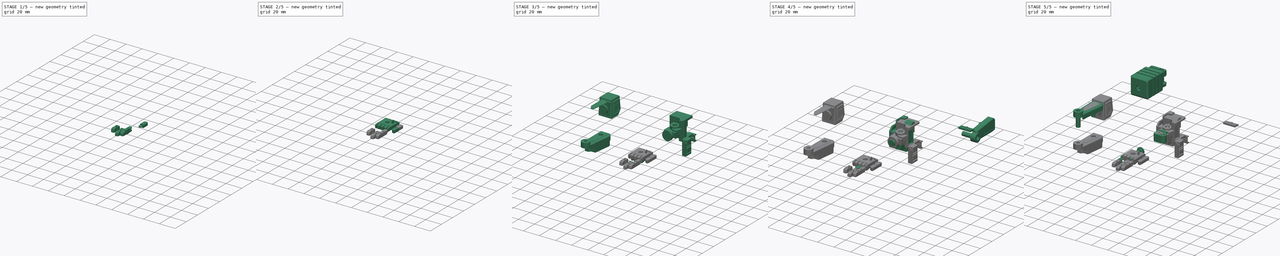
[diagram: build sequence overview — one tinted view per stage of 5, left to right]
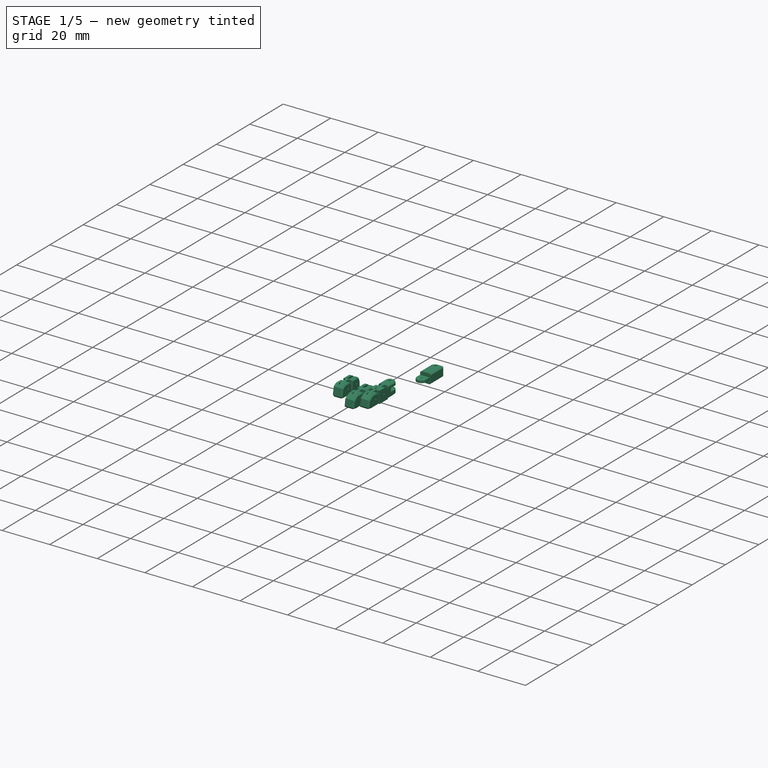
[diagram: stage 1 of 5 — iso view after this stage's code; geometry added in this stage tinted green]
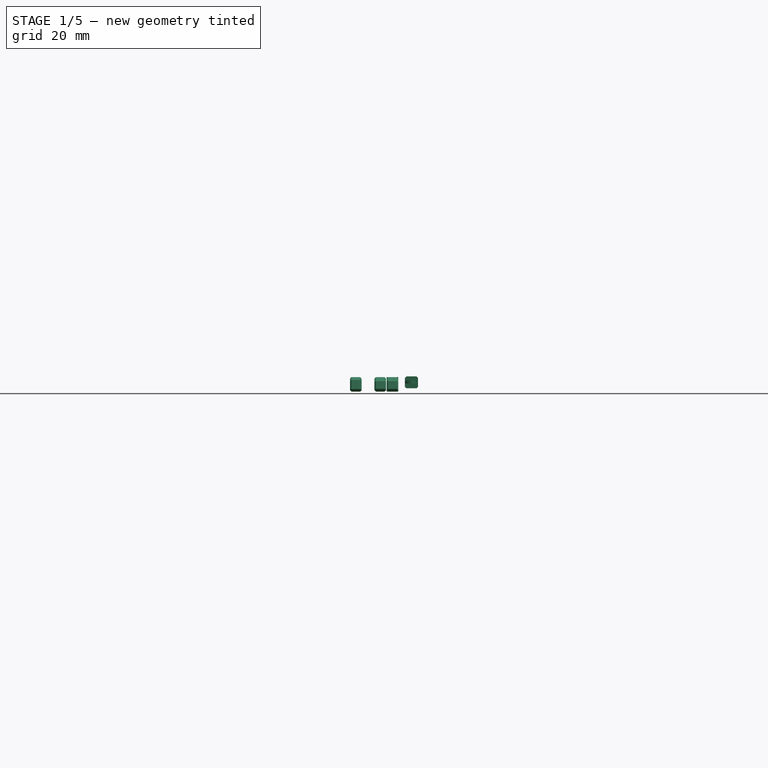
[diagram: stage 1 of 5 — front view after this stage's code; geometry added in this stage tinted green]
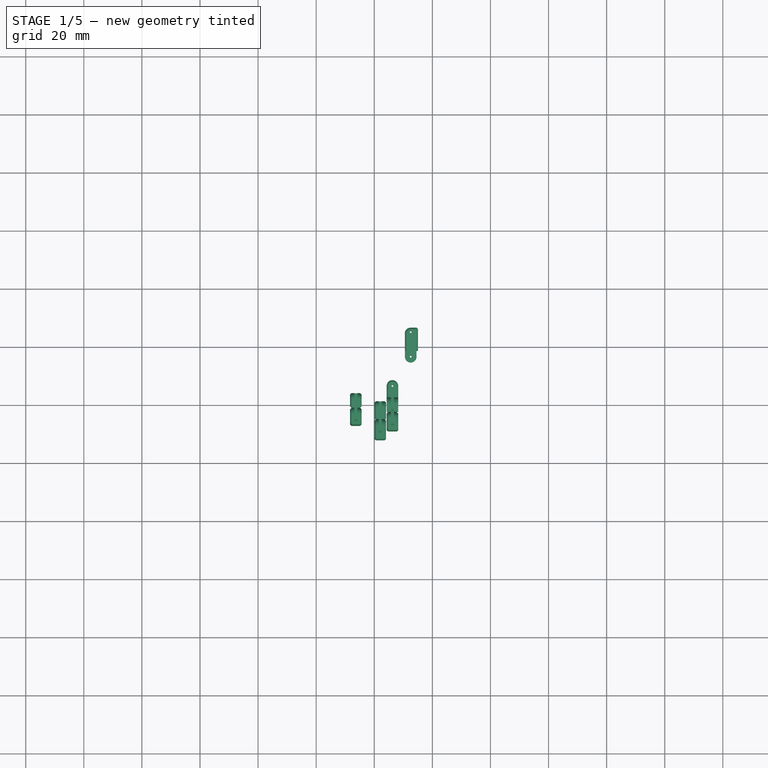
[diagram: stage 1 of 5 — top view after this stage's code; geometry added in this stage tinted green]
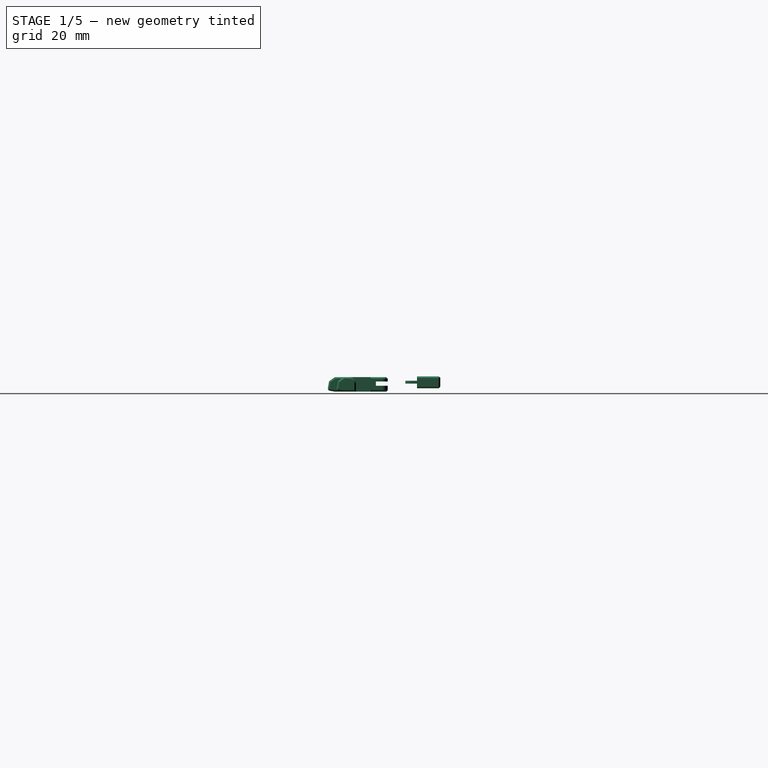
[diagram: stage 1 of 5 — right view after this stage's code; geometry added in this stage tinted green]
FCSTD DOCUMENT  (FreeCAD 1.0R39319 (Git))
Label: Upgrades2
License: All rights reserved
LicenseURL: https://en.wikipedia.org/wiki/All_rights_reserved
objects: Sketcher::SketchObject×403, PartDesign::Pad×291, PartDesign::Pocket×221, PartDesign::Chamfer×51, PartDesign::Body×43, PartDesign::SubShapeBinder×34, App::Link×34, PartDesign::Fillet×21, Part::Mirroring×10, App::Part×5
note: 2645 computed .brp shape members not serialized (recipe doc carries the construction recipe); baked Part::Feature solids carry a one-line shape summary decoded from their .brp

FEATURE [Sketcher::SketchObject] Sketch770
  ArcFitTolerance = 1e-06
  AttachmentSupport = -> [Binder033]
  ExternalGeometry = -> [Binder033]
  FullyConstrained = true
  MakeInternals = false
  MapMode = 5
  Placement = pos=(-6.255e-13,0,-0.514179) rot=(0,0,1;0rad)
  sketch-geometry (5):
    g0: LineSegment StartX=14.55 StartY=-53.3095 StartZ=0 EndX=14.55 EndY=-63.3095 EndZ=0
    g1: LineSegment StartX=14.55 StartY=-63.3095 StartZ=0 EndX=10.55 EndY=-63.3095 EndZ=0
    g2: LineSegment StartX=12.55 StartY=-53.3095 StartZ=0 EndX=14.55 EndY=-53.3095 EndZ=0
    g3: ArcOfCircle CenterX=12.4867 CenterY=-55.3085 CenterZ=0 NormalX=0 NormalY=0 NormalZ=1 AngleXU=0 Radius=2 StartAngle=1.53917 EndAngle=2.88943
    g4: LineSegment StartX=10.55 StartY=-63.3095 StartZ=0 EndX=10.55 EndY=-54.8095 EndZ=0
  constraints (16):
    c: Vertical(g0)
    c: Coincident(g1,g0)
    c: Horizontal(g1)
    c: Horizontal(g2)
    c: Coincident(g3,g2)
    c: Coincident(g0,g2)
    c: Coincident(g2,g-6)
    c: DistanceY(g3,g-6) = 0
    c: DistanceX(g2,g2) = 2
    c: DistanceY(g0,g0) = 10
    c: Radius(g3) = 2
    c: Coincident(g4,g1)
    c: Coincident(g4,g3)
    c: Vertical(g4)
    c: DistanceX(g-5,g-5) = 1.99999
    c: DistanceX(g-8,g3) = 0
FEATURE [PartDesign::Pad] Pad485
  Direction = (1.2165e-12,0,1)
  Length = 1.5
  Length2 = 10
  Profile = -> Sketch770
  ReferenceAxis = -> Sketch770 [N_Axis]
  Refine = true
  Suppressed = false
  Type = 0
FEATURE [Sketcher::SketchObject] Sketch771
  ArcFitTolerance = 1e-06
  AttachmentSupport = -> [Pad485]
  ExternalGeometry = -> [Pad485]
  FullyConstrained = true
  MakeInternals = false
  MapMode = 5
  Placement = pos=(-6.255e-13,0,-0.514179) rot=(1,0,0;3.14159rad)
  sketch-geometry (6):
    g0: LineSegment StartX=14.55 StartY=53.3095 StartZ=0 EndX=14.55 EndY=63.3095 EndZ=0
    g1: LineSegment StartX=14.55 StartY=63.3095 StartZ=0 EndX=10.55 EndY=63.3095 EndZ=0
    g2: LineSegment StartX=10.55 StartY=63.3095 StartZ=0 EndX=10.55 EndY=58.8095 EndZ=0
    g3: LineSegment StartX=10.55 StartY=58.8095 StartZ=0 EndX=14.1 EndY=58.8095 EndZ=0
    g4: LineSegment StartX=14.1 StartY=58.8095 StartZ=0 EndX=14.1 EndY=53.3095 EndZ=0
    g5: LineSegment StartX=14.1 StartY=53.3095 StartZ=0 EndX=14.55 EndY=53.3095 EndZ=0
  constraints (16):
    c: Coincident(g0,g-4)
    c: Coincident(g0,g-3)
    c: Coincident(g1,g0)
    c: Coincident(g1,g-6)
    c: Coincident(g2,g1)
    c: PointOnObject(g2,g-6)
    c: Coincident(g3,g2)
    c: Horizontal(g3)
    c: Coincident(g4,g3)
    c: PointOnObject(g4,g-4)
    c: Vertical(g4)
    c: Coincident(g5,g4)
    c: Coincident(g5,g0)
    c: DistanceX(g5,g5) = 0.45
    c: DistanceY(g2,g2) = 4.5
    c: DistanceY(g4,g3) = 5.5
FEATURE [PartDesign::Pad] Pad486
  BaseFeature = -> Pad485
  Direction = (-1.2165e-12,0,-1)
  Length = 1.1
  Length2 = 10
  Profile = -> Sketch771
  ReferenceAxis = -> Sketch771 [N_Axis]
  Refine = true
  Suppressed = false
  Type = 0
FEATURE [Sketcher::SketchObject] Sketch772
  ArcFitTolerance = 1e-06
  AttachmentOffset = pos=(0,0,-0.1) rot=(0,0,1;0rad)
  AttachmentSupport = -> [Pad486]
  ExternalGeometry = -> [Pad486]
  FullyConstrained = true
  MakeInternals = false
  MapMode = 5
  Placement = pos=(-1.842e-12,0,-1.51418) rot=(1,0,0;3.14159rad)
  sketch-geometry (2):
    g0: ArcOfCircle CenterX=12.55 CenterY=63.3095 CenterZ=0 NormalX=0 NormalY=0 NormalZ=1 AngleXU=0 Radius=1.99999 StartAngle=6e-16 EndAngle=3.14159
    g1: LineSegment StartX=14.55 StartY=63.3095 StartZ=0 EndX=10.55 EndY=63.3095 EndZ=0
  constraints (5):
    c: Coincident(g0,g-3)
    c: Coincident(g0,g-3)
    c: PointOnObject(g0,g-3)
    c: Coincident(g1,g0)
    c: Coincident(g1,g0)
FEATURE [PartDesign::Pad] Pad487
  BaseFeature = -> Pad486
  Direction = (-1.2165e-12,0,-1)
  Length = 1
  Length2 = 10
  Profile = -> Sketch772
  ReferenceAxis = -> Sketch772 [N_Axis]
  Refine = true
  Reversed = true
  Suppressed = false
  Type = 0
FEATURE [Sketcher::SketchObject] Sketch773
  ArcFitTolerance = 1e-06
  AttachmentSupport = -> [Pad487]
  ExternalGeometry = -> [Pad487]
  FullyConstrained = true
  MakeInternals = false
  MapMode = 5
  Placement = pos=(-1.9637e-12,0,-1.61418) rot=(1,0,0;3.14159rad)
  sketch-geometry (5):
    g0: LineSegment StartX=10.55 StartY=63.3095 StartZ=0 EndX=14.55 EndY=63.3095 EndZ=0
    g1: LineSegment StartX=14.55 StartY=63.3095 StartZ=0 EndX=14.55 EndY=53.3095 EndZ=0
    g2: LineSegment StartX=14.55 StartY=53.3095 StartZ=0 EndX=12.55 EndY=53.3095 EndZ=0
    g3: LineSegment StartX=10.55 StartY=63.3095 StartZ=0 EndX=10.55 EndY=54.8095 EndZ=0
    g4: ArcOfCircle CenterX=12.4867 CenterY=55.3085 CenterZ=0 NormalX=0 NormalY=0 NormalZ=1 AngleXU=0 Radius=2 StartAngle=3.39376 EndAngle=4.74401
  constraints (11):
    c: Coincident(g0,g-9)
    c: Coincident(g0,g-4)
    c: Coincident(g1,g0)
    c: Coincident(g1,g-8)
    c: Coincident(g2,g1)
    c: Coincident(g2,g-8)
    c: Coincident(g3,g0)
    c: Coincident(g3,g-9)
    c: Coincident(g4,g3)
    c: Coincident(g4,g2)
    c: Tangent(g4,g-7)
FEATURE [PartDesign::Pad] Pad488
  BaseFeature = -> Pad487
  Direction = (-1.2165e-12,0,-1)
  Length = 1.5
  Length2 = 10
  Profile = -> Sketch773
  ReferenceAxis = -> Sketch773 [N_Axis]
  Refine = true
  Suppressed = false
  Type = 0
FEATURE [PartDesign::Pocket] Pocket434
  BaseFeature = -> Pad488
  Direction = (0,1,0)
  Length = 2
  Length2 = 5
  Profile = -> Pad488 [Face4,Face14]
  Refine = true
  Suppressed = false
  Type = 0
FEATURE [PartDesign::Chamfer] Chamfer019
  Angle = 45
  Base = -> Pocket434 [Edge6,Edge11,Edge25,Edge30,Edge14,Edge24,Edge20,Edge35]
  BaseFeature = -> Pocket434
  ChamferType = 0
  FlipDirection = false
  Refine = true
  Size = 0.7
  Size2 = 1
  SupportTransform = false
  Suppressed = false
  UseAllEdges = false
FEATURE [Sketcher::SketchObject] Sketch774
  ArcFitTolerance = 1e-06
  AttachmentSupport = -> [Chamfer019]
  ExternalGeometry = -> [Chamfer019]
  FullyConstrained = true
  MakeInternals = false
  MapMode = 5
  Placement = pos=(-6.255e-13,0,-0.514179) rot=(0,0,1;0rad)
  sketch-geometry (1):
    g0: Circle CenterX=12.55 CenterY=-63.3095 CenterZ=0 NormalX=0 NormalY=0 NormalZ=1 AngleXU=0 Radius=0.3
  constraints (2):
    c: Coincident(g0,g-3)
    c: Radius(g0) = 0.3
FEATURE [PartDesign::Pocket] Pocket435
  BaseFeature = -> Chamfer019
  Direction = (-1.2165e-12,0,-1)
  Length = 5
  Length2 = 5
  Profile = -> Sketch774
  ReferenceAxis = -> Sketch774 [N_Axis]
  Refine = true
  Suppressed = false
  Type = 0
FEATURE [Sketcher::SketchObject] Sketch775
  ArcFitTolerance = 1e-06
  AttachmentSupport = -> [Pocket435]
  ExternalGeometry = -> [Pocket435]
  FullyConstrained = true
  MakeInternals = false
  MapMode = 5
  Placement = pos=(1.1993e-12,0,0.985821) rot=(0,0,1;0rad)
  sketch-geometry (1):
    g0: Circle CenterX=12.55 CenterY=-54.8095 CenterZ=0 NormalX=0 NormalY=0 NormalZ=1 AngleXU=0 Radius=0.3
  constraints (3):
    c: Radius(g0) = 0.3
    c: DistanceX(g0,g-3) = 0
    c: DistanceY(g0,g-4) = 1.5
FEATURE [PartDesign::Pocket] Pocket436
  BaseFeature = -> Pocket435
  Direction = (-1.2165e-12,0,-1)
  Length = 5
  Length2 = 5
  Profile = -> Sketch775
  ReferenceAxis = -> Sketch775 [N_Axis]
  Refine = true
  Suppressed = false
  Type = 0
FEATURE [Sketcher::SketchObject] Sketch776
  ArcFitTolerance = 1e-06
  AttachmentSupport = -> [Pocket436]
  ExternalGeometry = -> [Pocket436]
  FullyConstrained = true
  MakeInternals = false
  MapMode = 5
  Placement = pos=(1.1993e-12,0,0.985821) rot=(0,0,1;0rad)
  sketch-geometry (1):
    g0: Circle CenterX=12.55 CenterY=-54.8095 CenterZ=0 NormalX=0 NormalY=0 NormalZ=1 AngleXU=0 Radius=0.5
  constraints (2):
    c: Coincident(g0,g-3)
    c: Radius(g0) = 0.5
FEATURE [PartDesign::Pocket] Pocket437
  BaseFeature = -> Pocket436
  Direction = (-1.2165e-12,0,-1)
  Length = 0.5
  Length2 = 5
  Profile = -> Sketch776
  ReferenceAxis = -> Sketch776 [N_Axis]
  Refine = true
  Suppressed = false
  Type = 0
FEATURE [Sketcher::SketchObject] Sketch810
  ArcFitTolerance = 1e-06
  AttachmentSupport = -> [Binder041]
  ExternalGeometry = -> [Binder041]
  FullyConstrained = true
  MakeInternals = false
  MapMode = 5
  Placement = pos=(6.75,6.378e-13,-5.125e-13) rot=(0.57735,0.57735,0.57735;2.0944rad)
  sketch-geometry (5):
    g0: ArcOfCircle CenterX=-79.5807 CenterY=-1.5 CenterZ=0 NormalX=0 NormalY=0 NormalZ=1 AngleXU=0 Radius=2.25 StartAngle=0 EndAngle=1.5708
    g1: LineSegment StartX=-77.3307 StartY=-1.5 StartZ=0 EndX=-77.3307 EndY=-3.75 EndZ=0
    g2: LineSegment StartX=-77.3307 StartY=-3.75 StartZ=0 EndX=-82.2807 EndY=-3.75 EndZ=0
    g3: LineSegment StartX=-79.5807 StartY=0.75 StartZ=0 EndX=-82.2807 EndY=0.75 EndZ=0
    g4: LineSegment StartX=-82.2807 StartY=0.75 StartZ=0 EndX=-82.2807 EndY=-3.75 EndZ=0
  constraints (14):
    c: Coincident(g0,g-8)
    c: Coincident(g0,g-7)
    c: DistanceY(g0,g0) = 0
    c: Coincident(g1,g0)
    c: PointOnObject(g1,g-4)
    c: Coincident(g4,g3)
    c: Coincident(g4,g2)
    c: Vertical(g4)
    c: Horizontal(g3)
    c: Horizontal(g2)
    c: DistanceX(g2,g-4) = 5
    c: Coincident(g3,g0)
    c: Coincident(g2,g1)
    c: Vertical(g1)
FEATURE [PartDesign::Pad] Pad508
  Direction = (1,9.46e-14,-7.59e-14)
  Length = 1.5
  Length2 = 10
  Profile = -> Sketch810
  ReferenceAxis = -> Sketch810 [N_Axis]
  Refine = true
  Suppressed = false
  Type = 0
FEATURE [Sketcher::SketchObject] Sketch811
  ArcFitTolerance = 1e-06
  AttachmentSupport = -> [Pad508]
  ExternalGeometry = -> [Pad508]
  FullyConstrained = true
  MakeInternals = false
  MapMode = 5
  Placement = pos=(6.75,6.384e-13,-5.127e-13) rot=(0.57735,-0.57735,-0.57735;2.0944rad)
  sketch-geometry (4):
    g0: LineSegment StartX=82.2807 StartY=0.75 StartZ=0 EndX=81.8807 EndY=0.75 EndZ=0
    g1: LineSegment StartX=81.8807 StartY=0.75 StartZ=0 EndX=81.8807 EndY=-3.75 EndZ=0
    g2: LineSegment StartX=81.8807 StartY=-3.75 StartZ=0 EndX=82.2807 EndY=-3.75 EndZ=0
    g3: LineSegment StartX=82.2807 StartY=-3.75 StartZ=0 EndX=82.2807 EndY=0.75 EndZ=0
  constraints (11):
    c: Coincident(g0,g1)
    c: Coincident(g1,g2)
    c: Coincident(g2,g3)
    c: Coincident(g3,g0)
    c: Horizontal(g0)
    c: Horizontal(g2)
    c: Vertical(g1)
    c: Vertical(g3)
    c: Coincident(g0,g-4)
    c: PointOnObject(g1,g-5)
    c: DistanceX(g2,g2) = 0.4
FEATURE [PartDesign::Pad] Pad509
  BaseFeature = -> Pad508
  Direction = (-1,-9.46e-14,7.59e-14)
  Length = 1
  Length2 = 10
  Profile = -> Sketch811
  ReferenceAxis = -> Sketch811 [N_Axis]
  Refine = true
  Suppressed = false
  Type = 0
FEATURE [Sketcher::SketchObject] Sketch812
  ArcFitTolerance = 1e-06
  AttachmentSupport = -> [Pad509]
  ExternalGeometry = -> [Pad509]
  FullyConstrained = true
  MakeInternals = false
  MapMode = 5
  Placement = pos=(5.75,5.426e-13,-4.364e-13) rot=(0.57735,-0.57735,-0.57735;2.0944rad)
  sketch-geometry (5):
    g0: LineSegment StartX=82.2807 StartY=0.75 StartZ=0 EndX=79.5807 EndY=0.75 EndZ=0
    g1: LineSegment StartX=82.2807 StartY=0.75 StartZ=0 EndX=82.2807 EndY=-3.75 EndZ=0
    g2: LineSegment StartX=82.2807 StartY=-3.75 StartZ=0 EndX=77.3307 EndY=-3.75 EndZ=0
    g3: LineSegment StartX=77.3307 StartY=-3.75 StartZ=0 EndX=77.3307 EndY=-1.5 EndZ=0
    g4: ArcOfCircle CenterX=79.5807 CenterY=-1.5 CenterZ=0 NormalX=0 NormalY=0 NormalZ=1 AngleXU=0 Radius=2.25 StartAngle=1.5708 EndAngle=3.14159
  constraints (11):
    c: Coincident(g0,g-9)
    c: Coincident(g0,g-9)
    c: Coincident(g1,g0)
    c: Coincident(g1,g-5)
    c: Coincident(g2,g1)
    c: Coincident(g2,g-7)
    c: Coincident(g3,g2)
    c: Coincident(g3,g-8)
    c: Coincident(g4,g3)
    c: Coincident(g4,g0)
    c: Tangent(g4,g-8)
FEATURE [PartDesign::Pad] Pad510
  BaseFeature = -> Pad509
  Direction = (-1,-9.43e-14,7.58e-14)
  Length = 1.5
  Length2 = 10
  Profile = -> Sketch812
  ReferenceAxis = -> Sketch812 [N_Axis]
  Refine = true
  Suppressed = false
  Type = 0
FEATURE [Sketcher::SketchObject] Sketch813
  ArcFitTolerance = 1e-06
  AttachmentOffset = pos=(0,0,-1.5) rot=(0,0,1;0rad)
  AttachmentSupport = -> [Pad510]
  ExternalGeometry = -> [Pad510]
  FullyConstrained = true
  MakeInternals = false
  MapMode = 5
  Placement = pos=(5.75,5.417e-13,-4.36e-13) rot=(0.57735,-0.57735,-0.57735;2.0944rad)
  sketch-geometry (4):
    g0: LineSegment StartX=82.2807 StartY=0.75 StartZ=0 EndX=82.2807 EndY=-3.75 EndZ=0
    g1: LineSegment StartX=82.2807 StartY=-3.75 StartZ=0 EndX=84.5407 EndY=-3.75 EndZ=0
    g2: LineSegment StartX=84.5407 StartY=0.75 StartZ=0 EndX=82.2807 EndY=0.75 EndZ=0
    g3: ArcOfCircle CenterX=84.5407 CenterY=-1.5 CenterZ=0 NormalX=0 NormalY=0 NormalZ=1 AngleXU=0 Radius=2.25 StartAngle=4.71239 EndAngle=7.85398
  constraints (11):
    c: Coincident(g0,g-3)
    c: Coincident(g0,g-3)
    c: Coincident(g1,g0)
    c: Horizontal(g1)
    c: Coincident(g2,g0)
    c: Horizontal(g2)
    c: Coincident(g3,g2)
    c: Coincident(g3,g1)
    c: DistanceX(g3,g2) = 0
    c: DistanceX(g3,g1) = 0
    c: DistanceX(g2,g2) = 2.26
FEATURE [PartDesign::Pad] Pad511
  BaseFeature = -> Pad510
  Direction = (-1,-9.44e-14,7.58e-14)
  Length = 1
  Length2 = 10
  Profile = -> Sketch813
  ReferenceAxis = -> Sketch813 [N_Axis]
  Refine = true
  Reversed = true
  Suppressed = false
  Type = 0
FEATURE [Sketcher::SketchObject] Sketch814
  ArcFitTolerance = 1e-06
  AttachmentSupport = -> [Pad511]
  ExternalGeometry = -> [Pad511]
  FullyConstrained = true
  MakeInternals = false
  MapMode = 5
  Placement = pos=(6.75,6.352e-13,-5.116e-13) rot=(0.57735,0.57735,0.57735;2.0944rad)
  sketch-geometry (1):
    g0: Circle CenterX=-84.5407 CenterY=-1.5 CenterZ=0 NormalX=0 NormalY=0 NormalZ=1 AngleXU=0 Radius=0.3
  constraints (2):
    c: Coincident(g0,g-3)
    c: Radius(g0) = 0.3
FEATURE [PartDesign::Pocket] Pocket451
  BaseFeature = -> Pad511
  Direction = (-1,-9.4e-14,7.56e-14)
  Length = 5
  Length2 = 5
  Profile = -> Sketch814
  ReferenceAxis = -> Sketch814 [N_Axis]
  Refine = true
  Suppressed = false
  Type = 0
FEATURE [Sketcher::SketchObject] Sketch815
  ArcFitTolerance = 1e-06
  AttachmentSupport = -> [Pocket451]
  ExternalGeometry = -> [Pocket451]
  FullyConstrained = true
  MakeInternals = false
  MapMode = 5
  Placement = pos=(8.25,7.803e-13,-6.267e-13) rot=(0.57735,0.57735,0.57735;2.0944rad)
  sketch-geometry (1):
    g0: Circle CenterX=-79.5807 CenterY=-1.5 CenterZ=0 NormalX=0 NormalY=0 NormalZ=1 AngleXU=0 Radius=0.3
  constraints (2):
    c: Coincident(g0,g-3)
    c: Radius(g0) = 0.3
FEATURE [PartDesign::Pocket] Pocket452
  BaseFeature = -> Pocket451
  Direction = (-1,-9.46e-14,7.59e-14)
  Length = 5
  Length2 = 5
  Profile = -> Sketch815
  ReferenceAxis = -> Sketch815 [N_Axis]
  Refine = true
  Suppressed = false
  Type = 0
FEATURE [Sketcher::SketchObject] Sketch816
  ArcFitTolerance = 1e-06
  AttachmentSupport = -> [Pocket452]
  ExternalGeometry = -> [Pocket452]
  FullyConstrained = true
  MakeInternals = false
  MapMode = 5
  Placement = pos=(4.25,4.003e-13,-3.222e-13) rot=(0.57735,-0.57735,-0.57735;2.0944rad)
  sketch-geometry (1):
    g0: Circle CenterX=79.5807 CenterY=-1.5 CenterZ=0 NormalX=0 NormalY=0 NormalZ=1 AngleXU=0 Radius=0.5
  constraints (2):
    c: Coincident(g0,g-3)
    c: Radius(g0) = 0.5
FEATURE [PartDesign::Pocket] Pocket453
  BaseFeature = -> Pocket452
  Direction = (1,9.44e-14,-7.58e-14)
  Length = 0.5
  Length2 = 5
  Profile = -> Sketch816
  ReferenceAxis = -> Sketch816 [N_Axis]
  Refine = true
  Suppressed = false
  Type = 0
FEATURE [PartDesign::Chamfer] Chamfer022
  Angle = 45
  Base = -> Pocket453 [Edge30,Edge22,Edge18,Edge12]
  BaseFeature = -> Pocket453
  ChamferType = 0
  FlipDirection = false
  Refine = true
  Size = 0.7
  Size2 = 1
  SupportTransform = false
  Suppressed = false
  UseAllEdges = false
FEATURE [Sketcher::SketchObject] Sketch817
  ArcFitTolerance = 1e-06
  AttachmentSupport = -> [Binder042]
  ExternalGeometry = -> [Binder042]
  FullyConstrained = true
  MakeInternals = false
  MapMode = 5
  Placement = pos=(6.75,6.352e-13,-5.116e-13) rot=(0.57735,0.57735,0.57735;2.0944rad)
  sketch-geometry (8):
    g0: LineSegment StartX=-82.3407 StartY=-1.45 StartZ=0 EndX=-82.3407 EndY=-3.75 EndZ=0
    g1: LineSegment StartX=-82.3407 StartY=-3.75 StartZ=0 EndX=-86.5407 EndY=-3.75 EndZ=0
    g2: LineSegment StartX=-86.5407 StartY=-3.75 StartZ=0 EndX=-89.0027 EndY=-3.31588 EndZ=0
    g3: LineSegment StartX=-89.0027 StartY=-3.31588 StartZ=0 EndX=-88.5316 EndY=-0.644045 EndZ=0
    g4: LineSegment StartX=-88.5316 StartY=-0.644045 StartZ=0 EndX=-86.5407 EndY=0.75 EndZ=0
    g5: LineSegment StartX=-86.5407 StartY=0.75 StartZ=0 EndX=-84.5407 EndY=0.75 EndZ=0
    g6: ArcOfCircle CenterX=-84.5407 CenterY=-1.45 CenterZ=0 NormalX=0 NormalY=0 NormalZ=1 AngleXU=0 Radius=2.2 StartAngle=0 EndAngle=1.5708
    g7: Circle CenterX=-84.5407 CenterY=-1.5 CenterZ=0 NormalX=0 NormalY=0 NormalZ=1 AngleXU=0 Radius=0.3
  constraints (24):
    c: Radius(g-6) = 2.25
    c: PointOnObject(g0,g-5)
    c: Vertical(g0)
    c: Coincident(g1,g0)
    c: Coincident(g3,g2)
    c: Coincident(g4,g3)
    c: Coincident(g2,g1)
    c: Horizontal(g1)
    c: Coincident(g5,g4)
    c: Coincident(g5,g-6)
    c: Coincident(g6,g5)
    c: Coincident(g6,g0)
    c: Radius(g6) = 2.2
    c: DistanceX(g-8,g6) = 0
    c: DistanceY(g6,g0) = 0
    c: Angle(g2,g3) = 1.5708
    c: Angle(g1,g2) = 2.96706
    c: Distance(g2) = 2.5
    c: Angle(g3,g4) = 2.35619
    c: Horizontal(g5)
    c: Coincident(g7,g-8)
    c: Equal(g7,g-8)
    c: DistanceX(g5,g5) = 2
    c: DistanceX(g4,g1) = 0
FEATURE [PartDesign::Pad] Pad512
  Direction = (1,9.4e-14,-7.56e-14)
  Length = 1.5
  Length2 = 10
  Profile = -> Sketch817
  ReferenceAxis = -> Sketch817 [N_Axis]
  Refine = true
  Suppressed = false
  Type = 0
FEATURE [Sketcher::SketchObject] Sketch818
  ArcFitTolerance = 1e-06
  AttachmentSupport = -> [Pad512]
  ExternalGeometry = -> [Pad512]
  FullyConstrained = true
  MakeInternals = false
  MapMode = 5
  Placement = pos=(6.75,6.355e-13,-5.103e-13) rot=(0.57735,-0.57735,-0.57735;2.0944rad)
  sketch-geometry (4):
    g0: LineSegment StartX=88.5316 StartY=-0.644045 StartZ=0 EndX=89.0027 EndY=-3.31588 EndZ=0
    g1: LineSegment StartX=89.0027 StartY=-3.31588 StartZ=0 EndX=86.8361 EndY=-3.69791 EndZ=0
    g2: LineSegment StartX=86.8361 StartY=-3.69791 StartZ=0 EndX=86.8361 EndY=0.543129 EndZ=0
    g3: LineSegment StartX=88.5316 StartY=-0.644045 StartZ=0 EndX=86.8361 EndY=0.543129 EndZ=0
  constraints (10):
    c: Coincident(g0,g-4)
    c: Coincident(g0,g-5)
    c: Coincident(g1,g0)
    c: PointOnObject(g1,g-5)
    c: Coincident(g2,g1)
    c: PointOnObject(g2,g-3)
    c: Vertical(g2)
    c: Coincident(g3,g0)
    c: Coincident(g3,g2)
    c: Distance(g1) = 2.2
FEATURE [PartDesign::Pad] Pad513
  BaseFeature = -> Pad512
  Direction = (-1,-9.41e-14,7.55e-14)
  Length = 1
  Length2 = 10
  Profile = -> Sketch818
  ReferenceAxis = -> Sketch818 [N_Axis]
  Refine = true
  Suppressed = false
  Type = 0
FEATURE [Sketcher::SketchObject] Sketch819
  ArcFitTolerance = 1e-06
  AttachmentSupport = -> [Pad513]
  ExternalGeometry = -> [Pad513]
  FullyConstrained = true
  MakeInternals = false
  MapMode = 5
  Placement = pos=(5.75,5.415e-13,-4.349e-13) rot=(0.57735,-0.57735,-0.57735;2.0944rad)
  sketch-geometry (8):
    g0: LineSegment StartX=88.5316 StartY=-0.644045 StartZ=0 EndX=86.5407 EndY=0.75 EndZ=0
    g1: LineSegment StartX=88.5316 StartY=-0.644045 StartZ=0 EndX=89.0027 EndY=-3.31588 EndZ=0
    g2: LineSegment StartX=89.0027 StartY=-3.31588 StartZ=0 EndX=86.5407 EndY=-3.75 EndZ=0
    g3: LineSegment StartX=86.5407 StartY=-3.75 StartZ=0 EndX=82.3407 EndY=-3.75 EndZ=0
    g4: LineSegment StartX=82.3407 StartY=-3.75 StartZ=0 EndX=82.3407 EndY=-1.45 EndZ=0
    g5: ArcOfCircle CenterX=84.5407 CenterY=-1.45 CenterZ=0 NormalX=0 NormalY=0 NormalZ=1 AngleXU=0 Radius=2.2 StartAngle=1.5708 EndAngle=3.14159
    g6: LineSegment StartX=84.5407 StartY=0.75 StartZ=0 EndX=86.5407 EndY=0.75 EndZ=0
    g7: Circle CenterX=84.5407 CenterY=-1.5 CenterZ=0 NormalX=0 NormalY=0 NormalZ=1 AngleXU=0 Radius=0.3
  constraints (17):
    c: Coincident(g0,g-4)
    c: Coincident(g0,g-9)
    c: Coincident(g1,g0)
    c: Coincident(g1,g-6)
    c: Coincident(g2,g1)
    c: Coincident(g2,g-12)
    c: Coincident(g3,g2)
    c: Coincident(g3,g-12)
    c: Coincident(g4,g3)
    c: Coincident(g4,g-11)
    c: Coincident(g5,g4)
    c: Tangent(g5,g-10) = -1.5708
    c: Coincident(g6,g5)
    c: Coincident(g6,g0)
    c: Radius(g7) = 0.3
    c: DistanceX(g5,g7) = 0
    c: DistanceY(g3,g7) = 2.25
FEATURE [PartDesign::Pad] Pad514
  BaseFeature = -> Pad513
  Direction = (-1,-9.4e-14,7.56e-14)
  Length = 1.5
  Length2 = 10
  Profile = -> Sketch819
  ReferenceAxis = -> Sketch819 [N_Axis]
  Refine = true
  Suppressed = false
  Type = 0
FEATURE [Sketcher::SketchObject] Sketch853
  ArcFitTolerance = 1e-06
  AttachmentSupport = -> [Binder048]
  ExternalGeometry = -> [Binder048]
  FullyConstrained = true
  MakeInternals = false
  MapMode = 5
  Placement = pos=(-6.85,1.5452e-12,8.22e-13) rot=(-0.57735,0.57735,0.57735;4.18879rad)
  sketch-geometry (6):
    g0: LineSegment StartX=75.8307 StartY=-1.5 StartZ=0 EndX=75.8307 EndY=-3.75 EndZ=0
    g1: LineSegment StartX=75.8307 StartY=-3.75 StartZ=0 EndX=80.8307 EndY=-3.75 EndZ=0
    g2: LineSegment StartX=80.8307 StartY=-3.75 StartZ=0 EndX=80.8307 EndY=0.75 EndZ=0
    g3: LineSegment StartX=80.8307 StartY=0.75 StartZ=0 EndX=78.0807 EndY=0.75 EndZ=0
    g4: ArcOfCircle CenterX=78.0807 CenterY=-1.5 CenterZ=0 NormalX=0 NormalY=0 NormalZ=1 AngleXU=0 Radius=2.25 StartAngle=1.5708 EndAngle=3.14159
    g5: Circle CenterX=78.0807 CenterY=-1.5 CenterZ=0 NormalX=0 NormalY=0 NormalZ=1 AngleXU=0 Radius=0.3
  constraints (18):
    c: Coincident(g1,g0)
    c: Horizontal(g1)
    c: Coincident(g2,g1)
    c: Vertical(g2)
    c: Coincident(g3,g2)
    c: Horizontal(g3)
    c: Coincident(g4,g3)
    c: Coincident(g4,g0)
    c: Radius(g4) = 2.25
    c: Vertical(g0)
    c: PointOnObject(g0,g-7)
    c: Radius(g-6) = 2.25
    c: Coincident(g4,g-6)
    c: DistanceY(g0,g4) = 0
    c: DistanceX(g3,g4) = 0
    c: DistanceX(g1,g1) = 5
    c: Coincident(g5,g4)
    c: Radius(g5) = 0.3
FEATURE [PartDesign::Pad] Pad534
  Direction = (-1,2.256e-13,1.199e-13)
  Length = 1.5
  Length2 = 10
  Profile = -> Sketch853
  ReferenceAxis = -> Sketch853 [N_Axis]
  Refine = true
  Suppressed = false
  Type = 0
FEATURE [Sketcher::SketchObject] Sketch854
  ArcFitTolerance = 1e-06
  AttachmentSupport = -> [Pad534]
  ExternalGeometry = -> [Pad534]
  FullyConstrained = true
  MakeInternals = false
  MapMode = 5
  Placement = pos=(-6.85,1.5456e-12,8.21e-13) rot=(0.57735,0.57735,0.57735;2.0944rad)
  sketch-geometry (4):
    g0: LineSegment StartX=-80.8307 StartY=0.75 StartZ=0 EndX=-80.8307 EndY=-3.75 EndZ=0
    g1: LineSegment StartX=-80.8307 StartY=-3.75 StartZ=0 EndX=-80.3807 EndY=-3.75 EndZ=0
    g2: LineSegment StartX=-80.3807 StartY=-3.75 StartZ=0 EndX=-80.3807 EndY=0.75 EndZ=0
    g3: LineSegment StartX=-80.3807 StartY=0.75 StartZ=0 EndX=-80.8307 EndY=0.75 EndZ=0
  constraints (11):
    c: Coincident(g0,g1)
    c: Coincident(g1,g2)
    c: Coincident(g2,g3)
    c: Coincident(g3,g0)
    c: Vertical(g0)
    c: Vertical(g2)
    c: Horizontal(g1)
    c: Horizontal(g3)
    c: Coincident(g0,g-4)
    c: PointOnObject(g1,g-5)
    c: DistanceX(g1,g1) = 0.45
FEATURE [PartDesign::Pad] Pad535
  BaseFeature = -> Pad534
  Direction = (1,-2.256e-13,-1.199e-13)
  Length = 1
  Length2 = 10
  Profile = -> Sketch854
  ReferenceAxis = -> Sketch854 [N_Axis]
  Refine = true
  Suppressed = false
  Type = 0
FEATURE [Sketcher::SketchObject] Sketch855
  ArcFitTolerance = 1e-06
  AttachmentSupport = -> [Pad535]
  ExternalGeometry = -> [Pad535]
  FullyConstrained = true
  MakeInternals = false
  MapMode = 5
  Placement = pos=(-5.85,1.322e-12,7.014e-13) rot=(0.57735,0.57735,0.57735;2.0944rad)
  sketch-geometry (6):
    g0: LineSegment StartX=-80.8307 StartY=0.75 StartZ=0 EndX=-78.0807 EndY=0.75 EndZ=0
    g1: LineSegment StartX=-80.8307 StartY=0.75 StartZ=0 EndX=-80.8307 EndY=-3.75 EndZ=0
    g2: LineSegment StartX=-80.8307 StartY=-3.75 StartZ=0 EndX=-75.8307 EndY=-3.75 EndZ=0
    g3: LineSegment StartX=-75.8307 StartY=-3.75 StartZ=0 EndX=-75.8307 EndY=-1.5 EndZ=0
    g4: ArcOfCircle CenterX=-78.0807 CenterY=-1.5 CenterZ=0 NormalX=0 NormalY=0 NormalZ=1 AngleXU=0 Radius=2.25 StartAngle=-1.60183e-11 EndAngle=1.5708
    g5: Circle CenterX=-78.0807 CenterY=-1.5 CenterZ=0 NormalX=0 NormalY=0 NormalZ=1 AngleXU=0 Radius=0.299995
  constraints (13):
    c: Coincident(g0,g-7)
    c: Coincident(g0,g-7)
    c: Coincident(g1,g0)
    c: Coincident(g1,g-4)
    c: Coincident(g2,g1)
    c: Coincident(g2,g-5)
    c: Coincident(g3,g2)
    c: Coincident(g3,g-6)
    c: Coincident(g4,g0)
    c: Coincident(g4,g3)
    c: Tangent(g4,g-6)
    c: Coincident(g5,g4)
    c: Tangent(g5,g-8)
FEATURE [PartDesign::Pad] Pad536
  BaseFeature = -> Pad535
  Direction = (1,-2.26e-13,-1.199e-13)
  Length = 1.5
  Length2 = 10
  Profile = -> Sketch855
  ReferenceAxis = -> Sketch855 [N_Axis]
  Refine = true
  Suppressed = false
  Type = 0
FEATURE [Sketcher::SketchObject] Sketch856
  ArcFitTolerance = 1e-06
  AttachmentOffset = pos=(0,0,-1.5) rot=(0,0,1;0rad)
  AttachmentSupport = -> [Pad536]
  ExternalGeometry = -> [Pad536]
  FullyConstrained = true
  MakeInternals = false
  MapMode = 5
  Placement = pos=(-6.85,1.5457e-12,8.21e-13) rot=(-0.57735,0.57735,0.57735;4.18879rad)
  sketch-geometry (4):
    g0: LineSegment StartX=80.8307 StartY=0.75 StartZ=0 EndX=83.1307 EndY=0.75 EndZ=0
    g1: LineSegment StartX=80.8307 StartY=-3.75 StartZ=0 EndX=80.8307 EndY=0.75 EndZ=0
    g2: LineSegment StartX=80.8307 StartY=-3.75 StartZ=0 EndX=83.1307 EndY=-3.75 EndZ=0
    g3: ArcOfCircle CenterX=83.1307 CenterY=-1.5 CenterZ=0 NormalX=0 NormalY=0 NormalZ=1 AngleXU=0 Radius=2.25 StartAngle=4.7124 EndAngle=7.85397
  constraints (11):
    c: Coincident(g0,g-3)
    c: Horizontal(g0)
    c: Coincident(g1,g-3)
    c: Coincident(g1,g0)
    c: Coincident(g2,g1)
    c: Horizontal(g2)
    c: Coincident(g3,g0)
    c: Coincident(g3,g2)
    c: DistanceX(g0,g0) = 2.3
    c: DistanceX(g2,g2) = 2.3
    c: Radius(g3) = 2.25
FEATURE [PartDesign::Pad] Pad537
  BaseFeature = -> Pad536
  Direction = (-1,2.256e-13,1.199e-13)
  Length = 1
  Length2 = 10
  Profile = -> Sketch856
  ReferenceAxis = -> Sketch856 [N_Axis]
  Refine = true
  Reversed = true
  Suppressed = false
  Type = 0
FEATURE [Sketcher::SketchObject] Sketch857
  ArcFitTolerance = 1e-06
  AttachmentSupport = -> [Pad537]
  ExternalGeometry = -> [Pad537]
  FullyConstrained = true
  MakeInternals = false
  MapMode = 5
  Placement = pos=(-6.85,1.5452e-12,8.206e-13) rot=(-0.57735,0.57735,0.57735;4.18879rad)
  sketch-geometry (1):
    g0: Circle CenterX=83.1307 CenterY=-1.5 CenterZ=0 NormalX=0 NormalY=0 NormalZ=1 AngleXU=0 Radius=0.3
  constraints (2):
    c: Coincident(g0,g-3)
    c: Radius(g0) = 0.3
FEATURE [PartDesign::Pocket] Pocket468
  BaseFeature = -> Pad537
  Direction = (1,-2.255e-13,-1.196e-13)
  Length = 5
  Length2 = 5
  Profile = -> Sketch857
  ReferenceAxis = -> Sketch857 [N_Axis]
  Refine = true
  Suppressed = false
  Type = 0
FEATURE [Sketcher::SketchObject] Sketch858
  ArcFitTolerance = 1e-06
  AttachmentSupport = -> [Pocket468]
  ExternalGeometry = -> [Pocket468]
  FullyConstrained = true
  MakeInternals = false
  MapMode = 5
  Placement = pos=(-8.35,1.8841e-12,1.0008e-12) rot=(-0.57735,0.57735,0.57735;4.18879rad)
  sketch-geometry (1):
    g0: Circle CenterX=78.0807 CenterY=-1.5 CenterZ=0 NormalX=0 NormalY=0 NormalZ=1 AngleXU=0 Radius=0.5
  constraints (2):
    c: Coincident(g0,g-3)
    c: Radius(g0) = 0.5
FEATURE [PartDesign::Pocket] Pocket469
  BaseFeature = -> Pocket468
  Direction = (1,-2.256e-13,-1.199e-13)
  Length = 0.5
  Length2 = 5
  Profile = -> Sketch858
  ReferenceAxis = -> Sketch858 [N_Axis]
  Refine = true
  Suppressed = false
  Type = 0
FEATURE [PartDesign::Chamfer] Chamfer029
  Angle = 45
  Base = -> Pocket469 [Edge18,Edge4,Edge7,Edge22,Edge12,Edge39,Edge26,Edge40]
  BaseFeature = -> Pocket469
  ChamferType = 0
  FlipDirection = false
  Refine = true
  Size = 0.7
  Size2 = 1
  SupportTransform = false
  Suppressed = false
  UseAllEdges = false
FEATURE [Sketcher::SketchObject] Sketch859
  ArcFitTolerance = 1e-06
  AttachmentSupport = -> [Binder049]
  ExternalGeometry = -> [Binder049]
  FullyConstrained = true
  MakeInternals = false
  MapMode = 5
  Placement = pos=(-6.85,1.5452e-12,8.206e-13) rot=(-0.57735,0.57735,0.57735;4.18879rad)
  sketch-geometry (8):
    g0: ArcOfCircle CenterX=83.1307 CenterY=-1.5 CenterZ=0 NormalX=0 NormalY=0 NormalZ=1 AngleXU=0 Radius=2.25 StartAngle=1.57079 EndAngle=3.14159
    g1: LineSegment StartX=80.8807 StartY=-1.5 StartZ=0 EndX=80.8807 EndY=-3.75 EndZ=0
    g2: LineSegment StartX=80.8807 StartY=-3.75 StartZ=0 EndX=85.1307 EndY=-3.75 EndZ=0
    g3: LineSegment StartX=83.1307 StartY=0.75 StartZ=0 EndX=85.1307 EndY=0.75 EndZ=0
    g4: LineSegment StartX=85.1307 StartY=0.75 StartZ=0 EndX=86.5424 EndY=-0.238465 EndZ=0
    g5: LineSegment StartX=86.5424 StartY=-0.238465 StartZ=0 EndX=87.1003 EndY=-3.4027 EndZ=0
    g6: LineSegment StartX=87.1003 StartY=-3.4027 StartZ=0 EndX=85.1307 EndY=-3.75 EndZ=0
    g7: Circle CenterX=83.1307 CenterY=-1.5 CenterZ=0 NormalX=0 NormalY=0 NormalZ=1 AngleXU=0 Radius=0.3
  constraints (22):
    c: Coincident(g0,g-6)
    c: Coincident(g1,g0)
    c: PointOnObject(g1,g-4)
    c: Vertical(g1)
    c: Coincident(g2,g1)
    c: Horizontal(g2)
    c: Coincident(g3,g0)
    c: Horizontal(g3)
    c: Coincident(g4,g3)
    c: Coincident(g5,g4)
    c: Coincident(g6,g5)
    c: Coincident(g6,g2)
    c: Coincident(g0,g-7)
    c: DistanceY(g0,g0) = 0
    c: Coincident(g7,g0)
    c: Radius(g7) = 0.3
    c: Angle(g4,g5) = 2.35619
    c: Angle(g5,g6) = 1.5708
    c: Angle(g6,g2) = 2.96706
    c: Distance(g6) = 2
    c: DistanceX(g3,g3) = 2
    c: DistanceX(g2,g3) = 0
FEATURE [PartDesign::Pad] Pad538
  Direction = (-1,2.255e-13,1.196e-13)
  Length = 1.5
  Length2 = 10
  Profile = -> Sketch859
  ReferenceAxis = -> Sketch859 [N_Axis]
  Refine = true
  Suppressed = false
  Type = 0
FEATURE [Sketcher::SketchObject] Sketch860
  ArcFitTolerance = 1e-06
  AttachmentSupport = -> [Pad538]
  ExternalGeometry = -> [Pad538]
  FullyConstrained = true
  MakeInternals = false
  MapMode = 5
  Placement = pos=(-6.85,1.5452e-12,8.196e-13) rot=(0.57735,0.57735,0.57735;2.0944rad)
  sketch-geometry (4):
    g0: LineSegment StartX=-86.5424 StartY=-0.238465 StartZ=0 EndX=-87.1003 EndY=-3.4027 EndZ=0
    g1: LineSegment StartX=-87.1003 StartY=-3.4027 StartZ=0 EndX=-85.5003 EndY=-3.68483 EndZ=0
    g2: LineSegment StartX=-86.5424 StartY=-0.238465 StartZ=0 EndX=-85.5003 EndY=0.491192 EndZ=0
    g3: LineSegment StartX=-85.5003 StartY=0.491192 StartZ=0 EndX=-85.5003 EndY=-3.68483 EndZ=0
  constraints (10):
    c: Coincident(g0,g-4)
    c: Coincident(g0,g-5)
    c: Coincident(g1,g-5)
    c: PointOnObject(g1,g-5)
    c: Coincident(g2,g0)
    c: PointOnObject(g2,g-3)
    c: Coincident(g3,g2)
    c: Coincident(g3,g1)
    c: Vertical(g3)
    c: DistanceX(g0,g1) = 1.6
FEATURE [PartDesign::Pad] Pad539
  BaseFeature = -> Pad538
  Direction = (1,-2.255e-13,-1.198e-13)
  Length = 1
  Length2 = 10
  Profile = -> Sketch860
  ReferenceAxis = -> Sketch860 [N_Axis]
  Refine = true
  Suppressed = false
  Type = 0
FEATURE [Sketcher::SketchObject] Sketch861
  ArcFitTolerance = 1e-06
  AttachmentSupport = -> [Pad539]
  ExternalGeometry = -> [Pad539]
  FullyConstrained = true
  MakeInternals = false
  MapMode = 5
  Placement = pos=(-5.85,1.3187e-12,7.018e-13) rot=(0.57735,0.57735,0.57735;2.0944rad)
  sketch-geometry (8):
    g0: LineSegment StartX=-87.1003 StartY=-3.4027 StartZ=0 EndX=-86.5424 EndY=-0.238465 EndZ=0
    g1: LineSegment StartX=-86.5424 StartY=-0.238465 StartZ=0 EndX=-85.1307 EndY=0.75 EndZ=0
    g2: LineSegment StartX=-85.1307 StartY=0.75 StartZ=0 EndX=-83.1307 EndY=0.75 EndZ=0
    g3: LineSegment StartX=-87.1003 StartY=-3.4027 StartZ=0 EndX=-85.1307 EndY=-3.75 EndZ=0
    g4: LineSegment StartX=-85.1307 StartY=-3.75 StartZ=0 EndX=-80.8807 EndY=-3.75 EndZ=0
    g5: LineSegment StartX=-80.8807 StartY=-3.75 StartZ=0 EndX=-80.8807 EndY=-1.5 EndZ=0
    g6: ArcOfCircle CenterX=-83.1307 CenterY=-1.5 CenterZ=0 NormalX=0 NormalY=0 NormalZ=1 AngleXU=0 Radius=2.25 StartAngle=7.73111e-10 EndAngle=1.57081
    g7: Circle CenterX=-83.1307 CenterY=-1.5 CenterZ=0 NormalX=0 NormalY=0 NormalZ=1 AngleXU=0 Radius=0.3
  constraints (17):
    c: Coincident(g0,g-7)
    c: Coincident(g0,g-5)
    c: Coincident(g1,g-5)
    c: Coincident(g1,g-6)
    c: Coincident(g2,g1)
    c: Coincident(g2,g-10)
    c: Coincident(g3,g0)
    c: Coincident(g3,g-9)
    c: Coincident(g4,g3)
    c: Coincident(g4,g-11)
    c: Coincident(g5,g4)
    c: Coincident(g5,g-11)
    c: Coincident(g6,g5)
    c: Coincident(g6,g2)
    c: Tangent(g6,g-10)
    c: Coincident(g7,g6)
    c: Radius(g7) = 0.3
FEATURE [PartDesign::Pad] Pad540
  BaseFeature = -> Pad539
  Direction = (1,-2.253e-13,-1.2e-13)
  Length = 1.5
  Length2 = 10
  Profile = -> Sketch861
  ReferenceAxis = -> Sketch861 [N_Axis]
  Refine = true
  Suppressed = false
  Type = 0
FEATURE [Sketcher::SketchObject] Sketch862
  ArcFitTolerance = 1e-06
  AttachmentSupport = -> [Pad540]
  ExternalGeometry = -> [Pad540]
  FullyConstrained = true
  MakeInternals = false
  MapMode = 5
  Placement = pos=(-8.35,1.8836e-12,9.991e-13) rot=(-0.57735,0.57735,0.57735;4.18879rad)
  sketch-geometry (1):
    g0: Circle CenterX=83.1307 CenterY=-1.5 CenterZ=0 NormalX=0 NormalY=0 NormalZ=1 AngleXU=0 Radius=0.5
  constraints (2):
    c: Coincident(g0,g-3)
    c: Radius(g0) = 0.5
FEATURE [PartDesign::Pocket] Pocket470
  BaseFeature = -> Pad540
  Direction = (1,-2.255e-13,-1.196e-13)
  Length = 0.5
  Length2 = 5
  Profile = -> Sketch862
  ReferenceAxis = -> Sketch862 [N_Axis]
  Refine = true
  Suppressed = false
  Type = 0
FEATURE [Sketcher::SketchObject] Sketch864
  ArcFitTolerance = 1e-06
  AttachmentSupport = -> [Binder050]
  ExternalGeometry = -> [Binder050]
  FullyConstrained = true
  MakeInternals = false
  MapMode = 5
  Placement = pos=(2.55,8.9264e-12,1.32293e-11) rot=(0.57735,0.57735,0.57735;2.0944rad)
  sketch-geometry (6):
    g0: LineSegment StartX=-78.6307 StartY=-3.75 StartZ=0 EndX=-84.7807 EndY=-3.75 EndZ=0
    g1: ArcOfCircle CenterX=-80.8807 CenterY=-1.5 CenterZ=0 NormalX=0 NormalY=0 NormalZ=1 AngleXU=0 Radius=2.25 StartAngle=0 EndAngle=1.5708
    g2: LineSegment StartX=-78.6307 StartY=-1.5 StartZ=0 EndX=-78.6307 EndY=-3.75 EndZ=0
    g3: LineSegment StartX=-80.8807 StartY=0.75 StartZ=0 EndX=-84.7807 EndY=0.75 EndZ=0
    g4: LineSegment StartX=-84.7807 StartY=0.75 StartZ=0 EndX=-84.7807 EndY=-3.75 EndZ=0
    g5: Circle CenterX=-80.8807 CenterY=-1.5 CenterZ=0 NormalX=0 NormalY=0 NormalZ=1 AngleXU=0 Radius=0.3
  constraints (17):
    c: PointOnObject(g0,g-7)
    c: Horizontal(g0)
    c: Coincident(g2,g1)
    c: Coincident(g2,g0)
    c: Coincident(g3,g1)
    c: Horizontal(g3)
    c: Coincident(g4,g3)
    c: Coincident(g4,g0)
    c: Vertical(g4)
    c: Radius(g1) = 2.25
    c: Coincident(g1,g-6)
    c: Vertical(g2)
    c: DistanceX(g3,g3) = 3.9
    c: DistanceY(g1,g1) = 0
    c: DistanceX(g1,g1) = 0
    c: Coincident(g5,g1)
    c: Radius(g5) = 0.3
FEATURE [PartDesign::Pad] Pad541
  Direction = (1,3.5006e-12,5.1877e-12)
  Length = 1.5
  Length2 = 10
  Profile = -> Sketch864
  ReferenceAxis = -> Sketch864 [N_Axis]
  Refine = true
  Suppressed = false
  Type = 0
FEATURE [Sketcher::SketchObject] Sketch865
  ArcFitTolerance = 1e-06
  AttachmentSupport = -> [Pad541]
  ExternalGeometry = -> [Pad541]
  FullyConstrained = true
  MakeInternals = false
  MapMode = 5
  Placement = pos=(2.55,8.927e-12,1.32287e-11) rot=(0.57735,-0.57735,-0.57735;2.0944rad)
  sketch-geometry (4):
    g0: LineSegment StartX=84.7807 StartY=0.75 StartZ=0 EndX=83.1807 EndY=0.75 EndZ=0
    g1: LineSegment StartX=83.1807 StartY=0.75 StartZ=0 EndX=83.1807 EndY=-3.75 EndZ=0
    g2: LineSegment StartX=83.1807 StartY=-3.75 StartZ=0 EndX=84.7807 EndY=-3.75 EndZ=0
    g3: LineSegment StartX=84.7807 StartY=-3.75 StartZ=0 EndX=84.7807 EndY=0.75 EndZ=0
  constraints (11):
    c: Coincident(g0,g1)
    c: Coincident(g1,g2)
    c: Coincident(g2,g3)
    c: Coincident(g3,g0)
    c: Horizontal(g0)
    c: Horizontal(g2)
    c: Vertical(g1)
    c: Vertical(g3)
    c: Coincident(g0,g-4)
    c: PointOnObject(g1,g-5)
    c: DistanceX(g2,g2) = 1.6
FEATURE [PartDesign::Pad] Pad542
  BaseFeature = -> Pad541
  Direction = (-1,-3.5008e-12,-5.1879e-12)
  Length = 1
  Length2 = 10
  Profile = -> Sketch865
  ReferenceAxis = -> Sketch865 [N_Axis]
  Refine = true
  Suppressed = false
  Type = 0
FEATURE [Sketcher::SketchObject] Sketch866
  ArcFitTolerance = 1e-06
  AttachmentSupport = -> [Pad542]
  ExternalGeometry = -> [Pad542]
  FullyConstrained = true
  MakeInternals = false
  MapMode = 5
  Placement = pos=(1.55,5.4263e-12,8.0412e-12) rot=(0.57735,-0.57735,-0.57735;2.0944rad)
  sketch-geometry (8):
    g0: LineSegment StartX=83.1807 StartY=-3.75 StartZ=0 EndX=78.6307 EndY=-3.75 EndZ=0
    g1: LineSegment StartX=78.6307 StartY=-3.75 StartZ=0 EndX=78.6307 EndY=-1.5 EndZ=0
    g2: LineSegment StartX=83.1807 StartY=0.75 StartZ=0 EndX=80.8807 EndY=0.75 EndZ=0
    g3: ArcOfCircle CenterX=80.8807 CenterY=-1.5 CenterZ=0 NormalX=0 NormalY=0 NormalZ=1 AngleXU=0 Radius=2.25 StartAngle=1.5708 EndAngle=3.14159
    g4: Circle CenterX=80.8807 CenterY=-1.5 CenterZ=0 NormalX=0 NormalY=0 NormalZ=1 AngleXU=0 Radius=0.3
    g5: LineSegment StartX=83.1807 StartY=0.75 StartZ=0 EndX=84.7807 EndY=0.75 EndZ=0
    g6: LineSegment StartX=84.7807 StartY=0.75 StartZ=0 EndX=84.7807 EndY=-3.75 EndZ=0
    g7: LineSegment StartX=84.7807 StartY=-3.75 StartZ=0 EndX=83.1807 EndY=-3.75 EndZ=0
  constraints (17):
    c: Coincident(g0,g-8)
    c: Coincident(g1,g0)
    c: Coincident(g1,g-9)
    c: Coincident(g2,g-9)
    c: Coincident(g3,g2)
    c: Coincident(g3,g1)
    c: Tangent(g3,g-9)
    c: Coincident(g4,g3)
    c: Radius(g4) = 0.3
    c: Coincident(g5,g2)
    c: Coincident(g5,g-4)
    c: Coincident(g6,g5)
    c: Coincident(g6,g-6)
    c: Coincident(g7,g6)
    c: Coincident(g7,g0)
    c: Coincident(g2,g-5)
    c: Coincident(g0,g-7)
FEATURE [PartDesign::Pad] Pad543
  BaseFeature = -> Pad542
  Direction = (-1,-3.5008e-12,-5.1879e-12)
  Length = 1.5
  Length2 = 10
  Profile = -> Sketch866
  ReferenceAxis = -> Sketch866 [N_Axis]
  Refine = true
  Suppressed = false
  Type = 0
FEATURE [Sketcher::SketchObject] Sketch867
  ArcFitTolerance = 1e-06
  AttachmentSupport = -> [Pad543]
  ExternalGeometry = -> [Pad543]
  FullyConstrained = true
  MakeInternals = false
  MapMode = 5
  Placement = pos=(0.05,1.75e-13,2.594e-13) rot=(0.57735,-0.57735,-0.57735;2.0944rad)
  sketch-geometry (1):
    g0: Circle CenterX=80.8807 CenterY=-1.5 CenterZ=0 NormalX=0 NormalY=0 NormalZ=1 AngleXU=0 Radius=0.5
  constraints (2):
    c: Coincident(g0,g-3)
    c: Radius(g0) = 0.5
FEATURE [PartDesign::Pocket] Pocket472
  BaseFeature = -> Pad543
  Direction = (1,3.5008e-12,5.1879e-12)
  Length = 0.5
  Length2 = 5
  Profile = -> Sketch867
  ReferenceAxis = -> Sketch867 [N_Axis]
  Refine = true
  Suppressed = false
  Type = 0
FEATURE [Sketcher::SketchObject] Sketch868
  ArcFitTolerance = 1e-06
  AttachmentOffset = pos=(0,0,-1.5) rot=(0,0,1;0rad)
  AttachmentSupport = -> [Pocket472]
  ExternalGeometry = -> [Pocket472]
  FullyConstrained = true
  MakeInternals = false
  MapMode = 5
  Placement = pos=(1.55,5.4262e-12,8.0412e-12) rot=(0.57735,-0.57735,-0.57735;2.0944rad)
  sketch-geometry (4):
    g0: LineSegment StartX=84.7807 StartY=0.75 StartZ=0 EndX=87.0807 EndY=0.75 EndZ=0
    g1: LineSegment StartX=84.7807 StartY=0.75 StartZ=0 EndX=84.7807 EndY=-3.75 EndZ=0
    g2: LineSegment StartX=84.7807 StartY=-3.75 StartZ=0 EndX=87.0807 EndY=-3.75 EndZ=0
    g3: ArcOfCircle CenterX=87.0807 CenterY=-1.5 CenterZ=0 NormalX=0 NormalY=0 NormalZ=1 AngleXU=0 Radius=2.25 StartAngle=4.7124 EndAngle=7.85397
  constraints (11):
    c: Coincident(g0,g-3)
    c: Horizontal(g0)
    c: Coincident(g1,g0)
    c: Coincident(g1,g-3)
    c: Coincident(g2,g1)
    c: Horizontal(g2)
    c: Coincident(g3,g2)
    c: Coincident(g3,g0)
    c: DistanceX(g0,g0) = 2.3
    c: DistanceX(g2,g2) = 2.3
    c: Radius(g3) = 2.25
FEATURE [PartDesign::Pad] Pad544
  BaseFeature = -> Pocket472
  Direction = (-1,-3.5008e-12,-5.1879e-12)
  Length = 1
  Length2 = 10
  Profile = -> Sketch868
  ReferenceAxis = -> Sketch868 [N_Axis]
  Refine = true
  Reversed = true
  Suppressed = false
  Type = 0
FEATURE [Sketcher::SketchObject] Sketch869
  ArcFitTolerance = 1e-06
  AttachmentSupport = -> [Pad544]
  ExternalGeometry = -> [Pad544]
  FullyConstrained = true
  MakeInternals = false
  MapMode = 5
  Placement = pos=(1.55,5.4261e-12,8.0412e-12) rot=(0.57735,-0.57735,-0.57735;2.0944rad)
  sketch-geometry (1):
    g0: Circle CenterX=87.0807 CenterY=-1.5 CenterZ=0 NormalX=0 NormalY=0 NormalZ=1 AngleXU=0 Radius=0.3
  constraints (2):
    c: Coincident(g0,g-3)
    c: Radius(g0) = 0.3
FEATURE [PartDesign::Pocket] Pocket473
  BaseFeature = -> Pad544
  Direction = (1,3.5008e-12,5.1879e-12)
  Length = 5
  Length2 = 5
  Profile = -> Sketch869
  ReferenceAxis = -> Sketch869 [N_Axis]
  Refine = true
  Suppressed = false
  Type = 0
FEATURE [PartDesign::Chamfer] Chamfer031
  Angle = 45
  Base = -> Pocket473 [Edge16,Edge15,Edge30,Edge29,Edge43,Edge44,Edge6,Edge5,Edge7,Edge8]
  BaseFeature = -> Pocket473
  ChamferType = 0
  FlipDirection = false
  Refine = true
  Size = 0.7
  Size2 = 1
  SupportTransform = false
  Suppressed = false
  UseAllEdges = false
FEATURE [Sketcher::SketchObject] Sketch870
  ArcFitTolerance = 1e-06
  AttachmentSupport = -> [Binder051]
  ExternalGeometry = -> [Binder051]
  FullyConstrained = true
  MakeInternals = false
  MapMode = 5
  Placement = pos=(1.55,5.4261e-12,8.0412e-12) rot=(0.57735,-0.57735,-0.57735;2.0944rad)
  sketch-geometry (8):
    g0: ArcOfCircle CenterX=87.0807 CenterY=-1.5 CenterZ=0 NormalX=0 NormalY=0 NormalZ=1 AngleXU=0 Radius=2.25 StartAngle=1.57079 EndAngle=3.14159
    g1: LineSegment StartX=84.8307 StartY=-1.5 StartZ=0 EndX=84.8307 EndY=-3.75 EndZ=0
    g2: LineSegment StartX=84.8307 StartY=-3.75 StartZ=0 EndX=89.5807 EndY=-3.75 EndZ=0
    g3: LineSegment StartX=89.5807 StartY=-3.75 StartZ=0 EndX=92.0427 EndY=-3.31588 EndZ=0
    g4: LineSegment StartX=92.0427 StartY=-3.31588 StartZ=0 EndX=91.5716 EndY=-0.644045 EndZ=0
    g5: LineSegment StartX=91.5716 StartY=-0.644045 StartZ=0 EndX=89.5807 EndY=0.75 EndZ=0
    g6: LineSegment StartX=89.5807 StartY=0.75 StartZ=0 EndX=87.0807 EndY=0.75 EndZ=0
    g7: Circle CenterX=87.0807 CenterY=-1.5 CenterZ=0 NormalX=0 NormalY=0 NormalZ=1 AngleXU=0 Radius=0.3
  constraints (22):
    c: Coincident(g0,g-5)
    c: Coincident(g1,g0)
    c: PointOnObject(g1,g-7)
    c: Vertical(g1)
    c: Coincident(g2,g1)
    c: Horizontal(g2)
    c: Coincident(g3,g2)
    c: Coincident(g4,g3)
    c: Coincident(g5,g4)
    c: Coincident(g6,g5)
    c: Coincident(g6,g0)
    c: Horizontal(g6)
    c: Coincident(g0,g-8)
    c: DistanceY(g0,g0) = 0
    c: Angle(g4,g3) = 1.5708
    c: Angle(g5,g4) = 2.35619
    c: Angle(g3,g2) = 2.96706
    c: Distance(g3) = 2.5
    c: Coincident(g7,g0)
    c: Radius(g7) = 0.3
    c: DistanceX(g6,g6) = 2.5
    c: DistanceX(g2,g5) = 0
FEATURE [PartDesign::Pad] Pad545
  Direction = (-1,-3.5008e-12,-5.1879e-12)
  Length = 1.5
  Length2 = 10
  Profile = -> Sketch870
  ReferenceAxis = -> Sketch870 [N_Axis]
  Refine = true
  Suppressed = false
  Type = 0
FEATURE [Sketcher::SketchObject] Sketch871
  ArcFitTolerance = 1e-06
  AttachmentSupport = -> [Pad545]
  ExternalGeometry = -> [Pad545]
  FullyConstrained = true
  MakeInternals = false
  MapMode = 5
  Placement = pos=(0.05,1.75e-13,2.594e-13) rot=(0.57735,-0.57735,-0.57735;2.0944rad)
  sketch-geometry (1):
    g0: Circle CenterX=87.0807 CenterY=-1.5 CenterZ=0 NormalX=0 NormalY=0 NormalZ=1 AngleXU=0 Radius=0.5
  constraints (2):
    c: Coincident(g0,g-3)
    c: Radius(g0) = 0.5
FEATURE [PartDesign::Pocket] Pocket474
  BaseFeature = -> Pad545
  Direction = (1,3.5008e-12,5.1879e-12)
  Length = 0.5
  Length2 = 5
  Profile = -> Sketch871
  ReferenceAxis = -> Sketch871 [N_Axis]
  Refine = true
  Suppressed = false
  Type = 0
FEATURE [Sketcher::SketchObject] Sketch872
  ArcFitTolerance = 1e-06
  AttachmentSupport = -> [Pocket474]
  ExternalGeometry = -> [Pocket474]
  FullyConstrained = true
  MakeInternals = false
  MapMode = 5
  Placement = pos=(1.55,5.4262e-12,8.0412e-12) rot=(0.57735,0.57735,0.57735;2.0944rad)
  sketch-geometry (4):
    g0: LineSegment StartX=-91.5716 StartY=-0.644045 StartZ=0 EndX=-92.0427 EndY=-3.31588 EndZ=0
    g1: LineSegment StartX=-92.0427 StartY=-3.31588 StartZ=0 EndX=-89.5807 EndY=-3.75 EndZ=0
    g2: LineSegment StartX=-89.5807 StartY=-3.75 StartZ=0 EndX=-89.5807 EndY=0.75 EndZ=0
    g3: LineSegment StartX=-89.5807 StartY=0.75 StartZ=0 EndX=-91.5716 EndY=-0.644045 EndZ=0
  constraints (9):
    c: Coincident(g0,g-4)
    c: Coincident(g0,g-5)
    c: Coincident(g1,g0)
    c: Coincident(g2,g1)
    c: PointOnObject(g2,g-3)
    c: Vertical(g2)
    c: Coincident(g3,g2)
    c: Coincident(g3,g0)
    c: Coincident(g1,g-5)
FEATURE [PartDesign::Pad] Pad546
  BaseFeature = -> Pocket474
  Direction = (1,3.5008e-12,5.1879e-12)
  Length = 1
  Length2 = 10
  Profile = -> Sketch872
  ReferenceAxis = -> Sketch872 [N_Axis]
  Refine = true
  Suppressed = false
  Type = 0
FEATURE [Sketcher::SketchObject] Sketch873
  ArcFitTolerance = 1e-06
  AttachmentSupport = -> [Pad546]
  ExternalGeometry = -> [Pad546]
  FullyConstrained = true
  MakeInternals = false
  MapMode = 5
  Placement = pos=(2.55,8.927e-12,1.3229e-11) rot=(0.57735,0.57735,0.57735;2.0944rad)
  sketch-geometry (8):
    g0: LineSegment StartX=-91.5716 StartY=-0.644045 StartZ=0 EndX=-92.0427 EndY=-3.31588 EndZ=0
    g1: LineSegment StartX=-92.0427 StartY=-3.31588 StartZ=0 EndX=-89.5807 EndY=-3.75 EndZ=0
    g2: LineSegment StartX=-89.5807 StartY=-3.75 StartZ=0 EndX=-84.8307 EndY=-3.75 EndZ=0
    g3: LineSegment StartX=-84.8307 StartY=-3.75 StartZ=0 EndX=-84.8307 EndY=-1.5 EndZ=0
    g4: LineSegment StartX=-91.5716 StartY=-0.644045 StartZ=0 EndX=-89.5807 EndY=0.75 EndZ=0
    g5: LineSegment StartX=-89.5807 StartY=0.75 StartZ=0 EndX=-87.0807 EndY=0.75 EndZ=0
    g6: ArcOfCircle CenterX=-87.0807 CenterY=-1.5 CenterZ=0 NormalX=0 NormalY=0 NormalZ=1 AngleXU=0 Radius=2.25 StartAngle=2.26237e-07 EndAngle=1.57081
    g7: Circle CenterX=-87.0807 CenterY=-1.5 CenterZ=0 NormalX=0 NormalY=0 NormalZ=1 AngleXU=0 Radius=0.3
  constraints (17):
    c: Coincident(g0,g-9)
    c: Coincident(g0,g-10)
    c: Coincident(g1,g0)
    c: Coincident(g1,g-10)
    c: Coincident(g2,g1)
    c: Coincident(g2,g-4)
    c: Coincident(g3,g2)
    c: Coincident(g3,g-6)
    c: Coincident(g4,g0)
    c: Coincident(g4,g-8)
    c: Coincident(g5,g4)
    c: Coincident(g5,g-7)
    c: Coincident(g6,g5)
    c: Coincident(g6,g3)
    c: Tangent(g6,g-6)
    c: Coincident(g7,g6)
    c: Radius(g7) = 0.3
FEATURE [PartDesign::Pad] Pad547
  BaseFeature = -> Pad546
  Direction = (1,3.5008e-12,5.1879e-12)
  Length = 1.5
  Length2 = 10
  Profile = -> Sketch873
  ReferenceAxis = -> Sketch873 [N_Axis]
  Refine = true
  Suppressed = false
  Type = 0
FEATURE [PartDesign::Body] Body061  label="Finger1_Joint11"
  AllowCompound = false
  Group = -> [Binder040,Sketch803,Pad504,Sketch804,Pad505,Sketch805,Pad506,Sketch806,Pad507,Sketch807,Pocket448,Sketch808,Pocket449,Sketch809,Pocket450,Chamfer021,Sketch875,Pad548,Pad549,Chamfer]
  Origin = -> Origin067
  Placement = pos=(0,0.48,1.94) rot=(0,0,1;0rad)
  Tip = -> Chamfer
FEATURE [Sketcher::SketchObject] Sketch876
  ArcFitTolerance = 1e-06
  AttachmentSupport = -> [Chamfer022]
  ExternalGeometry = -> [Chamfer022]
  FullyConstrained = true
  MakeInternals = false
  MapMode = 5
  Placement = pos=(8.25,7.803e-13,-6.267e-13) rot=(0.57735,0.57735,0.57735;2.0944rad)
  sketch-geometry (10):
    g0: LineSegment StartX=-82.2807 StartY=-3.05 StartZ=0 EndX=-82.2807 EndY=-3.75 EndZ=0
    g1: LineSegment StartX=-82.2807 StartY=-3.75 StartZ=0 EndX=-77.3307 EndY=-3.75 EndZ=0
    g2: LineSegment StartX=-77.3307 StartY=-3.75 StartZ=0 EndX=-77.3307 EndY=-1.5 EndZ=0
    g3: LineSegment StartX=-82.2807 StartY=-3.05 StartZ=0 EndX=-78.0307 EndY=-3.05 EndZ=0
    g4: LineSegment StartX=-78.0307 StartY=-3.05 StartZ=0 EndX=-78.0307 EndY=-1.5 EndZ=0
    g5: LineSegment StartX=-79.5807 StartY=0.75 StartZ=0 EndX=-82.2807 EndY=0.75 EndZ=0
    g6: LineSegment StartX=-82.2807 StartY=0.75 StartZ=0 EndX=-82.2807 EndY=0.05 EndZ=0
    g7: LineSegment StartX=-82.2807 StartY=0.05 StartZ=0 EndX=-79.5807 EndY=0.05 EndZ=0
    g8: ArcOfCircle CenterX=-79.5807 CenterY=-1.49999 CenterZ=0 NormalX=0 NormalY=0 NormalZ=1 AngleXU=0 Radius=2.24999 StartAngle=6.28318 EndAngle=7.85398
    g9: ArcOfCircle CenterX=-79.5807 CenterY=-1.50001 CenterZ=0 NormalX=0 NormalY=0 NormalZ=1 AngleXU=0 Radius=1.55001 StartAngle=3.30726e-06 EndAngle=1.57079
  constraints (22):
    c: Coincident(g0,g-5)
    c: Coincident(g0,g-9)
    c: Coincident(g1,g0)
    c: Coincident(g1,g-9)
    c: Coincident(g2,g1)
    c: Coincident(g2,g-8)
    c: Coincident(g3,g0)
    c: Coincident(g3,g-5)
    c: Coincident(g4,g3)
    c: Coincident(g4,g-4)
    c: Coincident(g5,g-8)
    c: Coincident(g5,g-7)
    c: Coincident(g6,g5)
    c: Coincident(g6,g-6)
    c: Coincident(g7,g6)
    c: Coincident(g7,g-3)
    c: Coincident(g8,g5)
    c: Coincident(g8,g2)
    c: Coincident(g9,g4)
    c: Coincident(g9,g7)
    c: Tangent(g9,g-3)
    c: Tangent(g8,g-8)
FEATURE [PartDesign::Pad] Pad550
  BaseFeature = -> Chamfer022
  Direction = (1,9.46e-14,-7.59e-14)
  Length = 0.7
  Length2 = 10
  Profile = -> Sketch876
  ReferenceAxis = -> Sketch876 [N_Axis]
  Refine = true
  Reversed = true
  Suppressed = false
  Type = 0
FEATURE [Sketcher::SketchObject] Sketch877
  ArcFitTolerance = 1e-06
  AttachmentSupport = -> [Pad550]
  ExternalGeometry = -> [Pad550]
  FullyConstrained = true
  MakeInternals = false
  MapMode = 5
  Placement = pos=(4.25,4.003e-13,-3.222e-13) rot=(0.57735,-0.57735,-0.57735;2.0944rad)
  sketch-geometry (10):
    g0: LineSegment StartX=82.2807 StartY=0.75 StartZ=0 EndX=79.5807 EndY=0.75 EndZ=0
    g1: LineSegment StartX=82.2807 StartY=0.05 StartZ=0 EndX=79.5807 EndY=0.05 EndZ=0
    g2: LineSegment StartX=78.0307 StartY=-1.5 StartZ=0 EndX=78.0307 EndY=-3.05 EndZ=0
    g3: LineSegment StartX=78.0307 StartY=-3.05 StartZ=0 EndX=82.2807 EndY=-3.05 EndZ=0
    g4: LineSegment StartX=82.2807 StartY=-3.05 StartZ=0 EndX=82.2807 EndY=-3.75 EndZ=0
    g5: LineSegment StartX=82.2807 StartY=-3.75 StartZ=0 EndX=77.3307 EndY=-3.75 EndZ=0
    g6: LineSegment StartX=77.3307 StartY=-3.75 StartZ=0 EndX=77.3307 EndY=-1.5 EndZ=0
    g7: ArcOfCircle CenterX=79.5807 CenterY=-1.49999 CenterZ=0 NormalX=0 NormalY=0 NormalZ=1 AngleXU=0 Radius=1.54999 StartAngle=1.57079 EndAngle=3.1416
    g8: ArcOfCircle CenterX=79.5807 CenterY=-1.50001 CenterZ=0 NormalX=0 NormalY=0 NormalZ=1 AngleXU=0 Radius=2.25001 StartAngle=1.5708 EndAngle=3.14159
    g9: LineSegment StartX=82.2807 StartY=0.75 StartZ=0 EndX=82.2807 EndY=0.05 EndZ=0
  constraints (22):
    c: Coincident(g0,g-4)
    c: Coincident(g0,g-5)
    c: Coincident(g1,g-3)
    c: Coincident(g1,g-6)
    c: Coincident(g2,g-7)
    c: Coincident(g2,g-8)
    c: Coincident(g3,g2)
    c: Coincident(g3,g-8)
    c: Coincident(g4,g3)
    c: Coincident(g4,g-9)
    c: Coincident(g5,g4)
    c: Coincident(g5,g-9)
    c: Coincident(g6,g5)
    c: Coincident(g6,g-5)
    c: Coincident(g7,g2)
    c: Coincident(g7,g1)
    c: Coincident(g8,g0)
    c: Coincident(g8,g6)
    c: Tangent(g8,g-5)
    c: Tangent(g7,g-6)
    c: Coincident(g9,g0)
    c: Coincident(g9,g1)
FEATURE [PartDesign::Pad] Pad551
  BaseFeature = -> Pad550
  Direction = (-1,-9.44e-14,7.58e-14)
  Length = 0.7
  Length2 = 10
  Profile = -> Sketch877
  ReferenceAxis = -> Sketch877 [N_Axis]
  Refine = true
  Reversed = true
  Suppressed = false
  Type = 0
FEATURE [Sketcher::SketchObject] Sketch878
  ArcFitTolerance = 1e-06
  AttachmentSupport = -> [Pad551]
  ExternalGeometry = -> [Pad551]
  FullyConstrained = true
  MakeInternals = false
  MapMode = 5
  Placement = pos=(1.24e-14,1.241e-13,-3.75) rot=(1,0,0;3.14159rad)
  sketch-geometry (4):
    g0: LineSegment StartX=4.25 StartY=82.2807 StartZ=0 EndX=8.25 EndY=82.2807 EndZ=0
    g1: LineSegment StartX=8.25 StartY=82.2807 StartZ=0 EndX=8.25 EndY=77.3307 EndZ=0
    g2: LineSegment StartX=8.25 StartY=77.3307 StartZ=0 EndX=4.25 EndY=77.3307 EndZ=0
    g3: LineSegment StartX=4.25 StartY=77.3307 StartZ=0 EndX=4.25 EndY=82.2807 EndZ=0
  constraints (8):
    c: Coincident(g0,g-5)
    c: Coincident(g0,g-6)
    c: Coincident(g1,g0)
    c: Coincident(g1,g-7)
    c: Coincident(g2,g1)
    c: Coincident(g2,g-8)
    c: Coincident(g3,g2)
    c: Coincident(g3,g0)
FEATURE [PartDesign::Pad] Pad552
  BaseFeature = -> Pad551
  Direction = (3.3e-15,3.31e-14,-1)
  Length = 0.5
  Length2 = 10
  Profile = -> Sketch878
  ReferenceAxis = -> Sketch878 [N_Axis]
  Refine = true
  Suppressed = false
  Type = 0
FEATURE [Sketcher::SketchObject] Sketch879
  ArcFitTolerance = 1e-06
  AttachmentSupport = -> [Pad514]
  ExternalGeometry = -> [Pad514]
  FullyConstrained = true
  MakeInternals = false
  MapMode = 5
  Placement = pos=(4.25,3.992e-13,-3.217e-13) rot=(0.57735,-0.57735,-0.57735;2.0944rad)
  sketch-geometry (6):
    g0: LineSegment StartX=82.3407 StartY=-3.75 StartZ=0 EndX=82.3407 EndY=-4.25 EndZ=0
    g1: LineSegment StartX=82.3407 StartY=-4.25 StartZ=0 EndX=86.5844 EndY=-4.25 EndZ=0
    g2: LineSegment StartX=86.5844 StartY=-4.25 StartZ=0 EndX=89.0895 EndY=-3.80828 EndZ=0
    g3: LineSegment StartX=89.0895 StartY=-3.80828 StartZ=0 EndX=89.0027 EndY=-3.31588 EndZ=0
    g4: LineSegment StartX=82.3407 StartY=-3.75 StartZ=0 EndX=86.5407 EndY=-3.75 EndZ=0
    g5: LineSegment StartX=86.5407 StartY=-3.75 StartZ=0 EndX=89.0027 EndY=-3.31588 EndZ=0
  constraints (15):
    c: Coincident(g0,g-4)
    c: Vertical(g0)
    c: Coincident(g1,g0)
    c: Horizontal(g1)
    c: Coincident(g2,g1)
    c: Coincident(g3,g2)
    c: Coincident(g3,g-5)
    c: Parallel(g-3,g2)
    c: DistanceY(g0,g0) = 0.5
    c: Angle(g3,g-5) = 3.14159
    c: Distance(g3) = 0.5
    c: Coincident(g4,g0)
    c: Coincident(g4,g-4)
    c: Coincident(g5,g4)
    c: Coincident(g5,g3)
FEATURE [PartDesign::Pad] Pad553
  BaseFeature = -> Pad514
  Direction = (-1,-9.39e-14,7.57e-14)
  Length = 4
  Length2 = 10
  Profile = -> Sketch879
  ReferenceAxis = -> Sketch879 [N_Axis]
  Refine = true
  Reversed = true
  Suppressed = false
  Type = 0
FEATURE [PartDesign::Chamfer] Chamfer034
  Angle = 45
  Base = -> Pad553 [Edge43,Edge42,Edge44,Edge46,Edge45]
  BaseFeature = -> Pad553
  ChamferType = 0
  FlipDirection = false
  Refine = true
  Size = 0.5
  Size2 = 1
  SupportTransform = false
  Suppressed = false
  UseAllEdges = false
FEATURE [PartDesign::Chamfer] Chamfer035
  Angle = 45
  Base = -> Chamfer034 [Edge15,Edge1,Edge12,Edge14,Edge16,Edge8,Edge34,Edge36,Edge38,Edge37]
  BaseFeature = -> Chamfer034
  ChamferType = 0
  FlipDirection = false
  Refine = true
  Size = 0.5
  Size2 = 1
  SupportTransform = false
  Suppressed = false
  UseAllEdges = false
FEATURE [Sketcher::SketchObject] Sketch893
  ArcFitTolerance = 1e-06
  AttachmentSupport = -> [Binder054]
  ExternalGeometry = -> [Binder054]
  FullyConstrained = true
  MakeInternals = false
  MapMode = 5
  Placement = pos=(6.75,6.378e-13,-5.125e-13) rot=(0.57735,0.57735,0.57735;2.0944rad)
  sketch-geometry (5):
    g0: ArcOfCircle CenterX=-79.5807 CenterY=-1.5 CenterZ=0 NormalX=0 NormalY=0 NormalZ=1 AngleXU=0 Radius=2.25 StartAngle=0 EndAngle=1.5708
    g1: LineSegment StartX=-77.3307 StartY=-1.5 StartZ=0 EndX=-77.3307 EndY=-3.75 EndZ=0
    g2: LineSegment StartX=-77.3307 StartY=-3.75 StartZ=0 EndX=-82.2807 EndY=-3.75 EndZ=0
    g3: LineSegment StartX=-79.5807 StartY=0.75 StartZ=0 EndX=-82.2807 EndY=0.75 EndZ=0
    g4: LineSegment StartX=-82.2807 StartY=0.75 StartZ=0 EndX=-82.2807 EndY=-3.75 EndZ=0
  constraints (14):
    c: Coincident(g0,g-8)
    c: Coincident(g0,g-7)
    c: DistanceY(g0,g0) = 0
    c: Coincident(g1,g0)
    c: PointOnObject(g1,g-4)
    c: Coincident(g4,g3)
    c: Coincident(g4,g2)
    c: Vertical(g4)
    c: Horizontal(g3)
    c: Horizontal(g2)
    c: DistanceX(g2,g-4) = 5
    c: Coincident(g3,g0)
    c: Coincident(g2,g1)
    c: Vertical(g1)
FEATURE [PartDesign::Pad] Pad562
  Direction = (1,9.46e-14,-7.59e-14)
  Length = 1.5
  Length2 = 10
  Profile = -> Sketch893
  ReferenceAxis = -> Sketch893 [N_Axis]
  Refine = true
  Suppressed = false
  Type = 0
FEATURE [Sketcher::SketchObject] Sketch894
  ArcFitTolerance = 1e-06
  AttachmentSupport = -> [Pad562]
  ExternalGeometry = -> [Pad562]
  FullyConstrained = true
  MakeInternals = false
  MapMode = 5
  Placement = pos=(6.75,6.384e-13,-5.127e-13) rot=(0.57735,-0.57735,-0.57735;2.0944rad)
  sketch-geometry (4):
    g0: LineSegment StartX=82.2807 StartY=0.75 StartZ=0 EndX=81.8807 EndY=0.75 EndZ=0
    g1: LineSegment StartX=81.8807 StartY=0.75 StartZ=0 EndX=81.8807 EndY=-3.75 EndZ=0
    g2: LineSegment StartX=81.8807 StartY=-3.75 StartZ=0 EndX=82.2807 EndY=-3.75 EndZ=0
    g3: LineSegment StartX=82.2807 StartY=-3.75 StartZ=0 EndX=82.2807 EndY=0.75 EndZ=0
  constraints (11):
    c: Coincident(g0,g1)
    c: Coincident(g1,g2)
    c: Coincident(g2,g3)
    c: Coincident(g3,g0)
    c: Horizontal(g0)
    c: Horizontal(g2)
    c: Vertical(g1)
    c: Vertical(g3)
    c: Coincident(g0,g-4)
    c: PointOnObject(g1,g-5)
    c: DistanceX(g2,g2) = 0.4
FEATURE [PartDesign::Pad] Pad563
  BaseFeature = -> Pad562
  Direction = (-1,-9.46e-14,7.59e-14)
  Length = 1
  Length2 = 10
  Profile = -> Sketch894
  ReferenceAxis = -> Sketch894 [N_Axis]
  Refine = true
  Suppressed = false
  Type = 0
FEATURE [Sketcher::SketchObject] Sketch895
  ArcFitTolerance = 1e-06
  AttachmentSupport = -> [Pad563]
  ExternalGeometry = -> [Pad563]
  FullyConstrained = true
  MakeInternals = false
  MapMode = 5
  Placement = pos=(5.75,5.426e-13,-4.364e-13) rot=(0.57735,-0.57735,-0.57735;2.0944rad)
  sketch-geometry (5):
    g0: LineSegment StartX=82.2807 StartY=0.75 StartZ=0 EndX=79.5807 EndY=0.75 EndZ=0
    g1: LineSegment StartX=82.2807 StartY=0.75 StartZ=0 EndX=82.2807 EndY=-3.75 EndZ=0
    g2: LineSegment StartX=82.2807 StartY=-3.75 StartZ=0 EndX=77.3307 EndY=-3.75 EndZ=0
    g3: LineSegment StartX=77.3307 StartY=-3.75 StartZ=0 EndX=77.3307 EndY=-1.5 EndZ=0
    g4: ArcOfCircle CenterX=79.5807 CenterY=-1.5 CenterZ=0 NormalX=0 NormalY=0 NormalZ=1 AngleXU=0 Radius=2.25 StartAngle=1.5708 EndAngle=3.14159
  constraints (11):
    c: Coincident(g0,g-9)
    c: Coincident(g0,g-9)
    c: Coincident(g1,g0)
    c: Coincident(g1,g-5)
    c: Coincident(g2,g1)
    c: Coincident(g2,g-7)
    c: Coincident(g3,g2)
    c: Coincident(g3,g-8)
    c: Coincident(g4,g3)
    c: Coincident(g4,g0)
    c: Tangent(g4,g-8)
FEATURE [PartDesign::Pad] Pad564
  BaseFeature = -> Pad563
  Direction = (-1,-9.43e-14,7.58e-14)
  Length = 1.5
  Length2 = 10
  Profile = -> Sketch895
  ReferenceAxis = -> Sketch895 [N_Axis]
  Refine = true
  Suppressed = false
  Type = 0
FEATURE [Sketcher::SketchObject] Sketch896
  ArcFitTolerance = 1e-06
  AttachmentOffset = pos=(0,0,-1.5) rot=(0,0,1;0rad)
  AttachmentSupport = -> [Pad564]
  ExternalGeometry = -> [Pad564]
  FullyConstrained = true
  MakeInternals = false
  MapMode = 5
  Placement = pos=(5.75,5.417e-13,-4.36e-13) rot=(0.57735,-0.57735,-0.57735;2.0944rad)
  sketch-geometry (4):
    g0: LineSegment StartX=82.2807 StartY=0.75 StartZ=0 EndX=82.2807 EndY=-3.75 EndZ=0
    g1: LineSegment StartX=82.2807 StartY=-3.75 StartZ=0 EndX=84.5407 EndY=-3.75 EndZ=0
    g2: LineSegment StartX=84.5407 StartY=0.75 StartZ=0 EndX=82.2807 EndY=0.75 EndZ=0
    g3: ArcOfCircle CenterX=84.5407 CenterY=-1.5 CenterZ=0 NormalX=0 NormalY=0 NormalZ=1 AngleXU=0 Radius=2.25 StartAngle=4.71239 EndAngle=7.85398
  constraints (11):
    c: Coincident(g0,g-3)
    c: Coincident(g0,g-3)
    c: Coincident(g1,g0)
    c: Horizontal(g1)
    c: Coincident(g2,g0)
    c: Horizontal(g2)
    c: Coincident(g3,g2)
    c: Coincident(g3,g1)
    c: DistanceX(g3,g2) = 0
    c: DistanceX(g3,g1) = 0
    c: DistanceX(g2,g2) = 2.26
FEATURE [PartDesign::Pad] Pad565
  BaseFeature = -> Pad564
  Direction = (-1,-9.44e-14,7.58e-14)
  Length = 1
  Length2 = 10
  Profile = -> Sketch896
  ReferenceAxis = -> Sketch896 [N_Axis]
  Refine = true
  Reversed = true
  Suppressed = false
  Type = 0
FEATURE [Sketcher::SketchObject] Sketch897
  ArcFitTolerance = 1e-06
  AttachmentSupport = -> [Pad565]
  ExternalGeometry = -> [Pad565]
  FullyConstrained = true
  MakeInternals = false
  MapMode = 5
  Placement = pos=(6.75,6.352e-13,-5.116e-13) rot=(0.57735,0.57735,0.57735;2.0944rad)
  sketch-geometry (1):
    g0: Circle CenterX=-84.5407 CenterY=-1.5 CenterZ=0 NormalX=0 NormalY=0 NormalZ=1 AngleXU=0 Radius=0.3
  constraints (2):
    c: Coincident(g0,g-3)
    c: Radius(g0) = 0.3
FEATURE [PartDesign::Pocket] Pocket482
  BaseFeature = -> Pad565
  Direction = (-1,-9.4e-14,7.56e-14)
  Length = 5
  Length2 = 5
  Profile = -> Sketch897
  ReferenceAxis = -> Sketch897 [N_Axis]
  Refine = true
  Suppressed = false
  Type = 0
FEATURE [Sketcher::SketchObject] Sketch898
  ArcFitTolerance = 1e-06
  AttachmentSupport = -> [Pocket482]
  ExternalGeometry = -> [Pocket482]
  FullyConstrained = true
  MakeInternals = false
  MapMode = 5
  Placement = pos=(8.25,7.803e-13,-6.267e-13) rot=(0.57735,0.57735,0.57735;2.0944rad)
  sketch-geometry (1):
    g0: Circle CenterX=-79.5807 CenterY=-1.5 CenterZ=0 NormalX=0 NormalY=0 NormalZ=1 AngleXU=0 Radius=0.3
  constraints (2):
    c: Coincident(g0,g-3)
    c: Radius(g0) = 0.3
FEATURE [PartDesign::Pocket] Pocket483
  BaseFeature = -> Pocket482
  Direction = (-1,-9.46e-14,7.59e-14)
  Length = 5
  Length2 = 5
  Profile = -> Sketch898
  ReferenceAxis = -> Sketch898 [N_Axis]
  Refine = true
  Suppressed = false
  Type = 0
FEATURE [Sketcher::SketchObject] Sketch899
  ArcFitTolerance = 1e-06
  AttachmentSupport = -> [Pocket483]
  ExternalGeometry = -> [Pocket483]
  FullyConstrained = true
  MakeInternals = false
  MapMode = 5
  Placement = pos=(4.25,4.003e-13,-3.222e-13) rot=(0.57735,-0.57735,-0.57735;2.0944rad)
  sketch-geometry (1):
    g0: Circle CenterX=79.5807 CenterY=-1.5 CenterZ=0 NormalX=0 NormalY=0 NormalZ=1 AngleXU=0 Radius=0.5
  constraints (2):
    c: Coincident(g0,g-3)
    c: Radius(g0) = 0.5
FEATURE [PartDesign::Pocket] Pocket484
  BaseFeature = -> Pocket483
  Direction = (1,9.44e-14,-7.58e-14)
  Length = 0.5
  Length2 = 5
  Profile = -> Sketch899
  ReferenceAxis = -> Sketch899 [N_Axis]
  Refine = true
  Suppressed = false
  Type = 0
FEATURE [PartDesign::Chamfer] Chamfer038
  Angle = 45
  Base = -> Pocket484 [Edge30,Edge22,Edge18,Edge12]
  BaseFeature = -> Pocket484
  ChamferType = 0
  FlipDirection = false
  Refine = true
  Size = 0.7
  Size2 = 1
  SupportTransform = false
  Suppressed = false
  UseAllEdges = false
FEATURE [Sketcher::SketchObject] Sketch900
  ArcFitTolerance = 1e-06
  AttachmentSupport = -> [Binder055]
  ExternalGeometry = -> [Binder055]
  FullyConstrained = true
  MakeInternals = false
  MapMode = 5
  Placement = pos=(6.75,6.352e-13,-5.116e-13) rot=(0.57735,0.57735,0.57735;2.0944rad)
  sketch-geometry (8):
    g0: LineSegment StartX=-82.3407 StartY=-1.45 StartZ=0 EndX=-82.3407 EndY=-3.75 EndZ=0
    g1: LineSegment StartX=-82.3407 StartY=-3.75 StartZ=0 EndX=-86.5407 EndY=-3.75 EndZ=0
    g2: LineSegment StartX=-86.5407 StartY=-3.75 StartZ=0 EndX=-89.0027 EndY=-3.31588 EndZ=0
    g3: LineSegment StartX=-89.0027 StartY=-3.31588 StartZ=0 EndX=-88.5316 EndY=-0.644045 EndZ=0
    g4: LineSegment StartX=-88.5316 StartY=-0.644045 StartZ=0 EndX=-86.5407 EndY=0.75 EndZ=0
    g5: LineSegment StartX=-86.5407 StartY=0.75 StartZ=0 EndX=-84.5407 EndY=0.75 EndZ=0
    g6: ArcOfCircle CenterX=-84.5407 CenterY=-1.45 CenterZ=0 NormalX=0 NormalY=0 NormalZ=1 AngleXU=0 Radius=2.2 StartAngle=0 EndAngle=1.5708
    g7: Circle CenterX=-84.5407 CenterY=-1.5 CenterZ=0 NormalX=0 NormalY=0 NormalZ=1 AngleXU=0 Radius=0.3
  constraints (24):
    c: Radius(g-6) = 2.25
    c: PointOnObject(g0,g-5)
    c: Vertical(g0)
    c: Coincident(g1,g0)
    c: Coincident(g3,g2)
    c: Coincident(g4,g3)
    c: Coincident(g2,g1)
    c: Horizontal(g1)
    c: Coincident(g5,g4)
    c: Coincident(g5,g-6)
    c: Coincident(g6,g5)
    c: Coincident(g6,g0)
    c: Radius(g6) = 2.2
    c: DistanceX(g-8,g6) = 0
    c: DistanceY(g6,g0) = 0
    c: Angle(g2,g3) = 1.5708
    c: Angle(g1,g2) = 2.96706
    c: Distance(g2) = 2.5
    c: Angle(g3,g4) = 2.35619
    c: Horizontal(g5)
    c: Coincident(g7,g-8)
    c: Equal(g7,g-8)
    c: DistanceX(g5,g5) = 2
    c: DistanceX(g4,g1) = 0
FEATURE [PartDesign::Pad] Pad566
  Direction = (1,9.4e-14,-7.56e-14)
  Length = 1.5
  Length2 = 10
  Profile = -> Sketch900
  ReferenceAxis = -> Sketch900 [N_Axis]
  Refine = true
  Suppressed = false
  Type = 0
FEATURE [Sketcher::SketchObject] Sketch901
  ArcFitTolerance = 1e-06
  AttachmentSupport = -> [Pad566]
  ExternalGeometry = -> [Pad566]
  FullyConstrained = true
  MakeInternals = false
  MapMode = 5
  Placement = pos=(6.75,6.355e-13,-5.103e-13) rot=(0.57735,-0.57735,-0.57735;2.0944rad)
  sketch-geometry (4):
    g0: LineSegment StartX=88.5316 StartY=-0.644045 StartZ=0 EndX=89.0027 EndY=-3.31588 EndZ=0
    g1: LineSegment StartX=89.0027 StartY=-3.31588 StartZ=0 EndX=86.8361 EndY=-3.69791 EndZ=0
    g2: LineSegment StartX=86.8361 StartY=-3.69791 StartZ=0 EndX=86.8361 EndY=0.543129 EndZ=0
    g3: LineSegment StartX=88.5316 StartY=-0.644045 StartZ=0 EndX=86.8361 EndY=0.543129 EndZ=0
  constraints (10):
    c: Coincident(g0,g-4)
    c: Coincident(g0,g-5)
    c: Coincident(g1,g0)
    c: PointOnObject(g1,g-5)
    c: Coincident(g2,g1)
    c: PointOnObject(g2,g-3)
    c: Vertical(g2)
    c: Coincident(g3,g0)
    c: Coincident(g3,g2)
    c: Distance(g1) = 2.2
FEATURE [PartDesign::Pad] Pad567
  BaseFeature = -> Pad566
  Direction = (-1,-9.41e-14,7.55e-14)
  Length = 1
  Length2 = 10
  Profile = -> Sketch901
  ReferenceAxis = -> Sketch901 [N_Axis]
  Refine = true
  Suppressed = false
  Type = 0
FEATURE [Sketcher::SketchObject] Sketch902
  ArcFitTolerance = 1e-06
  AttachmentSupport = -> [Pad567]
  ExternalGeometry = -> [Pad567]
  FullyConstrained = true
  MakeInternals = false
  MapMode = 5
  Placement = pos=(5.75,5.415e-13,-4.349e-13) rot=(0.57735,-0.57735,-0.57735;2.0944rad)
  sketch-geometry (8):
    g0: LineSegment StartX=88.5316 StartY=-0.644045 StartZ=0 EndX=86.5407 EndY=0.75 EndZ=0
    g1: LineSegment StartX=88.5316 StartY=-0.644045 StartZ=0 EndX=89.0027 EndY=-3.31588 EndZ=0
    g2: LineSegment StartX=89.0027 StartY=-3.31588 StartZ=0 EndX=86.5407 EndY=-3.75 EndZ=0
    g3: LineSegment StartX=86.5407 StartY=-3.75 StartZ=0 EndX=82.3407 EndY=-3.75 EndZ=0
    g4: LineSegment StartX=82.3407 StartY=-3.75 StartZ=0 EndX=82.3407 EndY=-1.45 EndZ=0
    g5: ArcOfCircle CenterX=84.5407 CenterY=-1.45 CenterZ=0 NormalX=0 NormalY=0 NormalZ=1 AngleXU=0 Radius=2.2 StartAngle=1.5708 EndAngle=3.14159
    g6: LineSegment StartX=84.5407 StartY=0.75 StartZ=0 EndX=86.5407 EndY=0.75 EndZ=0
    g7: Circle CenterX=84.5407 CenterY=-1.5 CenterZ=0 NormalX=0 NormalY=0 NormalZ=1 AngleXU=0 Radius=0.3
  constraints (17):
    c: Coincident(g0,g-4)
    c: Coincident(g0,g-9)
    c: Coincident(g1,g0)
    c: Coincident(g1,g-6)
    c: Coincident(g2,g1)
    c: Coincident(g2,g-12)
    c: Coincident(g3,g2)
    c: Coincident(g3,g-12)
    c: Coincident(g4,g3)
    c: Coincident(g4,g-11)
    c: Coincident(g5,g4)
    c: Tangent(g5,g-10) = -1.5708
    c: Coincident(g6,g5)
    c: Coincident(g6,g0)
    c: Radius(g7) = 0.3
    c: DistanceX(g5,g7) = 0
    c: DistanceY(g3,g7) = 2.25
FEATURE [PartDesign::Pad] Pad568
  BaseFeature = -> Pad567
  Direction = (-1,-9.4e-14,7.56e-14)
  Length = 1.5
  Length2 = 10
  Profile = -> Sketch902
  ReferenceAxis = -> Sketch902 [N_Axis]
  Refine = true
  Suppressed = false
  Type = 0
FEATURE [Sketcher::SketchObject] Sketch905
  ArcFitTolerance = 1e-06
  AttachmentSupport = -> [Chamfer038]
  ExternalGeometry = -> [Chamfer038]
  FullyConstrained = true
  MakeInternals = false
  MapMode = 5
  Placement = pos=(8.25,7.803e-13,-6.267e-13) rot=(0.57735,0.57735,0.57735;2.0944rad)
  sketch-geometry (10):
    g0: LineSegment StartX=-82.2807 StartY=-3.05 StartZ=0 EndX=-82.2807 EndY=-3.75 EndZ=0
    g1: LineSegment StartX=-82.2807 StartY=-3.75 StartZ=0 EndX=-77.3307 EndY=-3.75 EndZ=0
    g2: LineSegment StartX=-77.3307 StartY=-3.75 StartZ=0 EndX=-77.3307 EndY=-1.5 EndZ=0
    g3: LineSegment StartX=-82.2807 StartY=-3.05 StartZ=0 EndX=-78.0307 EndY=-3.05 EndZ=0
    g4: LineSegment StartX=-78.0307 StartY=-3.05 StartZ=0 EndX=-78.0307 EndY=-1.5 EndZ=0
    g5: LineSegment StartX=-79.5807 StartY=0.75 StartZ=0 EndX=-82.2807 EndY=0.75 EndZ=0
    g6: LineSegment StartX=-82.2807 StartY=0.75 StartZ=0 EndX=-82.2807 EndY=0.05 EndZ=0
    g7: LineSegment StartX=-82.2807 StartY=0.05 StartZ=0 EndX=-79.5807 EndY=0.05 EndZ=0
    g8: ArcOfCircle CenterX=-79.5807 CenterY=-1.49999 CenterZ=0 NormalX=0 NormalY=0 NormalZ=1 AngleXU=0 Radius=2.24999 StartAngle=6.28318 EndAngle=7.85398
    g9: ArcOfCircle CenterX=-79.5807 CenterY=-1.50001 CenterZ=0 NormalX=0 NormalY=0 NormalZ=1 AngleXU=0 Radius=1.55001 StartAngle=3.30726e-06 EndAngle=1.57079
  constraints (22):
    c: Coincident(g0,g-5)
    c: Coincident(g0,g-9)
    c: Coincident(g1,g0)
    c: Coincident(g1,g-9)
    c: Coincident(g2,g1)
    c: Coincident(g2,g-8)
    c: Coincident(g3,g0)
    c: Coincident(g3,g-5)
    c: Coincident(g4,g3)
    c: Coincident(g4,g-4)
    c: Coincident(g5,g-8)
    c: Coincident(g5,g-7)
    c: Coincident(g6,g5)
    c: Coincident(g6,g-6)
    c: Coincident(g7,g6)
    c: Coincident(g7,g-3)
    c: Coincident(g8,g5)
    c: Coincident(g8,g2)
    c: Coincident(g9,g4)
    c: Coincident(g9,g7)
    c: Tangent(g9,g-3)
    c: Tangent(g8,g-8)
FEATURE [PartDesign::Pad] Pad571
  BaseFeature = -> Chamfer038
  Direction = (1,9.46e-14,-7.59e-14)
  Length = 0.7
  Length2 = 10
  Profile = -> Sketch905
  ReferenceAxis = -> Sketch905 [N_Axis]
  Refine = true
  Reversed = true
  Suppressed = false
  Type = 0
FEATURE [Sketcher::SketchObject] Sketch906
  ArcFitTolerance = 1e-06
  AttachmentSupport = -> [Pad571]
  ExternalGeometry = -> [Pad571]
  FullyConstrained = true
  MakeInternals = false
  MapMode = 5
  Placement = pos=(4.25,4.003e-13,-3.222e-13) rot=(0.57735,-0.57735,-0.57735;2.0944rad)
  sketch-geometry (10):
    g0: LineSegment StartX=82.2807 StartY=0.75 StartZ=0 EndX=79.5807 EndY=0.75 EndZ=0
    g1: LineSegment StartX=82.2807 StartY=0.05 StartZ=0 EndX=79.5807 EndY=0.05 EndZ=0
    g2: LineSegment StartX=78.0307 StartY=-1.5 StartZ=0 EndX=78.0307 EndY=-3.05 EndZ=0
    g3: LineSegment StartX=78.0307 StartY=-3.05 StartZ=0 EndX=82.2807 EndY=-3.05 EndZ=0
    g4: LineSegment StartX=82.2807 StartY=-3.05 StartZ=0 EndX=82.2807 EndY=-3.75 EndZ=0
    g5: LineSegment StartX=82.2807 StartY=-3.75 StartZ=0 EndX=77.3307 EndY=-3.75 EndZ=0
    g6: LineSegment StartX=77.3307 StartY=-3.75 StartZ=0 EndX=77.3307 EndY=-1.5 EndZ=0
    g7: ArcOfCircle CenterX=79.5807 CenterY=-1.49999 CenterZ=0 NormalX=0 NormalY=0 NormalZ=1 AngleXU=0 Radius=1.54999 StartAngle=1.57079 EndAngle=3.1416
    g8: ArcOfCircle CenterX=79.5807 CenterY=-1.50001 CenterZ=0 NormalX=0 NormalY=0 NormalZ=1 AngleXU=0 Radius=2.25001 StartAngle=1.5708 EndAngle=3.14159
    g9: LineSegment StartX=82.2807 StartY=0.75 StartZ=0 EndX=82.2807 EndY=0.05 EndZ=0
  constraints (22):
    c: Coincident(g0,g-4)
    c: Coincident(g0,g-5)
    c: Coincident(g1,g-3)
    c: Coincident(g1,g-6)
    c: Coincident(g2,g-7)
    c: Coincident(g2,g-8)
    c: Coincident(g3,g2)
    c: Coincident(g3,g-8)
    c: Coincident(g4,g3)
    c: Coincident(g4,g-9)
    c: Coincident(g5,g4)
    c: Coincident(g5,g-9)
    c: Coincident(g6,g5)
    c: Coincident(g6,g-5)
    c: Coincident(g7,g2)
    c: Coincident(g7,g1)
    c: Coincident(g8,g0)
    c: Coincident(g8,g6)
    c: Tangent(g8,g-5)
    c: Tangent(g7,g-6)
    c: Coincident(g9,g0)
    c: Coincident(g9,g1)
FEATURE [PartDesign::Pad] Pad572
  BaseFeature = -> Pad571
  Direction = (-1,-9.44e-14,7.58e-14)
  Length = 0.7
  Length2 = 10
  Profile = -> Sketch906
  ReferenceAxis = -> Sketch906 [N_Axis]
  Refine = true
  Reversed = true
  Suppressed = false
  Type = 0
FEATURE [Sketcher::SketchObject] Sketch907
  ArcFitTolerance = 1e-06
  AttachmentSupport = -> [Pad572]
  ExternalGeometry = -> [Pad572]
  FullyConstrained = true
  MakeInternals = false
  MapMode = 5
  Placement = pos=(1.24e-14,1.241e-13,-3.75) rot=(1,0,0;3.14159rad)
  sketch-geometry (4):
    g0: LineSegment StartX=4.25 StartY=82.2807 StartZ=0 EndX=8.25 EndY=82.2807 EndZ=0
    g1: LineSegment StartX=8.25 StartY=82.2807 StartZ=0 EndX=8.25 EndY=77.3307 EndZ=0
    g2: LineSegment StartX=8.25 StartY=77.3307 StartZ=0 EndX=4.25 EndY=77.3307 EndZ=0
    g3: LineSegment StartX=4.25 StartY=77.3307 StartZ=0 EndX=4.25 EndY=82.2807 EndZ=0
  constraints (8):
    c: Coincident(g0,g-5)
    c: Coincident(g0,g-6)
    c: Coincident(g1,g0)
    c: Coincident(g1,g-7)
    c: Coincident(g2,g1)
    c: Coincident(g2,g-8)
    c: Coincident(g3,g2)
    c: Coincident(g3,g0)
FEATURE [PartDesign::Pad] Pad573
  BaseFeature = -> Pad572
  Direction = (3.3e-15,3.31e-14,-1)
  Length = 0.5
  Length2 = 10
  Profile = -> Sketch907
  ReferenceAxis = -> Sketch907 [N_Axis]
  Refine = true
  Suppressed = false
  Type = 0
FEATURE [PartDesign::Chamfer] Chamfer039
  Angle = 45
  Base = -> Pad573 [Edge16,Edge45,Edge58,Edge56,Edge21,Edge48]
  BaseFeature = -> Pad573
  ChamferType = 0
  FlipDirection = false
  Refine = true
  Size = 0.5
  Size2 = 1
  SupportTransform = false
  Suppressed = false
  UseAllEdges = false
FEATURE [Sketcher::SketchObject] Sketch908
  ArcFitTolerance = 1e-06
  AttachmentSupport = -> [Pad568]
  ExternalGeometry = -> [Pad568]
  FullyConstrained = true
  MakeInternals = false
  MapMode = 5
  Placement = pos=(4.25,3.992e-13,-3.217e-13) rot=(0.57735,-0.57735,-0.57735;2.0944rad)
  sketch-geometry (6):
    g0: LineSegment StartX=82.3407 StartY=-3.75 StartZ=0 EndX=82.3407 EndY=-4.25 EndZ=0
    g1: LineSegment StartX=82.3407 StartY=-4.25 StartZ=0 EndX=86.5844 EndY=-4.25 EndZ=0
    g2: LineSegment StartX=86.5844 StartY=-4.25 StartZ=0 EndX=89.0895 EndY=-3.80828 EndZ=0
    g3: LineSegment StartX=89.0895 StartY=-3.80828 StartZ=0 EndX=89.0027 EndY=-3.31588 EndZ=0
    g4: LineSegment StartX=82.3407 StartY=-3.75 StartZ=0 EndX=86.5407 EndY=-3.75 EndZ=0
    g5: LineSegment StartX=86.5407 StartY=-3.75 StartZ=0 EndX=89.0027 EndY=-3.31588 EndZ=0
  constraints (15):
    c: Coincident(g0,g-4)
    c: Vertical(g0)
    c: Coincident(g1,g0)
    c: Horizontal(g1)
    c: Coincident(g2,g1)
    c: Coincident(g3,g2)
    c: Coincident(g3,g-5)
    c: Parallel(g-3,g2)
    c: DistanceY(g0,g0) = 0.5
    c: Angle(g3,g-5) = 3.14159
    c: Distance(g3) = 0.5
    c: Coincident(g4,g0)
    c: Coincident(g4,g-4)
    c: Coincident(g5,g4)
    c: Coincident(g5,g3)
FEATURE [PartDesign::Pad] Pad574
  BaseFeature = -> Pad568
  Direction = (-1,-9.39e-14,7.57e-14)
  Length = 4
  Length2 = 10
  Profile = -> Sketch908
  ReferenceAxis = -> Sketch908 [N_Axis]
  Refine = true
  Reversed = true
  Suppressed = false
  Type = 0
FEATURE [PartDesign::Chamfer] Chamfer040
  Angle = 45
  Base = -> Pad574 [Edge43,Edge42,Edge44,Edge46,Edge45]
  BaseFeature = -> Pad574
  ChamferType = 0
  FlipDirection = false
  Refine = true
  Size = 0.5
  Size2 = 1
  SupportTransform = false
  Suppressed = false
  UseAllEdges = false
FEATURE [PartDesign::Chamfer] Chamfer041
  Angle = 45
  Base = -> Chamfer040 [Edge15,Edge1,Edge12,Edge14,Edge16,Edge8,Edge34,Edge36,Edge38,Edge37]
  BaseFeature = -> Chamfer040
  ChamferType = 0
  FlipDirection = false
  Refine = true
  Size = 0.5
  Size2 = 1
  SupportTransform = false
  Suppressed = false
  UseAllEdges = false
FEATURE [Sketcher::SketchObject] Sketch926
  ArcFitTolerance = 1e-06
  AttachmentSupport = -> [Chamfer031]
  ExternalGeometry = -> [Chamfer031]
  FullyConstrained = true
  MakeInternals = false
  MapMode = 5
  Placement = pos=(0.05,1.75e-13,2.594e-13) rot=(0.57735,-0.57735,-0.57735;2.0944rad)
  sketch-geometry (10):
    g0: ArcOfCircle CenterX=80.8807 CenterY=-1.5 CenterZ=0 NormalX=0 NormalY=0 NormalZ=1 AngleXU=0 Radius=1.55 StartAngle=1.5708 EndAngle=3.14159
    g1: ArcOfCircle CenterX=80.8807 CenterY=-1.5 CenterZ=0 NormalX=0 NormalY=0 NormalZ=1 AngleXU=0 Radius=2.25 StartAngle=1.5708 EndAngle=3.14159
    g2: LineSegment StartX=79.3307 StartY=-1.5 StartZ=0 EndX=79.3307 EndY=-3.05 EndZ=0
    g3: LineSegment StartX=79.3307 StartY=-3.05 StartZ=0 EndX=84.7807 EndY=-3.05 EndZ=0
    g4: LineSegment StartX=84.7807 StartY=-3.05 StartZ=0 EndX=84.7807 EndY=-3.75 EndZ=0
    g5: LineSegment StartX=84.7807 StartY=-3.75 StartZ=0 EndX=78.6307 EndY=-3.75 EndZ=0
    g6: LineSegment StartX=78.6307 StartY=-3.75 StartZ=0 EndX=78.6307 EndY=-1.5 EndZ=0
    g7: LineSegment StartX=80.8807 StartY=0.75 StartZ=0 EndX=84.7807 EndY=0.75 EndZ=0
    g8: LineSegment StartX=84.7807 StartY=0.75 StartZ=0 EndX=84.7807 EndY=0.05 EndZ=0
    g9: LineSegment StartX=84.7807 StartY=0.05 StartZ=0 EndX=80.8807 EndY=0.05 EndZ=0
  constraints (20):
    c: Coincident(g0,g-11)
    c: Tangent(g0,g-9) = -1.5708
    c: Tangent(g1,g-10) = -1.5708
    c: Coincident(g1,g-10)
    c: Coincident(g2,g0)
    c: Coincident(g2,g-11)
    c: Coincident(g3,g2)
    c: Coincident(g3,g-6)
    c: Coincident(g4,g3)
    c: Coincident(g4,g-13)
    c: Coincident(g5,g4)
    c: Coincident(g5,g-12)
    c: Coincident(g6,g5)
    c: Coincident(g6,g1)
    c: Coincident(g7,g1)
    c: Coincident(g7,g-4)
    c: Coincident(g8,g7)
    c: Coincident(g8,g-5)
    c: Coincident(g9,g8)
    c: Coincident(g9,g0)
FEATURE [PartDesign::Pad] Pad586
  BaseFeature = -> Chamfer031
  Direction = (-1,-3.5008e-12,-5.1879e-12)
  Length = 0.7
  Length2 = 10
  Profile = -> Sketch926
  ReferenceAxis = -> Sketch926 [N_Axis]
  Refine = true
  Reversed = true
  Suppressed = false
  Type = 0
FEATURE [Sketcher::SketchObject] Sketch927
  ArcFitTolerance = 1e-06
  AttachmentSupport = -> [Pad586]
  ExternalGeometry = -> [Pad586]
  FullyConstrained = true
  MakeInternals = false
  MapMode = 5
  Placement = pos=(4.05,1.41782e-11,2.10103e-11) rot=(0.57735,0.57735,0.57735;2.0944rad)
  sketch-geometry (10):
    g0: LineSegment StartX=-84.7807 StartY=0.75 StartZ=0 EndX=-84.7807 EndY=0.05 EndZ=0
    g1: LineSegment StartX=-84.7807 StartY=0.05 StartZ=0 EndX=-80.8807 EndY=0.05 EndZ=0
    g2: LineSegment StartX=-84.7807 StartY=0.75 StartZ=0 EndX=-80.8807 EndY=0.75 EndZ=0
    g3: ArcOfCircle CenterX=-80.8807 CenterY=-1.5 CenterZ=0 NormalX=0 NormalY=0 NormalZ=1 AngleXU=0 Radius=2.25 StartAngle=5.8e-15 EndAngle=1.5708
    g4: ArcOfCircle CenterX=-80.8807 CenterY=-1.5 CenterZ=0 NormalX=0 NormalY=0 NormalZ=1 AngleXU=0 Radius=1.55 StartAngle=6.15249e-11 EndAngle=1.5708
    g5: LineSegment StartX=-79.3307 StartY=-1.5 StartZ=0 EndX=-79.3307 EndY=-3.05 EndZ=0
    g6: LineSegment StartX=-78.6307 StartY=-1.5 StartZ=0 EndX=-78.6307 EndY=-3.75 EndZ=0
    g7: LineSegment StartX=-78.6307 StartY=-3.75 StartZ=0 EndX=-84.7807 EndY=-3.75 EndZ=0
    g8: LineSegment StartX=-84.7807 StartY=-3.75 StartZ=0 EndX=-84.7807 EndY=-3.05 EndZ=0
    g9: LineSegment StartX=-84.7807 StartY=-3.05 StartZ=0 EndX=-79.3307 EndY=-3.05 EndZ=0
  constraints (21):
    c: Coincident(g0,g-5)
    c: Coincident(g0,g-4)
    c: Coincident(g1,g0)
    c: Coincident(g1,g-7)
    c: Coincident(g2,g0)
    c: Coincident(g2,g-6)
    c: Coincident(g3,g2)
    c: Tangent(g3,g-6) = -1.5708
    c: Coincident(g4,g1)
    c: Coincident(g4,g-8)
    c: Tangent(g4,g-7)
    c: Coincident(g5,g4)
    c: Coincident(g5,g-9)
    c: Coincident(g6,g3)
    c: Coincident(g6,g-10)
    c: Coincident(g7,g6)
    c: Coincident(g7,g-11)
    c: Coincident(g8,g7)
    c: Coincident(g8,g-11)
    c: Coincident(g9,g8)
    c: Coincident(g9,g5)
FEATURE [PartDesign::Pad] Pad587
  BaseFeature = -> Pad586
  Direction = (1,3.501e-12,5.1876e-12)
  Length = 0.7
  Length2 = 10
  Profile = -> Sketch927
  ReferenceAxis = -> Sketch927 [N_Axis]
  Refine = true
  Reversed = true
  Suppressed = false
  Type = 0
FEATURE [Sketcher::SketchObject] Sketch928
  ArcFitTolerance = 1e-06
  AttachmentSupport = -> [Pad587]
  ExternalGeometry = -> [Pad587]
  FullyConstrained = true
  MakeInternals = false
  MapMode = 5
  Placement = pos=(2.75054e-11,-2.94903e-11,-3.75) rot=(1,0,0;3.14159rad)
  sketch-geometry (4):
    g0: LineSegment StartX=0.05 StartY=84.7807 StartZ=0 EndX=0.05 EndY=78.6307 EndZ=0
    g1: LineSegment StartX=0.05 StartY=78.6307 StartZ=0 EndX=4.05 EndY=78.6307 EndZ=0
    g2: LineSegment StartX=4.05 StartY=78.6307 StartZ=0 EndX=4.05 EndY=84.7807 EndZ=0
    g3: LineSegment StartX=4.05 StartY=84.7807 StartZ=0 EndX=0.05 EndY=84.7807 EndZ=0
  constraints (10):
    c: Coincident(g0,g1)
    c: Coincident(g1,g2)
    c: Coincident(g2,g3)
    c: Coincident(g3,g0)
    c: Vertical(g0)
    c: Vertical(g2)
    c: Horizontal(g1)
    c: Horizontal(g3)
    c: Coincident(g0,g-6)
    c: Coincident(g1,g-4)
FEATURE [PartDesign::Pad] Pad588
  BaseFeature = -> Pad587
  Direction = (7.3348e-12,-7.8641e-12,-1)
  Length = 0.5
  Length2 = 10
  Profile = -> Sketch928
  ReferenceAxis = -> Sketch928 [N_Axis]
  Refine = true
  Suppressed = false
  Type = 0
FEATURE [PartDesign::Chamfer] Chamfer044
  Angle = 45
  Base = -> Pad588 [Edge52,Edge54]
  BaseFeature = -> Pad588
  ChamferType = 0
  FlipDirection = false
  Refine = true
  Size = 0.5
  Size2 = 1
  SupportTransform = false
  Suppressed = false
  UseAllEdges = false
FEATURE [PartDesign::Chamfer] Chamfer045
  Angle = 45
  Base = -> Chamfer044 [Edge22,Edge24,Edge23,Edge18,Edge19,Edge20]
  BaseFeature = -> Chamfer044
  ChamferType = 0
  FlipDirection = false
  Refine = true
  Size = 0.5
  Size2 = 1
  SupportTransform = false
  Suppressed = false
  UseAllEdges = false
FEATURE [Sketcher::SketchObject] Sketch929
  ArcFitTolerance = 1e-06
  AttachmentSupport = -> [Pad547]
  ExternalGeometry = -> [Pad547]
  FullyConstrained = true
  MakeInternals = false
  MapMode = 5
  Placement = pos=(0.05,1.75e-13,2.594e-13) rot=(0.57735,-0.57735,-0.57735;2.0944rad)
  sketch-geometry (6):
    g0: LineSegment StartX=84.8307 StartY=-3.75 StartZ=0 EndX=84.8307 EndY=-4.25 EndZ=0
    g1: LineSegment StartX=84.8307 StartY=-4.25 StartZ=0 EndX=89.6244 EndY=-4.25 EndZ=0
    g2: LineSegment StartX=89.6244 StartY=-4.25 StartZ=0 EndX=92.1295 EndY=-3.80828 EndZ=0
    g3: LineSegment StartX=92.0427 StartY=-3.31588 StartZ=0 EndX=92.1295 EndY=-3.80828 EndZ=0
    g4: LineSegment StartX=84.8307 StartY=-3.75 StartZ=0 EndX=89.5807 EndY=-3.75 EndZ=0
    g5: LineSegment StartX=89.5807 StartY=-3.75 StartZ=0 EndX=92.0427 EndY=-3.31588 EndZ=0
  constraints (15):
    c: Coincident(g0,g-5)
    c: Vertical(g0)
    c: Coincident(g1,g0)
    c: Horizontal(g1)
    c: Coincident(g2,g1)
    c: Coincident(g3,g-4)
    c: Coincident(g3,g2)
    c: Angle(g3,g-4) = 3.14159
    c: DistanceY(g0,g0) = 0.5
    c: Parallel(g-3,g2)
    c: Distance(g3) = 0.5
    c: Coincident(g4,g0)
    c: Coincident(g4,g-5)
    c: Coincident(g5,g4)
    c: Coincident(g5,g3)
FEATURE [PartDesign::Pad] Pad589
  BaseFeature = -> Pad547
  Direction = (-1,-3.5008e-12,-5.1879e-12)
  Length = 4
  Length2 = 10
  Profile = -> Sketch929
  ReferenceAxis = -> Sketch929 [N_Axis]
  Refine = true
  Reversed = true
  Suppressed = false
  Type = 0
FEATURE [PartDesign::Chamfer] Chamfer046
  Angle = 45
  Base = -> Pad589 [Edge41,Edge44,Edge42,Edge43,Edge40]
  BaseFeature = -> Pad589
  ChamferType = 0
  FlipDirection = false
  Refine = true
  Size = 0.5
  Size2 = 1
  SupportTransform = false
  Suppressed = false
  UseAllEdges = false
FEATURE [PartDesign::Chamfer] Chamfer047
  Angle = 45
  Base = -> Chamfer046 [Edge1,Edge16,Edge15,Edge13,Edge11,Edge8,Edge32,Edge34,Edge36,Edge35]
  BaseFeature = -> Chamfer046
  ChamferType = 0
  FlipDirection = false
  Refine = true
  Size = 0.5
  Size2 = 1
  SupportTransform = false
  Suppressed = false
  UseAllEdges = false
FEATURE [PartDesign::Body] Body068  label="Finger4_Joint11"
  AllowCompound = false
  Group = -> [Binder047,Sketch847,Pad530,Sketch848,Pad531,Sketch849,Pad532,Sketch850,Pad533,Sketch851,Pocket466,Sketch852,Pocket467,Chamfer028,Sketch930,Pad590,Sketch931,Pad591,Sketch932,Pad592,Chamfer048]
  Origin = -> Origin074
  Placement = pos=(0,0.48,1.94) rot=(0,0,1;0rad)
  Tip = -> Chamfer048
FEATURE [Sketcher::SketchObject] Sketch933
  ArcFitTolerance = 1e-06
  AttachmentSupport = -> [Chamfer029]
  ExternalGeometry = -> [Chamfer029]
  FullyConstrained = true
  MakeInternals = false
  MapMode = 5
  Placement = pos=(-4.35,9.835e-13,5.218e-13) rot=(0.57735,0.57735,0.57735;2.0944rad)
  sketch-geometry (10):
    g0: LineSegment StartX=-80.8307 StartY=-3.05 StartZ=0 EndX=-80.8307 EndY=-3.75 EndZ=0
    g1: LineSegment StartX=-80.8307 StartY=-3.75 StartZ=0 EndX=-75.8307 EndY=-3.75 EndZ=0
    g2: LineSegment StartX=-75.8307 StartY=-3.75 StartZ=0 EndX=-75.8307 EndY=-1.5 EndZ=0
    g3: LineSegment StartX=-80.8307 StartY=-3.05 StartZ=0 EndX=-76.5307 EndY=-3.05 EndZ=0
    g4: LineSegment StartX=-76.5307 StartY=-3.05 StartZ=0 EndX=-76.5307 EndY=-1.5 EndZ=0
    g5: ArcOfCircle CenterX=-78.0807 CenterY=-1.5 CenterZ=0 NormalX=0 NormalY=0 NormalZ=1 AngleXU=0 Radius=1.55 StartAngle=6.28319 EndAngle=7.85398
    g6: ArcOfCircle CenterX=-78.0807 CenterY=-1.5 CenterZ=0 NormalX=0 NormalY=0 NormalZ=1 AngleXU=0 Radius=2.25 StartAngle=-1.60165e-11 EndAngle=1.5708
    g7: LineSegment StartX=-78.0807 StartY=0.75 StartZ=0 EndX=-80.8307 EndY=0.75 EndZ=0
    g8: LineSegment StartX=-80.8307 StartY=0.75 StartZ=0 EndX=-80.8307 EndY=0.05 EndZ=0
    g9: LineSegment StartX=-80.8307 StartY=0.05 StartZ=0 EndX=-78.0807 EndY=0.05 EndZ=0
  constraints (21):
    c: Coincident(g0,g-8)
    c: Coincident(g0,g-9)
    c: Coincident(g1,g0)
    c: Coincident(g1,g-9)
    c: Coincident(g2,g1)
    c: Coincident(g2,g-5)
    c: Coincident(g3,g0)
    c: Coincident(g3,g-10)
    c: Coincident(g4,g3)
    c: Coincident(g4,g-10)
    c: Coincident(g5,g4)
    c: Coincident(g5,g-7)
    c: Tangent(g5,g-6)
    c: Coincident(g6,g2)
    c: Tangent(g6,g-5) = -1.5708
    c: Coincident(g7,g6)
    c: Coincident(g7,g-4)
    c: Coincident(g8,g7)
    c: Coincident(g8,g-7)
    c: Coincident(g9,g8)
    c: Coincident(g9,g5)
FEATURE [PartDesign::Pad] Pad593
  BaseFeature = -> Chamfer029
  Direction = (1,-2.262e-13,-1.2e-13)
  Length = 0.7
  Length2 = 10
  Profile = -> Sketch933
  ReferenceAxis = -> Sketch933 [N_Axis]
  Refine = true
  Reversed = true
  Suppressed = false
  Type = 0
FEATURE [Sketcher::SketchObject] Sketch934
  ArcFitTolerance = 1e-06
  AttachmentSupport = -> [Pad593]
  ExternalGeometry = -> [Pad593]
  FullyConstrained = true
  MakeInternals = false
  MapMode = 5
  Placement = pos=(-8.35,1.8841e-12,1.0008e-12) rot=(-0.57735,0.57735,0.57735;4.18879rad)
  sketch-geometry (10):
    g0: LineSegment StartX=80.8307 StartY=-3.05 StartZ=0 EndX=80.8307 EndY=-3.75 EndZ=0
    g1: LineSegment StartX=80.8307 StartY=-3.75 StartZ=0 EndX=75.8307 EndY=-3.75 EndZ=0
    g2: LineSegment StartX=80.8307 StartY=-3.05 StartZ=0 EndX=76.5307 EndY=-3.05 EndZ=0
    g3: LineSegment StartX=76.5307 StartY=-3.05 StartZ=0 EndX=76.5307 EndY=-1.5 EndZ=0
    g4: LineSegment StartX=75.8307 StartY=-3.75 StartZ=0 EndX=75.8307 EndY=-1.5 EndZ=0
    g5: ArcOfCircle CenterX=78.0807 CenterY=-1.5 CenterZ=0 NormalX=0 NormalY=0 NormalZ=1 AngleXU=0 Radius=2.25 StartAngle=1.5708 EndAngle=3.14159
    g6: ArcOfCircle CenterX=78.0807 CenterY=-1.5 CenterZ=0 NormalX=0 NormalY=0 NormalZ=1 AngleXU=0 Radius=1.55 StartAngle=1.5708 EndAngle=3.14159
    g7: LineSegment StartX=78.0807 StartY=0.75 StartZ=0 EndX=80.8307 EndY=0.75 EndZ=0
    g8: LineSegment StartX=80.8307 StartY=0.75 StartZ=0 EndX=80.8307 EndY=0.05 EndZ=0
    g9: LineSegment StartX=80.8307 StartY=0.05 StartZ=0 EndX=78.0807 EndY=0.05 EndZ=0
  constraints (20):
    c: Coincident(g0,g-7)
    c: Coincident(g0,g-8)
    c: Coincident(g1,g0)
    c: Coincident(g1,g-8)
    c: Coincident(g2,g0)
    c: Coincident(g2,g-7)
    c: Coincident(g3,g2)
    c: Coincident(g3,g-6)
    c: Coincident(g4,g1)
    c: Coincident(g4,g-5)
    c: Coincident(g5,g4)
    c: Tangent(g5,g-5) = -1.5708
    c: Coincident(g6,g3)
    c: Tangent(g6,g-6) = -1.5708
    c: Coincident(g7,g5)
    c: Coincident(g7,g-4)
    c: Coincident(g8,g7)
    c: Coincident(g8,g-3)
    c: Coincident(g9,g8)
    c: Coincident(g9,g6)
FEATURE [PartDesign::Pad] Pad594
  BaseFeature = -> Pad593
  Direction = (-1,2.256e-13,1.199e-13)
  Length = 0.7
  Length2 = 10
  Profile = -> Sketch934
  ReferenceAxis = -> Sketch934 [N_Axis]
  Refine = true
  Reversed = true
  Suppressed = false
  Type = 0
FEATURE [Sketcher::SketchObject] Sketch935
  ArcFitTolerance = 1e-06
  AttachmentSupport = -> [Pad594]
  ExternalGeometry = -> [Pad594]
  FullyConstrained = true
  MakeInternals = false
  MapMode = 5
  Placement = pos=(-1.53872e-11,-3.15572e-11,-3.75) rot=(1,0,0;3.14159rad)
  sketch-geometry (4):
    g0: LineSegment StartX=-8.35 StartY=80.8307 StartZ=0 EndX=-8.35 EndY=75.8307 EndZ=0
    g1: LineSegment StartX=-8.35 StartY=75.8307 StartZ=0 EndX=-4.35 EndY=75.8307 EndZ=0
    g2: LineSegment StartX=-4.35 StartY=75.8307 StartZ=0 EndX=-4.35 EndY=80.8307 EndZ=0
    g3: LineSegment StartX=-4.35 StartY=80.8307 StartZ=0 EndX=-8.35 EndY=80.8307 EndZ=0
  constraints (10):
    c: Coincident(g0,g1)
    c: Coincident(g1,g2)
    c: Coincident(g2,g3)
    c: Coincident(g3,g0)
    c: Vertical(g0)
    c: Vertical(g2)
    c: Horizontal(g1)
    c: Horizontal(g3)
    c: Coincident(g0,g-6)
    c: Coincident(g1,g-4)
FEATURE [PartDesign::Pad] Pad595
  BaseFeature = -> Pad594
  Direction = (-4.1033e-12,-8.4152e-12,-1)
  Length = 0.5
  Length2 = 10
  Profile = -> Sketch935
  ReferenceAxis = -> Sketch935 [N_Axis]
  Refine = true
  Suppressed = false
  Type = 0
FEATURE [PartDesign::Chamfer] Chamfer049
  Angle = 45
  Base = -> Pad595 [Edge53,Edge52]
  BaseFeature = -> Pad595
  ChamferType = 0
  FlipDirection = false
  Refine = true
  Size = 0.5
  Size2 = 1
  SupportTransform = false
  Suppressed = false
  UseAllEdges = false
FEATURE [PartDesign::Chamfer] Chamfer050
  Angle = 45
  Base = -> Chamfer049 [Edge22,Edge24,Edge23,Edge5,Edge18,Edge19,Edge20,Edge4]
  BaseFeature = -> Chamfer049
  ChamferType = 0
  FlipDirection = false
  Refine = true
  Size = 0.5
  Size2 = 1
  SupportTransform = false
  Suppressed = false
  UseAllEdges = false
FEATURE [Sketcher::SketchObject] Sketch936
  ArcFitTolerance = 1e-06
  AttachmentSupport = -> [Pocket470]
  ExternalGeometry = -> [Pocket470]
  FullyConstrained = true
  MakeInternals = false
  MapMode = 5
  Placement = pos=(-8.35,1.8836e-12,9.991e-13) rot=(-0.57735,0.57735,0.57735;4.18879rad)
  sketch-geometry (6):
    g0: LineSegment StartX=80.8807 StartY=-3.75 StartZ=0 EndX=85.1307 EndY=-3.75 EndZ=0
    g1: LineSegment StartX=85.1307 StartY=-3.75 StartZ=0 EndX=87.1003 EndY=-3.4027 EndZ=0
    g2: LineSegment StartX=80.8807 StartY=-3.75 StartZ=0 EndX=80.8807 EndY=-4.25 EndZ=0
    g3: LineSegment StartX=80.8807 StartY=-4.25 StartZ=0 EndX=85.1744 EndY=-4.25 EndZ=0
    g4: LineSegment StartX=85.1744 StartY=-4.25 StartZ=0 EndX=87.1871 EndY=-3.89511 EndZ=0
    g5: LineSegment StartX=87.1871 StartY=-3.89511 StartZ=0 EndX=87.1003 EndY=-3.4027 EndZ=0
  constraints (15):
    c: Coincident(g0,g-3)
    c: Coincident(g0,g-4)
    c: Coincident(g1,g0)
    c: Coincident(g1,g-5)
    c: Coincident(g2,g0)
    c: Vertical(g2)
    c: Coincident(g3,g2)
    c: Horizontal(g3)
    c: Coincident(g4,g3)
    c: Coincident(g5,g4)
    c: Coincident(g5,g1)
    c: Parallel(g1,g4)
    c: Angle(g5,g-5) = 3.14159
    c: DistanceY(g2,g2) = 0.5
    c: Distance(g5) = 0.5
FEATURE [PartDesign::Pad] Pad596
  BaseFeature = -> Pocket470
  Direction = (-1,2.255e-13,1.196e-13)
  Length = 4
  Length2 = 10
  Profile = -> Sketch936
  ReferenceAxis = -> Sketch936 [N_Axis]
  Refine = true
  Reversed = true
  Suppressed = false
  Type = 0
FEATURE [PartDesign::Chamfer] Chamfer051
  Angle = 45
  Base = -> Pad596 [Edge46,Edge41,Edge38,Edge33,Edge20,Edge51,Edge49,Edge45,Edge48,Edge43,Edge8,Edge11,Edge18,Edge50,Edge47]
  BaseFeature = -> Pad596
  ChamferType = 0
  FlipDirection = false
  Refine = true
  Size = 0.5
  Size2 = 1
  SupportTransform = false
  Suppressed = false
  UseAllEdges = false
FEATURE [Sketcher::SketchObject] Sketch937
  ArcFitTolerance = 1e-06
  AttachmentSupport = -> [Chamfer035]
  ExternalGeometry = -> [Chamfer035]
  FullyConstrained = true
  MakeInternals = false
  MapMode = 5
  Placement = pos=(4.25,3.992e-13,-3.225e-13) rot=(0.57735,-0.57735,-0.57735;2.0944rad)
  sketch-geometry (1):
    g0: Circle CenterX=84.5407 CenterY=-1.5 CenterZ=0 NormalX=0 NormalY=0 NormalZ=1 AngleXU=0 Radius=0.5
  constraints (2):
    c: Coincident(g0,g-3)
    c: Radius(g0) = 0.5
FEATURE [PartDesign::Pocket] Pocket498
  BaseFeature = -> Chamfer035
  Direction = (1,9.38e-14,-7.58e-14)
  Length = 0.5
  Length2 = 5
  Profile = -> Sketch937
  ReferenceAxis = -> Sketch937 [N_Axis]
  Refine = true
  Suppressed = false
  Type = 0
FEATURE [Sketcher::SketchObject] Sketch938
  ArcFitTolerance = 1e-06
  AttachmentSupport = -> [Chamfer041]
  ExternalGeometry = -> [Chamfer041]
  FullyConstrained = true
  MakeInternals = false
  MapMode = 5
  Placement = pos=(4.25,3.992e-13,-3.225e-13) rot=(0.57735,-0.57735,-0.57735;2.0944rad)
  sketch-geometry (1):
    g0: Circle CenterX=84.5407 CenterY=-1.5 CenterZ=0 NormalX=0 NormalY=0 NormalZ=1 AngleXU=0 Radius=0.5
  constraints (2):
    c: Coincident(g0,g-3)
    c: Radius(g0) = 0.5
FEATURE [PartDesign::Pocket] Pocket499
  BaseFeature = -> Chamfer041
  Direction = (1,9.38e-14,-7.58e-14)
  Length = 0.5
  Length2 = 5
  Profile = -> Sketch938
  ReferenceAxis = -> Sketch938 [N_Axis]
  Refine = true
  Suppressed = false
  Type = 0
FEATURE [Sketcher::SketchObject] Sketch967
  ArcFitTolerance = 1e-06
  AttachmentSupport = -> [Pocket437]
  ExternalGeometry = -> [Pocket437]
  FullyConstrained = true
  MakeInternals = false
  MapMode = 5
  Placement = pos=(1.1993e-12,0,0.985821) rot=(0,0,1;0rad)
  sketch-geometry (10):
    g0: ArcOfCircle CenterX=12.4867 CenterY=-55.3085 CenterZ=0 NormalX=0 NormalY=0 NormalZ=1 AngleXU=0 Radius=2 StartAngle=1.53917 EndAngle=2.88943
    g1: ArcOfCircle CenterX=12.4874 CenterY=-55.3087 CenterZ=0 NormalX=0 NormalY=0 NormalZ=1 AngleXU=0 Radius=1.30073 StartAngle=1.52269 EndAngle=2.82837
    g2: LineSegment StartX=10.55 StartY=-54.8095 StartZ=0 EndX=10.55 EndY=-61.3095 EndZ=0
    g3: LineSegment StartX=10.55 StartY=-61.3095 StartZ=0 EndX=11.25 EndY=-61.3095 EndZ=0
    g4: LineSegment StartX=11.25 StartY=-61.3095 StartZ=0 EndX=11.25 EndY=-54.9079 EndZ=0
    g5: LineSegment StartX=12.55 StartY=-54.0095 StartZ=0 EndX=13.85 EndY=-54.0095 EndZ=0
    g6: LineSegment StartX=13.85 StartY=-54.0095 StartZ=0 EndX=13.85 EndY=-61.3095 EndZ=0
    g7: LineSegment StartX=13.85 StartY=-61.3095 StartZ=0 EndX=14.55 EndY=-61.3095 EndZ=0
    g8: LineSegment StartX=14.55 StartY=-61.3095 StartZ=0 EndX=14.55 EndY=-53.3095 EndZ=0
    g9: LineSegment StartX=14.55 StartY=-53.3095 StartZ=0 EndX=12.55 EndY=-53.3095 EndZ=0
  constraints (21):
    c: Tangent(g0,g-6) = -1.5708
    c: Coincident(g0,g-6)
    c: Coincident(g1,g-8)
    c: Coincident(g1,g-10)
    c: Tangent(g1,g-7)
    c: Coincident(g2,g0)
    c: Coincident(g2,g-5)
    c: Coincident(g3,g2)
    c: Coincident(g3,g-10)
    c: Coincident(g4,g3)
    c: Coincident(g4,g1)
    c: Coincident(g5,g1)
    c: Coincident(g5,g-9)
    c: Coincident(g6,g5)
    c: Coincident(g6,g-9)
    c: Coincident(g7,g6)
    c: Coincident(g7,g-3)
    c: Coincident(g8,g7)
    c: Coincident(g8,g-4)
    c: Coincident(g9,g8)
    c: Coincident(g9,g0)
FEATURE [PartDesign::Pad] Pad607
  BaseFeature = -> Pocket437
  Direction = (1.2165e-12,0,1)
  Length = 0.7
  Length2 = 10
  Profile = -> Sketch967
  ReferenceAxis = -> Sketch967 [N_Axis]
  Refine = true
  Reversed = true
  Suppressed = false
  Type = 0
FEATURE [Sketcher::SketchObject] Sketch968
  ArcFitTolerance = 1e-06
  AttachmentSupport = -> [Pad607]
  ExternalGeometry = -> [Pad607]
  FullyConstrained = true
  MakeInternals = false
  MapMode = 5
  Placement = pos=(-3.7883e-12,0,-3.11418) rot=(1,0,0;3.14159rad)
  sketch-geometry (10):
    g0: LineSegment StartX=10.55 StartY=61.3095 StartZ=0 EndX=10.55 EndY=54.8095 EndZ=0
    g1: LineSegment StartX=11.25 StartY=61.3095 StartZ=0 EndX=11.25 EndY=54.9079 EndZ=0
    g2: LineSegment StartX=13.85 StartY=61.3095 StartZ=0 EndX=13.85 EndY=54.0095 EndZ=0
    g3: LineSegment StartX=13.85 StartY=54.0095 StartZ=0 EndX=12.5279 EndY=54.0091 EndZ=0
    g4: LineSegment StartX=14.55 StartY=61.3095 StartZ=0 EndX=14.55 EndY=53.3095 EndZ=0
    g5: LineSegment StartX=14.55 StartY=53.3095 StartZ=0 EndX=12.55 EndY=53.3095 EndZ=0
    g6: ArcOfCircle CenterX=12.4867 CenterY=55.3085 CenterZ=0 NormalX=0 NormalY=0 NormalZ=1 AngleXU=0 Radius=1.3 StartAngle=3.45481 EndAngle=4.74401
    g7: ArcOfCircle CenterX=12.4867 CenterY=55.3085 CenterZ=0 NormalX=0 NormalY=0 NormalZ=1 AngleXU=0 Radius=2 StartAngle=3.39376 EndAngle=4.74401
    g8: LineSegment StartX=14.55 StartY=61.3095 StartZ=0 EndX=13.85 EndY=61.3095 EndZ=0
    g9: LineSegment StartX=11.25 StartY=61.3095 StartZ=0 EndX=10.55 EndY=61.3095 EndZ=0
  constraints (22):
    c: Coincident(g0,g-8)
    c: Coincident(g0,g-9)
    c: Coincident(g1,g-7)
    c: Coincident(g1,g-7)
    c: Coincident(g2,g-4)
    c: Coincident(g2,g-5)
    c: Coincident(g3,g2)
    c: Coincident(g3,g-6)
    c: Coincident(g4,g-3)
    c: Coincident(g4,g-10)
    c: Coincident(g5,g4)
    c: Coincident(g5,g-10)
    c: Coincident(g6,g3)
    c: Coincident(g6,g1)
    c: Tangent(g6,g-6)
    c: Coincident(g7,g5)
    c: Coincident(g7,g0)
    c: Tangent(g7,g-9)
    c: Coincident(g8,g4)
    c: Coincident(g8,g2)
    c: Coincident(g9,g1)
    c: Coincident(g9,g0)
FEATURE [PartDesign::Pad] Pad608
  BaseFeature = -> Pad607
  Direction = (-1.2165e-12,0,-1)
  Length = 0.7
  Length2 = 10
  Profile = -> Sketch968
  ReferenceAxis = -> Sketch968 [N_Axis]
  Refine = true
  Reversed = true
  Suppressed = false
  Type = 0
FEATURE [Sketcher::SketchObject] Sketch969
  ArcFitTolerance = 1e-06
  AttachmentSupport = -> [Pad608]
  ExternalGeometry = -> [Pad608]
  FullyConstrained = true
  MakeInternals = false
  MapMode = 5
  Placement = pos=(14.55,-5.8e-15,-1.7696e-11) rot=(0.57735,0.57735,0.57735;2.0944rad)
  sketch-geometry (4):
    g0: LineSegment StartX=-61.3095 StartY=0.985821 StartZ=0 EndX=-61.3095 EndY=-3.11418 EndZ=0
    g1: LineSegment StartX=-61.3095 StartY=-3.11418 StartZ=0 EndX=-53.3095 EndY=-3.11418 EndZ=0
    g2: LineSegment StartX=-53.3095 StartY=-3.11418 StartZ=0 EndX=-53.3095 EndY=0.985821 EndZ=0
    g3: LineSegment StartX=-53.3095 StartY=0.985821 StartZ=0 EndX=-61.3095 EndY=0.985821 EndZ=0
  constraints (10):
    c: Coincident(g0,g1)
    c: Coincident(g1,g2)
    c: Coincident(g2,g3)
    c: Coincident(g3,g0)
    c: Vertical(g0)
    c: Vertical(g2)
    c: Horizontal(g1)
    c: Horizontal(g3)
    c: Coincident(g0,g-3)
    c: Coincident(g1,g-4)
FEATURE [PartDesign::Pad] Pad609
  BaseFeature = -> Pad608
  Direction = (1,1e-16,-1.216e-12)
  Length = 0.5
  Length2 = 10
  Profile = -> Sketch969
  ReferenceAxis = -> Sketch969 [N_Axis]
  Refine = true
  Suppressed = false
  Type = 0
FEATURE [PartDesign::Chamfer] Chamfer053
  Angle = 45
  Base = -> Pad609 [Edge57,Edge56]
  BaseFeature = -> Pad609
  ChamferType = 0
  FlipDirection = false
  Refine = true
  Size = 0.5
  Size2 = 1
  SupportTransform = false
  Suppressed = false
  UseAllEdges = false
FEATURE [PartDesign::Chamfer] Chamfer054
  Angle = 45
  Base = -> Chamfer053 [Edge5,Edge25,Edge24,Edge4,Edge21,Edge20]
  BaseFeature = -> Chamfer053
  ChamferType = 0
  FlipDirection = false
  Refine = true
  Size = 0.5
  Size2 = 1
  SupportTransform = false
  Suppressed = false
  UseAllEdges = false
FEATURE [PartDesign::Chamfer] Chamfer055
  Angle = 45
  Base = -> Chamfer054 [Edge4]
  BaseFeature = -> Chamfer054
  ChamferType = 0
  FlipDirection = false
  Refine = true
  Size = 0.5
  Size2 = 1
  SupportTransform = false
  Suppressed = false
  UseAllEdges = false
FEATURE [PartDesign::Pad] Pad620
  BaseFeature = -> Chamfer055
  Direction = (1.2165e-12,0,1)
  Length = 0.05
  Length2 = 10
  Profile = -> Chamfer055 [Face8]
  Refine = true
  Suppressed = false
  Type = 0
FEATURE [PartDesign::Pad] Pad621
  BaseFeature = -> Pad620
  Direction = (-1.2165e-12,0,-1)
  Length = 0.05
  Length2 = 10
  Profile = -> Pad620 [Face13]
  Refine = true
  Suppressed = false
  Type = 0
FEATURE [PartDesign::Body] Body062  label="Finger1_Joint21"
  AllowCompound = false
  Group = -> [Binder041,Sketch810,Pad508,Sketch811,Pad509,Sketch812,Pad510,Sketch813,Pad511,Sketch814,Pocket451,Sketch815,Pocket452,Sketch816,Pocket453,Chamfer022,Sketch876,Pad550,Sketch877,Pad551,Sketch878,Pad552,Chamfer033,Pocket555,Pocket556]
  Origin = -> Origin068
  Placement = pos=(0,0.48,1.94) rot=(0,0,1;0rad)
  Tip = -> Pocket556
FEATURE [PartDesign::Pocket] Pocket558
  BaseFeature = -> Chamfer045
  Direction = (1,3.5008e-12,5.1877e-12)
  Length = 0.025
  Length2 = 5
  Profile = -> Chamfer045 [Face19]
  Refine = true
  Suppressed = false
  Type = 0
FEATURE [PartDesign::Pocket] Pocket559
  BaseFeature = -> Pocket558
  Direction = (-1,-3.5008e-12,-5.1879e-12)
  Length = 0.025
  Length2 = 5
  Profile = -> Pocket558 [Face17]
  Refine = true
  Suppressed = false
  Type = 0
FEATURE [PartDesign::Body] Body071  label="Finger2_Joint21"
  AllowCompound = false
  Group = -> [Binder050,Sketch864,Pad541,Sketch865,Pad542,Sketch866,Pad543,Sketch867,Pocket472,Sketch868,Pad544,Sketch869,Pocket473,Chamfer031,Sketch926,Pad586,Sketch927,Pad587,Sketch928,Pad588,Chamfer044,Chamfer045,Pocket558,Pocket559]
  Origin = -> Origin077
  Placement = pos=(0,0.48,1.94) rot=(0,0,1;0rad)
  Tip = -> Pocket559
FEATURE [PartDesign::Pocket] Pocket561
  BaseFeature = -> Chamfer039
  Direction = (1,9.46e-14,-7.6e-14)
  Length = 0.025
  Length2 = 5
  Profile = -> Chamfer039 [Face10]
  Refine = true
  Suppressed = false
  Type = 0
FEATURE [PartDesign::Pocket] Pocket562
  BaseFeature = -> Pocket561
  Direction = (-1,-9.42e-14,7.58e-14)
  Length = 0.025
  Length2 = 5
  Profile = -> Pocket561 [Face4]
  Refine = true
  Suppressed = false
  Type = 0
FEATURE [PartDesign::Body] Body075  label="Finger3_Joint21"
  AllowCompound = false
  Group = -> [Binder054,Sketch893,Pad562,Sketch894,Pad563,Sketch895,Pad564,Sketch896,Pad565,Sketch897,Pocket482,Sketch898,Pocket483,Sketch899,Pocket484,Chamfer038,Sketch905,Pad571,Sketch906,Pad572,Sketch907,Pad573,Chamfer039,Pocket561,Pocket562]
  Origin = -> Origin081
  Placement = pos=(-8.4,0.48,1.94) rot=(0,0,1;0rad)
  Tip = -> Pocket562
FEATURE [PartDesign::Pocket] Pocket564
  BaseFeature = -> Chamfer050
  Direction = (1,-2.261e-13,-1.2e-13)
  Length = 0.025
  Length2 = 5
  Profile = -> Chamfer050 [Face8]
  Refine = true
  Suppressed = false
  Type = 0
FEATURE [PartDesign::Pocket] Pocket565
  BaseFeature = -> Pocket564
  Direction = (-1,2.256e-13,1.199e-13)
  Length = 0.025
  Length2 = 5
  Profile = -> Pocket564 [Face7]
  Refine = true
  Suppressed = false
  Type = 0
FEATURE [PartDesign::SubShapeBinder] Binder053
  BindCopyOnChange = 0
  BindMode = 2
  ClaimChildren = false
  Fuse = false
  MakeFace = true
  OffsetFill = false
  OffsetIntersection = false
  OffsetJoinType = 0
  OffsetOpenResult = false
  PartialLoad = false
  Refine = true
  Relative = true
  _Version = 2
FEATURE [Sketcher::SketchObject] Sketch886
  ArcFitTolerance = 1e-06
  AttachmentSupport = -> [Binder053]
  ExternalGeometry = -> [Binder053]
  FullyConstrained = false
  MakeInternals = false
  MapMode = 5
  Placement = pos=(0,0,-0.75) rot=(0,0,1;0rad)
  sketch-geometry (4):
    g0: ArcOfCircle CenterX=6.25 CenterY=-73.3807 CenterZ=0 NormalX=0 NormalY=0 NormalZ=1 AngleXU=0 Radius=2 StartAngle=9e-16 EndAngle=3.14159
    g1: LineSegment StartX=4.25 StartY=-73.3807 StartZ=0 EndX=4.25 EndY=-77.2807 EndZ=0
    g2: LineSegment StartX=4.25 StartY=-77.2807 StartZ=0 EndX=8.25 EndY=-77.2807 EndZ=0
    g3: LineSegment StartX=8.25 StartY=-73.3807 StartZ=0 EndX=8.25 EndY=-77.2807 EndZ=0
  constraints (8):
    c: Coincident(g0,g-6)
    c: Coincident(g0,g-5)
    c: Coincident(g2,g1)
    c: Horizontal(g2)
    c: Coincident(g3,g2)
    c: Vertical(g1)
    c: Vertical(g3)
    c: DistanceY(g3,g3) = 3.9
FEATURE [PartDesign::Pad] Pad558
  Direction = (0,0,1)
  Length = 1.5
  Length2 = 10
  Profile = -> Sketch886
  ReferenceAxis = -> Sketch886 [N_Axis]
  Refine = true
  Suppressed = false
  Type = 0
FEATURE [Sketcher::SketchObject] Sketch887
  ArcFitTolerance = 1e-06
  AttachmentSupport = -> [Pad558]
  ExternalGeometry = -> [Pad558]
  FullyConstrained = true
  MakeInternals = false
  MapMode = 5
  Placement = pos=(0,0,-0.75) rot=(1,0,0;3.14159rad)
  sketch-geometry (4):
    g0: LineSegment StartX=8.25 StartY=77.2807 StartZ=0 EndX=8.25 EndY=75.4807 EndZ=0
    g1: LineSegment StartX=4.25 StartY=77.2807 StartZ=0 EndX=4.25 EndY=75.4807 EndZ=0
    g2: LineSegment StartX=4.25 StartY=75.4807 StartZ=0 EndX=8.25 EndY=75.4807 EndZ=0
    g3: LineSegment StartX=8.25 StartY=77.2807 StartZ=0 EndX=4.25 EndY=77.2807 EndZ=0
  constraints (10):
    c: PointOnObject(g0,g-3)
    c: PointOnObject(g1,g-4)
    c: Coincident(g2,g1)
    c: Coincident(g2,g0)
    c: Horizontal(g2)
    c: DistanceY(g0,g0) = 1.8
    c: Coincident(g3,g0)
    c: Coincident(g3,g1)
    c: Coincident(g1,g-5)
    c: Coincident(g0,g-5)
FEATURE [PartDesign::Pad] Pad559
  BaseFeature = -> Pad558
  Direction = (0,0,-1)
  Length = 1.5
  Length2 = 10
  Profile = -> Sketch887
  ReferenceAxis = -> Sketch887 [N_Axis]
  Refine = true
  Suppressed = false
  Type = 0
FEATURE [Sketcher::SketchObject] Sketch888
  ArcFitTolerance = 1e-06
  AttachmentSupport = -> [Pad559]
  ExternalGeometry = -> [Pad559]
  FullyConstrained = true
  MakeInternals = false
  MapMode = 5
  Placement = pos=(0,0,-2.25) rot=(1,0,0;3.14159rad)
  sketch-geometry (4):
    g0: LineSegment StartX=4.25 StartY=77.2807 StartZ=0 EndX=4.25 EndY=73.3807 EndZ=0
    g1: LineSegment StartX=4.25 StartY=77.2807 StartZ=0 EndX=8.25 EndY=77.2807 EndZ=0
    g2: LineSegment StartX=8.25 StartY=77.2807 StartZ=0 EndX=8.25 EndY=73.3807 EndZ=0
    g3: ArcOfCircle CenterX=6.25 CenterY=73.3807 CenterZ=0 NormalX=0 NormalY=0 NormalZ=1 AngleXU=0 Radius=2 StartAngle=3.14159 EndAngle=6.28319
  constraints (9):
    c: Coincident(g0,g-5)
    c: Coincident(g0,g-7)
    c: Coincident(g1,g0)
    c: Coincident(g1,g-4)
    c: Coincident(g2,g1)
    c: Coincident(g2,g-6)
    c: Coincident(g3,g0)
    c: Coincident(g3,g2)
    c: DistanceY(g3,g0) = 0
FEATURE [PartDesign::Pad] Pad560
  BaseFeature = -> Pad559
  Direction = (0,0,-1)
  Length = 1.5
  Length2 = 10
  Profile = -> Sketch888
  ReferenceAxis = -> Sketch888 [N_Axis]
  Refine = true
  Suppressed = false
  Type = 0
FEATURE [Sketcher::SketchObject] Sketch889
  ArcFitTolerance = 1e-06
  AttachmentOffset = pos=(0,0,-1.5) rot=(0,0,1;0rad)
  AttachmentSupport = -> [Pad560]
  ExternalGeometry = -> [Pad560]
  FullyConstrained = true
  MakeInternals = false
  MapMode = 5
  Placement = pos=(6.75,3.7099e-12,-3.5e-12) rot=(0.57735,0.57735,0.57735;2.0944rad)
  sketch-geometry (4):
    g0: LineSegment StartX=-77.2807 StartY=0.75 StartZ=0 EndX=-79.5807 EndY=0.75 EndZ=0
    g1: LineSegment StartX=-77.2807 StartY=0.75 StartZ=0 EndX=-77.2807 EndY=-3.75 EndZ=0
    g2: LineSegment StartX=-77.2807 StartY=-3.75 StartZ=0 EndX=-79.5807 EndY=-3.75 EndZ=0
    g3: ArcOfCircle CenterX=-79.5807 CenterY=-1.5 CenterZ=0 NormalX=0 NormalY=0 NormalZ=1 AngleXU=0 Radius=2.25 StartAngle=1.5708 EndAngle=4.71239
  constraints (11):
    c: Coincident(g0,g-3)
    c: Horizontal(g0)
    c: Coincident(g1,g0)
    c: Coincident(g1,g-3)
    c: Coincident(g2,g1)
    c: Horizontal(g2)
    c: Coincident(g3,g2)
    c: Coincident(g3,g0)
    c: DistanceX(g0,g3) = 0
    c: DistanceX(g2,g3) = 0
    c: DistanceX(g0,g0) = 2.3
FEATURE [PartDesign::Pad] Pad561
  BaseFeature = -> Pad560
  Direction = (1,5.496e-13,-5.185e-13)
  Length = 1
  Length2 = 10
  Profile = -> Sketch889
  ReferenceAxis = -> Sketch889 [N_Axis]
  Refine = true
  Reversed = true
  Suppressed = false
  Type = 0
FEATURE [Sketcher::SketchObject] Sketch890
  ArcFitTolerance = 1e-06
  AttachmentSupport = -> [Pad561]
  ExternalGeometry = -> [Pad561]
  FullyConstrained = true
  MakeInternals = false
  MapMode = 5
  Placement = pos=(6.75,3.7098e-12,-3.4997e-12) rot=(0.57735,0.57735,0.57735;2.0944rad)
  sketch-geometry (1):
    g0: Circle CenterX=-79.5807 CenterY=-1.5 CenterZ=0 NormalX=0 NormalY=0 NormalZ=1 AngleXU=0 Radius=0.3
  constraints (2):
    c: Coincident(g0,g-3)
    c: Radius(g0) = 0.3
FEATURE [PartDesign::Pocket] Pocket479
  BaseFeature = -> Pad561
  Direction = (-1,-5.496e-13,5.185e-13)
  Length = 5
  Length2 = 5
  Profile = -> Sketch890
  ReferenceAxis = -> Sketch890 [N_Axis]
  Refine = true
  Suppressed = false
  Type = 0
FEATURE [Sketcher::SketchObject] Sketch891
  ArcFitTolerance = 1e-06
  AttachmentSupport = -> [Pocket479]
  ExternalGeometry = -> [Pocket479]
  FullyConstrained = true
  MakeInternals = false
  MapMode = 5
  Placement = pos=(1.07e-14,-2.06e-13,0.75) rot=(0,0,1;0rad)
  sketch-geometry (1):
    g0: Circle CenterX=6.25 CenterY=-73.3807 CenterZ=0 NormalX=0 NormalY=0 NormalZ=1 AngleXU=0 Radius=0.3
  constraints (2):
    c: Coincident(g0,g-3)
    c: Radius(g0) = 0.3
FEATURE [PartDesign::Pocket] Pocket480
  BaseFeature = -> Pocket479
  Direction = (-1.42e-14,2.747e-13,-1)
  Length = 5
  Length2 = 5
  Profile = -> Sketch891
  ReferenceAxis = -> Sketch891 [N_Axis]
  Refine = true
  Suppressed = false
  Type = 0
FEATURE [Sketcher::SketchObject] Sketch892
  ArcFitTolerance = 1e-06
  AttachmentSupport = -> [Pocket480]
  ExternalGeometry = -> [Pocket480]
  FullyConstrained = true
  MakeInternals = false
  MapMode = 5
  Placement = pos=(1.07e-14,-2.06e-13,0.75) rot=(0,0,1;0rad)
  sketch-geometry (1):
    g0: Circle CenterX=6.25 CenterY=-73.3807 CenterZ=0 NormalX=0 NormalY=0 NormalZ=1 AngleXU=0 Radius=0.5
  constraints (2):
    c: Coincident(g0,g-3)
    c: Radius(g0) = 0.5
FEATURE [PartDesign::Pocket] Pocket481
  BaseFeature = -> Pocket480
  Direction = (-1.42e-14,2.747e-13,-1)
  Length = 0.5
  Length2 = 5
  Profile = -> Sketch892
  ReferenceAxis = -> Sketch892 [N_Axis]
  Refine = true
  Suppressed = false
  Type = 0
FEATURE [PartDesign::Chamfer] Chamfer037
  Angle = 45
  Base = -> Pocket481 [Edge9,Edge15,Edge11,Edge13]
  BaseFeature = -> Pocket481
  ChamferType = 0
  FlipDirection = false
  Refine = true
  Size = 0.5
  Size2 = 1
  SupportTransform = false
  Suppressed = false
  UseAllEdges = false
FEATURE [Sketcher::SketchObject] Sketch904
  ArcFitTolerance = 1e-06
  AttachmentSupport = -> [Chamfer037]
  ExternalGeometry = -> [Chamfer037]
  FullyConstrained = true
  MakeInternals = false
  MapMode = 5
  Placement = pos=(-5.34e-14,9.862e-13,-3.75) rot=(1,0,0;3.14159rad)
  sketch-geometry (5):
    g0: LineSegment StartX=4.25 StartY=77.2807 StartZ=0 EndX=8.25 EndY=77.2807 EndZ=0
    g1: LineSegment StartX=8.25 StartY=77.2807 StartZ=0 EndX=8.25 EndY=73.3807 EndZ=0
    g2: LineSegment StartX=4.25 StartY=77.2807 StartZ=0 EndX=4.25 EndY=73.3807 EndZ=0
    g3: ArcOfCircle CenterX=6.25 CenterY=73.3807 CenterZ=0 NormalX=0 NormalY=0 NormalZ=1 AngleXU=0 Radius=2 StartAngle=3.14159 EndAngle=6.28318
    g4: Circle CenterX=6.25 CenterY=73.3807 CenterZ=0 NormalX=0 NormalY=0 NormalZ=1 AngleXU=0 Radius=0.299997
  constraints (11):
    c: Coincident(g0,g-5)
    c: Coincident(g0,g-4)
    c: Coincident(g1,g0)
    c: Coincident(g1,g-4)
    c: Coincident(g2,g0)
    c: Coincident(g2,g-5)
    c: Coincident(g3,g2)
    c: Coincident(g3,g1)
    c: Tangent(g3,g-6)
    c: Coincident(g4,g3)
    c: Tangent(g4,g-3)
FEATURE [PartDesign::Pad] Pad569
  BaseFeature = -> Chamfer037
  Direction = (-1.42e-14,2.63e-13,-1)
  Length = 0.7
  Length2 = 10
  Profile = -> Sketch904
  ReferenceAxis = -> Sketch904 [N_Axis]
  Refine = true
  Reversed = true
  Suppressed = false
  Type = 0
FEATURE [PartDesign::Pad] Pad570
  BaseFeature = -> Pad569
  Direction = (-1.42e-14,2.63e-13,-1)
  Length = 0.5
  Length2 = 10
  Profile = -> Sketch904
  ReferenceAxis = -> Sketch904 [N_Axis]
  Refine = true
  Suppressed = false
  Type = 0
FEATURE [PartDesign::Chamfer] Chamfer036
  Angle = 45
  Base = -> Pad570 [Edge54,Edge55,Edge56]
  BaseFeature = -> Pad570
  ChamferType = 0
  FlipDirection = false
  Refine = true
  Size = 0.5
  Size2 = 1
  SupportTransform = false
  Suppressed = false
  UseAllEdges = false
FEATURE [PartDesign::Body] Body074  label="Finger3_Joint11"
  AllowCompound = false
  Group = -> [Binder053,Sketch886,Pad558,Sketch887,Pad559,Sketch888,Pad560,Sketch889,Pad561,Sketch890,Pocket479,Sketch891,Pocket480,Sketch892,Pocket481,Chamfer037,Sketch904,Pad569,Pad570,Chamfer036]
  Origin = -> Origin080
  Placement = pos=(-8.4,0.48,1.94) rot=(0,0,1;0rad)
  Tip = -> Chamfer036
FEATURE [PartDesign::Pocket] Pocket568
  BaseFeature = -> Pocket498
  Direction = (-1,-9.39e-14,7.57e-14)
  Length = 0.025
  Length2 = 5
  Profile = -> Pocket498 [Face8]
  Refine = true
  Suppressed = false
  Type = 0
FEATURE [PartDesign::Pocket] Pocket569
  BaseFeature = -> Pocket568
  Direction = (1,9.41e-14,-7.56e-14)
  Length = 0.025
  Length2 = 5
  Profile = -> Pocket568 [Face3]
  Refine = true
  Suppressed = false
  Type = 0
FEATURE [PartDesign::Body] Body063  label="Finger1_Joint31"
  AllowCompound = false
  Group = -> [Binder042,Sketch817,Pad512,Sketch818,Pad513,Sketch819,Pad514,Sketch879,Pad553,Chamfer034,Chamfer035,Sketch937,Pocket498,Pocket568,Pocket569]
  Origin = -> Origin069
  Placement = pos=(0,0.48,1.94) rot=(0,0,1;0rad)
  Tip = -> Pocket569
FEATURE [PartDesign::Pocket] Pocket570
  BaseFeature = -> Chamfer047
  Direction = (1,3.5008e-12,5.1878e-12)
  Length = 0.025
  Length2 = 5
  Profile = -> Chamfer047 [Face4]
  Refine = true
  Suppressed = false
  Type = 0
FEATURE [PartDesign::Pocket] Pocket571
  BaseFeature = -> Pocket570
  Direction = (-1,-3.5008e-12,-5.1878e-12)
  Length = 0.025
  Length2 = 5
  Profile = -> Pocket570 [Face3]
  Refine = true
  Suppressed = false
  Type = 0
FEATURE [PartDesign::Body] Body072  label="Finger2_Joint31"
  AllowCompound = false
  Group = -> [Binder051,Sketch870,Pad545,Sketch871,Pocket474,Sketch872,Pad546,Sketch873,Pad547,Sketch929,Pad589,Chamfer046,Chamfer047,Pocket570,Pocket571]
  Origin = -> Origin078
  Placement = pos=(0,0.48,1.94) rot=(0,0,1;0rad)
  Tip = -> Pocket571
FEATURE [PartDesign::Pocket] Pocket572
  BaseFeature = -> Pocket499
  Direction = (1,9.41e-14,-7.56e-14)
  Length = 0.025
  Length2 = 5
  Profile = -> Pocket499 [Face4]
  Refine = true
  Suppressed = false
  Type = 0
FEATURE [PartDesign::Pocket] Pocket573
  BaseFeature = -> Pocket572
  Direction = (-1,-9.39e-14,7.57e-14)
  Length = 0.025
  Length2 = 5
  Profile = -> Pocket572 [Face3]
  Refine = true
  Suppressed = false
  Type = 0
FEATURE [PartDesign::Body] Body076  label="Finger3_Joint31"
  AllowCompound = false
  Group = -> [Binder055,Sketch900,Pad566,Sketch901,Pad567,Sketch902,Pad568,Sketch908,Pad574,Chamfer040,Chamfer041,Sketch938,Pocket499,Pocket572,Pocket573]
  Origin = -> Origin082
  Placement = pos=(-8.4,0.48,1.94) rot=(0,0,1;0rad)
  Tip = -> Pocket573
FEATURE [PartDesign::Pocket] Pocket574
  BaseFeature = -> Chamfer051
  Direction = (1,-2.252e-13,-1.2e-13)
  Length = 0.025
  Length2 = 5
  Profile = -> Chamfer051 [Face16]
  Refine = true
  Suppressed = false
  Type = 0
FEATURE [PartDesign::Pocket] Pocket575
  BaseFeature = -> Pocket574
  Direction = (-1,2.256e-13,1.197e-13)
  Length = 0.025
  Length2 = 5
  Profile = -> Pocket574 [Face4]
  Refine = true
  Suppressed = false
  Type = 0
FEATURE [PartDesign::Body] Body070  label="Finger4_Joint31"
  AllowCompound = false
  Group = -> [Binder049,Sketch859,Pad538,Sketch860,Pad539,Sketch861,Pad540,Sketch862,Pocket470,Sketch936,Pad596,Chamfer051,Pocket574,Pocket575]
  Origin = -> Origin076
  Placement = pos=(0,0.48,1.94) rot=(0,0,1;0rad)
  Tip = -> Pocket575
FEATURE [Sketcher::SketchObject] Sketch990
  ArcFitTolerance = 1e-06
  AttachmentSupport = -> [Pocket565]
  ExternalGeometry = -> [Pocket565]
  FullyConstrained = true
  MakeInternals = false
  MapMode = 5
  Placement = pos=(-6.85,1.5452e-12,8.206e-13) rot=(-0.57735,0.57735,0.57735;4.18879rad)
  sketch-geometry (4):
    g0: LineSegment StartX=81.2307 StartY=-0.25 StartZ=0 EndX=81.2307 EndY=-2.75 EndZ=0
    g1: LineSegment StartX=81.2307 StartY=-2.75 StartZ=0 EndX=81.7307 EndY=-2.75 EndZ=0
    g2: LineSegment StartX=81.7307 StartY=-2.75 StartZ=0 EndX=81.7307 EndY=-0.25 EndZ=0
    g3: LineSegment StartX=81.7307 StartY=-0.25 StartZ=0 EndX=81.2307 EndY=-0.25 EndZ=0
  constraints (12):
    c: Coincident(g0,g1)
    c: Coincident(g1,g2)
    c: Coincident(g2,g3)
    c: Coincident(g3,g0)
    c: Vertical(g0)
    c: Vertical(g2)
    c: Horizontal(g1)
    c: Horizontal(g3)
    c: DistanceX(g3,g3) = 0.5
    c: DistanceX(g-3,g0) = 0.4
    c: DistanceY(g-4,g0) = 1
    c: DistanceY(g0,g-3) = 1
FEATURE [PartDesign::Pocket] Pocket566
  BaseFeature = -> Pad621
  Direction = (1.2165e-12,0,1)
  Length = 0.025
  Length2 = 5
  Profile = -> Pad621 [Face23]
  Refine = true
  Suppressed = false
  Type = 0
FEATURE [PartDesign::Pocket] Pocket567
  BaseFeature = -> Pocket566
  Direction = (-1.2165e-12,0,-1)
  Length = 0.025
  Length2 = 5
  Profile = -> Pocket566 [Face15]
  Refine = true
  Suppressed = false
  Type = 0
FEATURE [PartDesign::Body] Body054  label="Thumb_Joint21"
  AllowCompound = false
  Group = -> [Binder033,Sketch770,Pad485,Sketch771,Pad486,Sketch772,Pad487,Sketch773,Pad488,Pocket434,Chamfer019,Sketch774,Pocket435,Sketch775,Pocket436,Sketch776,Pocket437,Sketch967,Pad607,Sketch968,Pad608,Sketch969,Pad609,Chamfer053,Chamfer054,Chamfer055,Pad620,Pad621,Pocket566,Pocket567]
  Origin = -> Origin060
  Placement = pos=(-1.5,0,2) rot=(0,0,1;0rad)
  Tip = -> Pocket567
FEATURE [PartDesign::Pocket] Pocket576
  BaseFeature = -> Pocket565
  Direction = (1,-2.255e-13,-1.196e-13)
  Length = 0.25
  Length2 = 5
  Profile = -> Sketch990
  ReferenceAxis = -> Sketch990 [N_Axis]
  Refine = true
  Suppressed = false
  Type = 0
FEATURE [PartDesign::Body] Body069  label="Finger4_Joint21"
  AllowCompound = false
  Group = -> [Binder048,Sketch853,Pad534,Sketch854,Pad535,Sketch855,Pad536,Sketch856,Pad537,Sketch857,Pocket468,Sketch858,Pocket469,Chamfer029,Sketch933,Pad593,Sketch934,Pad594,Sketch935,Pad595,Chamfer049,Chamfer050,Pocket564,Pocket565,Sketch990,Pocket576]
  Origin = -> Origin075
  Placement = pos=(0,0.48,1.94) rot=(0,0,1;0rad)
  Tip = -> Pocket576
FEATURE [App::Part] Part001  label="Left_Hand"
  Group = -> [Body052,Body054,Body055,Body056,Body061,Body062,Body063,Body077,Body067,Body071,Body072,Body073,Body074,Body075,Body076,Body078,Body068,Body069,Body070,Body,Body050,Body079]
  Origin = -> Origin087
FEATURE [App::Part] Part  label="Left_Arm"
  Group = -> [Part001,Body046,Body048,Body049,Body045]
  Origin = -> Origin086
  Placement = pos=(0,0,11) rot=(0,0,1;0rad)
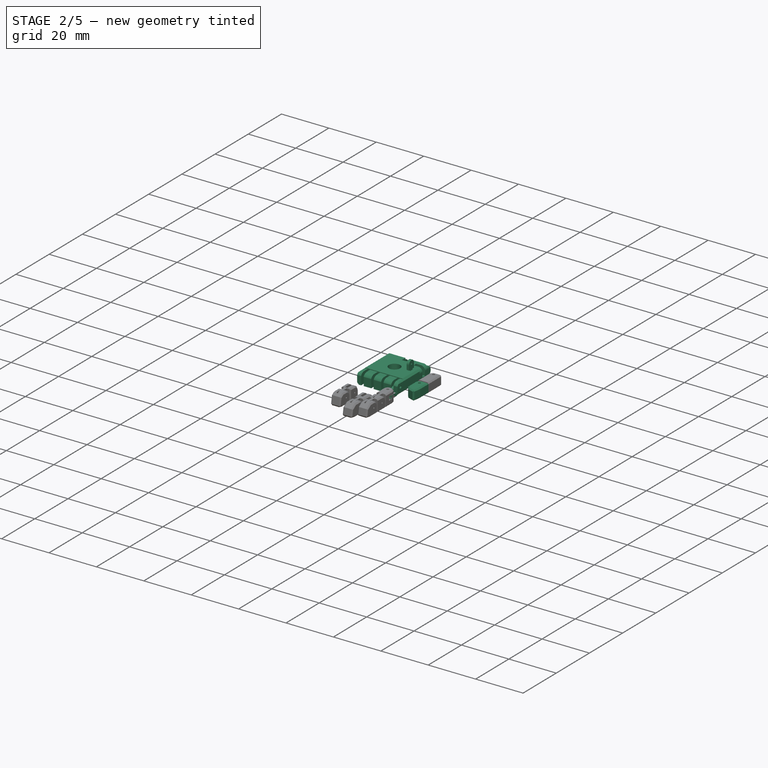
[diagram: stage 2 of 5 — iso view after this stage's code; geometry added in this stage tinted green]
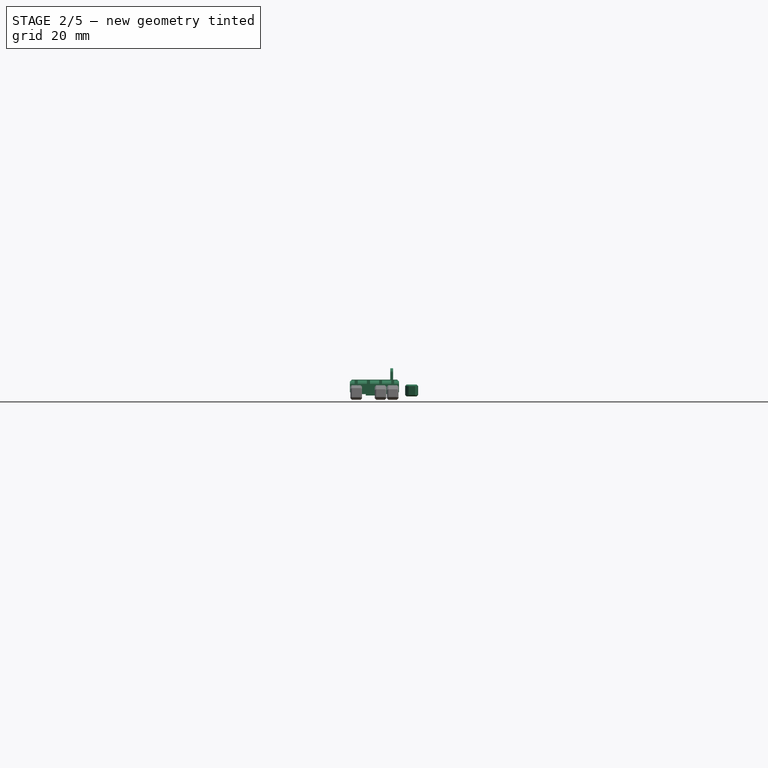
[diagram: stage 2 of 5 — front view after this stage's code; geometry added in this stage tinted green]
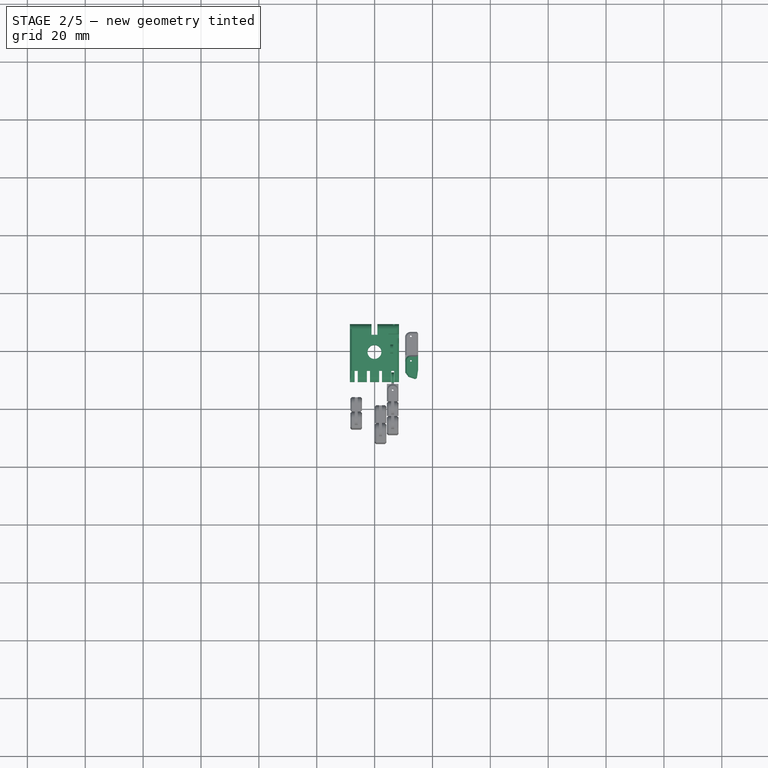
[diagram: stage 2 of 5 — top view after this stage's code; geometry added in this stage tinted green]
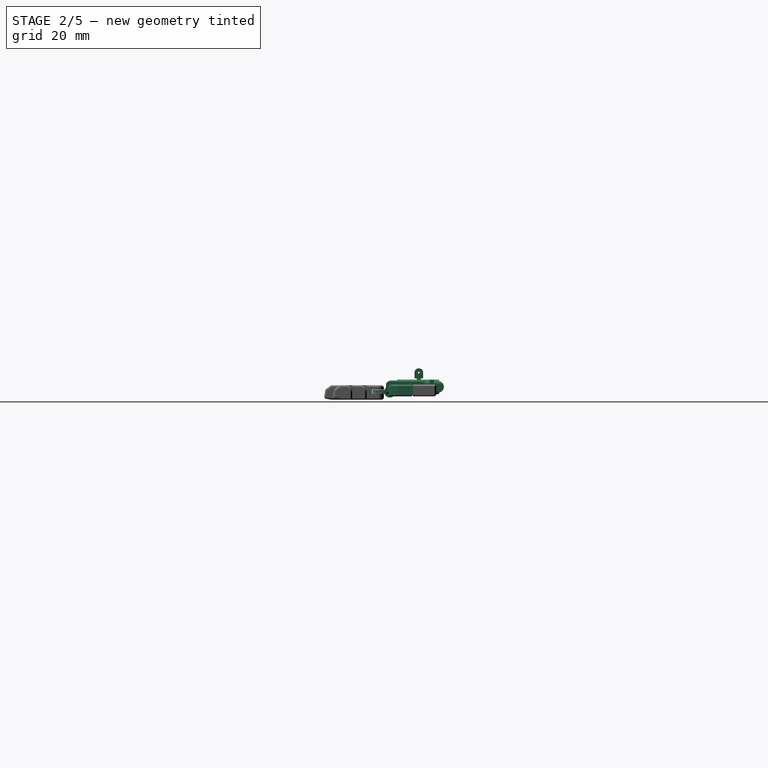
[diagram: stage 2 of 5 — right view after this stage's code; geometry added in this stage tinted green]
FEATURE [Sketcher::SketchObject] Sketch743
  ArcFitTolerance = 1e-06
  AttachmentOffset = pos=(0,0.15,0) rot=(0,0,1;0rad)
  AttachmentSupport = -> [XY_Plane058]
  FullyConstrained = false
  MakeInternals = false
  MapMode = 5
  Placement = pos=(0,0.15,0) rot=(0,0,1;0rad)
  sketch-geometry (4):
    g0: LineSegment StartX=4.16418 StartY=-58.7095 StartZ=0 EndX=4.16418 EndY=-60.2095 EndZ=0
    g1: LineSegment StartX=4.16418 StartY=-60.2095 StartZ=0 EndX=7.66418 EndY=-60.2095 EndZ=0
    g2: LineSegment StartX=7.66418 StartY=-60.2095 StartZ=0 EndX=7.66418 EndY=-58.7095 EndZ=0
    g3: LineSegment StartX=7.66418 StartY=-58.7095 StartZ=0 EndX=4.16418 EndY=-58.7095 EndZ=0
  constraints (10):
    c: Coincident(g0,g1)
    c: Coincident(g1,g2)
    c: Coincident(g2,g3)
    c: Coincident(g3,g0)
    c: Vertical(g0)
    c: Vertical(g2)
    c: Horizontal(g1)
    c: Horizontal(g3)
    c: DistanceY(g0,g0) = 1.5
    c: DistanceX(g3,g3) = 3.5
FEATURE [PartDesign::Pad] Pad461
  Direction = (0,0,1)
  Length = 4
  Length2 = 10
  Profile = -> Sketch743
  ReferenceAxis = -> Sketch743 [N_Axis]
  Refine = true
  Reversed = true
  Suppressed = false
  Type = 0
FEATURE [Sketcher::SketchObject] Sketch744
  ArcFitTolerance = 1e-06
  AttachmentSupport = -> [Pad461]
  ExternalGeometry = -> [Pad461]
  FullyConstrained = true
  MakeInternals = false
  MapMode = 5
  Placement = pos=(0,-60.0595,0) rot=(1,0,0;1.5708rad)
  sketch-geometry (1):
    g0: Circle CenterX=5.91418 CenterY=-2 CenterZ=0 NormalX=0 NormalY=0 NormalZ=1 AngleXU=0 Radius=1.75
  constraints (4):
    c: DistanceX(g-6,g-6) = 3.5
    c: Diameter(g0) = 3.5
    c: DistanceY(g0,g-6) = 2
    c: DistanceX(g-6,g0) = 1.75
FEATURE [PartDesign::Pad] Pad462
  BaseFeature = -> Pad461
  Direction = (0,-1,2e-16)
  Length = 1.5
  Length2 = 10
  Profile = -> Sketch744
  ReferenceAxis = -> Sketch744 [N_Axis]
  Refine = true
  Suppressed = false
  Type = 0
FEATURE [PartDesign::Pad] Pad463
  BaseFeature = -> Pad462
  Direction = (0,-1,2e-16)
  Length = 3
  Length2 = 10
  Profile = -> Sketch744
  ReferenceAxis = -> Sketch744 [N_Axis]
  Refine = true
  Reversed = true
  Suppressed = false
  Type = 0
FEATURE [Sketcher::SketchObject] Sketch745
  ArcFitTolerance = 1e-06
  AttachmentSupport = -> [Pad463]
  ExternalGeometry = -> [Pad463]
  FullyConstrained = true
  MakeInternals = false
  MapMode = 5
  Placement = pos=(0,-58.5595,0) rot=(0,0.707107,0.707107;3.14159rad)
  sketch-geometry (4):
    g0: LineSegment StartX=-7.66418 StartY=-2 StartZ=0 EndX=-7.66418 EndY=-4 EndZ=0
    g1: LineSegment StartX=-7.66418 StartY=-4 StartZ=0 EndX=-4.16418 EndY=-4 EndZ=0
    g2: LineSegment StartX=-4.16418 StartY=-4 StartZ=0 EndX=-4.16418 EndY=-2 EndZ=0
    g3: ArcOfCircle CenterX=-5.91418 CenterY=-2.00001 CenterZ=0 NormalX=0 NormalY=0 NormalZ=1 AngleXU=0 Radius=1.75 StartAngle=3.14159 EndAngle=6.28319
  constraints (9):
    c: Coincident(g0,g-5)
    c: Coincident(g0,g-4)
    c: Coincident(g1,g0)
    c: Coincident(g1,g-4)
    c: Coincident(g2,g1)
    c: Coincident(g2,g-5)
    c: Coincident(g3,g0)
    c: Coincident(g3,g2)
    c: Tangent(g3,g-5)
FEATURE [PartDesign::Pocket] Pocket405
  BaseFeature = -> Pad463
  Direction = (0,-1,2e-16)
  Length = 5
  Length2 = 5
  Profile = -> Sketch745
  ReferenceAxis = -> Sketch745 [N_Axis]
  Refine = true
  Suppressed = false
  Type = 0
FEATURE [PartDesign::Pad] Pad464
  BaseFeature = -> Pocket405
  Direction = (0,0,1)
  Length = 1.6
  Length2 = 10
  Profile = -> Pocket405 [Face1]
  Refine = true
  Suppressed = false
  Type = 0
FEATURE [Sketcher::SketchObject] Sketch746
  ArcFitTolerance = 1e-06
  AttachmentSupport = -> [Pad464]
  ExternalGeometry = -> [Pad464]
  FullyConstrained = true
  MakeInternals = false
  MapMode = 5
  Placement = pos=(0,0,1.6) rot=(0,0,1;0rad)
  sketch-geometry (1):
    g0: Circle CenterX=5.91418 CenterY=-59.3095 CenterZ=0 NormalX=0 NormalY=0 NormalZ=1 AngleXU=0 Radius=1
  constraints (5):
    c: DistanceX(g-3,g-3) = 3.5
    c: DistanceY(g-6,g-6) = 1.5
    c: DistanceY(g0,g-6) = 0.75
    c: DistanceX(g-6,g0) = 1.75
    c: Radius(g0) = 1
FEATURE [PartDesign::Pad] Pad465
  BaseFeature = -> Pad464
  Direction = (0,0,1)
  Length = 1
  Length2 = 10
  Profile = -> Sketch746
  ReferenceAxis = -> Sketch746 [N_Axis]
  Refine = true
  Suppressed = false
  Type = 0
FEATURE [Sketcher::SketchObject] Sketch747
  ArcFitTolerance = 1e-06
  AttachmentSupport = -> [Pad465]
  ExternalGeometry = -> [Pad465]
  FullyConstrained = true
  MakeInternals = false
  MapMode = 5
  Placement = pos=(0,0,2.6) rot=(0,0,1;0rad)
  sketch-geometry (1):
    g0: Circle CenterX=5.91418 CenterY=-59.3095 CenterZ=0 NormalX=0 NormalY=0 NormalZ=1 AngleXU=0 Radius=1.5
  constraints (2):
    c: Coincident(g0,g-3)
    c: Radius(g0) = 1.5
FEATURE [PartDesign::Pad] Pad466
  BaseFeature = -> Pad465
  Direction = (0,0,1)
  Length = 1
  Length2 = 10
  Profile = -> Sketch747
  ReferenceAxis = -> Sketch747 [N_Axis]
  Refine = true
  Suppressed = false
  Type = 0
FEATURE [PartDesign::Pocket] Pocket406
  BaseFeature = -> Pad466
  Direction = (0,0,1)
  Length = 1
  Length2 = 5
  Profile = -> Pad466 [Face7]
  Refine = true
  Suppressed = false
  Type = 0
FEATURE [PartDesign::Pocket] Pocket407
  BaseFeature = -> Pocket406
  Direction = (0,0,1)
  Length = 1
  Length2 = 5
  Profile = -> Pocket406 [Face11]
  Refine = true
  Suppressed = false
  Type = 0
FEATURE [PartDesign::Pocket] Pocket415
  BaseFeature = -> Pocket407
  Direction = (0,1,0)
  Length = 0.5
  Length2 = 5
  Profile = -> Pocket407 [Face15]
  Refine = true
  Suppressed = false
  Type = 0
FEATURE [PartDesign::Pocket] Pocket416
  BaseFeature = -> Pocket415
  Direction = (0,-1,0)
  Length = 0.5
  Length2 = 5
  Profile = -> Pocket415 [Face15]
  Refine = true
  Suppressed = false
  Type = 0
FEATURE [PartDesign::Pocket] Pocket426
  BaseFeature = -> Pocket416
  Direction = (0,0,-1)
  Length = 2
  Length2 = 5
  Profile = -> Pocket416 [Face3]
  Refine = true
  Suppressed = false
  Type = 0
FEATURE [PartDesign::Pad] Pad482
  BaseFeature = -> Pocket426
  Direction = (0,0,1)
  Length = 1
  Length2 = 10
  Profile = -> Pocket426 [Face10]
  Refine = true
  Suppressed = false
  Type = 0
FEATURE [Sketcher::SketchObject] Sketch765
  ArcFitTolerance = 1e-06
  AttachmentOffset = pos=(0,0,-1.25) rot=(0,0,1;0rad)
  AttachmentSupport = -> [Pad482]
  ExternalGeometry = -> [Pad482]
  FullyConstrained = true
  MakeInternals = false
  MapMode = 5
  Placement = pos=(6.41418,0,-3.9018e-12) rot=(0.57735,0.57735,0.57735;2.0944rad)
  sketch-geometry (4):
    g0: LineSegment StartX=-60.8095 StartY=2.6 StartZ=0 EndX=-57.8095 EndY=2.6 EndZ=0
    g1: LineSegment StartX=-57.8095 StartY=2.6 StartZ=0 EndX=-57.8095 EndY=4.59999 EndZ=0
    g2: LineSegment StartX=-60.8095 StartY=2.6 StartZ=0 EndX=-60.8095 EndY=4.6 EndZ=0
    g3: ArcOfCircle CenterX=-59.3095 CenterY=4.6 CenterZ=0 NormalX=0 NormalY=0 NormalZ=1 AngleXU=0 Radius=1.5 StartAngle=6.28318 EndAngle=9.42478
  constraints (14):
    c: Horizontal(g0)
    c: Coincident(g1,g0)
    c: Vertical(g1)
    c: Coincident(g2,g0)
    c: Vertical(g2)
    c: Coincident(g3,g2)
    c: Coincident(g3,g1)
    c: PointOnObject(g-3,g0)
    c: DistanceX(g0,g-3) = 0.75
    c: DistanceX(g-3,g0) = 0.75
    c: DistanceX(g0,g0) = 3
    c: Diameter(g3) = 3
    c: DistanceY(g3,g2) = 0
    c: DistanceY(g2,g2) = 2
FEATURE [PartDesign::Pad] Pad483
  BaseFeature = -> Pad482
  Direction = (1,0,-6.084e-13)
  Length = 1
  Length2 = 10
  Profile = -> Sketch765
  ReferenceAxis = -> Sketch765 [N_Axis]
  Refine = true
  Reversed = true
  Suppressed = false
  Type = 0
FEATURE [Sketcher::SketchObject] Sketch766
  ArcFitTolerance = 1e-06
  AttachmentSupport = -> [Pad483]
  ExternalGeometry = -> [Pad483]
  FullyConstrained = true
  MakeInternals = false
  MapMode = 5
  Placement = pos=(6.41418,0,-3.9026e-12) rot=(0.57735,0.57735,0.57735;2.0944rad)
  sketch-geometry (1):
    g0: Circle CenterX=-59.3095 CenterY=4.6 CenterZ=0 NormalX=0 NormalY=0 NormalZ=1 AngleXU=0 Radius=0.3
  constraints (2):
    c: Coincident(g0,g-3)
    c: Radius(g0) = 0.3
FEATURE [PartDesign::Pocket] Pocket427
  BaseFeature = -> Pad483
  Direction = (-1,0,6.084e-13)
  Length = 5
  Length2 = 5
  Profile = -> Sketch766
  ReferenceAxis = -> Sketch766 [N_Axis]
  Refine = true
  Suppressed = false
  Type = 0
FEATURE [PartDesign::Chamfer] Chamfer018
  Angle = 45
  Base = -> Pocket427 [Edge16,Edge14]
  BaseFeature = -> Pocket427
  ChamferType = 0
  FlipDirection = false
  Refine = true
  Size = 1
  Size2 = 1
  SupportTransform = false
  Suppressed = false
  UseAllEdges = false
FEATURE [Sketcher::SketchObject] Sketch777
  ArcFitTolerance = 1e-06
  AttachmentSupport = -> [Binder034]
  ExternalGeometry = -> [Binder034]
  FullyConstrained = true
  MakeInternals = false
  MapMode = 5
  Placement = pos=(-6.256e-13,0,-0.514179) rot=(0,0,1;0rad)
  sketch-geometry (7):
    g0: ArcOfCircle CenterX=12.55 CenterY=-63.3095 CenterZ=0 NormalX=0 NormalY=0 NormalZ=1 AngleXU=0 Radius=1.95 StartAngle=1.5708 EndAngle=3.14159
    g1: LineSegment StartX=12.55 StartY=-61.3595 StartZ=0 EndX=14.55 EndY=-61.3595 EndZ=0
    g2: LineSegment StartX=14.55 StartY=-61.3595 StartZ=0 EndX=14.55 EndY=-66.3595 EndZ=0
    g3: LineSegment StartX=14.55 StartY=-66.3595 StartZ=0 EndX=14.05 EndY=-69.6074 EndZ=0
    g4: LineSegment StartX=14.05 StartY=-69.6074 StartZ=0 EndX=11.6998 EndY=-68.8095 EndZ=0
    g5: LineSegment StartX=11.6998 StartY=-68.8095 StartZ=0 EndX=10.6 EndY=-67.3095 EndZ=0
    g6: LineSegment StartX=10.6 StartY=-67.3095 StartZ=0 EndX=10.6 EndY=-63.3095 EndZ=0
  constraints (21):
    c: Coincident(g1,g0)
    c: PointOnObject(g1,g-8)
    c: Horizontal(g1)
    c: Coincident(g2,g1)
    c: Vertical(g2)
    c: Coincident(g3,g2)
    c: Coincident(g4,g3)
    c: Coincident(g5,g4)
    c: Coincident(g5,g6)
    c: Coincident(g0,g-6)
    c: Radius(g0) = 1.95
    c: DistanceX(g0,g0) = 0
    c: DistanceY(g0,g0) = 0
    c: Coincident(g6,g0)
    c: Vertical(g6)
    c: DistanceY(g2,g2) = 5
    c: DistanceY(g6,g6) = 4
    c: DistanceX(g3,g2) = 0.5
    c: Angle(g3,g4) = 1.39626
    c: DistanceY(g4,g5) = 1.5
    c: Angle(g4,g5) = 2.53073
FEATURE [PartDesign::Pad] Pad489
  Direction = (1.2168e-12,0,1)
  Length = 1.5
  Length2 = 10
  Profile = -> Sketch777
  ReferenceAxis = -> Sketch777 [N_Axis]
  Refine = true
  Suppressed = false
  Type = 0
FEATURE [Sketcher::SketchObject] Sketch778
  ArcFitTolerance = 1e-06
  AttachmentSupport = -> [Pad489]
  ExternalGeometry = -> [Pad489]
  FullyConstrained = true
  MakeInternals = false
  MapMode = 5
  Placement = pos=(-6.256e-13,0,-0.514179) rot=(1,0,0;3.14159rad)
  sketch-geometry (6):
    g0: LineSegment StartX=14.05 StartY=69.6074 StartZ=0 EndX=11.6998 EndY=68.8095 EndZ=0
    g1: LineSegment StartX=11.6998 StartY=68.8095 StartZ=0 EndX=10.6 EndY=67.3095 EndZ=0
    g2: LineSegment StartX=10.6 StartY=67.3095 StartZ=0 EndX=10.6 EndY=64.4095 EndZ=0
    g3: LineSegment StartX=10.6 StartY=64.4095 StartZ=0 EndX=14.55 EndY=64.4095 EndZ=0
    g4: LineSegment StartX=14.55 StartY=64.4095 StartZ=0 EndX=14.55 EndY=66.3595 EndZ=0
    g5: LineSegment StartX=14.55 StartY=66.3595 StartZ=0 EndX=14.05 EndY=69.6074 EndZ=0
  constraints (14):
    c: Coincident(g0,g-7)
    c: Coincident(g0,g-7)
    c: Coincident(g1,g0)
    c: Coincident(g1,g-6)
    c: Coincident(g2,g1)
    c: PointOnObject(g2,g-5)
    c: Coincident(g3,g2)
    c: PointOnObject(g3,g-4)
    c: Horizontal(g3)
    c: Coincident(g4,g3)
    c: Coincident(g4,g-4)
    c: Coincident(g5,g4)
    c: Coincident(g5,g0)
    c: DistanceY(g2,g2) = 2.9
FEATURE [PartDesign::Pad] Pad490
  BaseFeature = -> Pad489
  Direction = (-1.2167e-12,0,-1)
  Length = 1.1
  Length2 = 10
  Profile = -> Sketch778
  ReferenceAxis = -> Sketch778 [N_Axis]
  Refine = true
  Suppressed = false
  Type = 0
FEATURE [Sketcher::SketchObject] Sketch779
  ArcFitTolerance = 1e-06
  AttachmentSupport = -> [Pad490]
  ExternalGeometry = -> [Pad490]
  FullyConstrained = true
  MakeInternals = false
  MapMode = 5
  Placement = pos=(-1.9641e-12,0,-1.61418) rot=(1,0,0;3.14159rad)
  sketch-geometry (7):
    g0: LineSegment StartX=10.6 StartY=67.3095 StartZ=0 EndX=11.6998 EndY=68.8095 EndZ=0
    g1: LineSegment StartX=11.6998 StartY=68.8095 StartZ=0 EndX=14.05 EndY=69.6074 EndZ=0
    g2: LineSegment StartX=14.05 StartY=69.6074 StartZ=0 EndX=14.55 EndY=66.3595 EndZ=0
    g3: LineSegment StartX=14.55 StartY=66.3595 StartZ=0 EndX=14.55 EndY=61.3595 EndZ=0
    g4: LineSegment StartX=10.6 StartY=67.3095 StartZ=0 EndX=10.6 EndY=63.3095 EndZ=0
    g5: LineSegment StartX=14.55 StartY=61.3595 StartZ=0 EndX=12.55 EndY=61.3595 EndZ=0
    g6: ArcOfCircle CenterX=12.55 CenterY=63.3095 CenterZ=0 NormalX=0 NormalY=0 NormalZ=1 AngleXU=0 Radius=1.95 StartAngle=3.14159 EndAngle=4.71239
  constraints (15):
    c: Coincident(g0,g-6)
    c: Coincident(g0,g-7)
    c: Coincident(g1,g0)
    c: Coincident(g1,g-7)
    c: Coincident(g2,g1)
    c: Coincident(g2,g-4)
    c: Coincident(g3,g2)
    c: Coincident(g3,g-10)
    c: Coincident(g4,g-6)
    c: Coincident(g4,g-11)
    c: Coincident(g5,g3)
    c: Coincident(g5,g-11)
    c: Coincident(g6,g4)
    c: Coincident(g6,g5)
    c: Tangent(g6,g-11)
FEATURE [PartDesign::Pad] Pad491
  BaseFeature = -> Pad490
  Direction = (-1.2167e-12,0,-1)
  Length = 1.5
  Length2 = 10
  Profile = -> Sketch779
  ReferenceAxis = -> Sketch779 [N_Axis]
  Refine = true
  Suppressed = false
  Type = 0
FEATURE [Sketcher::SketchObject] Sketch780
  ArcFitTolerance = 1e-06
  AttachmentSupport = -> [Pad491]
  ExternalGeometry = -> [Pad491]
  FullyConstrained = true
  MakeInternals = false
  MapMode = 5
  Placement = pos=(-3.7891e-12,0,-3.11418) rot=(1,0,0;3.14159rad)
  sketch-geometry (1):
    g0: Circle CenterX=12.55 CenterY=63.3095 CenterZ=0 NormalX=0 NormalY=0 NormalZ=1 AngleXU=0 Radius=0.3
  constraints (3):
    c: Radius(g0) = 0.3
    c: DistanceY(g-4,g0) = 0
    c: DistanceX(g-4,g0) = 1.95
FEATURE [PartDesign::Pocket] Pocket438
  BaseFeature = -> Pad491
  Direction = (1.2167e-12,0,1)
  Length = 5
  Length2 = 5
  Profile = -> Sketch780
  ReferenceAxis = -> Sketch780 [N_Axis]
  Refine = true
  Suppressed = false
  Type = 0
FEATURE [Sketcher::SketchObject] Sketch781
  ArcFitTolerance = 1e-06
  AttachmentSupport = -> [Pocket438]
  ExternalGeometry = -> [Pocket438]
  FullyConstrained = true
  MakeInternals = false
  MapMode = 5
  Placement = pos=(1.1995e-12,0,0.985821) rot=(0,0,1;0rad)
  sketch-geometry (1):
    g0: Circle CenterX=12.55 CenterY=-63.3095 CenterZ=0 NormalX=0 NormalY=0 NormalZ=1 AngleXU=0 Radius=0.5
  constraints (2):
    c: Coincident(g0,g-3)
    c: Radius(g0) = 0.5
FEATURE [PartDesign::Pocket] Pocket439
  BaseFeature = -> Pocket438
  Direction = (-1.2167e-12,0,-1)
  Length = 0.5
  Length2 = 5
  Profile = -> Sketch781
  ReferenceAxis = -> Sketch781 [N_Axis]
  Refine = true
  Suppressed = false
  Type = 0
FEATURE [PartDesign::Chamfer] Chamfer020
  Angle = 45
  Base = -> Pocket439 [Edge8,Edge19,Edge21,Edge20,Edge18,Edge13,Edge34,Edge35,Edge36,Edge24]
  BaseFeature = -> Pocket439
  ChamferType = 0
  FlipDirection = false
  Refine = true
  Size = 0.7
  Size2 = 1
  SupportTransform = false
  Suppressed = false
  UseAllEdges = false
FEATURE [Sketcher::SketchObject] Sketch782
  ArcFitTolerance = 1e-06
  AttachmentSupport = -> [Binder035]
  ExternalGeometry = -> [Binder035]
  FullyConstrained = true
  MakeInternals = false
  MapMode = 5
  Placement = pos=(5.25,0,0) rot=(0.57735,0.57735,0.57735;2.0944rad)
  sketch-geometry (1):
    g0: Circle CenterX=-66.8 CenterY=-1.5 CenterZ=0 NormalX=0 NormalY=0 NormalZ=1 AngleXU=0 Radius=3.75
  constraints (2):
    c: Coincident(g0,g-11)
    c: Radius(g0) = 3.75
FEATURE [PartDesign::Pad] Pad492
  Direction = (1,0,0)
  Length = 2
  Length2 = 10
  Profile = -> Sketch782
  ReferenceAxis = -> Sketch782 [N_Axis]
  Refine = true
  Suppressed = false
  Type = 0
FEATURE [Sketcher::SketchObject] Sketch783
  ArcFitTolerance = 1e-06
  AttachmentSupport = -> [Pad492]
  ExternalGeometry = -> [Pad492]
  FullyConstrained = false
  MakeInternals = false
  MapMode = 5
  Placement = pos=(7.25,0,0) rot=(0.57735,0.57735,0.57735;2.0944rad)
  sketch-geometry (8):
    g0: LineSegment StartX=-70.4742 StartY=-0.75 StartZ=0 EndX=-71.2807 EndY=-0.75 EndZ=0
    g1: LineSegment StartX=-71.2807 StartY=-0.75 StartZ=0 EndX=-71.2807 EndY=-2.25 EndZ=0
    g2: LineSegment StartX=-66.8 StartY=-5.25 StartZ=0 EndX=-66.8 EndY=-6 EndZ=0
    g3: LineSegment StartX=-66.8 StartY=-6 StartZ=0 EndX=-68.3 EndY=-6 EndZ=0
    g4: LineSegment StartX=-71.2807 StartY=-2.25 StartZ=0 EndX=-70.4742 EndY=-2.25 EndZ=0
    g5: ArcOfCircle CenterX=-66.8 CenterY=-1.5 CenterZ=0 NormalX=0 NormalY=0 NormalZ=1 AngleXU=0 Radius=3.75 StartAngle=2.94023 EndAngle=3.34295
    g6: ArcOfCircle CenterX=-66.8 CenterY=-1.5 CenterZ=0 NormalX=0 NormalY=0 NormalZ=1 AngleXU=0 Radius=3.75 StartAngle=4.30087 EndAngle=4.71239
    g7: LineSegment StartX=-68.3 StartY=-4.93693 StartZ=0 EndX=-68.3 EndY=-6 EndZ=0
  constraints (23):
    c: PointOnObject(g0,g-3)
    c: Horizontal(g0)
    c: Coincident(g1,g0)
    c: Vertical(g1)
    c: Vertical(g2)
    c: DistanceY(g2,g2) = 0.75
    c: Coincident(g3,g2)
    c: Horizontal(g3)
    c: Coincident(g4,g1)
    c: PointOnObject(g4,g-3)
    c: Horizontal(g4)
    c: Coincident(g5,g4)
    c: Coincident(g5,g0)
    c: Coincident(g6,g2)
    c: Tangent(g6,g-3) = -1.5708
    c: Coincident(g7,g6)
    c: Coincident(g7,g3)
    c: Vertical(g7)
    c: Coincident(g6,g5)
    c: DistanceX(g2,g5) = 0
    c: DistanceX(g3,g3) = 1.5
    c: DistanceY(g4,g5) = 0.75
    c: DistanceY(g5,g0) = 0.75
FEATURE [PartDesign::Pad] Pad493
  BaseFeature = -> Pad492
  Direction = (1,0,0)
  Length = 2
  Length2 = 10
  Profile = -> Sketch783
  ReferenceAxis = -> Sketch783 [N_Axis]
  Refine = true
  Reversed = true
  Suppressed = false
  Type = 0
FEATURE [Sketcher::SketchObject] Sketch784
  ArcFitTolerance = 1e-06
  AttachmentSupport = -> [Pad493]
  ExternalGeometry = -> [Pad493]
  FullyConstrained = true
  MakeInternals = false
  MapMode = 5
  Placement = pos=(0,0,-0.75) rot=(0,0,1;0rad)
  sketch-geometry (6):
    g0: LineSegment StartX=7.25 StartY=-71.2807 StartZ=0 EndX=8.25 EndY=-71.2807 EndZ=0
    g1: LineSegment StartX=5.25 StartY=-71.2807 StartZ=0 EndX=4.25 EndY=-71.2807 EndZ=0
    g2: LineSegment StartX=4.25 StartY=-71.2807 StartZ=0 EndX=4.25 EndY=-73.3807 EndZ=0
    g3: LineSegment StartX=8.25 StartY=-71.2807 StartZ=0 EndX=8.25 EndY=-73.3807 EndZ=0
    g4: ArcOfCircle CenterX=6.25 CenterY=-73.3807 CenterZ=0 NormalX=0 NormalY=0 NormalZ=1 AngleXU=0 Radius=2 StartAngle=3.14159 EndAngle=6.28319
    g5: LineSegment StartX=7.25 StartY=-71.2807 StartZ=0 EndX=5.25 EndY=-71.2807 EndZ=0
  constraints (17):
    c: Coincident(g0,g-3)
    c: Horizontal(g0)
    c: Coincident(g1,g-3)
    c: Horizontal(g1)
    c: DistanceX(g0,g0) = 1
    c: DistanceX(g1,g1) = 1
    c: Coincident(g2,g1)
    c: Vertical(g2)
    c: Coincident(g3,g0)
    c: Vertical(g3)
    c: Coincident(g4,g3)
    c: Coincident(g4,g2)
    c: DistanceY(g2,g4) = 0
    c: DistanceY(g2,g2) = 2.1
    c: DistanceY(g3,g3) = 2.1
    c: Coincident(g5,g0)
    c: Coincident(g5,g1)
FEATURE [PartDesign::Pad] Pad494
  BaseFeature = -> Pad493
  Direction = (0,0,1)
  Length = 1.5
  Length2 = 10
  Profile = -> Sketch784
  ReferenceAxis = -> Sketch784 [N_Axis]
  Refine = true
  Reversed = true
  Suppressed = false
  Type = 0
FEATURE [Sketcher::SketchObject] Sketch785
  ArcFitTolerance = 1e-06
  AttachmentSupport = -> [Pad494]
  ExternalGeometry = -> [Pad494]
  FullyConstrained = true
  MakeInternals = false
  MapMode = 5
  Placement = pos=(0,0,-2.25) rot=(1,0,0;3.14159rad)
  sketch-geometry (1):
    g0: Circle CenterX=6.25 CenterY=73.3807 CenterZ=0 NormalX=0 NormalY=0 NormalZ=1 AngleXU=0 Radius=0.3
  constraints (2):
    c: Coincident(g0,g-3)
    c: Radius(g0) = 0.3
FEATURE [PartDesign::Pocket] Pocket440
  BaseFeature = -> Pad494
  Direction = (0,0,1)
  Length = 5
  Length2 = 5
  Profile = -> Sketch785
  ReferenceAxis = -> Sketch785 [N_Axis]
  Refine = true
  Suppressed = false
  Type = 0
FEATURE [Sketcher::SketchObject] Sketch786
  ArcFitTolerance = 1e-06
  AttachmentSupport = -> [Pocket440]
  ExternalGeometry = -> [Pocket440]
  FullyConstrained = true
  MakeInternals = false
  MapMode = 5
  Placement = pos=(7.25,0,0) rot=(0.57735,0.57735,0.57735;2.0944rad)
  sketch-geometry (1):
    g0: Circle CenterX=-66.8 CenterY=-1.5 CenterZ=0 NormalX=0 NormalY=0 NormalZ=1 AngleXU=0 Radius=0.3
  constraints (2):
    c: Coincident(g0,g-3)
    c: Radius(g0) = 0.3
FEATURE [PartDesign::Pocket] Pocket441
  BaseFeature = -> Pocket440
  Direction = (-1,0,0)
  Length = 5
  Length2 = 5
  Profile = -> Sketch786
  ReferenceAxis = -> Sketch786 [N_Axis]
  Refine = true
  Suppressed = false
  Type = 0
FEATURE [PartDesign::Pocket] Pocket
  BaseFeature = -> Pocket441
  Direction = (-1,0,0)
  Length = 5
  Length2 = 5
  Profile = -> Pocket441 [Face4]
  Refine = true
  Suppressed = false
  Type = 0
FEATURE [Sketcher::SketchObject] Sketch
  ArcFitTolerance = 1e-06
  AttachmentOffset = pos=(0,0,-1.5) rot=(0,0,1;0rad)
  AttachmentSupport = -> [Pocket]
  ExternalGeometry = -> [Pocket]
  FullyConstrained = true
  MakeInternals = false
  MapMode = 5
  Placement = pos=(6.75,0,0) rot=(0.57735,0.57735,0.57735;2.0944rad)
  sketch-geometry (4):
    g0: LineSegment StartX=-71.2807 StartY=-0.75 StartZ=0 EndX=-71.1348 EndY=-0.75 EndZ=0
    g1: LineSegment StartX=-71.2807 StartY=-2.25 StartZ=0 EndX=-71.1348 EndY=-2.25 EndZ=0
    g2: ArcOfCircle CenterX=-69.2807 CenterY=-1.5 CenterZ=0 NormalX=0 NormalY=0 NormalZ=1 AngleXU=0 Radius=2 StartAngle=3.52599 EndAngle=9.04038
    g3: LineSegment StartX=-71.2807 StartY=-0.75 StartZ=0 EndX=-71.2807 EndY=-2.25 EndZ=0
  constraints (11):
    c: Coincident(g0,g-3)
    c: Horizontal(g0)
    c: Coincident(g1,g-3)
    c: Horizontal(g1)
    c: Coincident(g2,g0)
    c: Coincident(g2,g1)
    c: Radius(g2) = 2
    c: DistanceX(g0,g2) = 2
    c: DistanceX(g0,g1) = 0
    c: Coincident(g3,g0)
    c: Coincident(g3,g1)
FEATURE [PartDesign::Pad] Pad
  BaseFeature = -> Pocket
  Direction = (1,0,0)
  Length = 1
  Length2 = 10
  Profile = -> Sketch
  ReferenceAxis = -> Sketch [N_Axis]
  Refine = true
  Reversed = true
  Suppressed = false
  Type = 0
FEATURE [Sketcher::SketchObject] Sketch874
  ArcFitTolerance = 1e-06
  AttachmentSupport = -> [Pad]
  ExternalGeometry = -> [Pad]
  FullyConstrained = true
  MakeInternals = false
  MapMode = 5
  Placement = pos=(6.75,0,0) rot=(0.57735,0.57735,0.57735;2.0944rad)
  sketch-geometry (1):
    g0: Circle CenterX=-69.2807 CenterY=-1.5 CenterZ=0 NormalX=0 NormalY=0 NormalZ=1 AngleXU=0 Radius=0.3
  constraints (2):
    c: Coincident(g0,g-3)
    c: Radius(g0) = 0.3
FEATURE [PartDesign::Pocket] Pocket475
  BaseFeature = -> Pad
  Direction = (-1,0,0)
  Length = 5
  Length2 = 5
  Profile = -> Sketch874
  ReferenceAxis = -> Sketch874 [N_Axis]
  Refine = true
  Suppressed = false
  Type = 0
FEATURE [PartDesign::Chamfer] Chamfer033
  Angle = 45
  Base = -> Pad552 [Edge16,Edge45,Edge58,Edge56,Edge21,Edge48]
  BaseFeature = -> Pad552
  ChamferType = 0
  FlipDirection = false
  Refine = true
  Size = 0.5
  Size2 = 1
  SupportTransform = false
  Suppressed = false
  UseAllEdges = false
FEATURE [PartDesign::SubShapeBinder] Binder052
  BindCopyOnChange = 0
  BindMode = 2
  ClaimChildren = false
  Fuse = false
  MakeFace = true
  OffsetFill = false
  OffsetIntersection = false
  OffsetJoinType = 0
  OffsetOpenResult = false
  PartialLoad = false
  Refine = true
  Relative = true
  _Version = 2
FEATURE [PartDesign::SubShapeBinder] Binder054
  BindCopyOnChange = 0
  BindMode = 2
  ClaimChildren = false
  Fuse = false
  MakeFace = true
  OffsetFill = false
  OffsetIntersection = false
  OffsetJoinType = 0
  OffsetOpenResult = false
  PartialLoad = false
  Refine = true
  Relative = true
  _Version = 2
FEATURE [PartDesign::SubShapeBinder] Binder055
  BindCopyOnChange = 0
  BindMode = 2
  ClaimChildren = false
  Fuse = false
  MakeFace = true
  OffsetFill = false
  OffsetIntersection = false
  OffsetJoinType = 0
  OffsetOpenResult = false
  PartialLoad = false
  Refine = true
  Relative = true
  _Version = 2
FEATURE [Sketcher::SketchObject] Sketch881
  ArcFitTolerance = 1e-06
  AttachmentSupport = -> [Binder052]
  ExternalGeometry = -> [Binder052]
  FullyConstrained = true
  MakeInternals = false
  MapMode = 5
  Placement = pos=(5.25,0,0) rot=(0.57735,0.57735,0.57735;2.0944rad)
  sketch-geometry (1):
    g0: Circle CenterX=-66.8 CenterY=-1.5 CenterZ=0 NormalX=0 NormalY=0 NormalZ=1 AngleXU=0 Radius=3.75
  constraints (2):
    c: Coincident(g0,g-11)
    c: Radius(g0) = 3.75
FEATURE [PartDesign::Pad] Pad555
  Direction = (1,0,0)
  Length = 2
  Length2 = 10
  Profile = -> Sketch881
  ReferenceAxis = -> Sketch881 [N_Axis]
  Refine = true
  Suppressed = false
  Type = 0
FEATURE [Sketcher::SketchObject] Sketch882
  ArcFitTolerance = 1e-06
  AttachmentSupport = -> [Pad555]
  ExternalGeometry = -> [Pad555]
  FullyConstrained = false
  MakeInternals = false
  MapMode = 5
  Placement = pos=(7.25,0,0) rot=(0.57735,0.57735,0.57735;2.0944rad)
  sketch-geometry (8):
    g0: LineSegment StartX=-70.4742 StartY=-0.75 StartZ=0 EndX=-71.2807 EndY=-0.75 EndZ=0
    g1: LineSegment StartX=-71.2807 StartY=-0.75 StartZ=0 EndX=-71.2807 EndY=-2.25 EndZ=0
    g2: LineSegment StartX=-66.8 StartY=-5.25 StartZ=0 EndX=-66.8 EndY=-6 EndZ=0
    g3: LineSegment StartX=-66.8 StartY=-6 StartZ=0 EndX=-68.3 EndY=-6 EndZ=0
    g4: LineSegment StartX=-71.2807 StartY=-2.25 StartZ=0 EndX=-70.4742 EndY=-2.25 EndZ=0
    g5: ArcOfCircle CenterX=-66.8 CenterY=-1.5 CenterZ=0 NormalX=0 NormalY=0 NormalZ=1 AngleXU=0 Radius=3.75 StartAngle=2.94023 EndAngle=3.34295
    g6: ArcOfCircle CenterX=-66.8 CenterY=-1.5 CenterZ=0 NormalX=0 NormalY=0 NormalZ=1 AngleXU=0 Radius=3.75 StartAngle=4.30087 EndAngle=4.71239
    g7: LineSegment StartX=-68.3 StartY=-4.93693 StartZ=0 EndX=-68.3 EndY=-6 EndZ=0
  constraints (23):
    c: PointOnObject(g0,g-3)
    c: Horizontal(g0)
    c: Coincident(g1,g0)
    c: Vertical(g1)
    c: Vertical(g2)
    c: DistanceY(g2,g2) = 0.75
    c: Coincident(g3,g2)
    c: Horizontal(g3)
    c: Coincident(g4,g1)
    c: PointOnObject(g4,g-3)
    c: Horizontal(g4)
    c: Coincident(g5,g4)
    c: Coincident(g5,g0)
    c: Coincident(g6,g2)
    c: Tangent(g6,g-3) = -1.5708
    c: Coincident(g7,g6)
    c: Coincident(g7,g3)
    c: Vertical(g7)
    c: Coincident(g6,g5)
    c: DistanceX(g2,g5) = 0
    c: DistanceX(g3,g3) = 1.5
    c: DistanceY(g4,g5) = 0.75
    c: DistanceY(g5,g0) = 0.75
FEATURE [PartDesign::Pad] Pad556
  BaseFeature = -> Pad555
  Direction = (1,0,0)
  Length = 2
  Length2 = 10
  Profile = -> Sketch882
  ReferenceAxis = -> Sketch882 [N_Axis]
  Refine = true
  Reversed = true
  Suppressed = false
  Type = 0
FEATURE [Sketcher::SketchObject] Sketch883
  ArcFitTolerance = 1e-06
  AttachmentSupport = -> [Pad556]
  ExternalGeometry = -> [Pad556]
  FullyConstrained = true
  MakeInternals = false
  MapMode = 5
  Placement = pos=(0,0,-0.75) rot=(0,0,1;0rad)
  sketch-geometry (6):
    g0: LineSegment StartX=7.25 StartY=-71.2807 StartZ=0 EndX=8.25 EndY=-71.2807 EndZ=0
    g1: LineSegment StartX=5.25 StartY=-71.2807 StartZ=0 EndX=4.25 EndY=-71.2807 EndZ=0
    g2: LineSegment StartX=4.25 StartY=-71.2807 StartZ=0 EndX=4.25 EndY=-73.3807 EndZ=0
    g3: LineSegment StartX=8.25 StartY=-71.2807 StartZ=0 EndX=8.25 EndY=-73.3807 EndZ=0
    g4: ArcOfCircle CenterX=6.25 CenterY=-73.3807 CenterZ=0 NormalX=0 NormalY=0 NormalZ=1 AngleXU=0 Radius=2 StartAngle=3.14159 EndAngle=6.28319
    g5: LineSegment StartX=7.25 StartY=-71.2807 StartZ=0 EndX=5.25 EndY=-71.2807 EndZ=0
  constraints (17):
    c: Coincident(g0,g-3)
    c: Horizontal(g0)
    c: Coincident(g1,g-3)
    c: Horizontal(g1)
    c: DistanceX(g0,g0) = 1
    c: DistanceX(g1,g1) = 1
    c: Coincident(g2,g1)
    c: Vertical(g2)
    c: Coincident(g3,g0)
    c: Vertical(g3)
    c: Coincident(g4,g3)
    c: Coincident(g4,g2)
    c: DistanceY(g2,g4) = 0
    c: DistanceY(g2,g2) = 2.1
    c: DistanceY(g3,g3) = 2.1
    c: Coincident(g5,g0)
    c: Coincident(g5,g1)
FEATURE [PartDesign::Pad] Pad557
  BaseFeature = -> Pad556
  Direction = (0,0,1)
  Length = 1.5
  Length2 = 10
  Profile = -> Sketch883
  ReferenceAxis = -> Sketch883 [N_Axis]
  Refine = true
  Reversed = true
  Suppressed = false
  Type = 0
FEATURE [Sketcher::SketchObject] Sketch884
  ArcFitTolerance = 1e-06
  AttachmentSupport = -> [Pad557]
  ExternalGeometry = -> [Pad557]
  FullyConstrained = true
  MakeInternals = false
  MapMode = 5
  Placement = pos=(0,0,-2.25) rot=(1,0,0;3.14159rad)
  sketch-geometry (1):
    g0: Circle CenterX=6.25 CenterY=73.3807 CenterZ=0 NormalX=0 NormalY=0 NormalZ=1 AngleXU=0 Radius=0.3
  constraints (2):
    c: Coincident(g0,g-3)
    c: Radius(g0) = 0.3
FEATURE [PartDesign::Pocket] Pocket477
  BaseFeature = -> Pad557
  Direction = (0,0,1)
  Length = 5
  Length2 = 5
  Profile = -> Sketch884
  ReferenceAxis = -> Sketch884 [N_Axis]
  Refine = true
  Suppressed = false
  Type = 0
FEATURE [Sketcher::SketchObject] Sketch885
  ArcFitTolerance = 1e-06
  AttachmentSupport = -> [Pocket477]
  ExternalGeometry = -> [Pocket477]
  FullyConstrained = true
  MakeInternals = false
  MapMode = 5
  Placement = pos=(7.25,0,0) rot=(0.57735,0.57735,0.57735;2.0944rad)
  sketch-geometry (1):
    g0: Circle CenterX=-66.8 CenterY=-1.5 CenterZ=0 NormalX=0 NormalY=0 NormalZ=1 AngleXU=0 Radius=0.3
  constraints (2):
    c: Coincident(g0,g-3)
    c: Radius(g0) = 0.3
FEATURE [PartDesign::Pocket] Pocket478
  BaseFeature = -> Pocket477
  Direction = (-1,0,0)
  Length = 5
  Length2 = 5
  Profile = -> Sketch885
  ReferenceAxis = -> Sketch885 [N_Axis]
  Refine = true
  Suppressed = false
  Type = 0
FEATURE [PartDesign::Pocket] Pocket476
  BaseFeature = -> Pocket478
  Direction = (-1,0,0)
  Length = 5
  Length2 = 5
  Profile = -> Pocket478 [Face4]
  Refine = true
  Suppressed = false
  Type = 0
FEATURE [Sketcher::SketchObject] Sketch880
  ArcFitTolerance = 1e-06
  AttachmentOffset = pos=(0,0,-1.5) rot=(0,0,1;0rad)
  AttachmentSupport = -> [Pocket476]
  ExternalGeometry = -> [Pocket476]
  FullyConstrained = true
  MakeInternals = false
  MapMode = 5
  Placement = pos=(6.75,0,0) rot=(0.57735,0.57735,0.57735;2.0944rad)
  sketch-geometry (4):
    g0: LineSegment StartX=-71.2807 StartY=-0.75 StartZ=0 EndX=-71.1348 EndY=-0.75 EndZ=0
    g1: LineSegment StartX=-71.2807 StartY=-2.25 StartZ=0 EndX=-71.1348 EndY=-2.25 EndZ=0
    g2: ArcOfCircle CenterX=-69.2807 CenterY=-1.5 CenterZ=0 NormalX=0 NormalY=0 NormalZ=1 AngleXU=0 Radius=2 StartAngle=3.52599 EndAngle=9.04038
    g3: LineSegment StartX=-71.2807 StartY=-0.75 StartZ=0 EndX=-71.2807 EndY=-2.25 EndZ=0
  constraints (11):
    c: Coincident(g0,g-3)
    c: Horizontal(g0)
    c: Coincident(g1,g-3)
    c: Horizontal(g1)
    c: Coincident(g2,g0)
    c: Coincident(g2,g1)
    c: Radius(g2) = 2
    c: DistanceX(g0,g2) = 2
    c: DistanceX(g0,g1) = 0
    c: Coincident(g3,g0)
    c: Coincident(g3,g1)
FEATURE [PartDesign::Pad] Pad554
  BaseFeature = -> Pocket476
  Direction = (1,0,0)
  Length = 1
  Length2 = 10
  Profile = -> Sketch880
  ReferenceAxis = -> Sketch880 [N_Axis]
  Refine = true
  Reversed = true
  Suppressed = false
  Type = 0
FEATURE [Sketcher::SketchObject] Sketch903
  ArcFitTolerance = 1e-06
  AttachmentSupport = -> [Pad554]
  ExternalGeometry = -> [Pad554]
  FullyConstrained = true
  MakeInternals = false
  MapMode = 5
  Placement = pos=(6.75,0,0) rot=(0.57735,0.57735,0.57735;2.0944rad)
  sketch-geometry (1):
    g0: Circle CenterX=-69.2807 CenterY=-1.5 CenterZ=0 NormalX=0 NormalY=0 NormalZ=1 AngleXU=0 Radius=0.3
  constraints (2):
    c: Coincident(g0,g-3)
    c: Radius(g0) = 0.3
FEATURE [PartDesign::Pocket] Pocket485
  BaseFeature = -> Pad554
  Direction = (-1,0,0)
  Length = 5
  Length2 = 5
  Profile = -> Sketch903
  ReferenceAxis = -> Sketch903 [N_Axis]
  Refine = true
  Suppressed = false
  Type = 0
FEATURE [PartDesign::Pocket] Pocket486
  BaseFeature = -> Pocket475
  Direction = (0,0,-1)
  Length = 0.1
  Length2 = 5
  Profile = -> Pocket475 [Face5]
  Refine = true
  Suppressed = false
  Type = 0
FEATURE [PartDesign::Pocket] Pocket487
  BaseFeature = -> Pocket485
  Direction = (0,7e-16,-1)
  Length = 0.1
  Length2 = 5
  Profile = -> Pocket485 [Face5]
  Refine = true
  Suppressed = false
  Type = 0
FEATURE [PartDesign::SubShapeBinder] Binder056
  BindCopyOnChange = 0
  BindMode = 2
  ClaimChildren = false
  Fuse = false
  MakeFace = true
  OffsetFill = false
  OffsetIntersection = false
  OffsetJoinType = 0
  OffsetOpenResult = false
  PartialLoad = false
  Refine = true
  Relative = true
  _Version = 2
FEATURE [Sketcher::SketchObject] Sketch910
  ArcFitTolerance = 1e-06
  AttachmentSupport = -> [Binder056]
  ExternalGeometry = -> [Binder056]
  FullyConstrained = true
  MakeInternals = false
  MapMode = 5
  Placement = pos=(5.25,0,0) rot=(0.57735,0.57735,0.57735;2.0944rad)
  sketch-geometry (1):
    g0: Circle CenterX=-66.8 CenterY=-1.5 CenterZ=0 NormalX=0 NormalY=0 NormalZ=1 AngleXU=0 Radius=3.75
  constraints (2):
    c: Coincident(g0,g-11)
    c: Radius(g0) = 3.75
FEATURE [PartDesign::Pad] Pad576
  Direction = (1,0,0)
  Length = 2
  Length2 = 10
  Profile = -> Sketch910
  ReferenceAxis = -> Sketch910 [N_Axis]
  Refine = true
  Suppressed = false
  Type = 0
FEATURE [Sketcher::SketchObject] Sketch911
  ArcFitTolerance = 1e-06
  AttachmentSupport = -> [Pad576]
  ExternalGeometry = -> [Pad576]
  FullyConstrained = false
  MakeInternals = false
  MapMode = 5
  Placement = pos=(7.25,0,0) rot=(0.57735,0.57735,0.57735;2.0944rad)
  sketch-geometry (8):
    g0: LineSegment StartX=-70.4742 StartY=-0.75 StartZ=0 EndX=-71.2807 EndY=-0.75 EndZ=0
    g1: LineSegment StartX=-71.2807 StartY=-0.75 StartZ=0 EndX=-71.2807 EndY=-2.25 EndZ=0
    g2: LineSegment StartX=-66.8 StartY=-5.25 StartZ=0 EndX=-66.8 EndY=-6 EndZ=0
    g3: LineSegment StartX=-66.8 StartY=-6 StartZ=0 EndX=-68.3 EndY=-6 EndZ=0
    g4: LineSegment StartX=-71.2807 StartY=-2.25 StartZ=0 EndX=-70.4742 EndY=-2.25 EndZ=0
    g5: ArcOfCircle CenterX=-66.8 CenterY=-1.5 CenterZ=0 NormalX=0 NormalY=0 NormalZ=1 AngleXU=0 Radius=3.75 StartAngle=2.94023 EndAngle=3.34295
    g6: ArcOfCircle CenterX=-66.8 CenterY=-1.5 CenterZ=0 NormalX=0 NormalY=0 NormalZ=1 AngleXU=0 Radius=3.75 StartAngle=4.30087 EndAngle=4.71239
    g7: LineSegment StartX=-68.3 StartY=-4.93693 StartZ=0 EndX=-68.3 EndY=-6 EndZ=0
  constraints (23):
    c: PointOnObject(g0,g-3)
    c: Horizontal(g0)
    c: Coincident(g1,g0)
    c: Vertical(g1)
    c: Vertical(g2)
    c: DistanceY(g2,g2) = 0.75
    c: Coincident(g3,g2)
    c: Horizontal(g3)
    c: Coincident(g4,g1)
    c: PointOnObject(g4,g-3)
    c: Horizontal(g4)
    c: Coincident(g5,g4)
    c: Coincident(g5,g0)
    c: Coincident(g6,g2)
    c: Tangent(g6,g-3) = -1.5708
    c: Coincident(g7,g6)
    c: Coincident(g7,g3)
    c: Vertical(g7)
    c: Coincident(g6,g5)
    c: DistanceX(g2,g5) = 0
    c: DistanceX(g3,g3) = 1.5
    c: DistanceY(g4,g5) = 0.75
    c: DistanceY(g5,g0) = 0.75
FEATURE [PartDesign::Pad] Pad577
  BaseFeature = -> Pad576
  Direction = (1,0,0)
  Length = 2
  Length2 = 10
  Profile = -> Sketch911
  ReferenceAxis = -> Sketch911 [N_Axis]
  Refine = true
  Reversed = true
  Suppressed = false
  Type = 0
FEATURE [Sketcher::SketchObject] Sketch912
  ArcFitTolerance = 1e-06
  AttachmentSupport = -> [Pad577]
  ExternalGeometry = -> [Pad577]
  FullyConstrained = true
  MakeInternals = false
  MapMode = 5
  Placement = pos=(0,0,-0.75) rot=(0,0,1;0rad)
  sketch-geometry (6):
    g0: LineSegment StartX=7.25 StartY=-71.2807 StartZ=0 EndX=8.25 EndY=-71.2807 EndZ=0
    g1: LineSegment StartX=5.25 StartY=-71.2807 StartZ=0 EndX=4.25 EndY=-71.2807 EndZ=0
    g2: LineSegment StartX=4.25 StartY=-71.2807 StartZ=0 EndX=4.25 EndY=-73.3807 EndZ=0
    g3: LineSegment StartX=8.25 StartY=-71.2807 StartZ=0 EndX=8.25 EndY=-73.3807 EndZ=0
    g4: ArcOfCircle CenterX=6.25 CenterY=-73.3807 CenterZ=0 NormalX=0 NormalY=0 NormalZ=1 AngleXU=0 Radius=2 StartAngle=3.14159 EndAngle=6.28319
    g5: LineSegment StartX=7.25 StartY=-71.2807 StartZ=0 EndX=5.25 EndY=-71.2807 EndZ=0
  constraints (17):
    c: Coincident(g0,g-3)
    c: Horizontal(g0)
    c: Coincident(g1,g-3)
    c: Horizontal(g1)
    c: DistanceX(g0,g0) = 1
    c: DistanceX(g1,g1) = 1
    c: Coincident(g2,g1)
    c: Vertical(g2)
    c: Coincident(g3,g0)
    c: Vertical(g3)
    c: Coincident(g4,g3)
    c: Coincident(g4,g2)
    c: DistanceY(g2,g4) = 0
    c: DistanceY(g2,g2) = 2.1
    c: DistanceY(g3,g3) = 2.1
    c: Coincident(g5,g0)
    c: Coincident(g5,g1)
FEATURE [PartDesign::Pad] Pad578
  BaseFeature = -> Pad577
  Direction = (0,0,1)
  Length = 1.5
  Length2 = 10
  Profile = -> Sketch912
  ReferenceAxis = -> Sketch912 [N_Axis]
  Refine = true
  Reversed = true
  Suppressed = false
  Type = 0
FEATURE [Sketcher::SketchObject] Sketch913
  ArcFitTolerance = 1e-06
  AttachmentSupport = -> [Pad578]
  ExternalGeometry = -> [Pad578]
  FullyConstrained = true
  MakeInternals = false
  MapMode = 5
  Placement = pos=(0,0,-2.25) rot=(1,0,0;3.14159rad)
  sketch-geometry (1):
    g0: Circle CenterX=6.25 CenterY=73.3807 CenterZ=0 NormalX=0 NormalY=0 NormalZ=1 AngleXU=0 Radius=0.3
  constraints (2):
    c: Coincident(g0,g-3)
    c: Radius(g0) = 0.3
FEATURE [PartDesign::Pocket] Pocket489
  BaseFeature = -> Pad578
  Direction = (0,0,1)
  Length = 5
  Length2 = 5
  Profile = -> Sketch913
  ReferenceAxis = -> Sketch913 [N_Axis]
  Refine = true
  Suppressed = false
  Type = 0
FEATURE [Sketcher::SketchObject] Sketch914
  ArcFitTolerance = 1e-06
  AttachmentSupport = -> [Pocket489]
  ExternalGeometry = -> [Pocket489]
  FullyConstrained = true
  MakeInternals = false
  MapMode = 5
  Placement = pos=(7.25,0,0) rot=(0.57735,0.57735,0.57735;2.0944rad)
  sketch-geometry (1):
    g0: Circle CenterX=-66.8 CenterY=-1.5 CenterZ=0 NormalX=0 NormalY=0 NormalZ=1 AngleXU=0 Radius=0.3
  constraints (2):
    c: Coincident(g0,g-3)
    c: Radius(g0) = 0.3
FEATURE [PartDesign::Pocket] Pocket490
  BaseFeature = -> Pocket489
  Direction = (-1,0,0)
  Length = 5
  Length2 = 5
  Profile = -> Sketch914
  ReferenceAxis = -> Sketch914 [N_Axis]
  Refine = true
  Suppressed = false
  Type = 0
FEATURE [PartDesign::Pocket] Pocket488
  BaseFeature = -> Pocket490
  Direction = (-1,0,0)
  Length = 5
  Length2 = 5
  Profile = -> Pocket490 [Face4]
  Refine = true
  Suppressed = false
  Type = 0
FEATURE [Sketcher::SketchObject] Sketch909
  ArcFitTolerance = 1e-06
  AttachmentOffset = pos=(0,0,-1.5) rot=(0,0,1;0rad)
  AttachmentSupport = -> [Pocket488]
  ExternalGeometry = -> [Pocket488]
  FullyConstrained = true
  MakeInternals = false
  MapMode = 5
  Placement = pos=(6.75,0,0) rot=(0.57735,0.57735,0.57735;2.0944rad)
  sketch-geometry (4):
    g0: LineSegment StartX=-71.2807 StartY=-0.75 StartZ=0 EndX=-71.1348 EndY=-0.75 EndZ=0
    g1: LineSegment StartX=-71.2807 StartY=-2.25 StartZ=0 EndX=-71.1348 EndY=-2.25 EndZ=0
    g2: ArcOfCircle CenterX=-69.2807 CenterY=-1.5 CenterZ=0 NormalX=0 NormalY=0 NormalZ=1 AngleXU=0 Radius=2 StartAngle=3.52599 EndAngle=9.04038
    g3: LineSegment StartX=-71.2807 StartY=-0.75 StartZ=0 EndX=-71.2807 EndY=-2.25 EndZ=0
  constraints (11):
    c: Coincident(g0,g-3)
    c: Horizontal(g0)
    c: Coincident(g1,g-3)
    c: Horizontal(g1)
    c: Coincident(g2,g0)
    c: Coincident(g2,g1)
    c: Radius(g2) = 2
    c: DistanceX(g0,g2) = 2
    c: DistanceX(g0,g1) = 0
    c: Coincident(g3,g0)
    c: Coincident(g3,g1)
FEATURE [PartDesign::Pad] Pad575
  BaseFeature = -> Pocket488
  Direction = (1,0,0)
  Length = 1
  Length2 = 10
  Profile = -> Sketch909
  ReferenceAxis = -> Sketch909 [N_Axis]
  Refine = true
  Reversed = true
  Suppressed = false
  Type = 0
FEATURE [Sketcher::SketchObject] Sketch915
  ArcFitTolerance = 1e-06
  AttachmentSupport = -> [Pad575]
  ExternalGeometry = -> [Pad575]
  FullyConstrained = true
  MakeInternals = false
  MapMode = 5
  Placement = pos=(6.75,0,0) rot=(0.57735,0.57735,0.57735;2.0944rad)
  sketch-geometry (1):
    g0: Circle CenterX=-69.2807 CenterY=-1.5 CenterZ=0 NormalX=0 NormalY=0 NormalZ=1 AngleXU=0 Radius=0.3
  constraints (2):
    c: Coincident(g0,g-3)
    c: Radius(g0) = 0.3
FEATURE [PartDesign::Pocket] Pocket491
  BaseFeature = -> Pad575
  Direction = (-1,0,0)
  Length = 5
  Length2 = 5
  Profile = -> Sketch915
  ReferenceAxis = -> Sketch915 [N_Axis]
  Refine = true
  Suppressed = false
  Type = 0
FEATURE [PartDesign::Pocket] Pocket492
  BaseFeature = -> Pocket491
  Direction = (0,0,-1)
  Length = 0.1
  Length2 = 5
  Profile = -> Pocket491 [Face5]
  Refine = true
  Suppressed = false
  Type = 0
FEATURE [PartDesign::SubShapeBinder] Binder057
  BindCopyOnChange = 0
  BindMode = 2
  ClaimChildren = false
  Fuse = false
  MakeFace = true
  OffsetFill = false
  OffsetIntersection = false
  OffsetJoinType = 0
  OffsetOpenResult = false
  PartialLoad = false
  Refine = true
  Relative = true
  _Version = 2
FEATURE [Sketcher::SketchObject] Sketch917
  ArcFitTolerance = 1e-06
  AttachmentSupport = -> [Binder057]
  ExternalGeometry = -> [Binder057]
  FullyConstrained = true
  MakeInternals = false
  MapMode = 5
  Placement = pos=(5.25,0,0) rot=(0.57735,0.57735,0.57735;2.0944rad)
  sketch-geometry (1):
    g0: Circle CenterX=-66.8 CenterY=-1.5 CenterZ=0 NormalX=0 NormalY=0 NormalZ=1 AngleXU=0 Radius=3.75
  constraints (2):
    c: Coincident(g0,g-11)
    c: Radius(g0) = 3.75
FEATURE [PartDesign::Pad] Pad580
  Direction = (1,0,0)
  Length = 2
  Length2 = 10
  Profile = -> Sketch917
  ReferenceAxis = -> Sketch917 [N_Axis]
  Refine = true
  Suppressed = false
  Type = 0
FEATURE [Sketcher::SketchObject] Sketch918
  ArcFitTolerance = 1e-06
  AttachmentSupport = -> [Pad580]
  ExternalGeometry = -> [Pad580]
  FullyConstrained = false
  MakeInternals = false
  MapMode = 5
  Placement = pos=(7.25,0,0) rot=(0.57735,0.57735,0.57735;2.0944rad)
  sketch-geometry (8):
    g0: LineSegment StartX=-70.4742 StartY=-0.75 StartZ=0 EndX=-71.2807 EndY=-0.75 EndZ=0
    g1: LineSegment StartX=-71.2807 StartY=-0.75 StartZ=0 EndX=-71.2807 EndY=-2.25 EndZ=0
    g2: LineSegment StartX=-66.8 StartY=-5.25 StartZ=0 EndX=-66.8 EndY=-6 EndZ=0
    g3: LineSegment StartX=-66.8 StartY=-6 StartZ=0 EndX=-68.3 EndY=-6 EndZ=0
    g4: LineSegment StartX=-71.2807 StartY=-2.25 StartZ=0 EndX=-70.4742 EndY=-2.25 EndZ=0
    g5: ArcOfCircle CenterX=-66.8 CenterY=-1.5 CenterZ=0 NormalX=0 NormalY=0 NormalZ=1 AngleXU=0 Radius=3.75 StartAngle=2.94023 EndAngle=3.34295
    g6: ArcOfCircle CenterX=-66.8 CenterY=-1.5 CenterZ=0 NormalX=0 NormalY=0 NormalZ=1 AngleXU=0 Radius=3.75 StartAngle=4.30087 EndAngle=4.71239
    g7: LineSegment StartX=-68.3 StartY=-4.93693 StartZ=0 EndX=-68.3 EndY=-6 EndZ=0
  constraints (23):
    c: PointOnObject(g0,g-3)
    c: Horizontal(g0)
    c: Coincident(g1,g0)
    c: Vertical(g1)
    c: Vertical(g2)
    c: DistanceY(g2,g2) = 0.75
    c: Coincident(g3,g2)
    c: Horizontal(g3)
    c: Coincident(g4,g1)
    c: PointOnObject(g4,g-3)
    c: Horizontal(g4)
    c: Coincident(g5,g4)
    c: Coincident(g5,g0)
    c: Coincident(g6,g2)
    c: Tangent(g6,g-3) = -1.5708
    c: Coincident(g7,g6)
    c: Coincident(g7,g3)
    c: Vertical(g7)
    c: Coincident(g6,g5)
    c: DistanceX(g2,g5) = 0
    c: DistanceX(g3,g3) = 1.5
    c: DistanceY(g4,g5) = 0.75
    c: DistanceY(g5,g0) = 0.75
FEATURE [PartDesign::Pad] Pad581
  BaseFeature = -> Pad580
  Direction = (1,0,0)
  Length = 2
  Length2 = 10
  Profile = -> Sketch918
  ReferenceAxis = -> Sketch918 [N_Axis]
  Refine = true
  Reversed = true
  Suppressed = false
  Type = 0
FEATURE [Sketcher::SketchObject] Sketch919
  ArcFitTolerance = 1e-06
  AttachmentSupport = -> [Pad581]
  ExternalGeometry = -> [Pad581]
  FullyConstrained = true
  MakeInternals = false
  MapMode = 5
  Placement = pos=(0,0,-0.75) rot=(0,0,1;0rad)
  sketch-geometry (6):
    g0: LineSegment StartX=7.25 StartY=-71.2807 StartZ=0 EndX=8.25 EndY=-71.2807 EndZ=0
    g1: LineSegment StartX=5.25 StartY=-71.2807 StartZ=0 EndX=4.25 EndY=-71.2807 EndZ=0
    g2: LineSegment StartX=4.25 StartY=-71.2807 StartZ=0 EndX=4.25 EndY=-73.3807 EndZ=0
    g3: LineSegment StartX=8.25 StartY=-71.2807 StartZ=0 EndX=8.25 EndY=-73.3807 EndZ=0
    g4: ArcOfCircle CenterX=6.25 CenterY=-73.3807 CenterZ=0 NormalX=0 NormalY=0 NormalZ=1 AngleXU=0 Radius=2 StartAngle=3.14159 EndAngle=6.28319
    g5: LineSegment StartX=7.25 StartY=-71.2807 StartZ=0 EndX=5.25 EndY=-71.2807 EndZ=0
  constraints (17):
    c: Coincident(g0,g-3)
    c: Horizontal(g0)
    c: Coincident(g1,g-3)
    c: Horizontal(g1)
    c: DistanceX(g0,g0) = 1
    c: DistanceX(g1,g1) = 1
    c: Coincident(g2,g1)
    c: Vertical(g2)
    c: Coincident(g3,g0)
    c: Vertical(g3)
    c: Coincident(g4,g3)
    c: Coincident(g4,g2)
    c: DistanceY(g2,g4) = 0
    c: DistanceY(g2,g2) = 2.1
    c: DistanceY(g3,g3) = 2.1
    c: Coincident(g5,g0)
    c: Coincident(g5,g1)
FEATURE [PartDesign::Pad] Pad582
  BaseFeature = -> Pad581
  Direction = (0,0,1)
  Length = 1.5
  Length2 = 10
  Profile = -> Sketch919
  ReferenceAxis = -> Sketch919 [N_Axis]
  Refine = true
  Reversed = true
  Suppressed = false
  Type = 0
FEATURE [Sketcher::SketchObject] Sketch920
  ArcFitTolerance = 1e-06
  AttachmentSupport = -> [Pad582]
  ExternalGeometry = -> [Pad582]
  FullyConstrained = true
  MakeInternals = false
  MapMode = 5
  Placement = pos=(0,0,-2.25) rot=(1,0,0;3.14159rad)
  sketch-geometry (1):
    g0: Circle CenterX=6.25 CenterY=73.3807 CenterZ=0 NormalX=0 NormalY=0 NormalZ=1 AngleXU=0 Radius=0.3
  constraints (2):
    c: Coincident(g0,g-3)
    c: Radius(g0) = 0.3
FEATURE [PartDesign::Pocket] Pocket494
  BaseFeature = -> Pad582
  Direction = (0,0,1)
  Length = 5
  Length2 = 5
  Profile = -> Sketch920
  ReferenceAxis = -> Sketch920 [N_Axis]
  Refine = true
  Suppressed = false
  Type = 0
FEATURE [Sketcher::SketchObject] Sketch921
  ArcFitTolerance = 1e-06
  AttachmentSupport = -> [Pocket494]
  ExternalGeometry = -> [Pocket494]
  FullyConstrained = true
  MakeInternals = false
  MapMode = 5
  Placement = pos=(7.25,0,0) rot=(0.57735,0.57735,0.57735;2.0944rad)
  sketch-geometry (1):
    g0: Circle CenterX=-66.8 CenterY=-1.5 CenterZ=0 NormalX=0 NormalY=0 NormalZ=1 AngleXU=0 Radius=0.3
  constraints (2):
    c: Coincident(g0,g-3)
    c: Radius(g0) = 0.3
FEATURE [PartDesign::Pocket] Pocket495
  BaseFeature = -> Pocket494
  Direction = (-1,0,0)
  Length = 5
  Length2 = 5
  Profile = -> Sketch921
  ReferenceAxis = -> Sketch921 [N_Axis]
  Refine = true
  Suppressed = false
  Type = 0
FEATURE [PartDesign::Pocket] Pocket493
  BaseFeature = -> Pocket495
  Direction = (-1,0,0)
  Length = 5
  Length2 = 5
  Profile = -> Pocket495 [Face4]
  Refine = true
  Suppressed = false
  Type = 0
FEATURE [Sketcher::SketchObject] Sketch916
  ArcFitTolerance = 1e-06
  AttachmentOffset = pos=(0,0,-1.5) rot=(0,0,1;0rad)
  AttachmentSupport = -> [Pocket493]
  ExternalGeometry = -> [Pocket493]
  FullyConstrained = true
  MakeInternals = false
  MapMode = 5
  Placement = pos=(6.75,0,0) rot=(0.57735,0.57735,0.57735;2.0944rad)
  sketch-geometry (4):
    g0: LineSegment StartX=-71.2807 StartY=-0.75 StartZ=0 EndX=-71.1348 EndY=-0.75 EndZ=0
    g1: LineSegment StartX=-71.2807 StartY=-2.25 StartZ=0 EndX=-71.1348 EndY=-2.25 EndZ=0
    g2: ArcOfCircle CenterX=-69.2807 CenterY=-1.5 CenterZ=0 NormalX=0 NormalY=0 NormalZ=1 AngleXU=0 Radius=2 StartAngle=3.52599 EndAngle=9.04038
    g3: LineSegment StartX=-71.2807 StartY=-0.75 StartZ=0 EndX=-71.2807 EndY=-2.25 EndZ=0
  constraints (11):
    c: Coincident(g0,g-3)
    c: Horizontal(g0)
    c: Coincident(g1,g-3)
    c: Horizontal(g1)
    c: Coincident(g2,g0)
    c: Coincident(g2,g1)
    c: Radius(g2) = 2
    c: DistanceX(g0,g2) = 2
    c: DistanceX(g0,g1) = 0
    c: Coincident(g3,g0)
    c: Coincident(g3,g1)
FEATURE [PartDesign::Pad] Pad579
  BaseFeature = -> Pocket493
  Direction = (1,0,0)
  Length = 1
  Length2 = 10
  Profile = -> Sketch916
  ReferenceAxis = -> Sketch916 [N_Axis]
  Refine = true
  Reversed = true
  Suppressed = false
  Type = 0
FEATURE [Sketcher::SketchObject] Sketch922
  ArcFitTolerance = 1e-06
  AttachmentSupport = -> [Pad579]
  ExternalGeometry = -> [Pad579]
  FullyConstrained = true
  MakeInternals = false
  MapMode = 5
  Placement = pos=(6.75,0,0) rot=(0.57735,0.57735,0.57735;2.0944rad)
  sketch-geometry (1):
    g0: Circle CenterX=-69.2807 CenterY=-1.5 CenterZ=0 NormalX=0 NormalY=0 NormalZ=1 AngleXU=0 Radius=0.3
  constraints (2):
    c: Coincident(g0,g-3)
    c: Radius(g0) = 0.3
FEATURE [PartDesign::Pocket] Pocket496
  BaseFeature = -> Pad579
  Direction = (-1,0,0)
  Length = 5
  Length2 = 5
  Profile = -> Sketch922
  ReferenceAxis = -> Sketch922 [N_Axis]
  Refine = true
  Suppressed = false
  Type = 0
FEATURE [PartDesign::Pocket] Pocket497
  BaseFeature = -> Pocket496
  Direction = (0,0,-1)
  Length = 0.1
  Length2 = 5
  Profile = -> Pocket496 [Face5]
  Refine = true
  Suppressed = false
  Type = 0
FEATURE [Sketcher::SketchObject] Sketch939
  ArcFitTolerance = 1e-06
  AttachmentOffset = pos=(0,0,0.44) rot=(0,0,1;0rad)
  AttachmentSupport = -> [XY_Plane]
  FullyConstrained = true
  MakeInternals = false
  MapMode = 5
  Placement = pos=(0,0,0.44) rot=(0,0,1;0rad)
  sketch-geometry (21):
    g0: LineSegment StartX=-8.55 StartY=-50.65 StartZ=0 EndX=-8.55 EndY=-70.65 EndZ=0
    g1: LineSegment StartX=8.45 StartY=-70.65 StartZ=0 EndX=8.45 EndY=-50.65 EndZ=0
    g2: LineSegment StartX=8.45 StartY=-50.65 StartZ=0 EndX=-8.55 EndY=-50.65 EndZ=0
    g3: LineSegment StartX=-8.55 StartY=-70.65 StartZ=0 EndX=-6.9 EndY=-70.65 EndZ=0
    g4: LineSegment StartX=-6.9 StartY=-70.65 StartZ=0 EndX=-6.9 EndY=-66.75 EndZ=0
    g5: LineSegment StartX=-6.9 StartY=-66.75 StartZ=0 EndX=-5.8 EndY=-66.75 EndZ=0
    g6: LineSegment StartX=-5.8 StartY=-66.75 StartZ=0 EndX=-5.8 EndY=-70.65 EndZ=0
    g7: LineSegment StartX=-5.8 StartY=-70.65 StartZ=0 EndX=-2.7 EndY=-70.65 EndZ=0
    g8: LineSegment StartX=-2.7 StartY=-70.65 StartZ=0 EndX=-2.7 EndY=-66.75 EndZ=0
    g9: LineSegment StartX=-2.7 StartY=-66.75 StartZ=0 EndX=-1.6 EndY=-66.75 EndZ=0
    g10: LineSegment StartX=-1.6 StartY=-66.75 StartZ=0 EndX=-1.6 EndY=-70.65 EndZ=0
    g11: LineSegment StartX=-1.6 StartY=-70.65 StartZ=0 EndX=1.5 EndY=-70.65 EndZ=0
    g12: LineSegment StartX=1.5 StartY=-70.65 StartZ=0 EndX=1.5 EndY=-66.75 EndZ=0
    g13: LineSegment StartX=1.5 StartY=-66.75 StartZ=0 EndX=2.6 EndY=-66.75 EndZ=0
    g14: LineSegment StartX=2.6 StartY=-66.75 StartZ=0 EndX=2.6 EndY=-70.65 EndZ=0
    g15: LineSegment StartX=2.6 StartY=-70.65 StartZ=0 EndX=5.7 EndY=-70.65 EndZ=0
    g16: LineSegment StartX=5.7 StartY=-70.65 StartZ=0 EndX=5.7 EndY=-66.75 EndZ=0
    g17: LineSegment StartX=8.45 StartY=-70.65 StartZ=0 EndX=6.8 EndY=-70.65 EndZ=0
    g18: LineSegment StartX=6.8 StartY=-70.65 StartZ=0 EndX=6.8 EndY=-66.75 EndZ=0
    g19: LineSegment StartX=6.8 StartY=-66.75 StartZ=0 EndX=5.7 EndY=-66.75 EndZ=0
    g20: LineSegment [constr] StartX=-0.05 StartY=-70.65 StartZ=0 EndX=-0.05 EndY=-50.65 EndZ=0
  constraints (64):
    c: Coincident(g1,g2)
    c: Coincident(g2,g0)
    c: Vertical(g0)
    c: Vertical(g1)
    c: Horizontal(g2)
    c: DistanceX(g2,g2) = 17
    c: DistanceY(g0,g0) = 20
    c: Coincident(g3,g0)
    c: Horizontal(g3)
    c: Coincident(g4,g3)
    c: Vertical(g4)
    c: Coincident(g5,g4)
    c: Horizontal(g5)
    c: Coincident(g6,g5)
    c: Vertical(g6)
    c: Coincident(g7,g6)
    c: Horizontal(g7)
    c: Coincident(g8,g7)
    c: Vertical(g8)
    c: Coincident(g9,g8)
    c: Horizontal(g9)
    c: Coincident(g10,g9)
    c: Vertical(g10)
    c: Coincident(g11,g10)
    c: Horizontal(g11)
    c: Coincident(g12,g11)
    c: Vertical(g12)
    c: Coincident(g13,g12)
    c: Horizontal(g13)
    c: Coincident(g14,g13)
    c: Vertical(g14)
    c: Coincident(g15,g14)
    c: Horizontal(g15)
    c: Coincident(g16,g15)
    c: Vertical(g16)
    c: Coincident(g17,g1)
    c: Horizontal(g17)
    c: Coincident(g18,g17)
    c: Vertical(g18)
    c: Coincident(g19,g18)
    c: Coincident(g19,g16)
    c: Horizontal(g19)
    c: DistanceX(g7,g7) = 3.1
    c: DistanceX(g11,g11) = 3.1
    c: DistanceX(g15,g15) = 3.1
    c: DistanceX(g9,g9) = 1.1
    c: DistanceX(g13,g13) = 1.1
    c: DistanceX(g19,g19) = 1.1
    c: DistanceX(g5,g5) = 1.1
    c: DistanceX(g17,g17) = 1.65
    c: DistanceX(g3,g3) = 1.65
    c: DistanceY(g4,g4) = 3.9
    c: DistanceY(g6,g6) = 3.9
    c: DistanceY(g10,g10) = 3.9
    c: DistanceY(g14,g14) = 3.9
    c: DistanceY(g18,g18) = 3.9
    c: DistanceY(g15,g17) = 0
    c: DistanceY(g14,g11) = 0
    c: DistanceY(g10,g7) = 0
    c: DistanceY(g1,g-1) = 50.65
    c: DistanceX(g-1,g1) = 8.45
    c: PointOnObject(g20,g11)
    c: Symmetric(g2,g2,g20)
    c: Vertical(g20)
FEATURE [PartDesign::Pad] Pad597
  Direction = (0,0,1)
  Length = 2.75
  Length2 = 10
  Profile = -> Sketch939
  ReferenceAxis = -> Sketch939 [N_Axis]
  Refine = true
  Reversed = true
  Suppressed = false
  Type = 0
FEATURE [PartDesign::Pad] Pad598
  BaseFeature = -> Pad597
  Direction = (0,0,1)
  Length = 2.25
  Length2 = 10
  Profile = -> Sketch939
  ReferenceAxis = -> Sketch939 [N_Axis]
  Refine = true
  Suppressed = false
  Type = 0
FEATURE [Sketcher::SketchObject] Sketch940
  ArcFitTolerance = 1e-06
  AttachmentSupport = -> [Pad598]
  ExternalGeometry = -> [Pad598]
  FullyConstrained = true
  MakeInternals = false
  MapMode = 5
  Placement = pos=(-8.55,0,0) rot=(0.57735,-0.57735,-0.57735;2.0944rad)
  sketch-geometry (5):
    g0: Circle CenterX=68.8 CenterY=0.44 CenterZ=0 NormalX=0 NormalY=0 NormalZ=1 AngleXU=0 Radius=0.3
    g1: LineSegment StartX=70.65 StartY=2.69 StartZ=0 EndX=68.8 EndY=2.69 EndZ=0
    g2: LineSegment StartX=68.8 StartY=2.69 StartZ=0 EndX=68.8 EndY=2.44 EndZ=0
    g3: LineSegment StartX=70.65 StartY=2.69 StartZ=0 EndX=70.65 EndY=1.19993 EndZ=0
    g4: ArcOfCircle CenterX=68.8 CenterY=0.44 CenterZ=0 NormalX=0 NormalY=0 NormalZ=1 AngleXU=0 Radius=2 StartAngle=0.389761 EndAngle=1.5708
  constraints (14):
    c: Radius(g0) = 0.3
    c: DistanceY(g0,g-3) = 2.25
    c: DistanceX(g0,g-3) = 1.85
    c: Coincident(g1,g-4)
    c: PointOnObject(g1,g-4)
    c: Coincident(g2,g1)
    c: Vertical(g2)
    c: Coincident(g3,g1)
    c: PointOnObject(g3,g-3)
    c: DistanceY(g2,g2) = 0.25
    c: DistanceX(g0,g2) = 0
    c: Coincident(g4,g2)
    c: Coincident(g4,g3)
    c: Coincident(g4,g0)
FEATURE [PartDesign::Pocket] Pocket500
  BaseFeature = -> Pad598
  Direction = (1,0,0)
  Length = 17
  Length2 = 5
  Profile = -> Sketch940
  ReferenceAxis = -> Sketch940 [N_Axis]
  Refine = true
  Suppressed = false
  Type = 0
FEATURE [Sketcher::SketchObject] Sketch941
  ArcFitTolerance = 1e-06
  AttachmentSupport = -> [Pocket500]
  ExternalGeometry = -> [Pocket500]
  FullyConstrained = true
  MakeInternals = false
  MapMode = 5
  Placement = pos=(-8.55,0,0) rot=(0.57735,-0.57735,-0.57735;2.0944rad)
  sketch-geometry (4):
    g0: LineSegment StartX=66.75 StartY=2.69 StartZ=0 EndX=66.75 EndY=2.44 EndZ=0
    g1: LineSegment StartX=66.75 StartY=2.44 StartZ=0 EndX=68.8 EndY=2.44 EndZ=0
    g2: LineSegment StartX=68.8 StartY=2.44 StartZ=0 EndX=68.8 EndY=2.69 EndZ=0
    g3: LineSegment StartX=68.8 StartY=2.69 StartZ=0 EndX=66.75 EndY=2.69 EndZ=0
  constraints (10):
    c: Coincident(g0,g1)
    c: Coincident(g1,g2)
    c: Coincident(g2,g3)
    c: Coincident(g3,g0)
    c: Vertical(g0)
    c: Vertical(g2)
    c: Horizontal(g1)
    c: Horizontal(g3)
    c: Coincident(g0,g-4)
    c: Coincident(g1,g-3)
FEATURE [PartDesign::Pocket] Pocket501
  BaseFeature = -> Pocket500
  Direction = (1,0,0)
  Length = 18
  Length2 = 5
  Profile = -> Sketch941
  ReferenceAxis = -> Sketch941 [N_Axis]
  Refine = true
  Suppressed = false
  Type = 0
FEATURE [PartDesign::Body] Body050  label="Wrist1"
  AllowCompound = false
  Group = -> [Binder030,Sketch721,Pad451,Sketch722,Pad452,Chamfer015,Sketch723,Pad453,Sketch724,Pad454,Pad455,Sketch725,Pocket389,Sketch726,Pocket390,Sketch942,Pocket502,Sketch943,Pad599,Sketch944,Pocket503]
  Origin = -> Origin056
  Placement = pos=(0,-0.5,-0.31) rot=(0,0,1;0rad)
  Tip = -> Pocket503
FEATURE [Sketcher::SketchObject] Sketch945
  ArcFitTolerance = 1e-06
  AttachmentSupport = -> [Pocket501]
  ExternalGeometry = -> [Pocket501]
  FullyConstrained = true
  MakeInternals = false
  MapMode = 5
  Placement = pos=(-8.55,0,0) rot=(0.57735,-0.57735,-0.57735;2.0944rad)
  sketch-geometry (1):
    g0: Circle CenterX=52.3 CenterY=0.19 CenterZ=0 NormalX=0 NormalY=0 NormalZ=1 AngleXU=0 Radius=0.3
  constraints (3):
    c: Radius(g0) = 0.3
    c: DistanceX(g-4,g0) = 1.65
    c: DistanceY(g0,g-4) = 2.5
FEATURE [PartDesign::Pocket] Pocket504
  BaseFeature = -> Pocket501
  Direction = (1,0,0)
  Length = 13.25
  Length2 = 5
  Profile = -> Sketch945
  ReferenceAxis = -> Sketch945 [N_Axis]
  Refine = true
  Suppressed = false
  Type = 0
FEATURE [Sketcher::SketchObject] Sketch946
  ArcFitTolerance = 1e-06
  AttachmentSupport = -> [Pocket504]
  ExternalGeometry = -> [Pocket504]
  FullyConstrained = true
  MakeInternals = false
  MapMode = 5
  Placement = pos=(-8.55,0,0) rot=(0.57735,-0.57735,-0.57735;2.0944rad)
  sketch-geometry (2):
    g0: Circle CenterX=68.8 CenterY=0.44 CenterZ=0 NormalX=0 NormalY=0 NormalZ=1 AngleXU=0 Radius=0.5
    g1: Circle CenterX=52.3 CenterY=0.19 CenterZ=0 NormalX=0 NormalY=0 NormalZ=1 AngleXU=0 Radius=0.5
  constraints (4):
    c: Coincident(g0,g-4)
    c: Coincident(g1,g-3)
    c: Radius(g1) = 0.5
    c: Radius(g0) = 0.5
FEATURE [PartDesign::Pocket] Pocket505
  BaseFeature = -> Pocket504
  Direction = (1,0,0)
  Length = 0.5
  Length2 = 5
  Profile = -> Sketch946
  ReferenceAxis = -> Sketch946 [N_Axis]
  Refine = true
  Suppressed = false
  Type = 0
FEATURE [Sketcher::SketchObject] Sketch947
  ArcFitTolerance = 1e-06
  AttachmentSupport = -> [Pocket505]
  ExternalGeometry = -> [Pocket505]
  FullyConstrained = true
  MakeInternals = false
  MapMode = 5
  Placement = pos=(8.45,0,0) rot=(0.57735,0.57735,0.57735;2.0944rad)
  sketch-geometry (1):
    g0: Circle CenterX=-68.8 CenterY=0.44 CenterZ=0 NormalX=0 NormalY=0 NormalZ=1 AngleXU=0 Radius=0.5
  constraints (2):
    c: Coincident(g0,g-3)
    c: Radius(g0) = 0.5
FEATURE [PartDesign::Pocket] Pocket506
  BaseFeature = -> Pocket505
  Direction = (-1,0,0)
  Length = 0.5
  Length2 = 5
  Profile = -> Sketch947
  ReferenceAxis = -> Sketch947 [N_Axis]
  Refine = true
  Suppressed = false
  Type = 0
FEATURE [Sketcher::SketchObject] Sketch948
  ArcFitTolerance = 1e-06
  AttachmentSupport = -> [Pocket506]
  ExternalGeometry = -> [Pocket506]
  FullyConstrained = true
  MakeInternals = false
  MapMode = 5
  Placement = pos=(0,0,2.69) rot=(0,0,1;0rad)
  sketch-geometry (4):
    g0: LineSegment StartX=-1.1 StartY=-50.65 StartZ=0 EndX=-1.1 EndY=-54.35 EndZ=0
    g1: LineSegment StartX=-1.1 StartY=-54.35 StartZ=0 EndX=1 EndY=-54.35 EndZ=0
    g2: LineSegment StartX=1 StartY=-54.35 StartZ=0 EndX=1 EndY=-50.65 EndZ=0
    g3: LineSegment StartX=1 StartY=-50.65 StartZ=0 EndX=-1.1 EndY=-50.65 EndZ=0
  constraints (13):
    c: Coincident(g0,g1)
    c: Coincident(g1,g2)
    c: Coincident(g2,g3)
    c: Coincident(g3,g0)
    c: Vertical(g0)
    c: Vertical(g2)
    c: Horizontal(g1)
    c: Horizontal(g3)
    c: PointOnObject(g0,g-5)
    c: DistanceX(g-5,g-5) = 17
    c: DistanceX(g1,g1) = 2.1
    c: DistanceX(g-5,g0) = 7.45
    c: DistanceY(g2,g2) = 3.7
FEATURE [PartDesign::Pocket] Pocket507
  BaseFeature = -> Pocket506
  Direction = (0,0,-1)
  Length = 5
  Length2 = 5
  Profile = -> Sketch948
  ReferenceAxis = -> Sketch948 [N_Axis]
  Refine = true
  Suppressed = false
  Type = 0
FEATURE [Sketcher::SketchObject] Sketch949
  ArcFitTolerance = 1e-06
  AttachmentSupport = -> [Pocket507]
  ExternalGeometry = -> [Pocket507]
  FullyConstrained = true
  MakeInternals = false
  MapMode = 5
  Placement = pos=(-8.55,0,0) rot=(0.57735,-0.57735,-0.57735;2.0944rad)
  sketch-geometry (8):
    g0: ArcOfCircle CenterX=52.65 CenterY=0.19 CenterZ=0 NormalX=0 NormalY=0 NormalZ=1 AngleXU=0 Radius=2 StartAngle=1.7467 EndAngle=3.14159
    g1: LineSegment StartX=50.65 StartY=0.19 StartZ=0 EndX=50.65 EndY=2.69 EndZ=0
    g2: LineSegment StartX=52.3 StartY=2.15914 StartZ=0 EndX=52.3 EndY=2.69 EndZ=0
    g3: LineSegment StartX=52.3 StartY=2.69 StartZ=0 EndX=50.65 EndY=2.69 EndZ=0
    g4: LineSegment StartX=50.65 StartY=-2.31 StartZ=0 EndX=52.3 EndY=-2.31 EndZ=0
    g5: LineSegment StartX=50.65 StartY=0.19 StartZ=0 EndX=50.65 EndY=-2.31 EndZ=0
    g6: ArcOfCircle CenterX=52.65 CenterY=0.19 CenterZ=0 NormalX=0 NormalY=0 NormalZ=1 AngleXU=0 Radius=2 StartAngle=3.14159 EndAngle=4.53648
    g7: LineSegment StartX=52.3 StartY=-1.77914 StartZ=0 EndX=52.3 EndY=-2.31 EndZ=0
  constraints (22):
    c: PointOnObject(g0,g-4)
    c: Radius(g0) = 2
    c: DistanceY(g-4,g-4) = 5
    c: DistanceX(g-5,g0) = 0
    c: Coincident(g1,g-4)
    c: Coincident(g2,g0)
    c: PointOnObject(g2,g-3)
    c: Vertical(g2)
    c: Coincident(g3,g2)
    c: Coincident(g3,g1)
    c: Tangent(g1,g0) = 1.5708
    c: DistanceY(g-5,g0) = 0
    c: Coincident(g4,g-6)
    c: PointOnObject(g4,g-6)
    c: Coincident(g5,g4)
    c: Coincident(g6,g0)
    c: DistanceX(g-5,g6) = 0
    c: Coincident(g7,g6)
    c: Coincident(g7,g4)
    c: Vertical(g7)
    c: Coincident(g5,g0)
    c: Coincident(g6,g0)
FEATURE [PartDesign::Pocket] Pocket508
  BaseFeature = -> Pocket507
  Direction = (1,0,0)
  Length = 17
  Length2 = 5
  Profile = -> Sketch949
  ReferenceAxis = -> Sketch949 [N_Axis]
  Refine = true
  Suppressed = false
  Type = 0
FEATURE [Sketcher::SketchObject] Sketch950
  ArcFitTolerance = 1e-06
  AttachmentSupport = -> [Chamfer018]
  ExternalGeometry = -> [Chamfer018]
  FullyConstrained = true
  MakeInternals = false
  MapMode = 5
  Placement = pos=(0,-61.0595,0) rot=(1,0,0;1.5708rad)
  sketch-geometry (4):
    g0: LineSegment StartX=4.16418 StartY=1.25 StartZ=0 EndX=4.16418 EndY=-3.75 EndZ=0
    g1: LineSegment StartX=4.16418 StartY=-3.75 StartZ=0 EndX=7.66418 EndY=-3.75 EndZ=0
    g2: LineSegment StartX=7.66418 StartY=-3.75 StartZ=0 EndX=7.66418 EndY=1.25 EndZ=0
    g3: LineSegment StartX=7.66418 StartY=1.25 StartZ=0 EndX=4.16418 EndY=1.25 EndZ=0
  constraints (12):
    c: Coincident(g0,g1)
    c: Coincident(g1,g2)
    c: Coincident(g2,g3)
    c: Coincident(g3,g0)
    c: Vertical(g0)
    c: Vertical(g2)
    c: Horizontal(g1)
    c: Horizontal(g3)
    c: Tangent(g1,g-3)
    c: PointOnObject(g-4,g2)
    c: PointOnObject(g-5,g0)
    c: DistanceY(g0,g0) = 5
FEATURE [PartDesign::Pocket] Pocket509
  BaseFeature = -> Chamfer018
  Direction = (0,1,-2e-16)
  Length = 5
  Length2 = 5
  Profile = -> Sketch950
  ReferenceAxis = -> Sketch950 [N_Axis]
  Refine = true
  Suppressed = false
  Type = 0
FEATURE [Sketcher::SketchObject] Sketch951
  ArcFitTolerance = 1e-06
  AttachmentSupport = -> [Pocket509]
  ExternalGeometry = -> [Pocket509]
  FullyConstrained = true
  MakeInternals = false
  MapMode = 5
  Placement = pos=(0,-60.0595,0) rot=(1,0,0;1.5708rad)
  sketch-geometry (6):
    g0: LineSegment StartX=5.16418 StartY=2.6 StartZ=0 EndX=4.16418 EndY=1.6 EndZ=0
    g1: LineSegment StartX=4.16418 StartY=1.6 StartZ=0 EndX=4.16418 EndY=2.6 EndZ=0
    g2: LineSegment StartX=5.16418 StartY=2.6 StartZ=0 EndX=4.16418 EndY=2.6 EndZ=0
    g3: LineSegment StartX=6.66418 StartY=2.6 StartZ=0 EndX=7.66418 EndY=1.6 EndZ=0
    g4: LineSegment StartX=7.66418 StartY=1.6 StartZ=0 EndX=7.66418 EndY=2.6 EndZ=0
    g5: LineSegment StartX=6.66418 StartY=2.6 StartZ=0 EndX=7.66418 EndY=2.6 EndZ=0
  constraints (14):
    c: Coincident(g0,g-4)
    c: Coincident(g0,g-4)
    c: Coincident(g1,g0)
    c: Vertical(g1)
    c: Coincident(g2,g0)
    c: Coincident(g2,g1)
    c: Horizontal(g2)
    c: Coincident(g3,g-3)
    c: Coincident(g3,g-3)
    c: Coincident(g4,g3)
    c: Vertical(g4)
    c: Coincident(g5,g3)
    c: Coincident(g5,g4)
    c: Horizontal(g5)
FEATURE [PartDesign::Pad] Pad600
  BaseFeature = -> Pocket509
  Direction = (0,-1,2e-16)
  Length = 1.5
  Length2 = 10
  Profile = -> Sketch951
  ReferenceAxis = -> Sketch951 [N_Axis]
  Refine = true
  Reversed = true
  Suppressed = false
  Type = 0
FEATURE [PartDesign::Pad] Pad601
  BaseFeature = -> Pad600
  Direction = (0,-2e-16,-1)
  Length = 0.5
  Length2 = 10
  Profile = -> Pad600 [Face1]
  Refine = true
  Suppressed = false
  Type = 0
FEATURE [Sketcher::SketchObject] Sketch952
  ArcFitTolerance = 1e-06
  AttachmentSupport = -> [Pad601]
  ExternalGeometry = -> [Pad601]
  FullyConstrained = true
  MakeInternals = false
  MapMode = 5
  Placement = pos=(-2.99e-14,-58.5595,1.29e-14) rot=(0,0.707107,0.707107;3.14159rad)
  sketch-geometry (2):
    g0: ArcOfCircle CenterX=-5.91418 CenterY=0.75 CenterZ=0 NormalX=0 NormalY=0 NormalZ=1 AngleXU=0 Radius=1.75 StartAngle=3.14159 EndAngle=6.28319
    g1: LineSegment StartX=-7.66418 StartY=0.75 StartZ=0 EndX=-4.16418 EndY=0.75 EndZ=0
  constraints (5):
    c: Coincident(g0,g-3)
    c: Coincident(g0,g-3)
    c: PointOnObject(g0,g-3)
    c: Coincident(g1,g0)
    c: Coincident(g1,g0)
FEATURE [PartDesign::Pad] Pad602
  BaseFeature = -> Pad601
  Direction = (0,1,-2e-16)
  Length = 1.5
  Length2 = 10
  Profile = -> Sketch952
  ReferenceAxis = -> Sketch952 [N_Axis]
  Refine = true
  Reversed = true
  Suppressed = false
  Type = 0
FEATURE [Sketcher::SketchObject] Sketch953
  ArcFitTolerance = 1e-06
  AttachmentSupport = -> [Pad602]
  ExternalGeometry = -> [Pad602]
  FullyConstrained = true
  MakeInternals = false
  MapMode = 5
  Placement = pos=(-6.44e-14,-58.5595,2.52e-14) rot=(0,0.707107,0.707107;3.14159rad)
  sketch-geometry (1):
    g0: Circle CenterX=-5.91418 CenterY=0.75 CenterZ=0 NormalX=0 NormalY=0 NormalZ=1 AngleXU=0 Radius=0.3
  constraints (2):
    c: Coincident(g0,g-3)
    c: Radius(g0) = 0.3
FEATURE [PartDesign::Pocket] Pocket510
  BaseFeature = -> Pad602
  Direction = (-1.1e-15,-1,2e-16)
  Length = 5
  Length2 = 5
  Profile = -> Sketch953
  ReferenceAxis = -> Sketch953 [N_Axis]
  Refine = true
  Suppressed = false
  Type = 0
FEATURE [Sketcher::SketchObject] Sketch954
  ArcFitTolerance = 1e-06
  AttachmentOffset = pos=(0,0,2) rot=(0,0,1;0rad)
  AttachmentSupport = -> [Pocket508]
  ExternalGeometry = -> [Pocket508]
  FullyConstrained = true
  MakeInternals = false
  MapMode = 5
  Placement = pos=(0,-50.3,-4e-16) rot=(0,0.707107,0.707107;3.14159rad)
  sketch-geometry (1):
    g0: Circle CenterX=-6.7 CenterY=0.94 CenterZ=0 NormalX=0 NormalY=0 NormalZ=1 AngleXU=0 Radius=0.3
  constraints (3):
    c: Radius(g0) = 0.3
    c: DistanceX(g-3,g0) = 1.75
    c: DistanceY(g0,g-3) = 1.75
FEATURE [PartDesign::Pocket] Pocket511
  BaseFeature = -> Pocket508
  Direction = (0,-1,2e-16)
  Length = 16
  Length2 = 5
  Profile = -> Sketch954
  ReferenceAxis = -> Sketch954 [N_Axis]
  Refine = true
  Suppressed = false
  Type = 0
FEATURE [Sketcher::SketchObject] Sketch955
  ArcFitTolerance = 1e-06
  AttachmentOffset = pos=(0,0,1.7) rot=(0,0,1;0rad)
  AttachmentSupport = -> [Pocket511]
  ExternalGeometry = -> [Pocket511]
  FullyConstrained = false
  MakeInternals = false
  MapMode = 5
  Placement = pos=(0,-50.6,-4e-16) rot=(0,0.707107,0.707107;3.14159rad)
  sketch-geometry (1):
    g0: Circle CenterX=-6.7 CenterY=0.94 CenterZ=0 NormalX=0 NormalY=0 NormalZ=1 AngleXU=0 Radius=0.44362
  constraints (2):
    c: DistanceX(g-4,g0) = 1.75
    c: DistanceY(g0,g-4) = 1.75
FEATURE [PartDesign::Pocket] Pocket512
  BaseFeature = -> Pocket511
  Direction = (0,-1,2e-16)
  Length = 0.9
  Length2 = 5
  Profile = -> Sketch955
  ReferenceAxis = -> Sketch955 [N_Axis]
  Refine = true
  Suppressed = false
  Type = 0
FEATURE [Sketcher::SketchObject] Sketch956
  ArcFitTolerance = 1e-06
  AttachmentSupport = -> [Pocket512]
  ExternalGeometry = -> [Pocket512]
  FullyConstrained = true
  MakeInternals = false
  MapMode = 5
  Placement = pos=(0,-52.3,0) rot=(0,0.707107,0.707107;3.14159rad)
  sketch-geometry (3):
    g0: ArcOfCircle CenterX=-6.7 CenterY=0.94 CenterZ=0 NormalX=0 NormalY=0 NormalZ=1 AngleXU=0 Radius=1.75 StartAngle=1.5708 EndAngle=3.14159
    g1: LineSegment StartX=-8.45 StartY=0.94 StartZ=0 EndX=-8.45 EndY=2.69 EndZ=0
    g2: LineSegment StartX=-6.7 StartY=2.69 StartZ=0 EndX=-8.45 EndY=2.69 EndZ=0
  constraints (8):
    c: PointOnObject(g0,g-3)
    c: PointOnObject(g0,g-6)
    c: DistanceY(g-5,g0) = 0
    c: Coincident(g0,g-5)
    c: Coincident(g1,g0)
    c: Coincident(g1,g-4)
    c: Coincident(g2,g0)
    c: Coincident(g2,g1)
FEATURE [PartDesign::Pocket] Pocket513
  BaseFeature = -> Pocket512
  Direction = (0,-1,2e-16)
  Length = 5
  Length2 = 5
  Profile = -> Sketch956
  ReferenceAxis = -> Sketch956 [N_Axis]
  Refine = true
  Suppressed = false
  Type = 0
FEATURE [Sketcher::SketchObject] Sketch957
  ArcFitTolerance = 1e-06
  AttachmentSupport = -> [Pocket510]
  ExternalGeometry = -> [Pocket510]
  FullyConstrained = true
  MakeInternals = false
  MapMode = 5
  Placement = pos=(-6.44e-14,-58.5595,2.52e-14) rot=(0,0.707107,0.707107;3.14159rad)
  sketch-geometry (8):
    g0: ArcOfCircle CenterX=-5.91418 CenterY=0.75 CenterZ=0 NormalX=0 NormalY=0 NormalZ=1 AngleXU=0 Radius=1.75 StartAngle=1.86055 EndAngle=3.14159
    g1: ArcOfCircle CenterX=-5.91418 CenterY=0.75 CenterZ=0 NormalX=0 NormalY=0 NormalZ=1 AngleXU=0 Radius=1.75 StartAngle=-7.94e-13 EndAngle=1.28104
    g2: LineSegment StartX=-6.41418 StartY=2.6 StartZ=0 EndX=-6.41418 EndY=2.42705 EndZ=0
    g3: LineSegment StartX=-5.41418 StartY=2.6 StartZ=0 EndX=-5.41418 EndY=2.42705 EndZ=0
    g4: LineSegment StartX=-7.66418 StartY=0.75 StartZ=0 EndX=-7.66418 EndY=2.6 EndZ=0
    g5: LineSegment StartX=-7.66418 StartY=2.6 StartZ=0 EndX=-6.41418 EndY=2.6 EndZ=0
    g6: LineSegment StartX=-4.16418 StartY=0.75 StartZ=0 EndX=-4.16418 EndY=2.6 EndZ=0
    g7: LineSegment StartX=-4.16418 StartY=2.6 StartZ=0 EndX=-5.41418 EndY=2.6 EndZ=0
  constraints (19):
    c: Coincident(g0,g-3)
    c: Coincident(g1,g-3)
    c: Radius(g-3) = 1.75
    c: Coincident(g0,g-3)
    c: Coincident(g1,g0)
    c: Coincident(g2,g-5)
    c: Coincident(g2,g0)
    c: Coincident(g3,g-6)
    c: Coincident(g3,g1)
    c: Vertical(g3)
    c: Vertical(g2)
    c: Coincident(g4,g0)
    c: Coincident(g4,g-8)
    c: Coincident(g5,g4)
    c: Coincident(g5,g2)
    c: Coincident(g6,g1)
    c: Coincident(g6,g-7)
    c: Coincident(g7,g6)
    c: Coincident(g7,g3)
FEATURE [PartDesign::Pocket] Pocket514
  BaseFeature = -> Pocket510
  Direction = (-1.1e-15,-1,2e-16)
  Length = 5
  Length2 = 5
  Profile = -> Sketch957
  ReferenceAxis = -> Sketch957 [N_Axis]
  Refine = true
  Suppressed = false
  Type = 0
FEATURE [Sketcher::SketchObject] Sketch958
  ArcFitTolerance = 1e-06
  AttachmentSupport = -> [Pocket513]
  ExternalGeometry = -> [Pocket513]
  FullyConstrained = true
  MakeInternals = false
  MapMode = 5
  Placement = pos=(0,0,2.69) rot=(0,0,1;0rad)
  sketch-geometry (4):
    g0: LineSegment StartX=8.45 StartY=-54 StartZ=0 EndX=4.75 EndY=-54 EndZ=0
    g1: LineSegment StartX=4.75 StartY=-54 StartZ=0 EndX=4.75 EndY=-55.6 EndZ=0
    g2: LineSegment StartX=4.75 StartY=-55.6 StartZ=0 EndX=8.45 EndY=-55.6 EndZ=0
    g3: LineSegment StartX=8.45 StartY=-55.6 StartZ=0 EndX=8.45 EndY=-54 EndZ=0
  constraints (13):
    c: Coincident(g0,g1)
    c: Coincident(g1,g2)
    c: Coincident(g2,g3)
    c: Coincident(g3,g0)
    c: Horizontal(g0)
    c: Horizontal(g2)
    c: Vertical(g1)
    c: Vertical(g3)
    c: PointOnObject(g0,g-3)
    c: DistanceY(g1,g1) = 1.6
    c: DistanceX(g0,g0) = 3.7
    c: DistanceY(g-3,g-3) = 5
    c: DistanceY(g0,g-3) = 1.7
FEATURE [PartDesign::Pocket] Pocket515
  BaseFeature = -> Pocket513
  Direction = (0,0,-1)
  Length = 3.6
  Length2 = 5
  Profile = -> Sketch958
  ReferenceAxis = -> Sketch958 [N_Axis]
  Refine = true
  Suppressed = false
  Type = 0
FEATURE [PartDesign::Pocket] Pocket516
  BaseFeature = -> Pocket515
  Direction = (0,1,0)
  Length = 5
  Length2 = 5
  Profile = -> Pocket515 [Face53]
  Refine = true
  Suppressed = false
  Type = 0
FEATURE [PartDesign::Chamfer] Chamfer052
  Angle = 45
  Base = -> Pocket516 [Edge109,Edge24,Edge18,Edge80]
  BaseFeature = -> Pocket516
  ChamferType = 0
  FlipDirection = false
  Refine = true
  Size = 0.7
  Size2 = 1
  SupportTransform = false
  Suppressed = false
  UseAllEdges = false
FEATURE [Sketcher::SketchObject] Sketch959
  ArcFitTolerance = 1e-06
  AttachmentSupport = -> [Chamfer052]
  ExternalGeometry = -> [Chamfer052]
  FullyConstrained = true
  MakeInternals = false
  MapMode = 5
  Placement = pos=(0,0,2.69) rot=(0,0,1;0rad)
  sketch-geometry (1):
    g0: Circle CenterX=-0.05 CenterY=-60.3 CenterZ=0 NormalX=0 NormalY=0 NormalZ=1 AngleXU=0 Radius=2.4
  constraints (6):
    c: Radius(g0) = 2.4
    c: DistanceX(g-3,g0) = 8.5
    c: DistanceY(g-5,g-5) = 14.45
    c: DistanceY(g0,g-5) = 8
    c: DistanceX(g0,g-6) = 7.8
    c: DistanceX(g-6,g0) = 7.8
FEATURE [PartDesign::Pocket] Pocket517
  BaseFeature = -> Chamfer052
  Direction = (0,0,-1)
  Length = 5
  Length2 = 5
  Profile = -> Sketch959
  ReferenceAxis = -> Sketch959 [N_Axis]
  Refine = true
  Suppressed = false
  Type = 0
FEATURE [Sketcher::SketchObject] Sketch960
  ArcFitTolerance = 1e-06
  AttachmentSupport = -> [Pocket517]
  ExternalGeometry = -> [Pocket517]
  FullyConstrained = true
  MakeInternals = false
  MapMode = 5
  Placement = pos=(0,0,-2.31) rot=(1,0,0;3.14159rad)
  sketch-geometry (5):
    g0: LineSegment StartX=-3.05 StartY=63.3 StartZ=0 EndX=-3.05 EndY=57.3 EndZ=0
    g1: LineSegment StartX=-3.05 StartY=57.3 StartZ=0 EndX=2.95 EndY=57.3 EndZ=0
    g2: LineSegment StartX=2.95 StartY=57.3 StartZ=0 EndX=2.95 EndY=63.3 EndZ=0
    g3: LineSegment StartX=2.95 StartY=63.3 StartZ=0 EndX=-3.05 EndY=63.3 EndZ=0
    g4: Circle CenterX=-0.05 CenterY=60.3 CenterZ=0 NormalX=0 NormalY=0 NormalZ=1 AngleXU=0 Radius=2.4
  constraints (14):
    c: Coincident(g0,g1)
    c: Coincident(g1,g2)
    c: Coincident(g2,g3)
    c: Coincident(g3,g0)
    c: Vertical(g0)
    c: Vertical(g2)
    c: Horizontal(g1)
    c: Horizontal(g3)
    c: Coincident(g4,g-3)
    c: Equal(g4,g-3)
    c: DistanceY(g4,g0) = 3
    c: DistanceY(g0,g4) = 3
    c: DistanceX(g0,g4) = 3
    c: DistanceX(g4,g2) = 3
FEATURE [PartDesign::Pad] Pad603
  BaseFeature = -> Pocket517
  Direction = (0,0,-1)
  Length = 0.5
  Length2 = 10
  Profile = -> Sketch960
  ReferenceAxis = -> Sketch960 [N_Axis]
  Refine = true
  Suppressed = false
  Type = 0
FEATURE [Sketcher::SketchObject] Sketch961
  ArcFitTolerance = 1e-06
  AttachmentSupport = -> [Pocket514]
  ExternalGeometry = -> [Pocket514]
  FullyConstrained = true
  MakeInternals = false
  MapMode = 5
  Placement = pos=(5.41418,0,-3.3936e-12) rot=(0.57735,-0.57735,-0.57735;2.0944rad)
  sketch-geometry (8):
    g0: LineSegment StartX=58.5595 StartY=2.6 StartZ=0 EndX=58.5595 EndY=3.1 EndZ=0
    g1: LineSegment StartX=58.5595 StartY=3.1 StartZ=0 EndX=57.8095 EndY=3.1 EndZ=0
    g2: LineSegment StartX=57.8095 StartY=3.1 StartZ=0 EndX=57.8095 EndY=2.6 EndZ=0
    g3: LineSegment StartX=57.8095 StartY=2.6 StartZ=0 EndX=58.5595 EndY=2.6 EndZ=0
    g4: LineSegment StartX=60.0595 StartY=2.6 StartZ=0 EndX=60.8095 EndY=2.6 EndZ=0
    g5: LineSegment StartX=60.8095 StartY=2.6 StartZ=0 EndX=60.8095 EndY=3.1 EndZ=0
    g6: LineSegment StartX=60.8095 StartY=3.1 StartZ=0 EndX=60.0595 EndY=3.1 EndZ=0
    g7: LineSegment StartX=60.0595 StartY=3.1 StartZ=0 EndX=60.0595 EndY=2.6 EndZ=0
  constraints (22):
    c: Coincident(g0,g1)
    c: Coincident(g1,g2)
    c: Coincident(g2,g3)
    c: Coincident(g3,g0)
    c: Vertical(g0)
    c: Vertical(g2)
    c: Horizontal(g1)
    c: Horizontal(g3)
    c: Coincident(g0,g-5)
    c: Coincident(g4,g5)
    c: Coincident(g5,g6)
    c: Coincident(g6,g7)
    c: Coincident(g7,g4)
    c: Horizontal(g4)
    c: Horizontal(g6)
    c: Vertical(g5)
    c: Vertical(g7)
    c: Coincident(g4,g-4)
    c: PointOnObject(g5,g-3)
    c: PointOnObject(g1,g-6)
    c: DistanceY(g2,g2) = 0.5
    c: DistanceY(g5,g5) = 0.5
FEATURE [PartDesign::Pocket] Pocket518
  BaseFeature = -> Pocket514
  Direction = (1,-1e-16,-6.267e-13)
  Length = 5
  Length2 = 5
  Profile = -> Sketch961
  ReferenceAxis = -> Sketch961 [N_Axis]
  Refine = true
  Suppressed = false
  Type = 0
FEATURE [Sketcher::SketchObject] Sketch962
  ArcFitTolerance = 1e-06
  AttachmentSupport = -> [Pocket518]
  ExternalGeometry = -> [Pocket518]
  FullyConstrained = true
  MakeInternals = false
  MapMode = 5
  Placement = pos=(5.41418,0,-3.3936e-12) rot=(0.57735,-0.57735,-0.57735;2.0944rad)
  sketch-geometry (1):
    g0: Circle CenterX=59.3095 CenterY=4.6 CenterZ=0 NormalX=0 NormalY=0 NormalZ=1 AngleXU=0 Radius=0.3
  constraints (2):
    c: Coincident(g0,g-3)
    c: Equal(g0,g-3)
FEATURE [PartDesign::Pad] Pad604
  BaseFeature = -> Pocket518
  Direction = (-1,1e-16,6.267e-13)
  Length = 1
  Length2 = 10
  Profile = -> Sketch962
  ReferenceAxis = -> Sketch962 [N_Axis]
  Refine = true
  Reversed = true
  Suppressed = false
  Type = 0
FEATURE [Sketcher::SketchObject] Sketch963
  ArcFitTolerance = 1e-06
  AttachmentSupport = -> [Pad604]
  ExternalGeometry = -> [Pad604]
  FullyConstrained = true
  MakeInternals = false
  MapMode = 5
  Placement = pos=(5.41418,-8.2e-14,-3.5083e-12) rot=(0.57735,-0.57735,-0.57735;2.0944rad)
  sketch-geometry (4):
    g0: LineSegment StartX=57.8095 StartY=4.59999 StartZ=0 EndX=60.8095 EndY=4.59999 EndZ=0
    g1: LineSegment StartX=60.8095 StartY=4.59999 StartZ=0 EndX=60.8095 EndY=5.09999 EndZ=0
    g2: LineSegment StartX=60.8095 StartY=5.09999 StartZ=0 EndX=57.8095 EndY=5.09999 EndZ=0
    g3: LineSegment StartX=57.8095 StartY=5.09999 StartZ=0 EndX=57.8095 EndY=4.59999 EndZ=0
  constraints (11):
    c: Coincident(g0,g1)
    c: Coincident(g1,g2)
    c: Coincident(g2,g3)
    c: Coincident(g3,g0)
    c: Horizontal(g0)
    c: Horizontal(g2)
    c: Vertical(g1)
    c: Vertical(g3)
    c: Coincident(g0,g-3)
    c: DistanceY(g1,g1) = 0.5
    c: DistanceX(g2,g2) = 3
FEATURE [PartDesign::Pad] Pad605
  BaseFeature = -> Pad604
  Direction = (-1,1.51e-14,6.479e-13)
  Length = 1
  Length2 = 10
  Profile = -> Sketch963
  ReferenceAxis = -> Sketch963 [N_Axis]
  Refine = true
  Reversed = true
  Suppressed = false
  Type = 0
FEATURE [Sketcher::SketchObject] Sketch964
  ArcFitTolerance = 1e-06
  AttachmentSupport = -> [Pad605]
  ExternalGeometry = -> [Pad605]
  FullyConstrained = true
  MakeInternals = false
  MapMode = 5
  Placement = pos=(5.41418,-9.11e-14,-3.5083e-12) rot=(0.57735,-0.57735,-0.57735;2.0944rad)
  sketch-geometry (4):
    g0: LineSegment StartX=57.8095 StartY=5.09999 StartZ=0 EndX=60.8095 EndY=5.09999 EndZ=0
    g1: LineSegment StartX=60.8095 StartY=5.09999 StartZ=0 EndX=60.8095 EndY=6.09999 EndZ=0
    g2: LineSegment StartX=60.8095 StartY=6.09999 StartZ=0 EndX=57.8095 EndY=6.09999 EndZ=0
    g3: LineSegment StartX=57.8095 StartY=6.09999 StartZ=0 EndX=57.8095 EndY=5.09999 EndZ=0
  constraints (10):
    c: Coincident(g0,g1)
    c: Coincident(g1,g2)
    c: Coincident(g2,g3)
    c: Coincident(g3,g0)
    c: Horizontal(g2)
    c: Vertical(g1)
    c: Vertical(g3)
    c: Coincident(g0,g-4)
    c: Coincident(g0,g-3)
    c: DistanceY(g1,g1) = 1
FEATURE [PartDesign::Pocket] Pocket519
  BaseFeature = -> Pad605
  Direction = (1,-1.68e-14,-6.479e-13)
  Length = 5
  Length2 = 5
  Profile = -> Sketch964
  ReferenceAxis = -> Sketch964 [N_Axis]
  Refine = true
  Suppressed = false
  Type = 0
FEATURE [Sketcher::SketchObject] Sketch965
  ArcFitTolerance = 1e-06
  AttachmentSupport = -> [Pocket519]
  ExternalGeometry = -> [Pocket519]
  FullyConstrained = true
  MakeInternals = false
  MapMode = 5
  Placement = pos=(5.41418,-9.11e-14,-3.5083e-12) rot=(0.57735,-0.57735,-0.57735;2.0944rad)
  sketch-geometry (2):
    g0: ArcOfCircle CenterX=59.3095 CenterY=5.09999 CenterZ=0 NormalX=0 NormalY=0 NormalZ=1 AngleXU=0 Radius=1.5 StartAngle=9e-16 EndAngle=3.14159
    g1: LineSegment StartX=60.8095 StartY=5.09999 StartZ=0 EndX=57.8095 EndY=5.09999 EndZ=0
  constraints (5):
    c: Coincident(g0,g-3)
    c: Coincident(g0,g-3)
    c: PointOnObject(g0,g-3)
    c: Coincident(g1,g0)
    c: Coincident(g1,g0)
FEATURE [PartDesign::Pad] Pad606
  BaseFeature = -> Pocket519
  Direction = (-1,1.68e-14,6.479e-13)
  Length = 1
  Length2 = 10
  Profile = -> Sketch965
  ReferenceAxis = -> Sketch965 [N_Axis]
  Refine = true
  Reversed = true
  Suppressed = false
  Type = 0
FEATURE [Sketcher::SketchObject] Sketch966
  ArcFitTolerance = 1e-06
  AttachmentSupport = -> [Pad606]
  ExternalGeometry = -> [Pad606]
  FullyConstrained = true
  MakeInternals = false
  MapMode = 5
  Placement = pos=(5.41418,-7.31e-14,-3.5258e-12) rot=(0.57735,-0.57735,-0.57735;2.0944rad)
  sketch-geometry (1):
    g0: Circle CenterX=59.3095 CenterY=5.09999 CenterZ=0 NormalX=0 NormalY=0 NormalZ=1 AngleXU=0 Radius=0.3
  constraints (2):
    c: Coincident(g0,g-3)
    c: Radius(g0) = 0.3
FEATURE [PartDesign::Pocket] Pocket520
  BaseFeature = -> Pad606
  Direction = (1,-1.35e-14,-6.513e-13)
  Length = 5
  Length2 = 5
  Profile = -> Sketch966
  ReferenceAxis = -> Sketch966 [N_Axis]
  Refine = true
  Suppressed = false
  Type = 0
FEATURE [Sketcher::SketchObject] Sketch970
  ArcFitTolerance = 1e-06
  AttachmentSupport = -> [Chamfer020]
  ExternalGeometry = -> [Chamfer020]
  FullyConstrained = true
  MakeInternals = false
  MapMode = 5
  Placement = pos=(1.1995e-12,0,0.985821) rot=(0,0,1;0rad)
  sketch-geometry (14):
    g0: LineSegment StartX=10.6 StartY=-63.3095 StartZ=0 EndX=10.6 EndY=-67.3095 EndZ=0
    g1: LineSegment StartX=10.6 StartY=-67.3095 StartZ=0 EndX=11.6998 EndY=-68.8095 EndZ=0
    g2: LineSegment StartX=11.6998 StartY=-68.8095 StartZ=0 EndX=14.05 EndY=-69.6074 EndZ=0
    g3: LineSegment StartX=14.05 StartY=-69.6074 StartZ=0 EndX=14.55 EndY=-66.3595 EndZ=0
    g4: LineSegment StartX=14.55 StartY=-66.3595 StartZ=0 EndX=14.55 EndY=-61.3595 EndZ=0
    g5: LineSegment StartX=14.55 StartY=-61.3595 StartZ=0 EndX=12.55 EndY=-61.3595 EndZ=0
    g6: ArcOfCircle CenterX=12.55 CenterY=-63.3095 CenterZ=0 NormalX=0 NormalY=0 NormalZ=1 AngleXU=0 Radius=1.95 StartAngle=1.5708 EndAngle=3.14159
    g7: ArcOfCircle CenterX=12.55 CenterY=-63.3095 CenterZ=0 NormalX=0 NormalY=0 NormalZ=1 AngleXU=0 Radius=1.25 StartAngle=1.5708 EndAngle=3.14159
    g8: LineSegment StartX=12.55 StartY=-62.0595 StartZ=0 EndX=13.85 EndY=-62.0595 EndZ=0
    g9: LineSegment StartX=13.85 StartY=-62.0595 StartZ=0 EndX=13.85 EndY=-66.3059 EndZ=0
    g10: LineSegment StartX=13.85 StartY=-66.3059 StartZ=0 EndX=13.4851 EndY=-68.6763 EndZ=0
    g11: LineSegment StartX=13.4851 StartY=-68.6763 StartZ=0 EndX=12.1338 EndY=-68.2176 EndZ=0
    g12: LineSegment StartX=12.1338 StartY=-68.2176 StartZ=0 EndX=11.3 EndY=-67.0804 EndZ=0
    g13: LineSegment StartX=11.3 StartY=-67.0804 StartZ=0 EndX=11.3 EndY=-63.3095 EndZ=0
  constraints (29):
    c: Coincident(g0,g-9)
    c: Coincident(g0,g-15)
    c: Coincident(g1,g0)
    c: Coincident(g1,g-15)
    c: Coincident(g2,g1)
    c: Coincident(g2,g-14)
    c: Coincident(g3,g2)
    c: Coincident(g3,g-13)
    c: Coincident(g4,g3)
    c: Coincident(g4,g-3)
    c: Coincident(g5,g4)
    c: Coincident(g5,g-6)
    c: Coincident(g6,g5)
    c: Coincident(g6,g0)
    c: Tangent(g6,g-6)
    c: Coincident(g7,g-8)
    c: Tangent(g7,g-7) = -1.5708
    c: Coincident(g8,g7)
    c: Coincident(g8,g-5)
    c: Coincident(g9,g8)
    c: Coincident(g9,g-12)
    c: Coincident(g10,g9)
    c: Coincident(g10,g-12)
    c: Coincident(g11,g10)
    c: Coincident(g11,g-11)
    c: Coincident(g12,g11)
    c: Coincident(g12,g-10)
    c: Coincident(g13,g12)
    c: Coincident(g13,g7)
FEATURE [PartDesign::Pad] Pad610
  BaseFeature = -> Chamfer020
  Direction = (1.2167e-12,0,1)
  Length = 0.7
  Length2 = 10
  Profile = -> Sketch970
  ReferenceAxis = -> Sketch970 [N_Axis]
  Refine = true
  Reversed = true
  Suppressed = false
  Type = 0
FEATURE [Sketcher::SketchObject] Sketch971
  ArcFitTolerance = 1e-06
  AttachmentSupport = -> [Pad610]
  ExternalGeometry = -> [Pad610]
  FullyConstrained = true
  MakeInternals = false
  MapMode = 5
  Placement = pos=(-3.7891e-12,0,-3.11418) rot=(1,0,0;3.14159rad)
  sketch-geometry (14):
    g0: LineSegment StartX=11.3 StartY=63.3095 StartZ=0 EndX=11.3 EndY=67.0804 EndZ=0
    g1: LineSegment StartX=11.3 StartY=67.0804 StartZ=0 EndX=12.1338 EndY=68.2176 EndZ=0
    g2: LineSegment StartX=12.1338 StartY=68.2176 StartZ=0 EndX=13.4851 EndY=68.6763 EndZ=0
    g3: LineSegment StartX=13.4851 StartY=68.6763 StartZ=0 EndX=13.85 EndY=66.3059 EndZ=0
    g4: LineSegment StartX=13.85 StartY=66.3059 StartZ=0 EndX=13.85 EndY=62.0595 EndZ=0
    g5: LineSegment StartX=13.85 StartY=62.0595 StartZ=0 EndX=12.55 EndY=62.0595 EndZ=0
    g6: ArcOfCircle CenterX=12.55 CenterY=63.3095 CenterZ=0 NormalX=0 NormalY=0 NormalZ=1 AngleXU=0 Radius=1.25 StartAngle=3.14159 EndAngle=4.71239
    g7: ArcOfCircle CenterX=12.55 CenterY=63.3095 CenterZ=0 NormalX=0 NormalY=0 NormalZ=1 AngleXU=0 Radius=1.95 StartAngle=3.14159 EndAngle=4.71239
    g8: LineSegment StartX=10.6 StartY=67.3095 StartZ=0 EndX=11.6998 EndY=68.8095 EndZ=0
    g9: LineSegment StartX=11.6998 StartY=68.8095 StartZ=0 EndX=14.05 EndY=69.6074 EndZ=0
    g10: LineSegment StartX=14.05 StartY=69.6074 StartZ=0 EndX=14.55 EndY=66.3595 EndZ=0
    g11: LineSegment StartX=14.55 StartY=66.3595 StartZ=0 EndX=14.55 EndY=61.3595 EndZ=0
    g12: LineSegment StartX=12.55 StartY=61.3595 StartZ=0 EndX=14.55 EndY=61.3595 EndZ=0
    g13: LineSegment StartX=10.6 StartY=63.3095 StartZ=0 EndX=10.6 EndY=67.3095 EndZ=0
  constraints (29):
    c: Coincident(g0,g-6)
    c: Coincident(g0,g-8)
    c: Coincident(g1,g0)
    c: Coincident(g1,g-9)
    c: Coincident(g2,g1)
    c: Coincident(g2,g-12)
    c: Coincident(g3,g2)
    c: Coincident(g3,g-14)
    c: Coincident(g4,g3)
    c: Coincident(g4,g-15)
    c: Coincident(g5,g4)
    c: Coincident(g5,g-15)
    c: Coincident(g6,g5)
    c: Coincident(g6,g0)
    c: Tangent(g6,g-3)
    c: Coincident(g7,g-5)
    c: Coincident(g8,g-7)
    c: Coincident(g8,g-10)
    c: Coincident(g9,g8)
    c: Coincident(g9,g-11)
    c: Coincident(g10,g9)
    c: Coincident(g10,g-13)
    c: Coincident(g11,g10)
    c: Coincident(g11,g-13)
    c: Tangent(g7,g-4) = -1.5708
    c: Coincident(g12,g7)
    c: Coincident(g12,g11)
    c: Coincident(g13,g7)
    c: Coincident(g13,g8)
FEATURE [PartDesign::Pad] Pad611
  BaseFeature = -> Pad610
  Direction = (-1.2167e-12,0,-1)
  Length = 0.7
  Length2 = 10
  Profile = -> Sketch971
  ReferenceAxis = -> Sketch971 [N_Axis]
  Refine = true
  Reversed = true
  Suppressed = false
  Type = 0
FEATURE [Sketcher::SketchObject] Sketch972
  ArcFitTolerance = 1e-06
  AttachmentSupport = -> [Pad611]
  ExternalGeometry = -> [Pad611]
  FullyConstrained = true
  MakeInternals = false
  MapMode = 5
  Placement = pos=(1.1995e-12,0,0.985821) rot=(0,0,1;0rad)
  sketch-geometry (6):
    g0: LineSegment StartX=14.55 StartY=-61.3595 StartZ=0 EndX=14.55 EndY=-66.3595 EndZ=0
    g1: LineSegment StartX=14.55 StartY=-66.3595 StartZ=0 EndX=14.05 EndY=-69.6074 EndZ=0
    g2: LineSegment StartX=14.05 StartY=-69.6074 StartZ=0 EndX=14.5234 EndY=-69.7681 EndZ=0
    g3: LineSegment StartX=14.5234 StartY=-69.7681 StartZ=0 EndX=15.05 EndY=-66.3478 EndZ=0
    g4: LineSegment StartX=15.05 StartY=-66.3478 StartZ=0 EndX=15.05 EndY=-61.3595 EndZ=0
    g5: LineSegment StartX=14.55 StartY=-61.3595 StartZ=0 EndX=15.05 EndY=-61.3595 EndZ=0
  constraints (15):
    c: Coincident(g0,g-3)
    c: Coincident(g0,g-4)
    c: Coincident(g1,g0)
    c: Coincident(g1,g-4)
    c: Coincident(g2,g1)
    c: Coincident(g3,g2)
    c: Coincident(g4,g3)
    c: Vertical(g4)
    c: Coincident(g5,g0)
    c: Coincident(g5,g4)
    c: Horizontal(g5)
    c: DistanceX(g5,g5) = 0.5
    c: Angle(g2,g-5) = 3.14159
    c: Distance(g2) = 0.5
    c: Parallel(g3,g1)
FEATURE [PartDesign::Pad] Pad612
  BaseFeature = -> Pad611
  Direction = (1.2167e-12,0,1)
  Length = 4.1
  Length2 = 10
  Profile = -> Sketch972
  ReferenceAxis = -> Sketch972 [N_Axis]
  Refine = true
  Reversed = true
  Suppressed = false
  Type = 0
FEATURE [PartDesign::Chamfer] Chamfer056
  Angle = 45
  Base = -> Pad612 [Edge40,Edge39,Edge43,Edge45,Edge47]
  BaseFeature = -> Pad612
  ChamferType = 0
  FlipDirection = false
  Refine = true
  Size = 0.5
  Size2 = 1
  SupportTransform = false
  Suppressed = false
  UseAllEdges = false
FEATURE [PartDesign::Chamfer] Chamfer057
  Angle = 45
  Base = -> Chamfer056 [Edge1,Edge3,Edge5,Edge7,Edge6,Edge42,Edge30,Edge26,Edge18,Edge9]
  BaseFeature = -> Chamfer056
  ChamferType = 0
  FlipDirection = false
  Refine = true
  Size = 0.5
  Size2 = 1
  SupportTransform = false
  Suppressed = false
  UseAllEdges = false
FEATURE [Sketcher::SketchObject] Sketch978
  ArcFitTolerance = 1e-06
  AttachmentSupport = -> [Chamfer057]
  ExternalGeometry = -> [Chamfer057]
  FullyConstrained = true
  MakeInternals = false
  MapMode = 5
  Placement = pos=(10.6,-2.492e-13,-1.26197e-11) rot=(0.57735,-0.57735,-0.57735;2.0944rad)
  sketch-geometry (4):
    g0: LineSegment StartX=64.4095 StartY=-0.514179 StartZ=0 EndX=64.4095 EndY=-1.61418 EndZ=0
    g1: LineSegment StartX=64.4095 StartY=-1.61418 StartZ=0 EndX=65.4095 EndY=-1.61418 EndZ=0
    g2: LineSegment StartX=65.4095 StartY=-1.61418 StartZ=0 EndX=65.4095 EndY=-0.514179 EndZ=0
    g3: LineSegment StartX=65.4095 StartY=-0.514179 StartZ=0 EndX=64.4095 EndY=-0.514179 EndZ=0
  constraints (10):
    c: Coincident(g0,g1)
    c: Coincident(g1,g2)
    c: Coincident(g2,g3)
    c: Coincident(g3,g0)
    c: Vertical(g2)
    c: Horizontal(g1)
    c: Horizontal(g3)
    c: Coincident(g0,g-3)
    c: Coincident(g0,g-3)
    c: DistanceX(g1,g1) = 1
FEATURE [PartDesign::Pocket] Pocket523
  BaseFeature = -> Chamfer057
  Direction = (1,-2.35e-14,-1.1906e-12)
  Length = 3.95
  Length2 = 5
  Profile = -> Sketch978
  ReferenceAxis = -> Sketch978 [N_Axis]
  Refine = true
  Suppressed = false
  Type = 0
FEATURE [PartDesign::Pad] Pad616
  BaseFeature = -> Pad603
  Direction = (-1,0,0)
  Length = 0.05
  Length2 = 10
  Profile = -> Pad603 [Face7]
  Refine = true
  Suppressed = false
  Type = 0
FEATURE [PartDesign::Pad] Pad617
  BaseFeature = -> Pad616
  Direction = (1,0,0)
  Length = 0.05
  Length2 = 10
  Profile = -> Pad616 [Face16]
  Refine = true
  Suppressed = false
  Type = 0
FEATURE [PartDesign::Pad] Pad618
  BaseFeature = -> Pad617
  Direction = (0,-1,0)
  Length = 0.05
  Length2 = 10
  Profile = -> Pad617 [Face16]
  Refine = true
  Suppressed = false
  Type = 0
FEATURE [PartDesign::Pad] Pad619
  BaseFeature = -> Pad618
  Direction = (0,1,0)
  Length = 0.05
  Length2 = 10
  Profile = -> Pad618 [Face16]
  Refine = true
  Suppressed = false
  Type = 0
FEATURE [PartDesign::Pad] Pad622
  BaseFeature = -> Pocket523
  Direction = (-1.2665e-12,2.7398e-12,-1)
  Length = 0.05
  Length2 = 10
  Profile = -> Pocket523 [Face34]
  Refine = true
  Suppressed = false
  Type = 0
FEATURE [PartDesign::Pad] Pad623
  BaseFeature = -> Pad622
  Direction = (1.204e-12,1.33e-14,1)
  Length = 0.05
  Length2 = 10
  Profile = -> Pad622 [Face2]
  Refine = true
  Suppressed = false
  Type = 0
FEATURE [PartDesign::Pad] Pad624
  BaseFeature = -> Pad619
  Direction = (-1,0,0)
  Length = 0.05
  Length2 = 10
  Profile = -> Pad619 [Face13]
  Refine = true
  Suppressed = false
  Type = 0
FEATURE [PartDesign::Pad] Pad625
  BaseFeature = -> Pad624
  Direction = (1,0,0)
  Length = 0.05
  Length2 = 10
  Profile = -> Pad624 [Face29]
  Refine = true
  Suppressed = false
  Type = 0
FEATURE [PartDesign::Pad] Pad626
  BaseFeature = -> Pad625
  Direction = (-1,0,0)
  Length = 0.05
  Length2 = 10
  Profile = -> Pad625 [Face33]
  Refine = true
  Suppressed = false
  Type = 0
FEATURE [PartDesign::Pad] Pad627
  BaseFeature = -> Pad626
  Direction = (1,0,0)
  Length = 0.05
  Length2 = 10
  Profile = -> Pad626 [Face34]
  Refine = true
  Suppressed = false
  Type = 0
FEATURE [PartDesign::Pad] Pad628
  BaseFeature = -> Pad627
  Direction = (1,0,0)
  Length = 0.05
  Length2 = 10
  Profile = -> Pad627 [Face37]
  Refine = true
  Suppressed = false
  Type = 0
FEATURE [PartDesign::Body] Body  label="Left_Palm"
  AllowCompound = false
  Group = -> [Sketch939,Pad597,Pad598,Sketch940,Pocket500,Sketch941,Pocket501,Sketch945,Pocket504,Sketch946,Pocket505,Sketch947,Pocket506,Sketch948,Pocket507,Sketch949,Pocket508,Sketch954,Pocket511,Sketch955,Pocket512,Sketch956,Pocket513,Sketch958,Pocket515,Pocket516,Chamfer052,Sketch959,Pocket517,Sketch960,Pad603,Pad616,Pad617,Pad618,Pad619,Pad624,Pad625,Pad626,Pad627,Pad628,Pad629,Pad630,Pad631,Pocket526,+2 more]
  Origin = -> Origin
  Tip = -> Chamfer063
FEATURE [PartDesign::Pocket] Pocket530
  BaseFeature = -> Pocket520
  Direction = (0,-1,-1e-15)
  Length = 0.05
  Length2 = 5
  Profile = -> Pocket520 [Face9]
  Refine = true
  Suppressed = false
  Type = 0
FEATURE [PartDesign::Pocket] Pocket531
  BaseFeature = -> Pocket530
  Direction = (0,1,-1.2e-15)
  Length = 0.05
  Length2 = 5
  Profile = -> Pocket530 [Face5]
  Refine = true
  Suppressed = false
  Type = 0
FEATURE [PartDesign::Body] Body052  label="Thumb_Joint11"
  AllowCompound = false
  Group = -> [Sketch743,Pad461,Sketch744,Pad462,Pad463,Sketch745,Pocket405,Pad464,Sketch746,Pad465,Sketch747,Pad466,Pocket406,Pocket407,Pocket415,Pocket416,Pocket426,Pad482,Sketch765,Pad483,Sketch766,Pocket427,Chamfer018,Sketch950,Pocket509,Sketch951,Pad600,Pad601,Sketch952,Pad602,Sketch953,Pocket510,Sketch957,Pocket514,Sketch961,Pocket518,Sketch962,Pad604,Sketch963,Pad605,Sketch964,Pocket519,Sketch965,Pad606,+4 more]
  Origin = -> Origin058
  Placement = pos=(5.95,4.51,6.85) rot=(0,1,0;1.5708rad)
  Tip = -> Pocket531
FEATURE [PartDesign::Pocket] Pocket537
  BaseFeature = -> Pad623
  Direction = (1.2665e-12,-2.7398e-12,1)
  Length = 0.025
  Length2 = 5
  Profile = -> Pad623 [Face10]
  Refine = true
  Suppressed = false
  Type = 0
FEATURE [PartDesign::Pocket] Pocket538
  BaseFeature = -> Pocket537
  Direction = (-1.204e-12,-1.33e-14,-1)
  Length = 0.025
  Length2 = 5
  Profile = -> Pocket537 [Face13]
  Refine = true
  Suppressed = false
  Type = 0
FEATURE [PartDesign::Body] Body055  label="Thumb_Joint31"
  AllowCompound = false
  Group = -> [Binder034,Sketch777,Pad489,Sketch778,Pad490,Sketch779,Pad491,Sketch780,Pocket438,Sketch781,Pocket439,Chamfer020,Sketch970,Pad610,Sketch971,Pad611,Sketch972,Pad612,Chamfer056,Chamfer057,Sketch978,Pocket523,Pad622,Pad623,Pocket537,Pocket538]
  Origin = -> Origin061
  Placement = pos=(-1.5,0,2.05) rot=(0,0,1;0rad)
  Tip = -> Pocket538
FEATURE [PartDesign::Pocket] Pocket539
  BaseFeature = -> Pocket486
  Direction = (-1,0,0)
  Length = 0.05
  Length2 = 5
  Profile = -> Pocket486 [Face10]
  Refine = true
  Suppressed = false
  Type = 0
FEATURE [PartDesign::Pocket] Pocket540
  BaseFeature = -> Pocket539
  Direction = (1,0,0)
  Length = 0.05
  Length2 = 5
  Profile = -> Pocket539 [Face4]
  Refine = true
  Suppressed = false
  Type = 0
FEATURE [PartDesign::Body] Body056  label="Finger1_Base1"
  AllowCompound = false
  Group = -> [Binder035,Sketch782,Pad492,Sketch783,Pad493,Sketch784,Pad494,Sketch785,Pocket440,Sketch786,Pocket441,Pocket,Sketch,Pad,Sketch874,Pocket475,Pocket486,Pocket539,Pocket540]
  Origin = -> Origin062
  Placement = pos=(0,0.48,1.94) rot=(0,0,1;0rad)
  Tip = -> Pocket540
FEATURE [PartDesign::Pocket] Pocket541
  BaseFeature = -> Pocket492
  Direction = (-1,0,0)
  Length = 0.05
  Length2 = 5
  Profile = -> Pocket492 [Face10]
  Refine = true
  Suppressed = false
  Type = 0
FEATURE [PartDesign::Pocket] Pocket542
  BaseFeature = -> Pocket541
  Direction = (1,0,0)
  Length = 0.05
  Length2 = 5
  Profile = -> Pocket541 [Face4]
  Refine = true
  Suppressed = false
  Type = 0
FEATURE [PartDesign::Body] Body077  label="Finger2_Base1"
  AllowCompound = false
  Group = -> [Binder056,Sketch910,Pad576,Sketch911,Pad577,Sketch912,Pad578,Sketch913,Pocket489,Sketch914,Pocket490,Pocket488,Sketch909,Pad575,Sketch915,Pocket491,Pocket492,Pocket541,Pocket542]
  Origin = -> Origin083
  Placement = pos=(-4.2,0.48,1.94) rot=(0,0,1;0rad)
  Tip = -> Pocket542
FEATURE [PartDesign::Pocket] Pocket543
  BaseFeature = -> Pocket487
  Direction = (-1,0,0)
  Length = 0.05
  Length2 = 5
  Profile = -> Pocket487 [Face10]
  Refine = true
  Suppressed = false
  Type = 0
FEATURE [PartDesign::Pocket] Pocket544
  BaseFeature = -> Pocket543
  Direction = (1,0,0)
  Length = 0.05
  Length2 = 5
  Profile = -> Pocket543 [Face4]
  Refine = true
  Suppressed = false
  Type = 0
FEATURE [PartDesign::Body] Body073  label="Finger3_Base1"
  AllowCompound = false
  Group = -> [Binder052,Sketch881,Pad555,Sketch882,Pad556,Sketch883,Pad557,Sketch884,Pocket477,Sketch885,Pocket478,Pocket476,Sketch880,Pad554,Sketch903,Pocket485,Pocket487,Pocket543,Pocket544]
  Origin = -> Origin079
  Placement = pos=(-8.4,0.48,1.94) rot=(0,0,1;0rad)
  Tip = -> Pocket544
FEATURE [PartDesign::Pocket] Pocket545
  BaseFeature = -> Pocket497
  Direction = (-1,0,0)
  Length = 0.05
  Length2 = 5
  Profile = -> Pocket497 [Face10]
  Refine = true
  Suppressed = false
  Type = 0
FEATURE [PartDesign::Pocket] Pocket546
  BaseFeature = -> Pocket545
  Direction = (1,0,0)
  Length = 0.05
  Length2 = 5
  Profile = -> Pocket545 [Face4]
  Refine = true
  Suppressed = false
  Type = 0
FEATURE [PartDesign::Body] Body078  label="Finger4_Base1"
  AllowCompound = false
  Group = -> [Binder057,Sketch917,Pad580,Sketch918,Pad581,Sketch919,Pad582,Sketch920,Pocket494,Sketch921,Pocket495,Pocket493,Sketch916,Pad579,Sketch922,Pocket496,Pocket497,Pocket545,Pocket546]
  Origin = -> Origin084
  Placement = pos=(-12.6,0.48,1.94) rot=(0,0,1;0rad)
  Tip = -> Pocket546
FEATURE [PartDesign::Pocket] Pocket555
  BaseFeature = -> Chamfer033
  Direction = (1,9.46e-14,-7.6e-14)
  Length = 0.025
  Length2 = 5
  Profile = -> Chamfer033 [Face10]
  Refine = true
  Suppressed = false
  Type = 0
FEATURE [PartDesign::Pocket] Pocket556
  BaseFeature = -> Pocket555
  Direction = (-1,-9.42e-14,7.58e-14)
  Length = 0.025
  Length2 = 5
  Profile = -> Pocket555 [Face4]
  Refine = true
  Suppressed = false
  Type = 0
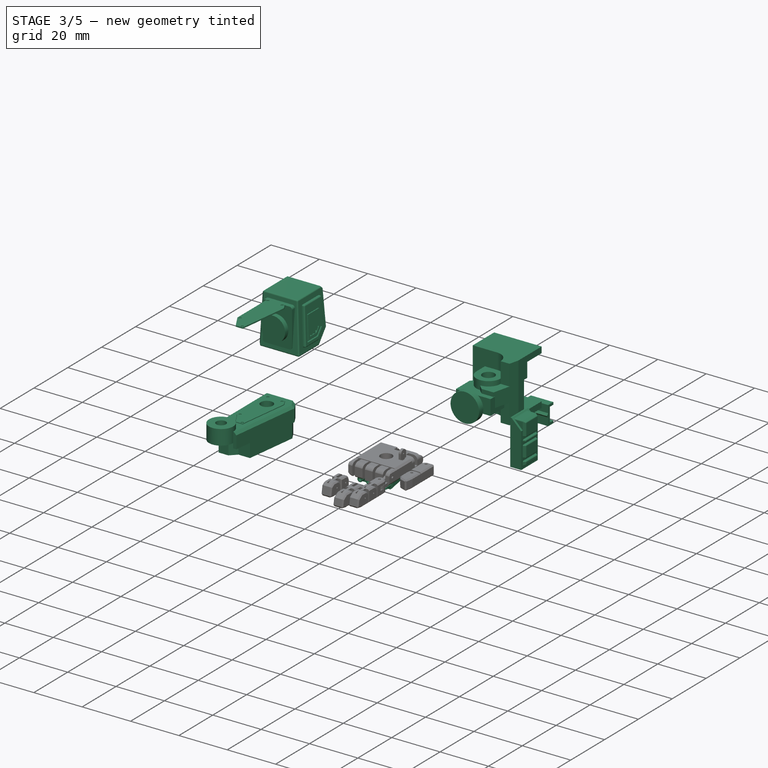
[diagram: stage 3 of 5 — iso view after this stage's code; geometry added in this stage tinted green]
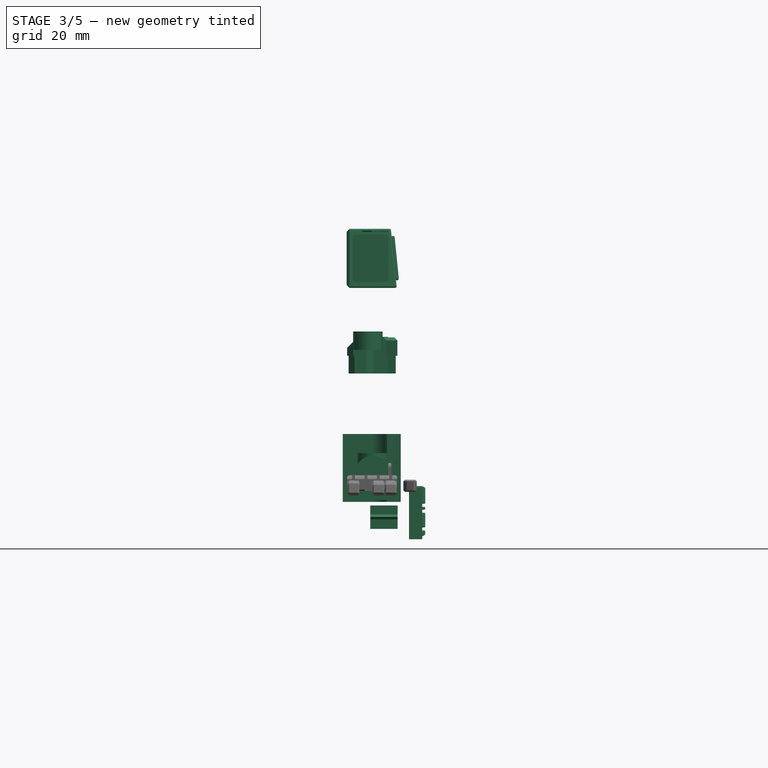
[diagram: stage 3 of 5 — front view after this stage's code; geometry added in this stage tinted green]
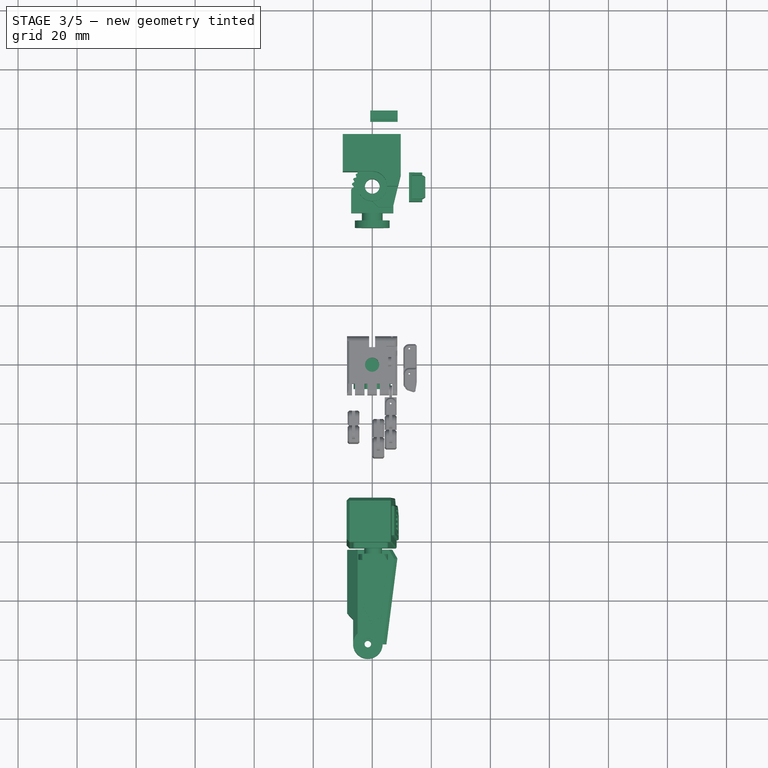
[diagram: stage 3 of 5 — top view after this stage's code; geometry added in this stage tinted green]
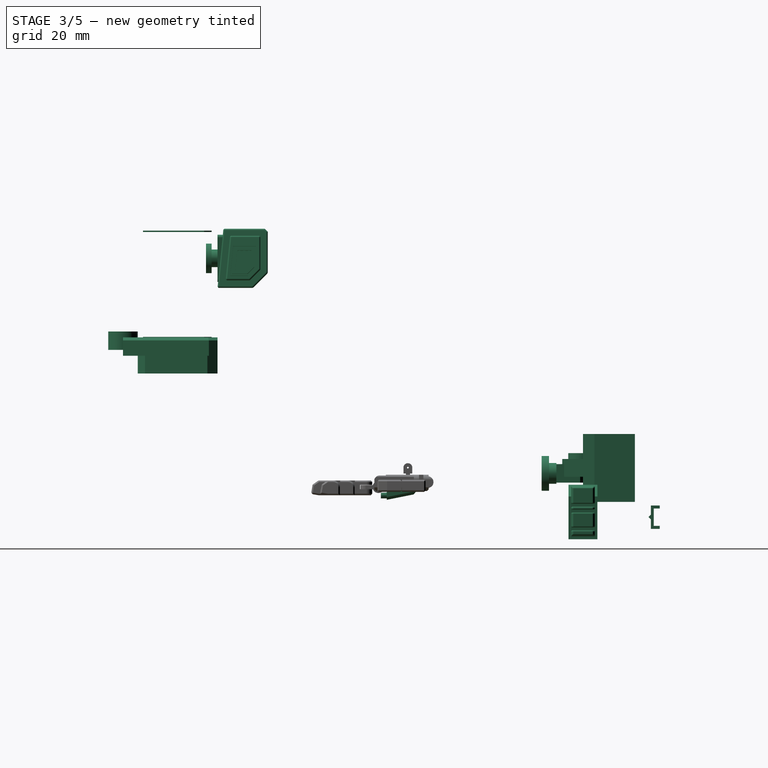
[diagram: stage 3 of 5 — right view after this stage's code; geometry added in this stage tinted green]
FEATURE [PartDesign::SubShapeBinder] Binder
  BindCopyOnChange = 0
  BindMode = 2
  ClaimChildren = false
  Context = -> Part [Part001.Body079.Binder.]
  Fuse = false
  MakeFace = true
  OffsetFill = false
  OffsetIntersection = false
  OffsetJoinType = 0
  OffsetOpenResult = false
  PartialLoad = false
  Refine = true
  Relative = true
  _Version = 2
FEATURE [Sketcher::SketchObject] Sketch973
  ArcFitTolerance = 1e-06
  AttachmentSupport = -> [Binder]
  ExternalGeometry = -> [Binder]
  FullyConstrained = true
  MakeInternals = false
  MapMode = 5
  Placement = pos=(0,0,-2.31) rot=(1,0,0;3.14159rad)
  sketch-geometry (12):
    g0: LineSegment StartX=-7.85 StartY=70.65 StartZ=0 EndX=-7.85 EndY=52.3 EndZ=0
    g1: LineSegment StartX=7.75 StartY=52.3 StartZ=0 EndX=7.75 EndY=70.65 EndZ=0
    g2: LineSegment StartX=7.75 StartY=70.65 StartZ=0 EndX=-7.85 EndY=70.65 EndZ=0
    g3: LineSegment StartX=7.75 StartY=52.3 StartZ=0 EndX=1 EndY=52.3 EndZ=0
    g4: LineSegment StartX=1 StartY=52.3 StartZ=0 EndX=1 EndY=54.35 EndZ=0
    g5: LineSegment StartX=1 StartY=54.35 StartZ=0 EndX=-1.1 EndY=54.35 EndZ=0
    g6: LineSegment StartX=-1.1 StartY=54.35 StartZ=0 EndX=-1.1 EndY=52.3 EndZ=0
    g7: LineSegment StartX=-1.1 StartY=52.3 StartZ=0 EndX=-7.85 EndY=52.3 EndZ=0
    g8: LineSegment StartX=-3.1 StartY=63.35 StartZ=0 EndX=-3.1 EndY=57.25 EndZ=0
    g9: LineSegment StartX=-3.1 StartY=57.25 StartZ=0 EndX=3 EndY=57.25 EndZ=0
    g10: LineSegment StartX=3 StartY=57.25 StartZ=0 EndX=3 EndY=63.35 EndZ=0
    g11: LineSegment StartX=3 StartY=63.35 StartZ=0 EndX=-3.1 EndY=63.35 EndZ=0
  constraints (32):
    c: Coincident(g1,g2)
    c: Coincident(g2,g0)
    c: Vertical(g0)
    c: Vertical(g1)
    c: Horizontal(g2)
    c: Coincident(g0,g-4)
    c: Coincident(g3,g1)
    c: Coincident(g3,g-6)
    c: Coincident(g4,g3)
    c: Coincident(g4,g-7)
    c: Coincident(g5,g4)
    c: Coincident(g5,g-8)
    c: Coincident(g6,g5)
    c: Coincident(g6,g-9)
    c: Coincident(g7,g6)
    c: Coincident(g7,g0)
    c: Horizontal(g7)
    c: Coincident(g1,g-6)
    c: Coincident(g8,g9)
    c: Coincident(g9,g10)
    c: Coincident(g10,g11)
    c: Coincident(g11,g8)
    c: Vertical(g8)
    c: Vertical(g10)
    c: Horizontal(g9)
    c: Horizontal(g11)
    c: DistanceX(g-10,g-10) = 6
    c: DistanceX(g11,g11) = 6.1
    c: DistanceY(g-13,g-13) = 6
    c: DistanceY(g8,g8) = 6.1
    c: DistanceY(g-13,g8) = 0.05
    c: DistanceX(g-12,g10) = 0.05
FEATURE [PartDesign::Pad] Pad613
  Direction = (0,0,-1)
  Length = 0.5
  Length2 = 10
  Profile = -> Sketch973
  ReferenceAxis = -> Sketch973 [N_Axis]
  Refine = true
  Suppressed = false
  Type = 0
FEATURE [Sketcher::SketchObject] Sketch974
  ArcFitTolerance = 1e-06
  AttachmentSupport = -> [Pad613]
  ExternalGeometry = -> [Pad613]
  FullyConstrained = true
  MakeInternals = false
  MapMode = 5
  Placement = pos=(0,0,-2.81) rot=(1,0,0;3.14159rad)
  sketch-geometry (4):
    g0: LineSegment StartX=-7.05 StartY=66.475 StartZ=0 EndX=-7.05 EndY=56.475 EndZ=0
    g1: LineSegment StartX=-7.05 StartY=56.475 StartZ=0 EndX=6.95 EndY=56.475 EndZ=0
    g2: LineSegment StartX=6.95 StartY=56.475 StartZ=0 EndX=6.95 EndY=66.475 EndZ=0
    g3: LineSegment StartX=6.95 StartY=66.475 StartZ=0 EndX=-7.05 EndY=66.475 EndZ=0
  constraints (14):
    c: Coincident(g0,g1)
    c: Coincident(g1,g2)
    c: Coincident(g2,g3)
    c: Coincident(g3,g0)
    c: Vertical(g0)
    c: Vertical(g2)
    c: Horizontal(g1)
    c: Horizontal(g3)
    c: DistanceX(g3,g3) = 14
    c: DistanceX(g-3,g-3) = 15.6
    c: DistanceX(g-3,g0) = 0.8
    c: DistanceY(g0,g0) = 10
    c: DistanceY(g-4,g-4) = 18.35
    c: DistanceY(g0,g-4) = 4.175
FEATURE [PartDesign::Pad] Pad614
  BaseFeature = -> Pad613
  Direction = (0,0,-1)
  Length = 3
  Length2 = 10
  Profile = -> Sketch974
  ReferenceAxis = -> Sketch974 [N_Axis]
  Refine = true
  Suppressed = false
  Type = 0
FEATURE [Sketcher::SketchObject] Sketch975
  ArcFitTolerance = 1e-06
  AttachmentSupport = -> [Pad614]
  ExternalGeometry = -> [Pad614]
  FullyConstrained = true
  MakeInternals = false
  MapMode = 5
  Placement = pos=(6.95,0,0) rot=(0.57735,0.57735,0.57735;2.0944rad)
  sketch-geometry (3):
    g0: LineSegment StartX=-56.475 StartY=-3.81 StartZ=0 EndX=-66.475 EndY=-5.81 EndZ=0
    g1: LineSegment StartX=-66.475 StartY=-5.81 StartZ=0 EndX=-56.475 EndY=-5.81 EndZ=0
    g2: LineSegment StartX=-56.475 StartY=-5.81 StartZ=0 EndX=-56.475 EndY=-3.81 EndZ=0
  constraints (7):
    c: Coincident(g0,g-5)
    c: Coincident(g1,g0)
    c: Coincident(g1,g-4)
    c: Coincident(g2,g1)
    c: DistanceY(g0,g-3) = 1
    c: PointOnObject(g0,g-3)
    c: Coincident(g2,g0)
FEATURE [PartDesign::Pocket] Pocket521
  BaseFeature = -> Pad614
  Direction = (-1,0,0)
  Length = 14
  Length2 = 5
  Profile = -> Sketch975
  ReferenceAxis = -> Sketch975 [N_Axis]
  Refine = true
  Suppressed = false
  Type = 0
FEATURE [Sketcher::SketchObject] Sketch976
  ArcFitTolerance = 1e-06
  AttachmentSupport = -> [Pocket521]
  ExternalGeometry = -> [Pocket521]
  FullyConstrained = true
  MakeInternals = false
  MapMode = 5
  Placement = pos=(0,-66.475,0) rot=(1,0,0;1.5708rad)
  sketch-geometry (4):
    g0: Circle CenterX=-5.3 CenterY=-4.31 CenterZ=0 NormalX=0 NormalY=0 NormalZ=1 AngleXU=0 Radius=1
    g1: Circle CenterX=-1.8 CenterY=-4.31 CenterZ=0 NormalX=0 NormalY=0 NormalZ=1 AngleXU=0 Radius=1
    g2: Circle CenterX=1.7 CenterY=-4.31 CenterZ=0 NormalX=0 NormalY=0 NormalZ=1 AngleXU=0 Radius=1
    g3: Circle CenterX=5.2 CenterY=-4.31 CenterZ=0 NormalX=0 NormalY=0 NormalZ=1 AngleXU=0 Radius=1
  constraints (14):
    c: DistanceX(g-4,g-4) = 14
    c: Radius(g3) = 1
    c: Radius(g2) = 1
    c: Radius(g1) = 1
    c: Radius(g0) = 1
    c: DistanceY(g-5,g-5) = 3
    c: DistanceY(g0,g-5) = 1.5
    c: DistanceY(g0,g1) = 0
    c: DistanceY(g1,g2) = 0
    c: DistanceY(g2,g3) = 0
    c: DistanceX(g3,g-4) = 1.75
    c: DistanceX(g2,g3) = 3.5
    c: DistanceX(g-5,g0) = 1.75
    c: DistanceX(g0,g1) = 3.5
FEATURE [PartDesign::Pad] Pad615
  BaseFeature = -> Pocket521
  Direction = (0,-1,2e-16)
  Length = 2
  Length2 = 10
  Profile = -> Sketch976
  ReferenceAxis = -> Sketch976 [N_Axis]
  Refine = true
  Suppressed = false
  Type = 0
FEATURE [PartDesign::Chamfer] Chamfer058
  Angle = 45
  Base = -> Pad615 [Edge10,Edge21,Edge23,Edge7,Edge4]
  BaseFeature = -> Pad615
  ChamferType = 0
  FlipDirection = false
  Refine = true
  Size = 0.49
  Size2 = 1
  SupportTransform = false
  Suppressed = false
  UseAllEdges = false
FEATURE [Sketcher::SketchObject] Sketch977
  ArcFitTolerance = 1e-06
  AttachmentSupport = -> [Chamfer058]
  ExternalGeometry = -> [Chamfer058]
  FullyConstrained = true
  MakeInternals = false
  MapMode = 5
  Placement = pos=(0,-68.475,0) rot=(1,0,0;1.5708rad)
  sketch-geometry (4):
    g0: Circle CenterX=-5.3 CenterY=-4.31 CenterZ=0 NormalX=0 NormalY=0 NormalZ=1 AngleXU=0 Radius=0.6
    g1: Circle CenterX=-1.8 CenterY=-4.31 CenterZ=0 NormalX=0 NormalY=0 NormalZ=1 AngleXU=0 Radius=0.6
    g2: Circle CenterX=1.7 CenterY=-4.31 CenterZ=0 NormalX=0 NormalY=0 NormalZ=1 AngleXU=0 Radius=0.6
    g3: Circle CenterX=5.2 CenterY=-4.31 CenterZ=0 NormalX=0 NormalY=0 NormalZ=1 AngleXU=0 Radius=0.6
  constraints (8):
    c: Coincident(g0,g-3)
    c: Coincident(g2,g-5)
    c: Coincident(g3,g-6)
    c: Radius(g0) = 0.6
    c: Radius(g1) = 0.6
    c: Radius(g2) = 0.6
    c: Radius(g3) = 0.6
    c: Coincident(g1,g-4)
FEATURE [PartDesign::Pocket] Pocket522
  BaseFeature = -> Chamfer058
  Direction = (0,1,-2e-16)
  Length = 1
  Length2 = 5
  Profile = -> Sketch977
  ReferenceAxis = -> Sketch977 [N_Axis]
  Refine = true
  Suppressed = false
  Type = 0
FEATURE [PartDesign::Chamfer] Chamfer059
  Angle = 45
  Base = -> Pocket522 [Edge63,Edge61,Edge59]
  BaseFeature = -> Pocket522
  ChamferType = 0
  FlipDirection = false
  Refine = true
  Size = 0.9
  Size2 = 1
  SupportTransform = false
  Suppressed = false
  UseAllEdges = false
FEATURE [PartDesign::Pad] Pad629
  BaseFeature = -> Pad628
  Direction = (-1,0,0)
  Length = 0.05
  Length2 = 10
  Profile = -> Pad628 [Face37]
  Refine = true
  Suppressed = false
  Type = 0
FEATURE [PartDesign::Pad] Pad630
  BaseFeature = -> Pad629
  Direction = (-1,0,0)
  Length = 0.05
  Length2 = 10
  Profile = -> Pad629 [Face39]
  Refine = true
  Suppressed = false
  Type = 0
FEATURE [PartDesign::Pad] Pad631
  BaseFeature = -> Pad630
  Direction = (1,0,0)
  Length = 0.05
  Length2 = 10
  Profile = -> Pad630 [Face40]
  Refine = true
  Suppressed = false
  Type = 0
FEATURE [Sketcher::SketchObject] Sketch315
  ArcFitTolerance = 1e-06
  AttachmentSupport = -> [XY_Plane019]
  FullyConstrained = true
  MakeInternals = false
  MapMode = 5
  sketch-geometry (2):
    g0: Circle CenterX=0 CenterY=0 CenterZ=0 NormalX=0 NormalY=0 NormalZ=1 AngleXU=0 Radius=5
    g1: Circle CenterX=0 CenterY=0 CenterZ=0 NormalX=0 NormalY=0 NormalZ=1 AngleXU=0 Radius=2.5
  constraints (4):
    c: Coincident(g0,g-1)
    c: Diameter(g0) = 10
    c: Coincident(g1,g0)
    c: Diameter(g1) = 5
FEATURE [PartDesign::Pad] Pad135
  Direction = (0,0,1)
  Length = 10
  Length2 = 10
  Profile = -> Sketch315
  ReferenceAxis = -> Sketch315 [N_Axis]
  Refine = true
  Suppressed = false
  Type = 0
FEATURE [Sketcher::SketchObject] Sketch316
  ArcFitTolerance = 1e-06
  AttachmentSupport = -> [Pad135]
  ExternalGeometry = -> [Pad135]
  FullyConstrained = false
  MakeInternals = false
  MapMode = 5
  Placement = pos=(0,0,0) rot=(1,0,0;3.14159rad)
  sketch-geometry (3):
    g0: LineSegment StartX=-5 StartY=6e-16 StartZ=0 EndX=-5 EndY=-5 EndZ=0
    g1: LineSegment StartX=-9e-16 StartY=-5 StartZ=0 EndX=-5 EndY=-5 EndZ=0
    g2: ArcOfCircle CenterX=0 CenterY=0 CenterZ=0 NormalX=0 NormalY=0 NormalZ=1 AngleXU=0 Radius=5 StartAngle=3.14159 EndAngle=4.71239
  constraints (9):
    c: PointOnObject(g0,g-3)
    c: Vertical(g0)
    c: PointOnObject(g1,g-3)
    c: Coincident(g1,g0)
    c: Horizontal(g1)
    c: PointOnObject(g1,g-2)
    c: PointOnObject(g0,g-1)
    c: Coincident(g2,g0)
    c: Coincident(g2,g1)
FEATURE [PartDesign::Pad] Pad136
  BaseFeature = -> Pad135
  Direction = (0,0,-1)
  Length = 10
  Length2 = 10
  Profile = -> Sketch316
  ReferenceAxis = -> Sketch316 [N_Axis]
  Refine = true
  Reversed = true
  Suppressed = false
  Type = 0
FEATURE [Sketcher::SketchObject] Sketch317
  ArcFitTolerance = 1e-06
  AttachmentOffset = pos=(0,0,-2) rot=(0,0,1;0rad)
  AttachmentSupport = -> [Pad136]
  ExternalGeometry = -> [Pad136]
  FullyConstrained = true
  MakeInternals = false
  MapMode = 5
  Placement = pos=(0,0,2) rot=(1,0,0;3.14159rad)
  sketch-geometry (5):
    g0: LineSegment StartX=5 StartY=7.9024e-12 StartZ=0 EndX=8.7 EndY=0 EndZ=0
    g1: LineSegment StartX=8.7 StartY=0 StartZ=0 EndX=7 EndY=7 EndZ=0
    g2: LineSegment StartX=7 StartY=7 StartZ=0 EndX=2 EndY=7 EndZ=0
    g3: LineSegment StartX=2 StartY=7 StartZ=0 EndX=7.9008e-12 EndY=5 EndZ=0
    g4: ArcOfCircle CenterX=6.28519e-06 CenterY=6.28519e-06 CenterZ=0 NormalX=0 NormalY=0 NormalZ=1 AngleXU=0 Radius=4.99999 StartAngle=6.28318 EndAngle=7.85398
  constraints (15):
    c: Coincident(g0,g-3)
    c: PointOnObject(g0,g-1)
    c: Coincident(g1,g0)
    c: Coincident(g2,g1)
    c: Horizontal(g2)
    c: Coincident(g3,g2)
    c: PointOnObject(g3,g-3)
    c: Coincident(g4,g3)
    c: Coincident(g4,g0)
    c: DistanceX(g2,g2) = 5
    c: DistanceY(g3,g2) = 2
    c: Angle(g3,g2) = 2.35619
    c: DistanceX(g0,g0) = 3.7
    c: Tangent(g4,g-3)
    c: PointOnObject(g3,g-2)
FEATURE [PartDesign::Pad] Pad137
  BaseFeature = -> Pad136
  Direction = (0,0,-1)
  Length = 6
  Length2 = 10
  Profile = -> Sketch317
  ReferenceAxis = -> Sketch317 [N_Axis]
  Refine = true
  Reversed = true
  Suppressed = false
  Type = 0
FEATURE [Sketcher::SketchObject] Sketch318
  ArcFitTolerance = 1e-06
  AttachmentOffset = pos=(0,0,6.5) rot=(0,0,1;0rad)
  AttachmentSupport = -> [Pad137]
  ExternalGeometry = -> [Pad137]
  FullyConstrained = true
  MakeInternals = false
  MapMode = 5
  Placement = pos=(0,0,-6.5) rot=(1,0,0;3.14159rad)
  sketch-geometry (8):
    g0: LineSegment StartX=8.7 StartY=0 StartZ=0 EndX=9.64399 EndY=-3.88701 EndZ=0
    g1: LineSegment StartX=9.64399 StartY=-3.88701 StartZ=0 EndX=9.64399 EndY=-9.1 EndZ=0
    g2: LineSegment StartX=9.64399 StartY=-9.1 StartZ=0 EndX=-10 EndY=-9.1 EndZ=0
    g3: LineSegment StartX=-10 StartY=-9.1 StartZ=0 EndX=-10 EndY=-5 EndZ=0
    g4: ArcOfCircle CenterX=6.0459e-06 CenterY=-6.04591e-06 CenterZ=0 NormalX=0 NormalY=0 NormalZ=1 AngleXU=0 Radius=4.99999 StartAngle=4.71239 EndAngle=6.28319
    g5: LineSegment StartX=5 StartY=-7.3077e-12 StartZ=0 EndX=8.7 EndY=0 EndZ=0
    g6: LineSegment StartX=7.311e-12 StartY=-5 StartZ=0 EndX=-5 EndY=-5 EndZ=0
    g7: LineSegment StartX=-5 StartY=-5 StartZ=0 EndX=-10 EndY=-5 EndZ=0
  constraints (21):
    c: Coincident(g0,g-6)
    c: Coincident(g1,g0)
    c: Vertical(g1)
    c: Coincident(g2,g1)
    c: Horizontal(g2)
    c: Coincident(g3,g2)
    c: Vertical(g3)
    c: Coincident(g4,g-5)
    c: Coincident(g5,g4)
    c: Coincident(g5,g0)
    c: Angle(g0,g-6) = 3.14159
    c: DistanceY(g3,g3) = 4.1
    c: Tangent(g4,g-3)
    c: Coincident(g6,g4)
    c: Coincident(g6,g-4)
    c: Coincident(g7,g6)
    c: Coincident(g7,g3)
    c: Horizontal(g7)
    c: Coincident(g4,g-4)
    c: DistanceX(g7,g7) = 5
    c: Distance(g0) = 4
FEATURE [PartDesign::Pad] Pad138
  BaseFeature = -> Pad137
  Direction = (0,0,-1)
  Length = 23
  Length2 = 10
  Profile = -> Sketch318
  ReferenceAxis = -> Sketch318 [N_Axis]
  Refine = true
  Reversed = true
  Suppressed = false
  Type = 0
FEATURE [Sketcher::SketchObject] Sketch319
  ArcFitTolerance = 1e-06
  AttachmentSupport = -> [Pad138]
  ExternalGeometry = -> [Pad138]
  FullyConstrained = true
  MakeInternals = false
  MapMode = 5
  Placement = pos=(0,9.1,0) rot=(0,0.707107,0.707107;3.14159rad)
  sketch-geometry (8):
    g0: LineSegment StartX=10 StartY=16.5 StartZ=0 EndX=-9.64399 EndY=16.5 EndZ=0
    g1: LineSegment StartX=8 StartY=-4 StartZ=0 EndX=-9.64399 EndY=-4 EndZ=0
    g2: LineSegment StartX=10 StartY=-6.5 StartZ=0 EndX=10 EndY=16.5 EndZ=0
    g3: LineSegment StartX=8 StartY=-4 StartZ=0 EndX=8 EndY=14 EndZ=0
    g4: LineSegment StartX=8 StartY=14 StartZ=0 EndX=-9.64399 EndY=14 EndZ=0
    g5: LineSegment StartX=-9.64399 StartY=16.5 StartZ=0 EndX=-9.64399 EndY=14 EndZ=0
    g6: LineSegment StartX=-9.64399 StartY=-4 StartZ=0 EndX=-9.64399 EndY=-6.5 EndZ=0
    g7: LineSegment StartX=10 StartY=-6.5 StartZ=0 EndX=-9.64399 EndY=-6.5 EndZ=0
  constraints (20):
    c: Coincident(g0,g-4)
    c: Coincident(g0,g-5)
    c: Horizontal(g1)
    c: DistanceY(g-6,g1) = 2.5
    c: Coincident(g2,g-6)
    c: Coincident(g2,g0)
    c: Coincident(g3,g1)
    c: Vertical(g3)
    c: Coincident(g4,g3)
    c: PointOnObject(g4,g-5)
    c: Horizontal(g4)
    c: PointOnObject(g1,g-5)
    c: DistanceX(g3,g0) = 2
    c: Coincident(g5,g0)
    c: Coincident(g5,g4)
    c: Coincident(g6,g1)
    c: Coincident(g6,g-6)
    c: DistanceY(g5,g5) = 2.5
    c: Coincident(g7,g2)
    c: Coincident(g7,g6)
FEATURE [PartDesign::Pad] Pad139
  BaseFeature = -> Pad138
  Direction = (0,1,-2e-16)
  Length = 8.5
  Length2 = 10
  Profile = -> Sketch319
  ReferenceAxis = -> Sketch319 [N_Axis]
  Refine = true
  Suppressed = false
  Type = 0
FEATURE [Sketcher::SketchObject] Sketch320
  ArcFitTolerance = 1e-06
  AttachmentSupport = -> [Pad139]
  ExternalGeometry = -> [Pad139]
  FullyConstrained = true
  MakeInternals = false
  MapMode = 5
  Placement = pos=(-8,0,0) rot=(0.57735,0.57735,0.57735;2.0944rad)
  sketch-geometry (8):
    g0: LineSegment StartX=16.1 StartY=11.8 StartZ=0 EndX=12.6 EndY=11.8 EndZ=0
    g1: LineSegment StartX=12.6 StartY=11.8 StartZ=0 EndX=12.6 EndY=8.75 EndZ=0
    g2: LineSegment StartX=12.6 StartY=8.75 StartZ=0 EndX=16.1 EndY=8.75 EndZ=0
    g3: LineSegment StartX=16.1 StartY=8.75 StartZ=0 EndX=16.1 EndY=11.8 EndZ=0
    g4: LineSegment StartX=16.1 StartY=1.25 StartZ=0 EndX=12.6 EndY=1.25 EndZ=0
    g5: LineSegment StartX=12.6 StartY=1.25 StartZ=0 EndX=12.6 EndY=-1.8 EndZ=0
    g6: LineSegment StartX=12.6 StartY=-1.8 StartZ=0 EndX=16.1 EndY=-1.8 EndZ=0
    g7: LineSegment StartX=16.1 StartY=-1.8 StartZ=0 EndX=16.1 EndY=1.25 EndZ=0
  constraints (24):
    c: Coincident(g0,g1)
    c: Coincident(g1,g2)
    c: Coincident(g2,g3)
    c: Coincident(g3,g0)
    c: Horizontal(g0)
    c: Horizontal(g2)
    c: Vertical(g1)
    c: Vertical(g3)
    c: Coincident(g4,g5)
    c: Coincident(g5,g6)
    c: Coincident(g6,g7)
    c: Coincident(g7,g4)
    c: Horizontal(g4)
    c: Horizontal(g6)
    c: Vertical(g5)
    c: Vertical(g7)
    c: DistanceX(g-4,g0) = 3.5
    c: DistanceX(g-6,g5) = 3.5
    c: DistanceX(g4,g4) = 3.5
    c: DistanceX(g0,g0) = 3.5
    c: DistanceY(g3,g3) = 3.05
    c: DistanceY(g7,g7) = 3.05
    c: DistanceY(g0,g-5) = 2.2
    c: DistanceY(g-6,g6) = 2.2
FEATURE [PartDesign::Pad] Pad140
  BaseFeature = -> Pad139
  Direction = (1,0,0)
  Length = 3
  Length2 = 10
  Profile = -> Sketch320
  ReferenceAxis = -> Sketch320 [N_Axis]
  Refine = true
  Suppressed = false
  Type = 0
FEATURE [Sketcher::SketchObject] Sketch321
  ArcFitTolerance = 1e-06
  AttachmentSupport = -> [Pad140]
  ExternalGeometry = -> [Pad140]
  FullyConstrained = true
  MakeInternals = false
  MapMode = 5
  Placement = pos=(0,9.1,0) rot=(0,0.707107,0.707107;3.14159rad)
  sketch-geometry (4):
    g0: LineSegment StartX=-9.64399 StartY=-4 StartZ=0 EndX=-2.64399 EndY=-4 EndZ=0
    g1: LineSegment StartX=-2.64399 StartY=-4 StartZ=0 EndX=-2.64399 EndY=8 EndZ=0
    g2: LineSegment StartX=-2.64399 StartY=8 StartZ=0 EndX=-9.64399 EndY=8 EndZ=0
    g3: LineSegment StartX=-9.64399 StartY=8 StartZ=0 EndX=-9.64399 EndY=-4 EndZ=0
  constraints (11):
    c: Coincident(g0,g1)
    c: Coincident(g1,g2)
    c: Coincident(g2,g3)
    c: Coincident(g3,g0)
    c: Horizontal(g0)
    c: Horizontal(g2)
    c: Vertical(g1)
    c: Vertical(g3)
    c: DistanceY(g3,g3) = 12
    c: DistanceX(g2,g2) = 7
    c: Coincident(g0,g-5)
FEATURE [PartDesign::Pocket] Pocket214
  BaseFeature = -> Pad140
  Direction = (0,-1,2e-16)
  Length = 1.9
  Length2 = 5
  Profile = -> Sketch321
  ReferenceAxis = -> Sketch321 [N_Axis]
  Refine = true
  Suppressed = false
  Type = 0
FEATURE [PartDesign::Body] Body081  label="Left_Outer_Leg"
  AllowCompound = false
  Group = -> [Binder058,Sketch368,Pad244,Sketch369,Pad245,Sketch370,Pocket219,Sketch371,Pad246,Sketch372,Pad247,Chamfer003,Sketch373,Pocket220,Pad248,Sketch374,Pocket221,Sketch375,Pocket222,Sketch376,Pad249,Sketch377,Pocket223,Sketch378,Pad250,Sketch379,Pocket224,Sketch380,Pad251,Sketch381,Pocket225]
  Origin = -> Origin020
  Placement = pos=(1.5,-210.1,84) rot=(0,1,0;1.5708rad)
  Tip = -> Pocket225
FEATURE [Sketcher::SketchObject] Sketch382
  ArcFitTolerance = 1e-06
  AttachmentSupport = -> [Binder001]
  ExternalGeometry = -> [Binder001]
  FullyConstrained = true
  MakeInternals = false
  MapMode = 5
  Placement = pos=(52.9,0,0) rot=(0.57735,0.57735,0.57735;2.0944rad)
  sketch-geometry (9):
    g0: LineSegment StartX=59.8701 StartY=-1.71629 StartZ=0 EndX=65.3845 EndY=-4.9 EndZ=0
    g1: LineSegment StartX=65.3845 StartY=-4.9 StartZ=0 EndX=83.1 EndY=-4.9 EndZ=0
    g2: LineSegment StartX=83.1 StartY=-4.9 StartZ=0 EndX=83.1 EndY=2.32101 EndZ=0
    g3: LineSegment StartX=83.1 StartY=2.32101 StartZ=0 EndX=80.5811 EndY=3.77529 EndZ=0
    g4: LineSegment StartX=80.5811 StartY=3.77529 StartZ=0 EndX=59.8701 EndY=1.1379 EndZ=0
    g5: LineSegment StartX=59.8701 StartY=1.1379 StartZ=0 EndX=59.8701 EndY=-1.71629 EndZ=0
    g6: LineSegment [constr] StartX=63.6757 StartY=-3.9134 StartZ=0 EndX=63.6257 EndY=-4 EndZ=0
    g7: LineSegment [constr] StartX=81.851 StartY=3.04214 StartZ=0 EndX=81.901 EndY=3.12874 EndZ=0
    g8: LineSegment [constr] StartX=77.626 StartY=3.49978 StartZ=0 EndX=77.6386 EndY=3.40058 EndZ=0
  constraints (29):
    c: Coincident(g1,g0)
    c: Horizontal(g1)
    c: Coincident(g2,g1)
    c: Vertical(g2)
    c: Coincident(g3,g2)
    c: Coincident(g4,g3)
    c: Coincident(g5,g4)
    c: Coincident(g5,g0)
    c: Vertical(g5)
    c: DistanceY(g-7,g0) = 0.1
    c: Parallel(g0,g-7)
    c: Parallel(g4,g-3)
    c: Parallel(g3,g-4)
    c: DistanceX(g2,g-5) = 0.1
    c: DistanceX(g-8,g4) = 0.1
    c: PointOnObject(g6,g0)
    c: PointOnObject(g6,g-7)
    c: Angle(g0,g6) = 1.5708
    c: Distance(g6) = 0.1
    c: Distance(g6,g-7) = 2
    c: PointOnObject(g7,g3)
    c: Symmetric(g-4,g-4,g7)
    c: Angle(g3,g7) = 1.5708
    c: Distance(g7) = 0.1
    c: PointOnObject(g8,g-3)
    c: PointOnObject(g8,g4)
    c: Angle(g-3,g8) = 1.5708
    c: Distance(g-4,g8) = 3
    c: Distance(g8) = 0.1
FEATURE [PartDesign::Pad] Pad252
  Direction = (1,0,0)
  Length = 0.5
  Length2 = 10
  Profile = -> Sketch382
  ReferenceAxis = -> Sketch382 [N_Axis]
  Refine = true
  Suppressed = false
  Type = 0
FEATURE [Sketcher::SketchObject] Sketch383
  ArcFitTolerance = 1e-06
  AttachmentSupport = -> [Pad252]
  ExternalGeometry = -> [Pad252]
  FullyConstrained = true
  MakeInternals = false
  MapMode = 5
  Placement = pos=(53.4,0,0) rot=(0.57735,0.57735,0.57735;2.0944rad)
  sketch-geometry (8):
    g0: Circle CenterX=82.234 CenterY=1.82101 CenterZ=0 NormalX=0 NormalY=0 NormalZ=1 AngleXU=0 Radius=0.5
    g1: Circle CenterX=82.3929 CenterY=-4.19289 CenterZ=0 NormalX=0 NormalY=0 NormalZ=1 AngleXU=0 Radius=0.5
    g2: Circle CenterX=60.6221 CenterY=0.478649 CenterZ=0 NormalX=0 NormalY=0 NormalZ=1 AngleXU=0 Radius=0.5
    g3: Circle CenterX=65.6433 CenterY=-3.93407 CenterZ=0 NormalX=0 NormalY=0 NormalZ=1 AngleXU=0 Radius=0.5
    g4: LineSegment [constr] StartX=83.1 StartY=-4.9 StartZ=0 EndX=82.3929 EndY=-4.19289 EndZ=0
    g5: LineSegment [constr] StartX=65.3845 StartY=-4.9 StartZ=0 EndX=65.6433 EndY=-3.93407 EndZ=0
    g6: LineSegment [constr] StartX=59.8701 StartY=1.1379 StartZ=0 EndX=60.6221 EndY=0.478649 EndZ=0
    g7: LineSegment [constr] StartX=83.1 StartY=2.32101 StartZ=0 EndX=82.234 EndY=1.82101 EndZ=0
  constraints (23):
    c: Radius(g3) = 0.5
    c: Radius(g2) = 0.5
    c: Radius(g0) = 0.5
    c: Radius(g1) = 0.5
    c: Coincident(g4,g-3)
    c: Coincident(g4,g1)
    c: Distance(g4) = 1
    c: Angle(g-3,g4) = 0.785398
    c: Coincident(g5,g-4)
    c: Coincident(g5,g3)
    c: Distance(g5) = 1
    c: Angle(g-4,g5) = 1.309
    c: Angle(g-4,g-5) = 2.61799
    c: Coincident(g6,g-6)
    c: Coincident(g6,g2)
    c: Distance(g6) = 1
    c: Angle(g-7,g-6) = 1.69746
    c: Angle(g6,g-6) = 0.846485
    c: Coincident(g7,g-8)
    c: Coincident(g7,g0)
    c: Distance(g7) = 1
    c: Angle(g-8,g-3) = 2.0944
    c: Angle(g-8,g7) = 1.0472
FEATURE [PartDesign::Pocket] Pocket226
  BaseFeature = -> Pad252
  Direction = (-1,0,0)
  Length = 0.3
  Length2 = 5
  Profile = -> Sketch383
  ReferenceAxis = -> Sketch383 [N_Axis]
  Refine = true
  Suppressed = false
  Type = 0
FEATURE [Sketcher::SketchObject] Sketch402
  ArcFitTolerance = 1e-06
  AttachmentSupport = -> [Binder003]
  ExternalGeometry = -> [Binder003]
  FullyConstrained = true
  MakeInternals = false
  MapMode = 5
  Placement = pos=(49,0,0) rot=(0.57735,0.57735,0.57735;2.0944rad)
  sketch-geometry (1):
    g0: Circle CenterX=54.3 CenterY=-3 CenterZ=0 NormalX=0 NormalY=0 NormalZ=1 AngleXU=0 Radius=2.46
  constraints (3):
    c: Radius(g-3) = 2.5
    c: Coincident(g0,g-3)
    c: Radius(g0) = 2.46
FEATURE [PartDesign::Pad] Pad259
  Direction = (1,0,0)
  Length = 12
  Length2 = 10
  Profile = -> Sketch402
  ReferenceAxis = -> Sketch402 [N_Axis]
  Refine = true
  Reversed = true
  Suppressed = false
  Type = 0
FEATURE [Sketcher::SketchObject] Sketch403
  ArcFitTolerance = 1e-06
  AttachmentSupport = -> [Pad259]
  ExternalGeometry = -> [Pad259]
  FullyConstrained = true
  MakeInternals = false
  MapMode = 5
  Placement = pos=(49,0,0) rot=(0.57735,0.57735,0.57735;2.0944rad)
  sketch-geometry (1):
    g0: Circle CenterX=54.3 CenterY=-3 CenterZ=0 NormalX=0 NormalY=0 NormalZ=1 AngleXU=0 Radius=5
  constraints (2):
    c: Coincident(g0,g-3)
    c: Diameter(g0) = 10
FEATURE [PartDesign::Pad] Pad260
  BaseFeature = -> Pad259
  Direction = (1,0,0)
  Length = 6.2
  Length2 = 10
  Profile = -> Sketch403
  ReferenceAxis = -> Sketch403 [N_Axis]
  Refine = true
  Suppressed = false
  Type = 0
FEATURE [Sketcher::SketchObject] Sketch404
  ArcFitTolerance = 1e-06
  AttachmentSupport = -> [Pad260]
  ExternalGeometry = -> [Pad260]
  FullyConstrained = true
  MakeInternals = false
  MapMode = 5
  Placement = pos=(55.2,0,0) rot=(0.57735,0.57735,0.57735;2.0944rad)
  sketch-geometry (1):
    g0: Circle CenterX=54.3 CenterY=-3 CenterZ=0 NormalX=0 NormalY=0 NormalZ=1 AngleXU=0 Radius=2.5
  constraints (2):
    c: Coincident(g0,g-3)
    c: Diameter(g0) = 5
FEATURE [PartDesign::Pocket] Pocket233
  BaseFeature = -> Pad260
  Direction = (-1,0,0)
  Length = 4.5
  Length2 = 5
  Profile = -> Sketch404
  ReferenceAxis = -> Sketch404 [N_Axis]
  Refine = true
  Suppressed = false
  Type = 0
FEATURE [Sketcher::SketchObject] Sketch405
  ArcFitTolerance = 1e-06
  AttachmentOffset = pos=(0,0,-2) rot=(0,0,1;0rad)
  AttachmentSupport = -> [Pocket233]
  ExternalGeometry = -> [Pocket233]
  FullyConstrained = true
  MakeInternals = false
  MapMode = 5
  Placement = pos=(53.2,0,0) rot=(0.57735,0.57735,0.57735;2.0944rad)
  sketch-geometry (8):
    g0: LineSegment StartX=54.3 StartY=2 StartZ=0 EndX=54.3 EndY=3.3 EndZ=0
    g1: LineSegment StartX=54.3 StartY=3.3 StartZ=0 EndX=83.3555 EndY=7 EndZ=0
    g2: LineSegment StartX=83.3555 StartY=7 StartZ=0 EndX=86.3 EndY=5.3 EndZ=0
    g3: LineSegment StartX=86.3 StartY=5.3 StartZ=0 EndX=86.3 EndY=-10 EndZ=0
    g4: LineSegment StartX=86.3 StartY=-10 StartZ=0 EndX=64.7 EndY=-10 EndZ=0
    g5: LineSegment StartX=64.7 StartY=-10 StartZ=0 EndX=62.7 EndY=-8 EndZ=0
    g6: LineSegment StartX=62.7 StartY=-8 StartZ=0 EndX=54.3 EndY=-8 EndZ=0
    g7: ArcOfCircle CenterX=54.3 CenterY=-3 CenterZ=0 NormalX=0 NormalY=0 NormalZ=1 AngleXU=0 Radius=5 StartAngle=4.71239 EndAngle=7.85398
  constraints (25):
    c: PointOnObject(g0,g-3)
    c: Vertical(g0)
    c: Coincident(g1,g0)
    c: Coincident(g2,g1)
    c: Coincident(g3,g2)
    c: Vertical(g3)
    c: Coincident(g4,g3)
    c: Horizontal(g4)
    c: Coincident(g5,g4)
    c: Coincident(g6,g5)
    c: Coincident(g6,g7)
    c: Horizontal(g6)
    c: Coincident(g7,g-3)
    c: Coincident(g0,g7)
    c: DistanceX(g7,g6) = 0
    c: Radius(g-3) = 5
    c: DistanceX(g7,g3) = 32
    c: DistanceY(g3,g1) = 17
    c: DistanceY(g0,g0) = 1.3
    c: DistanceX(g6,g5) = 8.4
    c: DistanceY(g4,g5) = 2
    c: DistanceY(g3,g3) = 15.3
    c: Angle(g2,g4) = 0.523599
    c: Angle(g4,g5) = 2.35619
    c: DistanceX(g7,g0) = 0
FEATURE [PartDesign::Pad] Pad261
  BaseFeature = -> Pocket233
  Direction = (1,0,0)
  Length = 4.2
  Length2 = 10
  Profile = -> Sketch405
  ReferenceAxis = -> Sketch405 [N_Axis]
  Refine = true
  Reversed = true
  Suppressed = false
  Type = 0
FEATURE [Sketcher::SketchObject] Sketch406
  ArcFitTolerance = 1e-06
  AttachmentSupport = -> [Pad261]
  ExternalGeometry = -> [Pad261]
  FullyConstrained = true
  MakeInternals = false
  MapMode = 5
  Placement = pos=(49,0,0) rot=(0.57735,-0.57735,-0.57735;2.0944rad)
  sketch-geometry (12):
    g0: LineSegment StartX=-59.3 StartY=-3 StartZ=0 EndX=-59.3 EndY=-8 EndZ=0
    g1: LineSegment StartX=-59.3 StartY=-8 StartZ=0 EndX=-62.7 EndY=-8 EndZ=0
    g2: LineSegment StartX=-62.7 StartY=-8 StartZ=0 EndX=-64.7 EndY=-10 EndZ=0
    g3: LineSegment StartX=-64.7 StartY=-10 StartZ=0 EndX=-86.3 EndY=-10 EndZ=0
    g4: LineSegment StartX=-86.3 StartY=-10 StartZ=0 EndX=-86.3 EndY=5.3 EndZ=0
    g5: LineSegment StartX=-86.3 StartY=5.3 StartZ=0 EndX=-83.3555 EndY=7 EndZ=0
    g6: LineSegment StartX=-83.3555 StartY=7 StartZ=0 EndX=-54.3 EndY=3.3 EndZ=0
    g7: LineSegment StartX=-54.3 StartY=3.3 StartZ=0 EndX=-54.3 EndY=2 EndZ=0
    g8: LineSegment StartX=-54.3 StartY=2 StartZ=0 EndX=-61.7485 EndY=2.94851 EndZ=0
    g9: LineSegment StartX=-61.7485 StartY=2.94851 StartZ=0 EndX=-61.7485 EndY=-1.05149 EndZ=0
    g10: LineSegment StartX=-59.3 StartY=-3 StartZ=0 EndX=-59.8 EndY=-3 EndZ=0
    g11: LineSegment StartX=-59.8 StartY=-3 StartZ=0 EndX=-61.7485 EndY=-1.05149 EndZ=0
  constraints (29):
    c: PointOnObject(g0,g-3)
    c: Vertical(g0)
    c: Coincident(g1,g0)
    c: Coincident(g1,g-4)
    c: Coincident(g2,g1)
    c: Coincident(g2,g-5)
    c: Coincident(g3,g2)
    c: Coincident(g3,g-6)
    c: Coincident(g4,g3)
    c: Coincident(g4,g-7)
    c: Coincident(g5,g4)
    c: Coincident(g5,g-8)
    c: Coincident(g6,g5)
    c: Coincident(g6,g-8)
    c: Coincident(g7,g6)
    c: Coincident(g7,g-9)
    c: Coincident(g8,g7)
    c: Coincident(g9,g8)
    c: Vertical(g9)
    c: Parallel(g-8,g8)
    c: DistanceX(g0,g-3) = 5
    c: Coincident(g10,g0)
    c: Horizontal(g10)
    c: Coincident(g11,g10)
    c: Coincident(g11,g9)
    c: DistanceX(g10,g10) = 0.5
    c: Angle(g10,g11) = 2.35619
    c: DistanceY(g0,g0) = 5
    c: DistanceY(g9,g9) = 4
FEATURE [PartDesign::Pad] Pad262
  BaseFeature = -> Pad261
  Direction = (-1,0,0)
  Length = 2
  Length2 = 10
  Profile = -> Sketch406
  ReferenceAxis = -> Sketch406 [N_Axis]
  Refine = true
  Suppressed = false
  Type = 0
FEATURE [PartDesign::Chamfer] Chamfer004
  Angle = 45
  Base = -> Pad262 [Edge10,Edge11]
  BaseFeature = -> Pad262
  ChamferType = 0
  FlipDirection = false
  Refine = true
  Size = 1
  Size2 = 1
  SupportTransform = false
  Suppressed = false
  UseAllEdges = false
FEATURE [Sketcher::SketchObject] Sketch407
  ArcFitTolerance = 1e-06
  AttachmentSupport = -> [Chamfer004]
  ExternalGeometry = -> [Chamfer004]
  FullyConstrained = true
  MakeInternals = false
  MapMode = 5
  Placement = pos=(0,86.3,0) rot=(0,0.707107,0.707107;3.14159rad)
  sketch-geometry (3):
    g0: LineSegment StartX=-53.2 StartY=-6.46447 StartZ=0 EndX=-53.2 EndY=-10 EndZ=0
    g1: LineSegment StartX=-53.2 StartY=-10 StartZ=0 EndX=-49.6645 EndY=-10 EndZ=0
    g2: LineSegment StartX=-49.6645 StartY=-10 StartZ=0 EndX=-53.2 EndY=-6.46447 EndZ=0
  constraints (8):
    c: PointOnObject(g0,g-4)
    c: Coincident(g0,g-4)
    c: Coincident(g1,g0)
    c: PointOnObject(g1,g-3)
    c: Coincident(g2,g1)
    c: Coincident(g2,g0)
    c: Angle(g2,g1) = 0.785398
    c: Distance(g2) = 5
FEATURE [PartDesign::Pocket] Pocket234
  BaseFeature = -> Chamfer004
  Direction = (0,-1,2e-16)
  Length = 32
  Length2 = 5
  Profile = -> Sketch407
  ReferenceAxis = -> Sketch407 [N_Axis]
  Refine = true
  Suppressed = false
  Type = 0
FEATURE [PartDesign::Pad] Pad263
  BaseFeature = -> Pocket234
  Direction = (1,0,0)
  Length = 4
  Length2 = 10
  Profile = -> Pocket234 [Face17]
  Refine = true
  Reversed = true
  Suppressed = false
  Type = 0
FEATURE [Sketcher::SketchObject] Sketch408
  ArcFitTolerance = 1e-06
  AttachmentSupport = -> [Pad263]
  ExternalGeometry = -> [Pad263]
  FullyConstrained = true
  MakeInternals = false
  MapMode = 5
  Placement = pos=(37,0,0) rot=(0.57735,-0.57735,-0.57735;2.0944rad)
  sketch-geometry (1):
    g0: Circle CenterX=-54.3 CenterY=-3 CenterZ=0 NormalX=0 NormalY=0 NormalZ=1 AngleXU=0 Radius=0.75
  constraints (2):
    c: Coincident(g0,g-3)
    c: Radius(g0) = 0.75
FEATURE [PartDesign::Pocket] Pocket235
  BaseFeature = -> Pad263
  Direction = (1,0,0)
  Length = 10
  Length2 = 5
  Profile = -> Sketch408
  ReferenceAxis = -> Sketch408 [N_Axis]
  Refine = true
  Suppressed = false
  Type = 0
FEATURE [Sketcher::SketchObject] Sketch409
  ArcFitTolerance = 1e-06
  AttachmentSupport = -> [Pocket235]
  ExternalGeometry = -> [Pocket235]
  FullyConstrained = true
  MakeInternals = false
  MapMode = 5
  Placement = pos=(47,0,0) rot=(0.57735,-0.57735,-0.57735;2.0944rad)
  sketch-geometry (11):
    g0: LineSegment StartX=-62.7 StartY=-6 StartZ=0 EndX=-64.7 EndY=-8 EndZ=0
    g1: LineSegment StartX=-64.7 StartY=-8 StartZ=0 EndX=-84.3 EndY=-8 EndZ=0
    g2: LineSegment StartX=-84.3 StartY=-8 StartZ=0 EndX=-84.3 EndY=3.88356 EndZ=0
    g3: LineSegment StartX=-84.3 StartY=3.88356 StartZ=0 EndX=-82.5679 EndY=4.88356 EndZ=0
    g4: LineSegment StartX=-82.5679 StartY=4.88356 StartZ=0 EndX=-62.7485 EndY=2.3597 EndZ=0
    g5: LineSegment StartX=-62.7485 StartY=2.3597 StartZ=0 EndX=-62.7485 EndY=-2.05149 EndZ=0
    g6: LineSegment StartX=-62.7485 StartY=-2.05149 StartZ=0 EndX=-60.8 EndY=-4 EndZ=0
    g7: LineSegment StartX=-60.8 StartY=-4 StartZ=0 EndX=-60.8 EndY=-6 EndZ=0
    g8: LineSegment StartX=-60.8 StartY=-6 StartZ=0 EndX=-62.7 EndY=-6 EndZ=0
    g9: LineSegment [constr] StartX=-82.5679 StartY=4.88356 StartZ=0 EndX=-82.3153 EndY=6.86754 EndZ=0
    g10: LineSegment [constr] StartX=-61.7485 StartY=-1.05149 StartZ=0 EndX=-62.7485 EndY=-2.05149 EndZ=0
  constraints (32):
    c: Coincident(g1,g0)
    c: Horizontal(g1)
    c: Coincident(g2,g1)
    c: Vertical(g2)
    c: Coincident(g3,g2)
    c: Coincident(g4,g3)
    c: Coincident(g5,g4)
    c: Vertical(g5)
    c: Coincident(g6,g5)
    c: Vertical(g7)
    c: Coincident(g8,g7)
    c: Coincident(g8,g0)
    c: Horizontal(g8)
    c: Coincident(g6,g7)
    c: DistanceY(g-8,g1) = 2
    c: DistanceY(g-10,g0) = 2
    c: DistanceX(g-7,g2) = 2
    c: Parallel(g3,g-6)
    c: Parallel(g0,g-9)
    c: DistanceX(g0,g-10) = 0
    c: Parallel(g-5,g4)
    c: Coincident(g9,g3)
    c: PointOnObject(g9,g-5)
    c: Angle(g9,g-5) = 1.5708
    c: Distance(g9) = 2
    c: DistanceX(g5,g-4) = 1
    c: Parallel(g-4,g6)
    c: DistanceX(g7,g-11) = 1.5
    c: Coincident(g10,g-4)
    c: Coincident(g10,g5)
    c: Angle(g10,g-4) = 1.5708
    c: Distance(g3) = 2
FEATURE [PartDesign::Pocket] Pocket236
  BaseFeature = -> Pocket235
  Direction = (1,0,0)
  Length = 4
  Length2 = 5
  Profile = -> Sketch409
  ReferenceAxis = -> Sketch409 [N_Axis]
  Refine = true
  Suppressed = false
  Type = 0
FEATURE [Sketcher::SketchObject] Sketch410
  ArcFitTolerance = 1e-06
  AttachmentSupport = -> [Pocket236]
  ExternalGeometry = -> [Pocket236]
  FullyConstrained = true
  MakeInternals = false
  MapMode = 5
  Placement = pos=(47,0,0) rot=(0.57735,-0.57735,-0.57735;2.0944rad)
  sketch-geometry (4):
    g0: LineSegment StartX=-86.3 StartY=3.5 StartZ=0 EndX=-86.3 EndY=-6 EndZ=0
    g1: LineSegment StartX=-86.3 StartY=-6 StartZ=0 EndX=-84.3 EndY=-6 EndZ=0
    g2: LineSegment StartX=-84.3 StartY=-6 StartZ=0 EndX=-84.3 EndY=3.5 EndZ=0
    g3: LineSegment StartX=-84.3 StartY=3.5 StartZ=0 EndX=-86.3 EndY=3.5 EndZ=0
  constraints (13):
    c: Coincident(g0,g1)
    c: Coincident(g1,g2)
    c: Coincident(g2,g3)
    c: Coincident(g3,g0)
    c: Vertical(g0)
    c: Vertical(g2)
    c: Horizontal(g1)
    c: Horizontal(g3)
    c: PointOnObject(g0,g-5)
    c: PointOnObject(g1,g-4)
    c: DistanceY(g0,g0) = 9.5
    c: DistanceY(g-5,g1) = 4
    c: DistanceY(g-5,g-6) = 17
FEATURE [PartDesign::Pad] Pad264
  BaseFeature = -> Pocket236
  Direction = (-1,0,0)
  Length = 3
  Length2 = 10
  Profile = -> Sketch410
  ReferenceAxis = -> Sketch410 [N_Axis]
  Refine = true
  Suppressed = false
  Type = 0
FEATURE [Sketcher::SketchObject] Sketch411
  ArcFitTolerance = 1e-06
  AttachmentSupport = -> [Pad264]
  ExternalGeometry = -> [Pad264]
  FullyConstrained = true
  MakeInternals = false
  MapMode = 5
  Placement = pos=(4.32e-14,86.3,2.42e-14) rot=(0,0.707107,0.707107;3.14159rad)
  sketch-geometry (2):
    g0: ArcOfCircle CenterX=-44 CenterY=-1.25 CenterZ=0 NormalX=0 NormalY=0 NormalZ=1 AngleXU=0 Radius=3 StartAngle=1.5708 EndAngle=4.71239
    g1: LineSegment StartX=-44 StartY=1.75 StartZ=0 EndX=-44 EndY=-4.25 EndZ=0
  constraints (7):
    c: PointOnObject(g0,g-3)
    c: PointOnObject(g0,g-3)
    c: Radius(g0) = 3
    c: PointOnObject(g0,g-3)
    c: DistanceY(g0,g-3) = 4.75
    c: Coincident(g1,g0)
    c: Coincident(g1,g0)
FEATURE [PartDesign::Pocket] Pocket237
  BaseFeature = -> Pad264
  Direction = (0,-1,2e-16)
  Length = 5
  Length2 = 5
  Profile = -> Sketch411
  ReferenceAxis = -> Sketch411 [N_Axis]
  Refine = true
  Suppressed = false
  Type = 0
FEATURE [Sketcher::SketchObject] Sketch412
  ArcFitTolerance = 1e-06
  AttachmentSupport = -> [Pocket237]
  ExternalGeometry = -> [Pocket237]
  FullyConstrained = true
  MakeInternals = false
  MapMode = 5
  Placement = pos=(51,0,0) rot=(0.57735,-0.57735,-0.57735;2.0944rad)
  sketch-geometry (1):
    g0: Circle CenterX=-78.8 CenterY=-1.25 CenterZ=0 NormalX=0 NormalY=0 NormalZ=1 AngleXU=0 Radius=2
  constraints (6):
    c: Diameter(g0) = 4
    c: DistanceY(g-3,g-3) = 6
    c: DistanceY(g-3,g0) = 3
    c: DistanceX(g-3,g0) = 5.5
    c: DistanceX(g0,g-7) = 24.5
    c: Radius(g-7) = 2.46
FEATURE [PartDesign::Pad] Pad265
  BaseFeature = -> Pocket237
  Direction = (-1,0,0)
  Length = 11
  Length2 = 10
  Profile = -> Sketch412
  ReferenceAxis = -> Sketch412 [N_Axis]
  Refine = true
  Suppressed = false
  Type = 0
FEATURE [Sketcher::SketchObject] Sketch413
  ArcFitTolerance = 1e-06
  AttachmentSupport = -> [Pad265]
  ExternalGeometry = -> [Pad265]
  FullyConstrained = true
  MakeInternals = false
  MapMode = 5
  Placement = pos=(40,0,0) rot=(0.57735,-0.57735,-0.57735;2.0944rad)
  sketch-geometry (1):
    g0: Circle CenterX=-78.8 CenterY=-1.25 CenterZ=0 NormalX=0 NormalY=0 NormalZ=1 AngleXU=0 Radius=0.75
  constraints (2):
    c: Coincident(g0,g-3)
    c: Radius(g0) = 0.75
FEATURE [PartDesign::Pocket] Pocket238
  BaseFeature = -> Pad265
  Direction = (1,0,0)
  Length = 11
  Length2 = 5
  Profile = -> Sketch413
  ReferenceAxis = -> Sketch413 [N_Axis]
  Refine = true
  Suppressed = false
  Type = 0
FEATURE [Sketcher::SketchObject] Sketch414
  ArcFitTolerance = 1e-06
  AttachmentSupport = -> [Pocket238]
  ExternalGeometry = -> [Pocket238]
  FullyConstrained = true
  MakeInternals = false
  MapMode = 5
  Placement = pos=(51,0,0) rot=(0.57735,-0.57735,-0.57735;2.0944rad)
  sketch-geometry (8):
    g0: LineSegment StartX=-80.5984 StartY=-0.375001 StartZ=0 EndX=-82.2984 EndY=-0.375001 EndZ=0
    g1: LineSegment StartX=-82.2984 StartY=-0.375001 StartZ=0 EndX=-82.2984 EndY=-2.125 EndZ=0
    g2: LineSegment StartX=-82.2984 StartY=-2.125 StartZ=0 EndX=-80.5984 EndY=-2.125 EndZ=0
    g3: ArcOfCircle CenterX=-78.8 CenterY=-1.25 CenterZ=0 NormalX=0 NormalY=0 NormalZ=1 AngleXU=0 Radius=2.00001 StartAngle=2.68878 EndAngle=3.59441
    g4: LineSegment StartX=-77.0016 StartY=-0.375 StartZ=0 EndX=-73.8016 EndY=-0.375 EndZ=0
    g5: LineSegment StartX=-73.8016 StartY=-0.375 StartZ=0 EndX=-73.8016 EndY=-2.125 EndZ=0
    g6: LineSegment StartX=-73.8016 StartY=-2.125 StartZ=0 EndX=-77.0016 EndY=-2.125 EndZ=0
    g7: ArcOfCircle CenterX=-78.8 CenterY=-1.25 CenterZ=0 NormalX=0 NormalY=0 NormalZ=1 AngleXU=0 Radius=1.99999 StartAngle=5.83037 EndAngle=6.736
  constraints (25):
    c: PointOnObject(g0,g-3)
    c: Horizontal(g0)
    c: Coincident(g1,g0)
    c: Vertical(g1)
    c: Coincident(g2,g1)
    c: PointOnObject(g2,g-3)
    c: Horizontal(g2)
    c: Coincident(g3,g0)
    c: Coincident(g3,g2)
    c: PointOnObject(g4,g-3)
    c: Horizontal(g4)
    c: Coincident(g5,g4)
    c: Vertical(g5)
    c: Coincident(g6,g5)
    c: PointOnObject(g6,g-3)
    c: Horizontal(g6)
    c: Coincident(g7,g4)
    c: Coincident(g7,g6)
    c: DistanceY(g1,g1) = 1.75
    c: DistanceY(g5,g5) = 1.75
    c: DistanceY(g5,g3) = 0.875
    c: Coincident(g3,g7)
    c: Tangent(g3,g-3)
    c: DistanceX(g2,g2) = 1.7
    c: DistanceX(g4,g4) = 3.2
FEATURE [PartDesign::Pad] Pad266
  BaseFeature = -> Pocket238
  Direction = (-1,0,0)
  Length = 4
  Length2 = 10
  Profile = -> Sketch414
  ReferenceAxis = -> Sketch414 [N_Axis]
  Refine = true
  Suppressed = false
  Type = 0
FEATURE [Sketcher::SketchObject] Sketch415
  ArcFitTolerance = 1e-06
  AttachmentSupport = -> [Pad266]
  ExternalGeometry = -> [Pad266]
  FullyConstrained = true
  MakeInternals = false
  MapMode = 5
  Placement = pos=(53.2,0,0) rot=(0.57735,0.57735,0.57735;2.0944rad)
  sketch-geometry (7):
    g0: LineSegment StartX=60.9701 StartY=1.22597 StartZ=0 EndX=60.9701 EndY=-1.77403 EndZ=0
    g1: LineSegment StartX=60.9701 StartY=-1.77403 StartZ=0 EndX=66.5577 EndY=-5 EndZ=0
    g2: LineSegment StartX=66.5577 StartY=-5 StartZ=0 EndX=84.4 EndY=-5 EndZ=0
    g3: LineSegment StartX=84.4 StartY=-5 StartZ=0 EndX=84.4 EndY=2.37874 EndZ=0
    g4: LineSegment StartX=84.4 StartY=2.37874 StartZ=0 EndX=81.8019 EndY=3.87874 EndZ=0
    g5: LineSegment StartX=81.8019 StartY=3.87874 StartZ=0 EndX=60.9701 EndY=1.22597 EndZ=0
    g6: LineSegment [constr] StartX=73.4997 StartY=5.74493 StartZ=0 EndX=73.866 EndY=2.86816 EndZ=0
  constraints (22):
    c: Vertical(g0)
    c: Coincident(g1,g0)
    c: Coincident(g2,g1)
    c: Horizontal(g2)
    c: Coincident(g3,g2)
    c: Vertical(g3)
    c: Coincident(g4,g3)
    c: Coincident(g5,g4)
    c: Coincident(g5,g0)
    c: Parallel(g5,g-4)
    c: Parallel(g-3,g4)
    c: Angle(g2,g1) = 2.61799
    c: DistanceX(g3,g-6) = 1.9
    c: DistanceY(g-7,g2) = 5
    c: PointOnObject(g6,g-8)
    c: PointOnObject(g6,g5)
    c: Angle(g-8,g6) = 1.5708
    c: Distance(g6) = 2.9
    c: Distance(g4) = 3
    c: Distance(g5) = 21
    c: DistanceY(g0,g0) = 3
    c: Distance(g6,g4) = 8
FEATURE [PartDesign::Pocket] Pocket239
  BaseFeature = -> Pad266
  Direction = (-1,0,0)
  Length = 0.3
  Length2 = 5
  Profile = -> Sketch415
  ReferenceAxis = -> Sketch415 [N_Axis]
  Refine = true
  Suppressed = false
  Type = 0
FEATURE [Sketcher::SketchObject] Sketch416
  ArcFitTolerance = 1e-06
  AttachmentSupport = -> [Pocket239]
  ExternalGeometry = -> [Pocket239]
  FullyConstrained = true
  MakeInternals = false
  MapMode = 5
  Placement = pos=(44,0,0) rot=(0.57735,-0.57735,-0.57735;2.0944rad)
  sketch-geometry (4):
    g0: LineSegment StartX=-86.3 StartY=3.5 StartZ=0 EndX=-86.3 EndY=-6 EndZ=0
    g1: LineSegment StartX=-86.3 StartY=-6 StartZ=0 EndX=-84.3 EndY=-6 EndZ=0
    g2: LineSegment StartX=-84.3 StartY=-6 StartZ=0 EndX=-84.3 EndY=3.5 EndZ=0
    g3: LineSegment StartX=-84.3 StartY=3.5 StartZ=0 EndX=-86.3 EndY=3.5 EndZ=0
  constraints (10):
    c: Coincident(g0,g1)
    c: Coincident(g1,g2)
    c: Coincident(g2,g3)
    c: Coincident(g3,g0)
    c: Vertical(g0)
    c: Vertical(g2)
    c: Horizontal(g1)
    c: Horizontal(g3)
    c: Coincident(g0,g-3)
    c: Coincident(g1,g-4)
FEATURE [PartDesign::Pocket] Pocket240
  BaseFeature = -> Pocket239
  Direction = (1,0,0)
  Length = 3
  Length2 = 5
  Profile = -> Sketch416
  ReferenceAxis = -> Sketch416 [N_Axis]
  Refine = true
  Suppressed = false
  Type = 0
FEATURE [Sketcher::SketchObject] Sketch417
  ArcFitTolerance = 1e-06
  AttachmentSupport = -> [Pocket240]
  ExternalGeometry = -> [Pocket240]
  FullyConstrained = true
  MakeInternals = false
  MapMode = 5
  Placement = pos=(40,0,0) rot=(0.57735,-0.57735,-0.57735;2.0944rad)
  sketch-geometry (4):
    g0: LineSegment StartX=-82.2984 StartY=0.75 StartZ=0 EndX=-82.2984 EndY=-3.25 EndZ=0
    g1: LineSegment StartX=-82.2984 StartY=-3.25 StartZ=0 EndX=-73.8016 EndY=-3.25 EndZ=0
    g2: LineSegment StartX=-73.8016 StartY=-3.25 StartZ=0 EndX=-73.8016 EndY=0.75 EndZ=0
    g3: LineSegment StartX=-73.8016 StartY=0.75 StartZ=0 EndX=-82.2984 EndY=0.75 EndZ=0
  constraints (12):
    c: Coincident(g0,g1)
    c: Coincident(g1,g2)
    c: Coincident(g2,g3)
    c: Coincident(g3,g0)
    c: Vertical(g0)
    c: Vertical(g2)
    c: Horizontal(g1)
    c: Horizontal(g3)
    c: PointOnObject(g-3,g0)
    c: PointOnObject(g-4,g2)
    c: Tangent(g1,g-5)
    c: Tangent(g3,g-5)
FEATURE [PartDesign::Pocket] Pocket241
  BaseFeature = -> Pocket240
  Direction = (1,0,0)
  Length = 11
  Length2 = 5
  Profile = -> Sketch417
  ReferenceAxis = -> Sketch417 [N_Axis]
  Refine = true
  Suppressed = false
  Type = 0
FEATURE [PartDesign::Pocket] Pocket242
  BaseFeature = -> Pocket241
  Direction = (1,0,0)
  Length = 12
  Length2 = 5
  Profile = -> Pocket241 [Face39]
  Refine = true
  Suppressed = false
  Type = 0
FEATURE [PartDesign::Pocket] Pocket243
  BaseFeature = -> Pocket242
  Direction = (1,0,0)
  Length = 2
  Length2 = 5
  Profile = -> Pocket242 [Face41]
  Refine = true
  Suppressed = false
  Type = 0
FEATURE [Sketcher::SketchObject] Sketch418
  ArcFitTolerance = 1e-06
  AttachmentSupport = -> [Pocket243]
  ExternalGeometry = -> [Pocket243]
  FullyConstrained = true
  MakeInternals = false
  MapMode = 5
  Placement = pos=(47,0,0) rot=(0.57735,-0.57735,-0.57735;2.0944rad)
  sketch-geometry (3):
    g0: LineSegment StartX=-59.8 StartY=-3 StartZ=0 EndX=-59.3 EndY=-3 EndZ=0
    g1: LineSegment StartX=-59.8 StartY=-3 StartZ=0 EndX=-59.3 EndY=-3.5 EndZ=0
    g2: LineSegment StartX=-59.3 StartY=-3 StartZ=0 EndX=-59.3 EndY=-3.5 EndZ=0
  constraints (7):
    c: Coincident(g0,g-3)
    c: Coincident(g0,g-4)
    c: Coincident(g1,g0)
    c: PointOnObject(g1,g-4)
    c: Coincident(g2,g0)
    c: Coincident(g2,g1)
    c: Angle(g1,g-5) = 3.14159
FEATURE [PartDesign::Pocket] Pocket244
  BaseFeature = -> Pocket243
  Direction = (1,0,0)
  Length = 2
  Length2 = 5
  Profile = -> Sketch418
  ReferenceAxis = -> Sketch418 [N_Axis]
  Refine = true
  Suppressed = false
  Type = 0
FEATURE [Sketcher::SketchObject] Sketch419
  ArcFitTolerance = 1e-06
  AttachmentSupport = -> [Pocket244]
  ExternalGeometry = -> [Pocket244]
  FullyConstrained = true
  MakeInternals = false
  MapMode = 5
  Placement = pos=(47,0,0) rot=(0.57735,-0.57735,-0.57735;2.0944rad)
  sketch-geometry (20):
    g0: LineSegment StartX=-60.8 StartY=-6 StartZ=0 EndX=-60.8 EndY=-4 EndZ=0
    g1: LineSegment StartX=-60.8 StartY=-4 StartZ=0 EndX=-62.7485 EndY=-2.05149 EndZ=0
    g2: LineSegment StartX=-62.7485 StartY=-2.05149 StartZ=0 EndX=-62.7485 EndY=2.3597 EndZ=0
    g3: LineSegment StartX=-62.7485 StartY=2.3597 StartZ=0 EndX=-82.5679 EndY=4.88356 EndZ=0
    g4: LineSegment StartX=-82.5679 StartY=4.88356 StartZ=0 EndX=-84.3 EndY=3.88356 EndZ=0
    g5: LineSegment StartX=-84.3 StartY=3.88356 StartZ=0 EndX=-84.3 EndY=-8 EndZ=0
    g6: LineSegment StartX=-84.3 StartY=-8 StartZ=0 EndX=-64.7 EndY=-8 EndZ=0
    g7: LineSegment StartX=-64.7 StartY=-8 StartZ=0 EndX=-62.7 EndY=-6 EndZ=0
    g8: LineSegment StartX=-62.7 StartY=-6 StartZ=0 EndX=-60.8 EndY=-6 EndZ=0
    g9: LineSegment StartX=-59.3 StartY=-7.5 StartZ=0 EndX=-59.3 EndY=-3.5 EndZ=0
    g10: LineSegment StartX=-59.3 StartY=-3.5 StartZ=0 EndX=-61.7485 EndY=-1.05149 EndZ=0
    g11: LineSegment StartX=-61.7485 StartY=-1.05149 StartZ=0 EndX=-61.7485 EndY=3.74447 EndZ=0
    g12: LineSegment StartX=-61.7485 StartY=3.74447 StartZ=0 EndX=-82.8801 EndY=6.43542 EndZ=0
    g13: LineSegment StartX=-82.8801 StartY=6.43542 StartZ=0 EndX=-86.3 EndY=4.46091 EndZ=0
    g14: LineSegment StartX=-59.3 StartY=-7.5 StartZ=0 EndX=-62.2 EndY=-7.5 EndZ=0
    g15: LineSegment StartX=-62.2 StartY=-7.5 StartZ=0 EndX=-64.2 EndY=-9.5 EndZ=0
    g16: LineSegment StartX=-64.2 StartY=-9.5 StartZ=0 EndX=-86.3 EndY=-9.5 EndZ=0
    g17: LineSegment StartX=-86.3 StartY=-9.5 StartZ=0 EndX=-86.3 EndY=4.46091 EndZ=0
    g18: LineSegment [constr] StartX=-74.9441 StartY=5.42484 StartZ=0 EndX=-75.1336 EndY=3.93685 EndZ=0
    g19: LineSegment [constr] StartX=-84.184 StartY=5.6826 StartZ=0 EndX=-83.434 EndY=4.38356 EndZ=0
  constraints (51):
    c: Coincident(g0,g-9)
    c: Coincident(g0,g-10)
    c: Coincident(g1,g0)
    c: Coincident(g1,g-11)
    c: Coincident(g2,g1)
    c: Coincident(g2,g-11)
    c: Coincident(g3,g2)
    c: Coincident(g3,g-4)
    c: Coincident(g4,g3)
    c: Coincident(g4,g-5)
    c: Coincident(g5,g4)
    c: Coincident(g5,g-6)
    c: Coincident(g6,g5)
    c: Coincident(g6,g-7)
    c: Coincident(g7,g6)
    c: Coincident(g7,g-8)
    c: Coincident(g8,g7)
    c: Coincident(g8,g0)
    c: PointOnObject(g9,g-14)
    c: Coincident(g9,g-16)
    c: Coincident(g10,g9)
    c: Coincident(g10,g-13)
    c: Coincident(g11,g10)
    c: Vertical(g11)
    c: Coincident(g12,g11)
    c: Coincident(g13,g12)
    c: PointOnObject(g13,g-15)
    c: Coincident(g14,g9)
    c: Horizontal(g14)
    c: Coincident(g15,g14)
    c: Coincident(g16,g15)
    c: PointOnObject(g16,g-15)
    c: Horizontal(g16)
    c: Coincident(g17,g16)
    c: Coincident(g17,g13)
    c: PointOnObject(g18,g12)
    c: PointOnObject(g18,g3)
    c: Parallel(g3,g12)
    c: Angle(g18,g12) = 1.5708
    c: Distance(g18) = 1.5
    c: DistanceY(g9,g0) = 1.5
    c: DistanceY(g15,g6) = 1.5
    c: Parallel(g7,g15)
    c: Parallel(g13,g4)
    c: PointOnObject(g19,g13)
    c: PointOnObject(g19,g4)
    c: Angle(g13,g19) = 1.5708
    c: Distance(g19) = 1.5
    c: PointOnObject(g-17,g15)
    c: Distance(g12,g18) = 8
    c: Distance(g19,g3) = 1
FEATURE [PartDesign::Pad] Pad267
  BaseFeature = -> Pocket244
  Direction = (-1,0,0)
  Length = 6
  Length2 = 10
  Profile = -> Sketch419
  ReferenceAxis = -> Sketch419 [N_Axis]
  Refine = true
  Suppressed = false
  Type = 0
FEATURE [PartDesign::Pad] Pad268
  BaseFeature = -> Pad267
  Direction = (1,0,0)
  Length = 4.5
  Length2 = 10
  Profile = -> Pad267 [Face1]
  Refine = true
  Suppressed = false
  Type = 0
FEATURE [Sketcher::SketchObject] Sketch420
  ArcFitTolerance = 1e-06
  AttachmentSupport = -> [Pad268]
  ExternalGeometry = -> [Pad268]
  FullyConstrained = true
  MakeInternals = false
  MapMode = 5
  Placement = pos=(49,0,-1.42e-14) rot=(0.57735,-0.57735,-0.57735;2.0944rad)
  sketch-geometry (1):
    g0: Circle CenterX=-54.3 CenterY=-3 CenterZ=0 NormalX=0 NormalY=0 NormalZ=1 AngleXU=0 Radius=2.55
  constraints (2):
    c: Coincident(g0,g-3)
    c: Radius(g0) = 2.55
FEATURE [PartDesign::Pocket] Pocket245
  BaseFeature = -> Pad268
  Direction = (1,0,0)
  Length = 2
  Length2 = 5
  Profile = -> Sketch420
  ReferenceAxis = -> Sketch420 [N_Axis]
  Refine = true
  Suppressed = false
  Type = 0
FEATURE [Sketcher::SketchObject] Sketch421
  ArcFitTolerance = 1e-06
  AttachmentSupport = -> [Pocket245]
  ExternalGeometry = -> [Pocket245]
  FullyConstrained = true
  MakeInternals = false
  MapMode = 5
  Placement = pos=(55.2,0,0) rot=(0.57735,0.57735,0.57735;2.0944rad)
  sketch-geometry (1):
    g0: Circle CenterX=54.3 CenterY=-3 CenterZ=0 NormalX=0 NormalY=0 NormalZ=1 AngleXU=0 Radius=2
  constraints (2):
    c: Coincident(g0,g-3)
    c: Diameter(g0) = 4
FEATURE [PartDesign::Pocket] Pocket246
  BaseFeature = -> Pocket245
  Direction = (-1,0,0)
  Length = 2
  Length2 = 5
  Profile = -> Sketch421
  ReferenceAxis = -> Sketch421 [N_Axis]
  Refine = true
  Suppressed = false
  Type = 0
FEATURE [Sketcher::SketchObject] Sketch422
  ArcFitTolerance = 1e-06
  AttachmentSupport = -> [Pocket246]
  ExternalGeometry = -> [Pocket246]
  FullyConstrained = true
  MakeInternals = false
  MapMode = 5
  Placement = pos=(53.2,0,0) rot=(0.57735,0.57735,0.57735;2.0944rad)
  sketch-geometry (1):
    g0: Circle CenterX=54.3 CenterY=-3 CenterZ=0 NormalX=0 NormalY=0 NormalZ=1 AngleXU=0 Radius=1.1
  constraints (2):
    c: Coincident(g0,g-3)
    c: Diameter(g0) = 2.2
FEATURE [PartDesign::Pocket] Pocket247
  BaseFeature = -> Pocket246
  Direction = (-1,0,0)
  Length = 5
  Length2 = 5
  Profile = -> Sketch422
  ReferenceAxis = -> Sketch422 [N_Axis]
  Refine = true
  Suppressed = false
  Type = 0
FEATURE [Sketcher::SketchObject] Sketch423
  ArcFitTolerance = 1e-06
  AttachmentSupport = -> [Pocket247]
  ExternalGeometry = -> [Pocket247]
  FullyConstrained = true
  MakeInternals = false
  MapMode = 5
  Placement = pos=(-5.87e-14,86.3,2.33e-14) rot=(0,0.707107,0.707107;3.14159rad)
  sketch-geometry (6):
    g0: LineSegment StartX=-41 StartY=3.60091 StartZ=0 EndX=-44.1 EndY=3.60091 EndZ=0
    g1: LineSegment StartX=-44.1 StartY=3.60091 StartZ=0 EndX=-44.1 EndY=1.75091 EndZ=0
    g2: ArcOfCircle CenterX=-44.1 CenterY=-1.24909 CenterZ=0 NormalX=0 NormalY=0 NormalZ=1 AngleXU=0 Radius=3 StartAngle=1.5708 EndAngle=4.71239
    g3: LineSegment StartX=-44.1 StartY=-4.24909 StartZ=0 EndX=-44.1 EndY=-6.1 EndZ=0
    g4: LineSegment StartX=-44.1 StartY=-6.1 StartZ=0 EndX=-41 EndY=-6.1 EndZ=0
    g5: LineSegment StartX=-41 StartY=-6.1 StartZ=0 EndX=-41 EndY=3.60091 EndZ=0
  constraints (20):
    c: PointOnObject(g0,g-3)
    c: Horizontal(g0)
    c: Coincident(g1,g0)
    c: Vertical(g1)
    c: Coincident(g2,g1)
    c: Coincident(g3,g2)
    c: Vertical(g3)
    c: Coincident(g4,g3)
    c: PointOnObject(g4,g-3)
    c: Horizontal(g4)
    c: Coincident(g5,g4)
    c: Coincident(g5,g0)
    c: Diameter(g2) = 6
    c: DistanceX(g4,g4) = 3.1
    c: DistanceX(g0,g0) = 3.1
    c: DistanceY(g1,g1) = 1.85
    c: DistanceY(g0,g-3) = 0.86
    c: DistanceY(g-3,g4) = 3.4
    c: DistanceX(g1,g2) = 0
    c: DistanceY(g3,g3) = 1.85091
FEATURE [PartDesign::Pocket] Pocket248
  BaseFeature = -> Pocket247
  Direction = (0,-1,2e-16)
  Length = 5
  Length2 = 5
  Profile = -> Sketch423
  ReferenceAxis = -> Sketch423 [N_Axis]
  Refine = true
  Suppressed = false
  Type = 0
FEATURE [Sketcher::SketchObject] Sketch424
  ArcFitTolerance = 1e-06
  AttachmentSupport = -> [Pocket248]
  ExternalGeometry = -> [Binder004]
  FullyConstrained = true
  MakeInternals = false
  MapMode = 5
  Placement = pos=(51,0,0) rot=(0.57735,-0.57735,-0.57735;2.0944rad)
  sketch-geometry (1):
    g0: Circle CenterX=-78.8 CenterY=-1.25 CenterZ=0 NormalX=0 NormalY=0 NormalZ=1 AngleXU=0 Radius=3.5
  constraints (2):
    c: Coincident(g0,g-3)
    c: Diameter(g0) = 7
FEATURE [PartDesign::Pad] Pad269
  BaseFeature = -> Pocket248
  Direction = (-1,0,0)
  Length = 10
  Length2 = 10
  Profile = -> Sketch424
  ReferenceAxis = -> Sketch424 [N_Axis]
  Refine = true
  Suppressed = false
  Type = 0
FEATURE [Sketcher::SketchObject] Sketch425
  ArcFitTolerance = 1e-06
  AttachmentSupport = -> [Pad269]
  ExternalGeometry = -> [Pad269]
  FullyConstrained = true
  MakeInternals = false
  MapMode = 5
  Placement = pos=(41,0,0) rot=(0.57735,-0.57735,-0.57735;2.0944rad)
  sketch-geometry (1):
    g0: Circle CenterX=-78.8 CenterY=-1.25 CenterZ=0 NormalX=0 NormalY=0 NormalZ=1 AngleXU=0 Radius=2.05
  constraints (2):
    c: Coincident(g0,g-3)
    c: Diameter(g0) = 4.1
FEATURE [PartDesign::Pocket] Pocket249
  BaseFeature = -> Pad269
  Direction = (1,0,0)
  Length = 7
  Length2 = 5
  Profile = -> Sketch425
  ReferenceAxis = -> Sketch425 [N_Axis]
  Refine = true
  Suppressed = false
  Type = 0
FEATURE [Sketcher::SketchObject] Sketch426
  ArcFitTolerance = 1e-06
  AttachmentSupport = -> [Pocket249]
  ExternalGeometry = -> [Pocket249]
  FullyConstrained = true
  MakeInternals = false
  MapMode = 5
  Placement = pos=(52.9,0,0) rot=(0.57735,0.57735,0.57735;2.0944rad)
  sketch-geometry (1):
    g0: Circle CenterX=78.8 CenterY=-1.25 CenterZ=0 NormalX=0 NormalY=0 NormalZ=1 AngleXU=0 Radius=2.5
  constraints (2):
    c: Coincident(g0,g-3)
    c: Diameter(g0) = 5
FEATURE [PartDesign::Pocket] Pocket250
  BaseFeature = -> Pocket249
  Direction = (-1,0,0)
  Length = 3.7
  Length2 = 5
  Profile = -> Sketch426
  ReferenceAxis = -> Sketch426 [N_Axis]
  Refine = true
  Suppressed = false
  Type = 0
FEATURE [Sketcher::SketchObject] Sketch427
  ArcFitTolerance = 1e-06
  AttachmentSupport = -> [Pocket250]
  ExternalGeometry = -> [Pocket250]
  FullyConstrained = true
  MakeInternals = false
  MapMode = 5
  Placement = pos=(49.2,0,0) rot=(0.57735,0.57735,0.57735;2.0944rad)
  sketch-geometry (1):
    g0: Circle CenterX=78.8 CenterY=-1.25 CenterZ=0 NormalX=0 NormalY=0 NormalZ=1 AngleXU=0 Radius=1
  constraints (2):
    c: Coincident(g0,g-3)
    c: Diameter(g0) = 2
FEATURE [PartDesign::Pocket] Pocket251
  BaseFeature = -> Pocket250
  Direction = (-1,0,0)
  Length = 5
  Length2 = 5
  Profile = -> Sketch427
  ReferenceAxis = -> Sketch427 [N_Axis]
  Refine = true
  Suppressed = false
  Type = 0
FEATURE [PartDesign::Body] Body021  label="Right_Inner_Leg"
  AllowCompound = false
  Group = -> [Binder003,Sketch402,Pad259,Sketch403,Pad260,Sketch404,Pocket233,Sketch405,Pad261,Sketch406,Pad262,Chamfer004,Sketch407,Pocket234,Pad263,Sketch408,Pocket235,Sketch409,Pocket236,Sketch410,Pad264,Sketch411,Pocket237,Sketch412,Pad265,Sketch413,Pocket238,Sketch414,Pad266,Sketch415,Pocket239,Sketch416,Pocket240,Sketch417,Pocket241,Pocket242,Pocket243,Sketch418,Pocket244,Sketch419,Pad267,Pad268,+17 more]
  Origin = -> Origin024
  Placement = pos=(1.55,-210.1,120) rot=(0,1,0;1.5708rad)
  Tip = -> Pocket251
FEATURE [Sketcher::SketchObject] Sketch428
  ArcFitTolerance = 1e-06
  AttachmentSupport = -> [Binder005]
  ExternalGeometry = -> [Binder005]
  FullyConstrained = true
  MakeInternals = false
  MapMode = 5
  Placement = pos=(52.9,0,0) rot=(0.57735,0.57735,0.57735;2.0944rad)
  sketch-geometry (9):
    g0: LineSegment StartX=59.8701 StartY=-1.71629 StartZ=0 EndX=65.3845 EndY=-4.9 EndZ=0
    g1: LineSegment StartX=65.3845 StartY=-4.9 StartZ=0 EndX=83.1 EndY=-4.9 EndZ=0
    g2: LineSegment StartX=83.1 StartY=-4.9 StartZ=0 EndX=83.1 EndY=2.32101 EndZ=0
    g3: LineSegment StartX=83.1 StartY=2.32101 StartZ=0 EndX=80.5811 EndY=3.77529 EndZ=0
    g4: LineSegment StartX=80.5811 StartY=3.77529 StartZ=0 EndX=59.8701 EndY=1.1379 EndZ=0
    g5: LineSegment StartX=59.8701 StartY=1.1379 StartZ=0 EndX=59.8701 EndY=-1.71629 EndZ=0
    g6: LineSegment [constr] StartX=63.6757 StartY=-3.9134 StartZ=0 EndX=63.6257 EndY=-4 EndZ=0
    g7: LineSegment [constr] StartX=81.851 StartY=3.04214 StartZ=0 EndX=81.901 EndY=3.12874 EndZ=0
    g8: LineSegment [constr] StartX=77.626 StartY=3.49978 StartZ=0 EndX=77.6386 EndY=3.40058 EndZ=0
  constraints (29):
    c: Coincident(g1,g0)
    c: Horizontal(g1)
    c: Coincident(g2,g1)
    c: Vertical(g2)
    c: Coincident(g3,g2)
    c: Coincident(g4,g3)
    c: Coincident(g5,g4)
    c: Coincident(g5,g0)
    c: Vertical(g5)
    c: DistanceY(g-7,g0) = 0.1
    c: Parallel(g0,g-7)
    c: Parallel(g4,g-3)
    c: Parallel(g3,g-4)
    c: DistanceX(g2,g-5) = 0.1
    c: DistanceX(g-8,g4) = 0.1
    c: PointOnObject(g6,g0)
    c: PointOnObject(g6,g-7)
    c: Angle(g0,g6) = 1.5708
    c: Distance(g6) = 0.1
    c: Distance(g6,g-7) = 2
    c: PointOnObject(g7,g3)
    c: Symmetric(g-4,g-4,g7)
    c: Angle(g3,g7) = 1.5708
    c: Distance(g7) = 0.1
    c: PointOnObject(g8,g-3)
    c: PointOnObject(g8,g4)
    c: Angle(g-3,g8) = 1.5708
    c: Distance(g-4,g8) = 3
    c: Distance(g8) = 0.1
FEATURE [PartDesign::Pad] Pad270
  Direction = (1,0,0)
  Length = 0.5
  Length2 = 10
  Profile = -> Sketch428
  ReferenceAxis = -> Sketch428 [N_Axis]
  Refine = true
  Suppressed = false
  Type = 0
FEATURE [Sketcher::SketchObject] Sketch429
  ArcFitTolerance = 1e-06
  AttachmentSupport = -> [Pad270]
  ExternalGeometry = -> [Pad270]
  FullyConstrained = true
  MakeInternals = false
  MapMode = 5
  Placement = pos=(53.4,0,0) rot=(0.57735,0.57735,0.57735;2.0944rad)
  sketch-geometry (8):
    g0: Circle CenterX=82.234 CenterY=1.82101 CenterZ=0 NormalX=0 NormalY=0 NormalZ=1 AngleXU=0 Radius=0.5
    g1: Circle CenterX=82.3929 CenterY=-4.19289 CenterZ=0 NormalX=0 NormalY=0 NormalZ=1 AngleXU=0 Radius=0.5
    g2: Circle CenterX=60.6221 CenterY=0.478649 CenterZ=0 NormalX=0 NormalY=0 NormalZ=1 AngleXU=0 Radius=0.5
    g3: Circle CenterX=65.6433 CenterY=-3.93407 CenterZ=0 NormalX=0 NormalY=0 NormalZ=1 AngleXU=0 Radius=0.5
    g4: LineSegment [constr] StartX=83.1 StartY=-4.9 StartZ=0 EndX=82.3929 EndY=-4.19289 EndZ=0
    g5: LineSegment [constr] StartX=65.3845 StartY=-4.9 StartZ=0 EndX=65.6433 EndY=-3.93407 EndZ=0
    g6: LineSegment [constr] StartX=59.8701 StartY=1.1379 StartZ=0 EndX=60.6221 EndY=0.478649 EndZ=0
    g7: LineSegment [constr] StartX=83.1 StartY=2.32101 StartZ=0 EndX=82.234 EndY=1.82101 EndZ=0
  constraints (23):
    c: Radius(g3) = 0.5
    c: Radius(g2) = 0.5
    c: Radius(g0) = 0.5
    c: Radius(g1) = 0.5
    c: Coincident(g4,g-3)
    c: Coincident(g4,g1)
    c: Distance(g4) = 1
    c: Angle(g-3,g4) = 0.785398
    c: Coincident(g5,g-4)
    c: Coincident(g5,g3)
    c: Distance(g5) = 1
    c: Angle(g-4,g5) = 1.309
    c: Angle(g-4,g-5) = 2.61799
    c: Coincident(g6,g-6)
    c: Coincident(g6,g2)
    c: Distance(g6) = 1
    c: Angle(g-7,g-6) = 1.69746
    c: Angle(g6,g-6) = 0.846485
    c: Coincident(g7,g-8)
    c: Coincident(g7,g0)
    c: Distance(g7) = 1
    c: Angle(g-8,g-3) = 2.0944
    c: Angle(g-8,g7) = 1.0472
FEATURE [PartDesign::Pocket] Pocket252
  BaseFeature = -> Pad270
  Direction = (-1,0,0)
  Length = 0.3
  Length2 = 5
  Profile = -> Sketch429
  ReferenceAxis = -> Sketch429 [N_Axis]
  Refine = true
  Suppressed = false
  Type = 0
FEATURE [Sketcher::SketchObject] Sketch430
  ArcFitTolerance = 1e-06
  AttachmentSupport = -> [Pocket252]
  ExternalGeometry = -> [Binder006]
  FullyConstrained = true
  MakeInternals = false
  MapMode = 5
  Placement = pos=(52.9,0,0) rot=(0.57735,-0.57735,-0.57735;2.0944rad)
  sketch-geometry (1):
    g0: Circle CenterX=-77.6 CenterY=-1.25 CenterZ=0 NormalX=0 NormalY=0 NormalZ=1 AngleXU=0 Radius=2.5
  constraints (2):
    c: Coincident(g0,g-3)
    c: Equal(g0,g-3)
FEATURE [PartDesign::Pocket] Pocket253
  BaseFeature = -> Pocket252
  Direction = (1,0,0)
  Length = 5
  Length2 = 5
  Profile = -> Sketch430
  ReferenceAxis = -> Sketch430 [N_Axis]
  Refine = true
  Suppressed = false
  Type = 0
FEATURE [PartDesign::Body] Body017  label="S_Connector"
  AllowCompound = false
  Group = -> [Sketch315,Pad135,Sketch316,Pad136,Sketch317,Pad137,Sketch318,Pad138,Sketch319,Pad139,Sketch320,Pad140,Sketch321,Pocket214,Sketch322,Pad141,Sketch323,Pad142,Fillet002,Chamfer001,Fillet003,Sketch324,Pad143,Sketch325,Pad144,Sketch986,Pocket524,Sketch326,Pad640,Sketch327,Pocket215,Sketch328,Pad145,Pad229,Sketch355,Pad230,Pad231,Sketch356,Pad232,Pad233,Sketch357,Pocket216,Sketch358,Pocket217,Fillet018,+44 more]
  Origin = -> Origin019
  Placement = pos=(-1.5,-155.8,81) rot=(-1,0,0;3.14159rad)
  Tip = -> Fillet030
FEATURE [Sketcher::SketchObject] Sketch461
  ArcFitTolerance = 1e-06
  AttachmentSupport = -> [XY_Plane029]
  FullyConstrained = true
  MakeInternals = false
  MapMode = 5
  sketch-geometry (5):
    g0: Circle CenterX=0 CenterY=0 CenterZ=0 NormalX=0 NormalY=0 NormalZ=1 AngleXU=0 Radius=3
    g1: ArcOfCircle CenterX=0 CenterY=0 CenterZ=0 NormalX=0 NormalY=0 NormalZ=1 AngleXU=0 Radius=7.15 StartAngle=0 EndAngle=3.14159
    g2: LineSegment StartX=7.15 StartY=0 StartZ=0 EndX=7.15 EndY=-9 EndZ=0
    g3: LineSegment StartX=7.15 StartY=-9 StartZ=0 EndX=-7.15 EndY=-9 EndZ=0
    g4: LineSegment StartX=-7.15 StartY=9e-16 StartZ=0 EndX=-7.15 EndY=-9 EndZ=0
  constraints (14):
    c: Coincident(g0,g-1)
    c: PointOnObject(g1,g-1)
    c: PointOnObject(g1,g-1)
    c: Coincident(g2,g1)
    c: Vertical(g2)
    c: Coincident(g3,g2)
    c: Horizontal(g3)
    c: Coincident(g4,g1)
    c: Coincident(g4,g3)
    c: Vertical(g4)
    c: Diameter(g0) = 6
    c: Diameter(g1) = 14.3
    c: Coincident(g1,g0)
    c: DistanceY(g2,g2) = 9
FEATURE [PartDesign::Pad] Pad288
  Direction = (0,0,1)
  Length = 6.3
  Length2 = 10
  Profile = -> Sketch461
  ReferenceAxis = -> Sketch461 [N_Axis]
  Refine = true
  Suppressed = false
  Type = 0
FEATURE [Sketcher::SketchObject] Sketch462
  ArcFitTolerance = 1e-06
  AttachmentSupport = -> [Pad288]
  ExternalGeometry = -> [Pad288]
  FullyConstrained = true
  MakeInternals = false
  MapMode = 5
  Placement = pos=(0,0,6.3) rot=(0,0,1;0rad)
  sketch-geometry (54):
    g0: LineSegment StartX=-7.15 StartY=-0.941315 StartZ=0 EndX=-6.15 EndY=0 EndZ=0
    g1: LineSegment StartX=-6.15 StartY=0 StartZ=0 EndX=-7.08883 EndY=0.933262 EndZ=0
    g2: LineSegment StartX=-7.08883 StartY=0.933262 StartZ=0 EndX=-5.94044 EndY=1.59174 EndZ=0
    g3: LineSegment StartX=-5.94044 StartY=1.59174 StartZ=0 EndX=-6.60574 EndY=2.73619 EndZ=0
    g4: LineSegment StartX=-6.60574 StartY=2.73619 StartZ=0 EndX=-5.32606 EndY=3.075 EndZ=0
    g5: LineSegment StartX=-5.32606 StartY=3.075 StartZ=0 EndX=-5.67248 EndY=4.35264 EndZ=0
    g6: LineSegment StartX=-5.67248 StartY=4.35264 StartZ=0 EndX=-4.34871 EndY=4.34871 EndZ=0
    g7: LineSegment StartX=-4.34871 StartY=4.34871 StartZ=0 EndX=-4.35264 EndY=5.67248 EndZ=0
    g8: LineSegment StartX=-4.35264 StartY=5.67248 StartZ=0 EndX=-3.075 EndY=5.32606 EndZ=0
    g9: LineSegment StartX=-3.075 StartY=5.32606 StartZ=0 EndX=-2.73619 EndY=6.60574 EndZ=0
    g10: LineSegment StartX=-2.73619 StartY=6.60574 StartZ=0 EndX=-1.59174 EndY=5.94044 EndZ=0
    g11: LineSegment StartX=-1.59174 StartY=5.94044 StartZ=0 EndX=-0.933262 EndY=7.08883 EndZ=0
    g12: LineSegment StartX=-0.933262 StartY=7.08883 StartZ=0 EndX=0 EndY=6.15 EndZ=0
    g13: LineSegment StartX=0 StartY=6.15 StartZ=0 EndX=0.933262 EndY=7.08883 EndZ=0
    g14: LineSegment StartX=0.933262 StartY=7.08883 StartZ=0 EndX=1.59174 EndY=5.94044 EndZ=0
    g15: LineSegment StartX=1.59174 StartY=5.94044 StartZ=0 EndX=2.73619 EndY=6.60574 EndZ=0
    g16: LineSegment StartX=2.73619 StartY=6.60574 StartZ=0 EndX=3.075 EndY=5.32606 EndZ=0
    g17: LineSegment StartX=3.075 StartY=5.32606 StartZ=0 EndX=4.35264 EndY=5.67248 EndZ=0
    g18: LineSegment StartX=4.35264 StartY=5.67248 StartZ=0 EndX=4.34871 EndY=4.34871 EndZ=0
    g19: LineSegment StartX=4.34871 StartY=4.34871 StartZ=0 EndX=5.67248 EndY=4.35264 EndZ=0
    g20: LineSegment StartX=5.67248 StartY=4.35264 StartZ=0 EndX=5.32606 EndY=3.075 EndZ=0
    g21: LineSegment StartX=5.32606 StartY=3.075 StartZ=0 EndX=6.60574 EndY=2.73619 EndZ=0
    g22: LineSegment StartX=6.60574 StartY=2.73619 StartZ=0 EndX=5.94044 EndY=1.59174 EndZ=0
    g23: LineSegment StartX=5.94044 StartY=1.59174 StartZ=0 EndX=7.08883 EndY=0.933262 EndZ=0
    g24: LineSegment StartX=7.08883 StartY=0.933262 StartZ=0 EndX=6.15 EndY=-1e-16 EndZ=0
    g25: LineSegment StartX=6.15 StartY=-1e-16 StartZ=0 EndX=7.15 EndY=-0.941315 EndZ=0
    g26: ArcOfCircle [constr] CenterX=0 CenterY=0 CenterZ=0 NormalX=0 NormalY=0 NormalZ=1 AngleXU=0 Radius=6.15 StartAngle=0 EndAngle=3.14159
    g27: LineSegment [constr] StartX=0 StartY=0 StartZ=0 EndX=-5.94044 EndY=1.59174 EndZ=0
    g28: LineSegment [constr] StartX=0 StartY=0 StartZ=0 EndX=-5.32606 EndY=3.075 EndZ=0
    g29: LineSegment [constr] StartX=0 StartY=0 StartZ=0 EndX=-4.34871 EndY=4.34871 EndZ=0
    g30: LineSegment [constr] StartX=0 StartY=0 StartZ=0 EndX=-3.075 EndY=5.32606 EndZ=0
    g31: LineSegment [constr] StartX=0 StartY=0 StartZ=0 EndX=-1.59174 EndY=5.94044 EndZ=0
    g32: LineSegment [constr] StartX=0 StartY=0 StartZ=0 EndX=1.59174 EndY=5.94044 EndZ=0
    g33: LineSegment [constr] StartX=0 StartY=0 StartZ=0 EndX=3.075 EndY=5.32606 EndZ=0
    g34: LineSegment [constr] StartX=0 StartY=0 StartZ=0 EndX=4.34871 EndY=4.34871 EndZ=0
    g35: LineSegment [constr] StartX=0 StartY=0 StartZ=0 EndX=5.32606 EndY=3.075 EndZ=0
    g36: LineSegment [constr] StartX=0 StartY=0 StartZ=0 EndX=5.94044 EndY=1.59174 EndZ=0
    g37: LineSegment [constr] StartX=0 StartY=0 StartZ=0 EndX=7.08883 EndY=0.933262 EndZ=0
    g38: LineSegment [constr] StartX=0 StartY=0 StartZ=0 EndX=6.60574 EndY=2.73619 EndZ=0
    g39: LineSegment [constr] StartX=0 StartY=0 StartZ=0 EndX=5.67248 EndY=4.35264 EndZ=0
    g40: LineSegment [constr] StartX=0 StartY=0 StartZ=0 EndX=4.35264 EndY=5.67248 EndZ=0
    g41: LineSegment [constr] StartX=0 StartY=0 StartZ=0 EndX=2.73619 EndY=6.60574 EndZ=0
    g42: LineSegment [constr] StartX=0 StartY=0 StartZ=0 EndX=0.933262 EndY=7.08883 EndZ=0
    g43: LineSegment [constr] StartX=0 StartY=0 StartZ=0 EndX=7.15 EndY=-0.941315 EndZ=0
    g44: LineSegment [constr] StartX=0 StartY=0 StartZ=0 EndX=-0.933262 EndY=7.08883 EndZ=0
    g45: LineSegment [constr] StartX=0 StartY=0 StartZ=0 EndX=-2.73619 EndY=6.60574 EndZ=0
    g46: LineSegment [constr] StartX=0 StartY=0 StartZ=0 EndX=-4.35264 EndY=5.67248 EndZ=0
    g47: LineSegment [constr] StartX=0 StartY=0 StartZ=0 EndX=-5.67248 EndY=4.35264 EndZ=0
    g48: LineSegment [constr] StartX=0 StartY=0 StartZ=0 EndX=-6.60574 EndY=2.73619 EndZ=0
    g49: LineSegment [constr] StartX=0 StartY=0 StartZ=0 EndX=-7.08883 EndY=0.933262 EndZ=0
    g50: LineSegment [constr] StartX=0 StartY=0 StartZ=0 EndX=-7.15 EndY=-0.941315 EndZ=0
    g51: LineSegment StartX=7.15 StartY=-0.941315 StartZ=0 EndX=9.15 EndY=-0.941315 EndZ=0
    g52: LineSegment StartX=-7.15 StartY=-0.941315 StartZ=0 EndX=-9.15 EndY=-0.941315 EndZ=0
    g53: ArcOfCircle CenterX=0 CenterY=0 CenterZ=0 NormalX=0 NormalY=0 NormalZ=1 AngleXU=0 Radius=9.19829 StartAngle=6.18067 EndAngle=9.52729
  constraints (139):
    c: PointOnObject(g0,g-4)
    c: PointOnObject(g0,g-1)
    c: Coincident(g1,g0)
    c: PointOnObject(g1,g-3)
    c: Coincident(g2,g1)
    c: Coincident(g3,g2)
    c: PointOnObject(g3,g-3)
    c: Coincident(g4,g3)
    c: Coincident(g5,g4)
    c: PointOnObject(g5,g-3)
    c: Coincident(g6,g5)
    c: Coincident(g7,g6)
    c: PointOnObject(g7,g-3)
    c: Coincident(g8,g7)
    c: Coincident(g9,g8)
    c: PointOnObject(g9,g-3)
    c: Coincident(g10,g9)
    c: Coincident(g11,g10)
    c: PointOnObject(g11,g-3)
    c: Coincident(g12,g11)
    c: PointOnObject(g12,g-2)
    c: Coincident(g13,g12)
    c: PointOnObject(g13,g-3)
    c: Coincident(g14,g13)
    c: Coincident(g15,g14)
    c: PointOnObject(g15,g-3)
    c: Coincident(g16,g15)
    c: Coincident(g17,g16)
    c: PointOnObject(g17,g-3)
    c: Coincident(g18,g17)
    c: Coincident(g19,g18)
    c: PointOnObject(g19,g-3)
    c: Coincident(g20,g19)
    c: Coincident(g21,g20)
    c: PointOnObject(g21,g-3)
    c: Coincident(g22,g21)
    c: Coincident(g23,g22)
    c: PointOnObject(g23,g-3)
    c: Coincident(g24,g23)
    c: PointOnObject(g24,g-1)
    c: Coincident(g25,g24)
    c: PointOnObject(g25,g-5)
    c: PointOnObject(g26,g-1)
    c: Coincident(g26,g-1)
    c: Diameter(g-3) = 14.3
    c: Diameter(g26) = 12.3
    c: PointOnObject(g12,g26)
    c: PointOnObject(g14,g26)
    c: PointOnObject(g16,g26)
    c: PointOnObject(g18,g26)
    c: PointOnObject(g20,g26)
    c: PointOnObject(g22,g26)
    c: Coincident(g24,g26)
    c: PointOnObject(g10,g26)
    c: PointOnObject(g8,g26)
    c: PointOnObject(g6,g26)
    c: PointOnObject(g4,g26)
    c: PointOnObject(g2,g26)
    c: PointOnObject(g0,g26)
    c: Coincident(g27,g26)
    c: Coincident(g27,g2)
    c: Coincident(g28,g26)
    c: Coincident(g28,g4)
    c: Coincident(g29,g26)
    c: Coincident(g29,g6)
    c: Coincident(g30,g26)
    c: Coincident(g30,g8)
    c: Coincident(g31,g26)
    c: Coincident(g31,g10)
    c: Coincident(g32,g26)
    c: Coincident(g32,g14)
    c: Coincident(g33,g26)
    c: Coincident(g33,g16)
    c: Coincident(g34,g26)
    c: Coincident(g34,g18)
    c: Coincident(g35,g26)
    c: Coincident(g35,g20)
    c: Coincident(g36,g26)
    c: Coincident(g36,g22)
    c: Angle(g-1,g27) = 2.87979
    c: Angle(g28,g27) = 0.261799
    c: Angle(g29,g28) = 0.261799
    c: Angle(g30,g29) = 0.261799
    c: Angle(g31,g30) = 0.261799
    c: Angle(g-1,g36) = 0.261799
    c: Angle(g36,g35) = 0.261799
    c: Angle(g35,g34) = 0.261799
    c: Angle(g34,g33) = 0.261799
    c: Angle(g33,g32) = 0.261799
    c: Coincident(g37,g26)
    c: Coincident(g37,g23)
    c: Coincident(g38,g26)
    c: Coincident(g38,g21)
    c: Coincident(g39,g26)
    c: Coincident(g39,g19)
    c: Coincident(g40,g26)
    c: Coincident(g40,g17)
    c: Coincident(g41,g26)
    c: Coincident(g41,g15)
    c: Coincident(g42,g26)
    c: Coincident(g42,g13)
    c: Angle(g-1,g37) = 0.1309
    c: Angle(g37,g38) = 0.261799
    c: Angle(g38,g39) = 0.261799
    c: Angle(g39,g40) = 0.261799
    c: Angle(g40,g41) = 0.261799
    c: Angle(g41,g42) = 0.261799
    c: Coincident(g43,g26)
    c: Coincident(g43,g25)
    c: Angle(g43,g-1) = 0.1309
    c: Coincident(g44,g26)
    c: Coincident(g44,g11)
    c: Coincident(g45,g26)
    c: Coincident(g45,g9)
    c: Coincident(g46,g26)
    c: Coincident(g46,g7)
    c: Coincident(g47,g26)
    c: Coincident(g47,g5)
    c: Coincident(g48,g26)
    c: Coincident(g48,g3)
    c: Coincident(g49,g26)
    c: Coincident(g49,g1)
    c: Coincident(g50,g26)
    c: Coincident(g50,g0)
    c: Angle(g50,g-1) = 3.01069
    c: Angle(g-1,g49) = 3.01069
    c: Angle(g48,g49) = 0.261799
    c: Angle(g47,g48) = 0.261799
    c: Angle(g46,g47) = 0.261799
    c: Angle(g45,g46) = 0.261799
    c: Angle(g44,g45) = 0.261799
    c: Coincident(g51,g25)
    c: Horizontal(g51)
    c: Coincident(g52,g0)
    c: Horizontal(g52)
    c: Coincident(g53,g52)
    c: Coincident(g53,g51)
    c: Coincident(g53,g26)
    c: DistanceX(g52,g52) = 2
FEATURE [PartDesign::Pocket] Pocket273
  BaseFeature = -> Pad288
  Direction = (0,0,-1)
  Length = 7
  Length2 = 5
  Profile = -> Sketch462
  ReferenceAxis = -> Sketch462 [N_Axis]
  Refine = true
  Suppressed = false
  Type = 0
FEATURE [Sketcher::SketchObject] Sketch463
  ArcFitTolerance = 1e-06
  AttachmentSupport = -> [Pocket273]
  FullyConstrained = true
  MakeInternals = false
  MapMode = 5
  Placement = pos=(0,0,6.3) rot=(0,0,1;0rad)
  sketch-geometry (4):
    g0: ArcOfCircle CenterX=0 CenterY=0 CenterZ=0 NormalX=0 NormalY=0 NormalZ=1 AngleXU=0 Radius=6.9 StartAngle=0 EndAngle=3.14159
    g1: LineSegment StartX=6.9 StartY=0 StartZ=0 EndX=8.9 EndY=0 EndZ=0
    g2: LineSegment StartX=-6.9 StartY=0 StartZ=0 EndX=-8.9 EndY=1.1e-15 EndZ=0
    g3: ArcOfCircle CenterX=0 CenterY=0 CenterZ=0 NormalX=0 NormalY=0 NormalZ=1 AngleXU=0 Radius=8.9 StartAngle=0 EndAngle=3.14159
  constraints (12):
    c: PointOnObject(g0,g-1)
    c: PointOnObject(g0,g-1)
    c: Radius(g0) = 6.9
    c: Coincident(g0,g-1)
    c: Coincident(g1,g0)
    c: PointOnObject(g1,g-1)
    c: Coincident(g2,g0)
    c: PointOnObject(g2,g-1)
    c: Coincident(g3,g2)
    c: Coincident(g3,g1)
    c: Coincident(g3,g0)
    c: DistanceX(g2,g2) = 2
FEATURE [PartDesign::Pocket] Pocket274
  BaseFeature = -> Pocket273
  Direction = (0,0,-1)
  Length = 7
  Length2 = 5
  Profile = -> Sketch463
  ReferenceAxis = -> Sketch463 [N_Axis]
  Refine = true
  Suppressed = false
  Type = 0
FEATURE [Sketcher::SketchObject] Sketch464
  ArcFitTolerance = 1e-06
  AttachmentSupport = -> [Pocket274]
  ExternalGeometry = -> [Pocket274]
  FullyConstrained = true
  MakeInternals = false
  MapMode = 5
  Placement = pos=(0,-9,0) rot=(1,0,0;1.5708rad)
  sketch-geometry (1):
    g0: Circle CenterX=0 CenterY=3.15 CenterZ=0 NormalX=0 NormalY=0 NormalZ=1 AngleXU=0 Radius=3.5
  constraints (4):
    c: PointOnObject(g0,g-2)
    c: DistanceY(g-4,g-4) = 6.3
    c: DistanceY(g0,g-4) = 3.15
    c: Diameter(g0) = 7
FEATURE [PartDesign::Pad] Pad289
  BaseFeature = -> Pocket274
  Direction = (0,-1,2e-16)
  Length = 2.5
  Length2 = 10
  Profile = -> Sketch464
  ReferenceAxis = -> Sketch464 [N_Axis]
  Refine = true
  Suppressed = false
  Type = 0
FEATURE [Sketcher::SketchObject] Sketch465
  ArcFitTolerance = 1e-06
  AttachmentSupport = -> [Pad289]
  ExternalGeometry = -> [Pad289]
  FullyConstrained = true
  MakeInternals = false
  MapMode = 5
  Placement = pos=(0,-11.5,3.3e-15) rot=(1,0,0;1.5708rad)
  sketch-geometry (1):
    g0: Circle CenterX=0 CenterY=3.15 CenterZ=0 NormalX=0 NormalY=0 NormalZ=1 AngleXU=0 Radius=5.9
  constraints (2):
    c: Coincident(g0,g-3)
    c: Diameter(g0) = 11.8
FEATURE [PartDesign::Pad] Pad290
  BaseFeature = -> Pad289
  Direction = (0,-1,2e-16)
  Length = 2.5
  Length2 = 10
  Profile = -> Sketch465
  ReferenceAxis = -> Sketch465 [N_Axis]
  Refine = true
  Suppressed = false
  Type = 0
FEATURE [PartDesign::Body] Body026  label="Left_Hip_Gear"
  AllowCompound = false
  Group = -> [Sketch461,Pad288,Sketch462,Pocket273,Sketch463,Pocket274,Sketch464,Pad289,Sketch465,Pad290,Sketch466,Pad291,Pocket295]
  Origin = -> Origin029
  Placement = pos=(-2.7,-114.6,42) rot=(0.57735,-0.57735,0.57735;4.18879rad)
  Tip = -> Pocket295
FEATURE [Sketcher::SketchObject] Sketch467
  ArcFitTolerance = 1e-06
  AttachmentSupport = -> [Binder009]
  ExternalGeometry = -> [Binder009]
  FullyConstrained = true
  MakeInternals = false
  MapMode = 5
  Placement = pos=(12.45,0,0) rot=(0.57735,0.57735,0.57735;2.0944rad)
  sketch-geometry (4):
    g0: LineSegment StartX=-4.9 StartY=-0.69491 StartZ=0 EndX=-4.9 EndY=-19.15 EndZ=0
    g1: LineSegment StartX=-4.9 StartY=-19.15 StartZ=0 EndX=4.9 EndY=-19.15 EndZ=0
    g2: LineSegment StartX=4.9 StartY=-19.15 StartZ=0 EndX=4.9 EndY=-0.69491 EndZ=0
    g3: LineSegment StartX=4.9 StartY=-0.69491 StartZ=0 EndX=-4.9 EndY=-0.69491 EndZ=0
  constraints (12):
    c: Coincident(g0,g1)
    c: Coincident(g1,g2)
    c: Coincident(g2,g3)
    c: Coincident(g3,g0)
    c: Vertical(g0)
    c: Vertical(g2)
    c: Horizontal(g1)
    c: Horizontal(g3)
    c: DistanceY(g-6,g1) = 0.05
    c: DistanceY(g2,g-5) = 0.05
    c: DistanceX(g2,g-5) = 0.05
    c: DistanceX(g-4,g0) = 0.05
FEATURE [PartDesign::Pad] Pad292
  Direction = (1,0,0)
  Length = 4.5
  Length2 = 10
  Profile = -> Sketch467
  ReferenceAxis = -> Sketch467 [N_Axis]
  Refine = true
  Suppressed = false
  Type = 0
FEATURE [Sketcher::SketchObject] Sketch468
  ArcFitTolerance = 1e-06
  AttachmentSupport = -> [Pad292]
  ExternalGeometry = -> [Pad292]
  FullyConstrained = true
  MakeInternals = false
  MapMode = 5
  Placement = pos=(0,-4.9,0) rot=(1,0,0;1.5708rad)
  sketch-geometry (3):
    g0: LineSegment StartX=16.95 StartY=-0.69491 StartZ=0 EndX=12.95 EndY=-0.69491 EndZ=0
    g1: LineSegment StartX=16.95 StartY=-0.69491 StartZ=0 EndX=16.95 EndY=-4.69491 EndZ=0
    g2: LineSegment StartX=16.95 StartY=-4.69491 StartZ=0 EndX=12.95 EndY=-0.69491 EndZ=0
  constraints (8):
    c: Coincident(g0,g-4)
    c: PointOnObject(g0,g-4)
    c: Coincident(g1,g0)
    c: PointOnObject(g1,g-3)
    c: Coincident(g2,g1)
    c: Coincident(g2,g0)
    c: Angle(g2,g0) = 0.785398
    c: DistanceX(g0,g0) = 4
FEATURE [PartDesign::Pocket] Pocket275
  BaseFeature = -> Pad292
  Direction = (0,1,-2e-16)
  Length = 10
  Length2 = 5
  Profile = -> Sketch468
  ReferenceAxis = -> Sketch468 [N_Axis]
  Refine = true
  Suppressed = false
  Type = 0
FEATURE [Sketcher::SketchObject] Sketch469
  ArcFitTolerance = 1e-06
  AttachmentSupport = -> [Pocket275]
  ExternalGeometry = -> [Pocket275]
  FullyConstrained = true
  MakeInternals = false
  MapMode = 5
  Placement = pos=(16.95,0,0) rot=(0.57735,0.57735,0.57735;2.0944rad)
  sketch-geometry (16):
    g0: LineSegment StartX=-4 StartY=-16.15 StartZ=0 EndX=-4 EndY=-18.15 EndZ=0
    g1: LineSegment StartX=-4 StartY=-18.15 StartZ=0 EndX=4 EndY=-18.15 EndZ=0
    g2: LineSegment StartX=4 StartY=-18.15 StartZ=0 EndX=4 EndY=-16.15 EndZ=0
    g3: LineSegment StartX=4 StartY=-16.15 StartZ=0 EndX=-4 EndY=-16.15 EndZ=0
    g4: LineSegment StartX=-4 StartY=-10.15 StartZ=0 EndX=-4 EndY=-15.15 EndZ=0
    g5: LineSegment StartX=-4 StartY=-15.15 StartZ=0 EndX=4 EndY=-15.15 EndZ=0
    g6: LineSegment StartX=4 StartY=-15.15 StartZ=0 EndX=4 EndY=-10.15 EndZ=0
    g7: LineSegment StartX=4 StartY=-10.15 StartZ=0 EndX=-4 EndY=-10.15 EndZ=0
    g8: LineSegment StartX=-4 StartY=-8.15 StartZ=0 EndX=-4 EndY=-9.15 EndZ=0
    g9: LineSegment StartX=-4 StartY=-9.15 StartZ=0 EndX=4 EndY=-9.15 EndZ=0
    g10: LineSegment StartX=4 StartY=-9.15 StartZ=0 EndX=4 EndY=-8.15 EndZ=0
    g11: LineSegment StartX=4 StartY=-8.15 StartZ=0 EndX=-4 EndY=-8.15 EndZ=0
    g12: LineSegment StartX=-4 StartY=-1.15 StartZ=0 EndX=-4 EndY=-7.15 EndZ=0
    g13: LineSegment StartX=-4 StartY=-7.15 StartZ=0 EndX=4 EndY=-7.15 EndZ=0
    g14: LineSegment StartX=4 StartY=-7.15 StartZ=0 EndX=4 EndY=-1.15 EndZ=0
    g15: LineSegment StartX=4 StartY=-1.15 StartZ=0 EndX=-4 EndY=-1.15 EndZ=0
  constraints (49):
    c: Coincident(g0,g1)
    c: Coincident(g1,g2)
    c: Coincident(g2,g3)
    c: Coincident(g3,g0)
    c: Vertical(g0)
    c: Vertical(g2)
    c: Horizontal(g1)
    c: Horizontal(g3)
    c: Coincident(g4,g5)
    c: Coincident(g5,g6)
    c: Coincident(g6,g7)
    c: Coincident(g7,g4)
    c: Vertical(g4)
    c: Vertical(g6)
    c: Horizontal(g5)
    c: Horizontal(g7)
    c: Coincident(g8,g9)
    c: Coincident(g9,g10)
    c: Coincident(g10,g11)
    c: Coincident(g11,g8)
    c: Vertical(g8)
    c: Vertical(g10)
    c: Horizontal(g9)
    c: Horizontal(g11)
    c: Coincident(g12,g13)
    c: Coincident(g13,g14)
    c: Coincident(g14,g15)
    c: Coincident(g15,g12)
    c: Vertical(g12)
    c: Vertical(g14)
    c: Horizontal(g13)
    c: Horizontal(g15)
    c: DistanceX(g1,g1) = 8
    c: DistanceX(g5,g5) = 8
    c: DistanceX(g9,g9) = 8
    c: DistanceX(g13,g13) = 8
    c: DistanceX(g-3,g-3) = 9.8
    c: DistanceX(g-3,g12) = 0.9
    c: DistanceX(g12,g8) = 0
    c: DistanceX(g8,g4) = 0
    c: DistanceX(g4,g0) = 0
    c: DistanceY(g10,g13) = 1
    c: DistanceY(g6,g9) = 1
    c: DistanceY(g2,g5) = 1
    c: DistanceY(g10,g10) = 1
    c: DistanceY(g14,g14) = 6
    c: DistanceY(g6,g6) = 5
    c: DistanceY(g2,g2) = 2
    c: DistanceY(g-4,g0) = 1
FEATURE [PartDesign::Pad] Pad293
  BaseFeature = -> Pocket275
  Direction = (1,0,0)
  Length = 1
  Length2 = 10
  Profile = -> Sketch469
  ReferenceAxis = -> Sketch469 [N_Axis]
  Refine = true
  Suppressed = false
  Type = 0
FEATURE [PartDesign::Pad] Pad294
  BaseFeature = -> Pad293
  Direction = (-1,0,0)
  Length = 4
  Length2 = 10
  Profile = -> Pad293 [Face23]
  Refine = true
  Suppressed = false
  Type = 0
FEATURE [Sketcher::SketchObject] Sketch470
  ArcFitTolerance = 1e-06
  AttachmentSupport = -> [Pad294]
  ExternalGeometry = -> [Pad294]
  FullyConstrained = true
  MakeInternals = false
  MapMode = 5
  Placement = pos=(0,0,-18.15) rot=(1,0,0;3.14159rad)
  sketch-geometry (6):
    g0: LineSegment StartX=16.95 StartY=4 StartZ=0 EndX=17.95 EndY=4 EndZ=0
    g1: LineSegment StartX=17.95 StartY=4 StartZ=0 EndX=17.95 EndY=3.42265 EndZ=0
    g2: LineSegment StartX=17.95 StartY=3.42265 StartZ=0 EndX=16.95 EndY=4 EndZ=0
    g3: LineSegment StartX=17.95 StartY=-4 StartZ=0 EndX=17.95 EndY=-3.42265 EndZ=0
    g4: LineSegment StartX=17.95 StartY=-3.42265 StartZ=0 EndX=16.95 EndY=-4 EndZ=0
    g5: LineSegment StartX=16.95 StartY=-4 StartZ=0 EndX=17.95 EndY=-4 EndZ=0
  constraints (14):
    c: Coincident(g0,g-3)
    c: Coincident(g0,g-4)
    c: Coincident(g1,g0)
    c: PointOnObject(g1,g-4)
    c: Coincident(g2,g1)
    c: Coincident(g2,g0)
    c: Angle(g2,g0) = 0.523599
    c: Coincident(g3,g-5)
    c: PointOnObject(g3,g-4)
    c: Coincident(g4,g3)
    c: Coincident(g4,g-5)
    c: Coincident(g5,g4)
    c: Coincident(g5,g3)
    c: Angle(g5,g4) = 0.523599
FEATURE [PartDesign::Pocket] Pocket276
  BaseFeature = -> Pad294
  Direction = (0,0,1)
  Length = 18
  Length2 = 5
  Profile = -> Sketch470
  ReferenceAxis = -> Sketch470 [N_Axis]
  Refine = true
  Suppressed = false
  Type = 0
FEATURE [Sketcher::SketchObject] Sketch471
  ArcFitTolerance = 1e-06
  AttachmentSupport = -> [Pocket276]
  ExternalGeometry = -> [Pocket276]
  FullyConstrained = true
  MakeInternals = false
  MapMode = 5
  Placement = pos=(0,4,0) rot=(0,0.707107,0.707107;3.14159rad)
  sketch-geometry (6):
    g0: LineSegment StartX=-16.95 StartY=-18.15 StartZ=0 EndX=-17.95 EndY=-18.15 EndZ=0
    g1: LineSegment StartX=-17.95 StartY=-18.15 StartZ=0 EndX=-17.95 EndY=-17.5726 EndZ=0
    g2: LineSegment StartX=-17.95 StartY=-17.5726 StartZ=0 EndX=-16.95 EndY=-18.15 EndZ=0
    g3: LineSegment StartX=-16.95 StartY=-1.15 StartZ=0 EndX=-17.95 EndY=-1.15 EndZ=0
    g4: LineSegment StartX=-17.95 StartY=-1.15 StartZ=0 EndX=-17.95 EndY=-1.72735 EndZ=0
    g5: LineSegment StartX=-17.95 StartY=-1.72735 StartZ=0 EndX=-16.95 EndY=-1.15 EndZ=0
  constraints (14):
    c: Coincident(g0,g-6)
    c: Coincident(g0,g-7)
    c: Coincident(g1,g0)
    c: PointOnObject(g1,g-7)
    c: Coincident(g2,g1)
    c: Coincident(g2,g0)
    c: Angle(g2,g0) = 0.523599
    c: Coincident(g3,g-4)
    c: Coincident(g3,g-5)
    c: Coincident(g4,g3)
    c: PointOnObject(g4,g-5)
    c: Coincident(g5,g4)
    c: Coincident(g5,g3)
    c: Angle(g3,g5) = 0.523599
FEATURE [PartDesign::Pocket] Pocket277
  BaseFeature = -> Pocket276
  Direction = (0,-1,2e-16)
  Length = 8
  Length2 = 5
  Profile = -> Sketch471
  ReferenceAxis = -> Sketch471 [N_Axis]
  Refine = true
  Suppressed = false
  Type = 0
FEATURE [PartDesign::Fillet] Fillet031
  Base = -> Pocket277 [Edge55,Edge61,Edge59,Edge57,Edge53,Edge52,Edge49,Edge48,Edge69,Edge64,Edge65,Edge68,Edge30,Edge4,Edge29,Edge31,Edge60,Edge58,Edge56,Edge54,Edge46,Edge47,Edge62,Edge63,Edge32,Edge28,Edge70,Edge25,Edge3,Edge5,Edge66,Edge67,Edge50,Edge51]
  BaseFeature = -> Pocket277
  Radius = 0.4
  Refine = true
  SupportTransform = false
  Suppressed = false
  UseAllEdges = false
FEATURE [PartDesign::Body] Body027  label="Crotch_Insert"
  AllowCompound = false
  Group = -> [Binder009,Sketch467,Pad292,Sketch468,Pocket275,Sketch469,Pad293,Pad294,Sketch470,Pocket276,Sketch471,Pocket277,Fillet031,Sketch472,Pocket278]
  Origin = -> Origin030
  Placement = pos=(-5,-103,58) rot=(1,0,0;4.71239rad)
  Tip = -> Pocket278
FEATURE [Sketcher::SketchObject] Sketch473
  ArcFitTolerance = 1e-06
  AttachmentSupport = -> [YZ_Plane031]
  FullyConstrained = true
  MakeInternals = false
  MapMode = 5
  Placement = pos=(0,0,0) rot=(0.57735,0.57735,0.57735;2.0944rad)
  sketch-geometry (5):
    g0: LineSegment StartX=0 StartY=0 StartZ=0 EndX=0 EndY=15 EndZ=0
    g1: LineSegment StartX=0 StartY=15 StartZ=0 EndX=15 EndY=15 EndZ=0
    g2: LineSegment StartX=15 StartY=15 StartZ=0 EndX=20 EndY=10 EndZ=0
    g3: LineSegment StartX=20 StartY=10 StartZ=0 EndX=20 EndY=-2 EndZ=0
    g4: LineSegment StartX=20 StartY=-2 StartZ=0 EndX=0 EndY=0 EndZ=0
  constraints (14):
    c: Coincident(g0,g-1)
    c: PointOnObject(g0,g-2)
    c: Coincident(g1,g0)
    c: Horizontal(g1)
    c: Coincident(g2,g1)
    c: Coincident(g3,g2)
    c: Vertical(g3)
    c: Coincident(g4,g3)
    c: Coincident(g4,g0)
    c: DistanceY(g0,g0) = 15
    c: DistanceY(g3,g1) = 17
    c: DistanceX(g0,g2) = 20
    c: Angle(g2,g3) = 2.35619
    c: DistanceY(g3,g3) = 12
FEATURE [PartDesign::Pad] Pad295
  Direction = (1,0,0)
  Length = 9
  Length2 = 10
  Placement = pos=(0,0,0) rot=(1,1,1;2.0944rad)
  Profile = -> Sketch473
  ReferenceAxis = -> Sketch473 [N_Axis]
  Refine = true
  Suppressed = false
  Type = 0
FEATURE [Sketcher::SketchObject] Sketch474
  ArcFitTolerance = 1e-06
  AttachmentOffset = pos=(0,0,-2) rot=(0,0,1;0rad)
  AttachmentSupport = -> [Pad295]
  ExternalGeometry = -> [Pad295]
  FullyConstrained = true
  MakeInternals = false
  MapMode = 5
  Placement = pos=(7,0,0) rot=(0.57735,0.57735,0.57735;2.0944rad)
  sketch-geometry (4):
    g0: LineSegment StartX=18 StartY=-1.8 StartZ=0 EndX=18 EndY=-2 EndZ=0
    g1: LineSegment StartX=18 StartY=-2 StartZ=0 EndX=2 EndY=-2 EndZ=0
    g2: LineSegment StartX=2 StartY=-2 StartZ=0 EndX=2 EndY=-0.2 EndZ=0
    g3: LineSegment StartX=2 StartY=-0.2 StartZ=0 EndX=18 EndY=-1.8 EndZ=0
  constraints (13):
    c: PointOnObject(g0,g-3)
    c: Vertical(g0)
    c: Coincident(g1,g0)
    c: Horizontal(g1)
    c: Coincident(g2,g1)
    c: PointOnObject(g2,g-3)
    c: Vertical(g2)
    c: Coincident(g3,g2)
    c: Coincident(g3,g0)
    c: DistanceX(g1,g1) = 16
    c: DistanceX(g-1,g-3) = 20
    c: DistanceX(g0,g-3) = 2
    c: DistanceY(g0,g-3) = 0
FEATURE [PartDesign::Pad] Pad296
  BaseFeature = -> Pad295
  Direction = (1,0,0)
  Length = 7
  Length2 = 10
  Placement = pos=(0,0,0) rot=(1,1,1;2.0944rad)
  Profile = -> Sketch474
  ReferenceAxis = -> Sketch474 [N_Axis]
  Refine = true
  Reversed = true
  Suppressed = false
  Type = 0
FEATURE [Sketcher::SketchObject] Sketch475
  ArcFitTolerance = 1e-06
  AttachmentSupport = -> [Pad296]
  ExternalGeometry = -> [Pad296]
  FullyConstrained = true
  MakeInternals = false
  MapMode = 5
  Placement = pos=(0,-4e-16,-2) rot=(0.707107,0.707107,0;3.14159rad)
  sketch-geometry (2):
    g0: ArcOfCircle CenterX=10 CenterY=-3.6e-15 CenterZ=0 NormalX=0 NormalY=0 NormalZ=1 AngleXU=0 Radius=3 StartAngle=0 EndAngle=3.14159
    g1: LineSegment StartX=7 StartY=-3.2e-15 StartZ=0 EndX=13 EndY=-3.6e-15 EndZ=0
  constraints (8):
    c: PointOnObject(g0,g-3)
    c: PointOnObject(g0,g-3)
    c: Radius(g0) = 3
    c: PointOnObject(g0,g-3)
    c: DistanceX(g-3,g-3) = 16
    c: DistanceX(g-5,g0) = 8
    c: Coincident(g1,g0)
    c: Coincident(g1,g0)
FEATURE [PartDesign::Pad] Pad297
  BaseFeature = -> Pad296
  Direction = (0,0,-1)
  Length = 2
  Length2 = 10
  Placement = pos=(0,0,0) rot=(1,1,1;2.0944rad)
  Profile = -> Sketch475
  ReferenceAxis = -> Sketch475 [N_Axis]
  Refine = true
  Suppressed = false
  Type = 0
FEATURE [Sketcher::SketchObject] Sketch476
  ArcFitTolerance = 1e-06
  AttachmentSupport = -> [Pad297]
  ExternalGeometry = -> [Pad297]
  FullyConstrained = true
  MakeInternals = false
  MapMode = 5
  Placement = pos=(0,0,-4) rot=(0.707107,0.707107,0;3.14159rad)
  sketch-geometry (2):
    g0: ArcOfCircle CenterX=10 CenterY=-3.3e-15 CenterZ=0 NormalX=0 NormalY=0 NormalZ=1 AngleXU=0 Radius=5 StartAngle=7e-16 EndAngle=3.14159
    g1: LineSegment StartX=5 StartY=-5e-16 StartZ=0 EndX=15 EndY=0 EndZ=0
  constraints (6):
    c: PointOnObject(g0,g-1)
    c: PointOnObject(g0,g-1)
    c: Coincident(g0,g-3)
    c: Radius(g0) = 5
    c: Coincident(g1,g0)
    c: Coincident(g1,g0)
FEATURE [PartDesign::Pad] Pad298
  BaseFeature = -> Pad297
  Direction = (0,0,-1)
  Length = 1.9
  Length2 = 10
  Placement = pos=(0,0,0) rot=(1,1,1;2.0944rad)
  Profile = -> Sketch476
  ReferenceAxis = -> Sketch476 [N_Axis]
  Refine = true
  Suppressed = false
  Type = 0
FEATURE [Sketcher::SketchObject] Sketch477
  ArcFitTolerance = 1e-06
  AttachmentSupport = -> [Pad298]
  ExternalGeometry = -> [Pad298]
  FullyConstrained = true
  MakeInternals = false
  MapMode = 5
  Placement = pos=(-1.4e-15,0,0) rot=(0.57735,0.57735,-0.57735;4.18879rad)
  sketch-geometry (16):
    g0: LineSegment StartX=18 StartY=1.07e-14 StartZ=0 EndX=3.99007 EndY=1.07e-14 EndZ=0
    g1: LineSegment StartX=3.99007 StartY=1.07e-14 StartZ=0 EndX=3.99007 EndY=-1 EndZ=0
    g2: LineSegment StartX=3.99007 StartY=-1 StartZ=0 EndX=2 EndY=-1.19901 EndZ=0
    g3: LineSegment StartX=2 StartY=-1.19901 StartZ=0 EndX=2 EndY=-2.09901 EndZ=0
    g4: LineSegment StartX=2 StartY=-2.09901 StartZ=0 EndX=5 EndY=-2.09901 EndZ=0
    g5: LineSegment StartX=5 StartY=-2.09901 StartZ=0 EndX=5 EndY=-3.09901 EndZ=0
    g6: LineSegment StartX=5 StartY=-3.09901 StartZ=0 EndX=2 EndY=-3.09901 EndZ=0
    g7: LineSegment StartX=2 StartY=-3.09901 StartZ=0 EndX=2 EndY=-11.099 EndZ=0
    g8: LineSegment StartX=2 StartY=-11.099 StartZ=0 EndX=5 EndY=-11.099 EndZ=0
    g9: LineSegment StartX=5 StartY=-11.099 StartZ=0 EndX=5 EndY=-12.099 EndZ=0
    g10: LineSegment StartX=5 StartY=-12.099 StartZ=0 EndX=2 EndY=-12.099 EndZ=0
    g11: LineSegment StartX=2 StartY=-12.099 StartZ=0 EndX=2 EndY=-13 EndZ=0
    g12: LineSegment StartX=2 StartY=-13 StartZ=0 EndX=14.1716 EndY=-13 EndZ=0
    g13: LineSegment StartX=14.1716 StartY=-13 StartZ=0 EndX=18 EndY=-9.17157 EndZ=0
    g14: LineSegment StartX=18 StartY=-9.17157 StartZ=0 EndX=18 EndY=1.07e-14 EndZ=0
    g15: LineSegment [constr] StartX=18 StartY=-12 StartZ=0 EndX=16.5858 EndY=-10.5858 EndZ=0
  constraints (50):
    c: Horizontal(g0)
    c: Coincident(g1,g0)
    c: Vertical(g1)
    c: Coincident(g2,g1)
    c: Coincident(g3,g2)
    c: Vertical(g3)
    c: Coincident(g4,g3)
    c: Horizontal(g4)
    c: Coincident(g5,g4)
    c: Coincident(g6,g5)
    c: Horizontal(g6)
    c: Coincident(g7,g6)
    c: Vertical(g7)
    c: Coincident(g8,g7)
    c: Coincident(g9,g8)
    c: Coincident(g10,g9)
    c: Horizontal(g10)
    c: Coincident(g11,g10)
    c: Coincident(g12,g11)
    c: Horizontal(g12)
    c: Coincident(g13,g12)
    c: Coincident(g14,g13)
    c: Coincident(g14,g0)
    c: Vertical(g14)
    c: Parallel(g13,g-5)
    c: DistanceY(g-6,g12) = 2
    c: DistanceX(g13,g-5) = 2
    c: DistanceY(g0,g-10) = 2
    c: Parallel(g-11,g2)
    c: DistanceX(g-1,g2) = 2
    c: DistanceY(g1,g1) = 1
    c: DistanceX(g-1,g6) = 2
    c: DistanceX(g-7,g11) = 2
    c: Vertical(g11)
    c: Vertical(g5)
    c: Horizontal(g8)
    c: Vertical(g9)
    c: PointOnObject(g15,g-5)
    c: PointOnObject(g15,g13)
    c: Angle(g15,g-5) = 1.5708
    c: Distance(g15) = 2
    c: DistanceX(g8,g8) = 3
    c: DistanceX(g4,g4) = 3
    c: Distance(g2) = 2
    c: DistanceY(g7,g7) = 8
    c: DistanceY(g5,g5) = 1
    c: DistanceY(g9,g9) = 1
    c: Distance(g15,g13) = 2
    c: DistanceY(g3,g3) = 0.9
    c: DistanceY(g11,g11) = 0.900993
FEATURE [PartDesign::Pocket] Pocket279
  BaseFeature = -> Pad298
  Direction = (1,0,1.3e-15)
  Length = 7
  Length2 = 5
  Placement = pos=(0,0,0) rot=(1,1,1;2.0944rad)
  Profile = -> Sketch477
  ReferenceAxis = -> Sketch477 [N_Axis]
  Refine = true
  Suppressed = false
  Type = 0
FEATURE [Sketcher::SketchObject] Sketch478
  ArcFitTolerance = 1e-06
  AttachmentSupport = -> [Pocket279]
  ExternalGeometry = -> [Pocket279]
  FullyConstrained = true
  MakeInternals = false
  MapMode = 5
  Placement = pos=(-1.4e-15,0,0) rot=(0.57735,0.57735,-0.57735;4.18879rad)
  sketch-geometry (8):
    g0: LineSegment StartX=18 StartY=0 StartZ=0 EndX=18 EndY=-9.17157 EndZ=0
    g1: LineSegment StartX=18 StartY=-9.17157 StartZ=0 EndX=14.1716 EndY=-13 EndZ=0
    g2: LineSegment StartX=14.1716 StartY=-13 StartZ=0 EndX=5 EndY=-13 EndZ=0
    g3: LineSegment StartX=5 StartY=-13 StartZ=0 EndX=5 EndY=-15 EndZ=0
    g4: LineSegment StartX=5 StartY=-15 StartZ=0 EndX=15 EndY=-15 EndZ=0
    g5: LineSegment StartX=15 StartY=-15 StartZ=0 EndX=20 EndY=-10 EndZ=0
    g6: LineSegment StartX=20 StartY=-10 StartZ=0 EndX=20 EndY=0 EndZ=0
    g7: LineSegment StartX=18 StartY=0 StartZ=0 EndX=20 EndY=0 EndZ=0
  constraints (19):
    c: Coincident(g0,g-4)
    c: Coincident(g0,g-5)
    c: Coincident(g1,g0)
    c: Coincident(g1,g-8)
    c: Coincident(g2,g1)
    c: PointOnObject(g2,g-8)
    c: Coincident(g3,g2)
    c: PointOnObject(g3,g-7)
    c: Vertical(g3)
    c: Coincident(g4,g3)
    c: Coincident(g4,g-7)
    c: Coincident(g5,g4)
    c: Coincident(g5,g-6)
    c: Coincident(g6,g5)
    c: PointOnObject(g6,g-3)
    c: Coincident(g7,g0)
    c: Coincident(g7,g6)
    c: Horizontal(g7)
    c: DistanceX(g2,g-9) = 0
FEATURE [PartDesign::Pocket] Pocket280
  BaseFeature = -> Pocket279
  Direction = (1,0,1.3e-15)
  Length = 3
  Length2 = 5
  Placement = pos=(0,0,0) rot=(1,1,1;2.0944rad)
  Profile = -> Sketch478
  ReferenceAxis = -> Sketch478 [N_Axis]
  Refine = true
  Suppressed = false
  Type = 0
FEATURE [Sketcher::SketchObject] Sketch479
  ArcFitTolerance = 1e-06
  AttachmentSupport = -> [Pocket280]
  ExternalGeometry = -> [Pocket280]
  FullyConstrained = true
  MakeInternals = false
  MapMode = 5
  Placement = pos=(9,0,0) rot=(0.57735,0.57735,0.57735;2.0944rad)
  sketch-geometry (1):
    g0: Circle CenterX=12 CenterY=7.2 CenterZ=0 NormalX=0 NormalY=0 NormalZ=1 AngleXU=0 Radius=1.1
  constraints (3):
    c: Radius(g0) = 1.1
    c: DistanceX(g0,g-3) = 8
    c: DistanceY(g0,g-4) = 7.8
FEATURE [PartDesign::Pocket] Pocket281
  BaseFeature = -> Pocket280
  Direction = (-1,1.3e-15,0)
  Length = 5
  Length2 = 5
  Placement = pos=(0,0,0) rot=(1,1,1;2.0944rad)
  Profile = -> Sketch479
  ReferenceAxis = -> Sketch479 [N_Axis]
  Refine = true
  Suppressed = false
  Type = 0
FEATURE [Sketcher::SketchObject] Sketch480
  ArcFitTolerance = 1e-06
  AttachmentSupport = -> [Pocket281]
  ExternalGeometry = -> [Pocket281]
  FullyConstrained = true
  MakeInternals = false
  MapMode = 5
  Placement = pos=(7,0,9.3e-15) rot=(0.57735,0.57735,-0.57735;4.18879rad)
  sketch-geometry (1):
    g0: Circle CenterX=12 CenterY=-7.2 CenterZ=0 NormalX=0 NormalY=0 NormalZ=1 AngleXU=0 Radius=4.5
  constraints (2):
    c: Coincident(g0,g-3)
    c: Diameter(g0) = 9
FEATURE [PartDesign::Pad] Pad299
  BaseFeature = -> Pocket281
  Direction = (-1,0,-1.8e-15)
  Length = 4
  Length2 = 10
  Placement = pos=(0,0,0) rot=(1,1,1;2.0944rad)
  Profile = -> Sketch480
  ReferenceAxis = -> Sketch480 [N_Axis]
  Refine = true
  Suppressed = false
  Type = 0
FEATURE [Sketcher::SketchObject] Sketch481
  ArcFitTolerance = 1e-06
  AttachmentSupport = -> [Pad299]
  ExternalGeometry = -> [Pad299]
  FullyConstrained = true
  MakeInternals = false
  MapMode = 5
  Placement = pos=(3,0,5.1e-15) rot=(0.57735,0.57735,-0.57735;4.18879rad)
  sketch-geometry (1):
    g0: Circle CenterX=12 CenterY=-7.2 CenterZ=0 NormalX=0 NormalY=0 NormalZ=1 AngleXU=0 Radius=3
  constraints (2):
    c: Coincident(g0,g-3)
    c: Radius(g0) = 3
FEATURE [PartDesign::Pocket] Pocket282
  BaseFeature = -> Pad299
  Direction = (1,0,1.8e-15)
  Length = 2
  Length2 = 5
  Placement = pos=(0,0,0) rot=(1,1,1;2.0944rad)
  Profile = -> Sketch481
  ReferenceAxis = -> Sketch481 [N_Axis]
  Refine = true
  Suppressed = false
  Type = 0
FEATURE [PartDesign::Pocket] Pocket283
  BaseFeature = -> Pocket282
  Direction = (-1,0,-2.4e-15)
  Length = 5
  Length2 = 5
  Placement = pos=(0,0,0) rot=(1,1,1;2.0944rad)
  Profile = -> Pocket282 [Face35]
  Refine = true
  Suppressed = false
  Type = 0
FEATURE [Sketcher::SketchObject] Sketch482
  ArcFitTolerance = 1e-06
  AttachmentSupport = -> [Pocket283]
  ExternalGeometry = -> [Pocket283]
  FullyConstrained = true
  MakeInternals = false
  MapMode = 5
  Placement = pos=(7,0,9.3e-15) rot=(0.57735,0.57735,-0.57735;4.18879rad)
  sketch-geometry (8):
    g0: LineSegment StartX=2 StartY=-4.7 StartZ=0 EndX=2 EndY=-5.7 EndZ=0
    g1: LineSegment StartX=2 StartY=-5.7 StartZ=0 EndX=8.25834 EndY=-5.7 EndZ=0
    g2: LineSegment StartX=8.25834 StartY=-5.7 StartZ=0 EndX=8.25834 EndY=-4.7 EndZ=0
    g3: LineSegment StartX=8.25834 StartY=-4.7 StartZ=0 EndX=2 EndY=-4.7 EndZ=0
    g4: LineSegment StartX=2 StartY=-8.7 StartZ=0 EndX=2 EndY=-9.7 EndZ=0
    g5: LineSegment StartX=2 StartY=-9.7 StartZ=0 EndX=8.25834 EndY=-9.7 EndZ=0
    g6: LineSegment StartX=8.25834 StartY=-9.7 StartZ=0 EndX=8.25834 EndY=-8.7 EndZ=0
    g7: LineSegment StartX=8.25834 StartY=-8.7 StartZ=0 EndX=2 EndY=-8.7 EndZ=0
  constraints (24):
    c: Coincident(g0,g1)
    c: Coincident(g1,g2)
    c: Coincident(g2,g3)
    c: Coincident(g3,g0)
    c: Vertical(g0)
    c: Vertical(g2)
    c: Horizontal(g1)
    c: Horizontal(g3)
    c: PointOnObject(g0,g-3)
    c: Coincident(g4,g5)
    c: Coincident(g5,g6)
    c: Coincident(g6,g7)
    c: Coincident(g7,g4)
    c: Vertical(g4)
    c: Vertical(g6)
    c: Horizontal(g5)
    c: Horizontal(g7)
    c: PointOnObject(g4,g-3)
    c: PointOnObject(g5,g-4)
    c: DistanceY(g0,g0) = 1
    c: DistanceY(g4,g4) = 1
    c: DistanceY(g-4,g0) = 1.5
    c: DistanceY(g4,g-4) = 1.5
    c: PointOnObject(g2,g-4)
FEATURE [PartDesign::Pad] Pad300
  BaseFeature = -> Pocket283
  Direction = (-1,1.2e-15,-1.9e-15)
  Length = 1
  Length2 = 10
  Placement = pos=(0,0,0) rot=(1,1,1;2.0944rad)
  Profile = -> Sketch482
  ReferenceAxis = -> Sketch482 [N_Axis]
  Refine = true
  Suppressed = false
  Type = 0
FEATURE [Sketcher::SketchObject] Sketch483
  ArcFitTolerance = 1e-06
  AttachmentSupport = -> [Pad300]
  ExternalGeometry = -> [Pad300]
  FullyConstrained = true
  MakeInternals = false
  MapMode = 5
  Placement = pos=(9,0,0) rot=(0.57735,0.57735,0.57735;2.0944rad)
  sketch-geometry (1):
    g0: Circle CenterX=12 CenterY=7.2 CenterZ=0 NormalX=0 NormalY=0 NormalZ=1 AngleXU=0 Radius=3.2
  constraints (2):
    c: Coincident(g0,g-3)
    c: Diameter(g0) = 6.4
FEATURE [PartDesign::Pocket] Pocket284
  BaseFeature = -> Pad300
  Direction = (-1,2.3e-15,-1.2e-15)
  Length = 2.6
  Length2 = 5
  Placement = pos=(0,0,0) rot=(1,1,1;2.0944rad)
  Profile = -> Sketch483
  ReferenceAxis = -> Sketch483 [N_Axis]
  Refine = true
  Suppressed = false
  Type = 0
FEATURE [PartDesign::Chamfer] Chamfer006
  Angle = 45
  Base = -> Pocket284 [Edge43,Edge10,Edge4,Edge16,Edge44,Edge2]
  BaseFeature = -> Pocket284
  ChamferType = 0
  FlipDirection = false
  Placement = pos=(0,0,0) rot=(1,1,1;2.0944rad)
  Refine = true
  Size = 1
  Size2 = 1
  SupportTransform = false
  Suppressed = false
  UseAllEdges = false
FEATURE [PartDesign::Fillet] Fillet032
  Base = -> Chamfer006 [Edge52,Edge53]
  BaseFeature = -> Chamfer006
  Placement = pos=(0,0,0) rot=(1,1,1;2.0944rad)
  Radius = 1
  Refine = true
  SupportTransform = false
  Suppressed = false
  UseAllEdges = false
FEATURE [PartDesign::Fillet] Fillet033
  Base = -> Fillet032 [Edge5,Edge9,Edge55,Edge63]
  BaseFeature = -> Fillet032
  Placement = pos=(0,0,0) rot=(1,1,1;2.0944rad)
  Radius = 0.5
  Refine = true
  SupportTransform = false
  Suppressed = false
  UseAllEdges = false
FEATURE [PartDesign::Body] Body028  label="Left_Back_Hip"
  AllowCompound = false
  Group = -> [Sketch473,Pad295,Sketch474,Pad296,Sketch475,Pad297,Sketch476,Pad298,Sketch477,Pocket279,Sketch478,Pocket280,Sketch479,Pocket281,Sketch480,Pad299,Sketch481,Pocket282,Pocket283,Sketch482,Pad300,Sketch483,Pocket284,Chamfer006,Fillet032,Fillet033]
  Origin = -> Origin031
  Placement = pos=(0.3,-121.8,30) rot=(0,-0.707107,-0.707107;3.14159rad)
  Tip = -> Fillet033
FEATURE [Sketcher::SketchObject] Sketch484
  ArcFitTolerance = 1e-06
  AttachmentOffset = pos=(23,-11.7,-0.7) rot=(0,0,1;0rad)
  AttachmentSupport = -> [YZ_Plane032]
  FullyConstrained = true
  MakeInternals = false
  MapMode = 5
  Placement = pos=(-0.7,23,-11.7) rot=(0.57735,0.57735,0.57735;2.0944rad)
  sketch-geometry (8):
    g0: LineSegment StartX=3 StartY=2.95 StartZ=0 EndX=3 EndY=3.95 EndZ=0
    g1: LineSegment StartX=3 StartY=3.95 StartZ=0 EndX=0 EndY=3.95 EndZ=0
    g2: LineSegment StartX=0 StartY=3.95 StartZ=0 EndX=0 EndY=-3.95 EndZ=0
    g3: LineSegment StartX=0 StartY=-3.95 StartZ=0 EndX=3 EndY=-3.95 EndZ=0
    g4: LineSegment StartX=3 StartY=-3.95 StartZ=0 EndX=3 EndY=-2.95 EndZ=0
    g5: LineSegment StartX=3 StartY=-2.95 StartZ=0 EndX=1 EndY=-2.95 EndZ=0
    g6: LineSegment StartX=1 StartY=-2.95 StartZ=0 EndX=1 EndY=2.95 EndZ=0
    g7: LineSegment StartX=1 StartY=2.95 StartZ=0 EndX=3 EndY=2.95 EndZ=0
  constraints (24):
    c: Vertical(g0)
    c: Coincident(g1,g0)
    c: Horizontal(g1)
    c: Coincident(g2,g1)
    c: Vertical(g2)
    c: Coincident(g3,g2)
    c: Horizontal(g3)
    c: Coincident(g4,g3)
    c: Vertical(g4)
    c: Coincident(g5,g4)
    c: Horizontal(g5)
    c: Coincident(g6,g5)
    c: Vertical(g6)
    c: Coincident(g7,g6)
    c: Coincident(g7,g0)
    c: Horizontal(g7)
    c: DistanceY(g4,g4) = 1
    c: DistanceY(g0,g0) = 1
    c: DistanceX(g1,g6) = 1
    c: DistanceX(g3,g3) = 3
    c: DistanceX(g1,g1) = 3
    c: PointOnObject(g-1,g2)
    c: DistanceY(g2,g2) = 7.9
    c: DistanceY(g-1,g1) = 3.95
FEATURE [PartDesign::Pad] Pad301
  Direction = (1,0,0)
  Length = 9.3
  Length2 = 10
  Placement = pos=(0,0,0) rot=(1,1,1;2.0944rad)
  Profile = -> Sketch484
  ReferenceAxis = -> Sketch484 [N_Axis]
  Refine = true
  Suppressed = false
  Type = 0
FEATURE [Sketcher::SketchObject] Sketch485
  ArcFitTolerance = 1e-06
  AttachmentSupport = -> [Pad301]
  ExternalGeometry = -> [Pad301]
  FullyConstrained = true
  MakeInternals = false
  MapMode = 5
  Placement = pos=(8.6,0,0) rot=(0.57735,0.57735,0.57735;2.0944rad)
  sketch-geometry (3):
    g0: LineSegment StartX=23 StartY=-10.8 StartZ=0 EndX=23 EndY=-12.4 EndZ=0
    g1: LineSegment StartX=23 StartY=-12.4 StartZ=0 EndX=22.2 EndY=-11.6 EndZ=0
    g2: LineSegment StartX=23 StartY=-10.8 StartZ=0 EndX=22.2 EndY=-11.6 EndZ=0
  constraints (10):
    c: PointOnObject(g0,g-3)
    c: PointOnObject(g0,g-3)
    c: Coincident(g1,g0)
    c: Coincident(g2,g0)
    c: Coincident(g1,g2)
    c: DistanceY(g0,g0) = 1.6
    c: DistanceY(g-3,g-3) = 7.9
    c: DistanceY(g-3,g0) = 3.25
    c: DistanceX(g1,g0) = 0.8
    c: DistanceY(g0,g1) = 0.8
FEATURE [PartDesign::Pad] Pad302
  BaseFeature = -> Pad301
  Direction = (1,0,0)
  Length = 9.3
  Length2 = 10
  Placement = pos=(0,0,0) rot=(1,1,1;2.0944rad)
  Profile = -> Sketch485
  ReferenceAxis = -> Sketch485 [N_Axis]
  Refine = true
  Reversed = true
  Suppressed = false
  Type = 0
FEATURE [PartDesign::Body] Body029  label="Left_Hip_Ratchet"
  AllowCompound = false
  Group = -> [Sketch484,Pad301,Sketch485,Pad302,Sketch486,Pocket285]
  Origin = -> Origin032
  Placement = pos=(-5,-103,58) rot=(1,0,0;4.71239rad)
  Tip = -> Pocket285
FEATURE [Sketcher::SketchObject] Sketch487
  ArcFitTolerance = 1e-06
  AttachmentSupport = -> [Binder010]
  ExternalGeometry = -> [Binder010]
  FullyConstrained = true
  MakeInternals = false
  MapMode = 5
  Placement = pos=(5.3,0,-5.9e-15) rot=(0.57735,0.57735,0.57735;2.0944rad)
  sketch-geometry (13):
    g0: LineSegment StartX=8 StartY=-20.2475 StartZ=0 EndX=8 EndY=-8.79751 EndZ=0
    g1: LineSegment StartX=8 StartY=-8.79751 StartZ=0 EndX=13 EndY=-3.8 EndZ=0
    g2: LineSegment StartX=13 StartY=-3.8 StartZ=0 EndX=27 EndY=-3.8 EndZ=0
    g3: LineSegment StartX=27 StartY=-3.8 StartZ=0 EndX=28 EndY=-4.8 EndZ=0
    g4: LineSegment StartX=28 StartY=-4.8 StartZ=0 EndX=28 EndY=-18.3475 EndZ=0
    g5: ArcOfCircle CenterX=27.5 CenterY=-18.3475 CenterZ=0 NormalX=0 NormalY=0 NormalZ=1 AngleXU=0 Radius=0.5 StartAngle=4.81206 EndAngle=6.28319
    g6: LineSegment StartX=27.5498 StartY=-18.845 StartZ=0 EndX=26 EndY=-19 EndZ=0
    g7: LineSegment StartX=26 StartY=-19 StartZ=0 EndX=26 EndY=-20.8 EndZ=0
    g8: LineSegment StartX=26 StartY=-20.8 StartZ=0 EndX=21 EndY=-20.8 EndZ=0
    g9: LineSegment StartX=21 StartY=-20.8 StartZ=0 EndX=10 EndY=-20.8 EndZ=0
    g10: LineSegment StartX=10 StartY=-20.8 StartZ=0 EndX=10 EndY=-20.6 EndZ=0
    g11: LineSegment StartX=10 StartY=-20.6 StartZ=0 EndX=8.54975 EndY=-20.745 EndZ=0
    g12: ArcOfCircle CenterX=8.5 CenterY=-20.2475 CenterZ=0 NormalX=0 NormalY=0 NormalZ=1 AngleXU=0 Radius=0.5 StartAngle=3.14159 EndAngle=4.81206
  constraints (30):
    c: Coincident(g0,g-27)
    c: Vertical(g0)
    c: Coincident(g1,g0)
    c: Coincident(g2,g1)
    c: Coincident(g2,g-4)
    c: Horizontal(g2)
    c: Coincident(g3,g2)
    c: Coincident(g3,g-5)
    c: Coincident(g5,g4)
    c: Coincident(g5,g-18)
    c: Tangent(g5,g-17)
    c: Coincident(g7,g6)
    c: Coincident(g7,g-22)
    c: Coincident(g8,g7)
    c: Coincident(g8,g-22)
    c: Coincident(g9,g8)
    c: Coincident(g9,g-24)
    c: Coincident(g10,g9)
    c: Coincident(g10,g-25)
    c: Coincident(g11,g10)
    c: Coincident(g11,g-26)
    c: Coincident(g12,g11)
    c: Coincident(g12,g0)
    c: Tangent(g12,g-26)
    c: DistanceY(g0,g0) = 11.45
    c: DistanceX(g2,g2) = 14
    c: Coincident(g4,g3)
    c: Coincident(g4,g-17)
    c: Coincident(g6,g5)
    c: Coincident(g6,g-21)
FEATURE [PartDesign::Pad] Pad303
  Direction = (1,1e-16,-1e-15)
  Length = 8
  Length2 = 10
  Profile = -> Sketch487
  ReferenceAxis = -> Sketch487 [N_Axis]
  Refine = true
  Suppressed = false
  Type = 0
FEATURE [PartDesign::Fillet] Fillet034
  Base = -> Pad303 [Edge2,Edge5]
  BaseFeature = -> Pad303
  Radius = 0.5
  Refine = true
  SupportTransform = false
  Suppressed = false
  UseAllEdges = false
FEATURE [Sketcher::SketchObject] Sketch488
  ArcFitTolerance = 1e-06
  AttachmentSupport = -> [Fillet034]
  ExternalGeometry = -> [Fillet034]
  FullyConstrained = true
  MakeInternals = false
  MapMode = 5
  Placement = pos=(-1.85e-14,7.38e-14,-20.8) rot=(1,0,0;3.14159rad)
  sketch-geometry (3):
    g0: LineSegment StartX=13.3 StartY=-8 StartZ=0 EndX=13.3 EndY=-28 EndZ=0
    g1: LineSegment StartX=13.3 StartY=-28 StartZ=0 EndX=11.3 EndY=-28 EndZ=0
    g2: LineSegment StartX=11.3 StartY=-28 StartZ=0 EndX=13.3 EndY=-8 EndZ=0
  constraints (7):
    c: Coincident(g0,g-9)
    c: Coincident(g0,g-5)
    c: Coincident(g1,g0)
    c: PointOnObject(g1,g-5)
    c: Coincident(g2,g1)
    c: Coincident(g2,g0)
    c: DistanceX(g1,g1) = 2
FEATURE [PartDesign::Pocket] Pocket286
  BaseFeature = -> Fillet034
  Direction = (0,-3.6e-15,1)
  Length = 18
  Length2 = 5
  Profile = -> Sketch488
  ReferenceAxis = -> Sketch488 [N_Axis]
  Refine = true
  Suppressed = false
  Type = 0
FEATURE [Sketcher::SketchObject] Sketch489
  ArcFitTolerance = 1e-06
  AttachmentSupport = -> [Pocket286]
  ExternalGeometry = -> [Pocket286]
  FullyConstrained = true
  MakeInternals = false
  MapMode = 5
  Placement = pos=(5.3,0,-5.4e-15) rot=(0.57735,-0.57735,-0.57735;2.0944rad)
  sketch-geometry (19):
    g0: LineSegment StartX=-26 StartY=-5.8 StartZ=0 EndX=-26 EndY=-6.7 EndZ=0
    g1: LineSegment StartX=-26 StartY=-6.7 StartZ=0 EndX=-23 EndY=-6.7 EndZ=0
    g2: LineSegment StartX=-23 StartY=-6.7 StartZ=0 EndX=-23 EndY=-7.7 EndZ=0
    g3: LineSegment StartX=-23 StartY=-7.7 StartZ=0 EndX=-26 EndY=-7.7 EndZ=0
    g4: LineSegment StartX=-26 StartY=-7.7 StartZ=0 EndX=-26 EndY=-15.7 EndZ=0
    g5: LineSegment StartX=-26 StartY=-15.7 StartZ=0 EndX=-23 EndY=-15.7 EndZ=0
    g6: LineSegment StartX=-23 StartY=-15.7 StartZ=0 EndX=-23 EndY=-16.7 EndZ=0
    g7: LineSegment StartX=-23 StartY=-16.7 StartZ=0 EndX=-26 EndY=-16.7 EndZ=0
    g8: LineSegment StartX=-26 StartY=-16.7 StartZ=0 EndX=-26 EndY=-17.6 EndZ=0
    g9: LineSegment StartX=-26 StartY=-17.6 StartZ=0 EndX=-24 EndY=-17.8 EndZ=0
    g10: LineSegment StartX=-24 StartY=-17.8 StartZ=0 EndX=-24 EndY=-18.8 EndZ=0
    g11: LineSegment StartX=-24 StartY=-18.8 StartZ=0 EndX=-8 EndY=-18.8 EndZ=0
    g12: LineSegment StartX=-8 StartY=-18.8 StartZ=0 EndX=-8 EndY=-9.00469 EndZ=0
    g13: ArcOfCircle CenterX=-8.5 CenterY=-9.00469 CenterZ=0 NormalX=0 NormalY=0 NormalZ=1 AngleXU=0 Radius=0.5 StartAngle=-2.07363e-11 EndAngle=0.785648
    g14: LineSegment StartX=-8.14653 StartY=-8.65104 StartZ=0 EndX=-12.8536 EndY=-3.94636 EndZ=0
    g15: ArcOfCircle CenterX=-13.207 CenterY=-4.3 CenterZ=0 NormalX=0 NormalY=0 NormalZ=1 AngleXU=0 Radius=0.5 StartAngle=0.785648 EndAngle=1.5708
    g16: LineSegment StartX=-13.207 StartY=-3.8 StartZ=0 EndX=-23 EndY=-3.8 EndZ=0
    g17: LineSegment StartX=-23 StartY=-3.8 StartZ=0 EndX=-23 EndY=-5.8 EndZ=0
    g18: LineSegment StartX=-23 StartY=-5.8 StartZ=0 EndX=-26 EndY=-5.8 EndZ=0
  constraints (55):
    c: Vertical(g0)
    c: Coincident(g1,g0)
    c: Horizontal(g1)
    c: Coincident(g2,g1)
    c: Vertical(g2)
    c: Coincident(g3,g2)
    c: Horizontal(g3)
    c: Coincident(g4,g3)
    c: Vertical(g4)
    c: Coincident(g5,g4)
    c: Horizontal(g5)
    c: Coincident(g6,g5)
    c: Vertical(g6)
    c: Coincident(g7,g6)
    c: Horizontal(g7)
    c: Coincident(g8,g7)
    c: Coincident(g9,g8)
    c: Coincident(g10,g9)
    c: Vertical(g10)
    c: Coincident(g11,g10)
    c: PointOnObject(g11,g-3)
    c: Horizontal(g11)
    c: Coincident(g12,g11)
    c: Coincident(g12,g-4)
    c: Coincident(g13,g12)
    c: Coincident(g13,g-5)
    c: Tangent(g13,g-4)
    c: Coincident(g14,g13)
    c: Coincident(g14,g-6)
    c: Coincident(g15,g14)
    c: Coincident(g15,g-7)
    c: Tangent(g15,g-6)
    c: Coincident(g16,g15)
    c: PointOnObject(g16,g-7)
    c: Coincident(g17,g16)
    c: Vertical(g17)
    c: Coincident(g18,g17)
    c: Coincident(g18,g0)
    c: Horizontal(g18)
    c: DistanceY(g17,g17) = 2
    c: DistanceY(g2,g2) = 1
    c: DistanceY(g4,g4) = 8
    c: DistanceY(g6,g6) = 1
    c: DistanceX(g5,g5) = 3
    c: DistanceX(g3,g3) = 3
    c: DistanceX(g11,g11) = 16
    c: Vertical(g8)
    c: DistanceX(g7,g7) = 3
    c: DistanceX(g-8,g3) = 2
    c: DistanceX(g-8,g0) = 2
    c: DistanceY(g11,g15) = 15
    c: DistanceY(g0,g0) = 0.9
    c: DistanceX(g18,g18) = 3
    c: DistanceY(g10,g10) = 1
    c: DistanceY(g8,g8) = 0.9
FEATURE [PartDesign::Pocket] Pocket287
  BaseFeature = -> Pocket286
  Direction = (1,-1e-16,-1e-15)
  Length = 3
  Length2 = 5
  Profile = -> Sketch489
  ReferenceAxis = -> Sketch489 [N_Axis]
  Refine = true
  Suppressed = false
  Type = 0
FEATURE [Sketcher::SketchObject] Sketch490
  ArcFitTolerance = 1e-06
  AttachmentSupport = -> [Pocket287]
  ExternalGeometry = -> [Pocket287]
  FullyConstrained = true
  MakeInternals = false
  MapMode = 5
  Placement = pos=(8.3,0,-8.1e-15) rot=(0.57735,-0.57735,-0.57735;2.0944rad)
  sketch-geometry (17):
    g0: LineSegment StartX=-23 StartY=-5.8 StartZ=0 EndX=-13.8281 EndY=-5.8 EndZ=0
    g1: LineSegment StartX=-13.8281 StartY=-5.8 StartZ=0 EndX=-10 EndY=-9.62623 EndZ=0
    g2: LineSegment StartX=-10 StartY=-9.62623 StartZ=0 EndX=-10 EndY=-18.8 EndZ=0
    g3: LineSegment StartX=-10 StartY=-18.8 StartZ=0 EndX=-24 EndY=-18.8 EndZ=0
    g4: LineSegment StartX=-24 StartY=-18.8 StartZ=0 EndX=-24 EndY=-17.8 EndZ=0
    g5: LineSegment StartX=-24 StartY=-17.8 StartZ=0 EndX=-26 EndY=-17.6 EndZ=0
    g6: LineSegment StartX=-26 StartY=-17.6 StartZ=0 EndX=-26 EndY=-16.7 EndZ=0
    g7: LineSegment StartX=-26 StartY=-16.7 StartZ=0 EndX=-23 EndY=-16.7 EndZ=0
    g8: LineSegment StartX=-23 StartY=-16.7 StartZ=0 EndX=-23 EndY=-15.7 EndZ=0
    g9: LineSegment StartX=-23 StartY=-15.7 StartZ=0 EndX=-26 EndY=-15.7 EndZ=0
    g10: LineSegment StartX=-26 StartY=-15.7 StartZ=0 EndX=-26 EndY=-7.7 EndZ=0
    g11: LineSegment StartX=-26 StartY=-7.7 StartZ=0 EndX=-23 EndY=-7.7 EndZ=0
    g12: LineSegment StartX=-23 StartY=-7.7 StartZ=0 EndX=-23 EndY=-6.7 EndZ=0
    g13: LineSegment StartX=-23 StartY=-6.7 StartZ=0 EndX=-26 EndY=-6.7 EndZ=0
    g14: LineSegment StartX=-26 StartY=-6.7 StartZ=0 EndX=-26 EndY=-5.8 EndZ=0
    g15: LineSegment StartX=-26 StartY=-5.8 StartZ=0 EndX=-23 EndY=-5.8 EndZ=0
    g16: LineSegment [constr] StartX=-10.9997 StartY=-5.79929 StartZ=0 EndX=-12.4136 EndY=-7.21386 EndZ=0
  constraints (39):
    c: Coincident(g0,g-4)
    c: Horizontal(g0)
    c: Coincident(g1,g0)
    c: Coincident(g2,g1)
    c: PointOnObject(g2,g-16)
    c: Vertical(g2)
    c: Coincident(g3,g2)
    c: Coincident(g3,g-16)
    c: Coincident(g4,g3)
    c: Coincident(g4,g-15)
    c: Coincident(g5,g4)
    c: Coincident(g5,g-14)
    c: Coincident(g6,g5)
    c: Coincident(g6,g-13)
    c: Coincident(g7,g6)
    c: Coincident(g7,g-12)
    c: Coincident(g8,g7)
    c: Coincident(g8,g-11)
    c: Coincident(g9,g8)
    c: Coincident(g9,g-10)
    c: Coincident(g10,g9)
    c: Coincident(g10,g-9)
    c: Coincident(g11,g10)
    c: Coincident(g11,g-8)
    c: Coincident(g12,g11)
    c: Coincident(g12,g-6)
    c: Coincident(g13,g12)
    c: Coincident(g13,g-6)
    c: Coincident(g14,g13)
    c: Coincident(g14,g-4)
    c: Coincident(g15,g14)
    c: Coincident(g15,g0)
    c: Parallel(g1,g-17)
    c: DistanceX(g1,g-16) = 2
    c: PointOnObject(g16,g-17)
    c: PointOnObject(g16,g1)
    c: Angle(g16,g-17) = 1.5708
    c: Distance(g16) = 2
    c: Distance(g16,g0) = 2
FEATURE [PartDesign::Pocket] Pocket288
  BaseFeature = -> Pocket287
  Direction = (1,0,0)
  Length = 2
  Length2 = 5
  Profile = -> Sketch490
  ReferenceAxis = -> Sketch490 [N_Axis]
  Refine = true
  Suppressed = false
  Type = 0
FEATURE [PartDesign::Pocket] Pocket289
  BaseFeature = -> Pocket288
  Direction = (1,0,-1e-15)
  Length = 0.3
  Length2 = 5
  Profile = -> Pocket288 [Face3]
  Refine = true
  Suppressed = false
  Type = 0
FEATURE [Sketcher::SketchObject] Sketch491
  ArcFitTolerance = 1e-06
  AttachmentSupport = -> [Pocket289]
  ExternalGeometry = -> [Pocket289]
  FullyConstrained = true
  MakeInternals = false
  MapMode = 5
  Placement = pos=(5.3,0,-5.4e-15) rot=(0.57735,-0.57735,-0.57735;2.0944rad)
  sketch-geometry (4):
    g0: LineSegment StartX=-10 StartY=-20.6 StartZ=0 EndX=-26 EndY=-19 EndZ=0
    g1: LineSegment StartX=-26 StartY=-19 StartZ=0 EndX=-26 EndY=-20.8 EndZ=0
    g2: LineSegment StartX=-26 StartY=-20.8 StartZ=0 EndX=-10 EndY=-20.8 EndZ=0
    g3: LineSegment StartX=-10 StartY=-20.8 StartZ=0 EndX=-10 EndY=-20.6 EndZ=0
  constraints (8):
    c: Coincident(g0,g-6)
    c: Coincident(g0,g-5)
    c: Coincident(g1,g0)
    c: Coincident(g1,g-5)
    c: Coincident(g2,g1)
    c: Coincident(g2,g-6)
    c: Coincident(g3,g2)
    c: Coincident(g3,g0)
FEATURE [PartDesign::Pocket] Pocket290
  BaseFeature = -> Pocket289
  Direction = (1,-1e-16,-1e-15)
  Length = 9
  Length2 = 5
  Profile = -> Sketch491
  ReferenceAxis = -> Sketch491 [N_Axis]
  Refine = true
  Suppressed = false
  Type = 0
FEATURE [Sketcher::SketchObject] Sketch492
  ArcFitTolerance = 1e-06
  AttachmentSupport = -> [Pocket290]
  ExternalGeometry = -> [Pocket290]
  FullyConstrained = true
  MakeInternals = false
  MapMode = 5
  Placement = pos=(5.3,0,-5.4e-15) rot=(0.57735,-0.57735,-0.57735;2.0944rad)
  sketch-geometry (4):
    g0: LineSegment StartX=-10 StartY=-20.6 StartZ=0 EndX=-26 EndY=-19 EndZ=0
    g1: LineSegment StartX=-26 StartY=-19 StartZ=0 EndX=-26 EndY=-20.8 EndZ=0
    g2: LineSegment StartX=-10 StartY=-20.6 StartZ=0 EndX=-10 EndY=-20.8 EndZ=0
    g3: LineSegment StartX=-10 StartY=-20.8 StartZ=0 EndX=-26 EndY=-20.8 EndZ=0
  constraints (12):
    c: PointOnObject(g0,g-3)
    c: PointOnObject(g0,g-3)
    c: Coincident(g1,g0)
    c: Vertical(g1)
    c: DistanceX(g-5,g0) = 2
    c: Coincident(g2,g0)
    c: Coincident(g3,g2)
    c: Coincident(g3,g1)
    c: Horizontal(g3)
    c: DistanceY(g1,g1) = 1.8
    c: Vertical(g2)
    c: DistanceX(g0,g-6) = 2
FEATURE [PartDesign::Pad] Pad304
  BaseFeature = -> Pocket290
  Direction = (-1,1e-16,1e-15)
  Length = 5.1
  Length2 = 10
  Profile = -> Sketch492
  ReferenceAxis = -> Sketch492 [N_Axis]
  Refine = true
  Reversed = true
  Suppressed = false
  Type = 0
FEATURE [PartDesign::Fillet] Fillet035
  Base = -> Pad304 [Edge91,Edge93]
  BaseFeature = -> Pad304
  Radius = 1
  Refine = true
  SupportTransform = false
  Suppressed = false
  UseAllEdges = false
FEATURE [Sketcher::SketchObject] Sketch493
  ArcFitTolerance = 1e-06
  AttachmentSupport = -> [Fillet035]
  ExternalGeometry = -> [Fillet035]
  FullyConstrained = true
  MakeInternals = false
  MapMode = 5
  Placement = pos=(-2.08e-14,2.3e-15,-20.8) rot=(1,0,0;3.14159rad)
  sketch-geometry (2):
    g0: ArcOfCircle CenterX=5.3 CenterY=-18 CenterZ=0 NormalX=0 NormalY=0 NormalZ=1 AngleXU=0 Radius=3 StartAngle=4.71239 EndAngle=7.85398
    g1: LineSegment StartX=5.3 StartY=-15 StartZ=0 EndX=5.3 EndY=-21 EndZ=0
  constraints (8):
    c: PointOnObject(g0,g-3)
    c: PointOnObject(g0,g-3)
    c: Radius(g0) = 3
    c: PointOnObject(g0,g-3)
    c: DistanceY(g-3,g0) = 5
    c: PointOnObject(g1,g0)
    c: Coincident(g1,g0)
    c: Vertical(g1)
FEATURE [PartDesign::Pad] Pad305
  BaseFeature = -> Fillet035
  Direction = (0,0,-1)
  Length = 2
  Length2 = 10
  Profile = -> Sketch493
  ReferenceAxis = -> Sketch493 [N_Axis]
  Refine = true
  Suppressed = false
  Type = 0
FEATURE [Sketcher::SketchObject] Sketch494
  ArcFitTolerance = 1e-06
  AttachmentSupport = -> [Pad305]
  ExternalGeometry = -> [Pad305]
  FullyConstrained = true
  MakeInternals = false
  MapMode = 5
  Placement = pos=(0,0,-22.8) rot=(1,0,0;3.14159rad)
  sketch-geometry (2):
    g0: ArcOfCircle CenterX=5.3 CenterY=-18 CenterZ=0 NormalX=0 NormalY=0 NormalZ=1 AngleXU=0 Radius=5 StartAngle=4.71239 EndAngle=7.85398
    g1: LineSegment StartX=5.3 StartY=-13 StartZ=0 EndX=5.3 EndY=-23 EndZ=0
  constraints (6):
    c: Coincident(g0,g-3)
    c: Radius(g0) = 5
    c: DistanceX(g0,g0) = 0
    c: Coincident(g1,g0)
    c: Coincident(g1,g0)
    c: Vertical(g1)
FEATURE [PartDesign::Pad] Pad306
  BaseFeature = -> Pad305
  Direction = (0,0,-1)
  Length = 1.9
  Length2 = 10
  Profile = -> Sketch494
  ReferenceAxis = -> Sketch494 [N_Axis]
  Refine = true
  Suppressed = false
  Type = 0
FEATURE [PartDesign::Fillet] Fillet036
  Base = -> Pad306 [Edge29,Edge30]
  BaseFeature = -> Pad306
  Radius = 0.5
  Refine = true
  SupportTransform = false
  Suppressed = false
  UseAllEdges = false
FEATURE [Sketcher::SketchObject] Sketch495
  ArcFitTolerance = 1e-06
  AttachmentSupport = -> [Fillet036]
  ExternalGeometry = -> [Fillet036]
  FullyConstrained = true
  MakeInternals = false
  MapMode = 5
  Placement = pos=(10.3,0,0) rot=(0.57735,-0.57735,-0.57735;2.0944rad)
  sketch-geometry (1):
    g0: Circle CenterX=-16 CenterY=-11.59 CenterZ=0 NormalX=0 NormalY=0 NormalZ=1 AngleXU=0 Radius=2.95
  constraints (3):
    c: Diameter(g0) = 5.9
    c: DistanceX(g0,g-5) = 6
    c: DistanceY(g0,g-4) = 5.79
FEATURE [PartDesign::Pad] Pad307
  BaseFeature = -> Fillet036
  Direction = (-1,0,0)
  Length = 10
  Length2 = 10
  Profile = -> Sketch495
  ReferenceAxis = -> Sketch495 [N_Axis]
  Refine = true
  Suppressed = false
  Type = 0
FEATURE [Sketcher::SketchObject] Sketch496
  ArcFitTolerance = 1e-06
  AttachmentSupport = -> [Pad307]
  ExternalGeometry = -> [Pad307]
  FullyConstrained = true
  MakeInternals = false
  MapMode = 5
  Placement = pos=(0.3,0,0) rot=(0.57735,-0.57735,-0.57735;2.0944rad)
  sketch-geometry (1):
    g0: Circle CenterX=-16 CenterY=-11.59 CenterZ=0 NormalX=0 NormalY=0 NormalZ=1 AngleXU=0 Radius=0.75
  constraints (2):
    c: Radius(g0) = 0.75
    c: Coincident(g0,g-3)
FEATURE [PartDesign::Pocket] Pocket291
  BaseFeature = -> Pad307
  Direction = (1,0,0)
  Length = 9
  Length2 = 5
  Profile = -> Sketch496
  ReferenceAxis = -> Sketch496 [N_Axis]
  Refine = true
  Suppressed = false
  Type = 0
FEATURE [Sketcher::SketchObject] Sketch497
  ArcFitTolerance = 1e-06
  AttachmentSupport = -> [Pocket291]
  ExternalGeometry = -> [Pocket291]
  FullyConstrained = true
  MakeInternals = false
  MapMode = 5
  Placement = pos=(10.3,0,0) rot=(0.57735,-0.57735,-0.57735;2.0944rad)
  sketch-geometry (8):
    g0: LineSegment StartX=-18.7753 StartY=-10.59 StartZ=0 EndX=-26 EndY=-10.59 EndZ=0
    g1: LineSegment StartX=-26 StartY=-10.59 StartZ=0 EndX=-26 EndY=-12.59 EndZ=0
    g2: LineSegment StartX=-26 StartY=-12.59 StartZ=0 EndX=-18.7753 EndY=-12.59 EndZ=0
    g3: ArcOfCircle CenterX=-16 CenterY=-11.59 CenterZ=0 NormalX=0 NormalY=0 NormalZ=1 AngleXU=0 Radius=2.95 StartAngle=2.79576 EndAngle=3.48743
    g4: LineSegment StartX=-10 StartY=-10.59 StartZ=0 EndX=-10 EndY=-12.59 EndZ=0
    g5: LineSegment StartX=-10 StartY=-12.59 StartZ=0 EndX=-13.2247 EndY=-12.59 EndZ=0
    g6: LineSegment StartX=-10 StartY=-10.59 StartZ=0 EndX=-13.2247 EndY=-10.59 EndZ=0
    g7: ArcOfCircle CenterX=-16 CenterY=-11.59 CenterZ=0 NormalX=0 NormalY=0 NormalZ=1 AngleXU=0 Radius=2.94999 StartAngle=5.93735 EndAngle=6.62902
  constraints (25):
    c: PointOnObject(g0,g-4)
    c: Horizontal(g0)
    c: Coincident(g1,g0)
    c: PointOnObject(g1,g-4)
    c: Coincident(g2,g1)
    c: PointOnObject(g2,g-3)
    c: Horizontal(g2)
    c: Tangent(g3,g-3) = -1.5708
    c: Coincident(g3,g2)
    c: PointOnObject(g4,g-5)
    c: PointOnObject(g4,g-5)
    c: Coincident(g5,g4)
    c: PointOnObject(g5,g-3)
    c: Horizontal(g5)
    c: Coincident(g6,g4)
    c: PointOnObject(g6,g-3)
    c: Horizontal(g6)
    c: DistanceY(g1,g1) = 2
    c: DistanceY(g4,g4) = 2
    c: DistanceY(g-6,g4) = 1
    c: Coincident(g3,g0)
    c: DistanceY(g-6,g0) = 1
    c: Coincident(g7,g5)
    c: Coincident(g7,g6)
    c: Tangent(g7,g-3)
FEATURE [PartDesign::Pad] Pad308
  BaseFeature = -> Pocket291
  Direction = (-1,0,0)
  Length = 1.7
  Length2 = 10
  Profile = -> Sketch497
  ReferenceAxis = -> Sketch497 [N_Axis]
  Refine = true
  Suppressed = false
  Type = 0
FEATURE [Sketcher::SketchObject] Sketch498
  ArcFitTolerance = 1e-06
  AttachmentSupport = -> [Fillet036]
  ExternalGeometry = -> [Fillet036]
  FullyConstrained = true
  MakeInternals = false
  MapMode = 5
  Placement = pos=(13.9604,1.39604,4.9e-15) rot=(0.539008,0.595597,0.595597;2.15286rad)
  sketch-geometry (7):
    g0: LineSegment StartX=9.18939 StartY=-9.83632 StartZ=0 EndX=12.7451 EndY=-6.3 EndZ=0
    g1: LineSegment StartX=12.7451 StartY=-6.3 StartZ=0 EndX=24.2842 EndY=-6.3 EndZ=0
    g2: LineSegment StartX=24.2842 StartY=-6.3 StartZ=0 EndX=24.2842 EndY=-16.5366 EndZ=0
    g3: LineSegment StartX=24.2842 StartY=-16.5366 StartZ=0 EndX=9.18939 EndY=-18.0386 EndZ=0
    g4: LineSegment StartX=9.18939 StartY=-18.0386 StartZ=0 EndX=9.18939 EndY=-9.83632 EndZ=0
    g5: LineSegment [constr] StartX=16.7368 StartY=-17.2876 StartZ=0 EndX=16.9348 EndY=-19.2778 EndZ=0
    g6: LineSegment [constr] StartX=9.55465 StartY=-6.65234 StartZ=0 EndX=10.965 EndY=-8.07042 EndZ=0
  constraints (21):
    c: Coincident(g1,g0)
    c: Horizontal(g1)
    c: Coincident(g2,g1)
    c: Vertical(g2)
    c: Coincident(g3,g2)
    c: Coincident(g4,g3)
    c: Coincident(g4,g0)
    c: Vertical(g4)
    c: DistanceX(g1,g-3) = 2
    c: Parallel(g3,g-5)
    c: DistanceX(g-7,g0) = 2
    c: DistanceY(g0,g-7) = 2
    c: Symmetric(g3,g3,g5)
    c: PointOnObject(g5,g-5)
    c: Angle(g5,g3) = 1.5708
    c: Distance(g5) = 2
    c: Symmetric(g-7,g-7,g6)
    c: Distance(g6) = 2
    c: Angle(g-7,g6) = 1.5708
    c: PointOnObject(g6,g0)
    c: Parallel(g-7,g0)
FEATURE [PartDesign::Pad] Pad309
  BaseFeature = -> Pad308
  Direction = (0.995037,0.0995037,1e-16)
  Length = 1
  Length2 = 10
  Profile = -> Sketch498
  ReferenceAxis = -> Sketch498 [N_Axis]
  Refine = true
  Suppressed = false
  Type = 0
FEATURE [PartDesign::Fillet] Fillet037
  Base = -> Pad309 [Edge132,Edge136,Edge134,Edge141,Edge140,Edge138,Edge135,Edge133,Edge139,Edge137]
  BaseFeature = -> Pad309
  Radius = 0.5
  Refine = true
  SupportTransform = false
  Suppressed = false
  UseAllEdges = false
FEATURE [Sketcher::SketchObject] Sketch499
  ArcFitTolerance = 1e-06
  AttachmentSupport = -> [Fillet037]
  ExternalGeometry = -> [Fillet037]
  FullyConstrained = true
  MakeInternals = false
  MapMode = 5
  Placement = pos=(14.9554,1.49554,2.3e-15) rot=(0.539008,0.595597,0.595597;2.15286rad)
  sketch-geometry (6):
    g0: LineSegment StartX=10.6894 StartY=-10.46 StartZ=0 EndX=10.6894 EndY=-16.4864 EndZ=0
    g1: LineSegment StartX=10.6894 StartY=-16.4864 StartZ=0 EndX=20.7842 EndY=-15.4819 EndZ=0
    g2: LineSegment StartX=20.7842 StartY=-15.4819 StartZ=0 EndX=20.7842 EndY=-7.8 EndZ=0
    g3: LineSegment StartX=20.7842 StartY=-7.8 StartZ=0 EndX=13.364 EndY=-7.8 EndZ=0
    g4: LineSegment StartX=13.364 StartY=-7.8 StartZ=0 EndX=10.6894 EndY=-10.46 EndZ=0
    g5: LineSegment [constr] StartX=11.3204 StartY=-8.42212 StartZ=0 EndX=12.0256 EndY=-9.13115 EndZ=0
  constraints (18):
    c: Vertical(g0)
    c: Coincident(g1,g0)
    c: Coincident(g2,g1)
    c: Vertical(g2)
    c: Coincident(g3,g2)
    c: Horizontal(g3)
    c: Coincident(g4,g3)
    c: Coincident(g4,g0)
    c: DistanceX(g-5,g0) = 1
    c: Parallel(g-4,g4)
    c: DistanceY(g3,g-4) = 1
    c: DistanceY(g-7,g0) = 1
    c: Parallel(g1,g-7)
    c: DistanceX(g1,g-7) = 3
    c: Symmetric(g-4,g-4,g5)
    c: PointOnObject(g5,g4)
    c: Angle(g-4,g5) = 1.5708
    c: Distance(g5) = 1
FEATURE [PartDesign::Pocket] Pocket292
  BaseFeature = -> Fillet037
  Direction = (-0.995037,-0.0995037,-1e-16)
  Length = 1
  Length2 = 5
  Profile = -> Sketch499
  ReferenceAxis = -> Sketch499 [N_Axis]
  Refine = true
  Suppressed = false
  Type = 0
FEATURE [PartDesign::Body] Body030  label="Left_Front_Hip"
  AllowCompound = false
  Group = -> [Binder010,Sketch487,Pad303,Fillet034,Sketch488,Pocket286,Sketch489,Pocket287,Sketch490,Pocket288,Pocket289,Sketch491,Pocket290,Sketch492,Pad304,Fillet035,Sketch493,Pad305,Sketch494,Pad306,Fillet036,Sketch495,Pad307,Sketch496,Pocket291,Sketch497,Pad308,Sketch498,Pad309,Fillet037,Sketch499,Pocket292]
  Origin = -> Origin033
  Placement = pos=(-5,-103,58) rot=(1,0,0;4.71239rad)
  Tip = -> Pocket292
FEATURE [Sketcher::SketchObject] Sketch500
  ArcFitTolerance = 1e-06
  AttachmentSupport = -> [Binder011]
  ExternalGeometry = -> [Binder011]
  FullyConstrained = true
  MakeInternals = false
  MapMode = 5
  Placement = pos=(13.9604,1.39604,-2.13e-14) rot=(0.539008,0.595597,0.595597;2.15286rad)
  sketch-geometry (6):
    g0: LineSegment StartX=13.3847 StartY=-7.85 StartZ=0 EndX=10.7394 EndY=-10.4808 EndZ=0
    g1: LineSegment StartX=10.7394 StartY=-10.4808 StartZ=0 EndX=10.7394 EndY=-16.4265 EndZ=0
    g2: LineSegment StartX=10.7394 StartY=-16.4265 StartZ=0 EndX=20.7342 EndY=-15.4319 EndZ=0
    g3: LineSegment StartX=20.7342 StartY=-15.4319 StartZ=0 EndX=20.7342 EndY=-7.85 EndZ=0
    g4: LineSegment StartX=20.7342 StartY=-7.85 StartZ=0 EndX=13.3847 EndY=-7.85 EndZ=0
    g5: LineSegment [constr] StartX=12.3005 StartY=-8.85775 StartZ=0 EndX=12.3357 EndY=-8.89321 EndZ=0
  constraints (19):
    c: Coincident(g1,g0)
    c: Vertical(g1)
    c: Coincident(g2,g1)
    c: Coincident(g3,g2)
    c: Vertical(g3)
    c: Coincident(g4,g3)
    c: Coincident(g4,g0)
    c: Horizontal(g4)
    c: DistanceY(g3,g-7) = 0.05
    c: DistanceY(g-7,g2) = 0.05
    c: Parallel(g-6,g2)
    c: Parallel(g0,g-4)
    c: DistanceX(g3,g-7) = 0.05
    c: DistanceX(g-5,g0) = 0.05
    c: PointOnObject(g5,g-4)
    c: PointOnObject(g5,g0)
    c: Angle(g-4,g5) = 1.5708
    c: Distance(g5,g-4) = 1.5
    c: Distance(g5) = 0.05
FEATURE [PartDesign::Pad] Pad310
  Direction = (0.995037,0.0995037,-1.4e-15)
  Length = 1
  Length2 = 10
  Profile = -> Sketch500
  ReferenceAxis = -> Sketch500 [N_Axis]
  Refine = true
  Suppressed = false
  Type = 0
FEATURE [Sketcher::SketchObject] Sketch501
  ArcFitTolerance = 1e-06
  AttachmentSupport = -> [Pad310]
  ExternalGeometry = -> [Pad310]
  FullyConstrained = true
  MakeInternals = false
  MapMode = 5
  Placement = pos=(14.9554,1.49554,-2.07e-14) rot=(0.539008,0.595597,0.595597;2.15286rad)
  sketch-geometry (12):
    g0: LineSegment StartX=10.7394 StartY=-10.4808 StartZ=0 EndX=13.3847 EndY=-7.85 EndZ=0
    g1: LineSegment StartX=13.3847 StartY=-7.85 StartZ=0 EndX=20.7342 EndY=-7.85 EndZ=0
    g2: LineSegment StartX=20.7342 StartY=-7.85 StartZ=0 EndX=20.7342 EndY=-15.4319 EndZ=0
    g3: LineSegment StartX=20.7342 StartY=-15.4319 StartZ=0 EndX=10.7394 EndY=-16.4265 EndZ=0
    g4: LineSegment StartX=10.7394 StartY=-16.4265 StartZ=0 EndX=10.7394 EndY=-10.4808 EndZ=0
    g5: LineSegment StartX=13.591 StartY=-8.35 StartZ=0 EndX=11.2394 EndY=-10.6887 EndZ=0
    g6: LineSegment StartX=11.2394 StartY=-10.6887 StartZ=0 EndX=11.2394 EndY=-15.8742 EndZ=0
    g7: LineSegment StartX=11.2394 StartY=-15.8742 StartZ=0 EndX=20.2342 EndY=-14.9792 EndZ=0
    g8: LineSegment StartX=20.2342 StartY=-14.9792 StartZ=0 EndX=20.2342 EndY=-8.35 EndZ=0
    g9: LineSegment StartX=20.2342 StartY=-8.35 StartZ=0 EndX=13.591 EndY=-8.35 EndZ=0
    g10: LineSegment [constr] StartX=11.9666 StartY=-9.26034 StartZ=0 EndX=12.3192 EndY=-9.61486 EndZ=0
    g11: LineSegment [constr] StartX=16.7538 StartY=-15.828 StartZ=0 EndX=16.7043 EndY=-15.3305 EndZ=0
  constraints (33):
    c: Coincident(g0,g-7)
    c: Coincident(g0,g-4)
    c: Coincident(g1,g0)
    c: Coincident(g1,g-5)
    c: Coincident(g2,g1)
    c: Coincident(g2,g-6)
    c: Coincident(g3,g-6)
    c: Coincident(g3,g-7)
    c: Coincident(g4,g3)
    c: Coincident(g4,g0)
    c: Coincident(g6,g5)
    c: Vertical(g6)
    c: Coincident(g7,g6)
    c: Coincident(g8,g7)
    c: Vertical(g8)
    c: Coincident(g9,g8)
    c: Coincident(g9,g5)
    c: Horizontal(g9)
    c: DistanceY(g5,g0) = 0.5
    c: DistanceX(g8,g1) = 0.5
    c: DistanceX(g3,g6) = 0.5
    c: Parallel(g3,g7)
    c: Parallel(g5,g0)
    c: PointOnObject(g10,g0)
    c: PointOnObject(g10,g5)
    c: Distance(g10,g0) = 2
    c: Angle(g10,g0) = 1.5708
    c: Distance(g10) = 0.5
    c: PointOnObject(g11,g3)
    c: PointOnObject(g11,g7)
    c: Angle(g11,g3) = 1.5708
    c: Distance(g11,g2) = 4
    c: Distance(g11) = 0.5
FEATURE [PartDesign::Pocket] Pocket293
  BaseFeature = -> Pad310
  Direction = (-0.995037,-0.0995037,1.4e-15)
  Length = 0.5
  Length2 = 5
  Profile = -> Sketch501
  ReferenceAxis = -> Sketch501 [N_Axis]
  Refine = true
  Suppressed = false
  Type = 0
FEATURE [Sketcher::SketchObject] Sketch502
  ArcFitTolerance = 1e-06
  AttachmentSupport = -> [Pocket293]
  ExternalGeometry = -> [Pocket293]
  FullyConstrained = true
  MakeInternals = false
  MapMode = 5
  Placement = pos=(14.9554,1.49554,-2.07e-14) rot=(0.539008,0.595597,0.595597;2.15286rad)
  sketch-geometry (7):
    g0: LineSegment StartX=14.0036 StartY=-9.35 StartZ=0 EndX=12.2394 EndY=-11.1046 EndZ=0
    g1: LineSegment StartX=12.2394 StartY=-11.1046 StartZ=0 EndX=12.2394 EndY=-14.7698 EndZ=0
    g2: LineSegment StartX=12.2394 StartY=-14.7698 StartZ=0 EndX=19.2342 EndY=-14.0738 EndZ=0
    g3: LineSegment StartX=19.2342 StartY=-14.0738 StartZ=0 EndX=19.2342 EndY=-9.35 EndZ=0
    g4: LineSegment StartX=19.2342 StartY=-9.35 StartZ=0 EndX=14.0036 EndY=-9.35 EndZ=0
    g5: LineSegment [constr] StartX=17.244 StartY=-14.2718 StartZ=0 EndX=17.343 EndY=-15.2669 EndZ=0
    g6: LineSegment [constr] StartX=13.5871 StartY=-9.76421 StartZ=0 EndX=12.8819 EndY=-9.05517 EndZ=0
  constraints (23):
    c: Coincident(g1,g0)
    c: Vertical(g1)
    c: Coincident(g2,g1)
    c: Coincident(g3,g2)
    c: Vertical(g3)
    c: Coincident(g4,g3)
    c: Coincident(g4,g0)
    c: Horizontal(g4)
    c: Parallel(g2,g-5)
    c: Parallel(g0,g-7)
    c: DistanceY(g3,g-4) = 1
    c: DistanceX(g-7,g0) = 1
    c: DistanceX(g3,g-4) = 1
    c: PointOnObject(g5,g2)
    c: PointOnObject(g5,g-5)
    c: PointOnObject(g6,g0)
    c: PointOnObject(g6,g-7)
    c: Distance(g6,g-7) = 1
    c: Distance(g5,g2) = 2
    c: Angle(g2,g5) = 1.5708
    c: Angle(g-7,g6) = 1.5708
    c: Distance(g6) = 1
    c: Distance(g5) = 1
FEATURE [PartDesign::Pocket] Pocket294
  BaseFeature = -> Pocket293
  Direction = (-0.995037,-0.0995037,1.4e-15)
  Length = 0.7
  Length2 = 5
  Profile = -> Sketch502
  ReferenceAxis = -> Sketch502 [N_Axis]
  Refine = true
  Suppressed = false
  Type = 0
FEATURE [Sketcher::SketchObject] Sketch503
  ArcFitTolerance = 1e-06
  AttachmentSupport = -> [Pocket294]
  ExternalGeometry = -> [Pocket294]
  FullyConstrained = true
  MakeInternals = false
  MapMode = 5
  Placement = pos=(14.2589,1.42589,-2.16e-14) rot=(0.539008,0.595597,0.595597;2.15286rad)
  sketch-geometry (12):
    g0: LineSegment StartX=19.2342 StartY=-13.7238 StartZ=0 EndX=19.2342 EndY=-12.9238 EndZ=0
    g1: LineSegment StartX=19.2342 StartY=-12.9238 StartZ=0 EndX=12.2394 EndY=-12.9238 EndZ=0
    g2: LineSegment StartX=12.2394 StartY=-12.9238 StartZ=0 EndX=12.2394 EndY=-13.7238 EndZ=0
    g3: LineSegment StartX=12.2394 StartY=-13.7238 StartZ=0 EndX=19.2342 EndY=-13.7238 EndZ=0
    g4: LineSegment StartX=19.2342 StartY=-12.1238 StartZ=0 EndX=19.2342 EndY=-11.3238 EndZ=0
    g5: LineSegment StartX=19.2342 StartY=-11.3238 StartZ=0 EndX=12.2394 EndY=-11.3238 EndZ=0
    g6: LineSegment StartX=12.2394 StartY=-11.3238 StartZ=0 EndX=12.2394 EndY=-12.1238 EndZ=0
    g7: LineSegment StartX=12.2394 StartY=-12.1238 StartZ=0 EndX=19.2342 EndY=-12.1238 EndZ=0
    g8: LineSegment StartX=19.2342 StartY=-9.72378 StartZ=0 EndX=13.6278 EndY=-9.72378 EndZ=0
    g9: LineSegment StartX=13.6278 StartY=-9.72378 StartZ=0 EndX=12.8234 EndY=-10.5238 EndZ=0
    g10: LineSegment StartX=12.8234 StartY=-10.5238 StartZ=0 EndX=19.2342 EndY=-10.5238 EndZ=0
    g11: LineSegment StartX=19.2342 StartY=-10.5238 StartZ=0 EndX=19.2342 EndY=-9.72378 EndZ=0
  constraints (37):
    c: Coincident(g0,g1)
    c: Coincident(g1,g2)
    c: Coincident(g2,g3)
    c: Coincident(g3,g0)
    c: Vertical(g0)
    c: Vertical(g2)
    c: Horizontal(g1)
    c: Horizontal(g3)
    c: PointOnObject(g0,g-6)
    c: PointOnObject(g1,g-4)
    c: Coincident(g4,g5)
    c: Coincident(g5,g6)
    c: Coincident(g6,g7)
    c: Coincident(g7,g4)
    c: Vertical(g4)
    c: Vertical(g6)
    c: Horizontal(g5)
    c: Horizontal(g7)
    c: PointOnObject(g4,g-6)
    c: PointOnObject(g5,g-4)
    c: PointOnObject(g8,g-6)
    c: PointOnObject(g8,g-3)
    c: Horizontal(g8)
    c: Coincident(g9,g8)
    c: PointOnObject(g9,g-3)
    c: Coincident(g10,g9)
    c: PointOnObject(g10,g-6)
    c: Horizontal(g10)
    c: Coincident(g11,g10)
    c: Coincident(g11,g8)
    c: DistanceY(g11,g11) = 0.8
    c: DistanceY(g4,g4) = 0.8
    c: DistanceY(g0,g0) = 0.8
    c: DistanceY(g4,g10) = 0.8
    c: DistanceY(g0,g4) = 0.8
    c: DistanceY(g-7,g0) = 0.35
    c: DistanceY(g8,g-6) = 0.373783
FEATURE [PartDesign::Pad] Pad311
  BaseFeature = -> Pocket294
  Direction = (0.995037,0.0995037,-1.4e-15)
  Length = 0.5
  Length2 = 10
  Profile = -> Sketch503
  ReferenceAxis = -> Sketch503 [N_Axis]
  Refine = true
  Suppressed = false
  Type = 0
FEATURE [PartDesign::Body] Body031  label="Left_Hip_Insert"
  AllowCompound = false
  Group = -> [Binder011,Sketch500,Pad310,Sketch501,Pocket293,Sketch502,Pocket294,Sketch503,Pad311]
  Origin = -> Origin034
  Placement = pos=(-5,-103,58) rot=(1,0,0;4.71239rad)
  Tip = -> Pad311
FEATURE [App::Link] Link028  label="Pre_Right_Back_Hip"
  LinkedObject = -> Body028
FEATURE [Part::Mirroring] Part__Mirroring004  label="Right_Back_Hip"
  Base = (0,0,0)
  Normal = (0,0,1)
  Placement = pos=(0.3,-121.8,86) rot=(0,0.71,-0.71;3.14159rad)
  Source = -> Link028
FEATURE [Sketcher::SketchObject] Sketch987
  ArcFitTolerance = 1e-06
  AttachmentOffset = pos=(23,-11.7,-0.7) rot=(0,0,1;0rad)
  AttachmentSupport = -> [YZ_Plane092]
  FullyConstrained = true
  MakeInternals = false
  MapMode = 5
  Placement = pos=(-0.7,23,-11.7) rot=(0.57735,0.57735,0.57735;2.0944rad)
  sketch-geometry (8):
    g0: LineSegment StartX=3 StartY=2.95 StartZ=0 EndX=3 EndY=3.95 EndZ=0
    g1: LineSegment StartX=3 StartY=3.95 StartZ=0 EndX=0 EndY=3.95 EndZ=0
    g2: LineSegment StartX=0 StartY=3.95 StartZ=0 EndX=0 EndY=-3.95 EndZ=0
    g3: LineSegment StartX=0 StartY=-3.95 StartZ=0 EndX=3 EndY=-3.95 EndZ=0
    g4: LineSegment StartX=3 StartY=-3.95 StartZ=0 EndX=3 EndY=-2.95 EndZ=0
    g5: LineSegment StartX=3 StartY=-2.95 StartZ=0 EndX=1 EndY=-2.95 EndZ=0
    g6: LineSegment StartX=1 StartY=-2.95 StartZ=0 EndX=1 EndY=2.95 EndZ=0
    g7: LineSegment StartX=1 StartY=2.95 StartZ=0 EndX=3 EndY=2.95 EndZ=0
  constraints (24):
    c: Vertical(g0)
    c: Coincident(g1,g0)
    c: Horizontal(g1)
    c: Coincident(g2,g1)
    c: Vertical(g2)
    c: Coincident(g3,g2)
    c: Horizontal(g3)
    c: Coincident(g4,g3)
    c: Vertical(g4)
    c: Coincident(g5,g4)
    c: Horizontal(g5)
    c: Coincident(g6,g5)
    c: Vertical(g6)
    c: Coincident(g7,g6)
    c: Coincident(g7,g0)
    c: Horizontal(g7)
    c: DistanceY(g4,g4) = 1
    c: DistanceY(g0,g0) = 1
    c: DistanceX(g1,g6) = 1
    c: DistanceX(g3,g3) = 3
    c: DistanceX(g1,g1) = 3
    c: PointOnObject(g-1,g2)
    c: DistanceY(g2,g2) = 7.9
    c: DistanceY(g-1,g1) = 3.95
FEATURE [PartDesign::Pad] Pad641
  Direction = (1,0,0)
  Length = 9.3
  Length2 = 10
  Placement = pos=(0,0,0) rot=(1,1,1;2.0944rad)
  Profile = -> Sketch987
  ReferenceAxis = -> Sketch987 [N_Axis]
  Refine = true
  Suppressed = false
  Type = 0
FEATURE [Sketcher::SketchObject] Sketch988
  ArcFitTolerance = 1e-06
  AttachmentSupport = -> [Pad641]
  ExternalGeometry = -> [Pad641]
  FullyConstrained = true
  MakeInternals = false
  MapMode = 5
  Placement = pos=(8.6,0,0) rot=(0.57735,0.57735,0.57735;2.0944rad)
  sketch-geometry (3):
    g0: LineSegment StartX=23 StartY=-10.8 StartZ=0 EndX=23 EndY=-12.4 EndZ=0
    g1: LineSegment StartX=23 StartY=-12.4 StartZ=0 EndX=22.2 EndY=-11.6 EndZ=0
    g2: LineSegment StartX=23 StartY=-10.8 StartZ=0 EndX=22.2 EndY=-11.6 EndZ=0
  constraints (10):
    c: PointOnObject(g0,g-3)
    c: PointOnObject(g0,g-3)
    c: Coincident(g1,g0)
    c: Coincident(g2,g0)
    c: Coincident(g1,g2)
    c: DistanceY(g0,g0) = 1.6
    c: DistanceY(g-3,g-3) = 7.9
    c: DistanceY(g-3,g0) = 3.25
    c: DistanceX(g1,g0) = 0.8
    c: DistanceY(g0,g1) = 0.8
FEATURE [PartDesign::Pad] Pad642
  BaseFeature = -> Pad641
  Direction = (1,0,0)
  Length = 9.3
  Length2 = 10
  Placement = pos=(0,0,0) rot=(1,1,1;2.0944rad)
  Profile = -> Sketch988
  ReferenceAxis = -> Sketch988 [N_Axis]
  Refine = true
  Reversed = true
  Suppressed = false
  Type = 0
FEATURE [Sketcher::SketchObject] Sketch989
  ArcFitTolerance = 1e-06
  AttachmentSupport = -> [Pad642]
  ExternalGeometry = -> [Pad642]
  FullyConstrained = true
  MakeInternals = false
  MapMode = 5
  Placement = pos=(8.6,-4.6e-15,4.4e-15) rot=(0.57735,0.57735,0.57735;2.0944rad)
  sketch-geometry (3):
    g0: LineSegment StartX=22.2 StartY=-11.6 StartZ=0 EndX=22.695 EndY=-11.105 EndZ=0
    g1: LineSegment StartX=22.2 StartY=-11.6 StartZ=0 EndX=22.695 EndY=-12.095 EndZ=0
    g2: LineSegment StartX=22.695 StartY=-11.105 StartZ=0 EndX=22.695 EndY=-12.095 EndZ=0
  constraints (8):
    c: Coincident(g0,g-4)
    c: PointOnObject(g0,g-3)
    c: Coincident(g1,g0)
    c: PointOnObject(g1,g-4)
    c: Coincident(g2,g0)
    c: Coincident(g2,g1)
    c: Vertical(g2)
    c: Distance(g0) = 0.7
FEATURE [PartDesign::Pocket] Pocket525
  BaseFeature = -> Pad642
  Direction = (-1,0,0)
  Length = 10
  Length2 = 5
  Placement = pos=(0,0,0) rot=(1,1,1;2.0944rad)
  Profile = -> Sketch989
  ReferenceAxis = -> Sketch989 [N_Axis]
  Refine = true
  Suppressed = false
  Type = 0
FEATURE [PartDesign::Body] Body082  label="Right_Hip_Ratchet"
  AllowCompound = false
  Group = -> [Sketch987,Pad641,Sketch988,Pad642,Sketch989,Pocket525]
  Origin = -> Origin092
  Placement = pos=(2.9,-103,58) rot=(0,-0.71,-0.71;3.14159rad)
  Tip = -> Pocket525
FEATURE [App::Link] Link029  label="Pre_Right_Hip"
  LinkedObject = -> Body030
FEATURE [Part::Mirroring] Part__Mirroring005  label="Right_Front_Hip"
  Base = (0,0,0)
  Normal = (0,0,1)
  Placement = pos=(-5,-103,58) rot=(1,0,0;1.5708rad)
  Source = -> Link029
FEATURE [App::Link] Link030  label="Pre_Left_Inner_Leg"
  LinkedObject = -> Body021
FEATURE [Part::Mirroring] Part__Mirroring006  label="Left_Inner_Leg"
  Base = (0,0,0)
  Normal = (0,0,1)
  Placement = pos=(1.5,-210.1,-4) rot=(0,1,0;4.71239rad)
  Source = -> Link030
FEATURE [App::Link] Link031  label="Pre_Left_Inner_Leg_Inset"
  LinkedObject = -> Body022
FEATURE [Part::Mirroring] Part__Mirroring007  label="Left_Inner_Leg_Insert"
  Base = (0,0,0)
  Normal = (0,0,1)
  Placement = pos=(1.5,-208.9,-4) rot=(0,1,0;4.71239rad)
  Source = -> Link031
FEATURE [App::Link] Link032  label="Pre_Right_Outer_Leg_Inset"
  LinkedObject = -> Body018
FEATURE [Part::Mirroring] Part__Mirroring008  label="Right_Outer_Leg_Insert"
  Base = (0,0,0)
  Normal = (0,0,1)
  Placement = pos=(1.55,-208.9,32) rot=(0,1,0;4.71239rad)
  Source = -> Link032
FEATURE [App::Link] Link033  label="Pre_Right_Hip_Inset"
  LinkedObject = -> Body031
FEATURE [Part::Mirroring] Part__Mirroring009  label="Right_Hip_Insert"
  Base = (0,0,0)
  Normal = (0,0,1)
  Placement = pos=(-5,-103,58.05) rot=(1,0,0;1.5708rad)
  Source = -> Link033
FEATURE [App::Part] Part004  label="Waist"
  Group = -> [Body016,Body081,Body018,Body022,Body020,Body017,Link025,Body021,Part__Mirroring003,Link026,Body023,Body025,Body026,Link027,Body027,Body028,Body029,Body030,Body031,Link028,Part__Mirroring004,Body082,Link029,Part__Mirroring005,Link030,Part__Mirroring006,Link031,Part__Mirroring007,Link032,Part__Mirroring008,Link033,Part__Mirroring009]
  Origin = -> Origin091
  Placement = pos=(0,96,0) rot=(0,0,1;0rad)
FEATURE [PartDesign::Pocket] Pocket526
  BaseFeature = -> Pad631
  Direction = (0,0,1)
  Length = 0.25
  Length2 = 5
  Profile = -> Pad631 [Face45]
  Refine = true
  Suppressed = false
  Type = 0
FEATURE [PartDesign::Pad] Pad643
  BaseFeature = -> Pocket526
  Direction = (0,0,-1)
  Length = 0.5
  Length2 = 10
  Profile = -> Pocket526 [Face32]
  Refine = true
  Suppressed = false
  Type = 0
FEATURE [PartDesign::Pad] Pad644
  BaseFeature = -> Chamfer059
  Direction = (0,0,1)
  Length = 0.2
  Length2 = 10
  Profile = -> Chamfer059 [Face44]
  Refine = true
  Suppressed = false
  Type = 0
FEATURE [PartDesign::Pocket] Pocket529
  BaseFeature = -> Pad644
  Direction = (0,0,-1)
  Length = 0.5
  Length2 = 5
  Profile = -> Pad644 [Face27]
  Refine = true
  Suppressed = false
  Type = 0
FEATURE [PartDesign::Body] Body079  label="Hand_Back1"
  AllowCompound = false
  Group = -> [Binder,Sketch973,Pad613,Sketch974,Pad614,Sketch975,Pocket521,Sketch976,Pad615,Chamfer058,Sketch977,Pocket522,Chamfer059,Pad644,Pocket529]
  Origin = -> Origin085
  Tip = -> Pocket529
FEATURE [PartDesign::Chamfer] Chamfer063
  Angle = 45
  Base = -> Pad643 [Edge128,Edge129,Edge133,Edge98,Edge127,Edge123,Edge115,Edge111]
  BaseFeature = -> Pad643
  ChamferType = 0
  FlipDirection = false
  Refine = true
  Size = 0.49
  Size2 = 1
  SupportTransform = false
  Suppressed = false
  UseAllEdges = false
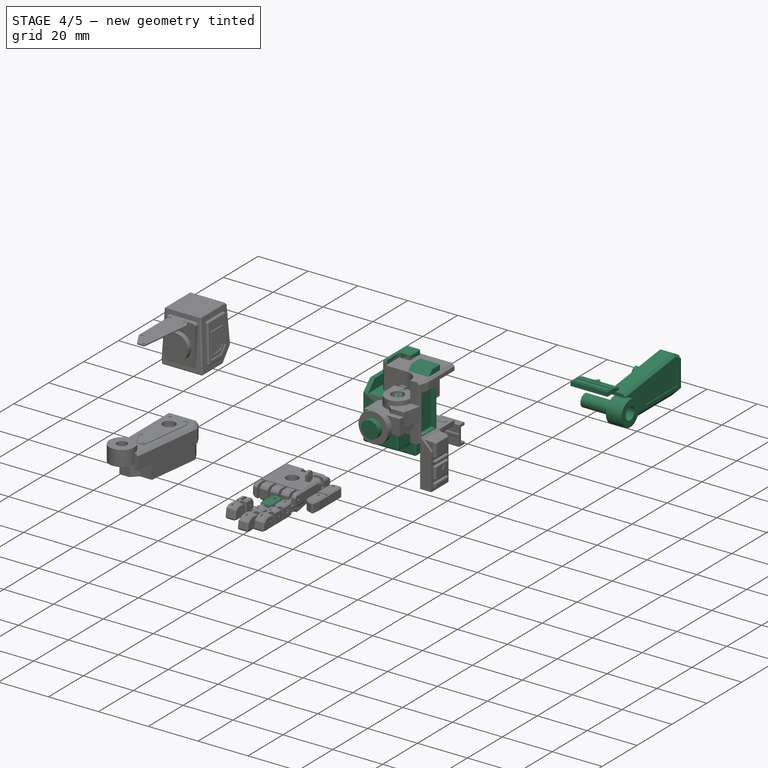
[diagram: stage 4 of 5 — iso view after this stage's code; geometry added in this stage tinted green]
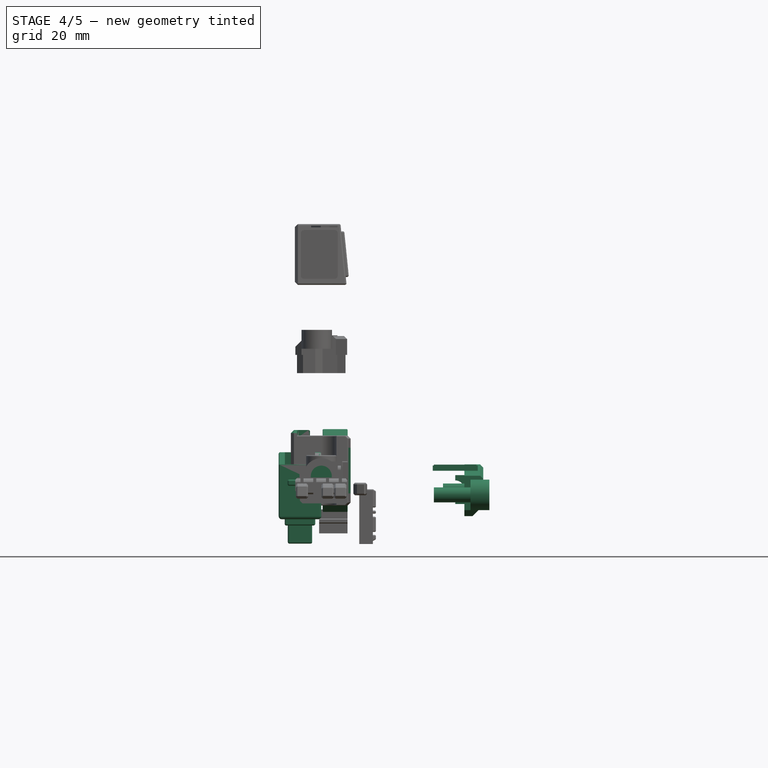
[diagram: stage 4 of 5 — front view after this stage's code; geometry added in this stage tinted green]
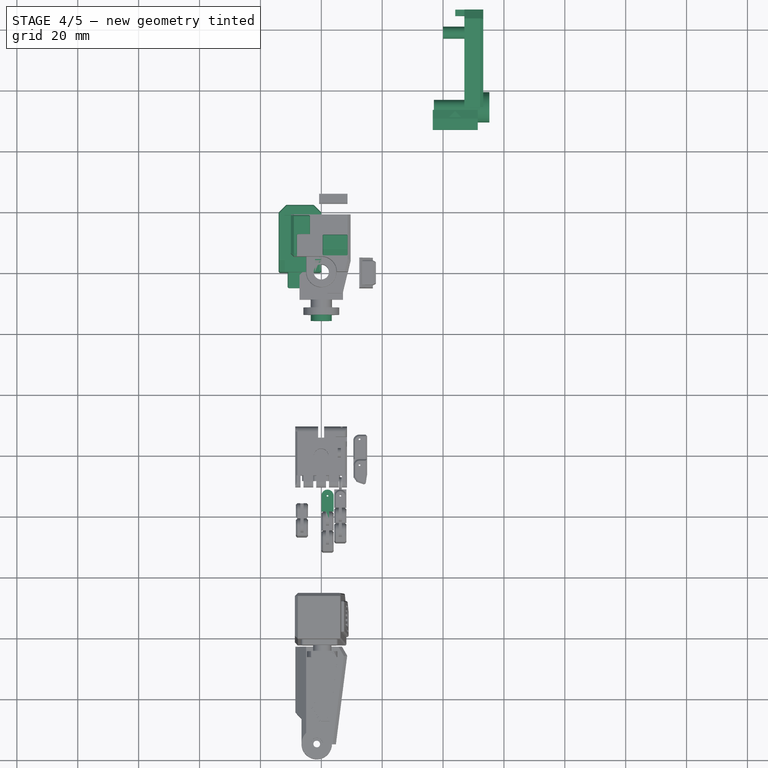
[diagram: stage 4 of 5 — top view after this stage's code; geometry added in this stage tinted green]
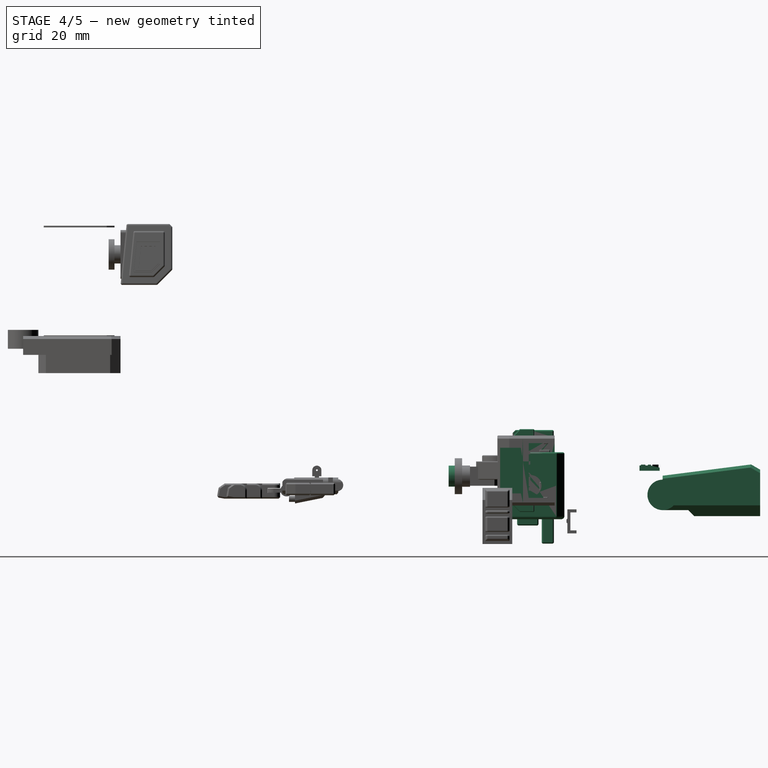
[diagram: stage 4 of 5 — right view after this stage's code; geometry added in this stage tinted green]
FEATURE [Sketcher::SketchObject] Sketch841
  ArcFitTolerance = 1e-06
  AttachmentSupport = -> [Binder046]
  ExternalGeometry = -> [Binder046]
  FullyConstrained = true
  MakeInternals = false
  MapMode = 5
  Placement = pos=(0,0,-2.25) rot=(1,0,0;3.14159rad)
  sketch-geometry (5):
    g0: ArcOfCircle CenterX=2.05 CenterY=73.3807 CenterZ=0 NormalX=0 NormalY=0 NormalZ=1 AngleXU=0 Radius=2 StartAngle=3.14159 EndAngle=6.28319
    g1: LineSegment StartX=0.05 StartY=73.3807 StartZ=0 EndX=0.05 EndY=78.5807 EndZ=0
    g2: LineSegment StartX=0.05 StartY=78.5807 StartZ=0 EndX=4.05 EndY=78.5807 EndZ=0
    g3: LineSegment StartX=4.05 StartY=78.5807 StartZ=0 EndX=4.05 EndY=73.3807 EndZ=0
    g4: Circle CenterX=2.05 CenterY=73.3807 CenterZ=0 NormalX=0 NormalY=0 NormalZ=1 AngleXU=0 Radius=0.3
  constraints (13):
    c: Coincident(g0,g-11)
    c: Coincident(g0,g-5)
    c: Coincident(g1,g0)
    c: Vertical(g1)
    c: Coincident(g2,g1)
    c: Horizontal(g2)
    c: Coincident(g3,g2)
    c: Coincident(g3,g0)
    c: Vertical(g3)
    c: DistanceY(g1,g1) = 5.2
    c: Coincident(g4,g0)
    c: Radius(g4) = 0.3
    c: DistanceY(g0,g0) = 0
FEATURE [PartDesign::Pad] Pad526
  Direction = (0,0,-1)
  Length = 1.5
  Length2 = 10
  Profile = -> Sketch841
  ReferenceAxis = -> Sketch841 [N_Axis]
  Refine = true
  Suppressed = false
  Type = 0
FEATURE [Sketcher::SketchObject] Sketch842
  ArcFitTolerance = 1e-06
  AttachmentSupport = -> [Pad526]
  ExternalGeometry = -> [Pad526]
  FullyConstrained = true
  MakeInternals = false
  MapMode = 5
  Placement = pos=(0,0,-2.25) rot=(0,0,1;0rad)
  sketch-geometry (4):
    g0: LineSegment StartX=0.05 StartY=-78.5807 StartZ=0 EndX=4.05 EndY=-78.5807 EndZ=0
    g1: LineSegment StartX=4.05 StartY=-78.5807 StartZ=0 EndX=4.05 EndY=-75.4307 EndZ=0
    g2: LineSegment StartX=4.05 StartY=-75.4307 StartZ=0 EndX=0.05 EndY=-75.4307 EndZ=0
    g3: LineSegment StartX=0.05 StartY=-75.4307 StartZ=0 EndX=0.05 EndY=-78.5807 EndZ=0
  constraints (11):
    c: Coincident(g0,g1)
    c: Coincident(g1,g2)
    c: Coincident(g2,g3)
    c: Coincident(g3,g0)
    c: Horizontal(g0)
    c: Horizontal(g2)
    c: Vertical(g1)
    c: Vertical(g3)
    c: Coincident(g0,g-4)
    c: PointOnObject(g1,g-5)
    c: DistanceY(g3,g3) = 3.15
FEATURE [PartDesign::Pad] Pad527
  BaseFeature = -> Pad526
  Direction = (0,0,1)
  Length = 1.5
  Length2 = 10
  Profile = -> Sketch842
  ReferenceAxis = -> Sketch842 [N_Axis]
  Refine = true
  Suppressed = false
  Type = 0
FEATURE [Sketcher::SketchObject] Sketch843
  ArcFitTolerance = 1e-06
  AttachmentSupport = -> [Pad527]
  ExternalGeometry = -> [Pad527]
  FullyConstrained = true
  MakeInternals = false
  MapMode = 5
  Placement = pos=(0,0,-0.75) rot=(0,0,1;0rad)
  sketch-geometry (5):
    g0: LineSegment StartX=0.05 StartY=-73.3807 StartZ=0 EndX=0.05 EndY=-78.5807 EndZ=0
    g1: LineSegment StartX=0.05 StartY=-78.5807 StartZ=0 EndX=4.05 EndY=-78.5807 EndZ=0
    g2: LineSegment StartX=4.05 StartY=-78.5807 StartZ=0 EndX=4.05 EndY=-73.3807 EndZ=0
    g3: ArcOfCircle CenterX=2.05 CenterY=-73.3807 CenterZ=0 NormalX=0 NormalY=0 NormalZ=1 AngleXU=0 Radius=2 StartAngle=1.74999e-06 EndAngle=3.14159
    g4: Circle CenterX=2.05 CenterY=-73.3807 CenterZ=0 NormalX=0 NormalY=0 NormalZ=1 AngleXU=0 Radius=0.300003
  constraints (11):
    c: Coincident(g0,g-6)
    c: Coincident(g0,g-5)
    c: Coincident(g1,g0)
    c: Coincident(g1,g-4)
    c: Coincident(g2,g1)
    c: Coincident(g2,g-6)
    c: Coincident(g3,g0)
    c: Coincident(g3,g2)
    c: Tangent(g3,g-6)
    c: Coincident(g4,g3)
    c: Tangent(g4,g-7)
FEATURE [PartDesign::Pad] Pad528
  BaseFeature = -> Pad527
  Direction = (0,0,1)
  Length = 1.5
  Length2 = 10
  Profile = -> Sketch843
  ReferenceAxis = -> Sketch843 [N_Axis]
  Refine = true
  Suppressed = false
  Type = 0
FEATURE [Sketcher::SketchObject] Sketch844
  ArcFitTolerance = 1e-06
  AttachmentSupport = -> [Pad528]
  ExternalGeometry = -> [Pad528]
  FullyConstrained = true
  MakeInternals = false
  MapMode = 5
  Placement = pos=(0,0,0.75) rot=(0,0,1;0rad)
  sketch-geometry (1):
    g0: Circle CenterX=2.05 CenterY=-73.3807 CenterZ=0 NormalX=0 NormalY=0 NormalZ=1 AngleXU=0 Radius=0.5
  constraints (2):
    c: Coincident(g0,g-3)
    c: Radius(g0) = 0.5
FEATURE [PartDesign::Pocket] Pocket464
  BaseFeature = -> Pad528
  Direction = (0,0,-1)
  Length = 0.5
  Length2 = 5
  Profile = -> Sketch844
  ReferenceAxis = -> Sketch844 [N_Axis]
  Refine = true
  Suppressed = false
  Type = 0
FEATURE [Sketcher::SketchObject] Sketch845
  ArcFitTolerance = 1e-06
  AttachmentOffset = pos=(0,0,-1.5) rot=(0,0,1;0rad)
  AttachmentSupport = -> [Pocket464]
  ExternalGeometry = -> [Pocket464]
  FullyConstrained = true
  MakeInternals = false
  MapMode = 5
  Placement = pos=(2.55,8.9258e-12,1.32296e-11) rot=(0.57735,0.57735,0.57735;2.0944rad)
  sketch-geometry (4):
    g0: LineSegment StartX=-78.5807 StartY=0.75 StartZ=0 EndX=-80.8807 EndY=0.75 EndZ=0
    g1: LineSegment StartX=-78.5807 StartY=0.75 StartZ=0 EndX=-78.5807 EndY=-3.75 EndZ=0
    g2: LineSegment StartX=-78.5807 StartY=-3.75 StartZ=0 EndX=-80.8807 EndY=-3.75 EndZ=0
    g3: ArcOfCircle CenterX=-80.8807 CenterY=-1.5 CenterZ=0 NormalX=0 NormalY=0 NormalZ=1 AngleXU=0 Radius=2.25 StartAngle=1.5708 EndAngle=4.71239
  constraints (11):
    c: Coincident(g0,g-3)
    c: Horizontal(g0)
    c: Coincident(g1,g0)
    c: Coincident(g1,g-3)
    c: Coincident(g2,g1)
    c: Horizontal(g2)
    c: Coincident(g3,g0)
    c: Coincident(g3,g2)
    c: Radius(g3) = 2.25
    c: DistanceX(g3,g0) = 0
    c: DistanceX(g0,g0) = 2.3
FEATURE [PartDesign::Pad] Pad529
  BaseFeature = -> Pocket464
  Direction = (1,3.5004e-12,5.188e-12)
  Length = 1
  Length2 = 10
  Profile = -> Sketch845
  ReferenceAxis = -> Sketch845 [N_Axis]
  Refine = true
  Reversed = true
  Suppressed = false
  Type = 0
FEATURE [Sketcher::SketchObject] Sketch304
  ArcFitTolerance = 1e-06
  AttachmentSupport = -> [XY_Plane018]
  FullyConstrained = true
  MakeInternals = false
  MapMode = 5
  sketch-geometry (2):
    g0: Circle CenterX=0 CenterY=0 CenterZ=0 NormalX=0 NormalY=0 NormalZ=1 AngleXU=0 Radius=5
    g1: Circle CenterX=0 CenterY=0 CenterZ=0 NormalX=0 NormalY=0 NormalZ=1 AngleXU=0 Radius=2.5
  constraints (4):
    c: Coincident(g0,g-1)
    c: Diameter(g0) = 10
    c: Coincident(g1,g0)
    c: Diameter(g1) = 5
FEATURE [PartDesign::Pad] Pad125
  Direction = (0,0,1)
  Length = 10
  Length2 = 10
  Profile = -> Sketch304
  ReferenceAxis = -> Sketch304 [N_Axis]
  Refine = true
  Suppressed = false
  Type = 0
FEATURE [Sketcher::SketchObject] Sketch305
  ArcFitTolerance = 1e-06
  AttachmentSupport = -> [Pad125]
  ExternalGeometry = -> [Pad125]
  FullyConstrained = false
  MakeInternals = false
  MapMode = 5
  Placement = pos=(0,0,0) rot=(1,0,0;3.14159rad)
  sketch-geometry (3):
    g0: LineSegment StartX=-5 StartY=0 StartZ=0 EndX=-5 EndY=-5 EndZ=0
    g1: LineSegment StartX=-9e-16 StartY=-5 StartZ=0 EndX=-5 EndY=-5 EndZ=0
    g2: ArcOfCircle CenterX=0 CenterY=0 CenterZ=0 NormalX=0 NormalY=0 NormalZ=1 AngleXU=0 Radius=5 StartAngle=3.14159 EndAngle=4.71239
  constraints (9):
    c: PointOnObject(g0,g-3)
    c: Vertical(g0)
    c: PointOnObject(g1,g-3)
    c: Coincident(g1,g0)
    c: Horizontal(g1)
    c: PointOnObject(g1,g-2)
    c: PointOnObject(g0,g-1)
    c: Coincident(g2,g0)
    c: Coincident(g2,g1)
FEATURE [PartDesign::Pad] Pad126
  BaseFeature = -> Pad125
  Direction = (0,0,-1)
  Length = 10
  Length2 = 10
  Profile = -> Sketch305
  ReferenceAxis = -> Sketch305 [N_Axis]
  Refine = true
  Reversed = true
  Suppressed = false
  Type = 0
FEATURE [Sketcher::SketchObject] Sketch306
  ArcFitTolerance = 1e-06
  AttachmentOffset = pos=(0,0,-2) rot=(0,0,1;0rad)
  AttachmentSupport = -> [Pad126]
  ExternalGeometry = -> [Pad126]
  FullyConstrained = true
  MakeInternals = false
  MapMode = 5
  Placement = pos=(0,0,2) rot=(1,0,0;3.14159rad)
  sketch-geometry (5):
    g0: LineSegment StartX=5 StartY=7.9024e-12 StartZ=0 EndX=8.7 EndY=0 EndZ=0
    g1: LineSegment StartX=8.7 StartY=0 StartZ=0 EndX=7 EndY=7 EndZ=0
    g2: LineSegment StartX=7 StartY=7 StartZ=0 EndX=2 EndY=7 EndZ=0
    g3: LineSegment StartX=2 StartY=7 StartZ=0 EndX=7.9008e-12 EndY=5 EndZ=0
    g4: ArcOfCircle CenterX=6.28519e-06 CenterY=6.28519e-06 CenterZ=0 NormalX=0 NormalY=0 NormalZ=1 AngleXU=0 Radius=4.99999 StartAngle=6.28318 EndAngle=7.85398
  constraints (15):
    c: Coincident(g0,g-3)
    c: PointOnObject(g0,g-1)
    c: Coincident(g1,g0)
    c: Coincident(g2,g1)
    c: Horizontal(g2)
    c: Coincident(g3,g2)
    c: PointOnObject(g3,g-3)
    c: Coincident(g4,g3)
    c: Coincident(g4,g0)
    c: DistanceX(g2,g2) = 5
    c: DistanceY(g3,g2) = 2
    c: Angle(g3,g2) = 2.35619
    c: DistanceX(g0,g0) = 3.7
    c: Tangent(g4,g-3)
    c: PointOnObject(g3,g-2)
FEATURE [PartDesign::Pad] Pad127
  BaseFeature = -> Pad126
  Direction = (0,0,-1)
  Length = 6
  Length2 = 10
  Profile = -> Sketch306
  ReferenceAxis = -> Sketch306 [N_Axis]
  Refine = true
  Reversed = true
  Suppressed = false
  Type = 0
FEATURE [Sketcher::SketchObject] Sketch307
  ArcFitTolerance = 1e-06
  AttachmentOffset = pos=(0,0,6.5) rot=(0,0,1;0rad)
  AttachmentSupport = -> [Pad127]
  ExternalGeometry = -> [Pad127]
  FullyConstrained = true
  MakeInternals = false
  MapMode = 5
  Placement = pos=(0,0,-6.5) rot=(1,0,0;3.14159rad)
  sketch-geometry (8):
    g0: LineSegment StartX=8.7 StartY=0 StartZ=0 EndX=9.64399 EndY=-3.88701 EndZ=0
    g1: LineSegment StartX=9.64399 StartY=-3.88701 StartZ=0 EndX=9.64399 EndY=-9.1 EndZ=0
    g2: LineSegment StartX=9.64399 StartY=-9.1 StartZ=0 EndX=-10 EndY=-9.1 EndZ=0
    g3: LineSegment StartX=-10 StartY=-9.1 StartZ=0 EndX=-10 EndY=-5 EndZ=0
    g4: ArcOfCircle CenterX=6.0459e-06 CenterY=-6.04591e-06 CenterZ=0 NormalX=0 NormalY=0 NormalZ=1 AngleXU=0 Radius=4.99999 StartAngle=4.71239 EndAngle=6.28319
    g5: LineSegment StartX=5 StartY=-7.3076e-12 StartZ=0 EndX=8.7 EndY=0 EndZ=0
    g6: LineSegment StartX=7.3111e-12 StartY=-5 StartZ=0 EndX=-5 EndY=-5 EndZ=0
    g7: LineSegment StartX=-5 StartY=-5 StartZ=0 EndX=-10 EndY=-5 EndZ=0
  constraints (21):
    c: Coincident(g0,g-6)
    c: Coincident(g1,g0)
    c: Vertical(g1)
    c: Coincident(g2,g1)
    c: Horizontal(g2)
    c: Coincident(g3,g2)
    c: Vertical(g3)
    c: Coincident(g4,g-5)
    c: Coincident(g5,g4)
    c: Coincident(g5,g0)
    c: Angle(g0,g-6) = 3.14159
    c: DistanceY(g3,g3) = 4.1
    c: Tangent(g4,g-3)
    c: Coincident(g6,g4)
    c: Coincident(g6,g-4)
    c: Coincident(g7,g6)
    c: Coincident(g7,g3)
    c: Horizontal(g7)
    c: Coincident(g4,g-4)
    c: DistanceX(g7,g7) = 5
    c: Distance(g0) = 4
FEATURE [PartDesign::Pad] Pad128
  BaseFeature = -> Pad127
  Direction = (0,0,-1)
  Length = 23
  Length2 = 10
  Profile = -> Sketch307
  ReferenceAxis = -> Sketch307 [N_Axis]
  Refine = true
  Reversed = true
  Suppressed = false
  Type = 0
FEATURE [Sketcher::SketchObject] Sketch308
  ArcFitTolerance = 1e-06
  AttachmentSupport = -> [Pad128]
  ExternalGeometry = -> [Pad128]
  FullyConstrained = true
  MakeInternals = false
  MapMode = 5
  Placement = pos=(0,9.1,0) rot=(0,0.707107,0.707107;3.14159rad)
  sketch-geometry (8):
    g0: LineSegment StartX=10 StartY=16.5 StartZ=0 EndX=-9.64399 EndY=16.5 EndZ=0
    g1: LineSegment StartX=8 StartY=-4 StartZ=0 EndX=-9.64399 EndY=-4 EndZ=0
    g2: LineSegment StartX=10 StartY=-6.5 StartZ=0 EndX=10 EndY=16.5 EndZ=0
    g3: LineSegment StartX=8 StartY=-4 StartZ=0 EndX=8 EndY=14 EndZ=0
    g4: LineSegment StartX=8 StartY=14 StartZ=0 EndX=-9.64399 EndY=14 EndZ=0
    g5: LineSegment StartX=-9.64399 StartY=16.5 StartZ=0 EndX=-9.64399 EndY=14 EndZ=0
    g6: LineSegment StartX=-9.64399 StartY=-4 StartZ=0 EndX=-9.64399 EndY=-6.5 EndZ=0
    g7: LineSegment StartX=10 StartY=-6.5 StartZ=0 EndX=-9.64399 EndY=-6.5 EndZ=0
  constraints (20):
    c: Coincident(g0,g-4)
    c: Coincident(g0,g-5)
    c: Horizontal(g1)
    c: DistanceY(g-6,g1) = 2.5
    c: Coincident(g2,g-6)
    c: Coincident(g2,g0)
    c: Coincident(g3,g1)
    c: Vertical(g3)
    c: Coincident(g4,g3)
    c: PointOnObject(g4,g-5)
    c: Horizontal(g4)
    c: PointOnObject(g1,g-5)
    c: DistanceX(g3,g0) = 2
    c: Coincident(g5,g0)
    c: Coincident(g5,g4)
    c: Coincident(g6,g1)
    c: Coincident(g6,g-6)
    c: DistanceY(g5,g5) = 2.5
    c: Coincident(g7,g2)
    c: Coincident(g7,g6)
FEATURE [PartDesign::Pad] Pad129
  BaseFeature = -> Pad128
  Direction = (0,1,-2e-16)
  Length = 8.5
  Length2 = 10
  Profile = -> Sketch308
  ReferenceAxis = -> Sketch308 [N_Axis]
  Refine = true
  Suppressed = false
  Type = 0
FEATURE [Sketcher::SketchObject] Sketch309
  ArcFitTolerance = 1e-06
  AttachmentSupport = -> [Pad129]
  ExternalGeometry = -> [Pad129]
  FullyConstrained = true
  MakeInternals = false
  MapMode = 5
  Placement = pos=(-8,0,0) rot=(0.57735,0.57735,0.57735;2.0944rad)
  sketch-geometry (8):
    g0: LineSegment StartX=17.3 StartY=11.775 StartZ=0 EndX=13.8 EndY=11.775 EndZ=0
    g1: LineSegment StartX=13.8 StartY=11.775 StartZ=0 EndX=13.8 EndY=8.775 EndZ=0
    g2: LineSegment StartX=13.8 StartY=8.775 StartZ=0 EndX=17.3 EndY=8.775 EndZ=0
    g3: LineSegment StartX=17.3 StartY=8.775 StartZ=0 EndX=17.3 EndY=11.775 EndZ=0
    g4: LineSegment StartX=17.3 StartY=1.225 StartZ=0 EndX=13.8 EndY=1.225 EndZ=0
    g5: LineSegment StartX=13.8 StartY=1.225 StartZ=0 EndX=13.8 EndY=-1.775 EndZ=0
    g6: LineSegment StartX=13.8 StartY=-1.775 StartZ=0 EndX=17.3 EndY=-1.775 EndZ=0
    g7: LineSegment StartX=17.3 StartY=-1.775 StartZ=0 EndX=17.3 EndY=1.225 EndZ=0
  constraints (24):
    c: Coincident(g0,g1)
    c: Coincident(g1,g2)
    c: Coincident(g2,g3)
    c: Coincident(g3,g0)
    c: Horizontal(g0)
    c: Horizontal(g2)
    c: Vertical(g1)
    c: Vertical(g3)
    c: Coincident(g4,g5)
    c: Coincident(g5,g6)
    c: Coincident(g6,g7)
    c: Coincident(g7,g4)
    c: Horizontal(g4)
    c: Horizontal(g6)
    c: Vertical(g5)
    c: Vertical(g7)
    c: DistanceX(g-4,g0) = 4.7
    c: DistanceX(g-6,g5) = 4.7
    c: DistanceX(g4,g4) = 3.5
    c: DistanceX(g0,g0) = 3.5
    c: DistanceY(g3,g3) = 3
    c: DistanceY(g7,g7) = 3
    c: DistanceY(g0,g-5) = 2.225
    c: DistanceY(g-6,g6) = 2.225
FEATURE [PartDesign::Pad] Pad130
  BaseFeature = -> Pad129
  Direction = (1,0,0)
  Length = 3
  Length2 = 10
  Profile = -> Sketch309
  ReferenceAxis = -> Sketch309 [N_Axis]
  Refine = true
  Suppressed = false
  Type = 0
FEATURE [Sketcher::SketchObject] Sketch310
  ArcFitTolerance = 1e-06
  AttachmentSupport = -> [Pad130]
  ExternalGeometry = -> [Pad130]
  FullyConstrained = true
  MakeInternals = false
  MapMode = 5
  Placement = pos=(0,9.1,0) rot=(0,0.707107,0.707107;3.14159rad)
  sketch-geometry (4):
    g0: LineSegment StartX=-9.64399 StartY=-4 StartZ=0 EndX=-2.64399 EndY=-4 EndZ=0
    g1: LineSegment StartX=-2.64399 StartY=-4 StartZ=0 EndX=-2.64399 EndY=8 EndZ=0
    g2: LineSegment StartX=-2.64399 StartY=8 StartZ=0 EndX=-9.64399 EndY=8 EndZ=0
    g3: LineSegment StartX=-9.64399 StartY=8 StartZ=0 EndX=-9.64399 EndY=-4 EndZ=0
  constraints (11):
    c: Coincident(g0,g1)
    c: Coincident(g1,g2)
    c: Coincident(g2,g3)
    c: Coincident(g3,g0)
    c: Horizontal(g0)
    c: Horizontal(g2)
    c: Vertical(g1)
    c: Vertical(g3)
    c: DistanceY(g3,g3) = 12
    c: DistanceX(g2,g2) = 7
    c: Coincident(g0,g-5)
FEATURE [PartDesign::Pocket] Pocket213
  BaseFeature = -> Pad130
  Direction = (0,-1,2e-16)
  Length = 1.9
  Length2 = 5
  Profile = -> Sketch310
  ReferenceAxis = -> Sketch310 [N_Axis]
  Refine = true
  Suppressed = false
  Type = 0
FEATURE [Sketcher::SketchObject] Sketch311
  ArcFitTolerance = 1e-06
  AttachmentSupport = -> [Pocket213]
  ExternalGeometry = -> [Pocket213]
  FullyConstrained = true
  MakeInternals = false
  MapMode = 5
  Placement = pos=(0,0,-4) rot=(0,0,1;0rad)
  sketch-geometry (4):
    g0: LineSegment StartX=-8 StartY=16.6 StartZ=0 EndX=-8 EndY=15.1 EndZ=0
    g1: LineSegment StartX=-8 StartY=15.1 StartZ=0 EndX=8.14399 EndY=15.1 EndZ=0
    g2: LineSegment StartX=8.14399 StartY=15.1 StartZ=0 EndX=8.14399 EndY=16.6 EndZ=0
    g3: LineSegment StartX=8.14399 StartY=16.6 StartZ=0 EndX=-8 EndY=16.6 EndZ=0
  constraints (12):
    c: Coincident(g0,g1)
    c: Coincident(g1,g2)
    c: Coincident(g2,g3)
    c: Coincident(g3,g0)
    c: Vertical(g0)
    c: Vertical(g2)
    c: Horizontal(g1)
    c: Horizontal(g3)
    c: PointOnObject(g0,g-3)
    c: DistanceX(g2,g-5) = 1.5
    c: DistanceY(g2,g2) = 1.5
    c: DistanceY(g2,g-5) = 1
FEATURE [PartDesign::Pad] Pad131
  BaseFeature = -> Pocket213
  Direction = (0,0,1)
  Length = 0.3
  Length2 = 10
  Profile = -> Sketch311
  ReferenceAxis = -> Sketch311 [N_Axis]
  Refine = true
  Suppressed = false
  Type = 0
FEATURE [Sketcher::SketchObject] Sketch312
  ArcFitTolerance = 1e-06
  AttachmentSupport = -> [Pad131]
  ExternalGeometry = -> [Pad131]
  FullyConstrained = true
  MakeInternals = false
  MapMode = 5
  Placement = pos=(0,3.1e-15,14) rot=(1,0,0;3.14159rad)
  sketch-geometry (4):
    g0: LineSegment StartX=-8 StartY=-15.1 StartZ=0 EndX=-8 EndY=-16.6 EndZ=0
    g1: LineSegment StartX=-8 StartY=-16.6 StartZ=0 EndX=8.14399 EndY=-16.6 EndZ=0
    g2: LineSegment StartX=8.14399 StartY=-16.6 StartZ=0 EndX=8.14399 EndY=-15.1 EndZ=0
    g3: LineSegment StartX=8.14399 StartY=-15.1 StartZ=0 EndX=-8 EndY=-15.1 EndZ=0
  constraints (12):
    c: Coincident(g0,g1)
    c: Coincident(g1,g2)
    c: Coincident(g2,g3)
    c: Coincident(g3,g0)
    c: Vertical(g0)
    c: Vertical(g2)
    c: Horizontal(g1)
    c: Horizontal(g3)
    c: DistanceY(g2,g2) = 1.5
    c: DistanceY(g-4,g1) = 1
    c: DistanceX(g1,g-4) = 1.5
    c: PointOnObject(g0,g-5)
FEATURE [PartDesign::Pad] Pad132
  BaseFeature = -> Pad131
  Direction = (0,0,-1)
  Length = 0.3
  Length2 = 10
  Profile = -> Sketch312
  ReferenceAxis = -> Sketch312 [N_Axis]
  Refine = true
  Suppressed = false
  Type = 0
FEATURE [PartDesign::Fillet] Fillet
  Base = -> Pad132 [Edge104,Edge121,Edge120,Edge116,Edge118,Edge114,Edge117,Edge115,Edge119,Edge111,Edge112,Edge108,Edge110,Edge113,Edge109,Edge101,Edge105,Edge106,Edge107,Edge98,Edge99,Edge96,Edge103,Edge102,Edge100,Edge97]
  BaseFeature = -> Pad132
  Radius = 0.2
  Refine = true
  SupportTransform = false
  Suppressed = false
  UseAllEdges = false
FEATURE [PartDesign::Chamfer] Chamfer062
  Angle = 45
  Base = -> Fillet [Edge61,Edge131,Edge127,Edge56,Edge124,Edge122,Edge123]
  BaseFeature = -> Fillet
  ChamferType = 0
  FlipDirection = false
  Refine = true
  Size = 1
  Size2 = 1
  SupportTransform = false
  Suppressed = false
  UseAllEdges = false
FEATURE [PartDesign::Fillet] Fillet001
  Base = -> Chamfer062 [Edge20,Edge21,Edge22,Edge183,Edge106,Edge187,Edge105,Edge94,Edge107,Edge98,Edge25,Edge29,Edge178,Edge177,Edge174,Edge173]
  BaseFeature = -> Chamfer062
  Radius = 0.3
  Refine = true
  SupportTransform = false
  Suppressed = false
  UseAllEdges = false
FEATURE [Sketcher::SketchObject] Sketch313
  ArcFitTolerance = 1e-06
  AttachmentSupport = -> [Fillet001]
  ExternalGeometry = -> [Fillet001]
  FullyConstrained = true
  MakeInternals = false
  MapMode = 5
  Placement = pos=(9.64399,0,0) rot=(0.57735,0.57735,0.57735;2.0944rad)
  sketch-geometry (24):
    g0: LineSegment StartX=7 StartY=12 StartZ=0 EndX=5.9 EndY=12 EndZ=0
    g1: LineSegment StartX=5.7 StartY=11.8 StartZ=0 EndX=5.7 EndY=-1.8 EndZ=0
    g2: LineSegment StartX=5.9 StartY=-2 StartZ=0 EndX=7 EndY=-2 EndZ=0
    g3: LineSegment StartX=7.2 StartY=-1.8 StartZ=0 EndX=7.2 EndY=11.8 EndZ=0
    g4: LineSegment StartX=3.88701 StartY=11.8 StartZ=0 EndX=3.88701 EndY=-1.8 EndZ=0
    g5: LineSegment StartX=4.08701 StartY=-2 StartZ=0 EndX=4.68701 EndY=-2 EndZ=0
    g6: LineSegment StartX=4.88701 StartY=-1.8 StartZ=0 EndX=4.88701 EndY=11.8 EndZ=0
    g7: LineSegment StartX=4.68701 StartY=12 StartZ=0 EndX=4.08701 EndY=12 EndZ=0
    g8: ArcOfCircle CenterX=7 CenterY=11.8 CenterZ=0 NormalX=0 NormalY=0 NormalZ=1 AngleXU=0 Radius=0.2 StartAngle=0 EndAngle=1.5708
    g9: GeomPoint [constr] X=7.2 Y=12 Z=0
    g10: ArcOfCircle CenterX=5.9 CenterY=11.8 CenterZ=0 NormalX=0 NormalY=0 NormalZ=1 AngleXU=0 Radius=0.2 StartAngle=1.5708 EndAngle=3.14159
    g11: GeomPoint [constr] X=5.7 Y=12 Z=0
    g12: ArcOfCircle CenterX=7 CenterY=-1.8 CenterZ=0 NormalX=0 NormalY=0 NormalZ=1 AngleXU=0 Radius=0.2 StartAngle=4.71239 EndAngle=6.28319
    g13: GeomPoint [constr] X=7.2 Y=-2 Z=0
    g14: ArcOfCircle CenterX=5.9 CenterY=-1.8 CenterZ=0 NormalX=0 NormalY=0 NormalZ=1 AngleXU=0 Radius=0.2 StartAngle=3.14159 EndAngle=4.71239
    g15: GeomPoint [constr] X=5.7 Y=-2 Z=0
    g16: ArcOfCircle CenterX=4.68701 CenterY=11.8 CenterZ=0 NormalX=0 NormalY=0 NormalZ=1 AngleXU=0 Radius=0.2 StartAngle=0 EndAngle=1.5708
    g17: GeomPoint [constr] X=4.88701 Y=12 Z=0
    g18: ArcOfCircle CenterX=4.08701 CenterY=11.8 CenterZ=0 NormalX=0 NormalY=0 NormalZ=1 AngleXU=0 Radius=0.2 StartAngle=1.5708 EndAngle=3.14159
    g19: GeomPoint [constr] X=3.88701 Y=12 Z=0
    g20: ArcOfCircle CenterX=4.68701 CenterY=-1.8 CenterZ=0 NormalX=0 NormalY=0 NormalZ=1 AngleXU=0 Radius=0.2 StartAngle=4.71239 EndAngle=6.28319
    g21: GeomPoint [constr] X=4.88701 Y=-2 Z=0
    g22: ArcOfCircle CenterX=4.08701 CenterY=-1.8 CenterZ=0 NormalX=0 NormalY=0 NormalZ=1 AngleXU=0 Radius=0.2 StartAngle=3.14159 EndAngle=4.71239
    g23: GeomPoint [constr] X=3.88701 Y=-2 Z=0
  constraints (57):
    c: Horizontal(g0)
    c: Horizontal(g2)
    c: Vertical(g1)
    c: Vertical(g3)
    c: Vertical(g4)
    c: Vertical(g6)
    c: Horizontal(g5)
    c: Horizontal(g7)
    c: PointOnObject(g19,g-4)
    c: DistanceY(g13,g9) = 14
    c: DistanceY(g23,g19) = 14
    c: PointOnObject(g-3,g3)
    c: DistanceY(g-6,g-5) = 18
    c: PointOnObject(g9,g0)
    c: PointOnObject(g9,g3)
    c: Tangent(g0,g8) = -1.5708
    c: Tangent(g3,g8) = -1.5708
    c: PointOnObject(g11,g0)
    c: PointOnObject(g11,g1)
    c: Tangent(g0,g10) = -1.5708
    c: Tangent(g1,g10) = -1.5708
    c: PointOnObject(g13,g2)
    c: PointOnObject(g13,g3)
    c: Tangent(g2,g12) = -1.5708
    c: Tangent(g3,g12) = -1.5708
    c: PointOnObject(g15,g1)
    c: PointOnObject(g15,g2)
    c: Tangent(g1,g14) = -1.5708
    c: Tangent(g2,g14) = -1.5708
    c: Radius(g14) = 0.2
    c: Radius(g12) = 0.2
    c: Radius(g8) = 0.2
    c: Radius(g10) = 0.2
    c: DistanceY(g9,g-5) = 2
    c: DistanceX(g1,g3) = 1.5
    c: DistanceY(g-6,g21) = 2
    c: DistanceX(g19,g17) = 1
    c: PointOnObject(g17,g6)
    c: PointOnObject(g17,g7)
    c: Tangent(g6,g16) = -1.5708
    c: Tangent(g7,g16) = -1.5708
    c: PointOnObject(g19,g4)
    c: PointOnObject(g19,g7)
    c: Tangent(g4,g18) = -1.5708
    c: Tangent(g7,g18) = -1.5708
    c: PointOnObject(g21,g5)
    c: PointOnObject(g21,g6)
    c: Tangent(g5,g20) = -1.5708
    c: Tangent(g6,g20) = -1.5708
    c: PointOnObject(g23,g4)
    c: PointOnObject(g23,g5)
    c: Tangent(g4,g22) = -1.5708
    c: Tangent(g5,g22) = -1.5708
    c: Radius(g20) = 0.2
    c: Radius(g22) = 0.2
    c: Radius(g18) = 0.2
    c: Radius(g16) = 0.2
FEATURE [PartDesign::Pad] Pad133
  BaseFeature = -> Fillet001
  Direction = (1,0,0)
  Length = 0.3
  Length2 = 10
  Profile = -> Sketch313
  ReferenceAxis = -> Sketch313 [N_Axis]
  Refine = true
  Suppressed = false
  Type = 0
FEATURE [Sketcher::SketchObject] Sketch314
  ArcFitTolerance = 1e-06
  AttachmentSupport = -> [Pad133]
  ExternalGeometry = -> [Pad133]
  FullyConstrained = true
  MakeInternals = false
  MapMode = 5
  Placement = pos=(8.21546,-1.99518,0) rot=(0.668713,0.525749,0.525749;1.96276rad)
  sketch-geometry (3):
    g0: LineSegment StartX=5.55318 StartY=7 StartZ=0 EndX=5.55318 EndY=3 EndZ=0
    g1: LineSegment StartX=5.55318 StartY=3 StartZ=0 EndX=3.55318 EndY=5 EndZ=0
    g2: LineSegment StartX=5.55318 StartY=7 StartZ=0 EndX=3.55318 EndY=5 EndZ=0
  constraints (10):
    c: Vertical(g0)
    c: Coincident(g1,g0)
    c: Coincident(g2,g0)
    c: Coincident(g2,g1)
    c: DistanceY(g0,g0) = 4
    c: DistanceY(g1,g0) = 2
    c: DistanceX(g1,g0) = 2
    c: DistanceX(g0,g-3) = 0.5
    c: DistanceY(g-3,g-4) = 21
    c: DistanceY(g1,g-4) = 10.5
FEATURE [PartDesign::Pad] Pad134
  BaseFeature = -> Pad133
  Direction = (0.971754,-0.235997,1e-16)
  Length = 0.3
  Length2 = 10
  Profile = -> Sketch314
  ReferenceAxis = -> Sketch314 [N_Axis]
  Refine = true
  Suppressed = false
  Type = 0
FEATURE [Sketcher::SketchObject] Sketch322
  ArcFitTolerance = 1e-06
  AttachmentSupport = -> [Pocket214]
  ExternalGeometry = -> [Pocket214]
  FullyConstrained = true
  MakeInternals = false
  MapMode = 5
  Placement = pos=(0,0,-4) rot=(0,0,1;0rad)
  sketch-geometry (4):
    g0: LineSegment StartX=-8 StartY=15.1 StartZ=0 EndX=-8 EndY=13.6 EndZ=0
    g1: LineSegment StartX=-8 StartY=13.6 StartZ=0 EndX=8.14399 EndY=13.6 EndZ=0
    g2: LineSegment StartX=8.14399 StartY=13.6 StartZ=0 EndX=8.14399 EndY=15.1 EndZ=0
    g3: LineSegment StartX=8.14399 StartY=15.1 StartZ=0 EndX=-8 EndY=15.1 EndZ=0
  constraints (12):
    c: Coincident(g0,g1)
    c: Coincident(g1,g2)
    c: Coincident(g2,g3)
    c: Coincident(g3,g0)
    c: Vertical(g0)
    c: Vertical(g2)
    c: Horizontal(g1)
    c: Horizontal(g3)
    c: PointOnObject(g0,g-3)
    c: DistanceX(g2,g-5) = 1.5
    c: DistanceY(g2,g2) = 1.5
    c: DistanceY(g2,g-5) = 2.5
FEATURE [PartDesign::Pad] Pad141
  BaseFeature = -> Pocket214
  Direction = (0,0,1)
  Length = 0.3
  Length2 = 10
  Profile = -> Sketch322
  ReferenceAxis = -> Sketch322 [N_Axis]
  Refine = true
  Suppressed = false
  Type = 0
FEATURE [Sketcher::SketchObject] Sketch323
  ArcFitTolerance = 1e-06
  AttachmentSupport = -> [Pad141]
  ExternalGeometry = -> [Pad141]
  FullyConstrained = true
  MakeInternals = false
  MapMode = 5
  Placement = pos=(0,3.1e-15,14) rot=(1,0,0;3.14159rad)
  sketch-geometry (4):
    g0: LineSegment StartX=-8 StartY=-13.6 StartZ=0 EndX=-8 EndY=-15.1 EndZ=0
    g1: LineSegment StartX=-8 StartY=-15.1 StartZ=0 EndX=8.14399 EndY=-15.1 EndZ=0
    g2: LineSegment StartX=8.14399 StartY=-15.1 StartZ=0 EndX=8.14399 EndY=-13.6 EndZ=0
    g3: LineSegment StartX=8.14399 StartY=-13.6 StartZ=0 EndX=-8 EndY=-13.6 EndZ=0
  constraints (12):
    c: Coincident(g0,g1)
    c: Coincident(g1,g2)
    c: Coincident(g2,g3)
    c: Coincident(g3,g0)
    c: Vertical(g0)
    c: Vertical(g2)
    c: Horizontal(g1)
    c: Horizontal(g3)
    c: DistanceY(g2,g2) = 1.5
    c: DistanceY(g-4,g1) = 2.5
    c: DistanceX(g1,g-4) = 1.5
    c: PointOnObject(g0,g-5)
FEATURE [PartDesign::Pad] Pad142
  BaseFeature = -> Pad141
  Direction = (0,0,-1)
  Length = 0.3
  Length2 = 10
  Profile = -> Sketch323
  ReferenceAxis = -> Sketch323 [N_Axis]
  Refine = true
  Suppressed = false
  Type = 0
FEATURE [PartDesign::Fillet] Fillet002
  Base = -> Pad142 [Edge104,Edge121,Edge120,Edge116,Edge118,Edge114,Edge117,Edge115,Edge119,Edge111,Edge112,Edge108,Edge110,Edge113,Edge109,Edge101,Edge105,Edge106,Edge107,Edge98,Edge99,Edge96,Edge103,Edge102,Edge100,Edge97]
  BaseFeature = -> Pad142
  Radius = 0.2
  Refine = true
  SupportTransform = false
  Suppressed = false
  UseAllEdges = false
FEATURE [PartDesign::Chamfer] Chamfer001
  Angle = 45
  Base = -> Fillet002 [Edge61,Edge131,Edge127,Edge56,Edge124,Edge122,Edge123]
  BaseFeature = -> Fillet002
  ChamferType = 0
  FlipDirection = false
  Refine = true
  Size = 1
  Size2 = 1
  SupportTransform = false
  Suppressed = false
  UseAllEdges = false
FEATURE [PartDesign::Fillet] Fillet003
  Base = -> Chamfer001 [Edge20,Edge21,Edge22,Edge183,Edge106,Edge187,Edge105,Edge94,Edge107,Edge98,Edge25,Edge29,Edge178,Edge177,Edge174,Edge173]
  BaseFeature = -> Chamfer001
  Radius = 0.3
  Refine = true
  SupportTransform = false
  Suppressed = false
  UseAllEdges = false
FEATURE [Sketcher::SketchObject] Sketch324
  ArcFitTolerance = 1e-06
  AttachmentSupport = -> [Fillet003]
  ExternalGeometry = -> [Fillet003]
  FullyConstrained = true
  MakeInternals = false
  MapMode = 5
  Placement = pos=(9.64399,0,0) rot=(0.57735,0.57735,0.57735;2.0944rad)
  sketch-geometry (24):
    g0: LineSegment StartX=7 StartY=12 StartZ=0 EndX=5.9 EndY=12 EndZ=0
    g1: LineSegment StartX=5.7 StartY=11.8 StartZ=0 EndX=5.7 EndY=-1.8 EndZ=0
    g2: LineSegment StartX=5.9 StartY=-2 StartZ=0 EndX=7 EndY=-2 EndZ=0
    g3: LineSegment StartX=7.2 StartY=-1.8 StartZ=0 EndX=7.2 EndY=11.8 EndZ=0
    g4: LineSegment StartX=3.88701 StartY=11.8 StartZ=0 EndX=3.88701 EndY=-1.8 EndZ=0
    g5: LineSegment StartX=4.08701 StartY=-2 StartZ=0 EndX=4.68701 EndY=-2 EndZ=0
    g6: LineSegment StartX=4.88701 StartY=-1.8 StartZ=0 EndX=4.88701 EndY=11.8 EndZ=0
    g7: LineSegment StartX=4.68701 StartY=12 StartZ=0 EndX=4.08701 EndY=12 EndZ=0
    g8: ArcOfCircle CenterX=7 CenterY=11.8 CenterZ=0 NormalX=0 NormalY=0 NormalZ=1 AngleXU=0 Radius=0.2 StartAngle=0 EndAngle=1.5708
    g9: GeomPoint [constr] X=7.2 Y=12 Z=0
    g10: ArcOfCircle CenterX=5.9 CenterY=11.8 CenterZ=0 NormalX=0 NormalY=0 NormalZ=1 AngleXU=0 Radius=0.2 StartAngle=1.5708 EndAngle=3.14159
    g11: GeomPoint [constr] X=5.7 Y=12 Z=0
    g12: ArcOfCircle CenterX=7 CenterY=-1.8 CenterZ=0 NormalX=0 NormalY=0 NormalZ=1 AngleXU=0 Radius=0.2 StartAngle=4.71239 EndAngle=6.28319
    g13: GeomPoint [constr] X=7.2 Y=-2 Z=0
    g14: ArcOfCircle CenterX=5.9 CenterY=-1.8 CenterZ=0 NormalX=0 NormalY=0 NormalZ=1 AngleXU=0 Radius=0.2 StartAngle=3.14159 EndAngle=4.71239
    g15: GeomPoint [constr] X=5.7 Y=-2 Z=0
    g16: ArcOfCircle CenterX=4.68701 CenterY=11.8 CenterZ=0 NormalX=0 NormalY=0 NormalZ=1 AngleXU=0 Radius=0.2 StartAngle=0 EndAngle=1.5708
    g17: GeomPoint [constr] X=4.88701 Y=12 Z=0
    g18: ArcOfCircle CenterX=4.08701 CenterY=11.8 CenterZ=0 NormalX=0 NormalY=0 NormalZ=1 AngleXU=0 Radius=0.2 StartAngle=1.5708 EndAngle=3.14159
    g19: GeomPoint [constr] X=3.88701 Y=12 Z=0
    g20: ArcOfCircle CenterX=4.68701 CenterY=-1.8 CenterZ=0 NormalX=0 NormalY=0 NormalZ=1 AngleXU=0 Radius=0.2 StartAngle=4.71239 EndAngle=6.28319
    g21: GeomPoint [constr] X=4.88701 Y=-2 Z=0
    g22: ArcOfCircle CenterX=4.08701 CenterY=-1.8 CenterZ=0 NormalX=0 NormalY=0 NormalZ=1 AngleXU=0 Radius=0.2 StartAngle=3.14159 EndAngle=4.71239
    g23: GeomPoint [constr] X=3.88701 Y=-2 Z=0
  constraints (57):
    c: Horizontal(g0)
    c: Horizontal(g2)
    c: Vertical(g1)
    c: Vertical(g3)
    c: Vertical(g4)
    c: Vertical(g6)
    c: Horizontal(g5)
    c: Horizontal(g7)
    c: PointOnObject(g19,g-4)
    c: DistanceY(g13,g9) = 14
    c: DistanceY(g23,g19) = 14
    c: PointOnObject(g-3,g3)
    c: DistanceY(g-6,g-5) = 18
    c: PointOnObject(g9,g0)
    c: PointOnObject(g9,g3)
    c: Tangent(g0,g8) = -1.5708
    c: Tangent(g3,g8) = -1.5708
    c: PointOnObject(g11,g0)
    c: PointOnObject(g11,g1)
    c: Tangent(g0,g10) = -1.5708
    c: Tangent(g1,g10) = -1.5708
    c: PointOnObject(g13,g2)
    c: PointOnObject(g13,g3)
    c: Tangent(g2,g12) = -1.5708
    c: Tangent(g3,g12) = -1.5708
    c: PointOnObject(g15,g1)
    c: PointOnObject(g15,g2)
    c: Tangent(g1,g14) = -1.5708
    c: Tangent(g2,g14) = -1.5708
    c: Radius(g14) = 0.2
    c: Radius(g12) = 0.2
    c: Radius(g8) = 0.2
    c: Radius(g10) = 0.2
    c: DistanceY(g9,g-5) = 2
    c: DistanceX(g1,g3) = 1.5
    c: DistanceY(g-6,g21) = 2
    c: DistanceX(g19,g17) = 1
    c: PointOnObject(g17,g6)
    c: PointOnObject(g17,g7)
    c: Tangent(g6,g16) = -1.5708
    c: Tangent(g7,g16) = -1.5708
    c: PointOnObject(g19,g4)
    c: PointOnObject(g19,g7)
    c: Tangent(g4,g18) = -1.5708
    c: Tangent(g7,g18) = -1.5708
    c: PointOnObject(g21,g5)
    c: PointOnObject(g21,g6)
    c: Tangent(g5,g20) = -1.5708
    c: Tangent(g6,g20) = -1.5708
    c: PointOnObject(g23,g4)
    c: PointOnObject(g23,g5)
    c: Tangent(g4,g22) = -1.5708
    c: Tangent(g5,g22) = -1.5708
    c: Radius(g20) = 0.2
    c: Radius(g22) = 0.2
    c: Radius(g18) = 0.2
    c: Radius(g16) = 0.2
FEATURE [PartDesign::Pad] Pad143
  BaseFeature = -> Fillet003
  Direction = (1,0,0)
  Length = 0.3
  Length2 = 10
  Profile = -> Sketch324
  ReferenceAxis = -> Sketch324 [N_Axis]
  Refine = true
  Suppressed = false
  Type = 0
FEATURE [Sketcher::SketchObject] Sketch325
  ArcFitTolerance = 1e-06
  AttachmentSupport = -> [Pad143]
  ExternalGeometry = -> [Pad143]
  FullyConstrained = true
  MakeInternals = false
  MapMode = 5
  Placement = pos=(8.21546,-1.99518,0) rot=(0.668713,0.525749,0.525749;1.96276rad)
  sketch-geometry (3):
    g0: LineSegment StartX=5.55318 StartY=7 StartZ=0 EndX=5.55318 EndY=3 EndZ=0
    g1: LineSegment StartX=5.55318 StartY=3 StartZ=0 EndX=3.55318 EndY=5 EndZ=0
    g2: LineSegment StartX=5.55318 StartY=7 StartZ=0 EndX=3.55318 EndY=5 EndZ=0
  constraints (10):
    c: Vertical(g0)
    c: Coincident(g1,g0)
    c: Coincident(g2,g0)
    c: Coincident(g2,g1)
    c: DistanceY(g0,g0) = 4
    c: DistanceY(g1,g0) = 2
    c: DistanceX(g1,g0) = 2
    c: DistanceX(g0,g-3) = 0.5
    c: DistanceY(g-3,g-4) = 21
    c: DistanceY(g1,g-4) = 10.5
FEATURE [PartDesign::Pad] Pad144
  BaseFeature = -> Pad143
  Direction = (0.971754,-0.235997,1e-16)
  Length = 0.3
  Length2 = 10
  Profile = -> Sketch325
  ReferenceAxis = -> Sketch325 [N_Axis]
  Refine = true
  Suppressed = false
  Type = 0
FEATURE [Sketcher::SketchObject] Sketch986
  ArcFitTolerance = 1e-06
  AttachmentSupport = -> [Pad144]
  FullyConstrained = true
  MakeInternals = false
  MapMode = 5
  Placement = pos=(0,17.6,0) rot=(0,0.707107,0.707107;3.14159rad)
  sketch-geometry (4):
    g0: LineSegment StartX=-14 StartY=18 StartZ=0 EndX=-14 EndY=-10 EndZ=0
    g1: LineSegment StartX=-14 StartY=-10 StartZ=0 EndX=14 EndY=-10 EndZ=0
    g2: LineSegment StartX=14 StartY=-10 StartZ=0 EndX=14 EndY=18 EndZ=0
    g3: LineSegment StartX=14 StartY=18 StartZ=0 EndX=-14 EndY=18 EndZ=0
  constraints (12):
    c: Coincident(g0,g1)
    c: Coincident(g1,g2)
    c: Coincident(g2,g3)
    c: Coincident(g3,g0)
    c: Vertical(g0)
    c: Vertical(g2)
    c: Horizontal(g1)
    c: Horizontal(g3)
    c: DistanceX(g3,g3) = 28
    c: DistanceY(g0,g0) = 28
    c: DistanceX(g-1,g2) = 14
    c: DistanceY(g0,g-1) = 10
FEATURE [PartDesign::Pocket] Pocket524
  BaseFeature = -> Pad144
  Direction = (0,-1,2e-16)
  Length = 10.4
  Length2 = 5
  Profile = -> Sketch986
  ReferenceAxis = -> Sketch986 [N_Axis]
  Refine = true
  Suppressed = false
  Type = 0
FEATURE [Sketcher::SketchObject] Sketch326
  ArcFitTolerance = 1e-06
  AttachmentSupport = -> [Pocket524]
  ExternalGeometry = -> [Pocket524]
  FullyConstrained = true
  MakeInternals = false
  MapMode = 5
  Placement = pos=(0,7.2,-1.7e-15) rot=(0,0.707107,0.707107;3.14159rad)
  sketch-geometry (8):
    g0: LineSegment StartX=-9.64399 StartY=15.5 StartZ=0 EndX=-8.64399 EndY=16.5 EndZ=0
    g1: LineSegment StartX=-8.64399 StartY=16.5 StartZ=0 EndX=9 EndY=16.5 EndZ=0
    g2: LineSegment StartX=9 StartY=16.5 StartZ=0 EndX=10 EndY=15.5 EndZ=0
    g3: LineSegment StartX=10 StartY=15.5 StartZ=0 EndX=10 EndY=-5.5 EndZ=0
    g4: LineSegment StartX=10 StartY=-5.5 StartZ=0 EndX=9 EndY=-6.5 EndZ=0
    g5: LineSegment StartX=9 StartY=-6.5 StartZ=0 EndX=-8.64399 EndY=-6.5 EndZ=0
    g6: LineSegment StartX=-8.64399 StartY=-6.5 StartZ=0 EndX=-9.64399 EndY=-5.5 EndZ=0
    g7: LineSegment StartX=-9.64399 StartY=-5.5 StartZ=0 EndX=-9.64399 EndY=15.5 EndZ=0
  constraints (16):
    c: Coincident(g0,g-6)
    c: Coincident(g0,g-5)
    c: Coincident(g1,g0)
    c: Coincident(g1,g-5)
    c: Coincident(g2,g1)
    c: Coincident(g2,g-4)
    c: Coincident(g3,g2)
    c: Coincident(g3,g-10)
    c: Coincident(g4,g3)
    c: Coincident(g4,g-10)
    c: Coincident(g5,g4)
    c: Coincident(g5,g-9)
    c: Coincident(g6,g5)
    c: Coincident(g6,g-8)
    c: Coincident(g7,g6)
    c: Coincident(g7,g0)
FEATURE [PartDesign::Pad] Pad640
  BaseFeature = -> Pocket524
  Direction = (0,1,-2e-16)
  Length = 0.5
  Length2 = 10
  Profile = -> Sketch326
  ReferenceAxis = -> Sketch326 [N_Axis]
  Refine = true
  Suppressed = false
  Type = 0
FEATURE [Sketcher::SketchObject] Sketch327
  ArcFitTolerance = 1e-06
  AttachmentSupport = -> [Pad640]
  ExternalGeometry = -> [Pad640]
  FullyConstrained = true
  MakeInternals = false
  MapMode = 5
  Placement = pos=(0,7.7,0) rot=(0,0.707107,0.707107;3.14159rad)
  sketch-geometry (6):
    g0: LineSegment StartX=9 StartY=16.5 StartZ=0 EndX=10 EndY=15.5 EndZ=0
    g1: LineSegment StartX=10 StartY=15.5 StartZ=0 EndX=10 EndY=-5.5 EndZ=0
    g2: LineSegment StartX=10 StartY=-5.5 StartZ=0 EndX=9 EndY=-6.5 EndZ=0
    g3: LineSegment StartX=9 StartY=-6.5 StartZ=0 EndX=-7.64399 EndY=-6.5 EndZ=0
    g4: LineSegment StartX=-7.64399 StartY=-6.5 StartZ=0 EndX=-7.64399 EndY=16.5 EndZ=0
    g5: LineSegment StartX=-7.64399 StartY=16.5 StartZ=0 EndX=9 EndY=16.5 EndZ=0
  constraints (14):
    c: Coincident(g0,g-4)
    c: Coincident(g0,g-5)
    c: Coincident(g1,g0)
    c: Coincident(g1,g-6)
    c: Coincident(g2,g1)
    c: Coincident(g2,g-7)
    c: Coincident(g3,g2)
    c: PointOnObject(g3,g-7)
    c: Coincident(g4,g3)
    c: PointOnObject(g4,g-3)
    c: Vertical(g4)
    c: Coincident(g5,g0)
    c: Coincident(g4,g5)
    c: DistanceX(g-8,g3) = 2
FEATURE [PartDesign::Pocket] Pocket215
  BaseFeature = -> Pad640
  Direction = (0,-1,2e-16)
  Length = 1.4
  Length2 = 5
  Profile = -> Sketch327
  ReferenceAxis = -> Sketch327 [N_Axis]
  Refine = true
  Suppressed = false
  Type = 0
FEATURE [Sketcher::SketchObject] Sketch328
  ArcFitTolerance = 1e-06
  AttachmentSupport = -> [Pocket215]
  ExternalGeometry = -> [Pocket215]
  FullyConstrained = true
  MakeInternals = false
  MapMode = 5
  Placement = pos=(0,6.3,-1.4e-15) rot=(0,0.707107,0.707107;3.14159rad)
  sketch-geometry (6):
    g0: LineSegment StartX=10 StartY=15.5 StartZ=0 EndX=10 EndY=-5.5 EndZ=0
    g1: LineSegment StartX=10 StartY=-5.5 StartZ=0 EndX=9 EndY=-6.5 EndZ=0
    g2: LineSegment StartX=10 StartY=15.5 StartZ=0 EndX=9 EndY=16.5 EndZ=0
    g3: LineSegment StartX=9 StartY=16.5 StartZ=0 EndX=8 EndY=16.5 EndZ=0
    g4: LineSegment StartX=8 StartY=16.5 StartZ=0 EndX=8 EndY=-6.5 EndZ=0
    g5: LineSegment StartX=9 StartY=-6.5 StartZ=0 EndX=8 EndY=-6.5 EndZ=0
  constraints (14):
    c: Coincident(g0,g-5)
    c: Coincident(g0,g-6)
    c: Coincident(g1,g0)
    c: Coincident(g1,g-7)
    c: Coincident(g2,g0)
    c: Coincident(g2,g-4)
    c: Coincident(g3,g2)
    c: PointOnObject(g3,g-4)
    c: Coincident(g4,g3)
    c: PointOnObject(g4,g-7)
    c: Vertical(g4)
    c: Coincident(g5,g1)
    c: Coincident(g5,g4)
    c: DistanceX(g4,g0) = 2
FEATURE [PartDesign::Pad] Pad145
  BaseFeature = -> Pocket215
  Direction = (0,1,-2e-16)
  Length = 10
  Length2 = 10
  Profile = -> Sketch328
  ReferenceAxis = -> Sketch328 [N_Axis]
  Refine = true
  Suppressed = false
  Type = 0
FEATURE [PartDesign::Pad] Pad229
  BaseFeature = -> Pad145
  Direction = (0,1,0)
  Length = 0.7
  Length2 = 10
  Profile = -> Pad145 [Face8]
  Refine = true
  Suppressed = false
  Type = 0
FEATURE [Sketcher::SketchObject] Sketch355
  ArcFitTolerance = 1e-06
  AttachmentSupport = -> [Pad229]
  ExternalGeometry = -> [Pad229]
  FullyConstrained = true
  MakeInternals = false
  MapMode = 5
  Placement = pos=(0,6.4e-15,16.5) rot=(0,0,1;0rad)
  sketch-geometry (4):
    g0: LineSegment StartX=8.64399 StartY=5.3 StartZ=0 EndX=8.64399 EndY=12.1 EndZ=0
    g1: LineSegment StartX=8.64399 StartY=12.1 StartZ=0 EndX=0.443989 EndY=12.1 EndZ=0
    g2: LineSegment StartX=0.443989 StartY=12.1 StartZ=0 EndX=0.443989 EndY=5.3 EndZ=0
    g3: LineSegment StartX=8.64399 StartY=5.3 StartZ=0 EndX=0.443989 EndY=5.3 EndZ=0
  constraints (12):
    c: Coincident(g0,g1)
    c: Coincident(g1,g2)
    c: Horizontal(g1)
    c: Vertical(g0)
    c: Vertical(g2)
    c: PointOnObject(g0,g-4)
    c: Coincident(g3,g0)
    c: Horizontal(g3)
    c: Coincident(g2,g3)
    c: DistanceX(g3,g3) = 8.2
    c: DistanceY(g2,g2) = 6.8
    c: DistanceY(g-3,g2) = 0
FEATURE [PartDesign::Pad] Pad230
  BaseFeature = -> Pad229
  Direction = (0,0,1)
  Length = 0.4
  Length2 = 10
  Profile = -> Sketch355
  ReferenceAxis = -> Sketch355 [N_Axis]
  Refine = true
  Reversed = true
  Suppressed = false
  Type = 0
FEATURE [PartDesign::Pad] Pad231
  BaseFeature = -> Pad230
  Direction = (0,0,1)
  Length = 2.1
  Length2 = 10
  Profile = -> Sketch355
  ReferenceAxis = -> Sketch355 [N_Axis]
  Refine = true
  Suppressed = false
  Type = 0
FEATURE [Sketcher::SketchObject] Sketch356
  ArcFitTolerance = 1e-06
  AttachmentSupport = -> [Pad231]
  ExternalGeometry = -> [Pad231]
  FullyConstrained = true
  MakeInternals = false
  MapMode = 5
  Placement = pos=(0,-1.5e-15,-6.5) rot=(1,0,0;3.14159rad)
  sketch-geometry (4):
    g0: LineSegment StartX=0.443989 StartY=-5.3 StartZ=0 EndX=0.443989 EndY=-12.1 EndZ=0
    g1: LineSegment StartX=0.443989 StartY=-12.1 StartZ=0 EndX=8.64399 EndY=-12.1 EndZ=0
    g2: LineSegment StartX=8.64399 StartY=-12.1 StartZ=0 EndX=8.64399 EndY=-5.3 EndZ=0
    g3: LineSegment StartX=8.64399 StartY=-5.3 StartZ=0 EndX=0.443989 EndY=-5.3 EndZ=0
  constraints (12):
    c: Coincident(g0,g1)
    c: Coincident(g1,g2)
    c: Coincident(g2,g3)
    c: Coincident(g3,g0)
    c: Vertical(g0)
    c: Vertical(g2)
    c: Horizontal(g1)
    c: Horizontal(g3)
    c: DistanceX(g3,g3) = 8.2
    c: DistanceY(g-3,g0) = 0
    c: PointOnObject(g2,g-5)
    c: DistanceY(g2,g2) = 6.8
FEATURE [PartDesign::Pad] Pad232
  BaseFeature = -> Pad231
  Direction = (0,0,-1)
  Length = 0.4
  Length2 = 10
  Profile = -> Sketch356
  ReferenceAxis = -> Sketch356 [N_Axis]
  Refine = true
  Reversed = true
  Suppressed = false
  Type = 0
FEATURE [PartDesign::Pad] Pad233
  BaseFeature = -> Pad232
  Direction = (0,0,-1)
  Length = 2.1
  Length2 = 10
  Profile = -> Sketch356
  ReferenceAxis = -> Sketch356 [N_Axis]
  Refine = true
  Suppressed = false
  Type = 0
FEATURE [Sketcher::SketchObject] Sketch357
  ArcFitTolerance = 1e-06
  AttachmentSupport = -> [Pad233]
  ExternalGeometry = -> [Pad233]
  FullyConstrained = true
  MakeInternals = false
  MapMode = 5
  Placement = pos=(8.64399,0,0) rot=(0.57735,0.57735,0.57735;2.0944rad)
  sketch-geometry (3):
    g0: LineSegment StartX=5.3 StartY=-6.5 StartZ=0 EndX=5.3 EndY=-8.6 EndZ=0
    g1: LineSegment StartX=5.3 StartY=-8.6 StartZ=0 EndX=7.4 EndY=-8.6 EndZ=0
    g2: LineSegment StartX=7.4 StartY=-8.6 StartZ=0 EndX=5.3 EndY=-6.5 EndZ=0
  constraints (7):
    c: Coincident(g0,g-3)
    c: Coincident(g0,g-4)
    c: Coincident(g1,g0)
    c: PointOnObject(g1,g-4)
    c: Coincident(g2,g1)
    c: Coincident(g2,g0)
    c: Angle(g0,g2) = 0.785398
FEATURE [PartDesign::Pocket] Pocket216
  BaseFeature = -> Pad233
  Direction = (-1,0,0)
  Length = 9
  Length2 = 5
  Profile = -> Sketch357
  ReferenceAxis = -> Sketch357 [N_Axis]
  Refine = true
  Suppressed = false
  Type = 0
FEATURE [Sketcher::SketchObject] Sketch358
  ArcFitTolerance = 1e-06
  AttachmentSupport = -> [Pocket216]
  ExternalGeometry = -> [Pocket216]
  FullyConstrained = true
  MakeInternals = false
  MapMode = 5
  Placement = pos=(8.64399,0,0) rot=(0.57735,0.57735,0.57735;2.0944rad)
  sketch-geometry (3):
    g0: LineSegment StartX=5.3 StartY=18.6 StartZ=0 EndX=5.3 EndY=16.5 EndZ=0
    g1: LineSegment StartX=5.3 StartY=16.5 StartZ=0 EndX=7.4 EndY=18.6 EndZ=0
    g2: LineSegment StartX=7.4 StartY=18.6 StartZ=0 EndX=5.3 EndY=18.6 EndZ=0
  constraints (7):
    c: Coincident(g0,g-4)
    c: Coincident(g0,g-4)
    c: Coincident(g1,g0)
    c: PointOnObject(g1,g-3)
    c: Coincident(g2,g1)
    c: Coincident(g2,g0)
    c: Angle(g2,g1) = 0.785398
FEATURE [PartDesign::Pocket] Pocket217
  BaseFeature = -> Pocket216
  Direction = (-1,0,0)
  Length = 9
  Length2 = 5
  Profile = -> Sketch358
  ReferenceAxis = -> Sketch358 [N_Axis]
  Refine = true
  Suppressed = false
  Type = 0
FEATURE [PartDesign::Fillet] Fillet018
  Base = -> Pocket217 [Edge119,Edge176,Edge120,Edge117,Edge175,Edge179,Edge177,Edge174,Edge115,Edge114,Edge172,Edge113,Edge173,Edge169,Edge171,Edge170]
  BaseFeature = -> Pocket217
  Radius = 0.3
  Refine = true
  SupportTransform = false
  Suppressed = false
  UseAllEdges = false
FEATURE [Sketcher::SketchObject] Sketch359
  ArcFitTolerance = 1e-06
  AttachmentSupport = -> [Fillet018]
  ExternalGeometry = -> [Fillet018]
  FullyConstrained = true
  MakeInternals = false
  MapMode = 5
  Placement = pos=(-10,0,0) rot=(0.57735,-0.57735,-0.57735;2.0944rad)
  sketch-geometry (4):
    g0: LineSegment StartX=-16.3 StartY=16.5 StartZ=0 EndX=-16.3 EndY=-6.5 EndZ=0
    g1: LineSegment StartX=-16.3 StartY=-6.5 StartZ=0 EndX=-5 EndY=-6.5 EndZ=0
    g2: LineSegment StartX=-5 StartY=-6.5 StartZ=0 EndX=-5 EndY=16.5 EndZ=0
    g3: LineSegment StartX=-5 StartY=16.5 StartZ=0 EndX=-16.3 EndY=16.5 EndZ=0
  constraints (11):
    c: Coincident(g0,g1)
    c: Coincident(g1,g2)
    c: Coincident(g2,g3)
    c: Coincident(g3,g0)
    c: Vertical(g0)
    c: Vertical(g2)
    c: Horizontal(g1)
    c: Horizontal(g3)
    c: Coincident(g0,g-3)
    c: PointOnObject(g-4,g2)
    c: PointOnObject(g-5,g1)
FEATURE [PartDesign::Pad] Pad234
  BaseFeature = -> Fillet018
  Direction = (-1,0,0)
  Length = 2
  Length2 = 10
  Profile = -> Sketch359
  ReferenceAxis = -> Sketch359 [N_Axis]
  Refine = true
  Reversed = true
  Suppressed = false
  Type = 0
FEATURE [Sketcher::SketchObject] Sketch360
  ArcFitTolerance = 1e-06
  AttachmentSupport = -> [Pad234]
  ExternalGeometry = -> [Pad234]
  FullyConstrained = true
  MakeInternals = false
  MapMode = 5
  Placement = pos=(0,3.8e-15,16.5) rot=(0,0,1;0rad)
  sketch-geometry (10):
    g0: LineSegment StartX=-10 StartY=16.3 StartZ=0 EndX=-4 EndY=16.3 EndZ=0
    g1: LineSegment StartX=-3.7 StartY=16 StartZ=0 EndX=-3.7 EndY=13.9085 EndZ=0
    g2: LineSegment StartX=-3.89538 StartY=13.6273 StartZ=0 EndX=-8 EndY=12.1 EndZ=0
    g3: LineSegment StartX=-8 StartY=12.1 StartZ=0 EndX=-8 EndY=5 EndZ=0
    g4: LineSegment StartX=-8 StartY=5 StartZ=0 EndX=-10 EndY=5 EndZ=0
    g5: LineSegment StartX=-10 StartY=5 StartZ=0 EndX=-10 EndY=16.3 EndZ=0
    g6: ArcOfCircle CenterX=-4 CenterY=13.9085 CenterZ=0 NormalX=0 NormalY=0 NormalZ=1 AngleXU=0 Radius=0.3 StartAngle=5.06861 EndAngle=6.28319
    g7: GeomPoint [constr] X=-3.7 Y=13.7 Z=0
    g8: ArcOfCircle CenterX=-4 CenterY=16 CenterZ=0 NormalX=0 NormalY=0 NormalZ=1 AngleXU=0 Radius=0.3 StartAngle=0 EndAngle=1.5708
    g9: GeomPoint [constr] X=-3.7 Y=16.3 Z=0
  constraints (23):
    c: Coincident(g0,g-5)
    c: Horizontal(g0)
    c: Vertical(g1)
    c: PointOnObject(g2,g-6)
    c: Coincident(g3,g2)
    c: Coincident(g3,g-3)
    c: Coincident(g4,g3)
    c: Coincident(g4,g-4)
    c: Coincident(g5,g4)
    c: Coincident(g5,g0)
    c: DistanceY(g2,g-6) = 4.2
    c: DistanceY(g7,g9) = 2.6
    c: DistanceX(g0,g9) = 6.3
    c: PointOnObject(g7,g1)
    c: PointOnObject(g7,g2)
    c: Tangent(g1,g6) = 1.5708
    c: Tangent(g2,g6) = 1.5708
    c: PointOnObject(g9,g0)
    c: PointOnObject(g9,g1)
    c: Tangent(g0,g8) = 1.5708
    c: Tangent(g1,g8) = 1.5708
    c: Radius(g8) = 0.3
    c: Radius(g6) = 0.3
FEATURE [PartDesign::Pad] Pad235
  BaseFeature = -> Pad234
  Direction = (0,0,1)
  Length = 0.4
  Length2 = 10
  Profile = -> Sketch360
  ReferenceAxis = -> Sketch360 [N_Axis]
  Refine = true
  Reversed = true
  Suppressed = false
  Type = 0
FEATURE [PartDesign::Pad] Pad236
  BaseFeature = -> Pad235
  Direction = (0,0,1)
  Length = 1.8
  Length2 = 10
  Profile = -> Sketch360
  ReferenceAxis = -> Sketch360 [N_Axis]
  Refine = true
  Suppressed = false
  Type = 0
FEATURE [Sketcher::SketchObject] Sketch361
  ArcFitTolerance = 1e-06
  AttachmentSupport = -> [Pad236]
  ExternalGeometry = -> [Pad236]
  FullyConstrained = true
  MakeInternals = false
  MapMode = 5
  Placement = pos=(0,0,-6.5) rot=(1,0,0;3.14159rad)
  sketch-geometry (8):
    g0: LineSegment StartX=-8 StartY=-5 StartZ=0 EndX=-10 EndY=-5 EndZ=0
    g1: LineSegment StartX=-10 StartY=-5 StartZ=0 EndX=-10 EndY=-16.3 EndZ=0
    g2: LineSegment StartX=-10 StartY=-16.3 StartZ=0 EndX=-4 EndY=-16.3 EndZ=0
    g3: LineSegment StartX=-8 StartY=-5 StartZ=0 EndX=-8 EndY=-12.1 EndZ=0
    g4: LineSegment StartX=-8 StartY=-12.1 StartZ=0 EndX=-3.89538 EndY=-13.6273 EndZ=0
    g5: ArcOfCircle CenterX=-4 CenterY=-13.9085 CenterZ=0 NormalX=0 NormalY=0 NormalZ=1 AngleXU=0 Radius=0.3 StartAngle=6.28319 EndAngle=7.49776
    g6: ArcOfCircle CenterX=-4 CenterY=-16 CenterZ=0 NormalX=0 NormalY=0 NormalZ=1 AngleXU=0 Radius=0.3 StartAngle=4.71239 EndAngle=6.28319
    g7: LineSegment StartX=-3.7 StartY=-13.9085 StartZ=0 EndX=-3.7 EndY=-16 EndZ=0
  constraints (17):
    c: Coincident(g0,g-3)
    c: Coincident(g0,g-4)
    c: Coincident(g1,g0)
    c: Coincident(g1,g-5)
    c: Coincident(g2,g1)
    c: Coincident(g2,g-11)
    c: Coincident(g3,g0)
    c: Coincident(g3,g-7)
    c: Coincident(g4,g3)
    c: Coincident(g4,g-8)
    c: Coincident(g5,g4)
    c: Coincident(g5,g-9)
    c: Tangent(g5,g-8)
    c: Coincident(g6,g2)
    c: Tangent(g6,g-10) = -1.5708
    c: Coincident(g7,g5)
    c: Coincident(g7,g6)
FEATURE [PartDesign::Pad] Pad237
  BaseFeature = -> Pad236
  Direction = (0,0,-1)
  Length = 0.4
  Length2 = 10
  Profile = -> Sketch361
  ReferenceAxis = -> Sketch361 [N_Axis]
  Refine = true
  Reversed = true
  Suppressed = false
  Type = 0
FEATURE [PartDesign::Pad] Pad238
  BaseFeature = -> Pad237
  Direction = (0,0,-1)
  Length = 1.8
  Length2 = 10
  Profile = -> Sketch361
  ReferenceAxis = -> Sketch361 [N_Axis]
  Refine = true
  Suppressed = false
  Type = 0
FEATURE [PartDesign::Chamfer] Chamfer002
  Angle = 45
  Base = -> Pad238 [Edge268,Edge273,Edge267,Edge269,Edge289]
  BaseFeature = -> Pad238
  ChamferType = 0
  FlipDirection = false
  Refine = true
  Size = 1
  Size2 = 1
  SupportTransform = false
  Suppressed = false
  UseAllEdges = false
FEATURE [PartDesign::Fillet] Fillet019
  Base = -> Chamfer002 [Edge64,Edge66,Edge65,Edge61,Edge63,Edge17,Edge101,Edge99,Edge97,Edge96,Edge110,Edge111,Edge112,Edge107,Edge28]
  BaseFeature = -> Chamfer002
  Radius = 0.3
  Refine = true
  SupportTransform = false
  Suppressed = false
  UseAllEdges = false
FEATURE [Sketcher::SketchObject] Sketch362
  ArcFitTolerance = 1e-06
  AttachmentSupport = -> [Fillet019]
  ExternalGeometry = -> [Fillet019]
  FullyConstrained = true
  MakeInternals = false
  MapMode = 5
  Placement = pos=(0,6.3,-1.4e-15) rot=(0,0.707107,0.707107;3.14159rad)
  sketch-geometry (16):
    g0: LineSegment StartX=8 StartY=11.6 StartZ=0 EndX=-2 EndY=11.6 EndZ=0
    g1: LineSegment StartX=-2 StartY=11.6 StartZ=0 EndX=-2 EndY=10.35 EndZ=0
    g2: LineSegment StartX=-2 StartY=10.35 StartZ=0 EndX=8 EndY=10.35 EndZ=0
    g3: LineSegment StartX=8 StartY=10.35 StartZ=0 EndX=8 EndY=11.6 EndZ=0
    g4: LineSegment StartX=8 StartY=8.1 StartZ=0 EndX=-2 EndY=8.1 EndZ=0
    g5: LineSegment StartX=-2 StartY=8.1 StartZ=0 EndX=-2 EndY=6.85 EndZ=0
    g6: LineSegment StartX=-2 StartY=6.85 StartZ=0 EndX=8 EndY=6.85 EndZ=0
    g7: LineSegment StartX=8 StartY=6.85 StartZ=0 EndX=8 EndY=8.1 EndZ=0
    g8: LineSegment StartX=8 StartY=3.15 StartZ=0 EndX=-2 EndY=3.15 EndZ=0
    g9: LineSegment StartX=-2 StartY=3.15 StartZ=0 EndX=-2 EndY=1.9 EndZ=0
    g10: LineSegment StartX=-2 StartY=1.9 StartZ=0 EndX=8 EndY=1.9 EndZ=0
    g11: LineSegment StartX=8 StartY=1.9 StartZ=0 EndX=8 EndY=3.15 EndZ=0
    g12: LineSegment StartX=8 StartY=-0.35 StartZ=0 EndX=-2 EndY=-0.35 EndZ=0
    g13: LineSegment StartX=-2 StartY=-0.35 StartZ=0 EndX=-2 EndY=-1.6 EndZ=0
    g14: LineSegment StartX=-2 StartY=-1.6 StartZ=0 EndX=8 EndY=-1.6 EndZ=0
    g15: LineSegment StartX=8 StartY=-1.6 StartZ=0 EndX=8 EndY=-0.35 EndZ=0
  constraints (48):
    c: Coincident(g0,g1)
    c: Coincident(g1,g2)
    c: Coincident(g2,g3)
    c: Coincident(g3,g0)
    c: Horizontal(g0)
    c: Horizontal(g2)
    c: Vertical(g1)
    c: Vertical(g3)
    c: PointOnObject(g0,g-3)
    c: Coincident(g4,g5)
    c: Coincident(g5,g6)
    c: Coincident(g6,g7)
    c: Coincident(g7,g4)
    c: Horizontal(g4)
    c: Horizontal(g6)
    c: Vertical(g5)
    c: Vertical(g7)
    c: PointOnObject(g4,g-3)
    c: Coincident(g8,g9)
    c: Coincident(g9,g10)
    c: Coincident(g10,g11)
    c: Coincident(g11,g8)
    c: Horizontal(g8)
    c: Horizontal(g10)
    c: Vertical(g9)
    c: Vertical(g11)
    c: PointOnObject(g8,g-3)
    c: Coincident(g12,g13)
    c: Coincident(g13,g14)
    c: Coincident(g14,g15)
    c: Coincident(g15,g12)
    c: Horizontal(g12)
    c: Horizontal(g14)
    c: Vertical(g13)
    c: Vertical(g15)
    c: PointOnObject(g12,g-3)
    c: DistanceY(g1,g1) = 1.25
    c: DistanceY(g5,g5) = 1.25
    c: DistanceY(g13,g13) = 1.25
    c: DistanceY(g9,g9) = 1.25
    c: DistanceY(g12,g9) = 2.25
    c: DistanceY(g4,g1) = 2.25
    c: DistanceX(g0,g0) = 10
    c: DistanceX(g4,g4) = 10
    c: DistanceX(g8,g8) = 10
    c: DistanceX(g12,g12) = 10
    c: DistanceY(g0,g-5) = 4.5
    c: DistanceY(g-4,g13) = 4.5
FEATURE [PartDesign::Pad] Pad239
  BaseFeature = -> Fillet019
  Direction = (0,1,-2e-16)
  Length = 4.5
  Length2 = 10
  Profile = -> Sketch362
  ReferenceAxis = -> Sketch362 [N_Axis]
  Refine = true
  Suppressed = false
  Type = 0
FEATURE [Sketcher::SketchObject] Sketch363
  ArcFitTolerance = 1e-06
  AttachmentSupport = -> [Pad239]
  ExternalGeometry = -> [Pad239]
  FullyConstrained = true
  MakeInternals = false
  MapMode = 5
  Placement = pos=(0,6.3,-1.4e-15) rot=(0,0.707107,0.707107;3.14159rad)
  sketch-geometry (4):
    g0: LineSegment StartX=1.75 StartY=6.85 StartZ=0 EndX=1.75 EndY=3.15 EndZ=0
    g1: LineSegment StartX=1.75 StartY=3.15 StartZ=0 EndX=4.25 EndY=3.15 EndZ=0
    g2: LineSegment StartX=4.25 StartY=3.15 StartZ=0 EndX=4.25 EndY=6.85 EndZ=0
    g3: LineSegment StartX=4.25 StartY=6.85 StartZ=0 EndX=1.75 EndY=6.85 EndZ=0
  constraints (13):
    c: Coincident(g0,g1)
    c: Coincident(g1,g2)
    c: Coincident(g2,g3)
    c: Coincident(g3,g0)
    c: Vertical(g0)
    c: Vertical(g2)
    c: Horizontal(g1)
    c: Horizontal(g3)
    c: PointOnObject(g0,g-3)
    c: DistanceX(g3,g3) = 2.5
    c: DistanceX(g-3,g-3) = 10
    c: DistanceX(g-3,g0) = 3.75
    c: PointOnObject(g1,g-4)
FEATURE [PartDesign::Pad] Pad240
  BaseFeature = -> Pad239
  Direction = (0,1,-2e-16)
  Length = 2.1
  Length2 = 10
  Profile = -> Sketch363
  ReferenceAxis = -> Sketch363 [N_Axis]
  Refine = true
  Suppressed = false
  Type = 0
FEATURE [Sketcher::SketchObject] Sketch364
  ArcFitTolerance = 1e-06
  AttachmentSupport = -> [Pad240]
  ExternalGeometry = -> [Pad240]
  FullyConstrained = true
  MakeInternals = false
  MapMode = 5
  Placement = pos=(-10,0,0) rot=(0.57735,-0.57735,-0.57735;2.0944rad)
  sketch-geometry (4):
    g0: LineSegment StartX=-16 StartY=6.1 StartZ=0 EndX=-16 EndY=3.9 EndZ=0
    g1: LineSegment StartX=-16 StartY=3.9 StartZ=0 EndX=-6 EndY=3.9 EndZ=0
    g2: LineSegment StartX=-6 StartY=3.9 StartZ=0 EndX=-6 EndY=6.1 EndZ=0
    g3: LineSegment StartX=-6 StartY=6.1 StartZ=0 EndX=-16 EndY=6.1 EndZ=0
  constraints (13):
    c: Coincident(g0,g1)
    c: Coincident(g1,g2)
    c: Coincident(g2,g3)
    c: Coincident(g3,g0)
    c: Vertical(g0)
    c: Vertical(g2)
    c: Horizontal(g1)
    c: Horizontal(g3)
    c: PointOnObject(g0,g-4)
    c: DistanceY(g0,g0) = 2.2
    c: DistanceY(g-3,g-3) = 24.6
    c: DistanceY(g2,g-3) = 11.2
    c: PointOnObject(g2,g-3)
FEATURE [PartDesign::Pad] Pad241
  BaseFeature = -> Pad240
  Direction = (-1,0,0)
  Length = 2
  Length2 = 10
  Profile = -> Sketch364
  ReferenceAxis = -> Sketch364 [N_Axis]
  Refine = true
  Suppressed = false
  Type = 0
FEATURE [Sketcher::SketchObject] Sketch365
  ArcFitTolerance = 1e-06
  AttachmentSupport = -> [Pad241]
  ExternalGeometry = -> [Pad241]
  FullyConstrained = true
  MakeInternals = false
  MapMode = 5
  Placement = pos=(0,0,6.1) rot=(0,0,1;0rad)
  sketch-geometry (6):
    g0: LineSegment StartX=-10 StartY=6 StartZ=0 EndX=-12 EndY=8 EndZ=0
    g1: LineSegment StartX=-12 StartY=8 StartZ=0 EndX=-12 EndY=6 EndZ=0
    g2: LineSegment StartX=-12 StartY=6 StartZ=0 EndX=-10 EndY=6 EndZ=0
    g3: LineSegment StartX=-10 StartY=16 StartZ=0 EndX=-12 EndY=16 EndZ=0
    g4: LineSegment StartX=-12 StartY=16 StartZ=0 EndX=-12 EndY=14 EndZ=0
    g5: LineSegment StartX=-12 StartY=14 StartZ=0 EndX=-10 EndY=16 EndZ=0
  constraints (14):
    c: Coincident(g0,g-3)
    c: PointOnObject(g0,g-4)
    c: Coincident(g1,g0)
    c: Coincident(g1,g-4)
    c: Coincident(g2,g1)
    c: Coincident(g2,g0)
    c: Angle(g0,g2) = 0.785398
    c: Coincident(g3,g-5)
    c: Coincident(g3,g-5)
    c: Coincident(g4,g3)
    c: PointOnObject(g4,g-4)
    c: Coincident(g5,g4)
    c: Coincident(g5,g3)
    c: Angle(g3,g5) = 0.785398
FEATURE [PartDesign::Pocket] Pocket218
  BaseFeature = -> Pad241
  Direction = (0,0,-1)
  Length = 5
  Length2 = 5
  Profile = -> Sketch365
  ReferenceAxis = -> Sketch365 [N_Axis]
  Refine = true
  Suppressed = false
  Type = 0
FEATURE [PartDesign::Fillet] Fillet020
  Base = -> Pocket218 [Edge266,Edge354,Edge355,Edge356,Edge352,Edge353,Edge268,Edge267]
  BaseFeature = -> Pocket218
  Radius = 0.3
  Refine = true
  SupportTransform = false
  Suppressed = false
  UseAllEdges = false
FEATURE [Sketcher::SketchObject] Sketch366
  ArcFitTolerance = 1e-06
  AttachmentSupport = -> [Fillet020]
  ExternalGeometry = -> [Fillet020]
  FullyConstrained = true
  MakeInternals = false
  MapMode = 5
  Placement = pos=(0,0,16.1) rot=(1,0,0;3.14159rad)
  sketch-geometry (4):
    g0: LineSegment StartX=3.79399 StartY=-6.3 StartZ=0 EndX=3.79399 EndY=-12.1 EndZ=0
    g1: LineSegment StartX=3.79399 StartY=-12.1 StartZ=0 EndX=5.29399 EndY=-12.1 EndZ=0
    g2: LineSegment StartX=5.29399 StartY=-12.1 StartZ=0 EndX=5.29399 EndY=-6.3 EndZ=0
    g3: LineSegment StartX=5.29399 StartY=-6.3 StartZ=0 EndX=3.79399 EndY=-6.3 EndZ=0
  constraints (13):
    c: Coincident(g0,g1)
    c: Coincident(g1,g2)
    c: Coincident(g2,g3)
    c: Coincident(g3,g0)
    c: Vertical(g0)
    c: Vertical(g2)
    c: Horizontal(g1)
    c: Horizontal(g3)
    c: PointOnObject(g0,g-4)
    c: DistanceX(g1,g1) = 1.5
    c: DistanceX(g-4,g-4) = 7.6
    c: PointOnObject(g2,g-3)
    c: DistanceX(g-4,g0) = 3.05
FEATURE [PartDesign::Pad] Pad242
  BaseFeature = -> Fillet020
  Direction = (0,0,-1)
  Length = 0.1
  Length2 = 10
  Profile = -> Sketch366
  ReferenceAxis = -> Sketch366 [N_Axis]
  Refine = true
  Suppressed = false
  Type = 0
FEATURE [PartDesign::Fillet] Fillet021
  Base = -> Pad242 [Edge284,Edge288,Edge291,Edge295,Edge292]
  BaseFeature = -> Pad242
  Radius = 0.1
  Refine = true
  SupportTransform = false
  Suppressed = false
  UseAllEdges = false
FEATURE [Sketcher::SketchObject] Sketch367
  ArcFitTolerance = 1e-06
  AttachmentSupport = -> [Fillet021]
  ExternalGeometry = -> [Fillet021]
  FullyConstrained = true
  MakeInternals = false
  MapMode = 5
  Placement = pos=(0,0,-6.1) rot=(0,0,1;0rad)
  sketch-geometry (4):
    g0: LineSegment StartX=3.79399 StartY=12.1 StartZ=0 EndX=3.79399 EndY=6.3 EndZ=0
    g1: LineSegment StartX=3.79399 StartY=6.3 StartZ=0 EndX=5.29399 EndY=6.3 EndZ=0
    g2: LineSegment StartX=5.29399 StartY=6.3 StartZ=0 EndX=5.29399 EndY=12.1 EndZ=0
    g3: LineSegment StartX=5.29399 StartY=12.1 StartZ=0 EndX=3.79399 EndY=12.1 EndZ=0
  constraints (13):
    c: Coincident(g0,g1)
    c: Coincident(g1,g2)
    c: Coincident(g2,g3)
    c: Coincident(g3,g0)
    c: Vertical(g0)
    c: Vertical(g2)
    c: Horizontal(g1)
    c: Horizontal(g3)
    c: PointOnObject(g0,g-4)
    c: PointOnObject(g1,g-3)
    c: DistanceX(g3,g3) = 1.5
    c: DistanceX(g-4,g-4) = 7.6
    c: DistanceX(g-4,g0) = 3.05
FEATURE [PartDesign::Pad] Pad243
  BaseFeature = -> Fillet021
  Direction = (0,0,1)
  Length = 0.1
  Length2 = 10
  Profile = -> Sketch367
  ReferenceAxis = -> Sketch367 [N_Axis]
  Refine = true
  Suppressed = false
  Type = 0
FEATURE [PartDesign::Fillet] Fillet022
  Base = -> Pad243 [Edge128,Edge126,Edge125,Edge122,Edge120]
  BaseFeature = -> Pad243
  Radius = 0.1
  Refine = true
  SupportTransform = false
  Suppressed = false
  UseAllEdges = false
FEATURE [PartDesign::Pocket] Pocket229
  BaseFeature = -> Fillet022
  Direction = (0,-1,2e-16)
  Length = 2.1
  Length2 = 5
  Profile = -> Fillet022 [Face73]
  Refine = true
  Suppressed = false
  Type = 0
FEATURE [PartDesign::Pocket] Pocket230
  BaseFeature = -> Pocket229
  Direction = (0,0,1)
  Length = 0.1
  Length2 = 5
  Profile = -> Pocket229 [Face199]
  Refine = true
  Suppressed = false
  Type = 0
FEATURE [PartDesign::Pocket] Pocket231
  BaseFeature = -> Pocket230
  Direction = (0,0,-1)
  Length = 0.1
  Length2 = 5
  Profile = -> Pocket230 [Face189]
  Refine = true
  Suppressed = false
  Type = 0
FEATURE [Sketcher::SketchObject] Sketch368
  ArcFitTolerance = 1e-06
  AttachmentSupport = -> [Binder058]
  ExternalGeometry = -> [Binder058]
  FullyConstrained = true
  MakeInternals = false
  MapMode = 5
  Placement = pos=(49,0,0) rot=(0.57735,0.57735,0.57735;2.0944rad)
  sketch-geometry (1):
    g0: Circle CenterX=54.3 CenterY=-3 CenterZ=0 NormalX=0 NormalY=0 NormalZ=1 AngleXU=0 Radius=2.46
  constraints (3):
    c: Radius(g-3) = 2.5
    c: Coincident(g0,g-3)
    c: Radius(g0) = 2.46
FEATURE [PartDesign::Pad] Pad244
  Direction = (1,0,0)
  Length = 12
  Length2 = 10
  Profile = -> Sketch368
  ReferenceAxis = -> Sketch368 [N_Axis]
  Refine = true
  Reversed = true
  Suppressed = false
  Type = 0
FEATURE [Sketcher::SketchObject] Sketch369
  ArcFitTolerance = 1e-06
  AttachmentSupport = -> [Pad244]
  ExternalGeometry = -> [Pad244]
  FullyConstrained = true
  MakeInternals = false
  MapMode = 5
  Placement = pos=(49,0,0) rot=(0.57735,0.57735,0.57735;2.0944rad)
  sketch-geometry (1):
    g0: Circle CenterX=54.3 CenterY=-3 CenterZ=0 NormalX=0 NormalY=0 NormalZ=1 AngleXU=0 Radius=5
  constraints (2):
    c: Coincident(g0,g-3)
    c: Diameter(g0) = 10
FEATURE [PartDesign::Pad] Pad245
  BaseFeature = -> Pad244
  Direction = (1,0,0)
  Length = 6.2
  Length2 = 10
  Profile = -> Sketch369
  ReferenceAxis = -> Sketch369 [N_Axis]
  Refine = true
  Suppressed = false
  Type = 0
FEATURE [Sketcher::SketchObject] Sketch370
  ArcFitTolerance = 1e-06
  AttachmentSupport = -> [Pad245]
  ExternalGeometry = -> [Pad245]
  FullyConstrained = true
  MakeInternals = false
  MapMode = 5
  Placement = pos=(55.2,0,0) rot=(0.57735,0.57735,0.57735;2.0944rad)
  sketch-geometry (1):
    g0: Circle CenterX=54.3 CenterY=-3 CenterZ=0 NormalX=0 NormalY=0 NormalZ=1 AngleXU=0 Radius=2.5
  constraints (2):
    c: Coincident(g0,g-3)
    c: Diameter(g0) = 5
FEATURE [PartDesign::Pocket] Pocket219
  BaseFeature = -> Pad245
  Direction = (-1,0,0)
  Length = 4.5
  Length2 = 5
  Profile = -> Sketch370
  ReferenceAxis = -> Sketch370 [N_Axis]
  Refine = true
  Suppressed = false
  Type = 0
FEATURE [Sketcher::SketchObject] Sketch371
  ArcFitTolerance = 1e-06
  AttachmentOffset = pos=(0,0,-2) rot=(0,0,1;0rad)
  AttachmentSupport = -> [Pocket219]
  ExternalGeometry = -> [Pocket219]
  FullyConstrained = true
  MakeInternals = false
  MapMode = 5
  Placement = pos=(53.2,0,0) rot=(0.57735,0.57735,0.57735;2.0944rad)
  sketch-geometry (8):
    g0: LineSegment StartX=54.3 StartY=2 StartZ=0 EndX=54.3 EndY=3.3 EndZ=0
    g1: LineSegment StartX=54.3 StartY=3.3 StartZ=0 EndX=83.3555 EndY=7 EndZ=0
    g2: LineSegment StartX=83.3555 StartY=7 StartZ=0 EndX=86.3 EndY=5.3 EndZ=0
    g3: LineSegment StartX=86.3 StartY=5.3 StartZ=0 EndX=86.3 EndY=-10 EndZ=0
    g4: LineSegment StartX=86.3 StartY=-10 StartZ=0 EndX=64.7 EndY=-10 EndZ=0
    g5: LineSegment StartX=64.7 StartY=-10 StartZ=0 EndX=62.7 EndY=-8 EndZ=0
    g6: LineSegment StartX=62.7 StartY=-8 StartZ=0 EndX=54.3 EndY=-8 EndZ=0
    g7: ArcOfCircle CenterX=54.3 CenterY=-3 CenterZ=0 NormalX=0 NormalY=0 NormalZ=1 AngleXU=0 Radius=5 StartAngle=4.71239 EndAngle=7.85398
  constraints (25):
    c: PointOnObject(g0,g-3)
    c: Vertical(g0)
    c: Coincident(g1,g0)
    c: Coincident(g2,g1)
    c: Coincident(g3,g2)
    c: Vertical(g3)
    c: Coincident(g4,g3)
    c: Horizontal(g4)
    c: Coincident(g5,g4)
    c: Coincident(g6,g5)
    c: Coincident(g6,g7)
    c: Horizontal(g6)
    c: Coincident(g7,g-3)
    c: Coincident(g0,g7)
    c: DistanceX(g7,g6) = 0
    c: Radius(g-3) = 5
    c: DistanceX(g7,g3) = 32
    c: DistanceY(g3,g1) = 17
    c: DistanceY(g0,g0) = 1.3
    c: DistanceX(g6,g5) = 8.4
    c: DistanceY(g4,g5) = 2
    c: DistanceY(g3,g3) = 15.3
    c: Angle(g2,g4) = 0.523599
    c: Angle(g4,g5) = 2.35619
    c: DistanceX(g7,g0) = 0
FEATURE [PartDesign::Pad] Pad246
  BaseFeature = -> Pocket219
  Direction = (1,0,0)
  Length = 4.2
  Length2 = 10
  Profile = -> Sketch371
  ReferenceAxis = -> Sketch371 [N_Axis]
  Refine = true
  Reversed = true
  Suppressed = false
  Type = 0
FEATURE [Sketcher::SketchObject] Sketch372
  ArcFitTolerance = 1e-06
  AttachmentSupport = -> [Pad246]
  ExternalGeometry = -> [Pad246]
  FullyConstrained = true
  MakeInternals = false
  MapMode = 5
  Placement = pos=(49,0,0) rot=(0.57735,-0.57735,-0.57735;2.0944rad)
  sketch-geometry (12):
    g0: LineSegment StartX=-59.3 StartY=-3 StartZ=0 EndX=-59.3 EndY=-8 EndZ=0
    g1: LineSegment StartX=-59.3 StartY=-8 StartZ=0 EndX=-62.7 EndY=-8 EndZ=0
    g2: LineSegment StartX=-62.7 StartY=-8 StartZ=0 EndX=-64.7 EndY=-10 EndZ=0
    g3: LineSegment StartX=-64.7 StartY=-10 StartZ=0 EndX=-86.3 EndY=-10 EndZ=0
    g4: LineSegment StartX=-86.3 StartY=-10 StartZ=0 EndX=-86.3 EndY=5.3 EndZ=0
    g5: LineSegment StartX=-86.3 StartY=5.3 StartZ=0 EndX=-83.3555 EndY=7 EndZ=0
    g6: LineSegment StartX=-83.3555 StartY=7 StartZ=0 EndX=-54.3 EndY=3.3 EndZ=0
    g7: LineSegment StartX=-54.3 StartY=3.3 StartZ=0 EndX=-54.3 EndY=2 EndZ=0
    g8: LineSegment StartX=-54.3 StartY=2 StartZ=0 EndX=-61.7485 EndY=2.94851 EndZ=0
    g9: LineSegment StartX=-61.7485 StartY=2.94851 StartZ=0 EndX=-61.7485 EndY=-1.05149 EndZ=0
    g10: LineSegment StartX=-59.3 StartY=-3 StartZ=0 EndX=-59.8 EndY=-3 EndZ=0
    g11: LineSegment StartX=-59.8 StartY=-3 StartZ=0 EndX=-61.7485 EndY=-1.05149 EndZ=0
  constraints (29):
    c: PointOnObject(g0,g-3)
    c: Vertical(g0)
    c: Coincident(g1,g0)
    c: Coincident(g1,g-4)
    c: Coincident(g2,g1)
    c: Coincident(g2,g-5)
    c: Coincident(g3,g2)
    c: Coincident(g3,g-6)
    c: Coincident(g4,g3)
    c: Coincident(g4,g-7)
    c: Coincident(g5,g4)
    c: Coincident(g5,g-8)
    c: Coincident(g6,g5)
    c: Coincident(g6,g-8)
    c: Coincident(g7,g6)
    c: Coincident(g7,g-9)
    c: Coincident(g8,g7)
    c: Coincident(g9,g8)
    c: Vertical(g9)
    c: Parallel(g-8,g8)
    c: DistanceX(g0,g-3) = 5
    c: Coincident(g10,g0)
    c: Horizontal(g10)
    c: Coincident(g11,g10)
    c: Coincident(g11,g9)
    c: DistanceX(g10,g10) = 0.5
    c: Angle(g10,g11) = 2.35619
    c: DistanceY(g0,g0) = 5
    c: DistanceY(g9,g9) = 4
FEATURE [PartDesign::Pad] Pad247
  BaseFeature = -> Pad246
  Direction = (-1,0,0)
  Length = 2
  Length2 = 10
  Profile = -> Sketch372
  ReferenceAxis = -> Sketch372 [N_Axis]
  Refine = true
  Suppressed = false
  Type = 0
FEATURE [PartDesign::Chamfer] Chamfer003
  Angle = 45
  Base = -> Pad247 [Edge10,Edge11]
  BaseFeature = -> Pad247
  ChamferType = 0
  FlipDirection = false
  Refine = true
  Size = 1
  Size2 = 1
  SupportTransform = false
  Suppressed = false
  UseAllEdges = false
FEATURE [Sketcher::SketchObject] Sketch373
  ArcFitTolerance = 1e-06
  AttachmentSupport = -> [Chamfer003]
  ExternalGeometry = -> [Chamfer003]
  FullyConstrained = true
  MakeInternals = false
  MapMode = 5
  Placement = pos=(0,86.3,0) rot=(0,0.707107,0.707107;3.14159rad)
  sketch-geometry (3):
    g0: LineSegment StartX=-53.2 StartY=-6.46447 StartZ=0 EndX=-53.2 EndY=-10 EndZ=0
    g1: LineSegment StartX=-53.2 StartY=-10 StartZ=0 EndX=-49.6645 EndY=-10 EndZ=0
    g2: LineSegment StartX=-49.6645 StartY=-10 StartZ=0 EndX=-53.2 EndY=-6.46447 EndZ=0
  constraints (8):
    c: PointOnObject(g0,g-4)
    c: Coincident(g0,g-4)
    c: Coincident(g1,g0)
    c: PointOnObject(g1,g-3)
    c: Coincident(g2,g1)
    c: Coincident(g2,g0)
    c: Angle(g2,g1) = 0.785398
    c: Distance(g2) = 5
FEATURE [PartDesign::Pocket] Pocket220
  BaseFeature = -> Chamfer003
  Direction = (0,-1,2e-16)
  Length = 32
  Length2 = 5
  Profile = -> Sketch373
  ReferenceAxis = -> Sketch373 [N_Axis]
  Refine = true
  Suppressed = false
  Type = 0
FEATURE [PartDesign::Pad] Pad248
  BaseFeature = -> Pocket220
  Direction = (1,0,0)
  Length = 4
  Length2 = 10
  Profile = -> Pocket220 [Face17]
  Refine = true
  Reversed = true
  Suppressed = false
  Type = 0
FEATURE [Sketcher::SketchObject] Sketch374
  ArcFitTolerance = 1e-06
  AttachmentSupport = -> [Pad248]
  ExternalGeometry = -> [Pad248]
  FullyConstrained = true
  MakeInternals = false
  MapMode = 5
  Placement = pos=(37,0,0) rot=(0.57735,-0.57735,-0.57735;2.0944rad)
  sketch-geometry (1):
    g0: Circle CenterX=-54.3 CenterY=-3 CenterZ=0 NormalX=0 NormalY=0 NormalZ=1 AngleXU=0 Radius=0.75
  constraints (2):
    c: Coincident(g0,g-3)
    c: Radius(g0) = 0.75
FEATURE [PartDesign::Pocket] Pocket221
  BaseFeature = -> Pad248
  Direction = (1,0,0)
  Length = 10
  Length2 = 5
  Profile = -> Sketch374
  ReferenceAxis = -> Sketch374 [N_Axis]
  Refine = true
  Suppressed = false
  Type = 0
FEATURE [Sketcher::SketchObject] Sketch375
  ArcFitTolerance = 1e-06
  AttachmentSupport = -> [Pocket221]
  ExternalGeometry = -> [Pocket221]
  FullyConstrained = true
  MakeInternals = false
  MapMode = 5
  Placement = pos=(47,0,0) rot=(0.57735,-0.57735,-0.57735;2.0944rad)
  sketch-geometry (11):
    g0: LineSegment StartX=-62.7 StartY=-6 StartZ=0 EndX=-64.7 EndY=-8 EndZ=0
    g1: LineSegment StartX=-64.7 StartY=-8 StartZ=0 EndX=-84.3 EndY=-8 EndZ=0
    g2: LineSegment StartX=-84.3 StartY=-8 StartZ=0 EndX=-84.3 EndY=3.88356 EndZ=0
    g3: LineSegment StartX=-84.3 StartY=3.88356 StartZ=0 EndX=-82.5679 EndY=4.88356 EndZ=0
    g4: LineSegment StartX=-82.5679 StartY=4.88356 StartZ=0 EndX=-62.7485 EndY=2.3597 EndZ=0
    g5: LineSegment StartX=-62.7485 StartY=2.3597 StartZ=0 EndX=-62.7485 EndY=-2.05149 EndZ=0
    g6: LineSegment StartX=-62.7485 StartY=-2.05149 StartZ=0 EndX=-60.8 EndY=-4 EndZ=0
    g7: LineSegment StartX=-60.8 StartY=-4 StartZ=0 EndX=-60.8 EndY=-6 EndZ=0
    g8: LineSegment StartX=-60.8 StartY=-6 StartZ=0 EndX=-62.7 EndY=-6 EndZ=0
    g9: LineSegment [constr] StartX=-82.5679 StartY=4.88356 StartZ=0 EndX=-82.3153 EndY=6.86754 EndZ=0
    g10: LineSegment [constr] StartX=-61.7485 StartY=-1.05149 StartZ=0 EndX=-62.7485 EndY=-2.05149 EndZ=0
  constraints (32):
    c: Coincident(g1,g0)
    c: Horizontal(g1)
    c: Coincident(g2,g1)
    c: Vertical(g2)
    c: Coincident(g3,g2)
    c: Coincident(g4,g3)
    c: Coincident(g5,g4)
    c: Vertical(g5)
    c: Coincident(g6,g5)
    c: Vertical(g7)
    c: Coincident(g8,g7)
    c: Coincident(g8,g0)
    c: Horizontal(g8)
    c: Coincident(g6,g7)
    c: DistanceY(g-8,g1) = 2
    c: DistanceY(g-10,g0) = 2
    c: DistanceX(g-7,g2) = 2
    c: Parallel(g3,g-6)
    c: Parallel(g0,g-9)
    c: DistanceX(g0,g-10) = 0
    c: Parallel(g-5,g4)
    c: Coincident(g9,g3)
    c: PointOnObject(g9,g-5)
    c: Angle(g9,g-5) = 1.5708
    c: Distance(g9) = 2
    c: DistanceX(g5,g-4) = 1
    c: Parallel(g-4,g6)
    c: DistanceX(g7,g-11) = 1.5
    c: Coincident(g10,g-4)
    c: Coincident(g10,g5)
    c: Angle(g10,g-4) = 1.5708
    c: Distance(g3) = 2
FEATURE [PartDesign::Pocket] Pocket222
  BaseFeature = -> Pocket221
  Direction = (1,0,0)
  Length = 4
  Length2 = 5
  Profile = -> Sketch375
  ReferenceAxis = -> Sketch375 [N_Axis]
  Refine = true
  Suppressed = false
  Type = 0
FEATURE [Sketcher::SketchObject] Sketch376
  ArcFitTolerance = 1e-06
  AttachmentSupport = -> [Pocket222]
  ExternalGeometry = -> [Pocket222]
  FullyConstrained = true
  MakeInternals = false
  MapMode = 5
  Placement = pos=(47,0,0) rot=(0.57735,-0.57735,-0.57735;2.0944rad)
  sketch-geometry (4):
    g0: LineSegment StartX=-86.3 StartY=3.5 StartZ=0 EndX=-86.3 EndY=-6 EndZ=0
    g1: LineSegment StartX=-86.3 StartY=-6 StartZ=0 EndX=-84.3 EndY=-6 EndZ=0
    g2: LineSegment StartX=-84.3 StartY=-6 StartZ=0 EndX=-84.3 EndY=3.5 EndZ=0
    g3: LineSegment StartX=-84.3 StartY=3.5 StartZ=0 EndX=-86.3 EndY=3.5 EndZ=0
  constraints (13):
    c: Coincident(g0,g1)
    c: Coincident(g1,g2)
    c: Coincident(g2,g3)
    c: Coincident(g3,g0)
    c: Vertical(g0)
    c: Vertical(g2)
    c: Horizontal(g1)
    c: Horizontal(g3)
    c: PointOnObject(g0,g-5)
    c: PointOnObject(g1,g-4)
    c: DistanceY(g0,g0) = 9.5
    c: DistanceY(g-5,g1) = 4
    c: DistanceY(g-5,g-6) = 17
FEATURE [PartDesign::Pad] Pad249
  BaseFeature = -> Pocket222
  Direction = (-1,0,0)
  Length = 3
  Length2 = 10
  Profile = -> Sketch376
  ReferenceAxis = -> Sketch376 [N_Axis]
  Refine = true
  Suppressed = false
  Type = 0
FEATURE [Sketcher::SketchObject] Sketch377
  ArcFitTolerance = 1e-06
  AttachmentSupport = -> [Pad249]
  ExternalGeometry = -> [Pad249]
  FullyConstrained = true
  MakeInternals = false
  MapMode = 5
  Placement = pos=(4.32e-14,86.3,2.42e-14) rot=(0,0.707107,0.707107;3.14159rad)
  sketch-geometry (2):
    g0: ArcOfCircle CenterX=-44 CenterY=-1.25 CenterZ=0 NormalX=0 NormalY=0 NormalZ=1 AngleXU=0 Radius=3 StartAngle=1.5708 EndAngle=4.71239
    g1: LineSegment StartX=-44 StartY=1.75 StartZ=0 EndX=-44 EndY=-4.25 EndZ=0
  constraints (7):
    c: PointOnObject(g0,g-3)
    c: PointOnObject(g0,g-3)
    c: Radius(g0) = 3
    c: PointOnObject(g0,g-3)
    c: DistanceY(g0,g-3) = 4.75
    c: Coincident(g1,g0)
    c: Coincident(g1,g0)
FEATURE [PartDesign::Pocket] Pocket223
  BaseFeature = -> Pad249
  Direction = (0,-1,2e-16)
  Length = 5
  Length2 = 5
  Profile = -> Sketch377
  ReferenceAxis = -> Sketch377 [N_Axis]
  Refine = true
  Suppressed = false
  Type = 0
FEATURE [Sketcher::SketchObject] Sketch378
  ArcFitTolerance = 1e-06
  AttachmentSupport = -> [Pocket223]
  ExternalGeometry = -> [Pocket223]
  FullyConstrained = true
  MakeInternals = false
  MapMode = 5
  Placement = pos=(51,0,0) rot=(0.57735,-0.57735,-0.57735;2.0944rad)
  sketch-geometry (1):
    g0: Circle CenterX=-78.8 CenterY=-1.25 CenterZ=0 NormalX=0 NormalY=0 NormalZ=1 AngleXU=0 Radius=2
  constraints (6):
    c: Diameter(g0) = 4
    c: DistanceY(g-3,g-3) = 6
    c: DistanceY(g-3,g0) = 3
    c: DistanceX(g-3,g0) = 5.5
    c: DistanceX(g0,g-7) = 24.5
    c: Radius(g-7) = 2.46
FEATURE [PartDesign::Pad] Pad250
  BaseFeature = -> Pocket223
  Direction = (-1,0,0)
  Length = 11
  Length2 = 10
  Profile = -> Sketch378
  ReferenceAxis = -> Sketch378 [N_Axis]
  Refine = true
  Suppressed = false
  Type = 0
FEATURE [Sketcher::SketchObject] Sketch379
  ArcFitTolerance = 1e-06
  AttachmentSupport = -> [Pad250]
  ExternalGeometry = -> [Pad250]
  FullyConstrained = true
  MakeInternals = false
  MapMode = 5
  Placement = pos=(40,0,0) rot=(0.57735,-0.57735,-0.57735;2.0944rad)
  sketch-geometry (1):
    g0: Circle CenterX=-78.8 CenterY=-1.25 CenterZ=0 NormalX=0 NormalY=0 NormalZ=1 AngleXU=0 Radius=0.75
  constraints (2):
    c: Coincident(g0,g-3)
    c: Radius(g0) = 0.75
FEATURE [PartDesign::Pocket] Pocket224
  BaseFeature = -> Pad250
  Direction = (1,0,0)
  Length = 11
  Length2 = 5
  Profile = -> Sketch379
  ReferenceAxis = -> Sketch379 [N_Axis]
  Refine = true
  Suppressed = false
  Type = 0
FEATURE [Sketcher::SketchObject] Sketch380
  ArcFitTolerance = 1e-06
  AttachmentSupport = -> [Pocket224]
  ExternalGeometry = -> [Pocket224]
  FullyConstrained = true
  MakeInternals = false
  MapMode = 5
  Placement = pos=(51,0,0) rot=(0.57735,-0.57735,-0.57735;2.0944rad)
  sketch-geometry (8):
    g0: LineSegment StartX=-80.5984 StartY=-0.375001 StartZ=0 EndX=-82.2984 EndY=-0.375001 EndZ=0
    g1: LineSegment StartX=-82.2984 StartY=-0.375001 StartZ=0 EndX=-82.2984 EndY=-2.125 EndZ=0
    g2: LineSegment StartX=-82.2984 StartY=-2.125 StartZ=0 EndX=-80.5984 EndY=-2.125 EndZ=0
    g3: ArcOfCircle CenterX=-78.8 CenterY=-1.25 CenterZ=0 NormalX=0 NormalY=0 NormalZ=1 AngleXU=0 Radius=2.00001 StartAngle=2.68878 EndAngle=3.59441
    g4: LineSegment StartX=-77.0016 StartY=-0.375 StartZ=0 EndX=-73.8016 EndY=-0.375 EndZ=0
    g5: LineSegment StartX=-73.8016 StartY=-0.375 StartZ=0 EndX=-73.8016 EndY=-2.125 EndZ=0
    g6: LineSegment StartX=-73.8016 StartY=-2.125 StartZ=0 EndX=-77.0016 EndY=-2.125 EndZ=0
    g7: ArcOfCircle CenterX=-78.8 CenterY=-1.25 CenterZ=0 NormalX=0 NormalY=0 NormalZ=1 AngleXU=0 Radius=1.99999 StartAngle=5.83037 EndAngle=6.736
  constraints (25):
    c: PointOnObject(g0,g-3)
    c: Horizontal(g0)
    c: Coincident(g1,g0)
    c: Vertical(g1)
    c: Coincident(g2,g1)
    c: PointOnObject(g2,g-3)
    c: Horizontal(g2)
    c: Coincident(g3,g0)
    c: Coincident(g3,g2)
    c: PointOnObject(g4,g-3)
    c: Horizontal(g4)
    c: Coincident(g5,g4)
    c: Vertical(g5)
    c: Coincident(g6,g5)
    c: PointOnObject(g6,g-3)
    c: Horizontal(g6)
    c: Coincident(g7,g4)
    c: Coincident(g7,g6)
    c: DistanceY(g1,g1) = 1.75
    c: DistanceY(g5,g5) = 1.75
    c: DistanceY(g5,g3) = 0.875
    c: Coincident(g3,g7)
    c: Tangent(g3,g-3)
    c: DistanceX(g2,g2) = 1.7
    c: DistanceX(g4,g4) = 3.2
FEATURE [PartDesign::Pad] Pad251
  BaseFeature = -> Pocket224
  Direction = (-1,0,0)
  Length = 4
  Length2 = 10
  Profile = -> Sketch380
  ReferenceAxis = -> Sketch380 [N_Axis]
  Refine = true
  Suppressed = false
  Type = 0
FEATURE [Sketcher::SketchObject] Sketch381
  ArcFitTolerance = 1e-06
  AttachmentSupport = -> [Pad251]
  ExternalGeometry = -> [Pad251]
  FullyConstrained = true
  MakeInternals = false
  MapMode = 5
  Placement = pos=(53.2,0,0) rot=(0.57735,0.57735,0.57735;2.0944rad)
  sketch-geometry (7):
    g0: LineSegment StartX=60.9701 StartY=1.22597 StartZ=0 EndX=60.9701 EndY=-1.77403 EndZ=0
    g1: LineSegment StartX=60.9701 StartY=-1.77403 StartZ=0 EndX=66.5577 EndY=-5 EndZ=0
    g2: LineSegment StartX=66.5577 StartY=-5 StartZ=0 EndX=84.4 EndY=-5 EndZ=0
    g3: LineSegment StartX=84.4 StartY=-5 StartZ=0 EndX=84.4 EndY=2.37874 EndZ=0
    g4: LineSegment StartX=84.4 StartY=2.37874 StartZ=0 EndX=81.8019 EndY=3.87874 EndZ=0
    g5: LineSegment StartX=81.8019 StartY=3.87874 StartZ=0 EndX=60.9701 EndY=1.22597 EndZ=0
    g6: LineSegment [constr] StartX=73.4997 StartY=5.74493 StartZ=0 EndX=73.866 EndY=2.86816 EndZ=0
  constraints (22):
    c: Vertical(g0)
    c: Coincident(g1,g0)
    c: Coincident(g2,g1)
    c: Horizontal(g2)
    c: Coincident(g3,g2)
    c: Vertical(g3)
    c: Coincident(g4,g3)
    c: Coincident(g5,g4)
    c: Coincident(g5,g0)
    c: Parallel(g5,g-4)
    c: Parallel(g-3,g4)
    c: Angle(g2,g1) = 2.61799
    c: DistanceX(g3,g-6) = 1.9
    c: DistanceY(g-7,g2) = 5
    c: PointOnObject(g6,g-8)
    c: PointOnObject(g6,g5)
    c: Angle(g-8,g6) = 1.5708
    c: Distance(g6) = 2.9
    c: Distance(g4) = 3
    c: Distance(g5) = 21
    c: DistanceY(g0,g0) = 3
    c: Distance(g6,g4) = 8
FEATURE [PartDesign::Pocket] Pocket225
  BaseFeature = -> Pad251
  Direction = (-1,0,0)
  Length = 0.3
  Length2 = 5
  Profile = -> Sketch381
  ReferenceAxis = -> Sketch381 [N_Axis]
  Refine = true
  Suppressed = false
  Type = 0
FEATURE [PartDesign::Body] Body018  label="Left_Outer_Leg_Insert"
  AllowCompound = false
  Group = -> [Binder001,Sketch382,Pad252,Sketch383,Pocket226]
  Origin = -> Origin021
  Placement = pos=(1.5,-208.9,84) rot=(0,1,0;1.5708rad)
  Tip = -> Pocket226
FEATURE [Sketcher::SketchObject] Sketch384
  ArcFitTolerance = 1e-06
  AttachmentSupport = -> [Pad134]
  ExternalGeometry = -> [Pad134]
  FullyConstrained = true
  MakeInternals = false
  MapMode = 5
  Placement = pos=(0,7.2,0) rot=(0,0.707107,0.707107;3.14159rad)
  sketch-geometry (4):
    g0: LineSegment StartX=-9.64399 StartY=8 StartZ=0 EndX=-9.64399 EndY=-4 EndZ=0
    g1: LineSegment StartX=-9.64399 StartY=-4 StartZ=0 EndX=-2.64399 EndY=-4 EndZ=0
    g2: LineSegment StartX=-2.64399 StartY=-4 StartZ=0 EndX=-2.64399 EndY=8 EndZ=0
    g3: LineSegment StartX=-2.64399 StartY=8 StartZ=0 EndX=-9.64399 EndY=8 EndZ=0
  constraints (10):
    c: Coincident(g0,g1)
    c: Coincident(g1,g2)
    c: Coincident(g2,g3)
    c: Coincident(g3,g0)
    c: Vertical(g0)
    c: Vertical(g2)
    c: Horizontal(g1)
    c: Horizontal(g3)
    c: Coincident(g0,g-3)
    c: Coincident(g1,g-4)
FEATURE [PartDesign::Pad] Pad253
  BaseFeature = -> Pad134
  Direction = (0,1,-2e-16)
  Length = 1.2
  Length2 = 10
  Profile = -> Sketch384
  ReferenceAxis = -> Sketch384 [N_Axis]
  Refine = true
  Suppressed = false
  Type = 0
FEATURE [PartDesign::Pad] Pad254
  BaseFeature = -> Pad253
  Direction = (0,1,0)
  Length = 1.2
  Length2 = 10
  Profile = -> Pad253 [Face40]
  Refine = true
  Suppressed = false
  Type = 0
FEATURE [PartDesign::Pad] Pad255
  BaseFeature = -> Pad254
  Direction = (0,1,0)
  Length = 1.2
  Length2 = 10
  Profile = -> Pad254 [Face13]
  Refine = true
  Suppressed = false
  Type = 0
FEATURE [Sketcher::SketchObject] Sketch385
  ArcFitTolerance = 1e-06
  AttachmentSupport = -> [Pad255]
  ExternalGeometry = -> [Pad255]
  FullyConstrained = true
  MakeInternals = false
  MapMode = 5
  Placement = pos=(9.94399,0,0) rot=(0.57735,0.57735,0.57735;2.0944rad)
  sketch-geometry (4):
    g0: LineSegment StartX=7.7 StartY=12.5 StartZ=0 EndX=0.886831 EndY=12.5 EndZ=0
    g1: LineSegment StartX=0.886831 StartY=12.5 StartZ=0 EndX=0.886831 EndY=-2.5 EndZ=0
    g2: LineSegment StartX=0.886831 StartY=-2.5 StartZ=0 EndX=7.7 EndY=-2.5 EndZ=0
    g3: LineSegment StartX=7.7 StartY=-2.5 StartZ=0 EndX=7.7 EndY=12.5 EndZ=0
  constraints (15):
    c: Coincident(g0,g1)
    c: Coincident(g1,g2)
    c: Coincident(g2,g3)
    c: Coincident(g3,g0)
    c: Horizontal(g0)
    c: Horizontal(g2)
    c: Vertical(g1)
    c: Vertical(g3)
    c: DistanceY(g2,g-8) = 0.5
    c: DistanceY(g-7,g0) = 0.5
    c: DistanceX(g1,g-9) = 0.5
    c: DistanceX(g-10,g0) = 0.5
    c: DistanceX(g-12,g-11) = 0.812985
    c: DistanceX(g-13,g-12) = 1
    c: DistanceX(g-11,g-10) = 1.5
FEATURE [PartDesign::Pocket] Pocket227
  BaseFeature = -> Pad255
  Direction = (-1,0,0)
  Length = 2
  Length2 = 5
  Profile = -> Sketch385
  ReferenceAxis = -> Sketch385 [N_Axis]
  Refine = true
  Suppressed = false
  Type = 0
FEATURE [PartDesign::Body] Body016  label="MM_Connector"
  AllowCompound = false
  Group = -> [Sketch304,Pad125,Sketch305,Pad126,Sketch306,Pad127,Sketch307,Pad128,Sketch308,Pad129,Sketch309,Pad130,Sketch310,Pocket213,Sketch311,Pad131,Sketch312,Pad132,Fillet,Chamfer062,Fillet001,Sketch313,Pad133,Sketch314,Pad134,Sketch384,Pad253,Pad254,Pad255,Sketch385,Pocket227]
  Origin = -> Origin018
  Placement = pos=(-1.5,-155.8,45) rot=(1,0,0;3.14159rad)
  Tip = -> Pocket227
FEATURE [Sketcher::SketchObject] Sketch386
  ArcFitTolerance = 1e-06
  AttachmentSupport = -> [Binder002]
  ExternalGeometry = -> [Binder002]
  FullyConstrained = true
  MakeInternals = false
  MapMode = 5
  Placement = pos=(0,0,4.94399) rot=(0,0,1;0rad)
  sketch-geometry (4):
    g0: LineSegment StartX=36.6 StartY=53.3132 StartZ=0 EndX=36.6 EndY=46.7 EndZ=0
    g1: LineSegment StartX=36.6 StartY=46.7 StartZ=0 EndX=51.4 EndY=46.7 EndZ=0
    g2: LineSegment StartX=51.4 StartY=46.7 StartZ=0 EndX=51.4 EndY=53.3132 EndZ=0
    g3: LineSegment StartX=51.4 StartY=53.3132 StartZ=0 EndX=36.6 EndY=53.3132 EndZ=0
  constraints (12):
    c: Coincident(g0,g1)
    c: Coincident(g1,g2)
    c: Coincident(g2,g3)
    c: Coincident(g3,g0)
    c: Vertical(g0)
    c: Vertical(g2)
    c: Horizontal(g1)
    c: Horizontal(g3)
    c: DistanceX(g2,g-4) = 0.1
    c: DistanceX(g-6,g0) = 0.1
    c: DistanceY(g0,g-6) = 0.1
    c: DistanceY(g-6,g0) = 0.1
FEATURE [PartDesign::Pad] Pad256
  Direction = (0,0,1)
  Length = 1.7
  Length2 = 10
  Profile = -> Sketch386
  ReferenceAxis = -> Sketch386 [N_Axis]
  Refine = true
  Suppressed = false
  Type = 0
FEATURE [Sketcher::SketchObject] Sketch387
  ArcFitTolerance = 1e-06
  AttachmentSupport = -> [Pad256]
  ExternalGeometry = -> [Pad256]
  FullyConstrained = true
  MakeInternals = false
  MapMode = 5
  Placement = pos=(51.4,0,0) rot=(0.57735,0.57735,0.57735;2.0944rad)
  sketch-geometry (3):
    g0: LineSegment StartX=53.3132 StartY=6.64399 StartZ=0 EndX=53.3132 EndY=5.93705 EndZ=0
    g1: LineSegment StartX=53.3132 StartY=6.64399 StartZ=0 EndX=50.4132 EndY=6.64399 EndZ=0
    g2: LineSegment StartX=50.4132 StartY=6.64399 StartZ=0 EndX=53.3132 EndY=5.93705 EndZ=0
  constraints (8):
    c: Coincident(g0,g-4)
    c: PointOnObject(g0,g-4)
    c: Coincident(g1,g0)
    c: PointOnObject(g1,g-3)
    c: Coincident(g2,g1)
    c: Coincident(g2,g0)
    c: DistanceX(g1,g1) = 2.9
    c: Angle(g2,g1) = 0.23911
FEATURE [PartDesign::Pocket] Pocket228
  BaseFeature = -> Pad256
  Direction = (-1,0,0)
  Length = 15
  Length2 = 5
  Profile = -> Sketch387
  ReferenceAxis = -> Sketch387 [N_Axis]
  Refine = true
  Suppressed = false
  Type = 0
FEATURE [Sketcher::SketchObject] Sketch388
  ArcFitTolerance = 1e-06
  AttachmentSupport = -> [Pocket228]
  ExternalGeometry = -> [Pocket228]
  FullyConstrained = true
  MakeInternals = false
  MapMode = 5
  Placement = pos=(0,0,6.64399) rot=(0,0,1;0rad)
  sketch-geometry (27):
    g0: LineSegment StartX=37 StartY=48.4 StartZ=0 EndX=37 EndY=47.3 EndZ=0
    g1: LineSegment StartX=37.2 StartY=47.1 StartZ=0 EndX=50.8 EndY=47.1 EndZ=0
    g2: LineSegment StartX=51 StartY=47.3 StartZ=0 EndX=51 EndY=48.4 EndZ=0
    g3: LineSegment StartX=50.8 StartY=48.6 StartZ=0 EndX=37.2 EndY=48.6 EndZ=0
    g4: LineSegment StartX=37 StartY=50.2132 StartZ=0 EndX=37 EndY=49.6132 EndZ=0
    g5: LineSegment StartX=37.2 StartY=49.4132 StartZ=0 EndX=50.8 EndY=49.4132 EndZ=0
    g6: LineSegment StartX=51 StartY=49.6132 StartZ=0 EndX=51 EndY=50.2132 EndZ=0
    g7: LineSegment StartX=50.8 StartY=50.4132 StartZ=0 EndX=37.2 EndY=50.4132 EndZ=0
    g8: LineSegment StartX=42 StartY=50.9132 StartZ=0 EndX=46 EndY=50.9132 EndZ=0
    g9: LineSegment StartX=46 StartY=50.9132 StartZ=0 EndX=44 EndY=52.9132 EndZ=0
    g10: LineSegment StartX=44 StartY=52.9132 StartZ=0 EndX=42 EndY=50.9132 EndZ=0
    g11: ArcOfCircle CenterX=37.2 CenterY=47.3 CenterZ=0 NormalX=0 NormalY=0 NormalZ=1 AngleXU=0 Radius=0.2 StartAngle=3.14159 EndAngle=4.71239
    g12: GeomPoint [constr] X=37 Y=47.1 Z=0
    g13: ArcOfCircle CenterX=37.2 CenterY=48.4 CenterZ=0 NormalX=0 NormalY=0 NormalZ=1 AngleXU=0 Radius=0.2 StartAngle=1.5708 EndAngle=3.14159
    g14: GeomPoint [constr] X=37 Y=48.6 Z=0
    g15: ArcOfCircle CenterX=37.2 CenterY=49.6132 CenterZ=0 NormalX=0 NormalY=0 NormalZ=1 AngleXU=0 Radius=0.2 StartAngle=3.14159 EndAngle=4.71239
    g16: GeomPoint [constr] X=37 Y=49.4132 Z=0
    g17: ArcOfCircle CenterX=37.2 CenterY=50.2132 CenterZ=0 NormalX=0 NormalY=0 NormalZ=1 AngleXU=0 Radius=0.2 StartAngle=1.5708 EndAngle=3.14159
    g18: GeomPoint [constr] X=37 Y=50.4132 Z=0
    g19: ArcOfCircle CenterX=50.8 CenterY=47.3 CenterZ=0 NormalX=0 NormalY=0 NormalZ=1 AngleXU=0 Radius=0.2 StartAngle=4.71239 EndAngle=6.28319
    g20: GeomPoint [constr] X=51 Y=47.1 Z=0
    g21: ArcOfCircle CenterX=50.8 CenterY=48.4 CenterZ=0 NormalX=0 NormalY=0 NormalZ=1 AngleXU=0 Radius=0.2 StartAngle=-5.3e-15 EndAngle=1.5708
    g22: GeomPoint [constr] X=51 Y=48.6 Z=0
    g23: ArcOfCircle CenterX=50.8 CenterY=49.6132 CenterZ=0 NormalX=0 NormalY=0 NormalZ=1 AngleXU=0 Radius=0.2 StartAngle=4.71239 EndAngle=6.28319
    g24: GeomPoint [constr] X=51 Y=49.4132 Z=0
    g25: ArcOfCircle CenterX=50.8 CenterY=50.2132 CenterZ=0 NormalX=0 NormalY=0 NormalZ=1 AngleXU=0 Radius=0.2 StartAngle=1.68e-14 EndAngle=1.5708
    g26: GeomPoint [constr] X=51 Y=50.4132 Z=0
  constraints (66):
    c: Vertical(g0)
    c: Vertical(g2)
    c: Horizontal(g1)
    c: Horizontal(g3)
    c: Vertical(g4)
    c: Vertical(g6)
    c: Horizontal(g5)
    c: Horizontal(g7)
    c: Horizontal(g8)
    c: Coincident(g9,g8)
    c: Coincident(g10,g9)
    c: Coincident(g10,g8)
    c: DistanceX(g8,g8) = 4
    c: PointOnObject(g12,g0)
    c: PointOnObject(g12,g1)
    c: Tangent(g0,g11) = -1.5708
    c: Tangent(g1,g11) = -1.5708
    c: PointOnObject(g14,g0)
    c: PointOnObject(g14,g3)
    c: Tangent(g0,g13) = -1.5708
    c: Tangent(g3,g13) = -1.5708
    c: PointOnObject(g16,g4)
    c: PointOnObject(g16,g5)
    c: Tangent(g4,g15) = -1.5708
    c: Tangent(g5,g15) = -1.5708
    c: PointOnObject(g18,g4)
    c: PointOnObject(g18,g7)
    c: Tangent(g4,g17) = -1.5708
    c: Tangent(g7,g17) = -1.5708
    c: PointOnObject(g20,g1)
    c: PointOnObject(g20,g2)
    c: Tangent(g1,g19) = -1.5708
    c: Tangent(g2,g19) = -1.5708
    c: PointOnObject(g22,g2)
    c: PointOnObject(g22,g3)
    c: Tangent(g2,g21) = -1.5708
    c: Tangent(g3,g21) = -1.5708
    c: PointOnObject(g24,g5)
    c: PointOnObject(g24,g6)
    c: Tangent(g5,g23) = -1.5708
    c: Tangent(g6,g23) = -1.5708
    c: PointOnObject(g26,g6)
    c: PointOnObject(g26,g7)
    c: Tangent(g6,g25) = -1.5708
    c: Tangent(g7,g25) = -1.5708
    c: Radius(g11) = 0.2
    c: Radius(g13) = 0.2
    c: Radius(g15) = 0.2
    c: Radius(g17) = 0.2
    c: Radius(g25) = 0.2
    c: Radius(g23) = 0.2
    c: Radius(g21) = 0.2
    c: Radius(g19) = 0.2
    c: DistanceX(g-6,g4) = 0.4
    c: DistanceX(g-6,g0) = 0.4
    c: DistanceY(g-6,g1) = 0.4
    c: PointOnObject(g7,g-7)
    c: DistanceY(g5,g7) = 1
    c: DistanceY(g1,g3) = 1.5
    c: DistanceX(g2,g-4) = 0.4
    c: DistanceX(g6,g-7) = 0.4
    c: DistanceY(g9,g-5) = 0.4
    c: DistanceY(g26,g8) = 0.5
    c: DistanceX(g8,g9) = 2
    c: DistanceX(g-5,g-5) = 14.8
    c: DistanceX(g9,g-5) = 7.4
FEATURE [PartDesign::Pad] Pad257
  BaseFeature = -> Pocket228
  Direction = (0,0,1)
  Length = 0.8
  Length2 = 10
  Profile = -> Sketch388
  ReferenceAxis = -> Sketch388 [N_Axis]
  Refine = true
  Reversed = true
  Suppressed = false
  Type = 0
FEATURE [PartDesign::Pad] Pad258
  BaseFeature = -> Pad257
  Direction = (0,0,1)
  Length = 0.3
  Length2 = 10
  Profile = -> Sketch388
  ReferenceAxis = -> Sketch388 [N_Axis]
  Refine = true
  Suppressed = false
  Type = 0
FEATURE [PartDesign::Body] Body020  label="Left_Knee_Insert"
  AllowCompound = false
  Group = -> [Binder002,Sketch386,Pad256,Sketch387,Pocket228,Sketch388,Pad257,Pad258]
  Origin = -> Origin023
  Placement = pos=(1.5,-210.1,84) rot=(0,1,0;1.5708rad)
  Tip = -> Pad258
FEATURE [Sketcher::SketchObject] Sketch401
  ArcFitTolerance = 1e-06
  AttachmentSupport = -> [Pocket231]
  ExternalGeometry = -> [Pocket231]
  FullyConstrained = true
  MakeInternals = false
  MapMode = 5
  Placement = pos=(9.94399,0,0) rot=(0.57735,0.57735,0.57735;2.0944rad)
  sketch-geometry (4):
    g0: LineSegment StartX=7.7 StartY=12.5 StartZ=0 EndX=0.886831 EndY=12.5 EndZ=0
    g1: LineSegment StartX=0.886831 StartY=12.5 StartZ=0 EndX=0.886831 EndY=-2.5 EndZ=0
    g2: LineSegment StartX=0.886831 StartY=-2.5 StartZ=0 EndX=7.7 EndY=-2.5 EndZ=0
    g3: LineSegment StartX=7.7 StartY=-2.5 StartZ=0 EndX=7.7 EndY=12.5 EndZ=0
  constraints (13):
    c: Coincident(g0,g1)
    c: Coincident(g1,g2)
    c: Coincident(g2,g3)
    c: Coincident(g3,g0)
    c: Horizontal(g0)
    c: Horizontal(g2)
    c: Vertical(g1)
    c: Vertical(g3)
    c: DistanceY(g2,g-6) = 0.5
    c: DistanceY(g-5,g0) = 0.5
    c: DistanceX(g0,g0) = 6.81317
    c: DistanceX(g1,g-4) = 0.5
    c: DistanceX(g-7,g0) = 0.5
FEATURE [PartDesign::Pocket] Pocket232
  BaseFeature = -> Pocket231
  Direction = (-1,0,0)
  Length = 2
  Length2 = 5
  Profile = -> Sketch401
  ReferenceAxis = -> Sketch401 [N_Axis]
  Refine = true
  Suppressed = false
  Type = 0
FEATURE [PartDesign::Body] Body022  label="Right_Inner_Leg_Insert"
  AllowCompound = false
  Group = -> [Binder005,Sketch428,Pad270,Sketch429,Pocket252,Binder006,Sketch430,Pocket253]
  Origin = -> Origin025
  Placement = pos=(1.55,-208.9,120) rot=(0,1,0;1.5708rad)
  Tip = -> Pocket253
FEATURE [Sketcher::SketchObject] Sketch431
  ArcFitTolerance = 1e-06
  AttachmentSupport = -> [XY_Plane026]
  FullyConstrained = true
  MakeInternals = false
  MapMode = 5
  sketch-geometry (4):
    g0: LineSegment StartX=-14 StartY=22 StartZ=0 EndX=-14 EndY=0 EndZ=0
    g1: LineSegment StartX=-14 StartY=0 StartZ=0 EndX=0 EndY=0 EndZ=0
    g2: LineSegment StartX=0 StartY=0 StartZ=0 EndX=0 EndY=22 EndZ=0
    g3: LineSegment StartX=0 StartY=22 StartZ=0 EndX=-14 EndY=22 EndZ=0
  constraints (11):
    c: Coincident(g0,g1)
    c: Coincident(g1,g2)
    c: Coincident(g2,g3)
    c: Coincident(g3,g0)
    c: Vertical(g0)
    c: Vertical(g2)
    c: Horizontal(g1)
    c: Horizontal(g3)
    c: Coincident(g1,g-1)
    c: DistanceX(g3,g3) = 14
    c: DistanceY(g2,g2) = 22
FEATURE [PartDesign::Pad] Pad271
  Direction = (0,0,1)
  Length = 11
  Length2 = 10
  Profile = -> Sketch431
  ReferenceAxis = -> Sketch431 [N_Axis]
  Refine = true
  Suppressed = false
  Type = 0
FEATURE [Sketcher::SketchObject] Sketch440
  ArcFitTolerance = 1e-06
  AttachmentSupport = -> [Pad271]
  ExternalGeometry = -> [Pad271]
  FullyConstrained = true
  MakeInternals = false
  MapMode = 5
  Placement = pos=(0,0,0) rot=(1,0,0;1.5708rad)
  sketch-geometry (4):
    g0: LineSegment StartX=-2.94 StartY=0 StartZ=0 EndX=-2.94 EndY=2.02 EndZ=0
    g1: LineSegment StartX=-2.94 StartY=2.02 StartZ=0 EndX=-11.06 EndY=2.02 EndZ=0
    g2: LineSegment StartX=-11.06 StartY=2.02 StartZ=0 EndX=-11.06 EndY=0 EndZ=0
    g3: LineSegment StartX=-11.06 StartY=0 StartZ=0 EndX=-2.94 EndY=0 EndZ=0
  constraints (14):
    c: Coincident(g0,g1)
    c: Coincident(g1,g2)
    c: Coincident(g2,g3)
    c: Coincident(g3,g0)
    c: Vertical(g0)
    c: Vertical(g2)
    c: Horizontal(g1)
    c: Horizontal(g3)
    c: PointOnObject(g0,g-3)
    c: DistanceX(g1,g1) = 8.12
    c: DistanceY(g0,g0) = 2.02
    c: DistanceX(g-3,g-3) = 14
    c: DistanceX(g0,g-1) = 2.94
    c: DistanceX(g-3,g2) = 2.94
FEATURE [PartDesign::Pad] Pad276
  BaseFeature = -> Pad271
  Direction = (0,-1,2e-16)
  Length = 5.2
  Length2 = 10
  Profile = -> Sketch440
  ReferenceAxis = -> Sketch440 [N_Axis]
  Refine = true
  Suppressed = false
  Type = 0
FEATURE [Sketcher::SketchObject] Sketch441
  ArcFitTolerance = 1e-06
  AttachmentSupport = -> [Pad276]
  ExternalGeometry = -> [Pad276]
  FullyConstrained = true
  MakeInternals = false
  MapMode = 5
  Placement = pos=(0,0,0) rot=(0.57735,0.57735,0.57735;2.0944rad)
  sketch-geometry (2):
    g0: ArcOfCircle CenterX=11 CenterY=0 CenterZ=0 NormalX=0 NormalY=0 NormalZ=1 AngleXU=0 Radius=3.5 StartAngle=0 EndAngle=3.14159
    g1: LineSegment StartX=14.5 StartY=0 StartZ=0 EndX=7.5 EndY=0 EndZ=0
  constraints (8):
    c: PointOnObject(g0,g-3)
    c: PointOnObject(g0,g-3)
    c: Radius(g0) = 3.5
    c: DistanceY(g0,g0) = 0
    c: DistanceX(g-3,g-3) = 22
    c: DistanceX(g0,g-3) = 11
    c: Coincident(g1,g0)
    c: Coincident(g1,g0)
FEATURE [PartDesign::Pocket] Pocket256
  BaseFeature = -> Pad276
  Direction = (-1,0,0)
  Length = 14
  Length2 = 5
  Profile = -> Sketch441
  ReferenceAxis = -> Sketch441 [N_Axis]
  Refine = true
  Suppressed = false
  Type = 0
FEATURE [Sketcher::SketchObject] Sketch442
  ArcFitTolerance = 1e-06
  AttachmentSupport = -> [Pocket256]
  ExternalGeometry = -> [Pocket256]
  FullyConstrained = true
  MakeInternals = false
  MapMode = 5
  Placement = pos=(0,0,0) rot=(0.57735,0.57735,0.57735;2.0944rad)
  sketch-geometry (3):
    g0: LineSegment StartX=0 StartY=11 StartZ=0 EndX=0 EndY=7 EndZ=0
    g1: LineSegment StartX=0 StartY=7 StartZ=0 EndX=4 EndY=11 EndZ=0
    g2: LineSegment StartX=4 StartY=11 StartZ=0 EndX=0 EndY=11 EndZ=0
  constraints (9):
    c: PointOnObject(g0,g-2)
    c: PointOnObject(g0,g-2)
    c: Coincident(g1,g0)
    c: PointOnObject(g1,g-3)
    c: Coincident(g2,g1)
    c: Coincident(g2,g0)
    c: Horizontal(g2)
    c: DistanceY(g-1,g0) = 7
    c: Angle(g1,g0) = 0.785398
FEATURE [PartDesign::Pocket] Pocket257
  BaseFeature = -> Pocket256
  Direction = (-1,0,0)
  Length = 14
  Length2 = 5
  Profile = -> Sketch442
  ReferenceAxis = -> Sketch442 [N_Axis]
  Refine = true
  Suppressed = false
  Type = 0
FEATURE [Sketcher::SketchObject] Sketch443
  ArcFitTolerance = 1e-06
  AttachmentSupport = -> [Pocket257]
  ExternalGeometry = -> [Pocket257]
  FullyConstrained = true
  MakeInternals = false
  MapMode = 5
  Placement = pos=(0,0,2e-16) rot=(1,0,0;3.14159rad)
  sketch-geometry (4):
    g0: LineSegment StartX=-11.5 StartY=-1.5 StartZ=0 EndX=-11.5 EndY=-20.5 EndZ=0
    g1: LineSegment StartX=-11.5 StartY=-20.5 StartZ=0 EndX=-2.5 EndY=-20.5 EndZ=0
    g2: LineSegment StartX=-2.5 StartY=-20.5 StartZ=0 EndX=-2.5 EndY=-1.5 EndZ=0
    g3: LineSegment StartX=-2.5 StartY=-1.5 StartZ=0 EndX=-11.5 EndY=-1.5 EndZ=0
  constraints (12):
    c: Coincident(g0,g1)
    c: Coincident(g1,g2)
    c: Coincident(g2,g3)
    c: Coincident(g3,g0)
    c: Vertical(g0)
    c: Vertical(g2)
    c: Horizontal(g1)
    c: Horizontal(g3)
    c: DistanceX(g-5,g0) = 2.5
    c: DistanceX(g2,g-1) = 2.5
    c: DistanceY(g0,g-5) = 1.5
    c: DistanceY(g-4,g0) = 1.5
FEATURE [PartDesign::Pocket] Pocket258
  BaseFeature = -> Pocket257
  Direction = (0,0,1)
  Length = 7
  Length2 = 5
  Profile = -> Sketch443
  ReferenceAxis = -> Sketch443 [N_Axis]
  Refine = true
  Suppressed = false
  Type = 0
FEATURE [Sketcher::SketchObject] Sketch444
  ArcFitTolerance = 1e-06
  AttachmentSupport = -> [Pocket258]
  ExternalGeometry = -> [Pocket258]
  FullyConstrained = true
  MakeInternals = false
  MapMode = 5
  Placement = pos=(0,0,7) rot=(1,0,0;3.14159rad)
  sketch-geometry (2):
    g0: Circle CenterX=-7 CenterY=-3.5 CenterZ=0 NormalX=0 NormalY=0 NormalZ=1 AngleXU=0 Radius=2
    g1: Circle CenterX=-7 CenterY=-18.5 CenterZ=0 NormalX=0 NormalY=0 NormalZ=1 AngleXU=0 Radius=2
  constraints (7):
    c: Diameter(g1) = 4
    c: Diameter(g0) = 4
    c: DistanceX(g-3,g-3) = 9
    c: DistanceX(g-3,g0) = 4.5
    c: Tangent(g0,g-3)
    c: Tangent(g1,g-4)
    c: DistanceX(g-4,g1) = 4.5
FEATURE [PartDesign::Pad] Pad277
  BaseFeature = -> Pocket258
  Direction = (0,0,-1)
  Length = 14.2
  Length2 = 10
  Profile = -> Sketch444
  ReferenceAxis = -> Sketch444 [N_Axis]
  Refine = true
  Suppressed = false
  Type = 0
FEATURE [Sketcher::SketchObject] Sketch445
  ArcFitTolerance = 1e-06
  AttachmentSupport = -> [Pad277]
  ExternalGeometry = -> [Pad277]
  FullyConstrained = true
  MakeInternals = false
  MapMode = 5
  Placement = pos=(0,0,-7.2) rot=(1,0,0;3.14159rad)
  sketch-geometry (2):
    g0: Circle CenterX=-7 CenterY=-3.5 CenterZ=0 NormalX=0 NormalY=0 NormalZ=1 AngleXU=0 Radius=0.75
    g1: Circle CenterX=-7 CenterY=-18.5 CenterZ=0 NormalX=0 NormalY=0 NormalZ=1 AngleXU=0 Radius=0.75
  constraints (4):
    c: Coincident(g0,g-3)
    c: Coincident(g1,g-4)
    c: Radius(g1) = 0.75
    c: Radius(g0) = 0.75
FEATURE [PartDesign::Pocket] Pocket259
  BaseFeature = -> Pad277
  Direction = (0,0,1)
  Length = 10
  Length2 = 5
  Profile = -> Sketch445
  ReferenceAxis = -> Sketch445 [N_Axis]
  Refine = true
  Suppressed = false
  Type = 0
FEATURE [Sketcher::SketchObject] Sketch446
  ArcFitTolerance = 1e-06
  AttachmentSupport = -> [Pocket259]
  ExternalGeometry = -> [Pocket259]
  FullyConstrained = true
  MakeInternals = false
  MapMode = 5
  Placement = pos=(0,0,11) rot=(0,0,1;0rad)
  sketch-geometry (6):
    g0: LineSegment StartX=-14 StartY=22 StartZ=0 EndX=-14 EndY=19.5 EndZ=0
    g1: LineSegment StartX=-14 StartY=19.5 StartZ=0 EndX=-11.5 EndY=22 EndZ=0
    g2: LineSegment StartX=-11.5 StartY=22 StartZ=0 EndX=-14 EndY=22 EndZ=0
    g3: LineSegment StartX=0 StartY=22 StartZ=0 EndX=-2.5 EndY=22 EndZ=0
    g4: LineSegment StartX=-2.5 StartY=22 StartZ=0 EndX=0 EndY=19.5 EndZ=0
    g5: LineSegment StartX=0 StartY=19.5 StartZ=0 EndX=0 EndY=22 EndZ=0
  constraints (16):
    c: Coincident(g0,g-4)
    c: PointOnObject(g0,g-4)
    c: Coincident(g1,g0)
    c: PointOnObject(g1,g-3)
    c: Coincident(g2,g1)
    c: Coincident(g2,g0)
    c: Coincident(g3,g-5)
    c: PointOnObject(g3,g-3)
    c: Coincident(g4,g3)
    c: PointOnObject(g4,g-5)
    c: Coincident(g5,g4)
    c: Coincident(g5,g3)
    c: DistanceX(g2,g2) = 2.5
    c: DistanceX(g3,g3) = 2.5
    c: DistanceY(g0,g0) = 2.5
    c: DistanceY(g5,g5) = 2.5
FEATURE [PartDesign::Pocket] Pocket260
  BaseFeature = -> Pocket259
  Direction = (0,0,-1)
  Length = 11
  Length2 = 5
  Profile = -> Sketch446
  ReferenceAxis = -> Sketch446 [N_Axis]
  Refine = true
  Suppressed = false
  Type = 0
FEATURE [PartDesign::Fillet] Fillet024
  Base = -> Pocket260 [Edge34,Edge35,Edge36,Edge37,Edge39,Edge53,Edge54,Edge38,Edge41,Edge40,Edge6,Edge5,Edge4,Edge7,Edge42,Edge55,Edge56,Edge21,Edge58,Edge22,Edge59,Edge57,Edge23]
  BaseFeature = -> Pocket260
  Radius = 0.5
  Refine = true
  SupportTransform = false
  Suppressed = false
  UseAllEdges = false
FEATURE [PartDesign::Pad] Pad278
  BaseFeature = -> Fillet024
  Direction = (0,0,-1)
  Length = 1
  Length2 = 10
  Profile = -> Fillet024 [Face32]
  Refine = true
  Suppressed = false
  Type = 0
FEATURE [Sketcher::SketchObject] Sketch447
  ArcFitTolerance = 1e-06
  AttachmentSupport = -> [Pad278]
  ExternalGeometry = -> [Pad278]
  FullyConstrained = true
  MakeInternals = false
  MapMode = 5
  Placement = pos=(0,0,11) rot=(0,0,1;0rad)
  sketch-geometry (4):
    g0: LineSegment StartX=-11.95 StartY=18.6 StartZ=0 EndX=-11.95 EndY=0 EndZ=0
    g1: LineSegment StartX=-11.95 StartY=0 StartZ=0 EndX=-2.05 EndY=0 EndZ=0
    g2: LineSegment StartX=-2.05 StartY=0 StartZ=0 EndX=-2.05 EndY=18.6 EndZ=0
    g3: LineSegment StartX=-2.05 StartY=18.6 StartZ=0 EndX=-11.95 EndY=18.6 EndZ=0
  constraints (13):
    c: Coincident(g0,g1)
    c: Coincident(g1,g2)
    c: Coincident(g2,g3)
    c: Coincident(g3,g0)
    c: Vertical(g0)
    c: Vertical(g2)
    c: Horizontal(g1)
    c: Horizontal(g3)
    c: DistanceX(g3,g3) = 9.9
    c: DistanceX(g-3,g-4) = 14
    c: DistanceX(g-3,g0) = 2.05
    c: DistanceY(g0,g-5) = 3.4
    c: PointOnObject(g0,g-1)
FEATURE [PartDesign::Pocket] Pocket261
  BaseFeature = -> Pad278
  Direction = (0,0,-1)
  Length = 4
  Length2 = 5
  Profile = -> Sketch447
  ReferenceAxis = -> Sketch447 [N_Axis]
  Refine = true
  Suppressed = false
  Type = 0
FEATURE [PartDesign::Body] Body023  label="Front_Crotch"
  AllowCompound = false
  Group = -> [Sketch431,Pad271,Sketch440,Pad276,Sketch441,Pocket256,Sketch442,Pocket257,Sketch443,Pocket258,Sketch444,Pad277,Sketch445,Pocket259,Sketch446,Pocket260,Fillet024,Pad278,Sketch447,Pocket261]
  Origin = -> Origin026
  Placement = pos=(0.45,-103.6,65) rot=(0.707107,0,0.707107;3.14159rad)
  Tip = -> Pocket261
FEATURE [Sketcher::SketchObject] Sketch448
  ArcFitTolerance = 1e-06
  AttachmentSupport = -> [Binder007]
  ExternalGeometry = -> [Binder007]
  FullyConstrained = true
  MakeInternals = false
  MapMode = 5
  Placement = pos=(0,0,2e-16) rot=(1,0,0;3.14159rad)
  sketch-geometry (12):
    g0: LineSegment StartX=-14 StartY=-19.2929 StartZ=0 EndX=-14 EndY=-0.5 EndZ=0
    g1: ArcOfCircle CenterX=-13.5 CenterY=-0.5 CenterZ=0 NormalX=0 NormalY=0 NormalZ=1 AngleXU=0 Radius=0.5 StartAngle=1.5708 EndAngle=3.14159
    g2: LineSegment StartX=-13.5 StartY=0 StartZ=0 EndX=-0.5 EndY=0 EndZ=0
    g3: ArcOfCircle CenterX=-0.5 CenterY=-0.5 CenterZ=0 NormalX=0 NormalY=0 NormalZ=1 AngleXU=0 Radius=0.5 StartAngle=0 EndAngle=1.5708
    g4: LineSegment StartX=-1e-16 StartY=-0.5 StartZ=0 EndX=0 EndY=-19.2929 EndZ=0
    g5: ArcOfCircle CenterX=-0.5 CenterY=-19.2929 CenterZ=0 NormalX=0 NormalY=0 NormalZ=1 AngleXU=0 Radius=0.5 StartAngle=5.49779 EndAngle=6.28319
    g6: LineSegment StartX=-0.146447 StartY=-19.6464 StartZ=0 EndX=-2.35355 EndY=-21.8536 EndZ=0
    g7: ArcOfCircle CenterX=-2.70711 CenterY=-21.5 CenterZ=0 NormalX=0 NormalY=0 NormalZ=1 AngleXU=0 Radius=0.5 StartAngle=4.71239 EndAngle=5.49779
    g8: LineSegment StartX=-2.70711 StartY=-22 StartZ=0 EndX=-11.2929 EndY=-22 EndZ=0
    g9: ArcOfCircle CenterX=-11.2929 CenterY=-21.5 CenterZ=0 NormalX=0 NormalY=0 NormalZ=1 AngleXU=0 Radius=0.5 StartAngle=3.92699 EndAngle=4.71239
    g10: LineSegment StartX=-11.6464 StartY=-21.8536 StartZ=0 EndX=-13.8536 EndY=-19.6464 EndZ=0
    g11: ArcOfCircle CenterX=-13.5 CenterY=-19.2929 CenterZ=0 NormalX=0 NormalY=0 NormalZ=1 AngleXU=0 Radius=0.5 StartAngle=3.14159 EndAngle=3.92699
  constraints (34):
    c: Coincident(g0,g-11)
    c: Vertical(g0)
    c: Coincident(g1,g0)
    c: PointOnObject(g1,g-1)
    c: Coincident(g2,g1)
    c: PointOnObject(g2,g-1)
    c: Coincident(g3,g2)
    c: PointOnObject(g3,g-2)
    c: Coincident(g4,g3)
    c: Coincident(g4,g-4)
    c: Coincident(g5,g4)
    c: Coincident(g5,g-5)
    c: Coincident(g6,g5)
    c: Coincident(g6,g-5)
    c: Coincident(g7,g6)
    c: Coincident(g7,g-6)
    c: Coincident(g8,g7)
    c: Coincident(g8,g-6)
    c: Coincident(g9,g8)
    c: Coincident(g9,g-7)
    c: Coincident(g10,g9)
    c: Coincident(g10,g-7)
    c: Coincident(g11,g10)
    c: Coincident(g11,g0)
    c: Radius(g7) = 0.5
    c: Radius(g9) = 0.5
    c: Radius(g11) = 0.5
    c: Radius(g1) = 0.5
    c: Radius(g3) = 0.5
    c: DistanceY(g0,g1) = 0.5
    c: DistanceY(g3,g2) = 0.5
    c: Radius(g5) = 0.5
    c: DistanceX(g0,g1) = 0.5
    c: DistanceX(g2,g3) = 0.5
FEATURE [PartDesign::Pad] Pad279
  Direction = (0,0,-1)
  Length = 11
  Length2 = 10
  Profile = -> Sketch448
  ReferenceAxis = -> Sketch448 [N_Axis]
  Refine = true
  Suppressed = false
  Type = 0
FEATURE [Sketcher::SketchObject] Sketch449
  ArcFitTolerance = 1e-06
  AttachmentSupport = -> [Pad279]
  ExternalGeometry = -> [Binder007,Pad279]
  FullyConstrained = true
  MakeInternals = false
  MapMode = 5
  Placement = pos=(-14,0,0) rot=(0.57735,-0.57735,-0.57735;2.0944rad)
  sketch-geometry (2):
    g0: ArcOfCircle CenterX=-11 CenterY=2e-16 CenterZ=0 NormalX=0 NormalY=0 NormalZ=1 AngleXU=0 Radius=3.5 StartAngle=3.14159 EndAngle=6.28319
    g1: LineSegment StartX=-14.5 StartY=0 StartZ=0 EndX=-7.5 EndY=-7e-16 EndZ=0
  constraints (6):
    c: Coincident(g0,g-3)
    c: PointOnObject(g0,g-4)
    c: PointOnObject(g0,g-4)
    c: Radius(g0) = 3.5
    c: Coincident(g1,g0)
    c: Coincident(g1,g0)
FEATURE [PartDesign::Pocket] Pocket262
  BaseFeature = -> Pad279
  Direction = (1,0,0)
  Length = 14
  Length2 = 5
  Profile = -> Sketch449
  ReferenceAxis = -> Sketch449 [N_Axis]
  Refine = true
  Suppressed = false
  Type = 0
FEATURE [Sketcher::SketchObject] Sketch450
  ArcFitTolerance = 1e-06
  AttachmentSupport = -> [Pocket262]
  ExternalGeometry = -> [Binder007,Pocket262]
  FullyConstrained = true
  MakeInternals = false
  MapMode = 5
  Placement = pos=(0,0,2e-16) rot=(0,0,1;0rad)
  sketch-geometry (4):
    g0: LineSegment StartX=-11.5 StartY=20.5 StartZ=0 EndX=-11.5 EndY=1.5 EndZ=0
    g1: LineSegment StartX=-11.5 StartY=1.5 StartZ=0 EndX=-2.5 EndY=1.5 EndZ=0
    g2: LineSegment StartX=-2.5 StartY=1.5 StartZ=0 EndX=-2.5 EndY=20.5 EndZ=0
    g3: LineSegment StartX=-2.5 StartY=20.5 StartZ=0 EndX=-11.5 EndY=20.5 EndZ=0
  constraints (10):
    c: Coincident(g0,g1)
    c: Coincident(g1,g2)
    c: Coincident(g2,g3)
    c: Coincident(g3,g0)
    c: Vertical(g0)
    c: Vertical(g2)
    c: Horizontal(g1)
    c: Coincident(g0,g-4)
    c: Coincident(g2,g-6)
    c: DistanceY(g-7,g0) = 1.5
FEATURE [PartDesign::Pocket] Pocket263
  BaseFeature = -> Pocket262
  Direction = (0,0,-1)
  Length = 9
  Length2 = 5
  Profile = -> Sketch450
  ReferenceAxis = -> Sketch450 [N_Axis]
  Refine = true
  Suppressed = false
  Type = 0
FEATURE [Sketcher::SketchObject] Sketch451
  ArcFitTolerance = 1e-06
  AttachmentSupport = -> [Pocket263]
  ExternalGeometry = -> [Pocket263]
  FullyConstrained = true
  MakeInternals = false
  MapMode = 5
  Placement = pos=(0,0,-9) rot=(0,0,1;0rad)
  sketch-geometry (2):
    g0: Circle CenterX=-7 CenterY=18.5 CenterZ=0 NormalX=0 NormalY=0 NormalZ=1 AngleXU=0 Radius=2.05
    g1: Circle CenterX=-7 CenterY=3.5 CenterZ=0 NormalX=0 NormalY=0 NormalZ=1 AngleXU=0 Radius=2.05
  constraints (7):
    c: Diameter(g0) = 4.1
    c: DistanceY(g0,g-3) = 2
    c: DistanceX(g-3,g-3) = 9
    c: DistanceX(g-3,g0) = 4.5
    c: Diameter(g1) = 4.1
    c: DistanceX(g-4,g1) = 4.5
    c: DistanceY(g-4,g1) = 2
FEATURE [PartDesign::Pocket] Pocket264
  BaseFeature = -> Pocket263
  Direction = (0,0,-1)
  Length = 11
  Length2 = 5
  Profile = -> Sketch451
  ReferenceAxis = -> Sketch451 [N_Axis]
  Refine = true
  Reversed = true
  Suppressed = false
  Type = 0
FEATURE [Sketcher::SketchObject] Sketch452
  ArcFitTolerance = 1e-06
  AttachmentSupport = -> [Pocket264]
  ExternalGeometry = -> [Pocket264]
  FullyConstrained = true
  MakeInternals = false
  MapMode = 5
  Placement = pos=(0,0,-9) rot=(0,0,1;0rad)
  sketch-geometry (4):
    g0: Circle CenterX=-7 CenterY=3.5 CenterZ=0 NormalX=0 NormalY=0 NormalZ=1 AngleXU=0 Radius=2.05
    g1: Circle CenterX=-7 CenterY=18.5 CenterZ=0 NormalX=0 NormalY=0 NormalZ=1 AngleXU=0 Radius=2.05
    g2: Circle CenterX=-7 CenterY=3.5 CenterZ=0 NormalX=0 NormalY=0 NormalZ=1 AngleXU=0 Radius=2.55
    g3: Circle CenterX=-7 CenterY=18.5 CenterZ=0 NormalX=0 NormalY=0 NormalZ=1 AngleXU=0 Radius=2.55
  constraints (8):
    c: Coincident(g0,g-4)
    c: Coincident(g1,g-3)
    c: PointOnObject(g-3,g1)
    c: PointOnObject(g-4,g0)
    c: Coincident(g2,g0)
    c: Coincident(g3,g1)
    c: Diameter(g3) = 5.1
    c: Diameter(g2) = 5.1
FEATURE [PartDesign::Pad] Pad280
  BaseFeature = -> Pocket264
  Direction = (0,0,1)
  Length = 4
  Length2 = 10
  Profile = -> Sketch452
  ReferenceAxis = -> Sketch452 [N_Axis]
  Refine = true
  Suppressed = false
  Type = 0
FEATURE [PartDesign::Pad] Pad281
  BaseFeature = -> Pad280
  Direction = (0,0,1)
  Length = 1.8
  Length2 = 10
  Profile = -> Pad280 [Face30,Face28]
  Refine = true
  Suppressed = false
  Type = 0
FEATURE [Sketcher::SketchObject] Sketch453
  ArcFitTolerance = 1e-06
  AttachmentSupport = -> [Pad281]
  ExternalGeometry = -> [Pad281]
  FullyConstrained = true
  MakeInternals = false
  MapMode = 5
  Placement = pos=(0,0,-7.2) rot=(0,0,1;0rad)
  sketch-geometry (2):
    g0: Circle CenterX=-7 CenterY=3.5 CenterZ=0 NormalX=0 NormalY=0 NormalZ=1 AngleXU=0 Radius=1.1
    g1: Circle CenterX=-7 CenterY=18.5 CenterZ=0 NormalX=0 NormalY=0 NormalZ=1 AngleXU=0 Radius=1.1
  constraints (4):
    c: Coincident(g0,g-4)
    c: Coincident(g1,g-3)
    c: Radius(g1) = 1.1
    c: Radius(g0) = 1.1
FEATURE [PartDesign::Pocket] Pocket265
  BaseFeature = -> Pad281
  Direction = (0,0,-1)
  Length = 5
  Length2 = 5
  Profile = -> Sketch453
  ReferenceAxis = -> Sketch453 [N_Axis]
  Refine = true
  Suppressed = false
  Type = 0
FEATURE [Sketcher::SketchObject] Sketch454
  ArcFitTolerance = 1e-06
  AttachmentSupport = -> [Pocket265]
  ExternalGeometry = -> [Pocket265]
  FullyConstrained = true
  MakeInternals = false
  MapMode = 5
  Placement = pos=(0,0,-11) rot=(1,0,0;3.14159rad)
  sketch-geometry (2):
    g0: Circle CenterX=-7 CenterY=-18.5 CenterZ=0 NormalX=0 NormalY=0 NormalZ=1 AngleXU=0 Radius=2.2
    g1: Circle CenterX=-7 CenterY=-3.5 CenterZ=0 NormalX=0 NormalY=0 NormalZ=1 AngleXU=0 Radius=2.2
  constraints (4):
    c: Coincident(g0,g-4)
    c: Diameter(g0) = 4.4
    c: Coincident(g1,g-3)
    c: Diameter(g1) = 4.4
FEATURE [PartDesign::Pocket] Pocket266
  BaseFeature = -> Pocket265
  Direction = (0,0,1)
  Length = 2.6
  Length2 = 5
  Profile = -> Sketch454
  ReferenceAxis = -> Sketch454 [N_Axis]
  Refine = true
  Suppressed = false
  Type = 0
FEATURE [Sketcher::SketchObject] Sketch455
  ArcFitTolerance = 1e-06
  AttachmentSupport = -> [Pocket266]
  ExternalGeometry = -> [Pocket266]
  FullyConstrained = true
  MakeInternals = false
  MapMode = 5
  Placement = pos=(0,0,-11) rot=(1,0,0;3.14159rad)
  sketch-geometry (6):
    g0: LineSegment StartX=-11 StartY=-14.57 StartZ=0 EndX=-3 EndY=-14.57 EndZ=0
    g1: LineSegment StartX=-3 StartY=-14.57 StartZ=0 EndX=-3 EndY=-18.57 EndZ=0
    g2: LineSegment StartX=-3 StartY=-18.57 StartZ=0 EndX=-4.80111 EndY=-18.57 EndZ=0
    g3: LineSegment StartX=-9.19889 StartY=-18.57 StartZ=0 EndX=-11 EndY=-18.57 EndZ=0
    g4: LineSegment StartX=-11 StartY=-18.57 StartZ=0 EndX=-11 EndY=-14.57 EndZ=0
    g5: ArcOfCircle CenterX=-7 CenterY=-18.5 CenterZ=0 NormalX=0 NormalY=0 NormalZ=1 AngleXU=0 Radius=2.2 StartAngle=6.25136 EndAngle=9.4566
  constraints (19):
    c: Horizontal(g0)
    c: Coincident(g1,g0)
    c: Vertical(g1)
    c: Coincident(g2,g1)
    c: PointOnObject(g2,g-3)
    c: Horizontal(g2)
    c: PointOnObject(g3,g-3)
    c: Horizontal(g3)
    c: Coincident(g4,g3)
    c: Coincident(g4,g0)
    c: Vertical(g4)
    c: Coincident(g5,g3)
    c: Coincident(g5,g2)
    c: DistanceX(g0,g0) = 8
    c: DistanceX(g0,g5) = 4
    c: DistanceY(g4,g4) = 4
    c: DistanceY(g3,g5) = 0.07
    c: DistanceY(g1,g1) = 4
    c: Tangent(g-3,g5)
FEATURE [PartDesign::Pad] Pad282
  BaseFeature = -> Pocket266
  Direction = (0,0,-1)
  Length = 8
  Length2 = 10
  Profile = -> Sketch455
  ReferenceAxis = -> Sketch455 [N_Axis]
  Refine = true
  Suppressed = false
  Type = 0
FEATURE [Sketcher::SketchObject] Sketch456
  ArcFitTolerance = 1e-06
  AttachmentSupport = -> [Pad282]
  ExternalGeometry = -> [Pad282]
  FullyConstrained = true
  MakeInternals = false
  MapMode = 5
  Placement = pos=(0,0,-11) rot=(1,0,0;3.14159rad)
  sketch-geometry (4):
    g0: LineSegment StartX=-12 StartY=-6.5 StartZ=0 EndX=-12 EndY=-13.5 EndZ=0
    g1: LineSegment StartX=-12 StartY=-13.5 StartZ=0 EndX=-2 EndY=-13.5 EndZ=0
    g2: LineSegment StartX=-2 StartY=-13.5 StartZ=0 EndX=-2 EndY=-6.5 EndZ=0
    g3: LineSegment StartX=-2 StartY=-6.5 StartZ=0 EndX=-12 EndY=-6.5 EndZ=0
  constraints (13):
    c: Coincident(g0,g1)
    c: Coincident(g1,g2)
    c: Coincident(g2,g3)
    c: Coincident(g3,g0)
    c: Vertical(g0)
    c: Vertical(g2)
    c: Horizontal(g1)
    c: Horizontal(g3)
    c: DistanceX(g3,g3) = 10
    c: DistanceY(g2,g2) = 7
    c: DistanceY(g0,g-3) = 3
    c: DistanceX(g-5,g0) = 2
    c: DistanceX(g1,g-6) = 2
FEATURE [PartDesign::Pad] Pad283
  BaseFeature = -> Pad282
  Direction = (0,0,-1)
  Length = 2.05
  Length2 = 10
  Profile = -> Sketch456
  ReferenceAxis = -> Sketch456 [N_Axis]
  Refine = true
  Suppressed = false
  Type = 0
FEATURE [PartDesign::Fillet] Fillet027
  Base = -> Pad283 [Edge37,Edge5,Edge41,Edge45,Edge42,Edge38]
  BaseFeature = -> Pad283
  Radius = 1
  Refine = true
  SupportTransform = false
  Suppressed = false
  UseAllEdges = false
FEATURE [PartDesign::Fillet] Fillet028
  Base = -> Fillet027 [Edge140,Edge145,Edge146,Edge143,Vertex88,Edge134,Edge162,Edge130,Edge131,Edge126,Edge128,Edge125,Edge129,Edge127,Edge124,Edge144,Edge141,Edge133,Edge139]
  BaseFeature = -> Fillet027
  Radius = 0.5
  Refine = true
  SupportTransform = false
  Suppressed = false
  UseAllEdges = false
FEATURE [PartDesign::Body] Body025  label="Rear_Crotch"
  AllowCompound = false
  Group = -> [Binder007,Sketch448,Pad279,Sketch449,Pocket262,Sketch450,Pocket263,Sketch451,Pocket264,Sketch452,Pad280,Pad281,Sketch453,Pocket265,Sketch454,Pocket266,Sketch455,Pad282,Sketch456,Pad283,Fillet027,Fillet028]
  Origin = -> Origin028
  Placement = pos=(0.45,-103.6,65) rot=(0.707107,0,0.707107;3.14159rad)
  Tip = -> Fillet028
FEATURE [Sketcher::SketchObject] Sketch457
  ArcFitTolerance = 1e-06
  AttachmentSupport = -> [Fillet019]
  ExternalGeometry = -> [Fillet019]
  FullyConstrained = true
  MakeInternals = false
  MapMode = 5
  Placement = pos=(0,0,18.3) rot=(0,0,1;0rad)
  sketch-geometry (8):
    g0: LineSegment StartX=-8.3 StartY=12.3085 StartZ=0 EndX=-3.7 EndY=12.3085 EndZ=0
    g1: LineSegment StartX=-3.7 StartY=12.3085 StartZ=0 EndX=-3.7 EndY=16.5085 EndZ=0
    g2: LineSegment StartX=-3.7 StartY=16.5085 StartZ=0 EndX=0.5 EndY=16.5085 EndZ=0
    g3: LineSegment StartX=0.5 StartY=16.5085 StartZ=0 EndX=0.5 EndY=18.5 EndZ=0
    g4: LineSegment StartX=0.5 StartY=18.5 StartZ=0 EndX=-10 EndY=18.5 EndZ=0
    g5: LineSegment StartX=-10 StartY=18.5 StartZ=0 EndX=-10 EndY=16 EndZ=0
    g6: LineSegment StartX=-10 StartY=16 StartZ=0 EndX=-10 EndY=12.3085 EndZ=0
    g7: LineSegment StartX=-8.3 StartY=12.3085 StartZ=0 EndX=-10 EndY=12.3085 EndZ=0
  constraints (22):
    c: Coincident(g0,g-7)
    c: Horizontal(g0)
    c: Coincident(g1,g0)
    c: Vertical(g1)
    c: Coincident(g2,g1)
    c: Horizontal(g2)
    c: Coincident(g3,g2)
    c: Vertical(g3)
    c: Coincident(g4,g3)
    c: Horizontal(g4)
    c: Coincident(g5,g4)
    c: Coincident(g5,g-8)
    c: Coincident(g6,g5)
    c: PointOnObject(g6,g-8)
    c: Coincident(g7,g0)
    c: Coincident(g7,g6)
    c: Horizontal(g7)
    c: Vertical(g5)
    c: DistanceY(g1,g1) = 4.2
    c: DistanceX(g4,g4) = 10.5
    c: DistanceY(g5,g5) = 2.5
    c: PointOnObject(g-5,g1)
FEATURE [PartDesign::Pad] Pad284
  BaseFeature = -> Pocket232
  Direction = (0,0,1)
  Length = 2.2
  Length2 = 10
  Profile = -> Sketch457
  ReferenceAxis = -> Sketch457 [N_Axis]
  Refine = true
  Reversed = true
  Suppressed = false
  Type = 0
FEATURE [PartDesign::Pocket] Pocket269
  BaseFeature = -> Pad284
  Direction = (0,1,0)
  Length = 7
  Length2 = 5
  Profile = -> Pad284 [Face84]
  Refine = true
  Suppressed = false
  Type = 0
FEATURE [Sketcher::SketchObject] Sketch458
  ArcFitTolerance = 1e-06
  AttachmentSupport = -> [Pocket269]
  ExternalGeometry = -> [Pocket269]
  FullyConstrained = true
  MakeInternals = false
  MapMode = 5
  Placement = pos=(0,0,-8.3) rot=(1,0,0;3.14159rad)
  sketch-geometry (6):
    g0: LineSegment StartX=0.5 StartY=-16.5085 StartZ=0 EndX=0.5 EndY=-18.5 EndZ=0
    g1: LineSegment StartX=0.5 StartY=-18.5 StartZ=0 EndX=-10 EndY=-18.5 EndZ=0
    g2: LineSegment StartX=0.5 StartY=-16.5085 StartZ=0 EndX=-3.7 EndY=-16.5085 EndZ=0
    g3: LineSegment StartX=-3.7 StartY=-16.5085 StartZ=0 EndX=-3.7 EndY=-12.3085 EndZ=0
    g4: LineSegment StartX=-3.7 StartY=-12.3085 StartZ=0 EndX=-10 EndY=-12.3085 EndZ=0
    g5: LineSegment StartX=-10 StartY=-18.5 StartZ=0 EndX=-10 EndY=-12.3085 EndZ=0
  constraints (13):
    c: Coincident(g0,g-6)
    c: Coincident(g0,g-7)
    c: Coincident(g1,g0)
    c: Coincident(g1,g-8)
    c: Coincident(g2,g0)
    c: Coincident(g2,g-5)
    c: Coincident(g3,g2)
    c: Coincident(g3,g-4)
    c: Coincident(g4,g3)
    c: Horizontal(g4)
    c: Coincident(g5,g1)
    c: Coincident(g5,g4)
    c: Vertical(g5)
FEATURE [PartDesign::Pad] Pad285
  BaseFeature = -> Pocket269
  Direction = (0,0,-1)
  Length = 2.2
  Length2 = 10
  Profile = -> Sketch458
  ReferenceAxis = -> Sketch458 [N_Axis]
  Refine = true
  Reversed = true
  Suppressed = false
  Type = 0
FEATURE [PartDesign::Pocket] Pocket270
  BaseFeature = -> Pad285
  Direction = (0,1,0)
  Length = 7
  Length2 = 5
  Profile = -> Pad285 [Face137]
  Refine = true
  Suppressed = false
  Type = 0
FEATURE [PartDesign::Fillet] Fillet029
  Base = -> Pocket270 [Edge8,Edge1,Edge25,Edge23,Edge24,Edge26,Edge70,Edge290,Edge283,Edge284,Edge292,Edge285,Edge293,Edge286]
  BaseFeature = -> Pocket270
  Radius = 0.5
  Refine = true
  SupportTransform = false
  Suppressed = false
  UseAllEdges = false
FEATURE [Sketcher::SketchObject] Sketch459
  ArcFitTolerance = 1e-06
  AttachmentSupport = -> [Fillet029]
  ExternalGeometry = -> [Fillet029]
  FullyConstrained = true
  MakeInternals = false
  MapMode = 5
  Placement = pos=(-10,0,0) rot=(0.57735,-0.57735,-0.57735;2.0944rad)
  sketch-geometry (4):
    g0: LineSegment StartX=-18.5 StartY=16.1 StartZ=0 EndX=-18.5 EndY=-6.1 EndZ=0
    g1: LineSegment StartX=-18.5 StartY=-6.1 StartZ=0 EndX=-16 EndY=-6.1 EndZ=0
    g2: LineSegment StartX=-16 StartY=-6.1 StartZ=0 EndX=-16 EndY=16.1 EndZ=0
    g3: LineSegment StartX=-16 StartY=16.1 StartZ=0 EndX=-18.5 EndY=16.1 EndZ=0
  constraints (10):
    c: Coincident(g0,g1)
    c: Coincident(g1,g2)
    c: Coincident(g2,g3)
    c: Coincident(g3,g0)
    c: Vertical(g0)
    c: Vertical(g2)
    c: Horizontal(g1)
    c: Horizontal(g3)
    c: Coincident(g0,g-5)
    c: Coincident(g1,g-4)
FEATURE [PartDesign::Pad] Pad286
  BaseFeature = -> Fillet029
  Direction = (-1,0,0)
  Length = 2
  Length2 = 10
  Profile = -> Sketch459
  ReferenceAxis = -> Sketch459 [N_Axis]
  Refine = true
  Reversed = true
  Suppressed = false
  Type = 0
FEATURE [Sketcher::SketchObject] Sketch460
  ArcFitTolerance = 1e-06
  AttachmentSupport = -> [Pad286]
  ExternalGeometry = -> [Pad286]
  FullyConstrained = true
  MakeInternals = false
  MapMode = 5
  Placement = pos=(0.5,0,0) rot=(0.57735,0.57735,0.57735;2.0944rad)
  sketch-geometry (4):
    g0: LineSegment StartX=18.5 StartY=-8.3 StartZ=0 EndX=18.5 EndY=18.3 EndZ=0
    g1: LineSegment StartX=18.5 StartY=18.3 StartZ=0 EndX=16.5085 EndY=18.3 EndZ=0
    g2: LineSegment StartX=16.5085 StartY=18.3 StartZ=0 EndX=16.5085 EndY=-8.3 EndZ=0
    g3: LineSegment StartX=16.5085 StartY=-8.3 StartZ=0 EndX=18.5 EndY=-8.3 EndZ=0
  constraints (12):
    c: Coincident(g0,g1)
    c: Coincident(g1,g2)
    c: Coincident(g2,g3)
    c: Coincident(g3,g0)
    c: Vertical(g0)
    c: Vertical(g2)
    c: Horizontal(g1)
    c: Horizontal(g3)
    c: PointOnObject(g-3,g1)
    c: PointOnObject(g-4,g2)
    c: PointOnObject(g-5,g0)
    c: PointOnObject(g-6,g3)
FEATURE [PartDesign::Pocket] Pocket271
  BaseFeature = -> Pad286
  Direction = (-1,0,0)
  Length = 4.7
  Length2 = 5
  Profile = -> Sketch460
  ReferenceAxis = -> Sketch460 [N_Axis]
  Refine = true
  Suppressed = false
  Type = 0
FEATURE [PartDesign::Pocket] Pocket272
  BaseFeature = -> Pocket271
  Direction = (0,-1,0)
  Length = 5
  Length2 = 5
  Profile = -> Pocket271 [Face7,Face46]
  Refine = true
  Suppressed = false
  Type = 0
FEATURE [PartDesign::Pad] Pad287
  BaseFeature = -> Pocket272
  Direction = (1,0,0)
  Length = 0.5
  Length2 = 10
  Profile = -> Pocket272 [Face169,Face170]
  Refine = true
  Suppressed = false
  Type = 0
FEATURE [PartDesign::Fillet] Fillet030
  Base = -> Pad287 [Edge4,Edge3,Edge2,Edge11,Edge10,Edge14]
  BaseFeature = -> Pad287
  Radius = 0.5
  Refine = true
  SupportTransform = false
  Suppressed = false
  UseAllEdges = false
FEATURE [Sketcher::SketchObject] Sketch466
  ArcFitTolerance = 1e-06
  AttachmentSupport = -> [Pad290]
  ExternalGeometry = -> [Pad290]
  FullyConstrained = true
  MakeInternals = false
  MapMode = 5
  Placement = pos=(0,-14,0) rot=(1,0,0;1.5708rad)
  sketch-geometry (1):
    g0: Circle CenterX=0 CenterY=3.15 CenterZ=0 NormalX=0 NormalY=0 NormalZ=1 AngleXU=0 Radius=3.45
  constraints (2):
    c: Coincident(g0,g-3)
    c: Diameter(g0) = 6.9
FEATURE [PartDesign::Pad] Pad291
  BaseFeature = -> Pad290
  Direction = (0,-1,2e-16)
  Length = 2
  Length2 = 10
  Profile = -> Sketch466
  ReferenceAxis = -> Sketch466 [N_Axis]
  Refine = true
  Suppressed = false
  Type = 0
FEATURE [PartDesign::Pocket] Pocket295
  BaseFeature = -> Pad291
  Direction = (0,-1,0)
  Length = 0.1
  Length2 = 5
  Profile = -> Pad291 [Face49]
  Refine = true
  Suppressed = false
  Type = 0
FEATURE [Sketcher::SketchObject] Sketch472
  ArcFitTolerance = 1e-06
  AttachmentSupport = -> [Fillet031]
  ExternalGeometry = -> [Fillet031]
  FullyConstrained = true
  MakeInternals = false
  MapMode = 5
  Placement = pos=(17.95,0,0) rot=(0.57735,0.57735,0.57735;2.0944rad)
  sketch-geometry (3):
    g0: LineSegment StartX=-1.5 StartY=-11.3 StartZ=0 EndX=1.5 EndY=-11.3 EndZ=0
    g1: LineSegment StartX=1.5 StartY=-11.3 StartZ=0 EndX=-2e-16 EndY=-12.8 EndZ=0
    g2: LineSegment StartX=-2e-16 StartY=-12.8 StartZ=0 EndX=-1.5 EndY=-11.3 EndZ=0
  constraints (10):
    c: Horizontal(g0)
    c: Coincident(g1,g0)
    c: Coincident(g2,g1)
    c: Coincident(g2,g0)
    c: DistanceX(g-7,g-6) = 8
    c: DistanceX(g0,g0) = 3
    c: DistanceX(g-7,g0) = 2.5
    c: DistanceX(g-7,g1) = 4
    c: DistanceY(g1,g0) = 1.5
    c: DistanceY(g0,g-7) = 0.75
FEATURE [PartDesign::Pocket] Pocket278
  BaseFeature = -> Fillet031
  Direction = (-1,0,0)
  Length = 0.3
  Length2 = 5
  Profile = -> Sketch472
  ReferenceAxis = -> Sketch472 [N_Axis]
  Refine = true
  Suppressed = false
  Type = 0
FEATURE [Sketcher::SketchObject] Sketch486
  ArcFitTolerance = 1e-06
  AttachmentSupport = -> [Pad302]
  ExternalGeometry = -> [Pad302]
  FullyConstrained = true
  MakeInternals = false
  MapMode = 5
  Placement = pos=(8.6,-4.6e-15,4.4e-15) rot=(0.57735,0.57735,0.57735;2.0944rad)
  sketch-geometry (3):
    g0: LineSegment StartX=22.2 StartY=-11.6 StartZ=0 EndX=22.695 EndY=-11.105 EndZ=0
    g1: LineSegment StartX=22.2 StartY=-11.6 StartZ=0 EndX=22.695 EndY=-12.095 EndZ=0
    g2: LineSegment StartX=22.695 StartY=-11.105 StartZ=0 EndX=22.695 EndY=-12.095 EndZ=0
  constraints (8):
    c: Coincident(g0,g-4)
    c: PointOnObject(g0,g-3)
    c: Coincident(g1,g0)
    c: PointOnObject(g1,g-4)
    c: Coincident(g2,g0)
    c: Coincident(g2,g1)
    c: Vertical(g2)
    c: Distance(g0) = 0.7
FEATURE [PartDesign::Pocket] Pocket285
  BaseFeature = -> Pad302
  Direction = (-1,0,0)
  Length = 10
  Length2 = 5
  Placement = pos=(0,0,0) rot=(1,1,1;2.0944rad)
  Profile = -> Sketch486
  ReferenceAxis = -> Sketch486 [N_Axis]
  Refine = true
  Suppressed = false
  Type = 0
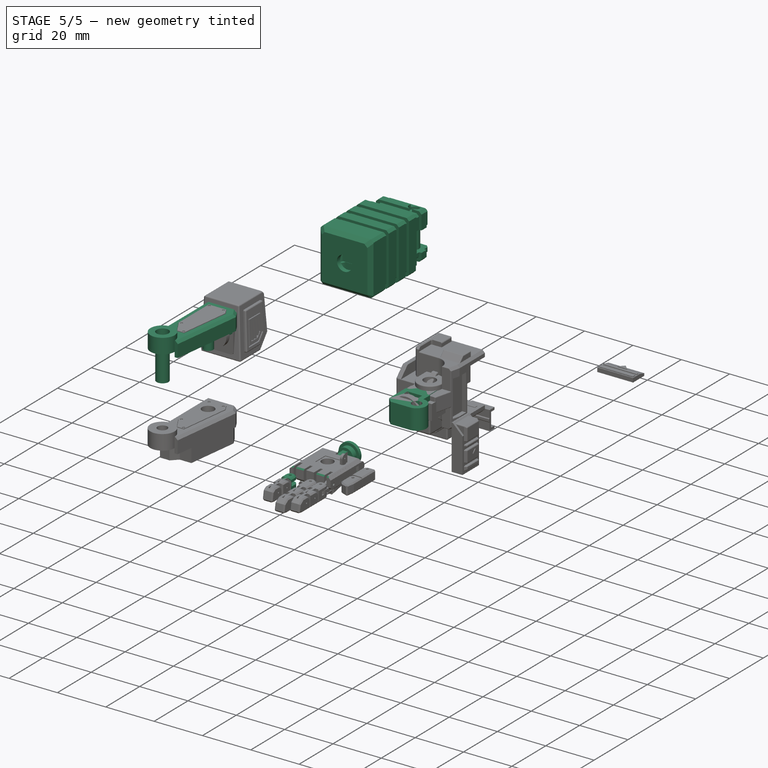
[diagram: stage 5 of 5 — iso view after this stage's code; geometry added in this stage tinted green]
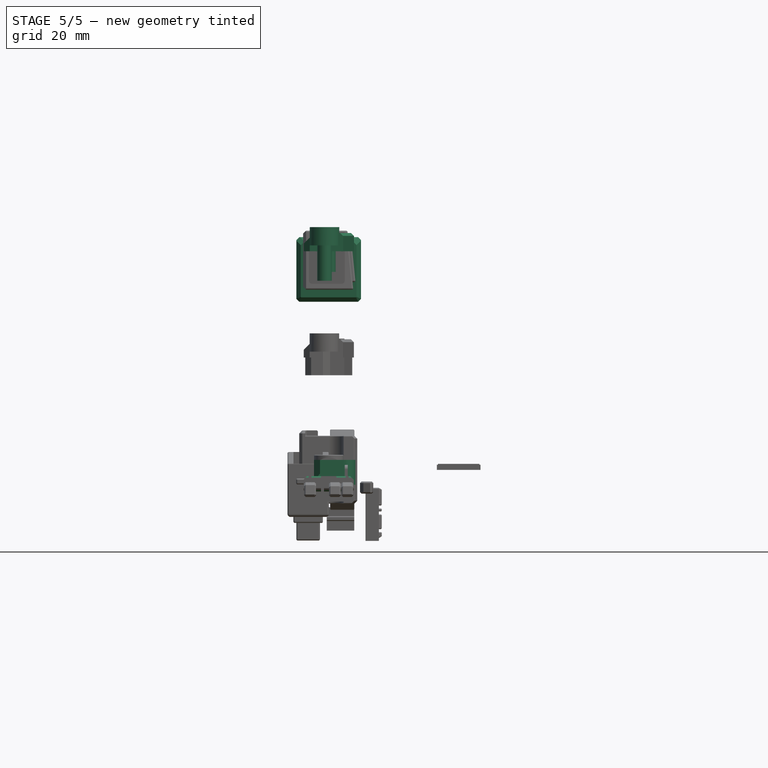
[diagram: stage 5 of 5 — front view after this stage's code; geometry added in this stage tinted green]
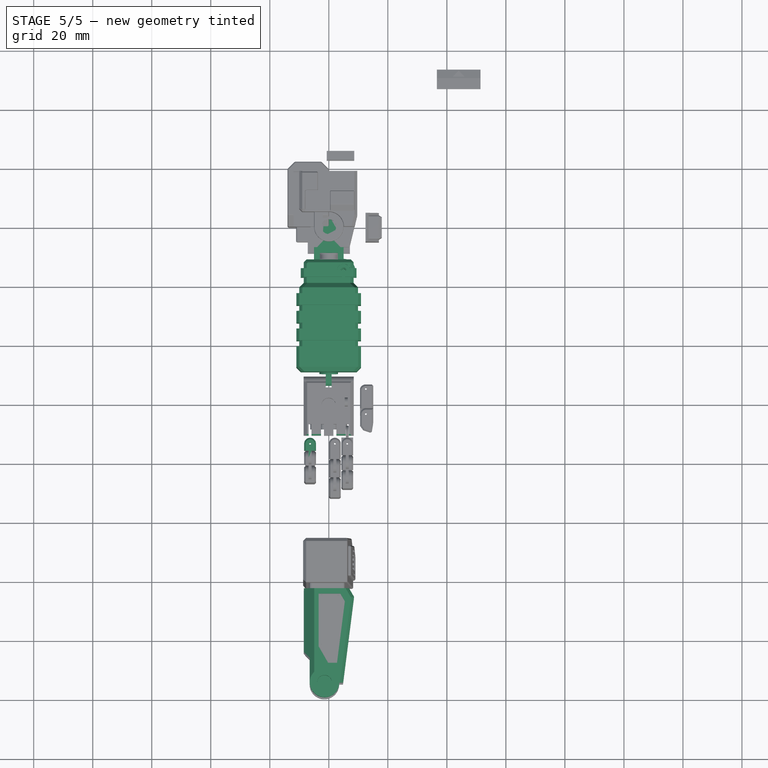
[diagram: stage 5 of 5 — top view after this stage's code; geometry added in this stage tinted green]
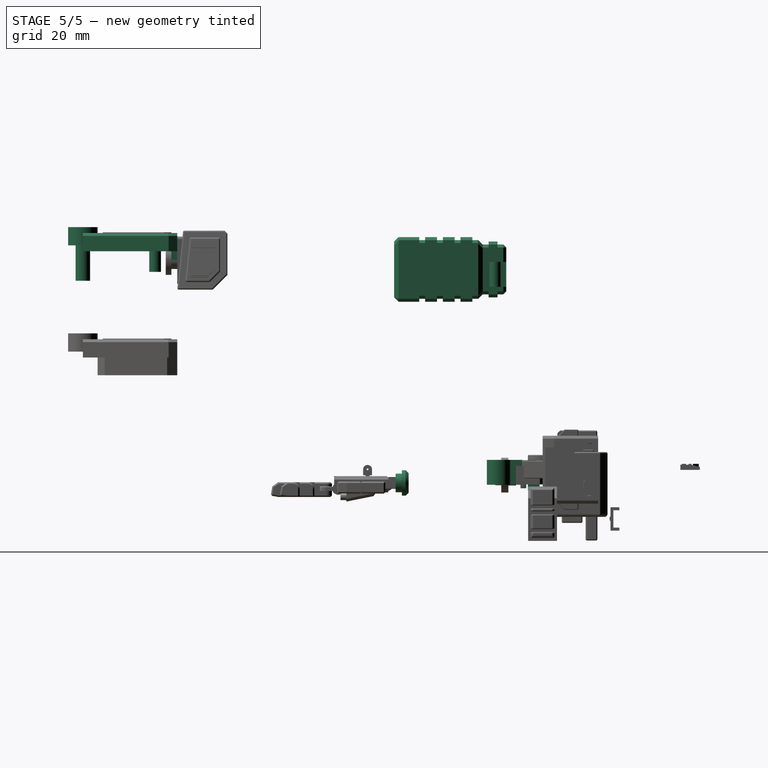
[diagram: stage 5 of 5 — right view after this stage's code; geometry added in this stage tinted green]
FEATURE [PartDesign::SubShapeBinder] Binder030
  BindCopyOnChange = 0
  BindMode = 2
  ClaimChildren = false
  Fuse = false
  MakeFace = true
  OffsetFill = false
  OffsetIntersection = false
  OffsetJoinType = 0
  OffsetOpenResult = false
  PartialLoad = false
  Refine = true
  Relative = true
  _Version = 2
FEATURE [PartDesign::SubShapeBinder] Binder033
  BindCopyOnChange = 0
  BindMode = 2
  ClaimChildren = false
  Fuse = false
  MakeFace = true
  OffsetFill = false
  OffsetIntersection = false
  OffsetJoinType = 0
  OffsetOpenResult = false
  PartialLoad = false
  Refine = true
  Relative = true
  _Version = 2
FEATURE [PartDesign::SubShapeBinder] Binder034
  BindCopyOnChange = 0
  BindMode = 2
  ClaimChildren = false
  Fuse = false
  MakeFace = true
  OffsetFill = false
  OffsetIntersection = false
  OffsetJoinType = 0
  OffsetOpenResult = false
  PartialLoad = false
  Refine = true
  Relative = true
  _Version = 2
FEATURE [PartDesign::SubShapeBinder] Binder035
  BindCopyOnChange = 0
  BindMode = 2
  ClaimChildren = false
  Fuse = false
  MakeFace = true
  OffsetFill = false
  OffsetIntersection = false
  OffsetJoinType = 0
  OffsetOpenResult = false
  PartialLoad = false
  Refine = true
  Relative = true
  _Version = 2
FEATURE [PartDesign::SubShapeBinder] Binder040
  BindCopyOnChange = 0
  BindMode = 2
  ClaimChildren = false
  Fuse = false
  MakeFace = true
  OffsetFill = false
  OffsetIntersection = false
  OffsetJoinType = 0
  OffsetOpenResult = false
  PartialLoad = false
  Refine = true
  Relative = true
  _Version = 2
FEATURE [PartDesign::SubShapeBinder] Binder041
  BindCopyOnChange = 0
  BindMode = 2
  ClaimChildren = false
  Fuse = false
  MakeFace = true
  OffsetFill = false
  OffsetIntersection = false
  OffsetJoinType = 0
  OffsetOpenResult = false
  PartialLoad = false
  Refine = true
  Relative = true
  _Version = 2
FEATURE [PartDesign::SubShapeBinder] Binder042
  BindCopyOnChange = 0
  BindMode = 2
  ClaimChildren = false
  Fuse = false
  MakeFace = true
  OffsetFill = false
  OffsetIntersection = false
  OffsetJoinType = 0
  OffsetOpenResult = false
  PartialLoad = false
  Refine = true
  Relative = true
  _Version = 2
FEATURE [PartDesign::SubShapeBinder] Binder046 .. Binder051  x6 (patterned run collapsed; names and placements below)
  BindCopyOnChange = 0
  BindMode = 2
  ClaimChildren = false
  Fuse = false
  MakeFace = true
  OffsetFill = false
  OffsetIntersection = false
  OffsetJoinType = 0
  OffsetOpenResult = false
  PartialLoad = false
  Refine = true
  Relative = true
  _Version = 2
FEATURE [Sketcher::SketchObject] Sketch721
  ArcFitTolerance = 1e-06
  AttachmentSupport = -> [Binder030]
  ExternalGeometry = -> [Binder030]
  FullyConstrained = true
  MakeInternals = false
  MapMode = 5
  Placement = pos=(0,-47.7,0) rot=(0,0.707107,0.707107;3.14159rad)
  sketch-geometry (1):
    g0: Circle CenterX=0.05 CenterY=0.5 CenterZ=0 NormalX=0 NormalY=0 NormalZ=1 AngleXU=0 Radius=3.15
  constraints (2):
    c: Coincident(g0,g-3)
    c: Equal(g0,g-3)
FEATURE [PartDesign::Pad] Pad451
  Direction = (0,1,-2e-16)
  Length = 2.1
  Length2 = 10
  Profile = -> Sketch721
  ReferenceAxis = -> Sketch721 [N_Axis]
  Refine = true
  Reversed = true
  Suppressed = false
  Type = 0
FEATURE [Sketcher::SketchObject] Sketch722
  ArcFitTolerance = 1e-06
  AttachmentSupport = -> [Pad451]
  ExternalGeometry = -> [Pad451]
  FullyConstrained = true
  MakeInternals = false
  MapMode = 5
  Placement = pos=(0,-47.7,0) rot=(0,0.707107,0.707107;3.14159rad)
  sketch-geometry (1):
    g0: Circle CenterX=0.05 CenterY=0.5 CenterZ=0 NormalX=0 NormalY=0 NormalZ=1 AngleXU=0 Radius=4.3
  constraints (2):
    c: Coincident(g0,g-3)
    c: Radius(g0) = 4.3
FEATURE [PartDesign::Pad] Pad452
  BaseFeature = -> Pad451
  Direction = (0,1,-2e-16)
  Length = 2.3
  Length2 = 10
  Profile = -> Sketch722
  ReferenceAxis = -> Sketch722 [N_Axis]
  Refine = true
  Suppressed = false
  Type = 0
FEATURE [PartDesign::Chamfer] Chamfer015
  Angle = 45
  Base = -> Pad452 [Edge6]
  BaseFeature = -> Pad452
  ChamferType = 0
  FlipDirection = false
  Refine = true
  Size = 1
  Size2 = 1
  SupportTransform = false
  Suppressed = false
  UseAllEdges = false
FEATURE [Sketcher::SketchObject] Sketch723
  ArcFitTolerance = 1e-06
  AttachmentSupport = -> [Chamfer015]
  ExternalGeometry = -> [Chamfer015]
  FullyConstrained = true
  MakeInternals = false
  MapMode = 5
  Placement = pos=(0,-49.8,0) rot=(1,0,0;1.5708rad)
  sketch-geometry (4):
    g0: ArcOfCircle CenterX=-0.05 CenterY=0.5 CenterZ=0 NormalX=0 NormalY=0 NormalZ=1 AngleXU=0 Radius=3.15 StartAngle=1.24775 EndAngle=1.89385
    g1: ArcOfCircle CenterX=-0.05 CenterY=0.5 CenterZ=0 NormalX=0 NormalY=0 NormalZ=1 AngleXU=0 Radius=3.15 StartAngle=4.38934 EndAngle=5.03544
    g2: LineSegment StartX=-1.05 StartY=3.48706 StartZ=0 EndX=-1.05 EndY=-2.48706 EndZ=0
    g3: LineSegment StartX=0.95 StartY=-2.48706 StartZ=0 EndX=0.95 EndY=3.48706 EndZ=0
  constraints (12):
    c: Tangent(g0,g-3) = -1.5708
    c: PointOnObject(g0,g-3)
    c: Tangent(g1,g-3) = -1.5708
    c: PointOnObject(g1,g-3)
    c: Coincident(g2,g0)
    c: Coincident(g2,g1)
    c: Coincident(g3,g1)
    c: Coincident(g3,g0)
    c: Vertical(g3)
    c: Vertical(g2)
    c: DistanceX(g0,g0) = 1
    c: DistanceX(g0,g0) = 1
FEATURE [PartDesign::Pad] Pad453
  BaseFeature = -> Chamfer015
  Direction = (0,-1,2e-16)
  Length = 6
  Length2 = 10
  Profile = -> Sketch723
  ReferenceAxis = -> Sketch723 [N_Axis]
  Refine = true
  Suppressed = false
  Type = 0
FEATURE [Sketcher::SketchObject] Sketch724
  ArcFitTolerance = 1e-06
  AttachmentSupport = -> [Pad453]
  ExternalGeometry = -> [Pad453]
  FullyConstrained = true
  MakeInternals = false
  MapMode = 5
  Placement = pos=(0.95,0,0) rot=(0.57735,0.57735,0.57735;2.0944rad)
  sketch-geometry (1):
    g0: Circle CenterX=-53.8 CenterY=0.5 CenterZ=0 NormalX=0 NormalY=0 NormalZ=1 AngleXU=0 Radius=2
  constraints (4):
    c: Tangent(g0,g-3)
    c: DistanceY(g-4,g-5) = 6.3
    c: DistanceY(g0,g-5) = 3.15
    c: Radius(g0) = 2
FEATURE [PartDesign::Pad] Pad454
  BaseFeature = -> Pad453
  Direction = (1,0,0)
  Length = 2
  Length2 = 10
  Profile = -> Sketch724
  ReferenceAxis = -> Sketch724 [N_Axis]
  Refine = true
  Suppressed = false
  Type = 0
FEATURE [PartDesign::Pad] Pad455
  BaseFeature = -> Pad454
  Direction = (1,0,0)
  Length = 4
  Length2 = 10
  Profile = -> Sketch724
  ReferenceAxis = -> Sketch724 [N_Axis]
  Refine = true
  Reversed = true
  Suppressed = false
  Type = 0
FEATURE [Sketcher::SketchObject] Sketch725
  ArcFitTolerance = 1e-06
  AttachmentSupport = -> [Pad455]
  ExternalGeometry = -> [Pad455]
  FullyConstrained = true
  MakeInternals = false
  MapMode = 5
  Placement = pos=(-1.05,0,0) rot=(0.57735,-0.57735,-0.57735;2.0944rad)
  sketch-geometry (8):
    g0: LineSegment StartX=55.8 StartY=0.5 StartZ=0 EndX=55.8 EndY=-2.65 EndZ=0
    g1: LineSegment StartX=55.8 StartY=-2.65 StartZ=0 EndX=53.8 EndY=-2.65 EndZ=0
    g2: LineSegment StartX=55.8 StartY=0.5 StartZ=0 EndX=55.8 EndY=3.65 EndZ=0
    g3: LineSegment StartX=55.8 StartY=3.65 StartZ=0 EndX=53.8 EndY=3.65 EndZ=0
    g4: ArcOfCircle CenterX=53.8 CenterY=0.5 CenterZ=0 NormalX=0 NormalY=0 NormalZ=1 AngleXU=0 Radius=2 StartAngle=-6.279e-13 EndAngle=1.5708
    g5: ArcOfCircle CenterX=53.8 CenterY=0.5 CenterZ=0 NormalX=0 NormalY=0 NormalZ=1 AngleXU=0 Radius=2 StartAngle=4.71239 EndAngle=6.28319
    g6: LineSegment StartX=53.8 StartY=-1.5 StartZ=0 EndX=53.8 EndY=-2.65 EndZ=0
    g7: LineSegment StartX=53.8 StartY=2.5 StartZ=0 EndX=53.8 EndY=3.65 EndZ=0
  constraints (21):
    c: Coincident(g1,g0)
    c: Horizontal(g1)
    c: Coincident(g2,g0)
    c: Coincident(g2,g-4)
    c: Coincident(g3,g2)
    c: Horizontal(g3)
    c: Coincident(g4,g0)
    c: Tangent(g4,g-7) = -1.5708
    c: Coincident(g5,g0)
    c: Tangent(g5,g-7) = -1.5708
    c: Coincident(g6,g5)
    c: Coincident(g6,g1)
    c: Coincident(g7,g4)
    c: Coincident(g7,g3)
    c: Vertical(g7)
    c: Vertical(g6)
    c: Radius(g4) = 2
    c: DistanceX(g4,g5) = 0
    c: Coincident(g0,g-6)
    c: Coincident(g0,g-5)
    c: DistanceX(g3,g3) = 2
FEATURE [PartDesign::Pocket] Pocket389
  BaseFeature = -> Pad455
  Direction = (1,0,0)
  Length = 5
  Length2 = 5
  Profile = -> Sketch725
  ReferenceAxis = -> Sketch725 [N_Axis]
  Refine = true
  Suppressed = false
  Type = 0
FEATURE [Sketcher::SketchObject] Sketch726
  ArcFitTolerance = 1e-06
  AttachmentSupport = -> [Pocket389]
  ExternalGeometry = -> [Pocket389]
  FullyConstrained = true
  MakeInternals = false
  MapMode = 5
  Placement = pos=(-1.05,0,0) rot=(0.57735,-0.57735,-0.57735;2.0944rad)
  sketch-geometry (8):
    g0: LineSegment StartX=53.8 StartY=-1.5 StartZ=0 EndX=53.8 EndY=-2.65 EndZ=0
    g1: LineSegment StartX=53.8 StartY=-2.65 StartZ=0 EndX=49.8 EndY=-2.65 EndZ=0
    g2: LineSegment StartX=53.8 StartY=2.5 StartZ=0 EndX=53.8 EndY=3.65 EndZ=0
    g3: LineSegment StartX=53.8 StartY=3.65 StartZ=0 EndX=49.8 EndY=3.65 EndZ=0
    g4: LineSegment StartX=49.8 StartY=-2.65 StartZ=0 EndX=49.8 EndY=-1.5 EndZ=0
    g5: LineSegment StartX=53.8 StartY=-1.5 StartZ=0 EndX=49.8 EndY=-1.5 EndZ=0
    g6: LineSegment StartX=53.8 StartY=2.5 StartZ=0 EndX=49.8 EndY=2.5 EndZ=0
    g7: LineSegment StartX=49.8 StartY=3.65 StartZ=0 EndX=49.8 EndY=2.5 EndZ=0
  constraints (21):
    c: Coincident(g0,g-5)
    c: Coincident(g0,g-7)
    c: Coincident(g1,g0)
    c: Horizontal(g1)
    c: DistanceX(g1,g-6) = 0
    c: Coincident(g2,g-3)
    c: Coincident(g2,g-4)
    c: Coincident(g3,g2)
    c: Horizontal(g3)
    c: DistanceX(g3,g-8) = 0
    c: Coincident(g4,g1)
    c: PointOnObject(g4,g-6)
    c: Coincident(g5,g0)
    c: Coincident(g5,g4)
    c: Horizontal(g5)
    c: Coincident(g6,g2)
    c: PointOnObject(g6,g-8)
    c: Horizontal(g6)
    c: Coincident(g7,g3)
    c: Coincident(g7,g6)
    c: Radius(g-9) = 2
FEATURE [PartDesign::Pocket] Pocket390
  BaseFeature = -> Pocket389
  Direction = (1,0,0)
  Length = 5
  Length2 = 5
  Profile = -> Sketch726
  ReferenceAxis = -> Sketch726 [N_Axis]
  Refine = true
  Suppressed = false
  Type = 0
FEATURE [Sketcher::SketchObject] Sketch803
  ArcFitTolerance = 1e-06
  AttachmentSupport = -> [Binder040]
  ExternalGeometry = -> [Binder040]
  FullyConstrained = false
  MakeInternals = false
  MapMode = 5
  Placement = pos=(0,0,-0.75) rot=(0,0,1;0rad)
  sketch-geometry (4):
    g0: ArcOfCircle CenterX=6.25 CenterY=-73.3807 CenterZ=0 NormalX=0 NormalY=0 NormalZ=1 AngleXU=0 Radius=2 StartAngle=9e-16 EndAngle=3.14159
    g1: LineSegment StartX=4.25 StartY=-73.3807 StartZ=0 EndX=4.25 EndY=-77.2807 EndZ=0
    g2: LineSegment StartX=4.25 StartY=-77.2807 StartZ=0 EndX=8.25 EndY=-77.2807 EndZ=0
    g3: LineSegment StartX=8.25 StartY=-73.3807 StartZ=0 EndX=8.25 EndY=-77.2807 EndZ=0
  constraints (8):
    c: Coincident(g0,g-6)
    c: Coincident(g0,g-5)
    c: Coincident(g2,g1)
    c: Horizontal(g2)
    c: Coincident(g3,g2)
    c: Vertical(g1)
    c: Vertical(g3)
    c: DistanceY(g3,g3) = 3.9
FEATURE [PartDesign::Pad] Pad504
  Direction = (0,0,1)
  Length = 1.5
  Length2 = 10
  Profile = -> Sketch803
  ReferenceAxis = -> Sketch803 [N_Axis]
  Refine = true
  Suppressed = false
  Type = 0
FEATURE [Sketcher::SketchObject] Sketch804
  ArcFitTolerance = 1e-06
  AttachmentSupport = -> [Pad504]
  ExternalGeometry = -> [Pad504]
  FullyConstrained = true
  MakeInternals = false
  MapMode = 5
  Placement = pos=(0,0,-0.75) rot=(1,0,0;3.14159rad)
  sketch-geometry (4):
    g0: LineSegment StartX=8.25 StartY=77.2807 StartZ=0 EndX=8.25 EndY=75.4807 EndZ=0
    g1: LineSegment StartX=4.25 StartY=77.2807 StartZ=0 EndX=4.25 EndY=75.4807 EndZ=0
    g2: LineSegment StartX=4.25 StartY=75.4807 StartZ=0 EndX=8.25 EndY=75.4807 EndZ=0
    g3: LineSegment StartX=8.25 StartY=77.2807 StartZ=0 EndX=4.25 EndY=77.2807 EndZ=0
  constraints (10):
    c: PointOnObject(g0,g-3)
    c: PointOnObject(g1,g-4)
    c: Coincident(g2,g1)
    c: Coincident(g2,g0)
    c: Horizontal(g2)
    c: DistanceY(g0,g0) = 1.8
    c: Coincident(g3,g0)
    c: Coincident(g3,g1)
    c: Coincident(g1,g-5)
    c: Coincident(g0,g-5)
FEATURE [PartDesign::Pad] Pad505
  BaseFeature = -> Pad504
  Direction = (0,0,-1)
  Length = 1.5
  Length2 = 10
  Profile = -> Sketch804
  ReferenceAxis = -> Sketch804 [N_Axis]
  Refine = true
  Suppressed = false
  Type = 0
FEATURE [Sketcher::SketchObject] Sketch805
  ArcFitTolerance = 1e-06
  AttachmentSupport = -> [Pad505]
  ExternalGeometry = -> [Pad505]
  FullyConstrained = true
  MakeInternals = false
  MapMode = 5
  Placement = pos=(0,0,-2.25) rot=(1,0,0;3.14159rad)
  sketch-geometry (4):
    g0: LineSegment StartX=4.25 StartY=77.2807 StartZ=0 EndX=4.25 EndY=73.3807 EndZ=0
    g1: LineSegment StartX=4.25 StartY=77.2807 StartZ=0 EndX=8.25 EndY=77.2807 EndZ=0
    g2: LineSegment StartX=8.25 StartY=77.2807 StartZ=0 EndX=8.25 EndY=73.3807 EndZ=0
    g3: ArcOfCircle CenterX=6.25 CenterY=73.3807 CenterZ=0 NormalX=0 NormalY=0 NormalZ=1 AngleXU=0 Radius=2 StartAngle=3.14159 EndAngle=6.28319
  constraints (9):
    c: Coincident(g0,g-5)
    c: Coincident(g0,g-7)
    c: Coincident(g1,g0)
    c: Coincident(g1,g-4)
    c: Coincident(g2,g1)
    c: Coincident(g2,g-6)
    c: Coincident(g3,g0)
    c: Coincident(g3,g2)
    c: DistanceY(g3,g0) = 0
FEATURE [PartDesign::Pad] Pad506
  BaseFeature = -> Pad505
  Direction = (0,0,-1)
  Length = 1.5
  Length2 = 10
  Profile = -> Sketch805
  ReferenceAxis = -> Sketch805 [N_Axis]
  Refine = true
  Suppressed = false
  Type = 0
FEATURE [Sketcher::SketchObject] Sketch806
  ArcFitTolerance = 1e-06
  AttachmentOffset = pos=(0,0,-1.5) rot=(0,0,1;0rad)
  AttachmentSupport = -> [Pad506]
  ExternalGeometry = -> [Pad506]
  FullyConstrained = true
  MakeInternals = false
  MapMode = 5
  Placement = pos=(6.75,6.38e-13,-5.125e-13) rot=(0.57735,0.57735,0.57735;2.0944rad)
  sketch-geometry (4):
    g0: LineSegment StartX=-77.2807 StartY=0.75 StartZ=0 EndX=-79.5807 EndY=0.75 EndZ=0
    g1: LineSegment StartX=-77.2807 StartY=0.75 StartZ=0 EndX=-77.2807 EndY=-3.75 EndZ=0
    g2: LineSegment StartX=-77.2807 StartY=-3.75 StartZ=0 EndX=-79.5807 EndY=-3.75 EndZ=0
    g3: ArcOfCircle CenterX=-79.5807 CenterY=-1.5 CenterZ=0 NormalX=0 NormalY=0 NormalZ=1 AngleXU=0 Radius=2.25 StartAngle=1.5708 EndAngle=4.71239
  constraints (11):
    c: Coincident(g0,g-3)
    c: Horizontal(g0)
    c: Coincident(g1,g0)
    c: Coincident(g1,g-3)
    c: Coincident(g2,g1)
    c: Horizontal(g2)
    c: Coincident(g3,g2)
    c: Coincident(g3,g0)
    c: DistanceX(g0,g3) = 0
    c: DistanceX(g2,g3) = 0
    c: DistanceX(g0,g0) = 2.3
FEATURE [PartDesign::Pad] Pad507
  BaseFeature = -> Pad506
  Direction = (1,9.46e-14,-7.59e-14)
  Length = 1
  Length2 = 10
  Profile = -> Sketch806
  ReferenceAxis = -> Sketch806 [N_Axis]
  Refine = true
  Reversed = true
  Suppressed = false
  Type = 0
FEATURE [Sketcher::SketchObject] Sketch807
  ArcFitTolerance = 1e-06
  AttachmentSupport = -> [Pad507]
  ExternalGeometry = -> [Pad507]
  FullyConstrained = true
  MakeInternals = false
  MapMode = 5
  Placement = pos=(6.75,6.378e-13,-5.125e-13) rot=(0.57735,0.57735,0.57735;2.0944rad)
  sketch-geometry (1):
    g0: Circle CenterX=-79.5807 CenterY=-1.5 CenterZ=0 NormalX=0 NormalY=0 NormalZ=1 AngleXU=0 Radius=0.3
  constraints (2):
    c: Coincident(g0,g-3)
    c: Radius(g0) = 0.3
FEATURE [PartDesign::Pocket] Pocket448
  BaseFeature = -> Pad507
  Direction = (-1,-9.46e-14,7.59e-14)
  Length = 5
  Length2 = 5
  Profile = -> Sketch807
  ReferenceAxis = -> Sketch807 [N_Axis]
  Refine = true
  Suppressed = false
  Type = 0
FEATURE [Sketcher::SketchObject] Sketch808
  ArcFitTolerance = 1e-06
  AttachmentSupport = -> [Pocket448]
  ExternalGeometry = -> [Pocket448]
  FullyConstrained = true
  MakeInternals = false
  MapMode = 5
  Placement = pos=(1.6e-15,1.04e-14,0.75) rot=(0,0,1;0rad)
  sketch-geometry (1):
    g0: Circle CenterX=6.25 CenterY=-73.3807 CenterZ=0 NormalX=0 NormalY=0 NormalZ=1 AngleXU=0 Radius=0.3
  constraints (2):
    c: Coincident(g0,g-3)
    c: Radius(g0) = 0.3
FEATURE [PartDesign::Pocket] Pocket449
  BaseFeature = -> Pocket448
  Direction = (-2.1e-15,-1.39e-14,-1)
  Length = 5
  Length2 = 5
  Profile = -> Sketch808
  ReferenceAxis = -> Sketch808 [N_Axis]
  Refine = true
  Suppressed = false
  Type = 0
FEATURE [Sketcher::SketchObject] Sketch809
  ArcFitTolerance = 1e-06
  AttachmentSupport = -> [Pocket449]
  ExternalGeometry = -> [Pocket449]
  FullyConstrained = true
  MakeInternals = false
  MapMode = 5
  Placement = pos=(1.6e-15,1.04e-14,0.75) rot=(0,0,1;0rad)
  sketch-geometry (1):
    g0: Circle CenterX=6.25 CenterY=-73.3807 CenterZ=0 NormalX=0 NormalY=0 NormalZ=1 AngleXU=0 Radius=0.5
  constraints (2):
    c: Coincident(g0,g-3)
    c: Radius(g0) = 0.5
FEATURE [PartDesign::Pocket] Pocket450
  BaseFeature = -> Pocket449
  Direction = (-2.1e-15,-1.39e-14,-1)
  Length = 0.5
  Length2 = 5
  Profile = -> Sketch809
  ReferenceAxis = -> Sketch809 [N_Axis]
  Refine = true
  Suppressed = false
  Type = 0
FEATURE [PartDesign::Chamfer] Chamfer021
  Angle = 45
  Base = -> Pocket450 [Edge9,Edge15,Edge11,Edge13]
  BaseFeature = -> Pocket450
  ChamferType = 0
  FlipDirection = false
  Refine = true
  Size = 0.5
  Size2 = 1
  SupportTransform = false
  Suppressed = false
  UseAllEdges = false
FEATURE [PartDesign::Chamfer] Chamfer027
  Angle = 45
  Base = -> Pad529 [Edge19,Edge8,Edge14,Edge17,Edge26,Edge9]
  BaseFeature = -> Pad529
  ChamferType = 0
  FlipDirection = false
  Refine = true
  Size = 0.7
  Size2 = 1
  SupportTransform = false
  Suppressed = false
  UseAllEdges = false
FEATURE [Sketcher::SketchObject] Sketch846
  ArcFitTolerance = 1e-06
  AttachmentSupport = -> [Chamfer027]
  ExternalGeometry = -> [Chamfer027]
  FullyConstrained = true
  MakeInternals = false
  MapMode = 5
  Placement = pos=(1.55,5.4258e-12,8.0413e-12) rot=(0.57735,-0.57735,-0.57735;2.0944rad)
  sketch-geometry (1):
    g0: Circle CenterX=80.8807 CenterY=-1.5 CenterZ=0 NormalX=0 NormalY=0 NormalZ=1 AngleXU=0 Radius=0.3
  constraints (2):
    c: Coincident(g0,g-3)
    c: Radius(g0) = 0.3
FEATURE [PartDesign::Pocket] Pocket465
  BaseFeature = -> Chamfer027
  Direction = (1,3.5004e-12,5.1877e-12)
  Length = 5
  Length2 = 5
  Profile = -> Sketch846
  ReferenceAxis = -> Sketch846 [N_Axis]
  Refine = true
  Suppressed = false
  Type = 0
FEATURE [Sketcher::SketchObject] Sketch847
  ArcFitTolerance = 1e-06
  AttachmentSupport = -> [Binder047]
  ExternalGeometry = -> [Binder047]
  FullyConstrained = true
  MakeInternals = false
  MapMode = 5
  Placement = pos=(0,0,-2.25) rot=(1,0,0;3.14159rad)
  sketch-geometry (5):
    g0: ArcOfCircle CenterX=-6.35 CenterY=73.3807 CenterZ=0 NormalX=0 NormalY=0 NormalZ=1 AngleXU=0 Radius=2 StartAngle=3.14159 EndAngle=6.28319
    g1: LineSegment StartX=-4.35 StartY=73.3807 StartZ=0 EndX=-4.35 EndY=75.7807 EndZ=0
    g2: LineSegment StartX=-4.35 StartY=75.7807 StartZ=0 EndX=-8.35 EndY=75.7807 EndZ=0
    g3: LineSegment StartX=-8.35 StartY=75.7807 StartZ=0 EndX=-8.35 EndY=73.3807 EndZ=0
    g4: Circle CenterX=-6.35 CenterY=73.3807 CenterZ=0 NormalX=0 NormalY=0 NormalZ=1 AngleXU=0 Radius=0.3
  constraints (13):
    c: Coincident(g0,g-11)
    c: Coincident(g0,g-5)
    c: Coincident(g1,g0)
    c: Vertical(g1)
    c: Coincident(g2,g1)
    c: Horizontal(g2)
    c: Coincident(g3,g2)
    c: Coincident(g3,g0)
    c: Vertical(g3)
    c: DistanceY(g3,g3) = 2.4
    c: Coincident(g4,g0)
    c: Radius(g4) = 0.3
    c: DistanceY(g0,g0) = 0
FEATURE [PartDesign::Pad] Pad530
  Direction = (0,0,-1)
  Length = 1.5
  Length2 = 10
  Profile = -> Sketch847
  ReferenceAxis = -> Sketch847 [N_Axis]
  Refine = true
  Suppressed = false
  Type = 0
FEATURE [Sketcher::SketchObject] Sketch848
  ArcFitTolerance = 1e-06
  AttachmentSupport = -> [Pad530]
  ExternalGeometry = -> [Pad530]
  FullyConstrained = true
  MakeInternals = false
  MapMode = 5
  Placement = pos=(0,0,-2.25) rot=(0,0,1;0rad)
  sketch-geometry (4):
    g0: LineSegment StartX=-8.35 StartY=-75.7807 StartZ=0 EndX=-4.35 EndY=-75.7807 EndZ=0
    g1: LineSegment StartX=-4.35 StartY=-75.7807 StartZ=0 EndX=-4.35 EndY=-75.4307 EndZ=0
    g2: LineSegment StartX=-4.35 StartY=-75.4307 StartZ=0 EndX=-8.35 EndY=-75.4307 EndZ=0
    g3: LineSegment StartX=-8.35 StartY=-75.4307 StartZ=0 EndX=-8.35 EndY=-75.7807 EndZ=0
  constraints (10):
    c: Coincident(g0,g-5)
    c: Coincident(g0,g-4)
    c: Coincident(g1,g0)
    c: PointOnObject(g1,g-3)
    c: Coincident(g2,g1)
    c: PointOnObject(g2,g-5)
    c: Horizontal(g2)
    c: Coincident(g3,g2)
    c: Coincident(g3,g0)
    c: DistanceY(g3,g3) = 0.35
FEATURE [PartDesign::Pad] Pad531
  BaseFeature = -> Pad530
  Direction = (0,0,1)
  Length = 1.5
  Length2 = 10
  Profile = -> Sketch848
  ReferenceAxis = -> Sketch848 [N_Axis]
  Refine = true
  Suppressed = false
  Type = 0
FEATURE [Sketcher::SketchObject] Sketch849
  ArcFitTolerance = 1e-06
  AttachmentSupport = -> [Pad531]
  ExternalGeometry = -> [Pad531]
  FullyConstrained = true
  MakeInternals = false
  MapMode = 5
  Placement = pos=(0,0,-0.75) rot=(0,0,1;0rad)
  sketch-geometry (5):
    g0: LineSegment StartX=-8.35 StartY=-75.7807 StartZ=0 EndX=-4.35 EndY=-75.7807 EndZ=0
    g1: LineSegment StartX=-4.35 StartY=-75.7807 StartZ=0 EndX=-4.35 EndY=-73.3807 EndZ=0
    g2: LineSegment StartX=-8.35 StartY=-75.7807 StartZ=0 EndX=-8.35 EndY=-73.3807 EndZ=0
    g3: ArcOfCircle CenterX=-6.35 CenterY=-73.3807 CenterZ=0 NormalX=0 NormalY=0 NormalZ=1 AngleXU=0 Radius=2 StartAngle=2.5e-06 EndAngle=3.14159
    g4: Circle CenterX=-6.35 CenterY=-73.3807 CenterZ=0 NormalX=0 NormalY=0 NormalZ=1 AngleXU=0 Radius=0.300001
  constraints (11):
    c: Coincident(g0,g-4)
    c: Coincident(g0,g-6)
    c: Coincident(g1,g0)
    c: Coincident(g1,g-6)
    c: Coincident(g2,g0)
    c: Coincident(g2,g-5)
    c: Coincident(g3,g2)
    c: Coincident(g3,g1)
    c: Tangent(g3,g-5)
    c: Coincident(g4,g3)
    c: Tangent(g4,g-7)
FEATURE [PartDesign::Pad] Pad532
  BaseFeature = -> Pad531
  Direction = (0,0,1)
  Length = 1.5
  Length2 = 10
  Profile = -> Sketch849
  ReferenceAxis = -> Sketch849 [N_Axis]
  Refine = true
  Suppressed = false
  Type = 0
FEATURE [Sketcher::SketchObject] Sketch850
  ArcFitTolerance = 1e-06
  AttachmentOffset = pos=(0,0,-1.5) rot=(0,0,1;0rad)
  AttachmentSupport = -> [Pad532]
  ExternalGeometry = -> [Pad532]
  FullyConstrained = true
  MakeInternals = false
  MapMode = 5
  Placement = pos=(-6.85,1.5466e-12,8.272e-13) rot=(-0.57735,0.57735,0.57735;4.18879rad)
  sketch-geometry (4):
    g0: LineSegment StartX=75.7807 StartY=0.75 StartZ=0 EndX=78.0807 EndY=0.75 EndZ=0
    g1: LineSegment StartX=75.7807 StartY=-3.75 StartZ=0 EndX=78.0807 EndY=-3.75 EndZ=0
    g2: ArcOfCircle CenterX=78.0807 CenterY=-1.5 CenterZ=0 NormalX=0 NormalY=0 NormalZ=1 AngleXU=0 Radius=2.25 StartAngle=4.7124 EndAngle=7.85397
    g3: LineSegment StartX=75.7807 StartY=0.75 StartZ=0 EndX=75.7807 EndY=-3.75 EndZ=0
  constraints (11):
    c: Coincident(g0,g-3)
    c: Horizontal(g0)
    c: Coincident(g1,g-3)
    c: Horizontal(g1)
    c: Coincident(g2,g0)
    c: Coincident(g2,g1)
    c: DistanceX(g0,g0) = 2.3
    c: DistanceX(g1,g1) = 2.3
    c: Radius(g2) = 2.25
    c: Coincident(g3,g0)
    c: Coincident(g3,g1)
FEATURE [PartDesign::Pad] Pad533
  BaseFeature = -> Pad532
  Direction = (-1,2.257e-13,1.207e-13)
  Length = 1
  Length2 = 10
  Profile = -> Sketch850
  ReferenceAxis = -> Sketch850 [N_Axis]
  Refine = true
  Reversed = true
  Suppressed = false
  Type = 0
FEATURE [Sketcher::SketchObject] Sketch851
  ArcFitTolerance = 1e-06
  AttachmentSupport = -> [Pad533]
  ExternalGeometry = -> [Pad533]
  FullyConstrained = true
  MakeInternals = false
  MapMode = 5
  Placement = pos=(3.2e-15,-1.0447e-12,0.75) rot=(0,0,1;0rad)
  sketch-geometry (1):
    g0: Circle CenterX=-6.35 CenterY=-73.3807 CenterZ=0 NormalX=0 NormalY=0 NormalZ=1 AngleXU=0 Radius=0.5
  constraints (2):
    c: Coincident(g0,g-3)
    c: Radius(g0) = 0.5
FEATURE [PartDesign::Pocket] Pocket466
  BaseFeature = -> Pad533
  Direction = (-4.3e-15,1.3929e-12,-1)
  Length = 0.5
  Length2 = 5
  Profile = -> Sketch851
  ReferenceAxis = -> Sketch851 [N_Axis]
  Refine = true
  Suppressed = false
  Type = 0
FEATURE [Sketcher::SketchObject] Sketch852
  ArcFitTolerance = 1e-06
  AttachmentSupport = -> [Pocket466]
  ExternalGeometry = -> [Pocket466]
  FullyConstrained = true
  MakeInternals = false
  MapMode = 5
  Placement = pos=(-6.85,1.5467e-12,8.274e-13) rot=(-0.57735,0.57735,0.57735;4.18879rad)
  sketch-geometry (1):
    g0: Circle CenterX=78.0807 CenterY=-1.5 CenterZ=0 NormalX=0 NormalY=0 NormalZ=1 AngleXU=0 Radius=0.3
  constraints (2):
    c: Coincident(g0,g-3)
    c: Radius(g0) = 0.3
FEATURE [PartDesign::Pocket] Pocket467
  BaseFeature = -> Pocket466
  Direction = (1,-2.257e-13,-1.207e-13)
  Length = 5
  Length2 = 5
  Profile = -> Sketch852
  ReferenceAxis = -> Sketch852 [N_Axis]
  Refine = true
  Suppressed = false
  Type = 0
FEATURE [PartDesign::Chamfer] Chamfer028
  Angle = 45
  Base = -> Pocket467 [Edge9,Edge4,Edge13,Edge18,Edge28,Edge11]
  BaseFeature = -> Pocket467
  ChamferType = 0
  FlipDirection = false
  Refine = true
  Size = 0.7
  Size2 = 1
  SupportTransform = false
  Suppressed = false
  UseAllEdges = false
FEATURE [Sketcher::SketchObject] Sketch875
  ArcFitTolerance = 1e-06
  AttachmentSupport = -> [Chamfer021]
  ExternalGeometry = -> [Chamfer021]
  FullyConstrained = true
  MakeInternals = false
  MapMode = 5
  Placement = pos=(-7.8e-15,-5.7e-14,-3.75) rot=(1,0,0;3.14159rad)
  sketch-geometry (5):
    g0: LineSegment StartX=4.25 StartY=77.2807 StartZ=0 EndX=8.25 EndY=77.2807 EndZ=0
    g1: LineSegment StartX=8.25 StartY=77.2807 StartZ=0 EndX=8.25 EndY=73.3807 EndZ=0
    g2: LineSegment StartX=4.25 StartY=77.2807 StartZ=0 EndX=4.25 EndY=73.3807 EndZ=0
    g3: ArcOfCircle CenterX=6.25 CenterY=73.3807 CenterZ=0 NormalX=0 NormalY=0 NormalZ=1 AngleXU=0 Radius=2 StartAngle=3.14159 EndAngle=6.28318
    g4: Circle CenterX=6.25 CenterY=73.3807 CenterZ=0 NormalX=0 NormalY=0 NormalZ=1 AngleXU=0 Radius=0.299997
  constraints (11):
    c: Coincident(g0,g-5)
    c: Coincident(g0,g-4)
    c: Coincident(g1,g0)
    c: Coincident(g1,g-4)
    c: Coincident(g2,g0)
    c: Coincident(g2,g-5)
    c: Coincident(g3,g2)
    c: Coincident(g3,g1)
    c: Tangent(g3,g-6)
    c: Coincident(g4,g3)
    c: Tangent(g4,g-3)
FEATURE [PartDesign::Pad] Pad548
  BaseFeature = -> Chamfer021
  Direction = (-2.1e-15,-1.52e-14,-1)
  Length = 0.7
  Length2 = 10
  Profile = -> Sketch875
  ReferenceAxis = -> Sketch875 [N_Axis]
  Refine = true
  Reversed = true
  Suppressed = false
  Type = 0
FEATURE [PartDesign::Pad] Pad549
  BaseFeature = -> Pad548
  Direction = (-2.1e-15,-1.52e-14,-1)
  Length = 0.5
  Length2 = 10
  Profile = -> Sketch875
  ReferenceAxis = -> Sketch875 [N_Axis]
  Refine = true
  Suppressed = false
  Type = 0
FEATURE [PartDesign::Chamfer] Chamfer
  Angle = 45
  Base = -> Pad549 [Edge54,Edge55,Edge56]
  BaseFeature = -> Pad549
  ChamferType = 0
  FlipDirection = false
  Refine = true
  Size = 0.5
  Size2 = 1
  SupportTransform = false
  Suppressed = false
  UseAllEdges = false
FEATURE [Sketcher::SketchObject] Sketch923
  ArcFitTolerance = 1e-06
  AttachmentSupport = -> [Pocket465]
  ExternalGeometry = -> [Pocket465]
  FullyConstrained = true
  MakeInternals = false
  MapMode = 5
  Placement = pos=(4.438e-13,-1.83624e-11,-3.75) rot=(1,0,0;3.14159rad)
  sketch-geometry (8):
    g0: LineSegment StartX=0.05 StartY=78.5807 StartZ=0 EndX=0.05 EndY=73.3807 EndZ=0
    g1: ArcOfCircle CenterX=2.05 CenterY=73.3807 CenterZ=0 NormalX=0 NormalY=0 NormalZ=1 AngleXU=0 Radius=2 StartAngle=3.14159 EndAngle=6.28319
    g2: ArcOfCircle CenterX=2.05 CenterY=73.3807 CenterZ=0 NormalX=0 NormalY=0 NormalZ=1 AngleXU=0 Radius=1.3 StartAngle=3.14159 EndAngle=6.28319
    g3: LineSegment StartX=0.05 StartY=78.5807 StartZ=0 EndX=0.75 EndY=78.5807 EndZ=0
    g4: LineSegment StartX=0.75 StartY=78.5807 StartZ=0 EndX=0.75 EndY=73.3807 EndZ=0
    g5: LineSegment StartX=3.35 StartY=73.3807 StartZ=0 EndX=3.35 EndY=78.5807 EndZ=0
    g6: LineSegment StartX=3.35 StartY=78.5807 StartZ=0 EndX=4.05 EndY=78.5807 EndZ=0
    g7: LineSegment StartX=4.05 StartY=78.5807 StartZ=0 EndX=4.05 EndY=73.3807 EndZ=0
  constraints (18):
    c: Coincident(g0,g-4)
    c: Coincident(g0,g-4)
    c: Coincident(g1,g0)
    c: Coincident(g1,g-3)
    c: DistanceY(g1,g1) = 0
    c: Coincident(g2,g-5)
    c: Coincident(g2,g-6)
    c: Coincident(g3,g0)
    c: Coincident(g3,g-5)
    c: Coincident(g4,g3)
    c: Coincident(g4,g2)
    c: Coincident(g5,g-6)
    c: Coincident(g5,g2)
    c: DistanceY(g2,g2) = 0
    c: Coincident(g6,g5)
    c: Coincident(g6,g-3)
    c: Coincident(g7,g6)
    c: Coincident(g7,g1)
FEATURE [PartDesign::Pad] Pad583
  BaseFeature = -> Pocket465
  Direction = (1.183e-13,-4.8966e-12,-1)
  Length = 0.7
  Length2 = 10
  Profile = -> Sketch923
  ReferenceAxis = -> Sketch923 [N_Axis]
  Refine = true
  Reversed = true
  Suppressed = false
  Type = 0
FEATURE [Sketcher::SketchObject] Sketch924
  ArcFitTolerance = 1e-06
  AttachmentSupport = -> [Pad583]
  ExternalGeometry = -> [Pad583]
  FullyConstrained = true
  MakeInternals = false
  MapMode = 5
  Placement = pos=(-8.88e-14,2.2519e-12,0.75) rot=(0,0,1;0rad)
  sketch-geometry (8):
    g0: ArcOfCircle CenterX=2.05 CenterY=-73.3807 CenterZ=0 NormalX=0 NormalY=0 NormalZ=1 AngleXU=0 Radius=2 StartAngle=4.8272e-12 EndAngle=3.14159
    g1: ArcOfCircle CenterX=2.05 CenterY=-73.3807 CenterZ=0 NormalX=0 NormalY=0 NormalZ=1 AngleXU=0 Radius=1.3 StartAngle=9.995e-13 EndAngle=3.14159
    g2: LineSegment StartX=0.75 StartY=-73.3807 StartZ=0 EndX=0.75 EndY=-78.5807 EndZ=0
    g3: LineSegment StartX=0.75 StartY=-78.5807 StartZ=0 EndX=0.05 EndY=-78.5807 EndZ=0
    g4: LineSegment StartX=0.05 StartY=-78.5807 StartZ=0 EndX=0.05 EndY=-73.3807 EndZ=0
    g5: LineSegment StartX=3.35 StartY=-73.3807 StartZ=0 EndX=3.35 EndY=-78.5807 EndZ=0
    g6: LineSegment StartX=4.05 StartY=-73.3807 StartZ=0 EndX=4.05 EndY=-78.5807 EndZ=0
    g7: LineSegment StartX=4.05 StartY=-78.5807 StartZ=0 EndX=3.35 EndY=-78.5807 EndZ=0
  constraints (18):
    c: Coincident(g0,g-6)
    c: Coincident(g0,g-4)
    c: DistanceY(g0,g-3) = 0
    c: Coincident(g1,g-7)
    c: Coincident(g1,g-3)
    c: DistanceY(g1,g1) = 0
    c: Coincident(g2,g1)
    c: Coincident(g2,g-7)
    c: Coincident(g3,g2)
    c: Coincident(g3,g-6)
    c: Coincident(g4,g3)
    c: Coincident(g4,g0)
    c: Coincident(g5,g1)
    c: Coincident(g5,g-3)
    c: Coincident(g6,g0)
    c: Coincident(g6,g-4)
    c: Coincident(g7,g6)
    c: Coincident(g7,g5)
FEATURE [PartDesign::Pad] Pad584
  BaseFeature = -> Pad583
  Direction = (-1.183e-13,3.0026e-12,1)
  Length = 0.7
  Length2 = 10
  Profile = -> Sketch924
  ReferenceAxis = -> Sketch924 [N_Axis]
  Refine = true
  Reversed = true
  Suppressed = false
  Type = 0
FEATURE [Sketcher::SketchObject] Sketch925
  ArcFitTolerance = 1e-06
  AttachmentSupport = -> [Pad584]
  ExternalGeometry = -> [Pad584]
  FullyConstrained = true
  MakeInternals = false
  MapMode = 5
  Placement = pos=(8.721e-13,-2.57493e-11,-3.75) rot=(1,0,0;3.14159rad)
  sketch-geometry (5):
    g0: LineSegment StartX=0.05 StartY=78.5807 StartZ=0 EndX=4.05 EndY=78.5807 EndZ=0
    g1: LineSegment StartX=4.05 StartY=78.5807 StartZ=0 EndX=4.05 EndY=73.3807 EndZ=0
    g2: LineSegment StartX=0.05 StartY=78.5807 StartZ=0 EndX=0.05 EndY=73.3807 EndZ=0
    g3: ArcOfCircle CenterX=2.05 CenterY=73.3807 CenterZ=0 NormalX=0 NormalY=0 NormalZ=1 AngleXU=0 Radius=2 StartAngle=3.14159 EndAngle=6.28319
    g4: Circle CenterX=2.05 CenterY=73.3807 CenterZ=0 NormalX=0 NormalY=0 NormalZ=1 AngleXU=0 Radius=0.3
  constraints (11):
    c: Coincident(g0,g-6)
    c: Coincident(g0,g-4)
    c: Coincident(g1,g0)
    c: Coincident(g1,g-5)
    c: Coincident(g2,g0)
    c: Coincident(g2,g-6)
    c: Coincident(g3,g2)
    c: Coincident(g3,g1)
    c: Tangent(g3,g-5)
    c: Coincident(g4,g3)
    c: Radius(g4) = 0.3
FEATURE [PartDesign::Pad] Pad585
  BaseFeature = -> Pad584
  Direction = (2.326e-13,-6.8665e-12,-1)
  Length = 0.5
  Length2 = 10
  Profile = -> Sketch925
  ReferenceAxis = -> Sketch925 [N_Axis]
  Refine = true
  Suppressed = false
  Type = 0
FEATURE [Sketcher::SketchObject] Sketch930
  ArcFitTolerance = 1e-06
  AttachmentSupport = -> [Chamfer028]
  ExternalGeometry = -> [Chamfer028]
  FullyConstrained = true
  MakeInternals = false
  MapMode = 5
  Placement = pos=(3.2e-15,-1.0447e-12,0.75) rot=(0,0,1;0rad)
  sketch-geometry (8):
    g0: ArcOfCircle CenterX=-6.35 CenterY=-73.3807 CenterZ=0 NormalX=0 NormalY=0 NormalZ=1 AngleXU=0 Radius=2 StartAngle=6.4e-15 EndAngle=3.14159
    g1: ArcOfCircle CenterX=-6.35 CenterY=-73.3807 CenterZ=0 NormalX=0 NormalY=0 NormalZ=1 AngleXU=0 Radius=1.3 StartAngle=-9e-16 EndAngle=3.14159
    g2: LineSegment StartX=-8.35 StartY=-73.3807 StartZ=0 EndX=-8.35 EndY=-75.7807 EndZ=0
    g3: LineSegment StartX=-8.35 StartY=-75.7807 StartZ=0 EndX=-7.65 EndY=-75.7807 EndZ=0
    g4: LineSegment StartX=-7.65 StartY=-75.7807 StartZ=0 EndX=-7.65 EndY=-73.3807 EndZ=0
    g5: LineSegment StartX=-5.05 StartY=-73.3807 StartZ=0 EndX=-5.05 EndY=-75.7807 EndZ=0
    g6: LineSegment StartX=-5.05 StartY=-75.7807 StartZ=0 EndX=-4.35 EndY=-75.7807 EndZ=0
    g7: LineSegment StartX=-4.35 StartY=-75.7807 StartZ=0 EndX=-4.35 EndY=-73.3807 EndZ=0
  constraints (18):
    c: Coincident(g0,g-6)
    c: Coincident(g0,g-3)
    c: DistanceY(g0,g0) = 0
    c: Coincident(g1,g-5)
    c: Coincident(g1,g-4)
    c: DistanceY(g1,g1) = 0
    c: Coincident(g2,g0)
    c: Coincident(g2,g-6)
    c: Coincident(g3,g2)
    c: Coincident(g3,g-5)
    c: Coincident(g4,g3)
    c: Coincident(g4,g1)
    c: Coincident(g5,g1)
    c: Coincident(g5,g-4)
    c: Coincident(g6,g5)
    c: Coincident(g6,g-3)
    c: Coincident(g7,g6)
    c: Coincident(g7,g0)
FEATURE [PartDesign::Pad] Pad590
  BaseFeature = -> Chamfer028
  Direction = (4.3e-15,-1.3929e-12,1)
  Length = 0.7
  Length2 = 10
  Profile = -> Sketch930
  ReferenceAxis = -> Sketch930 [N_Axis]
  Refine = true
  Reversed = true
  Suppressed = false
  Type = 0
FEATURE [Sketcher::SketchObject] Sketch931
  ArcFitTolerance = 1e-06
  AttachmentSupport = -> [Pad590]
  ExternalGeometry = -> [Pad590]
  FullyConstrained = true
  MakeInternals = false
  MapMode = 5
  Placement = pos=(-1.63e-14,-4.978e-12,-3.75) rot=(1,0,0;3.14159rad)
  sketch-geometry (8):
    g0: ArcOfCircle CenterX=-6.35 CenterY=73.3807 CenterZ=0 NormalX=0 NormalY=0 NormalZ=1 AngleXU=0 Radius=1.3 StartAngle=3.14159 EndAngle=6.28319
    g1: ArcOfCircle CenterX=-6.35 CenterY=73.3807 CenterZ=0 NormalX=0 NormalY=0 NormalZ=1 AngleXU=0 Radius=2 StartAngle=3.14159 EndAngle=6.28319
    g2: LineSegment StartX=-8.35 StartY=73.3807 StartZ=0 EndX=-8.35 EndY=75.7807 EndZ=0
    g3: LineSegment StartX=-8.35 StartY=75.7807 StartZ=0 EndX=-7.65 EndY=75.7807 EndZ=0
    g4: LineSegment StartX=-7.65 StartY=75.7807 StartZ=0 EndX=-7.65 EndY=73.3807 EndZ=0
    g5: LineSegment StartX=-5.05 StartY=73.3807 StartZ=0 EndX=-5.05 EndY=75.7807 EndZ=0
    g6: LineSegment StartX=-5.05 StartY=75.7807 StartZ=0 EndX=-4.35 EndY=75.7807 EndZ=0
    g7: LineSegment StartX=-4.35 StartY=75.7807 StartZ=0 EndX=-4.35 EndY=73.3807 EndZ=0
  constraints (18):
    c: Coincident(g0,g-6)
    c: Coincident(g0,g-5)
    c: DistanceY(g0,g0) = 0
    c: Coincident(g1,g-7)
    c: Coincident(g1,g-4)
    c: DistanceY(g1,g1) = 0
    c: Coincident(g2,g1)
    c: Coincident(g2,g-7)
    c: Coincident(g3,g2)
    c: Coincident(g3,g-6)
    c: Coincident(g4,g3)
    c: Coincident(g4,g0)
    c: Coincident(g5,g0)
    c: Coincident(g5,g-5)
    c: Coincident(g6,g5)
    c: Coincident(g6,g-4)
    c: Coincident(g7,g6)
    c: Coincident(g7,g1)
FEATURE [PartDesign::Pad] Pad591
  BaseFeature = -> Pad590
  Direction = (-4.3e-15,-1.3275e-12,-1)
  Length = 0.7
  Length2 = 10
  Profile = -> Sketch931
  ReferenceAxis = -> Sketch931 [N_Axis]
  Refine = true
  Reversed = true
  Suppressed = false
  Type = 0
FEATURE [Sketcher::SketchObject] Sketch932
  ArcFitTolerance = 1e-06
  AttachmentSupport = -> [Pad591]
  ExternalGeometry = -> [Pad591]
  FullyConstrained = true
  MakeInternals = false
  MapMode = 5
  Placement = pos=(-3.16e-14,-6.6402e-12,-3.75) rot=(1,0,0;3.14159rad)
  sketch-geometry (5):
    g0: Circle CenterX=-6.35 CenterY=73.3807 CenterZ=0 NormalX=0 NormalY=0 NormalZ=1 AngleXU=0 Radius=0.3
    g1: LineSegment StartX=-8.35 StartY=75.7807 StartZ=0 EndX=-4.35 EndY=75.7807 EndZ=0
    g2: LineSegment StartX=-4.35 StartY=75.7807 StartZ=0 EndX=-4.35 EndY=73.3807 EndZ=0
    g3: LineSegment StartX=-8.35 StartY=75.7807 StartZ=0 EndX=-8.35 EndY=73.3807 EndZ=0
    g4: ArcOfCircle CenterX=-6.35 CenterY=73.3807 CenterZ=0 NormalX=0 NormalY=0 NormalZ=1 AngleXU=0 Radius=2 StartAngle=3.14159 EndAngle=6.28319
  constraints (11):
    c: Coincident(g0,g-6)
    c: Radius(g0) = 0.3
    c: Coincident(g1,g-7)
    c: Coincident(g1,g-4)
    c: Coincident(g2,g1)
    c: Coincident(g2,g-5)
    c: Coincident(g3,g1)
    c: Coincident(g3,g-7)
    c: Coincident(g4,g3)
    c: Coincident(g4,g2)
    c: Tangent(g4,g-5)
FEATURE [PartDesign::Pad] Pad592
  BaseFeature = -> Pad591
  Direction = (-8.4e-15,-1.7707e-12,-1)
  Length = 0.5
  Length2 = 10
  Profile = -> Sketch932
  ReferenceAxis = -> Sketch932 [N_Axis]
  Refine = true
  Suppressed = false
  Type = 0
FEATURE [PartDesign::Chamfer] Chamfer048
  Angle = 45
  Base = -> Pad592 [Edge50,Edge51,Edge52,Edge2,Edge3,Edge4]
  BaseFeature = -> Pad592
  ChamferType = 0
  FlipDirection = false
  Refine = true
  Size = 0.5
  Size2 = 1
  SupportTransform = false
  Suppressed = false
  UseAllEdges = false
FEATURE [Sketcher::SketchObject] Sketch942
  ArcFitTolerance = 1e-06
  AttachmentSupport = -> [Pocket390]
  ExternalGeometry = -> [Pocket390]
  FullyConstrained = true
  MakeInternals = false
  MapMode = 5
  Placement = pos=(2.95,0,0) rot=(0.57735,0.57735,0.57735;2.0944rad)
  sketch-geometry (4):
    g0: LineSegment StartX=-55.8 StartY=2.5 StartZ=0 EndX=-55.8 EndY=-1.5 EndZ=0
    g1: LineSegment StartX=-55.8 StartY=-1.5 StartZ=0 EndX=-51.8 EndY=-1.5 EndZ=0
    g2: LineSegment StartX=-51.8 StartY=-1.5 StartZ=0 EndX=-51.8 EndY=2.5 EndZ=0
    g3: LineSegment StartX=-51.8 StartY=2.5 StartZ=0 EndX=-55.8 EndY=2.5 EndZ=0
  constraints (12):
    c: Coincident(g0,g1)
    c: Coincident(g1,g2)
    c: Coincident(g2,g3)
    c: Coincident(g3,g0)
    c: Vertical(g0)
    c: Vertical(g2)
    c: Horizontal(g1)
    c: Horizontal(g3)
    c: PointOnObject(g2,g-3)
    c: PointOnObject(g1,g-4)
    c: PointOnObject(g-5,g0)
    c: DistanceX(g2,g-3) = 2
FEATURE [PartDesign::Pocket] Pocket502
  BaseFeature = -> Pocket390
  Direction = (-1,0,0)
  Length = 5
  Length2 = 5
  Profile = -> Sketch942
  ReferenceAxis = -> Sketch942 [N_Axis]
  Refine = true
  Suppressed = false
  Type = 0
FEATURE [Sketcher::SketchObject] Sketch943
  ArcFitTolerance = 1e-06
  AttachmentSupport = -> [Pocket502]
  ExternalGeometry = -> [Pocket502]
  FullyConstrained = true
  MakeInternals = false
  MapMode = 5
  Placement = pos=(-1.05,0,0) rot=(0.57735,-0.57735,-0.57735;2.0944rad)
  sketch-geometry (2):
    g0: LineSegment StartX=51.8 StartY=2.5 StartZ=0 EndX=51.8 EndY=-1.5 EndZ=0
    g1: ArcOfCircle CenterX=51.8 CenterY=0.5 CenterZ=0 NormalX=0 NormalY=0 NormalZ=1 AngleXU=0 Radius=2 StartAngle=4.71239 EndAngle=7.85398
  constraints (5):
    c: Coincident(g0,g-4)
    c: Coincident(g0,g-3)
    c: Coincident(g1,g0)
    c: Coincident(g1,g0)
    c: DistanceX(g1,g0) = 0
FEATURE [PartDesign::Pad] Pad599
  BaseFeature = -> Pocket502
  Direction = (-1,0,0)
  Length = 2
  Length2 = 10
  Profile = -> Sketch943
  ReferenceAxis = -> Sketch943 [N_Axis]
  Refine = true
  Reversed = true
  Suppressed = false
  Type = 0
FEATURE [Sketcher::SketchObject] Sketch944
  ArcFitTolerance = 1e-06
  AttachmentSupport = -> [Pad599]
  ExternalGeometry = -> [Pad599]
  FullyConstrained = true
  MakeInternals = false
  MapMode = 5
  Placement = pos=(-1.05,0,0) rot=(0.57735,-0.57735,-0.57735;2.0944rad)
  sketch-geometry (1):
    g0: Circle CenterX=51.8 CenterY=0.5 CenterZ=0 NormalX=0 NormalY=0 NormalZ=1 AngleXU=0 Radius=0.3
  constraints (2):
    c: Coincident(g0,g-3)
    c: Radius(g0) = 0.3
FEATURE [PartDesign::Pocket] Pocket503
  BaseFeature = -> Pad599
  Direction = (1,0,0)
  Length = 5
  Length2 = 5
  Profile = -> Sketch944
  ReferenceAxis = -> Sketch944 [N_Axis]
  Refine = true
  Suppressed = false
  Type = 0
FEATURE [PartDesign::SubShapeBinder] Binder027
  BindCopyOnChange = 0
  BindMode = 2
  ClaimChildren = false
  Fuse = false
  MakeFace = true
  OffsetFill = false
  OffsetIntersection = false
  OffsetJoinType = 0
  OffsetOpenResult = false
  PartialLoad = false
  Refine = true
  Relative = true
  _Version = 2
FEATURE [Sketcher::SketchObject] Sketch675
  ArcFitTolerance = 1e-06
  AttachmentSupport = -> [Binder027]
  ExternalGeometry = -> [Binder027]
  FullyConstrained = true
  MakeInternals = false
  MapMode = 5
  Placement = pos=(0,-6.9,0) rot=(1,0,0;1.5708rad)
  sketch-geometry (4):
    g0: LineSegment StartX=5 StartY=-0.1 StartZ=0 EndX=5 EndY=8.3 EndZ=0
    g1: LineSegment StartX=5 StartY=8.3 StartZ=0 EndX=-5 EndY=8.3 EndZ=0
    g2: LineSegment StartX=-5 StartY=8.3 StartZ=0 EndX=-5 EndY=-0.1 EndZ=0
    g3: LineSegment StartX=-5 StartY=-0.1 StartZ=0 EndX=5 EndY=-0.1 EndZ=0
  constraints (14):
    c: DistanceX(g-3,g-3) = 9
    c: DistanceY(g-6,g-6) = 8.2
    c: Coincident(g0,g1)
    c: Coincident(g1,g2)
    c: Coincident(g2,g3)
    c: Coincident(g3,g0)
    c: Vertical(g0)
    c: Vertical(g2)
    c: Horizontal(g1)
    c: Horizontal(g3)
    c: DistanceX(g3,g3) = 10
    c: DistanceY(g2,g2) = 8.4
    c: DistanceX(g-1,g0) = 5
    c: DistanceY(g2,g-4) = 4.2
FEATURE [PartDesign::Pad] Pad419
  Direction = (0,-1,2e-16)
  Length = 12
  Length2 = 10
  Profile = -> Sketch675
  ReferenceAxis = -> Sketch675 [N_Axis]
  Refine = true
  Suppressed = false
  Type = 0
FEATURE [Sketcher::SketchObject] Sketch676
  ArcFitTolerance = 1e-06
  AttachmentSupport = -> [Pad419]
  ExternalGeometry = -> [Pad419]
  FullyConstrained = true
  MakeInternals = false
  MapMode = 5
  Placement = pos=(0,1.8e-15,8.3) rot=(0,0,1;0rad)
  sketch-geometry (2):
    g0: ArcOfCircle CenterX=5 CenterY=-14.9 CenterZ=0 NormalX=0 NormalY=0 NormalZ=1 AngleXU=0 Radius=4 StartAngle=4.71239 EndAngle=7.85398
    g1: LineSegment StartX=5 StartY=-10.9 StartZ=0 EndX=5 EndY=-18.9 EndZ=0
  constraints (6):
    c: Diameter(g0) = 8
    c: Coincident(g0,g-4)
    c: PointOnObject(g0,g-5)
    c: PointOnObject(g0,g-5)
    c: Coincident(g1,g0)
    c: Coincident(g1,g0)
FEATURE [PartDesign::Pad] Pad420
  BaseFeature = -> Pad419
  Direction = (0,0,1)
  Length = 8.4
  Length2 = 10
  Profile = -> Sketch676
  ReferenceAxis = -> Sketch676 [N_Axis]
  Refine = true
  Reversed = true
  Suppressed = false
  Type = 0
FEATURE [Sketcher::SketchObject] Sketch677
  ArcFitTolerance = 1e-06
  AttachmentSupport = -> [Pad420]
  ExternalGeometry = -> [Pad420]
  FullyConstrained = true
  MakeInternals = false
  MapMode = 5
  Placement = pos=(0,0,-0.1) rot=(1,0,0;3.14159rad)
  sketch-geometry (1):
    g0: Circle CenterX=5 CenterY=14.9 CenterZ=0 NormalX=0 NormalY=0 NormalZ=1 AngleXU=0 Radius=1.95
  constraints (2):
    c: Coincident(g0,g-3)
    c: Diameter(g0) = 3.9
FEATURE [PartDesign::Pocket] Pocket370
  BaseFeature = -> Pad420
  Direction = (0,0,1)
  Length = 9
  Length2 = 5
  Profile = -> Sketch677
  ReferenceAxis = -> Sketch677 [N_Axis]
  Refine = true
  Suppressed = false
  Type = 0
FEATURE [Sketcher::SketchObject] Sketch678
  ArcFitTolerance = 1e-06
  AttachmentSupport = -> [Pocket370]
  ExternalGeometry = -> [Pocket370]
  FullyConstrained = true
  MakeInternals = false
  MapMode = 5
  Placement = pos=(0,0,-0.1) rot=(1,0,0;3.14159rad)
  sketch-geometry (4):
    g0: LineSegment StartX=2.05 StartY=6.9 StartZ=0 EndX=2.05 EndY=8.8 EndZ=0
    g1: LineSegment StartX=2.05 StartY=8.8 StartZ=0 EndX=-2.05 EndY=8.8 EndZ=0
    g2: LineSegment StartX=-2.05 StartY=8.8 StartZ=0 EndX=-2.05 EndY=6.9 EndZ=0
    g3: LineSegment StartX=-2.05 StartY=6.9 StartZ=0 EndX=2.05 EndY=6.9 EndZ=0
  constraints (12):
    c: Coincident(g0,g1)
    c: Coincident(g1,g2)
    c: Coincident(g2,g3)
    c: Coincident(g3,g0)
    c: Vertical(g0)
    c: Vertical(g2)
    c: Horizontal(g1)
    c: Horizontal(g3)
    c: PointOnObject(g0,g-3)
    c: DistanceX(g1,g1) = 4.1
    c: DistanceY(g0,g0) = 1.9
    c: DistanceX(g-1,g0) = 2.05
FEATURE [PartDesign::Pocket] Pocket371
  BaseFeature = -> Pocket370
  Direction = (0,0,1)
  Length = 6.25
  Length2 = 5
  Profile = -> Sketch678
  ReferenceAxis = -> Sketch678 [N_Axis]
  Refine = true
  Suppressed = false
  Type = 0
FEATURE [Sketcher::SketchObject] Sketch679
  ArcFitTolerance = 1e-06
  AttachmentSupport = -> [Pocket371]
  ExternalGeometry = -> [Pocket371]
  FullyConstrained = true
  MakeInternals = false
  MapMode = 5
  Placement = pos=(0,0,-0.1) rot=(1,0,0;3.14159rad)
  sketch-geometry (4):
    g0: LineSegment StartX=-3.05 StartY=10.95 StartZ=0 EndX=-3.05 EndY=8.8 EndZ=0
    g1: LineSegment StartX=-3.05 StartY=8.8 StartZ=0 EndX=3.05 EndY=8.8 EndZ=0
    g2: LineSegment StartX=3.05 StartY=8.8 StartZ=0 EndX=3.05 EndY=10.95 EndZ=0
    g3: LineSegment StartX=3.05 StartY=10.95 StartZ=0 EndX=-3.05 EndY=10.95 EndZ=0
  constraints (12):
    c: Coincident(g0,g1)
    c: Coincident(g1,g2)
    c: Coincident(g2,g3)
    c: Coincident(g3,g0)
    c: Vertical(g0)
    c: Vertical(g2)
    c: Horizontal(g1)
    c: Horizontal(g3)
    c: PointOnObject(g-3,g1)
    c: DistanceX(g3,g3) = 6.1
    c: DistanceX(g0,g-1) = 3.05
    c: DistanceY(g0,g0) = 2.15
FEATURE [PartDesign::Pocket] Pocket372
  BaseFeature = -> Pocket371
  Direction = (0,0,1)
  Length = 7.25
  Length2 = 5
  Profile = -> Sketch679
  ReferenceAxis = -> Sketch679 [N_Axis]
  Refine = true
  Suppressed = false
  Type = 0
FEATURE [Sketcher::SketchObject] Sketch680
  ArcFitTolerance = 1e-06
  AttachmentSupport = -> [Pocket372]
  ExternalGeometry = -> [Pocket372]
  FullyConstrained = true
  MakeInternals = false
  MapMode = 5
  Placement = pos=(0,-6.9,0) rot=(0,0.707107,0.707107;3.14159rad)
  sketch-geometry (4):
    g0: ArcOfCircle CenterX=1e-16 CenterY=4.1 CenterZ=0 NormalX=0 NormalY=0 NormalZ=1 AngleXU=0 Radius=2.05 StartAngle=8.864e-13 EndAngle=3.14159
    g1: LineSegment StartX=-2.05 StartY=4.1 StartZ=0 EndX=-2.05 EndY=6.15 EndZ=0
    g2: LineSegment StartX=-2.05 StartY=6.15 StartZ=0 EndX=2.05 EndY=6.15 EndZ=0
    g3: LineSegment StartX=2.05 StartY=6.15 StartZ=0 EndX=2.05 EndY=4.1 EndZ=0
  constraints (11):
    c: PointOnObject(g0,g-4)
    c: PointOnObject(g0,g-5)
    c: Tangent(g0,g-3)
    c: DistanceY(g0,g0) = 0
    c: DistanceY(g0,g0) = 0
    c: Coincident(g1,g0)
    c: Coincident(g1,g-4)
    c: Coincident(g2,g1)
    c: Coincident(g2,g-5)
    c: Coincident(g3,g2)
    c: Coincident(g3,g0)
FEATURE [PartDesign::Pad] Pad421
  BaseFeature = -> Pocket372
  Direction = (0,1,-2e-16)
  Length = 1.9
  Length2 = 10
  Profile = -> Sketch680
  ReferenceAxis = -> Sketch680 [N_Axis]
  Refine = true
  Reversed = true
  Suppressed = false
  Type = 0
FEATURE [PartDesign::Pocket] Pocket373
  BaseFeature = -> Pad421
  Direction = (0,0,1)
  Length = 5
  Length2 = 5
  Profile = -> Pad421 [Face13]
  Refine = true
  Suppressed = false
  Type = 0
FEATURE [Sketcher::SketchObject] Sketch681
  ArcFitTolerance = 1e-06
  AttachmentSupport = -> [Pocket373]
  ExternalGeometry = -> [Pocket373]
  FullyConstrained = false
  MakeInternals = false
  MapMode = 5
  Placement = pos=(0,-6.9,0) rot=(0,0.707107,0.707107;3.14159rad)
  sketch-geometry (8):
    g0: ArcOfCircle CenterX=1e-16 CenterY=4.1 CenterZ=0 NormalX=0 NormalY=0 NormalZ=1 AngleXU=0 Radius=2.05 StartAngle=3.14159 EndAngle=3.58699
    g1: LineSegment StartX=-2.05 StartY=3.46754 StartZ=0 EndX=-2.05 EndY=4.1 EndZ=0
    g2: ArcOfCircle CenterX=1e-16 CenterY=4.1 CenterZ=0 NormalX=0 NormalY=0 NormalZ=1 AngleXU=0 Radius=2.05 StartAngle=5.83779 EndAngle=6.28319
    g3: LineSegment StartX=2.05 StartY=3.46754 StartZ=0 EndX=2.05 EndY=4.1 EndZ=0
    g4: LineSegment StartX=-1.85 StartY=3.21682 StartZ=0 EndX=-2.05 EndY=1.96754 EndZ=0
    g5: LineSegment StartX=-2.05 StartY=1.96754 StartZ=0 EndX=-2.05 EndY=3.46754 EndZ=0
    g6: LineSegment StartX=1.85 StartY=3.21682 StartZ=0 EndX=2.05 EndY=1.96754 EndZ=0
    g7: LineSegment StartX=2.05 StartY=1.96754 StartZ=0 EndX=2.05 EndY=3.46754 EndZ=0
  constraints (16):
    c: Coincident(g0,g-3)
    c: Coincident(g0,g-3)
    c: Tangent(g1,g0) = 1.5708
    c: DistanceX(g1,g0) = 0.2
    c: Coincident(g2,g-6)
    c: Coincident(g2,g0)
    c: Tangent(g3,g2) = -1.5708
    c: DistanceX(g2,g3) = 0.2
    c: Coincident(g4,g0)
    c: PointOnObject(g4,g-4)
    c: Coincident(g5,g4)
    c: DistanceY(g5,g5) = 1.5
    c: Coincident(g6,g2)
    c: PointOnObject(g6,g-6)
    c: Coincident(g7,g6)
    c: DistanceY(g7,g7) = 1.5
FEATURE [PartDesign::Pad] Pad422
  BaseFeature = -> Pocket373
  Direction = (0,1,-2e-16)
  Length = 1.9
  Length2 = 10
  Profile = -> Sketch681
  ReferenceAxis = -> Sketch681 [N_Axis]
  Refine = true
  Reversed = true
  Suppressed = false
  Type = 0
FEATURE [Sketcher::SketchObject] Sketch682
  ArcFitTolerance = 1e-06
  AttachmentSupport = -> [Pad422]
  ExternalGeometry = -> [Pad422]
  FullyConstrained = true
  MakeInternals = false
  MapMode = 5
  Placement = pos=(0,0,-0.1) rot=(1,0,0;3.14159rad)
  sketch-geometry (3):
    g0: LineSegment StartX=-5 StartY=18.9 StartZ=0 EndX=-5 EndY=16.9 EndZ=0
    g1: LineSegment StartX=-5 StartY=16.9 StartZ=0 EndX=-3 EndY=18.9 EndZ=0
    g2: LineSegment StartX=-3 StartY=18.9 StartZ=0 EndX=-5 EndY=18.9 EndZ=0
  constraints (8):
    c: Coincident(g0,g-4)
    c: PointOnObject(g0,g-4)
    c: Coincident(g1,g0)
    c: PointOnObject(g1,g-3)
    c: Coincident(g2,g1)
    c: Coincident(g2,g0)
    c: DistanceX(g2,g2) = 2
    c: DistanceY(g0,g0) = 2
FEATURE [PartDesign::Pocket] Pocket374
  BaseFeature = -> Pad422
  Direction = (0,0,1)
  Length = 9
  Length2 = 5
  Profile = -> Sketch682
  ReferenceAxis = -> Sketch682 [N_Axis]
  Refine = true
  Suppressed = false
  Type = 0
FEATURE [PartDesign::Pad] Pad423
  BaseFeature = -> Pocket374
  Direction = (0,-1,0)
  Length = 0.05
  Length2 = 10
  Profile = -> Pocket374 [Face16]
  Refine = true
  Suppressed = false
  Type = 0
FEATURE [Sketcher::SketchObject] Sketch683
  ArcFitTolerance = 1e-06
  AttachmentSupport = -> [Pad423]
  ExternalGeometry = -> [Pad423]
  FullyConstrained = true
  MakeInternals = false
  MapMode = 5
  Placement = pos=(0,-6.9,0) rot=(0,0.707107,0.707107;3.14159rad)
  sketch-geometry (4):
    g0: ArcOfCircle CenterX=1e-16 CenterY=4.1 CenterZ=0 NormalX=0 NormalY=0 NormalZ=1 AngleXU=0 Radius=2 StartAngle=5.89342 EndAngle=9.81454
    g1: LineSegment StartX=-1.85 StartY=3.34007 StartZ=0 EndX=-1.85 EndY=3.21682 EndZ=0
    g2: LineSegment StartX=1.85 StartY=3.34007 StartZ=0 EndX=1.85 EndY=3.21682 EndZ=0
    g3: ArcOfCircle CenterX=1e-16 CenterY=4.10001 CenterZ=0 NormalX=0 NormalY=0 NormalZ=1 AngleXU=0 Radius=2.05 StartAngle=5.83778 EndAngle=9.87018
  constraints (11):
    c: Coincident(g0,g-4)
    c: Radius(g0) = 2
    c: DistanceX(g-5,g0) = 0
    c: DistanceX(g0,g-6) = 0
    c: Coincident(g1,g0)
    c: Coincident(g1,g-5)
    c: Coincident(g2,g0)
    c: Coincident(g2,g-6)
    c: Coincident(g3,g-6)
    c: Coincident(g3,g-5)
    c: Tangent(g3,g-3)
FEATURE [PartDesign::Pad] Pad424
  BaseFeature = -> Pad423
  Direction = (0,1,-2e-16)
  Length = 1.95
  Length2 = 10
  Profile = -> Sketch683
  ReferenceAxis = -> Sketch683 [N_Axis]
  Refine = true
  Reversed = true
  Suppressed = false
  Type = 0
FEATURE [PartDesign::Body] Body046  label="Left_Elbow"
  AllowCompound = false
  Group = -> [Binder027,Sketch675,Pad419,Sketch676,Pad420,Sketch677,Pocket370,Sketch678,Pocket371,Sketch679,Pocket372,Sketch680,Pad421,Pocket373,Sketch681,Pad422,Sketch682,Pocket374,Pad423,Sketch683,Pad424]
  Origin = -> Origin052
  Placement = pos=(0,-0.6,-2.3) rot=(0,0,1;0rad)
  Tip = -> Pad424
FEATURE [PartDesign::SubShapeBinder] Binder028
  BindCopyOnChange = 0
  BindMode = 2
  ClaimChildren = false
  Fuse = false
  MakeFace = true
  OffsetFill = false
  OffsetIntersection = false
  OffsetJoinType = 0
  OffsetOpenResult = false
  PartialLoad = false
  Refine = true
  Relative = true
  _Version = 2
FEATURE [Sketcher::SketchObject] Sketch684
  ArcFitTolerance = 1e-06
  AttachmentSupport = -> [Binder028]
  ExternalGeometry = -> [Binder028]
  FullyConstrained = true
  MakeInternals = false
  MapMode = 5
  Placement = pos=(0,0,8.3) rot=(0,0,1;0rad)
  sketch-geometry (1):
    g0: Circle CenterX=5 CenterY=-15.5 CenterZ=0 NormalX=0 NormalY=0 NormalZ=1 AngleXU=0 Radius=1.9
  constraints (3):
    c: Radius(g-3) = 1.95
    c: Coincident(g0,g-3)
    c: Radius(g0) = 1.9
FEATURE [PartDesign::Pad] Pad426
  Direction = (0,0,1)
  Length = 10.5
  Length2 = 10
  Profile = -> Sketch684
  ReferenceAxis = -> Sketch684 [N_Axis]
  Refine = true
  Reversed = true
  Suppressed = false
  Type = 0
FEATURE [Sketcher::SketchObject] Sketch685
  ArcFitTolerance = 1e-06
  AttachmentSupport = -> [Pad426]
  ExternalGeometry = -> [Pad426]
  FullyConstrained = true
  MakeInternals = false
  MapMode = 5
  Placement = pos=(0,0,8.3) rot=(0,0,1;0rad)
  sketch-geometry (8):
    g0: LineSegment StartX=8.4 StartY=-11.7 StartZ=0 EndX=8.4 EndY=-19.7 EndZ=0
    g1: LineSegment StartX=8.4 StartY=-19.7 StartZ=0 EndX=9.9 EndY=-19.7 EndZ=0
    g2: LineSegment StartX=9.9 StartY=-19.7 StartZ=0 EndX=9.9 EndY=-49.7 EndZ=0
    g3: LineSegment StartX=9.9 StartY=-49.7 StartZ=0 EndX=-10 EndY=-49.7 EndZ=0
    g4: LineSegment StartX=-10 StartY=-49.7 StartZ=0 EndX=-10 EndY=-19.7 EndZ=0
    g5: LineSegment StartX=-10 StartY=-19.7 StartZ=0 EndX=-8.5 EndY=-19.7 EndZ=0
    g6: LineSegment StartX=-8.5 StartY=-19.7 StartZ=0 EndX=-8.5 EndY=-11.7 EndZ=0
    g7: LineSegment StartX=-8.5 StartY=-11.7 StartZ=0 EndX=8.4 EndY=-11.7 EndZ=0
  constraints (25):
    c: Vertical(g0)
    c: Coincident(g1,g0)
    c: Coincident(g2,g1)
    c: Vertical(g2)
    c: Coincident(g3,g2)
    c: Horizontal(g3)
    c: Coincident(g4,g3)
    c: Vertical(g4)
    c: Coincident(g5,g4)
    c: Coincident(g6,g5)
    c: Coincident(g7,g6)
    c: Coincident(g0,g7)
    c: Horizontal(g7)
    c: Horizontal(g5)
    c: Horizontal(g1)
    c: Vertical(g6)
    c: DistanceX(g7,g7) = 16.9
    c: DistanceX(g3,g3) = 19.9
    c: DistanceY(g0,g0) = 8
    c: DistanceX(g5,g5) = 1.5
    c: DistanceY(g2,g2) = 30
    c: DistanceY(g6,g6) = 8
    c: Radius(g-3) = 1.9
    c: DistanceY(g-3,g0) = 3.8
    c: DistanceX(g-3,g0) = 3.4
FEATURE [PartDesign::Pad] Pad427
  BaseFeature = -> Pad426
  Direction = (0,0,1)
  Length = 2.6
  Length2 = 10
  Profile = -> Sketch685
  ReferenceAxis = -> Sketch685 [N_Axis]
  Refine = true
  Suppressed = false
  Type = 0
FEATURE [Sketcher::SketchObject] Sketch686
  ArcFitTolerance = 1e-06
  AttachmentSupport = -> [Pad427]
  ExternalGeometry = -> [Pad427]
  FullyConstrained = true
  MakeInternals = false
  MapMode = 5
  Placement = pos=(0,0,10.9) rot=(0,0,1;0rad)
  sketch-geometry (4):
    g0: LineSegment StartX=9.9 StartY=-19.7 StartZ=0 EndX=-10 EndY=-19.7 EndZ=0
    g1: LineSegment StartX=-10 StartY=-19.7 StartZ=0 EndX=-10 EndY=-49.7 EndZ=0
    g2: LineSegment StartX=-10 StartY=-49.7 StartZ=0 EndX=9.9 EndY=-49.7 EndZ=0
    g3: LineSegment StartX=9.9 StartY=-49.7 StartZ=0 EndX=9.9 EndY=-19.7 EndZ=0
  constraints (10):
    c: Coincident(g0,g1)
    c: Coincident(g1,g2)
    c: Coincident(g2,g3)
    c: Coincident(g3,g0)
    c: Horizontal(g0)
    c: Horizontal(g2)
    c: Vertical(g1)
    c: Vertical(g3)
    c: Coincident(g0,g-3)
    c: Coincident(g1,g-4)
FEATURE [PartDesign::Pad] Pad428
  BaseFeature = -> Pad427
  Direction = (0,0,1)
  Length = 1.5
  Length2 = 10
  Profile = -> Sketch686
  ReferenceAxis = -> Sketch686 [N_Axis]
  Refine = true
  Suppressed = false
  Type = 0
FEATURE [Sketcher::SketchObject] Sketch687
  ArcFitTolerance = 1e-06
  AttachmentSupport = -> [Pad428]
  ExternalGeometry = -> [Pad428]
  FullyConstrained = true
  MakeInternals = false
  MapMode = 5
  Placement = pos=(0,0,12.4) rot=(0,0,1;0rad)
  sketch-geometry (6):
    g0: LineSegment StartX=-10 StartY=-19.7 StartZ=0 EndX=-8.5 EndY=-19.7 EndZ=0
    g1: LineSegment StartX=-8.5 StartY=-19.7 StartZ=0 EndX=-10 EndY=-21.2 EndZ=0
    g2: LineSegment StartX=-10 StartY=-21.2 StartZ=0 EndX=-10 EndY=-19.7 EndZ=0
    g3: LineSegment StartX=9.9 StartY=-19.7 StartZ=0 EndX=8.4 EndY=-19.7 EndZ=0
    g4: LineSegment StartX=9.9 StartY=-19.7 StartZ=0 EndX=9.9 EndY=-21.2 EndZ=0
    g5: LineSegment StartX=9.9 StartY=-21.2 StartZ=0 EndX=8.4 EndY=-19.7 EndZ=0
  constraints (16):
    c: Coincident(g0,g-5)
    c: PointOnObject(g0,g-4)
    c: Coincident(g1,g0)
    c: PointOnObject(g1,g-5)
    c: Coincident(g2,g1)
    c: Coincident(g2,g0)
    c: DistanceX(g0,g0) = 1.5
    c: DistanceY(g2,g2) = 1.5
    c: Coincident(g3,g-4)
    c: PointOnObject(g3,g-4)
    c: Coincident(g4,g3)
    c: PointOnObject(g4,g-3)
    c: Coincident(g5,g4)
    c: Coincident(g5,g3)
    c: DistanceX(g3,g3) = 1.5
    c: DistanceY(g4,g4) = 1.5
FEATURE [PartDesign::Pocket] Pocket375
  BaseFeature = -> Pad428
  Direction = (0,0,-1)
  Length = 5
  Length2 = 5
  Profile = -> Sketch687
  ReferenceAxis = -> Sketch687 [N_Axis]
  Refine = true
  Suppressed = false
  Type = 0
FEATURE [Sketcher::SketchObject] Sketch688
  ArcFitTolerance = 1e-06
  AttachmentSupport = -> [Pocket375]
  ExternalGeometry = -> [Pocket375]
  FullyConstrained = true
  MakeInternals = false
  MapMode = 5
  Placement = pos=(-10,0,4.2e-15) rot=(0.57735,-0.57735,-0.57735;2.0944rad)
  sketch-geometry (3):
    g0: LineSegment StartX=19.7 StartY=12.4 StartZ=0 EndX=19.7 EndY=10.9 EndZ=0
    g1: LineSegment StartX=19.7 StartY=10.9 StartZ=0 EndX=21.2 EndY=12.4 EndZ=0
    g2: LineSegment StartX=21.2 StartY=12.4 StartZ=0 EndX=19.7 EndY=12.4 EndZ=0
  constraints (6):
    c: Coincident(g0,g-4)
    c: Coincident(g0,g-4)
    c: Coincident(g1,g0)
    c: Coincident(g1,g-3)
    c: Coincident(g2,g1)
    c: Coincident(g2,g0)
FEATURE [PartDesign::Pocket] Pocket376
  BaseFeature = -> Pocket375
  Direction = (1,0,0)
  Length = 20
  Length2 = 5
  Profile = -> Sketch688
  ReferenceAxis = -> Sketch688 [N_Axis]
  Refine = true
  Suppressed = false
  Type = 0
FEATURE [Sketcher::SketchObject] Sketch689
  ArcFitTolerance = 1e-06
  AttachmentSupport = -> [Pocket376]
  ExternalGeometry = -> [Pocket376]
  FullyConstrained = true
  MakeInternals = false
  MapMode = 5
  Placement = pos=(0,0,10.9) rot=(0,0,1;0rad)
  sketch-geometry (4):
    g0: LineSegment StartX=-9.5 StartY=-14.7 StartZ=0 EndX=-9.5 EndY=-17.7 EndZ=0
    g1: LineSegment StartX=-9.5 StartY=-17.7 StartZ=0 EndX=9.4 EndY=-17.7 EndZ=0
    g2: LineSegment StartX=9.4 StartY=-17.7 StartZ=0 EndX=9.4 EndY=-14.7 EndZ=0
    g3: LineSegment StartX=9.4 StartY=-14.7 StartZ=0 EndX=-9.5 EndY=-14.7 EndZ=0
  constraints (13):
    c: Coincident(g0,g1)
    c: Coincident(g1,g2)
    c: Coincident(g2,g3)
    c: Coincident(g3,g0)
    c: Vertical(g0)
    c: Vertical(g2)
    c: Horizontal(g1)
    c: Horizontal(g3)
    c: DistanceY(g0,g0) = 3
    c: DistanceX(g-3,g-3) = 16.9
    c: DistanceX(g0,g-3) = 1
    c: DistanceX(g-3,g2) = 1
    c: DistanceY(g0,g-3) = 3
FEATURE [PartDesign::Pad] Pad429
  BaseFeature = -> Pocket376
  Direction = (0,0,1)
  Length = 1
  Length2 = 10
  Profile = -> Sketch689
  ReferenceAxis = -> Sketch689 [N_Axis]
  Refine = true
  Suppressed = false
  Type = 0
FEATURE [Sketcher::SketchObject] Sketch690
  ArcFitTolerance = 1e-06
  AttachmentSupport = -> [Pad429]
  ExternalGeometry = -> [Pad429]
  FullyConstrained = true
  MakeInternals = false
  MapMode = 5
  Placement = pos=(0,0,12.4) rot=(0,0,1;0rad)
  sketch-geometry (16):
    g0: LineSegment StartX=-11 StartY=-23.2 StartZ=0 EndX=-11 EndY=-27.2 EndZ=0
    g1: LineSegment StartX=-11 StartY=-27.2 StartZ=0 EndX=10.9 EndY=-27.2 EndZ=0
    g2: LineSegment StartX=10.9 StartY=-27.2 StartZ=0 EndX=10.9 EndY=-23.2 EndZ=0
    g3: LineSegment StartX=10.9 StartY=-23.2 StartZ=0 EndX=-11 EndY=-23.2 EndZ=0
    g4: LineSegment StartX=-11 StartY=-29.2 StartZ=0 EndX=-11 EndY=-33.2 EndZ=0
    g5: LineSegment StartX=-11 StartY=-33.2 StartZ=0 EndX=10.9 EndY=-33.2 EndZ=0
    g6: LineSegment StartX=10.9 StartY=-33.2 StartZ=0 EndX=10.9 EndY=-29.2 EndZ=0
    g7: LineSegment StartX=10.9 StartY=-29.2 StartZ=0 EndX=-11 EndY=-29.2 EndZ=0
    g8: LineSegment StartX=-11 StartY=-35.2 StartZ=0 EndX=-11 EndY=-39.2 EndZ=0
    g9: LineSegment StartX=-11 StartY=-39.2 StartZ=0 EndX=10.9 EndY=-39.2 EndZ=0
    g10: LineSegment StartX=10.9 StartY=-39.2 StartZ=0 EndX=10.9 EndY=-35.2 EndZ=0
    g11: LineSegment StartX=10.9 StartY=-35.2 StartZ=0 EndX=-11 EndY=-35.2 EndZ=0
    g12: LineSegment StartX=-11 StartY=-41.2 StartZ=0 EndX=-11 EndY=-49.7 EndZ=0
    g13: LineSegment StartX=-11 StartY=-49.7 StartZ=0 EndX=10.9 EndY=-49.7 EndZ=0
    g14: LineSegment StartX=10.9 StartY=-49.7 StartZ=0 EndX=10.9 EndY=-41.2 EndZ=0
    g15: LineSegment StartX=10.9 StartY=-41.2 StartZ=0 EndX=-11 EndY=-41.2 EndZ=0
  constraints (48):
    c: Coincident(g0,g1)
    c: Coincident(g1,g2)
    c: Coincident(g2,g3)
    c: Coincident(g3,g0)
    c: Vertical(g0)
    c: Vertical(g2)
    c: Horizontal(g1)
    c: Horizontal(g3)
    c: Coincident(g4,g5)
    c: Coincident(g5,g6)
    c: Coincident(g6,g7)
    c: Coincident(g7,g4)
    c: Vertical(g4)
    c: Vertical(g6)
    c: Horizontal(g5)
    c: Horizontal(g7)
    c: Coincident(g8,g9)
    c: Coincident(g9,g10)
    c: Coincident(g10,g11)
    c: Coincident(g11,g8)
    c: Vertical(g8)
    c: Vertical(g10)
    c: Horizontal(g9)
    c: Horizontal(g11)
    c: Coincident(g12,g13)
    c: Coincident(g13,g14)
    c: Coincident(g14,g15)
    c: Coincident(g15,g12)
    c: Vertical(g12)
    c: Vertical(g14)
    c: Horizontal(g13)
    c: Horizontal(g15)
    c: DistanceY(g0,g0) = 4
    c: DistanceY(g4,g4) = 4
    c: DistanceY(g8,g8) = 4
    c: DistanceY(g4,g0) = 2
    c: DistanceY(g8,g4) = 2
    c: DistanceY(g12,g8) = 2
    c: PointOnObject(g-4,g13)
    c: DistanceX(g12,g-5) = 1
    c: DistanceX(g8,g-5) = 1
    c: DistanceX(g4,g-5) = 1
    c: DistanceX(g0,g-5) = 1
    c: DistanceX(g-4,g13) = 1
    c: DistanceX(g-4,g9) = 1
    c: DistanceX(g-4,g5) = 1
    c: DistanceX(g-4,g1) = 1
    c: DistanceY(g0,g-5) = 2
FEATURE [PartDesign::Pad] Pad430
  BaseFeature = -> Pad429
  Direction = (0,0,1)
  Length = 1
  Length2 = 10
  Profile = -> Sketch690
  ReferenceAxis = -> Sketch690 [N_Axis]
  Refine = true
  Suppressed = false
  Type = 0
FEATURE [Sketcher::SketchObject] Sketch691
  ArcFitTolerance = 1e-06
  AttachmentSupport = -> [Pad430]
  ExternalGeometry = -> [Pad430]
  FullyConstrained = true
  MakeInternals = false
  MapMode = 5
  Placement = pos=(0,0,8.3) rot=(1,0,0;3.14159rad)
  sketch-geometry (15):
    g0: LineSegment StartX=-8.5 StartY=11.7 StartZ=0 EndX=-5.2 EndY=11.7 EndZ=0
    g1: LineSegment StartX=-5.2 StartY=11.7 StartZ=0 EndX=-5.2 EndY=13.7 EndZ=0
    g2: LineSegment StartX=-5.2 StartY=13.7 StartZ=0 EndX=-6.5 EndY=13.7 EndZ=0
    g3: LineSegment StartX=-6.5 StartY=13.7 StartZ=0 EndX=-6.5 EndY=19.7 EndZ=0
    g4: LineSegment StartX=8.4 StartY=19.7 StartZ=0 EndX=-6.5 EndY=19.7 EndZ=0
    g5: LineSegment StartX=-8.5 StartY=11.7 StartZ=0 EndX=-8.5 EndY=19.7 EndZ=0
    g6: LineSegment StartX=-8.5 StartY=19.7 StartZ=0 EndX=-10 EndY=21.2 EndZ=0
    g7: LineSegment StartX=-10 StartY=21.2 StartZ=0 EndX=-10 EndY=49.7 EndZ=0
    g8: LineSegment StartX=-10 StartY=49.7 StartZ=0 EndX=9.9 EndY=49.7 EndZ=0
    g9: LineSegment StartX=9.9 StartY=49.7 StartZ=0 EndX=9.9 EndY=21.2 EndZ=0
    g10: LineSegment StartX=-8 StartY=47.7 StartZ=0 EndX=-8 EndY=21.2 EndZ=0
    g11: LineSegment StartX=-8 StartY=21.2 StartZ=0 EndX=7.9 EndY=21.2 EndZ=0
    g12: LineSegment StartX=7.9 StartY=21.2 StartZ=0 EndX=7.9 EndY=47.7 EndZ=0
    g13: LineSegment StartX=7.9 StartY=47.7 StartZ=0 EndX=-8 EndY=47.7 EndZ=0
    g14: LineSegment StartX=9.9 StartY=21.2 StartZ=0 EndX=8.4 EndY=19.7 EndZ=0
  constraints (38):
    c: Coincident(g0,g-4)
    c: PointOnObject(g0,g-3)
    c: Coincident(g1,g0)
    c: Coincident(g2,g1)
    c: Horizontal(g2)
    c: Coincident(g3,g2)
    c: Vertical(g3)
    c: Coincident(g4,g3)
    c: Horizontal(g4)
    c: Coincident(g5,g0)
    c: Coincident(g5,g-4)
    c: Coincident(g6,g5)
    c: Coincident(g6,g-9)
    c: Coincident(g7,g6)
    c: Coincident(g7,g-6)
    c: Coincident(g8,g7)
    c: Coincident(g8,g-7)
    c: Coincident(g9,g8)
    c: Coincident(g9,g-8)
    c: Coincident(g10,g11)
    c: Coincident(g11,g12)
    c: Coincident(g12,g13)
    c: Coincident(g13,g10)
    c: Vertical(g10)
    c: Vertical(g12)
    c: Horizontal(g11)
    c: Horizontal(g13)
    c: Vertical(g1)
    c: Coincident(g4,g-8)
    c: Coincident(g14,g9)
    c: Coincident(g14,g4)
    c: DistanceX(g7,g10) = 2
    c: DistanceX(g12,g8) = 2
    c: DistanceY(g12,g8) = 2
    c: DistanceY(g6,g10) = 0
    c: DistanceX(g5,g3) = 2
    c: DistanceY(g0,g2) = 2
    c: DistanceX(g2,g2) = 1.3
FEATURE [PartDesign::Pad] Pad431
  BaseFeature = -> Pad430
  Direction = (0,0,-1)
  Length = 7.8
  Length2 = 10
  Profile = -> Sketch691
  ReferenceAxis = -> Sketch691 [N_Axis]
  Refine = true
  Suppressed = false
  Type = 0
FEATURE [Sketcher::SketchObject] Sketch692
  ArcFitTolerance = 1e-06
  AttachmentSupport = -> [Pad431]
  ExternalGeometry = -> [Pad431]
  FullyConstrained = true
  MakeInternals = false
  MapMode = 5
  Placement = pos=(9.9,0,0) rot=(0.57735,0.57735,0.57735;2.0944rad)
  sketch-geometry (16):
    g0: LineSegment StartX=-23.2 StartY=12.4 StartZ=0 EndX=-27.2 EndY=12.4 EndZ=0
    g1: LineSegment StartX=-27.2 StartY=12.4 StartZ=0 EndX=-27.2 EndY=0.5 EndZ=0
    g2: LineSegment StartX=-27.2 StartY=0.5 StartZ=0 EndX=-23.2 EndY=0.5 EndZ=0
    g3: LineSegment StartX=-23.2 StartY=0.5 StartZ=0 EndX=-23.2 EndY=12.4 EndZ=0
    g4: LineSegment StartX=-29.2 StartY=12.4 StartZ=0 EndX=-33.2 EndY=12.4 EndZ=0
    g5: LineSegment StartX=-33.2 StartY=12.4 StartZ=0 EndX=-33.2 EndY=0.5 EndZ=0
    g6: LineSegment StartX=-33.2 StartY=0.5 StartZ=0 EndX=-29.2 EndY=0.5 EndZ=0
    g7: LineSegment StartX=-29.2 StartY=0.5 StartZ=0 EndX=-29.2 EndY=12.4 EndZ=0
    g8: LineSegment StartX=-35.2 StartY=12.4 StartZ=0 EndX=-39.2 EndY=12.4 EndZ=0
    g9: LineSegment StartX=-39.2 StartY=12.4 StartZ=0 EndX=-39.2 EndY=0.5 EndZ=0
    g10: LineSegment StartX=-39.2 StartY=0.5 StartZ=0 EndX=-35.2 EndY=0.5 EndZ=0
    g11: LineSegment StartX=-35.2 StartY=0.5 StartZ=0 EndX=-35.2 EndY=12.4 EndZ=0
    g12: LineSegment StartX=-41.2 StartY=12.4 StartZ=0 EndX=-49.7 EndY=12.4 EndZ=0
    g13: LineSegment StartX=-49.7 StartY=12.4 StartZ=0 EndX=-49.7 EndY=0.5 EndZ=0
    g14: LineSegment StartX=-49.7 StartY=0.5 StartZ=0 EndX=-41.2 EndY=0.5 EndZ=0
    g15: LineSegment StartX=-41.2 StartY=0.5 StartZ=0 EndX=-41.2 EndY=12.4 EndZ=0
  constraints (40):
    c: Coincident(g0,g1)
    c: Coincident(g1,g2)
    c: Coincident(g2,g3)
    c: Coincident(g3,g0)
    c: Horizontal(g2)
    c: Vertical(g1)
    c: Vertical(g3)
    c: Coincident(g0,g-3)
    c: PointOnObject(g1,g-7)
    c: Coincident(g4,g5)
    c: Coincident(g5,g6)
    c: Coincident(g6,g7)
    c: Coincident(g7,g4)
    c: Horizontal(g6)
    c: Vertical(g5)
    c: Vertical(g7)
    c: Coincident(g4,g-4)
    c: PointOnObject(g5,g-7)
    c: Coincident(g8,g9)
    c: Coincident(g9,g10)
    c: Coincident(g10,g11)
    c: Coincident(g11,g8)
    c: Horizontal(g10)
    c: Vertical(g9)
    c: Vertical(g11)
    c: Coincident(g8,g-5)
    c: PointOnObject(g9,g-7)
    c: Coincident(g12,g13)
    c: Coincident(g13,g14)
    c: Coincident(g14,g15)
    c: Coincident(g15,g12)
    c: Horizontal(g12)
    c: Horizontal(g14)
    c: Vertical(g13)
    c: Vertical(g15)
    c: Coincident(g12,g-6)
    c: Coincident(g13,g-7)
    c: Coincident(g8,g-5)
    c: Coincident(g4,g-4)
    c: Coincident(g0,g-3)
FEATURE [PartDesign::Pad] Pad432
  BaseFeature = -> Pad431
  Direction = (1,0,0)
  Length = 1
  Length2 = 10
  Profile = -> Sketch692
  ReferenceAxis = -> Sketch692 [N_Axis]
  Refine = true
  Suppressed = false
  Type = 0
FEATURE [Sketcher::SketchObject] Sketch693
  ArcFitTolerance = 1e-06
  AttachmentSupport = -> [Pad432]
  ExternalGeometry = -> [Pad432]
  FullyConstrained = true
  MakeInternals = false
  MapMode = 5
  Placement = pos=(8.4,0,0) rot=(0.57735,0.57735,0.57735;2.0944rad)
  sketch-geometry (4):
    g0: LineSegment StartX=-14.7 StartY=10.9 StartZ=0 EndX=-17.7 EndY=10.9 EndZ=0
    g1: LineSegment StartX=-17.7 StartY=10.9 StartZ=0 EndX=-17.7 EndY=8.3 EndZ=0
    g2: LineSegment StartX=-17.7 StartY=8.3 StartZ=0 EndX=-14.7 EndY=8.3 EndZ=0
    g3: LineSegment StartX=-14.7 StartY=8.3 StartZ=0 EndX=-14.7 EndY=10.9 EndZ=0
  constraints (10):
    c: Coincident(g0,g1)
    c: Coincident(g1,g2)
    c: Coincident(g2,g3)
    c: Coincident(g3,g0)
    c: Horizontal(g2)
    c: Vertical(g1)
    c: Vertical(g3)
    c: Coincident(g0,g-3)
    c: PointOnObject(g1,g-4)
    c: Coincident(g0,g-3)
FEATURE [PartDesign::Pad] Pad433
  BaseFeature = -> Pad432
  Direction = (1,0,0)
  Length = 1
  Length2 = 10
  Profile = -> Sketch693
  ReferenceAxis = -> Sketch693 [N_Axis]
  Refine = true
  Suppressed = false
  Type = 0
FEATURE [Sketcher::SketchObject] Sketch694
  ArcFitTolerance = 1e-06
  AttachmentSupport = -> [Pad433]
  ExternalGeometry = -> [Pad433]
  FullyConstrained = true
  MakeInternals = false
  MapMode = 5
  Placement = pos=(-10,0,2.3e-15) rot=(0.57735,-0.57735,-0.57735;2.0944rad)
  sketch-geometry (16):
    g0: LineSegment StartX=23.2 StartY=12.4 StartZ=0 EndX=23.2 EndY=0.5 EndZ=0
    g1: LineSegment StartX=23.2 StartY=0.5 StartZ=0 EndX=27.2 EndY=0.5 EndZ=0
    g2: LineSegment StartX=27.2 StartY=0.5 StartZ=0 EndX=27.2 EndY=12.4 EndZ=0
    g3: LineSegment StartX=27.2 StartY=12.4 StartZ=0 EndX=23.2 EndY=12.4 EndZ=0
    g4: LineSegment StartX=29.2 StartY=12.4 StartZ=0 EndX=29.2 EndY=0.5 EndZ=0
    g5: LineSegment StartX=29.2 StartY=0.5 StartZ=0 EndX=33.2 EndY=0.5 EndZ=0
    g6: LineSegment StartX=33.2 StartY=0.5 StartZ=0 EndX=33.2 EndY=12.4 EndZ=0
    g7: LineSegment StartX=33.2 StartY=12.4 StartZ=0 EndX=29.2 EndY=12.4 EndZ=0
    g8: LineSegment StartX=35.2 StartY=12.4 StartZ=0 EndX=35.2 EndY=0.5 EndZ=0
    g9: LineSegment StartX=35.2 StartY=0.5 StartZ=0 EndX=39.2 EndY=0.5 EndZ=0
    g10: LineSegment StartX=39.2 StartY=0.5 StartZ=0 EndX=39.2 EndY=12.4 EndZ=0
    g11: LineSegment StartX=39.2 StartY=12.4 StartZ=0 EndX=35.2 EndY=12.4 EndZ=0
    g12: LineSegment StartX=41.2 StartY=12.4 StartZ=0 EndX=41.2 EndY=0.5 EndZ=0
    g13: LineSegment StartX=41.2 StartY=0.5 StartZ=0 EndX=49.7 EndY=0.5 EndZ=0
    g14: LineSegment StartX=49.7 StartY=0.5 StartZ=0 EndX=49.7 EndY=12.4 EndZ=0
    g15: LineSegment StartX=49.7 StartY=12.4 StartZ=0 EndX=41.2 EndY=12.4 EndZ=0
  constraints (40):
    c: Coincident(g0,g1)
    c: Coincident(g1,g2)
    c: Coincident(g2,g3)
    c: Coincident(g3,g0)
    c: Vertical(g0)
    c: Vertical(g2)
    c: Horizontal(g1)
    c: Coincident(g0,g-7)
    c: PointOnObject(g1,g-3)
    c: Coincident(g4,g5)
    c: Coincident(g5,g6)
    c: Coincident(g6,g7)
    c: Coincident(g7,g4)
    c: Vertical(g4)
    c: Vertical(g6)
    c: Horizontal(g5)
    c: Coincident(g4,g-6)
    c: PointOnObject(g5,g-3)
    c: Coincident(g8,g9)
    c: Coincident(g9,g10)
    c: Coincident(g10,g11)
    c: Coincident(g11,g8)
    c: Vertical(g8)
    c: Vertical(g10)
    c: Horizontal(g9)
    c: Coincident(g8,g-5)
    c: PointOnObject(g9,g-3)
    c: Coincident(g12,g13)
    c: Coincident(g13,g14)
    c: Coincident(g14,g15)
    c: Coincident(g15,g12)
    c: Vertical(g12)
    c: Vertical(g14)
    c: Horizontal(g13)
    c: Horizontal(g15)
    c: Coincident(g12,g-4)
    c: Coincident(g13,g-3)
    c: Coincident(g10,g-5)
    c: Coincident(g6,g-6)
    c: Coincident(g2,g-7)
FEATURE [PartDesign::Pad] Pad434
  BaseFeature = -> Pad433
  Direction = (-1,0,0)
  Length = 1
  Length2 = 10
  Profile = -> Sketch694
  ReferenceAxis = -> Sketch694 [N_Axis]
  Refine = true
  Suppressed = false
  Type = 0
FEATURE [Sketcher::SketchObject] Sketch695
  ArcFitTolerance = 1e-06
  AttachmentSupport = -> [Pad434]
  ExternalGeometry = -> [Pad434]
  FullyConstrained = true
  MakeInternals = false
  MapMode = 5
  Placement = pos=(-8.5,0,0) rot=(0.57735,-0.57735,-0.57735;2.0944rad)
  sketch-geometry (4):
    g0: LineSegment StartX=17.7 StartY=10.9 StartZ=0 EndX=14.7 EndY=10.9 EndZ=0
    g1: LineSegment StartX=14.7 StartY=10.9 StartZ=0 EndX=14.7 EndY=0.5 EndZ=0
    g2: LineSegment StartX=14.7 StartY=0.5 StartZ=0 EndX=17.7 EndY=0.5 EndZ=0
    g3: LineSegment StartX=17.7 StartY=0.5 StartZ=0 EndX=17.7 EndY=10.9 EndZ=0
  constraints (10):
    c: Coincident(g0,g1)
    c: Coincident(g1,g2)
    c: Coincident(g2,g3)
    c: Coincident(g3,g0)
    c: Horizontal(g2)
    c: Vertical(g1)
    c: Vertical(g3)
    c: Coincident(g0,g-3)
    c: PointOnObject(g1,g-4)
    c: Coincident(g0,g-3)
FEATURE [PartDesign::Pad] Pad435
  BaseFeature = -> Pad434
  Direction = (-1,0,0)
  Length = 1
  Length2 = 10
  Profile = -> Sketch695
  ReferenceAxis = -> Sketch695 [N_Axis]
  Refine = true
  Suppressed = false
  Type = 0
FEATURE [PartDesign::Chamfer] Chamfer010
  Angle = 45
  Base = -> Pad435 [Edge114,Edge93,Edge73,Edge53,Edge27,Edge141,Edge131,Edge127,Edge123,Edge119,Edge39,Edge43,Edge29,Edge7,Edge63,Edge83,Edge103,Edge9,Edge140,Edge137,Edge133,Edge128,Edge124,Edge120,Edge2,Edge1,Edge6]
  BaseFeature = -> Pad435
  ChamferType = 0
  FlipDirection = false
  Refine = true
  Size = 1
  Size2 = 1
  SupportTransform = false
  Suppressed = false
  UseAllEdges = false
FEATURE [PartDesign::Chamfer] Chamfer011
  Angle = 45
  Base = -> Chamfer010 [Edge206,Edge207,Edge205,Edge204,Edge202]
  BaseFeature = -> Chamfer010
  ChamferType = 0
  FlipDirection = false
  Refine = true
  Size = 1.5
  Size2 = 1
  SupportTransform = false
  Suppressed = false
  UseAllEdges = false
FEATURE [Sketcher::SketchObject] Sketch696
  ArcFitTolerance = 1e-06
  AttachmentSupport = -> [Chamfer011]
  ExternalGeometry = -> [Chamfer011]
  FullyConstrained = true
  MakeInternals = false
  MapMode = 5
  Placement = pos=(0,0,-2.2) rot=(1,0,0;3.14159rad)
  sketch-geometry (1):
    g0: Circle CenterX=5 CenterY=15.5 CenterZ=0 NormalX=0 NormalY=0 NormalZ=1 AngleXU=0 Radius=0.75
  constraints (2):
    c: Coincident(g0,g-3)
    c: Radius(g0) = 0.75
FEATURE [PartDesign::Pocket] Pocket377
  BaseFeature = -> Chamfer011
  Direction = (0,0,1)
  Length = 10
  Length2 = 5
  Profile = -> Sketch696
  ReferenceAxis = -> Sketch696 [N_Axis]
  Refine = true
  Suppressed = false
  Type = 0
FEATURE [Sketcher::SketchObject] Sketch697
  ArcFitTolerance = 1e-06
  AttachmentSupport = -> [Pocket377]
  ExternalGeometry = -> [Pocket377]
  FullyConstrained = true
  MakeInternals = false
  MapMode = 5
  Placement = pos=(0,-49.7,0) rot=(1,0,0;1.5708rad)
  sketch-geometry (2):
    g0: ArcOfCircle CenterX=-0.05 CenterY=0.5 CenterZ=0 NormalX=0 NormalY=0 NormalZ=1 AngleXU=0 Radius=3.15 StartAngle=0 EndAngle=3.14159
    g1: LineSegment StartX=3.1 StartY=0.5 StartZ=0 EndX=-3.2 EndY=0.5 EndZ=0
  constraints (8):
    c: PointOnObject(g0,g-3)
    c: PointOnObject(g0,g-3)
    c: Diameter(g0) = 6.3
    c: PointOnObject(g0,g-3)
    c: DistanceX(g-3,g-3) = 18.9
    c: DistanceX(g-3,g0) = 9.45
    c: Coincident(g1,g0)
    c: Coincident(g1,g0)
FEATURE [PartDesign::Pocket] Pocket378
  BaseFeature = -> Pocket377
  Direction = (0,1,-2e-16)
  Length = 5
  Length2 = 5
  Profile = -> Sketch697
  ReferenceAxis = -> Sketch697 [N_Axis]
  Refine = true
  Suppressed = false
  Type = 0
FEATURE [Sketcher::SketchObject] Sketch698
  ArcFitTolerance = 1e-06
  AttachmentSupport = -> [Pocket378]
  ExternalGeometry = -> [Pocket378]
  FullyConstrained = true
  MakeInternals = false
  MapMode = 5
  Placement = pos=(0,0,13.4) rot=(0,0,1;0rad)
  sketch-geometry (2):
    g0: Circle CenterX=-5.5 CenterY=-44.7 CenterZ=0 NormalX=0 NormalY=0 NormalZ=1 AngleXU=0 Radius=1
    g1: Circle CenterX=5.4 CenterY=-44.7 CenterZ=0 NormalX=0 NormalY=0 NormalZ=1 AngleXU=0 Radius=1
  constraints (7):
    c: Radius(g0) = 1
    c: Radius(g1) = 1
    c: DistanceY(g-4,g-4) = 7
    c: DistanceY(g0,g-6) = 3.5
    c: DistanceY(g1,g-6) = 3.5
    c: DistanceX(g-6,g0) = 4.5
    c: DistanceX(g1,g-6) = 4.5
FEATURE [PartDesign::Pocket] Pocket379
  BaseFeature = -> Pocket378
  Direction = (0,0,-1)
  Length = 6
  Length2 = 5
  Profile = -> Sketch698
  ReferenceAxis = -> Sketch698 [N_Axis]
  Refine = true
  Suppressed = false
  Type = 0
FEATURE [Sketcher::SketchObject] Sketch699
  ArcFitTolerance = 1e-06
  AttachmentSupport = -> [Pocket379]
  ExternalGeometry = -> [Pocket379]
  FullyConstrained = true
  MakeInternals = false
  MapMode = 5
  Placement = pos=(0,0,13.4) rot=(0,0,1;0rad)
  sketch-geometry (2):
    g0: Circle CenterX=-5.5 CenterY=-44.7 CenterZ=0 NormalX=0 NormalY=0 NormalZ=1 AngleXU=0 Radius=2.25
    g1: Circle CenterX=5.4 CenterY=-44.7 CenterZ=0 NormalX=0 NormalY=0 NormalZ=1 AngleXU=0 Radius=2.25
  constraints (4):
    c: Coincident(g0,g-4)
    c: Coincident(g1,g-3)
    c: Diameter(g0) = 4.5
    c: Diameter(g1) = 4.5
FEATURE [PartDesign::Pocket] Pocket380
  BaseFeature = -> Pocket379
  Direction = (0,0,-1)
  Length = 3
  Length2 = 5
  Profile = -> Sketch699
  ReferenceAxis = -> Sketch699 [N_Axis]
  Refine = true
  Suppressed = false
  Type = 0
FEATURE [Sketcher::SketchObject] Sketch700
  ArcFitTolerance = 1e-06
  AttachmentSupport = -> [Pocket380]
  ExternalGeometry = -> [Pocket380]
  FullyConstrained = true
  MakeInternals = false
  MapMode = 5
  Placement = pos=(0,0,8.3) rot=(1,0,0;3.14159rad)
  sketch-geometry (4):
    g0: Circle CenterX=-5.5 CenterY=44.7 CenterZ=0 NormalX=0 NormalY=0 NormalZ=1 AngleXU=0 Radius=2
    g1: Circle CenterX=5.4 CenterY=44.7 CenterZ=0 NormalX=0 NormalY=0 NormalZ=1 AngleXU=0 Radius=2
    g2: Circle CenterX=-5.5 CenterY=44.7 CenterZ=0 NormalX=0 NormalY=0 NormalZ=1 AngleXU=0 Radius=3
    g3: Circle CenterX=5.4 CenterY=44.7 CenterZ=0 NormalX=0 NormalY=0 NormalZ=1 AngleXU=0 Radius=3
  constraints (8):
    c: Coincident(g0,g-4)
    c: Coincident(g1,g-3)
    c: Coincident(g2,g0)
    c: Coincident(g3,g1)
    c: Diameter(g0) = 4
    c: Diameter(g1) = 4
    c: Diameter(g2) = 6
    c: Diameter(g3) = 6
FEATURE [PartDesign::Pad] Pad436
  BaseFeature = -> Pocket380
  Direction = (0,0,-1)
  Length = 4
  Length2 = 10
  Profile = -> Sketch700
  ReferenceAxis = -> Sketch700 [N_Axis]
  Refine = true
  Suppressed = false
  Type = 0
FEATURE [Sketcher::SketchObject] Sketch701
  ArcFitTolerance = 1e-06
  AttachmentSupport = -> [Pad436]
  ExternalGeometry = -> [Pad436]
  FullyConstrained = true
  MakeInternals = false
  MapMode = 5
  Placement = pos=(0,0,8.3) rot=(1,0,0;3.14159rad)
  sketch-geometry (4):
    g0: LineSegment StartX=-2.59526 StartY=45.45 StartZ=0 EndX=2.49526 EndY=45.45 EndZ=0
    g1: LineSegment StartX=-2.59526 StartY=43.95 StartZ=0 EndX=2.49526 EndY=43.95 EndZ=0
    g2: ArcOfCircle CenterX=-5.5 CenterY=44.7 CenterZ=0 NormalX=0 NormalY=0 NormalZ=1 AngleXU=0 Radius=3 StartAngle=6.03051 EndAngle=6.53587
    g3: ArcOfCircle CenterX=5.4 CenterY=44.7 CenterZ=0 NormalX=0 NormalY=0 NormalZ=1 AngleXU=0 Radius=3 StartAngle=2.88891 EndAngle=3.39427
  constraints (12):
    c: PointOnObject(g0,g-5)
    c: PointOnObject(g0,g-3)
    c: Horizontal(g0)
    c: Horizontal(g1)
    c: DistanceY(g1,g0) = 1.5
    c: Coincident(g2,g0)
    c: Coincident(g2,g1)
    c: Coincident(g3,g0)
    c: Coincident(g3,g1)
    c: Coincident(g2,g-5)
    c: Coincident(g3,g-3)
    c: DistanceY(g-5,g0) = 0.75
FEATURE [PartDesign::Pad] Pad437
  BaseFeature = -> Pad436
  Direction = (0,0,-1)
  Length = 4
  Length2 = 10
  Profile = -> Sketch701
  ReferenceAxis = -> Sketch701 [N_Axis]
  Refine = true
  Suppressed = false
  Type = 0
FEATURE [Sketcher::SketchObject] Sketch768
  ArcFitTolerance = 1e-06
  AttachmentSupport = -> [Pad437]
  ExternalGeometry = -> [Pad437]
  FullyConstrained = true
  MakeInternals = false
  MapMode = 5
  Placement = pos=(0,-49.7,0) rot=(1,0,0;1.5708rad)
  sketch-geometry (2):
    g0: ArcOfCircle CenterX=-0.05 CenterY=0.5 CenterZ=0 NormalX=0 NormalY=0 NormalZ=1 AngleXU=0 Radius=3.15 StartAngle=0 EndAngle=3.14159
    g1: LineSegment StartX=-3.2 StartY=0.5 StartZ=0 EndX=3.1 EndY=0.5 EndZ=0
  constraints (4):
    c: Tangent(g0,g-3) = -1.5708
    c: Coincident(g0,g-3)
    c: Coincident(g1,g-3)
    c: Coincident(g1,g0)
FEATURE [PartDesign::Pad] Pad484
  BaseFeature = -> Pad437
  Direction = (0,-1,2e-16)
  Length = 2
  Length2 = 10
  Profile = -> Sketch768
  ReferenceAxis = -> Sketch768 [N_Axis]
  Refine = true
  Reversed = true
  Suppressed = false
  Type = 0
FEATURE [PartDesign::Pocket] Pocket429
  BaseFeature = -> Pad484
  Direction = (0,0,1)
  Length = 2
  Length2 = 5
  Profile = -> Pad484 [Face118,Face95]
  Refine = true
  Suppressed = false
  Type = 0
FEATURE [Sketcher::SketchObject] Sketch769
  ArcFitTolerance = 1e-06
  AttachmentSupport = -> [Pocket429]
  ExternalGeometry = -> [Pocket429]
  FullyConstrained = true
  MakeInternals = false
  MapMode = 5
  Placement = pos=(0,-49.7,1.29e-14) rot=(1,0,0;1.5708rad)
  sketch-geometry (2):
    g0: ArcOfCircle CenterX=-0.05 CenterY=2.5 CenterZ=0 NormalX=0 NormalY=0 NormalZ=1 AngleXU=0 Radius=3.15 StartAngle=0 EndAngle=3.14159
    g1: LineSegment StartX=3.1 StartY=2.5 StartZ=0 EndX=-3.2 EndY=2.5 EndZ=0
  constraints (7):
    c: PointOnObject(g0,g-3)
    c: PointOnObject(g0,g-3)
    c: PointOnObject(g0,g-3)
    c: Radius(g0) = 3.15
    c: DistanceX(g-3,g0) = 6.3
    c: Coincident(g1,g0)
    c: Coincident(g1,g0)
FEATURE [PartDesign::Pocket] Pocket430
  BaseFeature = -> Pocket429
  Direction = (0,1,-2e-16)
  Length = 2
  Length2 = 5
  Profile = -> Sketch769
  ReferenceAxis = -> Sketch769 [N_Axis]
  Refine = true
  Suppressed = false
  Type = 0
FEATURE [PartDesign::Body] Body048  label="Left_Inner_Arm"
  AllowCompound = false
  Group = -> [Binder028,Sketch684,Pad426,Sketch685,Pad427,Sketch686,Pad428,Sketch687,Pocket375,Sketch688,Pocket376,Sketch689,Pad429,Sketch690,Pad430,Sketch691,Pad431,Sketch692,Pad432,Sketch693,Pad433,Sketch694,Pad434,Sketch695,Pad435,Chamfer010,Chamfer011,Sketch696,Pocket377,Sketch697,Pocket378,Sketch698,Pocket379,Sketch699,Pocket380,Sketch700,Pad436,Sketch701,Pad437,Sketch768,Pad484,Pocket429,Sketch769,+1 more]
  Origin = -> Origin054
  Placement = pos=(0,-0.6,-2.3) rot=(0,0,1;0rad)
  Tip = -> Pocket430
FEATURE [PartDesign::SubShapeBinder] Binder029
  BindCopyOnChange = 0
  BindMode = 2
  ClaimChildren = false
  Fuse = false
  MakeFace = true
  OffsetFill = false
  OffsetIntersection = false
  OffsetJoinType = 0
  OffsetOpenResult = false
  PartialLoad = false
  Refine = true
  Relative = true
  _Version = 2
FEATURE [Sketcher::SketchObject] Sketch703
  ArcFitTolerance = 1e-06
  AttachmentSupport = -> [Binder029]
  ExternalGeometry = -> [Binder029]
  FullyConstrained = true
  MakeInternals = false
  MapMode = 5
  Placement = pos=(0,0,0.5) rot=(1,0,0;3.14159rad)
  sketch-geometry (50):
    g0: LineSegment StartX=-8 StartY=47.7 StartZ=0 EndX=7.9 EndY=47.7 EndZ=0
    g1: LineSegment StartX=7.9 StartY=47.7 StartZ=0 EndX=7.9 EndY=21.2 EndZ=0
    g2: LineSegment StartX=7.9 StartY=21.2 StartZ=0 EndX=-8 EndY=21.2 EndZ=0
    g3: LineSegment StartX=-8 StartY=21.2 StartZ=0 EndX=-8 EndY=47.7 EndZ=0
    g4: LineSegment StartX=-9.5 StartY=49.7 StartZ=0 EndX=9.4 EndY=49.7 EndZ=0
    g5: LineSegment StartX=9.4 StartY=49.7 StartZ=0 EndX=10.9 EndY=48.2 EndZ=0
    g6: LineSegment StartX=10.9 StartY=48.2 StartZ=0 EndX=10.9 EndY=41.2 EndZ=0
    g7: LineSegment StartX=10.9 StartY=41.2 StartZ=0 EndX=9.9 EndY=41.2 EndZ=0
    g8: LineSegment StartX=9.9 StartY=41.2 StartZ=0 EndX=9.9 EndY=39.2 EndZ=0
    g9: LineSegment StartX=9.9 StartY=39.2 StartZ=0 EndX=10.9 EndY=39.2 EndZ=0
    g10: LineSegment StartX=10.9 StartY=39.2 StartZ=0 EndX=10.9 EndY=35.2 EndZ=0
    g11: LineSegment StartX=10.9 StartY=35.2 StartZ=0 EndX=9.9 EndY=35.2 EndZ=0
    g12: LineSegment StartX=9.9 StartY=35.2 StartZ=0 EndX=9.9 EndY=33.2 EndZ=0
    g13: LineSegment StartX=9.9 StartY=33.2 StartZ=0 EndX=10.9 EndY=33.2 EndZ=0
    g14: LineSegment StartX=10.9 StartY=33.2 StartZ=0 EndX=10.9 EndY=29.2 EndZ=0
    g15: LineSegment StartX=10.9 StartY=29.2 StartZ=0 EndX=9.9 EndY=29.2 EndZ=0
    g16: LineSegment StartX=9.9 StartY=29.2 StartZ=0 EndX=9.9 EndY=27.2 EndZ=0
    g17: LineSegment StartX=9.9 StartY=27.2 StartZ=0 EndX=10.9 EndY=27.2 EndZ=0
    g18: LineSegment StartX=10.9 StartY=27.2 StartZ=0 EndX=10.9 EndY=23.2 EndZ=0
    g19: LineSegment StartX=10.9 StartY=23.2 StartZ=0 EndX=9.9 EndY=23.2 EndZ=0
    g20: LineSegment StartX=9.9 StartY=23.2 StartZ=0 EndX=9.9 EndY=21.2 EndZ=0
    g21: LineSegment StartX=9.9 StartY=21.2 StartZ=0 EndX=8.4 EndY=19.7 EndZ=0
    g22: LineSegment StartX=8.4 StartY=19.7 StartZ=0 EndX=-6.5 EndY=19.7 EndZ=0
    g23: LineSegment StartX=-6.5 StartY=19.7 StartZ=0 EndX=-6.5 EndY=13.7 EndZ=0
    g24: LineSegment StartX=-6.5 StartY=13.7 StartZ=0 EndX=-5.2 EndY=13.7 EndZ=0
    g25: LineSegment StartX=-5.2 StartY=13.7 StartZ=0 EndX=-5.2 EndY=11.7 EndZ=0
    g26: LineSegment StartX=-5.2 StartY=11.7 StartZ=0 EndX=-7.5 EndY=11.7 EndZ=0
    g27: LineSegment StartX=-7.5 StartY=11.7 StartZ=0 EndX=-8.5 EndY=12.7 EndZ=0
    g28: LineSegment StartX=-8.5 StartY=12.7 StartZ=0 EndX=-8.5 EndY=14.7 EndZ=0
    g29: LineSegment StartX=-8.5 StartY=14.7 StartZ=0 EndX=-9.5 EndY=14.7 EndZ=0
    g30: LineSegment StartX=-9.5 StartY=14.7 StartZ=0 EndX=-9.5 EndY=17.7 EndZ=0
    g31: LineSegment StartX=-9.5 StartY=17.7 StartZ=0 EndX=-8.5 EndY=17.7 EndZ=0
    g32: LineSegment StartX=-8.5 StartY=17.7 StartZ=0 EndX=-8.5 EndY=19.7 EndZ=0
    g33: LineSegment StartX=-8.5 StartY=19.7 StartZ=0 EndX=-10 EndY=21.2 EndZ=0
    g34: LineSegment StartX=-10 StartY=21.2 StartZ=0 EndX=-10 EndY=23.2 EndZ=0
    g35: LineSegment StartX=-10 StartY=23.2 StartZ=0 EndX=-11 EndY=23.2 EndZ=0
    g36: LineSegment StartX=-11 StartY=23.2 StartZ=0 EndX=-11 EndY=27.2 EndZ=0
    g37: LineSegment StartX=-11 StartY=27.2 StartZ=0 EndX=-10 EndY=27.2 EndZ=0
    g38: LineSegment StartX=-10 StartY=27.2 StartZ=0 EndX=-10 EndY=29.2 EndZ=0
    g39: LineSegment StartX=-10 StartY=29.2 StartZ=0 EndX=-11 EndY=29.2 EndZ=0
    g40: LineSegment StartX=-11 StartY=29.2 StartZ=0 EndX=-11 EndY=33.2 EndZ=0
    g41: LineSegment StartX=-11 StartY=33.2 StartZ=0 EndX=-10 EndY=33.2 EndZ=0
    g42: LineSegment StartX=-10 StartY=33.2 StartZ=0 EndX=-10 EndY=35.2 EndZ=0
    g43: LineSegment StartX=-10 StartY=35.2 StartZ=0 EndX=-11 EndY=35.2 EndZ=0
    g44: LineSegment StartX=-11 StartY=35.2 StartZ=0 EndX=-11 EndY=39.2 EndZ=0
    g45: LineSegment StartX=-11 StartY=39.2 StartZ=0 EndX=-10 EndY=39.2 EndZ=0
    g46: LineSegment StartX=-10 StartY=39.2 StartZ=0 EndX=-10 EndY=41.2 EndZ=0
    g47: LineSegment StartX=-10 StartY=41.2 StartZ=0 EndX=-11 EndY=41.2 EndZ=0
    g48: LineSegment StartX=-11 StartY=41.2 StartZ=0 EndX=-11 EndY=48.2 EndZ=0
    g49: LineSegment StartX=-11 StartY=48.2 StartZ=0 EndX=-9.5 EndY=49.7 EndZ=0
  constraints (100):
    c: Coincident(g0,g-7)
    c: Coincident(g0,g-4)
    c: Coincident(g1,g0)
    c: Coincident(g1,g-5)
    c: Coincident(g2,g1)
    c: Coincident(g2,g-6)
    c: Coincident(g3,g2)
    c: Coincident(g3,g0)
    c: Coincident(g4,g-33)
    c: Coincident(g4,g-34)
    c: Coincident(g5,g4)
    c: Coincident(g5,g-34)
    c: Coincident(g6,g5)
    c: Coincident(g6,g-10)
    c: Coincident(g7,g6)
    c: Coincident(g7,g-38)
    c: Coincident(g8,g7)
    c: Coincident(g8,g-38)
    c: Coincident(g9,g8)
    c: Coincident(g9,g-11)
    c: Coincident(g10,g9)
    c: Coincident(g10,g-11)
    c: Coincident(g11,g10)
    c: Coincident(g11,g-36)
    c: Coincident(g12,g11)
    c: Coincident(g12,g-36)
    c: Coincident(g13,g12)
    c: Coincident(g13,g-12)
    c: Coincident(g14,g13)
    c: Coincident(g14,g-12)
    c: Coincident(g15,g14)
    c: Coincident(g15,g-37)
    c: Coincident(g16,g15)
    c: Coincident(g16,g-37)
    c: Coincident(g17,g16)
    c: Coincident(g17,g-13)
    c: Coincident(g18,g17)
    c: Coincident(g18,g-13)
    c: Coincident(g19,g18)
    c: Coincident(g19,g-39)
    c: Coincident(g20,g19)
    c: Coincident(g20,g-39)
    c: Coincident(g21,g20)
    c: Coincident(g21,g-15)
    c: Coincident(g22,g21)
    c: Coincident(g22,g-16)
    c: Coincident(g23,g22)
    c: Coincident(g23,g-16)
    c: Coincident(g24,g23)
    c: Coincident(g24,g-18)
    c: Coincident(g25,g24)
    c: Coincident(g25,g-18)
    c: Coincident(g26,g25)
    c: Coincident(g26,g-28)
    c: Coincident(g27,g26)
    c: Coincident(g27,g-28)
    c: Coincident(g28,g27)
    c: Coincident(g28,g-27)
    c: Coincident(g29,g28)
    c: Coincident(g29,g-26)
    c: Coincident(g30,g29)
    c: Coincident(g30,g-26)
    c: Coincident(g31,g30)
    c: Coincident(g31,g-25)
    c: Coincident(g32,g31)
    c: Coincident(g32,g-25)
    c: Coincident(g33,g32)
    c: Coincident(g33,g-24)
    c: Coincident(g34,g33)
    c: Coincident(g34,g-23)
    c: Coincident(g35,g34)
    c: Coincident(g35,g-22)
    c: Coincident(g36,g35)
    c: Coincident(g36,g-22)
    c: Coincident(g37,g36)
    c: Coincident(g37,g-21)
    c: Coincident(g38,g37)
    c: Coincident(g38,g-21)
    c: Coincident(g39,g38)
    c: Coincident(g39,g-20)
    c: Coincident(g40,g39)
    c: Coincident(g40,g-20)
    c: Coincident(g41,g40)
    c: Coincident(g41,g-32)
    c: Coincident(g42,g41)
    c: Coincident(g42,g-32)
    c: Coincident(g43,g42)
    c: Coincident(g43,g-29)
    c: Coincident(g44,g43)
    c: Coincident(g44,g-29)
    c: Coincident(g45,g44)
    c: Coincident(g45,g-31)
    c: Coincident(g46,g45)
    c: Coincident(g46,g-31)
    c: Coincident(g47,g46)
    c: Coincident(g47,g-30)
    c: Coincident(g48,g47)
    c: Coincident(g48,g-33)
    c: Coincident(g49,g48)
    c: Coincident(g49,g4)
FEATURE [PartDesign::Pad] Pad439
  Direction = (0,0,-1)
  Length = 10
  Length2 = 10
  Profile = -> Sketch703
  ReferenceAxis = -> Sketch703 [N_Axis]
  Refine = true
  Suppressed = false
  Type = 0
FEATURE [Sketcher::SketchObject] Sketch704
  ArcFitTolerance = 1e-06
  AttachmentSupport = -> [Pad439]
  ExternalGeometry = -> [Pad439]
  FullyConstrained = true
  MakeInternals = false
  MapMode = 5
  Placement = pos=(0,0,-9.5) rot=(1,0,0;3.14159rad)
  sketch-geometry (4):
    g0: LineSegment StartX=-8 StartY=47.7 StartZ=0 EndX=-8 EndY=21.2 EndZ=0
    g1: LineSegment StartX=-8 StartY=21.2 StartZ=0 EndX=7.9 EndY=21.2 EndZ=0
    g2: LineSegment StartX=7.9 StartY=21.2 StartZ=0 EndX=7.9 EndY=47.7 EndZ=0
    g3: LineSegment StartX=7.9 StartY=47.7 StartZ=0 EndX=-8 EndY=47.7 EndZ=0
  constraints (10):
    c: Coincident(g0,g1)
    c: Coincident(g1,g2)
    c: Coincident(g2,g3)
    c: Coincident(g3,g0)
    c: Vertical(g0)
    c: Vertical(g2)
    c: Horizontal(g1)
    c: Horizontal(g3)
    c: Coincident(g0,g-4)
    c: Coincident(g1,g-3)
FEATURE [PartDesign::Pad] Pad440
  BaseFeature = -> Pad439
  Direction = (0,0,-1)
  Length = 2
  Length2 = 10
  Profile = -> Sketch704
  ReferenceAxis = -> Sketch704 [N_Axis]
  Refine = true
  Reversed = true
  Suppressed = false
  Type = 0
FEATURE [Sketcher::SketchObject] Sketch705
  ArcFitTolerance = 1e-06
  AttachmentSupport = -> [Pad440]
  ExternalGeometry = -> [Pad440]
  FullyConstrained = true
  MakeInternals = false
  MapMode = 5
  Placement = pos=(0,0,-9.5) rot=(1,0,0;3.14159rad)
  sketch-geometry (18):
    g0: LineSegment StartX=-9.5 StartY=49.7 StartZ=0 EndX=-11 EndY=48.2 EndZ=0
    g1: LineSegment StartX=-11 StartY=48.2 StartZ=0 EndX=-11 EndY=41.2 EndZ=0
    g2: LineSegment StartX=-11 StartY=41.2 StartZ=0 EndX=10.9 EndY=41.2 EndZ=0
    g3: LineSegment StartX=10.9 StartY=41.2 StartZ=0 EndX=10.9 EndY=48.2 EndZ=0
    g4: LineSegment StartX=10.9 StartY=48.2 StartZ=0 EndX=9.4 EndY=49.7 EndZ=0
    g5: LineSegment StartX=9.4 StartY=49.7 StartZ=0 EndX=-9.5 EndY=49.7 EndZ=0
    g6: LineSegment StartX=-11 StartY=39.2 StartZ=0 EndX=-11 EndY=35.2 EndZ=0
    g7: LineSegment StartX=-11 StartY=35.2 StartZ=0 EndX=10.9 EndY=35.2 EndZ=0
    g8: LineSegment StartX=10.9 StartY=35.2 StartZ=0 EndX=10.9 EndY=39.2 EndZ=0
    g9: LineSegment StartX=10.9 StartY=39.2 StartZ=0 EndX=-11 EndY=39.2 EndZ=0
    g10: LineSegment StartX=-11 StartY=33.2 StartZ=0 EndX=-11 EndY=29.2 EndZ=0
    g11: LineSegment StartX=-11 StartY=29.2 StartZ=0 EndX=10.9 EndY=29.2 EndZ=0
    g12: LineSegment StartX=10.9 StartY=29.2 StartZ=0 EndX=10.9 EndY=33.2 EndZ=0
    g13: LineSegment StartX=10.9 StartY=33.2 StartZ=0 EndX=-11 EndY=33.2 EndZ=0
    g14: LineSegment StartX=10.9 StartY=27.2 StartZ=0 EndX=-11 EndY=27.2 EndZ=0
    g15: LineSegment StartX=-11 StartY=27.2 StartZ=0 EndX=-11 EndY=23.2 EndZ=0
    g16: LineSegment StartX=-11 StartY=23.2 StartZ=0 EndX=10.9 EndY=23.2 EndZ=0
    g17: LineSegment StartX=10.9 StartY=23.2 StartZ=0 EndX=10.9 EndY=27.2 EndZ=0
  constraints (42):
    c: Coincident(g0,g-6)
    c: Coincident(g0,g-7)
    c: Coincident(g1,g0)
    c: Coincident(g1,g-7)
    c: Coincident(g2,g1)
    c: Coincident(g2,g-4)
    c: Coincident(g3,g2)
    c: Coincident(g3,g-4)
    c: Coincident(g4,g3)
    c: Coincident(g4,g-5)
    c: Coincident(g5,g4)
    c: Coincident(g5,g0)
    c: Coincident(g6,g7)
    c: Coincident(g7,g8)
    c: Coincident(g8,g9)
    c: Coincident(g9,g6)
    c: Vertical(g6)
    c: Vertical(g8)
    c: Horizontal(g7)
    c: Horizontal(g9)
    c: Coincident(g6,g-8)
    c: Coincident(g7,g-9)
    c: Coincident(g10,g11)
    c: Coincident(g11,g12)
    c: Coincident(g12,g13)
    c: Coincident(g13,g10)
    c: Vertical(g10)
    c: Vertical(g12)
    c: Horizontal(g11)
    c: Horizontal(g13)
    c: Coincident(g10,g-12)
    c: Coincident(g11,g-10)
    c: Coincident(g14,g15)
    c: Coincident(g15,g16)
    c: Coincident(g16,g17)
    c: Coincident(g17,g14)
    c: Horizontal(g14)
    c: Horizontal(g16)
    c: Vertical(g15)
    c: Vertical(g17)
    c: Coincident(g14,g-11)
    c: Coincident(g15,g-13)
FEATURE [PartDesign::Pad] Pad441
  BaseFeature = -> Pad440
  Direction = (0,0,-1)
  Length = 1
  Length2 = 10
  Profile = -> Sketch705
  ReferenceAxis = -> Sketch705 [N_Axis]
  Refine = true
  Suppressed = false
  Type = 0
FEATURE [Sketcher::SketchObject] Sketch706
  ArcFitTolerance = 1e-06
  AttachmentSupport = -> [Pad441]
  ExternalGeometry = -> [Pad441]
  FullyConstrained = true
  MakeInternals = false
  MapMode = 5
  Placement = pos=(0,0,-9.5) rot=(1,0,0;3.14159rad)
  sketch-geometry (11):
    g0: LineSegment StartX=-6.5 StartY=19.7 StartZ=0 EndX=-8.5 EndY=19.7 EndZ=0
    g1: LineSegment StartX=-8.5 StartY=19.7 StartZ=0 EndX=-8.5 EndY=17.7 EndZ=0
    g2: LineSegment StartX=-8.5 StartY=17.7 StartZ=0 EndX=-9.5 EndY=17.7 EndZ=0
    g3: LineSegment StartX=-9.5 StartY=17.7 StartZ=0 EndX=-9.5 EndY=14.7 EndZ=0
    g4: LineSegment StartX=-9.5 StartY=14.7 StartZ=0 EndX=-8.5 EndY=14.7 EndZ=0
    g5: LineSegment StartX=-6.5 StartY=19.7 StartZ=0 EndX=-6.5 EndY=13.7 EndZ=0
    g6: LineSegment StartX=-6.5 StartY=13.7 StartZ=0 EndX=-5.2 EndY=13.7 EndZ=0
    g7: LineSegment StartX=-5.2 StartY=13.7 StartZ=0 EndX=-5.2 EndY=11.7 EndZ=0
    g8: LineSegment StartX=-5.2 StartY=11.7 StartZ=0 EndX=-7.5 EndY=11.7 EndZ=0
    g9: LineSegment StartX=-7.5 StartY=11.7 StartZ=0 EndX=-8.5 EndY=12.7 EndZ=0
    g10: LineSegment StartX=-8.5 StartY=12.7 StartZ=0 EndX=-8.5 EndY=14.7 EndZ=0
  constraints (22):
    c: Coincident(g0,g-3)
    c: Coincident(g0,g-4)
    c: Coincident(g1,g0)
    c: Coincident(g1,g-5)
    c: Coincident(g2,g1)
    c: Coincident(g2,g-6)
    c: Coincident(g3,g2)
    c: Coincident(g3,g-7)
    c: Coincident(g4,g3)
    c: Coincident(g4,g-8)
    c: Coincident(g5,g0)
    c: Coincident(g5,g-12)
    c: Coincident(g6,g5)
    c: Coincident(g6,g-12)
    c: Coincident(g7,g6)
    c: Coincident(g7,g-11)
    c: Coincident(g8,g7)
    c: Coincident(g8,g-10)
    c: Coincident(g9,g8)
    c: Coincident(g9,g-9)
    c: Coincident(g10,g9)
    c: Coincident(g10,g4)
FEATURE [PartDesign::Pocket] Pocket381
  BaseFeature = -> Pad441
  Direction = (0,0,1)
  Length = 1.5
  Length2 = 5
  Profile = -> Sketch706
  ReferenceAxis = -> Sketch706 [N_Axis]
  Refine = true
  Suppressed = false
  Type = 0
FEATURE [Sketcher::SketchObject] Sketch707
  ArcFitTolerance = 1e-06
  AttachmentSupport = -> [Pocket381]
  ExternalGeometry = -> [Pocket381]
  FullyConstrained = true
  MakeInternals = false
  MapMode = 5
  Placement = pos=(0,0,-8) rot=(1,0,0;3.14159rad)
  sketch-geometry (6):
    g0: LineSegment StartX=-6.5 StartY=19.7 StartZ=0 EndX=-6.5 EndY=13.7 EndZ=0
    g1: LineSegment StartX=-6.5 StartY=19.7 StartZ=0 EndX=8.4 EndY=19.7 EndZ=0
    g2: LineSegment StartX=8.4 StartY=19.7 StartZ=0 EndX=8.4 EndY=11.7 EndZ=0
    g3: LineSegment StartX=-6.5 StartY=13.7 StartZ=0 EndX=-5.2 EndY=13.7 EndZ=0
    g4: LineSegment StartX=-5.2 StartY=13.7 StartZ=0 EndX=-5.2 EndY=11.7 EndZ=0
    g5: LineSegment StartX=-5.2 StartY=11.7 StartZ=0 EndX=8.4 EndY=11.7 EndZ=0
  constraints (13):
    c: Coincident(g0,g-4)
    c: Coincident(g0,g-5)
    c: Coincident(g1,g0)
    c: Coincident(g1,g-3)
    c: Coincident(g2,g1)
    c: Coincident(g3,g0)
    c: Coincident(g3,g-5)
    c: Coincident(g4,g3)
    c: Coincident(g4,g-6)
    c: Coincident(g5,g4)
    c: Horizontal(g5)
    c: Coincident(g2,g5)
    c: Vertical(g2)
FEATURE [PartDesign::Pad] Pad442
  BaseFeature = -> Pocket381
  Direction = (0,0,-1)
  Length = 2
  Length2 = 10
  Profile = -> Sketch707
  ReferenceAxis = -> Sketch707 [N_Axis]
  Refine = true
  Reversed = true
  Suppressed = false
  Type = 0
FEATURE [Sketcher::SketchObject] Sketch708
  ArcFitTolerance = 1e-06
  AttachmentSupport = -> [Pad442]
  ExternalGeometry = -> [Pad442]
  FullyConstrained = true
  MakeInternals = false
  MapMode = 5
  Placement = pos=(0,0,-6) rot=(0,0,1;0rad)
  sketch-geometry (6):
    g0: LineSegment StartX=-5.2 StartY=-11.7 StartZ=0 EndX=8.4 EndY=-11.7 EndZ=0
    g1: LineSegment StartX=8.4 StartY=-11.7 StartZ=0 EndX=8.4 EndY=-19.7 EndZ=0
    g2: LineSegment StartX=-5.2 StartY=-11.7 StartZ=0 EndX=-5.2 EndY=-13.7 EndZ=0
    g3: LineSegment StartX=-5.2 StartY=-13.7 StartZ=0 EndX=6.4 EndY=-13.7 EndZ=0
    g4: LineSegment StartX=6.4 StartY=-13.7 StartZ=0 EndX=6.4 EndY=-19.7 EndZ=0
    g5: LineSegment StartX=6.4 StartY=-19.7 StartZ=0 EndX=8.4 EndY=-19.7 EndZ=0
  constraints (14):
    c: Coincident(g0,g-5)
    c: Coincident(g0,g-4)
    c: Coincident(g1,g0)
    c: Coincident(g1,g-3)
    c: Coincident(g2,g0)
    c: Coincident(g2,g-5)
    c: Coincident(g3,g2)
    c: Horizontal(g3)
    c: Coincident(g4,g3)
    c: Vertical(g4)
    c: Coincident(g5,g4)
    c: Coincident(g5,g1)
    c: Horizontal(g5)
    c: DistanceX(g3,g0) = 2
FEATURE [PartDesign::Pad] Pad443
  BaseFeature = -> Pad442
  Direction = (0,0,1)
  Length = 5.9
  Length2 = 10
  Profile = -> Sketch708
  ReferenceAxis = -> Sketch708 [N_Axis]
  Refine = true
  Suppressed = false
  Type = 0
FEATURE [Sketcher::SketchObject] Sketch709
  ArcFitTolerance = 1e-06
  AttachmentSupport = -> [Pad443]
  ExternalGeometry = -> [Pad443]
  FullyConstrained = true
  MakeInternals = false
  MapMode = 5
  Placement = pos=(0,-49.7,0) rot=(1,0,0;1.5708rad)
  sketch-geometry (2):
    g0: ArcOfCircle CenterX=-0.05 CenterY=0.5 CenterZ=0 NormalX=0 NormalY=0 NormalZ=1 AngleXU=0 Radius=3.15 StartAngle=3.14159 EndAngle=6.28319
    g1: LineSegment StartX=3.1 StartY=0.5 StartZ=0 EndX=-3.2 EndY=0.5 EndZ=0
  constraints (8):
    c: PointOnObject(g0,g-3)
    c: PointOnObject(g0,g-3)
    c: PointOnObject(g0,g-3)
    c: Diameter(g0) = 6.3
    c: DistanceX(g-3,g-3) = 18.9
    c: DistanceX(g-5,g0) = 9.45
    c: Coincident(g1,g0)
    c: Coincident(g1,g0)
FEATURE [PartDesign::Pocket] Pocket382
  BaseFeature = -> Pad443
  Direction = (0,1,-2e-16)
  Length = 5
  Length2 = 5
  Profile = -> Sketch709
  ReferenceAxis = -> Sketch709 [N_Axis]
  Refine = true
  Suppressed = false
  Type = 0
FEATURE [Sketcher::SketchObject] Sketch710
  ArcFitTolerance = 1e-06
  AttachmentSupport = -> [Pocket382]
  ExternalGeometry = -> [Pocket382]
  FullyConstrained = true
  MakeInternals = false
  MapMode = 5
  Placement = pos=(0,0,-8) rot=(1,0,0;3.14159rad)
  sketch-geometry (4):
    g0: LineSegment StartX=-9.5 StartY=17.7 StartZ=0 EndX=-9.5 EndY=14.7 EndZ=0
    g1: LineSegment StartX=-9.5 StartY=14.7 StartZ=0 EndX=9.4 EndY=14.7 EndZ=0
    g2: LineSegment StartX=9.4 StartY=14.7 StartZ=0 EndX=9.4 EndY=17.7 EndZ=0
    g3: LineSegment StartX=9.4 StartY=17.7 StartZ=0 EndX=-9.5 EndY=17.7 EndZ=0
  constraints (10):
    c: Coincident(g0,g1)
    c: Coincident(g1,g2)
    c: Coincident(g2,g3)
    c: Coincident(g3,g0)
    c: Vertical(g2)
    c: Horizontal(g1)
    c: Horizontal(g3)
    c: Coincident(g0,g-3)
    c: Coincident(g0,g-3)
    c: DistanceX(g-4,g2) = 1
FEATURE [PartDesign::Pad] Pad444
  BaseFeature = -> Pocket382
  Direction = (0,0,-1)
  Length = 1
  Length2 = 10
  Profile = -> Sketch710
  ReferenceAxis = -> Sketch710 [N_Axis]
  Refine = true
  Suppressed = false
  Type = 0
FEATURE [Sketcher::SketchObject] Sketch711
  ArcFitTolerance = 1e-06
  AttachmentSupport = -> [Pad444]
  ExternalGeometry = -> [Pad444]
  FullyConstrained = true
  MakeInternals = false
  MapMode = 5
  Placement = pos=(8.4,0,0) rot=(0.57735,0.57735,0.57735;2.0944rad)
  sketch-geometry (4):
    g0: LineSegment StartX=-14.7 StartY=-8 StartZ=0 EndX=-14.7 EndY=0 EndZ=0
    g1: LineSegment StartX=-14.7 StartY=0 StartZ=0 EndX=-17.7 EndY=0 EndZ=0
    g2: LineSegment StartX=-17.7 StartY=0 StartZ=0 EndX=-17.7 EndY=-8 EndZ=0
    g3: LineSegment StartX=-17.7 StartY=-8 StartZ=0 EndX=-14.7 EndY=-8 EndZ=0
  constraints (10):
    c: Coincident(g0,g1)
    c: Coincident(g1,g2)
    c: Coincident(g2,g3)
    c: Coincident(g3,g0)
    c: Vertical(g0)
    c: Vertical(g2)
    c: Horizontal(g1)
    c: Coincident(g0,g-3)
    c: PointOnObject(g1,g-1)
    c: Coincident(g2,g-3)
FEATURE [PartDesign::Pad] Pad445
  BaseFeature = -> Pad444
  Direction = (1,0,0)
  Length = 1
  Length2 = 10
  Profile = -> Sketch711
  ReferenceAxis = -> Sketch711 [N_Axis]
  Refine = true
  Suppressed = false
  Type = 0
FEATURE [PartDesign::Chamfer] Chamfer012
  Angle = 45
  Base = -> Pad445 [Edge154]
  BaseFeature = -> Pad445
  ChamferType = 0
  FlipDirection = false
  Refine = true
  Size = 1.5
  Size2 = 1
  SupportTransform = false
  Suppressed = false
  UseAllEdges = false
FEATURE [Sketcher::SketchObject] Sketch712
  ArcFitTolerance = 1e-06
  AttachmentSupport = -> [Chamfer012]
  ExternalGeometry = -> [Chamfer012]
  FullyConstrained = true
  MakeInternals = false
  MapMode = 5
  Placement = pos=(9.9,0,0) rot=(0.57735,0.57735,0.57735;2.0944rad)
  sketch-geometry (3):
    g0: LineSegment StartX=-19.7 StartY=-8 StartZ=0 EndX=-19.7 EndY=-9.5 EndZ=0
    g1: LineSegment StartX=-19.7 StartY=-9.5 StartZ=0 EndX=-21.2 EndY=-9.5 EndZ=0
    g2: LineSegment StartX=-21.2 StartY=-9.5 StartZ=0 EndX=-19.7 EndY=-8 EndZ=0
  constraints (6):
    c: Coincident(g0,g-3)
    c: Coincident(g0,g-4)
    c: Coincident(g1,g0)
    c: Coincident(g1,g-4)
    c: Coincident(g2,g1)
    c: Coincident(g2,g0)
FEATURE [PartDesign::Pocket] Pocket383
  BaseFeature = -> Chamfer012
  Direction = (-1,0,0)
  Length = 22
  Length2 = 5
  Profile = -> Sketch712
  ReferenceAxis = -> Sketch712 [N_Axis]
  Refine = true
  Suppressed = false
  Type = 0
FEATURE [Sketcher::SketchObject] Sketch713
  ArcFitTolerance = 1e-06
  AttachmentSupport = -> [Pocket383]
  ExternalGeometry = -> [Pocket383]
  FullyConstrained = true
  MakeInternals = false
  MapMode = 5
  Placement = pos=(0,-49.7,0) rot=(1,0,0;1.5708rad)
  sketch-geometry (6):
    g0: LineSegment StartX=10.9 StartY=-10.5 StartZ=0 EndX=10.9 EndY=-9.5 EndZ=0
    g1: LineSegment StartX=10.9 StartY=-9.5 StartZ=0 EndX=9.9 EndY=-10.5 EndZ=0
    g2: LineSegment StartX=9.9 StartY=-10.5 StartZ=0 EndX=10.9 EndY=-10.5 EndZ=0
    g3: LineSegment StartX=-11 StartY=-10.5 StartZ=0 EndX=-11 EndY=-9.5 EndZ=0
    g4: LineSegment StartX=-11 StartY=-9.5 StartZ=0 EndX=-10 EndY=-10.5 EndZ=0
    g5: LineSegment StartX=-10 StartY=-10.5 StartZ=0 EndX=-11 EndY=-10.5 EndZ=0
  constraints (16):
    c: Coincident(g0,g-4)
    c: PointOnObject(g0,g-3)
    c: Coincident(g1,g0)
    c: PointOnObject(g1,g-4)
    c: Coincident(g2,g1)
    c: Coincident(g2,g0)
    c: DistanceX(g2,g2) = 1
    c: DistanceY(g0,g0) = 1
    c: Coincident(g3,g-5)
    c: PointOnObject(g3,g-5)
    c: Coincident(g4,g3)
    c: PointOnObject(g4,g-4)
    c: Coincident(g5,g4)
    c: Coincident(g5,g3)
    c: DistanceX(g5,g5) = 1
    c: DistanceY(g3,g3) = 1
FEATURE [PartDesign::Pocket] Pocket384
  BaseFeature = -> Pocket383
  Direction = (0,1,-2e-16)
  Length = 28
  Length2 = 5
  Profile = -> Sketch713
  ReferenceAxis = -> Sketch713 [N_Axis]
  Refine = true
  Suppressed = false
  Type = 0
FEATURE [PartDesign::Chamfer] Chamfer013
  Angle = 45
  Base = -> Pocket384 [Edge6,Edge1]
  BaseFeature = -> Pocket384
  ChamferType = 0
  FlipDirection = false
  Refine = true
  Size = 1
  Size2 = 1
  SupportTransform = false
  Suppressed = false
  UseAllEdges = false
FEATURE [Sketcher::SketchObject] Sketch714
  ArcFitTolerance = 1e-06
  AttachmentSupport = -> [Chamfer013]
  ExternalGeometry = -> [Chamfer013]
  FullyConstrained = true
  MakeInternals = false
  MapMode = 5
  Placement = pos=(0,-14.7,0) rot=(0,0.707107,0.707107;3.14159rad)
  sketch-geometry (6):
    g0: LineSegment StartX=-9.4 StartY=-9 StartZ=0 EndX=-9.4 EndY=-8 EndZ=0
    g1: LineSegment StartX=-9.4 StartY=-8 StartZ=0 EndX=-8.4 EndY=-9 EndZ=0
    g2: LineSegment StartX=-8.4 StartY=-9 StartZ=0 EndX=-9.4 EndY=-9 EndZ=0
    g3: LineSegment StartX=9.5 StartY=-9 StartZ=0 EndX=9.5 EndY=-8 EndZ=0
    g4: LineSegment StartX=9.5 StartY=-8 StartZ=0 EndX=8.5 EndY=-9 EndZ=0
    g5: LineSegment StartX=8.5 StartY=-9 StartZ=0 EndX=9.5 EndY=-9 EndZ=0
  constraints (16):
    c: Coincident(g0,g-5)
    c: PointOnObject(g0,g-5)
    c: Coincident(g1,g0)
    c: PointOnObject(g1,g-4)
    c: Coincident(g2,g1)
    c: Coincident(g2,g0)
    c: Coincident(g3,g-4)
    c: PointOnObject(g3,g-3)
    c: Coincident(g4,g3)
    c: PointOnObject(g4,g-4)
    c: Coincident(g5,g4)
    c: Coincident(g5,g3)
    c: DistanceX(g5,g5) = 1
    c: DistanceX(g2,g2) = 1
    c: DistanceY(g0,g0) = 1
    c: DistanceY(g3,g3) = 1
FEATURE [PartDesign::Pocket] Pocket385
  BaseFeature = -> Chamfer013
  Direction = (0,-1,2e-16)
  Length = 3
  Length2 = 5
  Profile = -> Sketch714
  ReferenceAxis = -> Sketch714 [N_Axis]
  Refine = true
  Suppressed = false
  Type = 0
FEATURE [PartDesign::Chamfer] Chamfer014
  Angle = 45
  Base = -> Pocket385 [Edge190,Edge188,Edge186,Edge184,Edge182,Edge213,Edge221,Edge167,Edge168,Edge161,Edge139,Edge137,Edge136,Edge118,Edge100,Edge82,Edge163]
  BaseFeature = -> Pocket385
  ChamferType = 0
  FlipDirection = false
  Refine = true
  Size = 1
  Size2 = 1
  SupportTransform = false
  Suppressed = false
  UseAllEdges = false
FEATURE [Sketcher::SketchObject] Sketch715
  ArcFitTolerance = 1e-06
  AttachmentSupport = -> [Chamfer014]
  ExternalGeometry = -> [Chamfer014]
  FullyConstrained = true
  MakeInternals = false
  MapMode = 5
  Placement = pos=(0,0,-9) rot=(1,0,0;3.14159rad)
  sketch-geometry (1):
    g0: Circle CenterX=5 CenterY=15.5 CenterZ=0 NormalX=0 NormalY=0 NormalZ=1 AngleXU=0 Radius=1
  constraints (3):
    c: Radius(g0) = 1
    c: DistanceX(g0,g-5) = 3.4
    c: DistanceY(g-5,g0) = 0.8
FEATURE [PartDesign::Pocket] Pocket386
  BaseFeature = -> Chamfer014
  Direction = (0,0,1)
  Length = 5
  Length2 = 5
  Profile = -> Sketch715
  ReferenceAxis = -> Sketch715 [N_Axis]
  Refine = true
  Suppressed = false
  Type = 0
FEATURE [Sketcher::SketchObject] Sketch716
  ArcFitTolerance = 1e-06
  AttachmentSupport = -> [Pocket386]
  ExternalGeometry = -> [Pocket386]
  FullyConstrained = true
  MakeInternals = false
  MapMode = 5
  Placement = pos=(0,0,-7.5) rot=(0,0,1;0rad)
  sketch-geometry (4):
    g0: Circle CenterX=-5.5 CenterY=-44.7 CenterZ=0 NormalX=0 NormalY=0 NormalZ=1 AngleXU=0 Radius=0.75
    g1: Circle CenterX=5.4 CenterY=-44.7 CenterZ=0 NormalX=0 NormalY=0 NormalZ=1 AngleXU=0 Radius=0.75
    g2: Circle CenterX=5.4 CenterY=-44.7 CenterZ=0 NormalX=0 NormalY=0 NormalZ=1 AngleXU=0 Radius=1.95
    g3: Circle CenterX=-5.5 CenterY=-44.7 CenterZ=0 NormalX=0 NormalY=0 NormalZ=1 AngleXU=0 Radius=1.95
  constraints (10):
    c: Radius(g1) = 0.75
    c: Radius(g0) = 0.75
    c: DistanceX(g-5,g0) = 2.5
    c: DistanceY(g-5,g0) = 3
    c: DistanceX(g1,g-4) = 2.5
    c: DistanceY(g-4,g1) = 3
    c: Coincident(g2,g1)
    c: Coincident(g3,g0)
    c: Radius(g2) = 1.95
    c: Radius(g3) = 1.95
FEATURE [PartDesign::Pad] Pad446
  BaseFeature = -> Pocket386
  Direction = (0,0,1)
  Length = 14.75
  Length2 = 10
  Profile = -> Sketch716
  ReferenceAxis = -> Sketch716 [N_Axis]
  Refine = true
  Suppressed = false
  Type = 0
FEATURE [Sketcher::SketchObject] Sketch717
  ArcFitTolerance = 1e-06
  AttachmentSupport = -> [Pad446]
  ExternalGeometry = -> [Pad446]
  FullyConstrained = true
  MakeInternals = false
  MapMode = 5
  Placement = pos=(0,0,-7.5) rot=(0,0,1;0rad)
  sketch-geometry (4):
    g0: LineSegment StartX=-3.7 StartY=-43.95 StartZ=0 EndX=3.6 EndY=-43.95 EndZ=0
    g1: LineSegment StartX=3.6 StartY=-45.45 StartZ=0 EndX=-3.7 EndY=-45.45 EndZ=0
    g2: ArcOfCircle CenterX=-5.5 CenterY=-44.7 CenterZ=0 NormalX=0 NormalY=0 NormalZ=1 AngleXU=0 Radius=1.95 StartAngle=5.88839 EndAngle=6.67798
    g3: ArcOfCircle CenterX=5.4 CenterY=-44.7 CenterZ=0 NormalX=0 NormalY=0 NormalZ=1 AngleXU=0 Radius=1.95 StartAngle=2.7468 EndAngle=3.53638
  constraints (12):
    c: PointOnObject(g0,g-4)
    c: PointOnObject(g0,g-3)
    c: Horizontal(g0)
    c: Horizontal(g1)
    c: Coincident(g2,g0)
    c: Coincident(g2,g1)
    c: Coincident(g3,g0)
    c: Coincident(g3,g1)
    c: Coincident(g2,g-4)
    c: Coincident(g3,g-3)
    c: DistanceY(g-5,g0) = 0.75
    c: DistanceY(g1,g-5) = 0.75
FEATURE [PartDesign::Pad] Pad447
  BaseFeature = -> Pad446
  Direction = (0,0,1)
  Length = 11.75
  Length2 = 10
  Profile = -> Sketch717
  ReferenceAxis = -> Sketch717 [N_Axis]
  Refine = true
  Suppressed = false
  Type = 0
FEATURE [PartDesign::Pad] Pad448
  BaseFeature = -> Pad447
  Direction = (0,0,1)
  Length = 1
  Length2 = 10
  Profile = -> Pad447 [Face110,Face109]
  Refine = true
  Suppressed = false
  Type = 0
FEATURE [Sketcher::SketchObject] Sketch718
  ArcFitTolerance = 1e-06
  AttachmentSupport = -> [Pad448]
  ExternalGeometry = -> [Pad448]
  FullyConstrained = true
  MakeInternals = false
  MapMode = 5
  Placement = pos=(0,0,-6) rot=(0,0,1;0rad)
  sketch-geometry (2):
    g0: Circle CenterX=5 CenterY=-15.5 CenterZ=0 NormalX=0 NormalY=0 NormalZ=1 AngleXU=0 Radius=2.95
    g1: Circle CenterX=5 CenterY=-15.5 CenterZ=0 NormalX=0 NormalY=0 NormalZ=1 AngleXU=0 Radius=1.95
  constraints (4):
    c: Coincident(g0,g-3)
    c: Coincident(g1,g0)
    c: Radius(g1) = 1.95
    c: Radius(g0) = 2.95
FEATURE [PartDesign::Pad] Pad449
  BaseFeature = -> Pad448
  Direction = (0,0,1)
  Length = 5.9
  Length2 = 10
  Profile = -> Sketch718
  ReferenceAxis = -> Sketch718 [N_Axis]
  Refine = true
  Suppressed = false
  Type = 0
FEATURE [Sketcher::SketchObject] Sketch719
  ArcFitTolerance = 1e-06
  AttachmentSupport = -> [Pad449]
  ExternalGeometry = -> [Pad449]
  FullyConstrained = true
  MakeInternals = false
  MapMode = 5
  Placement = pos=(0,0,-0.1) rot=(0,0,1;0rad)
  sketch-geometry (1):
    g0: Circle CenterX=5 CenterY=-15.5 CenterZ=0 NormalX=0 NormalY=0 NormalZ=1 AngleXU=0 Radius=1.95
  constraints (2):
    c: Coincident(g0,g-3)
    c: Equal(g0,g-3)
FEATURE [PartDesign::Pocket] Pocket387
  BaseFeature = -> Pad449
  Direction = (0,0,-1)
  Length = 5.9
  Length2 = 5
  Profile = -> Sketch719
  ReferenceAxis = -> Sketch719 [N_Axis]
  Refine = true
  Suppressed = false
  Type = 0
FEATURE [Sketcher::SketchObject] Sketch720
  ArcFitTolerance = 1e-06
  AttachmentSupport = -> [Pocket387]
  ExternalGeometry = -> [Pocket387]
  FullyConstrained = true
  MakeInternals = false
  MapMode = 5
  Placement = pos=(0,0,-9) rot=(1,0,0;3.14159rad)
  sketch-geometry (1):
    g0: Circle CenterX=5 CenterY=15.5 CenterZ=0 NormalX=0 NormalY=0 NormalZ=1 AngleXU=0 Radius=2.25
  constraints (2):
    c: Coincident(g0,g-3)
    c: Radius(g0) = 2.25
FEATURE [PartDesign::Pocket] Pocket388
  BaseFeature = -> Pocket387
  Direction = (0,0,1)
  Length = 2
  Length2 = 5
  Profile = -> Sketch720
  ReferenceAxis = -> Sketch720 [N_Axis]
  Refine = true
  Suppressed = false
  Type = 0
FEATURE [PartDesign::Pad] Pad450
  BaseFeature = -> Pocket388
  Direction = (0,0,1)
  Length = 3.75
  Length2 = 10
  Profile = -> Pocket388 [Face121]
  Refine = true
  Suppressed = false
  Type = 0
FEATURE [PartDesign::Pocket] Pocket431
  BaseFeature = -> Pad450
  Direction = (0,0,-1)
  Length = 0.1
  Length2 = 5
  Profile = -> Pad450 [Face117]
  Refine = true
  Suppressed = false
  Type = 0
FEATURE [PartDesign::Pocket] Pocket432
  BaseFeature = -> Pocket431
  Direction = (0,0,-1)
  Length = 2
  Length2 = 5
  Profile = -> Pocket431 [Face119]
  Refine = true
  Suppressed = false
  Type = 0
FEATURE [PartDesign::Pocket] Pocket433
  BaseFeature = -> Pocket432
  Direction = (0,0,-1)
  Length = 2
  Length2 = 5
  Profile = -> Pocket432 [Face113,Face111,Face112]
  Refine = true
  Suppressed = false
  Type = 0
FEATURE [PartDesign::Body] Body049  label="Left_Outer_Arm"
  AllowCompound = false
  Group = -> [Binder029,Sketch703,Pad439,Sketch704,Pad440,Sketch705,Pad441,Sketch706,Pocket381,Sketch707,Pad442,Sketch708,Pad443,Sketch709,Pocket382,Sketch710,Pad444,Sketch711,Pad445,Chamfer012,Sketch712,Pocket383,Sketch713,Pocket384,Chamfer013,Sketch714,Pocket385,Chamfer014,Sketch715,Pocket386,Sketch716,Pad446,Sketch717,Pad447,Pad448,Sketch718,Pad449,Sketch719,Pocket387,Sketch720,Pocket388,Pad450,Pocket431,+2 more]
  Origin = -> Origin055
  Placement = pos=(0,-0.6,-0.3) rot=(0,0,1;0rad)
  Tip = -> Pocket433
FEATURE [Sketcher::SketchObject] Sketch670
  ArcFitTolerance = 1e-06
  AttachmentSupport = -> [XY_Plane051]
  FullyConstrained = true
  MakeInternals = false
  MapMode = 5
  sketch-geometry (2):
    g0: Circle CenterX=0 CenterY=0 CenterZ=0 NormalX=0 NormalY=0 NormalZ=1 AngleXU=0 Radius=2.725
    g1: Circle CenterX=0 CenterY=0 CenterZ=0 NormalX=0 NormalY=0 NormalZ=1 AngleXU=0 Radius=4.5
  constraints (4):
    c: Coincident(g0,g-1)
    c: Coincident(g1,g0)
    c: Radius(g0) = 2.725
    c: Radius(g1) = 4.5
FEATURE [PartDesign::Pad] Pad414
  Direction = (0,0,1)
  Length = 8.2
  Length2 = 10
  Profile = -> Sketch670
  ReferenceAxis = -> Sketch670 [N_Axis]
  Refine = true
  Suppressed = false
  Type = 0
FEATURE [Sketcher::SketchObject] Sketch671
  ArcFitTolerance = 1e-06
  AttachmentSupport = -> [Pad414]
  ExternalGeometry = -> [Pad414]
  FullyConstrained = true
  MakeInternals = false
  MapMode = 5
  Placement = pos=(0,0,8.2) rot=(0,0,1;0rad)
  sketch-geometry (6):
    g0: LineSegment StartX=-4.5 StartY=-3e-16 StartZ=0 EndX=-4.5 EndY=-7.5 EndZ=0
    g1: LineSegment StartX=-4.5 StartY=-7.5 StartZ=0 EndX=4.5 EndY=-7.5 EndZ=0
    g2: LineSegment StartX=4.5 StartY=0 StartZ=0 EndX=4.5 EndY=-7.5 EndZ=0
    g3: LineSegment [constr] StartX=0 StartY=4.5 StartZ=0 EndX=-4.5 EndY=4.5 EndZ=0
    g4: LineSegment [constr] StartX=-4.5 StartY=4.5 StartZ=0 EndX=-4.5 EndY=0 EndZ=0
    g5: ArcOfCircle CenterX=-1e-16 CenterY=-7.65348e-06 CenterZ=0 NormalX=0 NormalY=0 NormalZ=1 AngleXU=0 Radius=4.5 StartAngle=3.14159 EndAngle=6.28319
  constraints (19):
    c: PointOnObject(g0,g-3)
    c: Vertical(g0)
    c: Coincident(g1,g0)
    c: Horizontal(g1)
    c: PointOnObject(g2,g-3)
    c: Coincident(g2,g1)
    c: Vertical(g2)
    c: PointOnObject(g3,g-3)
    c: Coincident(g4,g3)
    c: Coincident(g4,g0)
    c: Vertical(g4)
    c: Horizontal(g3)
    c: DistanceY(g0,g3) = 12
    c: PointOnObject(g2,g-1)
    c: PointOnObject(g0,g-1)
    c: PointOnObject(g3,g-2)
    c: Coincident(g5,g0)
    c: Coincident(g5,g2)
    c: Tangent(g5,g-3)
FEATURE [PartDesign::Pad] Pad415
  BaseFeature = -> Pad414
  Direction = (0,0,1)
  Length = 8.2
  Length2 = 10
  Profile = -> Sketch671
  ReferenceAxis = -> Sketch671 [N_Axis]
  Refine = true
  Reversed = true
  Suppressed = false
  Type = 0
FEATURE [Sketcher::SketchObject] Sketch672
  ArcFitTolerance = 1e-06
  AttachmentSupport = -> [Pad415]
  ExternalGeometry = -> [Pad415]
  FullyConstrained = true
  MakeInternals = false
  MapMode = 5
  Placement = pos=(0,-7.5,0) rot=(1,0,0;1.5708rad)
  sketch-geometry (1):
    g0: Circle CenterX=0 CenterY=4.1 CenterZ=0 NormalX=0 NormalY=0 NormalZ=1 AngleXU=0 Radius=2
  constraints (4):
    c: PointOnObject(g0,g-2)
    c: DistanceY(g-4,g-4) = 8.2
    c: DistanceY(g0,g-4) = 4.1
    c: Radius(g0) = 2
FEATURE [PartDesign::Pad] Pad416
  BaseFeature = -> Pad415
  Direction = (0,-1,2e-16)
  Length = 2
  Length2 = 10
  Profile = -> Sketch672
  ReferenceAxis = -> Sketch672 [N_Axis]
  Refine = true
  Suppressed = false
  Type = 0
FEATURE [Sketcher::SketchObject] Sketch673
  ArcFitTolerance = 1e-06
  AttachmentSupport = -> [Pad416]
  ExternalGeometry = -> [Pad416]
  FullyConstrained = true
  MakeInternals = false
  MapMode = 5
  Placement = pos=(0,-9.5,0) rot=(1,0,0;1.5708rad)
  sketch-geometry (1):
    g0: Circle CenterX=0 CenterY=4.1 CenterZ=0 NormalX=0 NormalY=0 NormalZ=1 AngleXU=0 Radius=3
  constraints (2):
    c: Coincident(g0,g-3)
    c: Radius(g0) = 3
FEATURE [PartDesign::Pad] Pad417
  BaseFeature = -> Pad416
  Direction = (0,-1,2e-16)
  Length = 2
  Length2 = 10
  Profile = -> Sketch673
  ReferenceAxis = -> Sketch673 [N_Axis]
  Refine = true
  Suppressed = false
  Type = 0
FEATURE [Sketcher::SketchObject] Sketch674
  ArcFitTolerance = 1e-06
  AttachmentOffset = pos=(0,0,-1) rot=(0,0,1;0rad)
  AttachmentSupport = -> [Pad417]
  ExternalGeometry = -> [Pad417]
  FullyConstrained = false
  MakeInternals = false
  MapMode = 5
  Placement = pos=(0,0,7.2) rot=(0,0,1;0rad)
  sketch-geometry (1):
    g0: Circle CenterX=0 CenterY=0 CenterZ=0 NormalX=0 NormalY=0 NormalZ=1 AngleXU=0 Radius=2.75
  constraints (1):
    c: Coincident(g0,g-1)
FEATURE [PartDesign::Pad] Pad418
  BaseFeature = -> Pad417
  Direction = (0,0,1)
  Length = 0.9
  Length2 = 10
  Profile = -> Sketch674
  ReferenceAxis = -> Sketch674 [N_Axis]
  Refine = true
  Reversed = true
  Suppressed = false
  Type = 0
FEATURE [PartDesign::Pad] Pad425
  BaseFeature = -> Pad418
  Direction = (0,-1,3e-16)
  Length = 0.1
  Length2 = 10
  Profile = -> Pad418 [Face14]
  Refine = true
  Suppressed = false
  Type = 0
FEATURE [PartDesign::Chamfer] Chamfer009
  Angle = 45
  Base = -> Pad425 [Edge1]
  BaseFeature = -> Pad425
  ChamferType = 0
  FlipDirection = false
  Refine = true
  Size = 0.5
  Size2 = 1
  SupportTransform = false
  Suppressed = false
  UseAllEdges = false
FEATURE [Sketcher::SketchObject] Sketch979
  ArcFitTolerance = 1e-06
  AttachmentSupport = -> [Chamfer009]
  ExternalGeometry = -> [Chamfer009]
  FullyConstrained = true
  MakeInternals = false
  MapMode = 5
  Placement = pos=(0,0,0) rot=(1,0,0;3.14159rad)
  sketch-geometry (4):
    g0: LineSegment StartX=-4.5 StartY=7.5 StartZ=0 EndX=-4.5 EndY=5.55 EndZ=0
    g1: LineSegment StartX=-4.5 StartY=5.55 StartZ=0 EndX=4.5 EndY=5.55 EndZ=0
    g2: LineSegment StartX=4.5 StartY=5.55 StartZ=0 EndX=4.5 EndY=7.5 EndZ=0
    g3: LineSegment StartX=4.5 StartY=7.5 StartZ=0 EndX=-4.5 EndY=7.5 EndZ=0
  constraints (11):
    c: Coincident(g0,g1)
    c: Coincident(g1,g2)
    c: Coincident(g2,g3)
    c: Coincident(g3,g0)
    c: Vertical(g0)
    c: Vertical(g2)
    c: Horizontal(g1)
    c: Horizontal(g3)
    c: Coincident(g0,g-5)
    c: PointOnObject(g1,g-3)
    c: DistanceY(g2,g2) = 1.95
FEATURE [PartDesign::Pad] Pad632
  BaseFeature = -> Chamfer009
  Direction = (0,0,-1)
  Length = 1.3
  Length2 = 10
  Profile = -> Sketch979
  ReferenceAxis = -> Sketch979 [N_Axis]
  Refine = true
  Suppressed = false
  Type = 0
FEATURE [PartDesign::Body] Body045  label="Left_Connector"
  AllowCompound = false
  Group = -> [Sketch670,Pad414,Sketch671,Pad415,Sketch672,Pad416,Sketch673,Pad417,Sketch674,Pad418,Pad425,Chamfer009,Sketch979,Pad632]
  Origin = -> Origin051
  Placement = pos=(0.01,0.02,-2.25) rot=(0,0,1;0rad)
  Tip = -> Pad632
FEATURE [App::Link] Link  label="Thumb_Joint22"
  LinkPlacement = pos=(-1.5,0,0.12) rot=(0,0,1;0rad)
  LinkedObject = -> Body054
  Placement = pos=(-1.5,0,0.12) rot=(0,0,1;0rad)
FEATURE [App::Link] Link001  label="Finger1_Joint22"
  LinkPlacement = pos=(12.5,0.48,-1.9) rot=(0,1,0;3.14159rad)
  LinkedObject = -> Body062
  Placement = pos=(12.5,0.48,-1.9) rot=(0,1,0;3.14159rad)
FEATURE [App::Link] Link002  label="Finger1_Joint32"
  LinkPlacement = pos=(12.5,0.48,-1.9) rot=(0,1,0;3.14159rad)
  LinkedObject = -> Body063
  Placement = pos=(12.5,0.48,-1.9) rot=(0,1,0;3.14159rad)
FEATURE [App::Link] Link003  label="Finger1_Base2"
  LinkPlacement = pos=(12.5,0.48,-1.94) rot=(0,1,0;3.14159rad)
  LinkedObject = -> Body056
  Placement = pos=(12.5,0.48,-1.94) rot=(0,1,0;3.14159rad)
FEATURE [App::Link] Link004  label="Finger1_Joint12"
  LinkPlacement = pos=(12.5,0.48,-1.9) rot=(0,1,0;3.14159rad)
  LinkedObject = -> Body061
  Placement = pos=(12.5,0.48,-1.9) rot=(0,1,0;3.14159rad)
FEATURE [App::Link] Link005  label="Thumb_Joint12"
  LinkPlacement = pos=(5.95,4.5,4.974) rot=(0,1,0;1.5708rad)
  LinkedObject = -> Body052
  Placement = pos=(5.95,4.5,4.974) rot=(0,1,0;1.5708rad)
FEATURE [App::Link] Link006  label="Thumb_Joint32"
  LinkPlacement = pos=(-1.5,0,0.12) rot=(0,0,1;0rad)
  LinkedObject = -> Body055
  Placement = pos=(-1.5,0,0.12) rot=(0,0,1;0rad)
FEATURE [App::Link] Link007  label="Wrist2"
  LinkPlacement = pos=(0,-0.5,-0.69) rot=(0,0,1;0rad)
  LinkedObject = -> Body050
  Placement = pos=(0,-0.5,-0.69) rot=(0,0,1;0rad)
FEATURE [App::Link] Link008  label="Finger4_Joint12"
  LinkPlacement = pos=(-12.7,0.48,-1.9) rot=(0,1,0;3.14159rad)
  LinkedObject = -> Body068
  Placement = pos=(-12.7,0.48,-1.9) rot=(0,1,0;3.14159rad)
FEATURE [App::Link] Link009  label="Finger3_Joint32"
  LinkPlacement = pos=(4.1,0.48,-1.9) rot=(0,1,0;3.14159rad)
  LinkedObject = -> Body076
  Placement = pos=(4.1,0.48,-1.9) rot=(0,1,0;3.14159rad)
FEATURE [App::Link] Link010  label="Finger4_Base2"
  LinkPlacement = pos=(-0.1,0.48,-1.94) rot=(0,1,0;3.14159rad)
  LinkedObject = -> Body078
  Placement = pos=(-0.1,0.48,-1.94) rot=(0,1,0;3.14159rad)
FEATURE [App::Link] Link011  label="Finger3_Base2"
  LinkPlacement = pos=(4.1,0.48,-1.94) rot=(0,1,0;3.14159rad)
  LinkedObject = -> Body073
  Placement = pos=(4.1,0.48,-1.94) rot=(0,1,0;3.14159rad)
FEATURE [App::Link] Link012  label="Finger4_Joint22"
  LinkPlacement = pos=(-12.7,0.48,-1.9) rot=(0,1,0;3.14159rad)
  LinkedObject = -> Body069
  Placement = pos=(-12.7,0.48,-1.9) rot=(0,1,0;3.14159rad)
FEATURE [App::Link] Link013  label="Finger2_Joint22"
  LinkPlacement = pos=(4.1,0.48,-1.9) rot=(0,1,0;3.14159rad)
  LinkedObject = -> Body071
  Placement = pos=(4.1,0.48,-1.9) rot=(0,1,0;3.14159rad)
FEATURE [App::Link] Link014  label="Finger2_Joint12"
  LinkPlacement = pos=(4.1,0.48,-1.9) rot=(0,1,0;3.14159rad)
  LinkedObject = -> Body067
  Placement = pos=(4.1,0.48,-1.9) rot=(0,1,0;3.14159rad)
FEATURE [App::Link] Link015  label="Finger4_Joint32"
  LinkPlacement = pos=(-12.7,0.48,-1.9) rot=(0,1,0;3.14159rad)
  LinkedObject = -> Body070
  Placement = pos=(-12.7,0.48,-1.9) rot=(0,1,0;3.14159rad)
FEATURE [App::Link] Link016  label="Finger2_Joint32"
  LinkPlacement = pos=(4.1,0.48,-1.9) rot=(0,1,0;3.14159rad)
  LinkedObject = -> Body072
  Placement = pos=(4.1,0.48,-1.9) rot=(0,1,0;3.14159rad)
FEATURE [App::Link] Link017  label="Finger3_Joint12"
  LinkPlacement = pos=(4.1,0.48,-1.9) rot=(0,1,0;3.14159rad)
  LinkedObject = -> Body074
  Placement = pos=(4.1,0.48,-1.9) rot=(0,1,0;3.14159rad)
FEATURE [App::Link] Link018  label="Finger3_Joint22"
  LinkPlacement = pos=(4.1,0.48,-1.9) rot=(0,1,0;3.14159rad)
  LinkedObject = -> Body075
  Placement = pos=(4.1,0.48,-1.9) rot=(0,1,0;3.14159rad)
FEATURE [App::Link] Link019  label="Finger2_Base2"
  LinkPlacement = pos=(8.3,0.48,-1.94) rot=(0,1,0;3.14159rad)
  LinkedObject = -> Body077
  Placement = pos=(8.3,0.48,-1.94) rot=(0,1,0;3.14159rad)
FEATURE [App::Link] Link020  label="Hand_Back2"
  LinkPlacement = pos=(0,0,0) rot=(0,1,0;3.14159rad)
  LinkedObject = -> Body079
  Placement = pos=(0,0,0) rot=(0,1,0;3.14159rad)
FEATURE [App::Link] Link021  label="Pre_Right_Palm"
  LinkedObject = -> Body
FEATURE [Part::Mirroring] Part__Mirroring  label="Right_Palm"
  Base = (0,0,0)
  Normal = (0,0,1)
  Source = -> Link021
FEATURE [App::Part] Part003  label="Right_Hand"
  Group = -> [Link007,Link005,Link,Link006,Link003,Link004,Link001,Link002,Link019,Link014,Link013,Link016,Link011,Link017,Link018,Link009,Link010,Link008,Link012,Link015,Link021,Part__Mirroring,Link020]
  Origin = -> Origin089
  Placement = pos=(0,0,73) rot=(0,0,1;0rad)
FEATURE [Sketcher::SketchObject] Sketch980
  ArcFitTolerance = 1e-06
  AttachmentSupport = -> [XY_Plane090]
  FullyConstrained = true
  MakeInternals = false
  MapMode = 5
  sketch-geometry (2):
    g0: Circle CenterX=0 CenterY=0 CenterZ=0 NormalX=0 NormalY=0 NormalZ=1 AngleXU=0 Radius=2.725
    g1: Circle CenterX=0 CenterY=0 CenterZ=0 NormalX=0 NormalY=0 NormalZ=1 AngleXU=0 Radius=4.5
  constraints (4):
    c: Coincident(g0,g-1)
    c: Coincident(g1,g0)
    c: Radius(g0) = 2.725
    c: Radius(g1) = 4.5
FEATURE [PartDesign::Pad] Pad633
  Direction = (0,0,1)
  Length = 8.2
  Length2 = 10
  Profile = -> Sketch980
  ReferenceAxis = -> Sketch980 [N_Axis]
  Refine = true
  Suppressed = false
  Type = 0
FEATURE [Sketcher::SketchObject] Sketch981
  ArcFitTolerance = 1e-06
  AttachmentSupport = -> [Pad633]
  ExternalGeometry = -> [Pad633]
  FullyConstrained = true
  MakeInternals = false
  MapMode = 5
  Placement = pos=(0,0,8.2) rot=(0,0,1;0rad)
  sketch-geometry (6):
    g0: LineSegment StartX=-4.5 StartY=-3e-16 StartZ=0 EndX=-4.5 EndY=-7.5 EndZ=0
    g1: LineSegment StartX=-4.5 StartY=-7.5 StartZ=0 EndX=4.5 EndY=-7.5 EndZ=0
    g2: LineSegment StartX=4.5 StartY=0 StartZ=0 EndX=4.5 EndY=-7.5 EndZ=0
    g3: LineSegment [constr] StartX=0 StartY=4.5 StartZ=0 EndX=-4.5 EndY=4.5 EndZ=0
    g4: LineSegment [constr] StartX=-4.5 StartY=4.5 StartZ=0 EndX=-4.5 EndY=0 EndZ=0
    g5: ArcOfCircle CenterX=-1e-16 CenterY=-7.65348e-06 CenterZ=0 NormalX=0 NormalY=0 NormalZ=1 AngleXU=0 Radius=4.5 StartAngle=3.14159 EndAngle=6.28319
  constraints (19):
    c: PointOnObject(g0,g-3)
    c: Vertical(g0)
    c: Coincident(g1,g0)
    c: Horizontal(g1)
    c: PointOnObject(g2,g-3)
    c: Coincident(g2,g1)
    c: Vertical(g2)
    c: PointOnObject(g3,g-3)
    c: Coincident(g4,g3)
    c: Coincident(g4,g0)
    c: Vertical(g4)
    c: Horizontal(g3)
    c: DistanceY(g0,g3) = 12
    c: PointOnObject(g2,g-1)
    c: PointOnObject(g0,g-1)
    c: PointOnObject(g3,g-2)
    c: Coincident(g5,g0)
    c: Coincident(g5,g2)
    c: Tangent(g5,g-3)
FEATURE [PartDesign::Pad] Pad634
  BaseFeature = -> Pad633
  Direction = (0,0,1)
  Length = 8.2
  Length2 = 10
  Profile = -> Sketch981
  ReferenceAxis = -> Sketch981 [N_Axis]
  Refine = true
  Reversed = true
  Suppressed = false
  Type = 0
FEATURE [Sketcher::SketchObject] Sketch982
  ArcFitTolerance = 1e-06
  AttachmentSupport = -> [Pad634]
  ExternalGeometry = -> [Pad634]
  FullyConstrained = true
  MakeInternals = false
  MapMode = 5
  Placement = pos=(0,-7.5,0) rot=(1,0,0;1.5708rad)
  sketch-geometry (1):
    g0: Circle CenterX=0 CenterY=4.1 CenterZ=0 NormalX=0 NormalY=0 NormalZ=1 AngleXU=0 Radius=2
  constraints (4):
    c: PointOnObject(g0,g-2)
    c: DistanceY(g-4,g-4) = 8.2
    c: DistanceY(g0,g-4) = 4.1
    c: Radius(g0) = 2
FEATURE [PartDesign::Pad] Pad635
  BaseFeature = -> Pad634
  Direction = (0,-1,2e-16)
  Length = 2
  Length2 = 10
  Profile = -> Sketch982
  ReferenceAxis = -> Sketch982 [N_Axis]
  Refine = true
  Suppressed = false
  Type = 0
FEATURE [Sketcher::SketchObject] Sketch983
  ArcFitTolerance = 1e-06
  AttachmentSupport = -> [Pad635]
  ExternalGeometry = -> [Pad635]
  FullyConstrained = true
  MakeInternals = false
  MapMode = 5
  Placement = pos=(0,-9.5,0) rot=(1,0,0;1.5708rad)
  sketch-geometry (1):
    g0: Circle CenterX=0 CenterY=4.1 CenterZ=0 NormalX=0 NormalY=0 NormalZ=1 AngleXU=0 Radius=3
  constraints (2):
    c: Coincident(g0,g-3)
    c: Radius(g0) = 3
FEATURE [PartDesign::Pad] Pad636
  BaseFeature = -> Pad635
  Direction = (0,-1,2e-16)
  Length = 2
  Length2 = 10
  Profile = -> Sketch983
  ReferenceAxis = -> Sketch983 [N_Axis]
  Refine = true
  Suppressed = false
  Type = 0
FEATURE [Sketcher::SketchObject] Sketch984
  ArcFitTolerance = 1e-06
  AttachmentOffset = pos=(0,0,-1) rot=(0,0,1;0rad)
  AttachmentSupport = -> [Pad636]
  ExternalGeometry = -> [Pad636]
  FullyConstrained = false
  MakeInternals = false
  MapMode = 5
  Placement = pos=(0,0,7.2) rot=(0,0,1;0rad)
  sketch-geometry (1):
    g0: Circle CenterX=0 CenterY=0 CenterZ=0 NormalX=0 NormalY=0 NormalZ=1 AngleXU=0 Radius=2.75
  constraints (1):
    c: Coincident(g0,g-1)
FEATURE [PartDesign::Pad] Pad637
  BaseFeature = -> Pad636
  Direction = (0,0,1)
  Length = 0.9
  Length2 = 10
  Profile = -> Sketch984
  ReferenceAxis = -> Sketch984 [N_Axis]
  Refine = true
  Reversed = true
  Suppressed = false
  Type = 0
FEATURE [PartDesign::Pad] Pad638
  BaseFeature = -> Pad637
  Direction = (0,-1,3e-16)
  Length = 0.1
  Length2 = 10
  Profile = -> Pad637 [Face14]
  Refine = true
  Suppressed = false
  Type = 0
FEATURE [PartDesign::Chamfer] Chamfer060
  Angle = 45
  Base = -> Pad638 [Edge1]
  BaseFeature = -> Pad638
  ChamferType = 0
  FlipDirection = false
  Refine = true
  Size = 0.5
  Size2 = 1
  SupportTransform = false
  Suppressed = false
  UseAllEdges = false
FEATURE [Sketcher::SketchObject] Sketch985
  ArcFitTolerance = 1e-06
  AttachmentSupport = -> [Chamfer060]
  ExternalGeometry = -> [Chamfer060]
  FullyConstrained = true
  MakeInternals = false
  MapMode = 5
  Placement = pos=(0,0,0) rot=(1,0,0;3.14159rad)
  sketch-geometry (6):
    g0: LineSegment StartX=-4.5 StartY=1 StartZ=0 EndX=-4.5 EndY=5 EndZ=0
    g1: LineSegment StartX=-4.5 StartY=5 StartZ=0 EndX=4.5 EndY=5 EndZ=0
    g2: LineSegment StartX=4.5 StartY=5 StartZ=0 EndX=4.5 EndY=1 EndZ=0
    g3: LineSegment StartX=4.5 StartY=1 StartZ=0 EndX=3.1 EndY=2.4 EndZ=0
    g4: LineSegment StartX=-4.5 StartY=1 StartZ=0 EndX=-3.1 EndY=2.4 EndZ=0
    g5: ArcOfCircle CenterX=5e-16 CenterY=-0.507318 CenterZ=0 NormalX=0 NormalY=0 NormalZ=1 AngleXU=0 Radius=4.25 StartAngle=0.753335 EndAngle=2.38826
  constraints (19):
    c: PointOnObject(g0,g-3)
    c: PointOnObject(g0,g-3)
    c: Coincident(g1,g0)
    c: PointOnObject(g1,g-5)
    c: Horizontal(g1)
    c: Coincident(g2,g1)
    c: PointOnObject(g2,g-5)
    c: Coincident(g3,g2)
    c: Coincident(g4,g0)
    c: DistanceY(g0,g0) = 4
    c: DistanceY(g3,g4) = 0
    c: DistanceY(g2,g2) = 4
    c: DistanceY(g0,g-4) = 2.5
    c: Angle(g4,g0) = 0.785398
    c: Coincident(g5,g4)
    c: Coincident(g5,g3)
    c: Angle(g2,g3) = 0.785398
    c: Radius(g5) = 4.25
    c: DistanceY(g-1,g4) = 2.4
FEATURE [PartDesign::Pad] Pad639
  BaseFeature = -> Chamfer060
  Direction = (0,0,-1)
  Length = 2
  Length2 = 10
  Profile = -> Sketch985
  ReferenceAxis = -> Sketch985 [N_Axis]
  Refine = true
  Suppressed = false
  Type = 0
FEATURE [PartDesign::Body] Body080  label="Right_Connector"
  AllowCompound = false
  Group = -> [Sketch980,Pad633,Sketch981,Pad634,Sketch982,Pad635,Sketch983,Pad636,Sketch984,Pad637,Pad638,Chamfer060,Sketch985,Pad639]
  Origin = -> Origin090
  Placement = pos=(0,0.63,67.1) rot=(0,0,1;0rad)
  Tip = -> Pad639
FEATURE [App::Link] Link022  label="Pre_Right_Inner_Arm"
  LinkedObject = -> Body048
FEATURE [Part::Mirroring] Part__Mirroring001  label="Right_Inner_Arm"
  Base = (0,0,0)
  Normal = (0,0,1)
  Placement = pos=(0,-0.6,75.3) rot=(0,0,1;0rad)
  Source = -> Link022
FEATURE [App::Link] Link023  label="Left_Outer_Arm001"
  LinkedObject = -> Body049
FEATURE [Part::Mirroring] Part__Mirroring002  label="Right_Outer_Arm"
  Base = (0,0,0)
  Normal = (0,1,0)
  Placement = pos=(0,-0.6,73.3) rot=(1,0,0;3.14159rad)
  Source = -> Link023
FEATURE [App::Link] Link024  label="Right_Elbow"
  LinkPlacement = pos=(0,0,67.1) rot=(0,0,1;0rad)
  LinkedObject = -> Body046
  Placement = pos=(0,0,67.1) rot=(0,0,1;0rad)
FEATURE [App::Part] Part002  label="Right_Arm"
  Group = -> [Part003,Body080,Link022,Part__Mirroring001,Link023,Part__Mirroring002,Link024]
  Origin = -> Origin088
  Placement = pos=(0,0,31) rot=(0,0,1;0rad)
FEATURE [PartDesign::Chamfer] Chamfer061
  Angle = 45
  Base = -> Pad585 [Edge54,Edge52,Edge55,Edge24,Edge26,Edge25]
  BaseFeature = -> Pad585
  ChamferType = 0
  FlipDirection = false
  Refine = true
  Size = 0.499
  Size2 = 1
  SupportTransform = false
  Suppressed = false
  UseAllEdges = false
FEATURE [PartDesign::Body] Body067  label="Finger2_Joint11"
  AllowCompound = false
  Group = -> [Binder046,Sketch841,Pad526,Sketch842,Pad527,Sketch843,Pad528,Sketch844,Pocket464,Sketch845,Pad529,Chamfer027,Sketch846,Pocket465,Sketch923,Pad583,Sketch924,Pad584,Sketch925,Pad585,Chamfer061]
  Origin = -> Origin073
  Placement = pos=(0,0.48,1.94) rot=(0,0,1;0rad)
  Tip = -> Chamfer061
FEATURE [PartDesign::SubShapeBinder] Binder058
  BindCopyOnChange = 0
  BindMode = 2
  ClaimChildren = false
  Context = -> Part004 [Body081.Binder058.]
  Fuse = false
  MakeFace = true
  OffsetFill = false
  OffsetIntersection = false
  OffsetJoinType = 0
  OffsetOpenResult = false
  PartialLoad = false
  Refine = true
  Relative = true
  _Version = 2
FEATURE [PartDesign::SubShapeBinder] Binder001
  BindCopyOnChange = 0
  BindMode = 2
  ClaimChildren = false
  Context = -> Part004 [Body018.Binder001.]
  Fuse = false
  MakeFace = true
  OffsetFill = false
  OffsetIntersection = false
  OffsetJoinType = 0
  OffsetOpenResult = false
  PartialLoad = false
  Refine = true
  Relative = true
  _Version = 2
FEATURE [PartDesign::SubShapeBinder] Binder002
  BindCopyOnChange = 0
  BindMode = 2
  ClaimChildren = false
  Context = -> Part004 [Body020.Binder002.]
  Fuse = false
  MakeFace = true
  OffsetFill = false
  OffsetIntersection = false
  OffsetJoinType = 0
  OffsetOpenResult = false
  PartialLoad = false
  Refine = true
  Relative = true
  _Version = 2
FEATURE [PartDesign::SubShapeBinder] Binder003
  BindCopyOnChange = 0
  BindMode = 2
  ClaimChildren = false
  Context = -> Part004 [Body021.Binder003.]
  Fuse = false
  MakeFace = true
  OffsetFill = false
  OffsetIntersection = false
  OffsetJoinType = 0
  OffsetOpenResult = false
  PartialLoad = false
  Refine = true
  Relative = true
  _Version = 2
FEATURE [PartDesign::SubShapeBinder] Binder004
  BindCopyOnChange = 0
  BindMode = 2
  ClaimChildren = false
  Context = -> Part004 [Body021.Binder004.]
  Fuse = false
  MakeFace = true
  OffsetFill = false
  OffsetIntersection = false
  OffsetJoinType = 0
  OffsetOpenResult = false
  PartialLoad = false
  Refine = true
  Relative = true
  _Version = 2
FEATURE [PartDesign::SubShapeBinder] Binder005
  BindCopyOnChange = 0
  BindMode = 2
  ClaimChildren = false
  Context = -> Part004 [Body022.Binder005.]
  Fuse = false
  MakeFace = true
  OffsetFill = false
  OffsetIntersection = false
  OffsetJoinType = 0
  OffsetOpenResult = false
  PartialLoad = false
  Refine = true
  Relative = true
  _Version = 2
FEATURE [PartDesign::SubShapeBinder] Binder006
  BindCopyOnChange = 0
  BindMode = 2
  ClaimChildren = false
  Context = -> Part004 [Body022.Binder006.]
  Fuse = false
  MakeFace = true
  OffsetFill = false
  OffsetIntersection = false
  OffsetJoinType = 0
  OffsetOpenResult = false
  PartialLoad = false
  Refine = true
  Relative = true
  _Version = 2
FEATURE [PartDesign::SubShapeBinder] Binder007
  BindCopyOnChange = 0
  BindMode = 2
  ClaimChildren = false
  Context = -> Part004 [Body025.Binder007.]
  Fuse = false
  MakeFace = true
  OffsetFill = false
  OffsetIntersection = false
  OffsetJoinType = 0
  OffsetOpenResult = false
  PartialLoad = false
  Refine = true
  Relative = true
  _Version = 2
FEATURE [PartDesign::SubShapeBinder] Binder009
  BindCopyOnChange = 0
  BindMode = 2
  ClaimChildren = false
  Context = -> Part004 [Body027.Binder009.]
  Fuse = false
  MakeFace = true
  OffsetFill = false
  OffsetIntersection = false
  OffsetJoinType = 0
  OffsetOpenResult = false
  PartialLoad = false
  Refine = true
  Relative = true
  _Version = 2
FEATURE [PartDesign::SubShapeBinder] Binder010
  BindCopyOnChange = 0
  BindMode = 2
  ClaimChildren = false
  Context = -> Part004 [Body030.Binder010.]
  Fuse = false
  MakeFace = true
  OffsetFill = false
  OffsetIntersection = false
  OffsetJoinType = 0
  OffsetOpenResult = false
  PartialLoad = false
  Refine = true
  Relative = true
  _Version = 2
FEATURE [PartDesign::SubShapeBinder] Binder011
  BindCopyOnChange = 0
  BindMode = 2
  ClaimChildren = false
  Context = -> Part004 [Body031.Binder011.]
  Fuse = false
  MakeFace = true
  OffsetFill = false
  OffsetIntersection = false
  OffsetJoinType = 0
  OffsetOpenResult = false
  PartialLoad = false
  Refine = true
  Relative = true
  _Version = 2
FEATURE [App::Link] Link025  label="Right_Knee_Insert"
  LinkPlacement = pos=(1.5387,-210.1,119.98) rot=(0,-1,0;4.71239rad)
  LinkedObject = -> Body020
  Placement = pos=(1.5387,-210.1,119.98) rot=(0,-1,0;4.71239rad)
FEATURE [App::Link] Link026  label="Left_Outer_Leg001"
  LinkedObject = -> Body081
FEATURE [App::Link] Link027  label="Right_Hip_Gear"
  LinkPlacement = pos=(-2.7,-114.601,74) rot=(-0.57735,-0.57735,-0.57735;4.18879rad)
  LinkedObject = -> Body026
  Placement = pos=(-2.7,-114.601,74) rot=(-0.57735,-0.57735,-0.57735;4.18879rad)
FEATURE [Part::Mirroring] Part__Mirroring003  label="Right_Outer_Leg"
  Base = (0,0,0)
  Normal = (0,1,0)
  Placement = pos=(1.55,-210.1,32) rot=(0.707107,0,0.707107;3.14159rad)
  Source = -> Link026
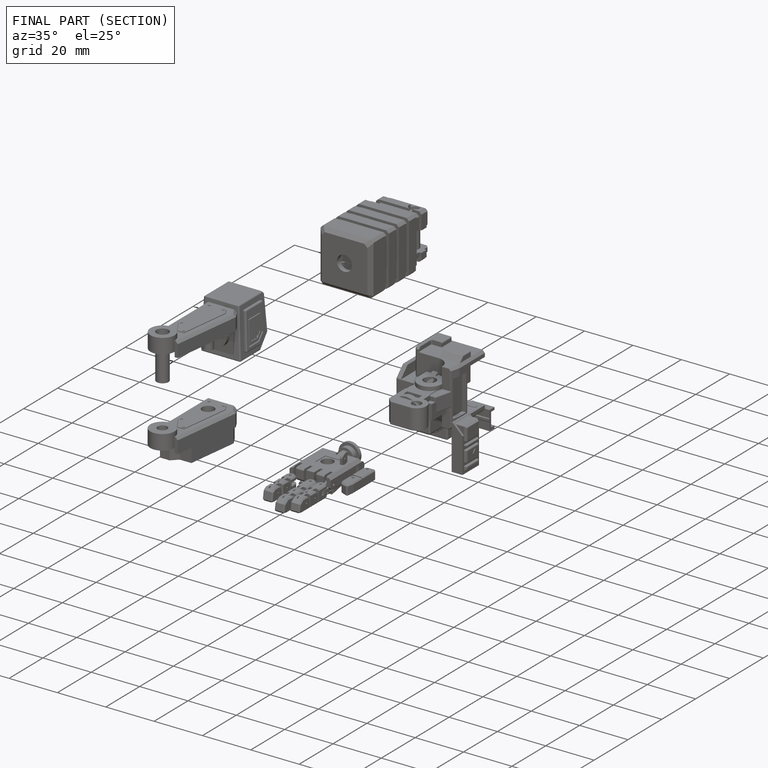
[diagram: finished part — half-section view (interior)]
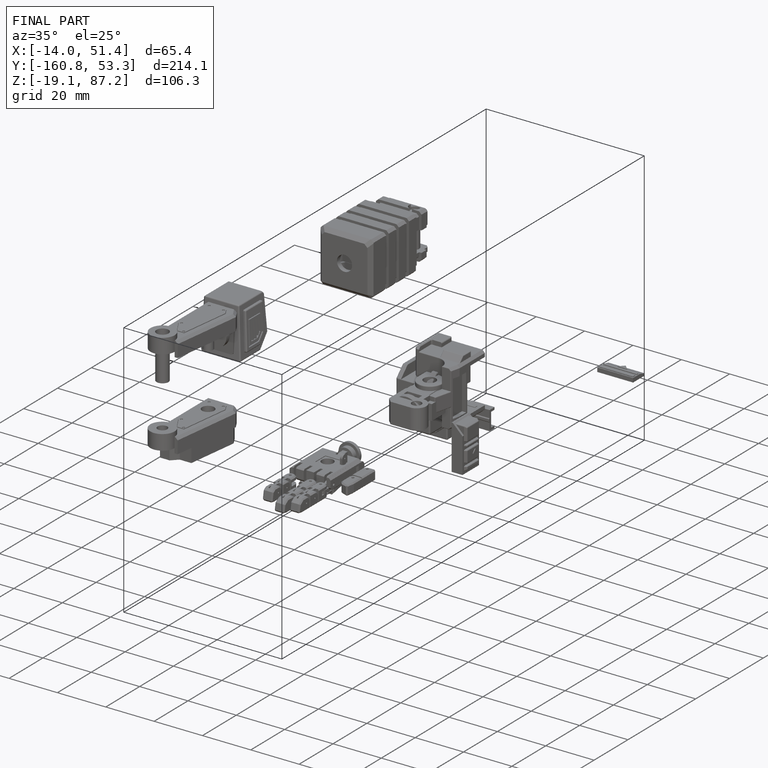
[diagram: finished part — iso view with bounding-box wireframe]
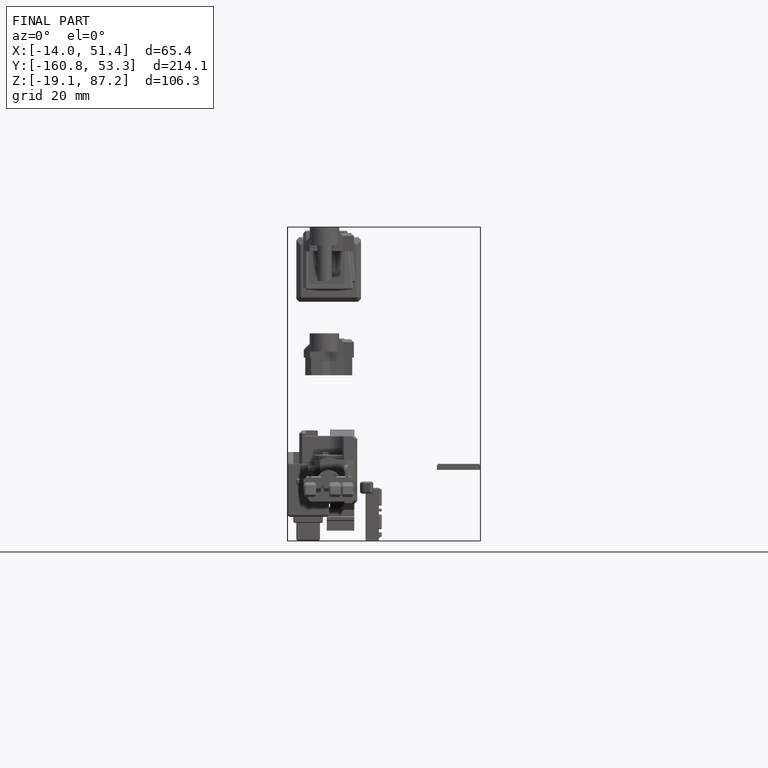
[diagram: finished part — front view with bounding-box wireframe]
